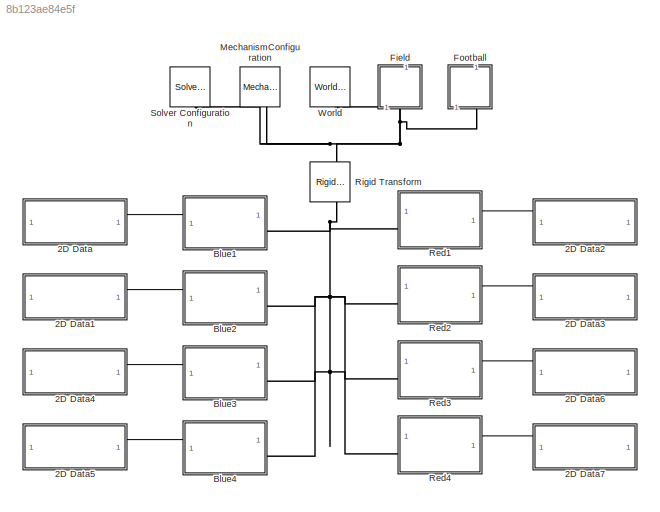
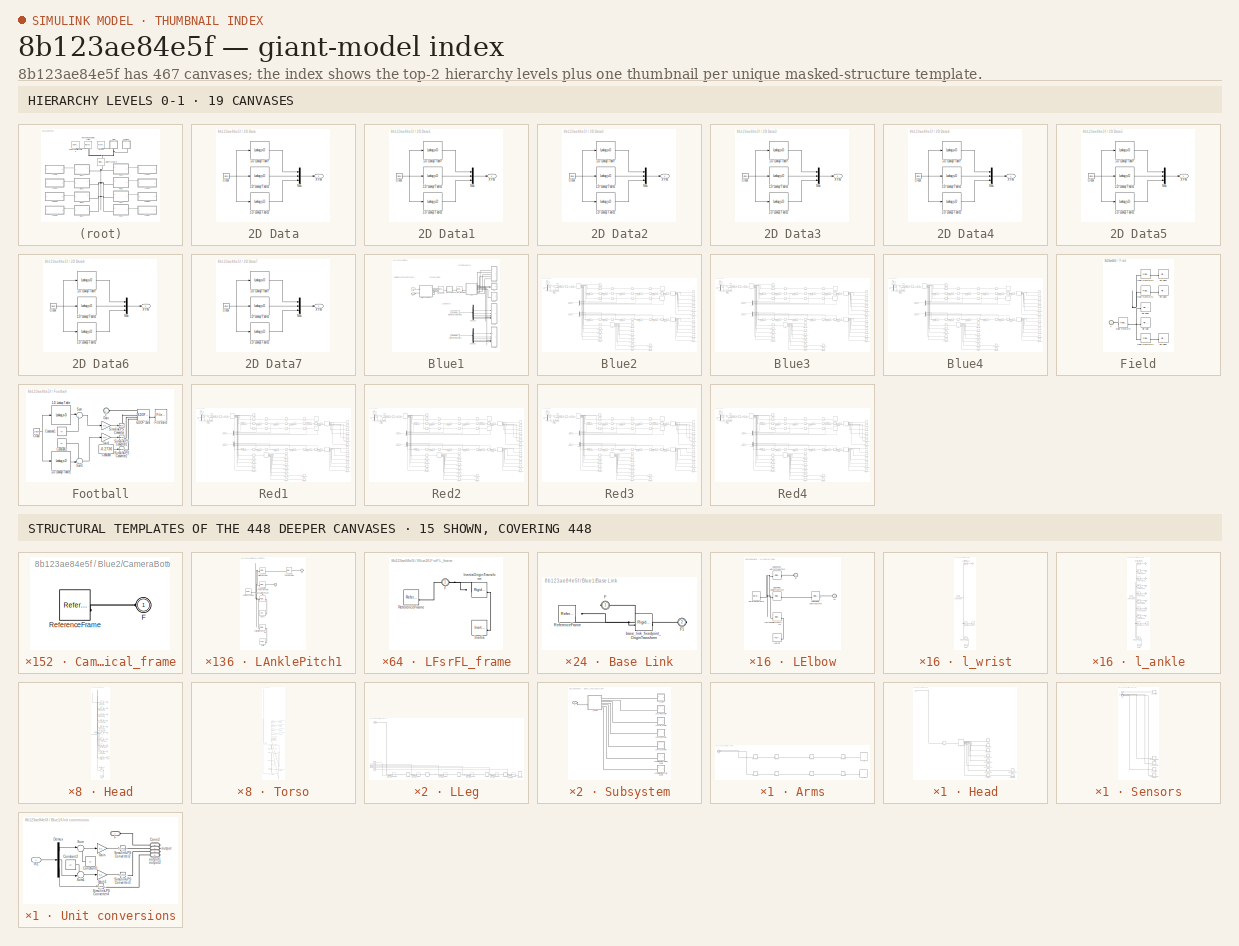
[diagram: thumbnail index - top-2 hierarchy levels (19 canvases) + 15 structural-template representatives of the remaining 448 canvases]
MODEL slx_8b123ae84e5f
KIND model
CONFIG AbsTol = auto
CONFIG EnableMultiTasking = off
CONFIG FixedStep = auto
CONFIG MaxStep = auto
CONFIG MinStep = auto
CONFIG RelTol = 1e-3
CONFIG SampleTimeConstraint = Unconstrained
CONFIG SolverName = VariableStepAuto
CONFIG StartTime = 0.0
CONFIG StopTime = 5578.4
BLOCK [SubSystem] 2D Data
BLOCK [Lookup_n-D] 2D Data/1-D Lookup Table
  BreakpointsForDimension1 = Robot_2D_poses.time
  InputPortMap = u0
  InternalRulePriority = Speed
  NumberOfTableDimensions = 1
  RndMeth = Simplest
  Table = transpose(Robot_2D_poses.signals.values(1,1:8:end))
BLOCK [Lookup_n-D] 2D Data/1-D Lookup Table1
  BreakpointsForDimension1 = Robot_2D_poses.time
  InputPortMap = u0
  InternalRulePriority = Speed
  NumberOfTableDimensions = 1
  RndMeth = Simplest
  Table = transpose(Robot_2D_poses.signals.values(2,1:8:end))
BLOCK [Lookup_n-D] 2D Data/1-D Lookup Table2
  BreakpointsForDimension1 = Robot_2D_poses.time
  InputPortMap = u0
  InternalRulePriority = Speed
  NumberOfTableDimensions = 1
  RndMeth = Simplest
  Table = transpose(Robot_2D_poses.signals.values(3,1:8:end))
BLOCK [Clock] 2D Data/Clock
BLOCK [Mux] 2D Data/Mux
  DisplayOption = bar
  Inputs = 3
BLOCK [Outport] 2D Data/XYW
BLOCK [SubSystem] 2D Data1
BLOCK [Lookup_n-D] 2D Data1/1-D Lookup Table
  BreakpointsForDimension1 = Robot_2D_poses.time
  InputPortMap = u0
  InternalRulePriority = Speed
  NumberOfTableDimensions = 1
  RndMeth = Simplest
  Table = transpose(Robot_2D_poses.signals.values(1,3:8:end))
BLOCK [Lookup_n-D] 2D Data1/1-D Lookup Table1
  BreakpointsForDimension1 = Robot_2D_poses.time
  InputPortMap = u0
  InternalRulePriority = Speed
  NumberOfTableDimensions = 1
  RndMeth = Simplest
  Table = transpose(Robot_2D_poses.signals.values(2,3:8:end))
BLOCK [Lookup_n-D] 2D Data1/1-D Lookup Table2
  BreakpointsForDimension1 = Robot_2D_poses.time
  InputPortMap = u0
  InternalRulePriority = Speed
  NumberOfTableDimensions = 1
  RndMeth = Simplest
  Table = transpose(Robot_2D_poses.signals.values(3,3:8:end))
BLOCK [Clock] 2D Data1/Clock
BLOCK [Mux] 2D Data1/Mux
  DisplayOption = bar
  Inputs = 3
BLOCK [Outport] 2D Data1/XYW
BLOCK [SubSystem] 2D Data2
  NameLocation = top
BLOCK [Lookup_n-D] 2D Data2/1-D Lookup Table
  BreakpointsForDimension1 = Robot_2D_poses.time
  InputPortMap = u0
  InternalRulePriority = Speed
  NumberOfTableDimensions = 1
  RndMeth = Simplest
  Table = transpose(Robot_2D_poses.signals.values(1,2:8:end))
BLOCK [Lookup_n-D] 2D Data2/1-D Lookup Table1
  BreakpointsForDimension1 = Robot_2D_poses.time
  InputPortMap = u0
  InternalRulePriority = Speed
  NumberOfTableDimensions = 1
  RndMeth = Simplest
  Table = transpose(Robot_2D_poses.signals.values(2,2:8:end))
BLOCK [Lookup_n-D] 2D Data2/1-D Lookup Table2
  BreakpointsForDimension1 = Robot_2D_poses.time
  InputPortMap = u0
  InternalRulePriority = Speed
  NumberOfTableDimensions = 1
  RndMeth = Simplest
  Table = transpose(Robot_2D_poses.signals.values(3,2:8:end))
BLOCK [Clock] 2D Data2/Clock
BLOCK [Mux] 2D Data2/Mux
  DisplayOption = bar
  Inputs = 3
BLOCK [Outport] 2D Data2/XYW
BLOCK [SubSystem] 2D Data3
  NameLocation = top
BLOCK [Lookup_n-D] 2D Data3/1-D Lookup Table
  BreakpointsForDimension1 = Robot_2D_poses.time
  InputPortMap = u0
  InternalRulePriority = Speed
  NumberOfTableDimensions = 1
  RndMeth = Simplest
  Table = transpose(Robot_2D_poses.signals.values(1,4:8:end))
BLOCK [Lookup_n-D] 2D Data3/1-D Lookup Table1
  BreakpointsForDimension1 = Robot_2D_poses.time
  InputPortMap = u0
  InternalRulePriority = Speed
  NumberOfTableDimensions = 1
  RndMeth = Simplest
  Table = transpose(Robot_2D_poses.signals.values(2,4:8:end))
BLOCK [Lookup_n-D] 2D Data3/1-D Lookup Table2
  BreakpointsForDimension1 = Robot_2D_poses.time
  InputPortMap = u0
  InternalRulePriority = Speed
  NumberOfTableDimensions = 1
  RndMeth = Simplest
  Table = transpose(Robot_2D_poses.signals.values(3,4:8:end))
BLOCK [Clock] 2D Data3/Clock
BLOCK [Mux] 2D Data3/Mux
  DisplayOption = bar
  Inputs = 3
BLOCK [Outport] 2D Data3/XYW
BLOCK [SubSystem] 2D Data4
BLOCK [Lookup_n-D] 2D Data4/1-D Lookup Table
  BreakpointsForDimension1 = Robot_2D_poses.time
  InputPortMap = u0
  InternalRulePriority = Speed
  NumberOfTableDimensions = 1
  RndMeth = Simplest
  Table = transpose(Robot_2D_poses.signals.values(1,5:8:end))
BLOCK [Lookup_n-D] 2D Data4/1-D Lookup Table1
  BreakpointsForDimension1 = Robot_2D_poses.time
  InputPortMap = u0
  InternalRulePriority = Speed
  NumberOfTableDimensions = 1
  RndMeth = Simplest
  Table = transpose(Robot_2D_poses.signals.values(2,5:8:end))
BLOCK [Lookup_n-D] 2D Data4/1-D Lookup Table2
  BreakpointsForDimension1 = Robot_2D_poses.time
  InputPortMap = u0
  InternalRulePriority = Speed
  NumberOfTableDimensions = 1
  RndMeth = Simplest
  Table = transpose(Robot_2D_poses.signals.values(3,5:8:end))
BLOCK [Clock] 2D Data4/Clock
BLOCK [Mux] 2D Data4/Mux
  DisplayOption = bar
  Inputs = 3
BLOCK [Outport] 2D Data4/XYW
BLOCK [SubSystem] 2D Data5
BLOCK [Lookup_n-D] 2D Data5/1-D Lookup Table
  BreakpointsForDimension1 = Robot_2D_poses.time
  InputPortMap = u0
  InternalRulePriority = Speed
  NumberOfTableDimensions = 1
  RndMeth = Simplest
  Table = transpose(Robot_2D_poses.signals.values(1,7:8:end))
BLOCK [Lookup_n-D] 2D Data5/1-D Lookup Table1
  BreakpointsForDimension1 = Robot_2D_poses.time
  InputPortMap = u0
  InternalRulePriority = Speed
  NumberOfTableDimensions = 1
  RndMeth = Simplest
  Table = transpose(Robot_2D_poses.signals.values(2,7:8:end))
BLOCK [Lookup_n-D] 2D Data5/1-D Lookup Table2
  BreakpointsForDimension1 = Robot_2D_poses.time
  InputPortMap = u0
  InternalRulePriority = Speed
  NumberOfTableDimensions = 1
  RndMeth = Simplest
  Table = transpose(Robot_2D_poses.signals.values(3,7:8:end))
BLOCK [Clock] 2D Data5/Clock
BLOCK [Mux] 2D Data5/Mux
  DisplayOption = bar
  Inputs = 3
BLOCK [Outport] 2D Data5/XYW
BLOCK [SubSystem] 2D Data6
  NameLocation = top
BLOCK [Lookup_n-D] 2D Data6/1-D Lookup Table
  BreakpointsForDimension1 = Robot_2D_poses.time
  InputPortMap = u0
  InternalRulePriority = Speed
  NumberOfTableDimensions = 1
  RndMeth = Simplest
  Table = transpose(Robot_2D_poses.signals.values(1,6:8:end))
BLOCK [Lookup_n-D] 2D Data6/1-D Lookup Table1
  BreakpointsForDimension1 = Robot_2D_poses.time
  InputPortMap = u0
  InternalRulePriority = Speed
  NumberOfTableDimensions = 1
  RndMeth = Simplest
  Table = transpose(Robot_2D_poses.signals.values(2,6:8:end))
BLOCK [Lookup_n-D] 2D Data6/1-D Lookup Table2
  BreakpointsForDimension1 = Robot_2D_poses.time
  InputPortMap = u0
  InternalRulePriority = Speed
  NumberOfTableDimensions = 1
  RndMeth = Simplest
  Table = transpose(Robot_2D_poses.signals.values(3,6:8:end))
BLOCK [Clock] 2D Data6/Clock
BLOCK [Mux] 2D Data6/Mux
  DisplayOption = bar
  Inputs = 3
BLOCK [Outport] 2D Data6/XYW
BLOCK [SubSystem] 2D Data7
  NameLocation = top
BLOCK [Lookup_n-D] 2D Data7/1-D Lookup Table
  BreakpointsForDimension1 = Robot_2D_poses.time
  InputPortMap = u0
  InternalRulePriority = Speed
  NumberOfTableDimensions = 1
  RndMeth = Simplest
  Table = transpose(Robot_2D_poses.signals.values(1,8:8:end))
BLOCK [Lookup_n-D] 2D Data7/1-D Lookup Table1
  BreakpointsForDimension1 = Robot_2D_poses.time
  InputPortMap = u0
  InternalRulePriority = Speed
  NumberOfTableDimensions = 1
  RndMeth = Simplest
  Table = transpose(Robot_2D_poses.signals.values(2,8:8:end))
BLOCK [Lookup_n-D] 2D Data7/1-D Lookup Table2
  BreakpointsForDimension1 = Robot_2D_poses.time
  InputPortMap = u0
  InternalRulePriority = Speed
  NumberOfTableDimensions = 1
  RndMeth = Simplest
  Table = transpose(Robot_2D_poses.signals.values(3,8:8:end))
BLOCK [Clock] 2D Data7/Clock
BLOCK [Mux] 2D Data7/Mux
  DisplayOption = bar
  Inputs = 3
BLOCK [Outport] 2D Data7/XYW
BLOCK [SubSystem] Blue1
  PortSchema = {"entries":[{"content":{"sides":[{"content":{"connectorIds":["LConn1"]},"type":"ConnectorPlacement.EquallySpacedRectSide","uuid":"5bc7e32e-b957-4341-b800-a2bf400c12b5"},{"content":{"connectorIds":["In1"],"side":"RIGHT"},"type":"ConnectorPlacement.EquallySpacedRectSide","uuid":"b8477bf0-596c-486e-a833-6824c8526041"},{"content":{"connectorIds":[],"side":"TOP"},"type":"ConnectorPlacement.EquallySpace...<+242ch>  <repeated x4 — deduplicated; at blocks: Blue1, Blue2, Blue3, Blue4>
BLOCK [SubSystem] Blue1/Arms
BLOCK [PMIOPort] Blue1/Arms/F
  Side = Left
BLOCK [PMIOPort] Blue1/Arms/F1
  Port = 2
  Side = Left
BLOCK [SubSystem] Blue1/Arms/LBicep
BLOCK [PMIOPort] Blue1/Arms/LBicep/F
  Side = Left
BLOCK [PMIOPort] Blue1/Arms/LBicep/F1
  Port = 2
  Side = Right
BLOCK [Reference] Blue1/Arms/LBicep/Inertia  REF=sm_lib/Body Elements/Inertia
  SourceBlock = sm_lib/Body Elements/Inertia
  SourceType = Inertia
BLOCK [Reference] Blue1/Arms/LBicep/InertiaOriginTransform  REF=sm_lib/Frames and
Transforms/Rigid
Transform
  SourceBlock = sm_lib/Frames and\nTransforms/Rigid\nTransform
  SourceType = Rigid\nTransform
BLOCK [Reference] Blue1/Arms/LBicep/LElbowYaw_AxisTransform  REF=sm_lib/Frames and
Transforms/Rigid
Transform
  SourceBlock = sm_lib/Frames and\nTransforms/Rigid\nTransform
  SourceType = Rigid\nTransform
BLOCK [Reference] Blue1/Arms/LBicep/LElbowYaw_OriginTransform  REF=sm_lib/Frames and
Transforms/Rigid
Transform
  SourceBlock = sm_lib/Frames and\nTransforms/Rigid\nTransform
  SourceType = Rigid\nTransform
BLOCK [Reference] Blue1/Arms/LBicep/LShoulderRoll_AxisInvTransform  REF=sm_lib/Frames and
Transforms/Rigid
Transform
  SourceBlock = sm_lib/Frames and\nTransforms/Rigid\nTransform
  SourceType = Rigid\nTransform
BLOCK [Reference] Blue1/Arms/LBicep/ReferenceFrame  REF=sm_lib/Frames and
Transforms/Reference
Frame
  SourceBlock = sm_lib/Frames and\nTransforms/Reference\nFrame
  SourceType = Reference\nFrame
BLOCK [Reference] Blue1/Arms/LBicep/Visual  REF=sm_lib/Body Elements/File Solid
  SourceBlock = sm_lib/Body Elements/File Solid
  SourceType = File Solid
BLOCK [Reference] Blue1/Arms/LBicep/VisualOriginTransform  REF=sm_lib/Frames and
Transforms/Rigid
Transform
  SourceBlock = sm_lib/Frames and\nTransforms/Rigid\nTransform
  SourceType = Rigid\nTransform
BLOCK [SubSystem] Blue1/Arms/LElbow
BLOCK [PMIOPort] Blue1/Arms/LElbow/F
  Side = Left
BLOCK [PMIOPort] Blue1/Arms/LElbow/F1
  Port = 2
  Side = Right
BLOCK [Reference] Blue1/Arms/LElbow/Inertia  REF=sm_lib/Body Elements/Inertia
  SourceBlock = sm_lib/Body Elements/Inertia
  SourceType = Inertia
BLOCK [Reference] Blue1/Arms/LElbow/InertiaOriginTransform  REF=sm_lib/Frames and
Transforms/Rigid
Transform
  SourceBlock = sm_lib/Frames and\nTransforms/Rigid\nTransform
  SourceType = Rigid\nTransform
BLOCK [Reference] Blue1/Arms/LElbow/LElbowRoll_AxisTransform  REF=sm_lib/Frames and
Transforms/Rigid
Transform
  SourceBlock = sm_lib/Frames and\nTransforms/Rigid\nTransform
  SourceType = Rigid\nTransform
BLOCK [Reference] Blue1/Arms/LElbow/LElbowRoll_OriginTransform  REF=sm_lib/Frames and
Transforms/Rigid
Transform
  SourceBlock = sm_lib/Frames and\nTransforms/Rigid\nTransform
  SourceType = Rigid\nTransform
BLOCK [Reference] Blue1/Arms/LElbow/LElbowYaw_AxisInvTransform  REF=sm_lib/Frames and
Transforms/Rigid
Transform
  SourceBlock = sm_lib/Frames and\nTransforms/Rigid\nTransform
  SourceType = Rigid\nTransform
BLOCK [Reference] Blue1/Arms/LElbow/ReferenceFrame  REF=sm_lib/Frames and
Transforms/Reference
Frame
  SourceBlock = sm_lib/Frames and\nTransforms/Reference\nFrame
  SourceType = Reference\nFrame
BLOCK [SubSystem] Blue1/Arms/LForeArm
BLOCK [PMIOPort] Blue1/Arms/LForeArm/F
  Side = Left
BLOCK [PMIOPort] Blue1/Arms/LForeArm/F1
  Port = 2
  Side = Right
BLOCK [Reference] Blue1/Arms/LForeArm/Inertia  REF=sm_lib/Body Elements/Inertia
  SourceBlock = sm_lib/Body Elements/Inertia
  SourceType = Inertia
BLOCK [Reference] Blue1/Arms/LForeArm/InertiaOriginTransform  REF=sm_lib/Frames and
Transforms/Rigid
Transform
  SourceBlock = sm_lib/Frames and\nTransforms/Rigid\nTransform
  SourceType = Rigid\nTransform
BLOCK [Reference] Blue1/Arms/LForeArm/LElbowRoll_AxisInvTransform  REF=sm_lib/Frames and
Transforms/Rigid
Transform
  SourceBlock = sm_lib/Frames and\nTransforms/Rigid\nTransform
  SourceType = Rigid\nTransform
BLOCK [Reference] Blue1/Arms/LForeArm/LWristYaw_AxisTransform  REF=sm_lib/Frames and
Transforms/Rigid
Transform
  SourceBlock = sm_lib/Frames and\nTransforms/Rigid\nTransform
  SourceType = Rigid\nTransform
BLOCK [Reference] Blue1/Arms/LForeArm/LWristYaw_OriginTransform  REF=sm_lib/Frames and
Transforms/Rigid
Transform
  SourceBlock = sm_lib/Frames and\nTransforms/Rigid\nTransform
  SourceType = Rigid\nTransform
BLOCK [Reference] Blue1/Arms/LForeArm/ReferenceFrame  REF=sm_lib/Frames and
Transforms/Reference
Frame
  SourceBlock = sm_lib/Frames and\nTransforms/Reference\nFrame
  SourceType = Reference\nFrame
BLOCK [Reference] Blue1/Arms/LForeArm/Visual  REF=sm_lib/Body Elements/File Solid
  SourceBlock = sm_lib/Body Elements/File Solid
  SourceType = File Solid
BLOCK [Reference] Blue1/Arms/LForeArm/VisualOriginTransform  REF=sm_lib/Frames and
Transforms/Rigid
Transform
  SourceBlock = sm_lib/Frames and\nTransforms/Rigid\nTransform
  SourceType = Rigid\nTransform
BLOCK [SubSystem] Blue1/Arms/LShoulder
BLOCK [PMIOPort] Blue1/Arms/LShoulder/F
  Side = Left
BLOCK [PMIOPort] Blue1/Arms/LShoulder/F1
  Port = 2
  Side = Right
BLOCK [Reference] Blue1/Arms/LShoulder/Inertia  REF=sm_lib/Body Elements/Inertia
  SourceBlock = sm_lib/Body Elements/Inertia
  SourceType = Inertia
BLOCK [Reference] Blue1/Arms/LShoulder/InertiaOriginTransform  REF=sm_lib/Frames and
Transforms/Rigid
Transform
  SourceBlock = sm_lib/Frames and\nTransforms/Rigid\nTransform
  SourceType = Rigid\nTransform
BLOCK [Reference] Blue1/Arms/LShoulder/LShoulderPitch_AxisInvTransform  REF=sm_lib/Frames and
Transforms/Rigid
Transform
  SourceBlock = sm_lib/Frames and\nTransforms/Rigid\nTransform
  SourceType = Rigid\nTransform
BLOCK [Reference] Blue1/Arms/LShoulder/LShoulderRoll_AxisTransform  REF=sm_lib/Frames and
Transforms/Rigid
Transform
  SourceBlock = sm_lib/Frames and\nTransforms/Rigid\nTransform
  SourceType = Rigid\nTransform
BLOCK [Reference] Blue1/Arms/LShoulder/LShoulderRoll_OriginTransform  REF=sm_lib/Frames and
Transforms/Rigid
Transform
  SourceBlock = sm_lib/Frames and\nTransforms/Rigid\nTransform
  SourceType = Rigid\nTransform
BLOCK [Reference] Blue1/Arms/LShoulder/ReferenceFrame  REF=sm_lib/Frames and
Transforms/Reference
Frame
  SourceBlock = sm_lib/Frames and\nTransforms/Reference\nFrame
  SourceType = Reference\nFrame
BLOCK [Reference] Blue1/Arms/LShoulder/Visual  REF=sm_lib/Body Elements/File Solid
  SourceBlock = sm_lib/Body Elements/File Solid
  SourceType = File Solid
BLOCK [Reference] Blue1/Arms/LShoulder/VisualOriginTransform  REF=sm_lib/Frames and
Transforms/Rigid
Transform
  SourceBlock = sm_lib/Frames and\nTransforms/Rigid\nTransform
  SourceType = Rigid\nTransform
BLOCK [SubSystem] Blue1/Arms/RBicep
BLOCK [PMIOPort] Blue1/Arms/RBicep/F
  Side = Left
BLOCK [PMIOPort] Blue1/Arms/RBicep/F1
  Port = 2
  Side = Right
BLOCK [Reference] Blue1/Arms/RBicep/Inertia  REF=sm_lib/Body Elements/Inertia
  SourceBlock = sm_lib/Body Elements/Inertia
  SourceType = Inertia
BLOCK [Reference] Blue1/Arms/RBicep/InertiaOriginTransform  REF=sm_lib/Frames and
Transforms/Rigid
Transform
  SourceBlock = sm_lib/Frames and\nTransforms/Rigid\nTransform
  SourceType = Rigid\nTransform
BLOCK [Reference] Blue1/Arms/RBicep/RElbowYaw_AxisTransform  REF=sm_lib/Frames and
Transforms/Rigid
Transform
  SourceBlock = sm_lib/Frames and\nTransforms/Rigid\nTransform
  SourceType = Rigid\nTransform
BLOCK [Reference] Blue1/Arms/RBicep/RElbowYaw_OriginTransform  REF=sm_lib/Frames and
Transforms/Rigid
Transform
  SourceBlock = sm_lib/Frames and\nTransforms/Rigid\nTransform
  SourceType = Rigid\nTransform
BLOCK [Reference] Blue1/Arms/RBicep/RShoulderRoll_AxisInvTransform  REF=sm_lib/Frames and
Transforms/Rigid
Transform
  SourceBlock = sm_lib/Frames and\nTransforms/Rigid\nTransform
  SourceType = Rigid\nTransform
BLOCK [Reference] Blue1/Arms/RBicep/ReferenceFrame  REF=sm_lib/Frames and
Transforms/Reference
Frame
  SourceBlock = sm_lib/Frames and\nTransforms/Reference\nFrame
  SourceType = Reference\nFrame
BLOCK [Reference] Blue1/Arms/RBicep/Visual  REF=sm_lib/Body Elements/File Solid
  SourceBlock = sm_lib/Body Elements/File Solid
  SourceType = File Solid
BLOCK [Reference] Blue1/Arms/RBicep/VisualOriginTransform  REF=sm_lib/Frames and
Transforms/Rigid
Transform
  SourceBlock = sm_lib/Frames and\nTransforms/Rigid\nTransform
  SourceType = Rigid\nTransform
BLOCK [SubSystem] Blue1/Arms/RElbow
BLOCK [PMIOPort] Blue1/Arms/RElbow/F
  Side = Left
BLOCK [PMIOPort] Blue1/Arms/RElbow/F1
  Port = 2
  Side = Right
BLOCK [Reference] Blue1/Arms/RElbow/Inertia  REF=sm_lib/Body Elements/Inertia
  SourceBlock = sm_lib/Body Elements/Inertia
  SourceType = Inertia
BLOCK [Reference] Blue1/Arms/RElbow/InertiaOriginTransform  REF=sm_lib/Frames and
Transforms/Rigid
Transform
  SourceBlock = sm_lib/Frames and\nTransforms/Rigid\nTransform
  SourceType = Rigid\nTransform
BLOCK [Reference] Blue1/Arms/RElbow/RElbowRoll_AxisTransform  REF=sm_lib/Frames and
Transforms/Rigid
Transform
  SourceBlock = sm_lib/Frames and\nTransforms/Rigid\nTransform
  SourceType = Rigid\nTransform
BLOCK [Reference] Blue1/Arms/RElbow/RElbowRoll_OriginTransform  REF=sm_lib/Frames and
Transforms/Rigid
Transform
  SourceBlock = sm_lib/Frames and\nTransforms/Rigid\nTransform
  SourceType = Rigid\nTransform
BLOCK [Reference] Blue1/Arms/RElbow/RElbowYaw_AxisInvTransform  REF=sm_lib/Frames and
Transforms/Rigid
Transform
  SourceBlock = sm_lib/Frames and\nTransforms/Rigid\nTransform
  SourceType = Rigid\nTransform
BLOCK [Reference] Blue1/Arms/RElbow/ReferenceFrame  REF=sm_lib/Frames and
Transforms/Reference
Frame
  SourceBlock = sm_lib/Frames and\nTransforms/Reference\nFrame
  SourceType = Reference\nFrame
BLOCK [SubSystem] Blue1/Arms/RForeArm
BLOCK [PMIOPort] Blue1/Arms/RForeArm/F
  Side = Left
BLOCK [PMIOPort] Blue1/Arms/RForeArm/F1
  Port = 2
  Side = Right
BLOCK [Reference] Blue1/Arms/RForeArm/Inertia  REF=sm_lib/Body Elements/Inertia
  SourceBlock = sm_lib/Body Elements/Inertia
  SourceType = Inertia
BLOCK [Reference] Blue1/Arms/RForeArm/InertiaOriginTransform  REF=sm_lib/Frames and
Transforms/Rigid
Transform
  SourceBlock = sm_lib/Frames and\nTransforms/Rigid\nTransform
  SourceType = Rigid\nTransform
BLOCK [Reference] Blue1/Arms/RForeArm/RElbowRoll_AxisInvTransform  REF=sm_lib/Frames and
Transforms/Rigid
Transform
  SourceBlock = sm_lib/Frames and\nTransforms/Rigid\nTransform
  SourceType = Rigid\nTransform
BLOCK [Reference] Blue1/Arms/RForeArm/RWristYaw_AxisTransform  REF=sm_lib/Frames and
Transforms/Rigid
Transform
  SourceBlock = sm_lib/Frames and\nTransforms/Rigid\nTransform
  SourceType = Rigid\nTransform
BLOCK [Reference] Blue1/Arms/RForeArm/RWristYaw_OriginTransform  REF=sm_lib/Frames and
Transforms/Rigid
Transform
  SourceBlock = sm_lib/Frames and\nTransforms/Rigid\nTransform
  SourceType = Rigid\nTransform
BLOCK [Reference] Blue1/Arms/RForeArm/ReferenceFrame  REF=sm_lib/Frames and
Transforms/Reference
Frame
  SourceBlock = sm_lib/Frames and\nTransforms/Reference\nFrame
  SourceType = Reference\nFrame
BLOCK [Reference] Blue1/Arms/RForeArm/Visual  REF=sm_lib/Body Elements/File Solid
  SourceBlock = sm_lib/Body Elements/File Solid
  SourceType = File Solid
BLOCK [Reference] Blue1/Arms/RForeArm/VisualOriginTransform  REF=sm_lib/Frames and
Transforms/Rigid
Transform
  SourceBlock = sm_lib/Frames and\nTransforms/Rigid\nTransform
  SourceType = Rigid\nTransform
BLOCK [SubSystem] Blue1/Arms/RShoulder
BLOCK [PMIOPort] Blue1/Arms/RShoulder/F
  Side = Left
BLOCK [PMIOPort] Blue1/Arms/RShoulder/F1
  Port = 2
  Side = Right
BLOCK [Reference] Blue1/Arms/RShoulder/Inertia  REF=sm_lib/Body Elements/Inertia
  SourceBlock = sm_lib/Body Elements/Inertia
  SourceType = Inertia
BLOCK [Reference] Blue1/Arms/RShoulder/InertiaOriginTransform  REF=sm_lib/Frames and
Transforms/Rigid
Transform
  SourceBlock = sm_lib/Frames and\nTransforms/Rigid\nTransform
  SourceType = Rigid\nTransform
BLOCK [Reference] Blue1/Arms/RShoulder/RShoulderPitch_AxisInvTransform  REF=sm_lib/Frames and
Transforms/Rigid
Transform
  SourceBlock = sm_lib/Frames and\nTransforms/Rigid\nTransform
  SourceType = Rigid\nTransform
BLOCK [Reference] Blue1/Arms/RShoulder/RShoulderRoll_AxisTransform  REF=sm_lib/Frames and
Transforms/Rigid
Transform
  SourceBlock = sm_lib/Frames and\nTransforms/Rigid\nTransform
  SourceType = Rigid\nTransform
BLOCK [Reference] Blue1/Arms/RShoulder/RShoulderRoll_OriginTransform  REF=sm_lib/Frames and
Transforms/Rigid
Transform
  SourceBlock = sm_lib/Frames and\nTransforms/Rigid\nTransform
  SourceType = Rigid\nTransform
BLOCK [Reference] Blue1/Arms/RShoulder/ReferenceFrame  REF=sm_lib/Frames and
Transforms/Reference
Frame
  SourceBlock = sm_lib/Frames and\nTransforms/Reference\nFrame
  SourceType = Reference\nFrame
BLOCK [Reference] Blue1/Arms/RShoulder/Visual  REF=sm_lib/Body Elements/File Solid
  SourceBlock = sm_lib/Body Elements/File Solid
  SourceType = File Solid
BLOCK [Reference] Blue1/Arms/RShoulder/VisualOriginTransform  REF=sm_lib/Frames and
Transforms/Rigid
Transform
  SourceBlock = sm_lib/Frames and\nTransforms/Rigid\nTransform
  SourceType = Rigid\nTransform
BLOCK [SubSystem] Blue1/Arms/l_wrist
BLOCK [PMIOPort] Blue1/Arms/l_wrist/F
  Side = Left
BLOCK [Reference] Blue1/Arms/l_wrist/Inertia  REF=sm_lib/Body Elements/Inertia
  SourceBlock = sm_lib/Body Elements/Inertia
  SourceType = Inertia
BLOCK [Reference] Blue1/Arms/l_wrist/InertiaOriginTransform  REF=sm_lib/Frames and
Transforms/Rigid
Transform
  SourceBlock = sm_lib/Frames and\nTransforms/Rigid\nTransform
  SourceType = Rigid\nTransform
BLOCK [Reference] Blue1/Arms/l_wrist/LWristYaw_AxisInvTransform  REF=sm_lib/Frames and
Transforms/Rigid
Transform
  SourceBlock = sm_lib/Frames and\nTransforms/Rigid\nTransform
  SourceType = Rigid\nTransform
BLOCK [Reference] Blue1/Arms/l_wrist/ReferenceFrame  REF=sm_lib/Frames and
Transforms/Reference
Frame
  SourceBlock = sm_lib/Frames and\nTransforms/Reference\nFrame
  SourceType = Reference\nFrame
BLOCK [Reference] Blue1/Arms/l_wrist/Visual  REF=sm_lib/Body Elements/File Solid
  NameLocation = top
  SourceBlock = sm_lib/Body Elements/File Solid
  SourceType = File Solid
BLOCK [Reference] Blue1/Arms/l_wrist/VisualOriginTransform  REF=sm_lib/Frames and
Transforms/Rigid
Transform
  SourceBlock = sm_lib/Frames and\nTransforms/Rigid\nTransform
  SourceType = Rigid\nTransform
BLOCK [SubSystem] Blue1/Arms/r_wrist
BLOCK [PMIOPort] Blue1/Arms/r_wrist/F
  Side = Left
BLOCK [Reference] Blue1/Arms/r_wrist/Inertia  REF=sm_lib/Body Elements/Inertia
  SourceBlock = sm_lib/Body Elements/Inertia
  SourceType = Inertia
BLOCK [Reference] Blue1/Arms/r_wrist/InertiaOriginTransform  REF=sm_lib/Frames and
Transforms/Rigid
Transform
  SourceBlock = sm_lib/Frames and\nTransforms/Rigid\nTransform
  SourceType = Rigid\nTransform
BLOCK [Reference] Blue1/Arms/r_wrist/RWristYaw_AxisInvTransform  REF=sm_lib/Frames and
Transforms/Rigid
Transform
  SourceBlock = sm_lib/Frames and\nTransforms/Rigid\nTransform
  SourceType = Rigid\nTransform
BLOCK [Reference] Blue1/Arms/r_wrist/ReferenceFrame  REF=sm_lib/Frames and
Transforms/Reference
Frame
  SourceBlock = sm_lib/Frames and\nTransforms/Reference\nFrame
  SourceType = Reference\nFrame
BLOCK [Reference] Blue1/Arms/r_wrist/Visual  REF=sm_lib/Body Elements/File Solid
  NameLocation = top
  SourceBlock = sm_lib/Body Elements/File Solid
  SourceType = File Solid
BLOCK [Reference] Blue1/Arms/r_wrist/VisualOriginTransform  REF=sm_lib/Frames and
Transforms/Rigid
Transform
  SourceBlock = sm_lib/Frames and\nTransforms/Rigid\nTransform
  SourceType = Rigid\nTransform
BLOCK [SubSystem] Blue1/Base Link
BLOCK [PMIOPort] Blue1/Base Link/F
  Side = Left
BLOCK [PMIOPort] Blue1/Base Link/F1
  Port = 2
  Side = Right
BLOCK [Reference] Blue1/Base Link/ReferenceFrame  REF=sm_lib/Frames and
Transforms/Reference
Frame
  SourceBlock = sm_lib/Frames and\nTransforms/Reference\nFrame
  SourceType = Reference\nFrame
BLOCK [Reference] Blue1/Base Link/base_link_fixedjoint_OriginTransform  REF=sm_lib/Frames and
Transforms/Rigid
Transform
  SourceBlock = sm_lib/Frames and\nTransforms/Rigid\nTransform
  SourceType = Rigid\nTransform
BLOCK [Demux] Blue1/Demux1
  Outputs = 6
BLOCK [Demux] Blue1/Demux2
  Outputs = 6
BLOCK [PMIOPort] Blue1/F
  Side = Left
BLOCK [SubSystem] Blue1/Head
BLOCK [SubSystem] Blue1/Head/CameraBottom_frame
BLOCK [Reference] Blue1/Head/CameraBottom_frame/CameraBottom_optical_frame_fixedjoint_OriginTransform  REF=sm_lib/Frames and
Transforms/Rigid
Transform
  SourceBlock = sm_lib/Frames and\nTransforms/Rigid\nTransform
  SourceType = Rigid\nTransform
BLOCK [PMIOPort] Blue1/Head/CameraBottom_frame/F
  Side = Left
BLOCK [PMIOPort] Blue1/Head/CameraBottom_frame/F1
  Port = 2
  Side = Right
BLOCK [Reference] Blue1/Head/CameraBottom_frame/ReferenceFrame  REF=sm_lib/Frames and
Transforms/Reference
Frame
  SourceBlock = sm_lib/Frames and\nTransforms/Reference\nFrame
  SourceType = Reference\nFrame
BLOCK [SubSystem] Blue1/Head/CameraBottom_optical_frame
BLOCK [PMIOPort] Blue1/Head/CameraBottom_optical_frame/F
  Side = Left
BLOCK [Reference] Blue1/Head/CameraBottom_optical_frame/ReferenceFrame  REF=sm_lib/Frames and
Transforms/Reference
Frame
  SourceBlock = sm_lib/Frames and\nTransforms/Reference\nFrame
  SourceType = Reference\nFrame
BLOCK [SubSystem] Blue1/Head/CameraTop_frame
BLOCK [Reference] Blue1/Head/CameraTop_frame/CameraTop_optical_frame_fixedjoint_OriginTransform  REF=sm_lib/Frames and
Transforms/Rigid
Transform
  SourceBlock = sm_lib/Frames and\nTransforms/Rigid\nTransform
  SourceType = Rigid\nTransform
BLOCK [PMIOPort] Blue1/Head/CameraTop_frame/F
  Side = Left
BLOCK [PMIOPort] Blue1/Head/CameraTop_frame/F1
  Port = 2
  Side = Right
BLOCK [Reference] Blue1/Head/CameraTop_frame/ReferenceFrame  REF=sm_lib/Frames and
Transforms/Reference
Frame
  SourceBlock = sm_lib/Frames and\nTransforms/Reference\nFrame
  SourceType = Reference\nFrame
BLOCK [SubSystem] Blue1/Head/CameraTop_optical_frame
BLOCK [PMIOPort] Blue1/Head/CameraTop_optical_frame/F
  Side = Left
BLOCK [Reference] Blue1/Head/CameraTop_optical_frame/ReferenceFrame  REF=sm_lib/Frames and
Transforms/Reference
Frame
  SourceBlock = sm_lib/Frames and\nTransforms/Reference\nFrame
  SourceType = Reference\nFrame
BLOCK [PMIOPort] Blue1/Head/F
  Side = Left
BLOCK [SubSystem] Blue1/Head/Head
BLOCK [Reference] Blue1/Head/Head/CameraBottom_sensor_fixedjoint_OriginTransform  REF=sm_lib/Frames and
Transforms/Rigid
Transform
  SourceBlock = sm_lib/Frames and\nTransforms/Rigid\nTransform
  SourceType = Rigid\nTransform
BLOCK [Reference] Blue1/Head/Head/CameraTop_sensor_fixedjoint_OriginTransform  REF=sm_lib/Frames and
Transforms/Rigid
Transform
  SourceBlock = sm_lib/Frames and\nTransforms/Rigid\nTransform
  SourceType = Rigid\nTransform
BLOCK [PMIOPort] Blue1/Head/Head/F
  Side = Left
BLOCK [PMIOPort] Blue1/Head/Head/F1
  Port = 9
  Side = Right
BLOCK [PMIOPort] Blue1/Head/Head/F2
  Port = 8
  Side = Right
BLOCK [PMIOPort] Blue1/Head/Head/F3
  Port = 7
  Side = Right
BLOCK [PMIOPort] Blue1/Head/Head/F4
  Port = 6
  Side = Right
BLOCK [PMIOPort] Blue1/Head/Head/F5
  Port = 5
  Side = Right
BLOCK [PMIOPort] Blue1/Head/Head/F6
  Port = 4
  Side = Right
BLOCK [PMIOPort] Blue1/Head/Head/F7
  Port = 3
  Side = Right
BLOCK [PMIOPort] Blue1/Head/Head/F8
  Port = 2
  Side = Right
BLOCK [Reference] Blue1/Head/Head/HeadPitch_AxisInvTransform  REF=sm_lib/Frames and
Transforms/Rigid
Transform
  SourceBlock = sm_lib/Frames and\nTransforms/Rigid\nTransform
  SourceType = Rigid\nTransform
BLOCK [Reference] Blue1/Head/Head/Head_Touch_Front_sensor_fixedjoint_OriginTransform  REF=sm_lib/Frames and
Transforms/Rigid
Transform
  SourceBlock = sm_lib/Frames and\nTransforms/Rigid\nTransform
  SourceType = Rigid\nTransform
BLOCK [Reference] Blue1/Head/Head/Head_Touch_Middle_sensor_fixedjoint_OriginTransform  REF=sm_lib/Frames and
Transforms/Rigid
Transform
  SourceBlock = sm_lib/Frames and\nTransforms/Rigid\nTransform
  SourceType = Rigid\nTransform
BLOCK [Reference] Blue1/Head/Head/Head_Touch_Rear_sensor_fixedjoint_OriginTransform  REF=sm_lib/Frames and
Transforms/Rigid
Transform
  SourceBlock = sm_lib/Frames and\nTransforms/Rigid\nTransform
  SourceType = Rigid\nTransform
BLOCK [Reference] Blue1/Head/Head/Inertia  REF=sm_lib/Body Elements/Inertia
  SourceBlock = sm_lib/Body Elements/Inertia
  SourceType = Inertia
BLOCK [Reference] Blue1/Head/Head/InertiaOriginTransform  REF=sm_lib/Frames and
Transforms/Rigid
Transform
  SourceBlock = sm_lib/Frames and\nTransforms/Rigid\nTransform
  SourceType = Rigid\nTransform
BLOCK [Reference] Blue1/Head/Head/InfraredL_sensor_fixedjoint_OriginTransform  REF=sm_lib/Frames and
Transforms/Rigid
Transform
  SourceBlock = sm_lib/Frames and\nTransforms/Rigid\nTransform
  SourceType = Rigid\nTransform
BLOCK [Reference] Blue1/Head/Head/InfraredR_sensor_fixedjoint_OriginTransform  REF=sm_lib/Frames and
Transforms/Rigid
Transform
  SourceBlock = sm_lib/Frames and\nTransforms/Rigid\nTransform
  SourceType = Rigid\nTransform
BLOCK [Reference] Blue1/Head/Head/ReferenceFrame  REF=sm_lib/Frames and
Transforms/Reference
Frame
  SourceBlock = sm_lib/Frames and\nTransforms/Reference\nFrame
  SourceType = Reference\nFrame
BLOCK [Reference] Blue1/Head/Head/Visual  REF=sm_lib/Body Elements/File Solid
  NameLocation = top
  SourceBlock = sm_lib/Body Elements/File Solid
  SourceType = File Solid
BLOCK [Reference] Blue1/Head/Head/VisualOriginTransform  REF=sm_lib/Frames and
Transforms/Rigid
Transform
  SourceBlock = sm_lib/Frames and\nTransforms/Rigid\nTransform
  SourceType = Rigid\nTransform
BLOCK [Reference] Blue1/Head/Head/gaze_joint_OriginTransform  REF=sm_lib/Frames and
Transforms/Rigid
Transform
  SourceBlock = sm_lib/Frames and\nTransforms/Rigid\nTransform
  SourceType = Rigid\nTransform
BLOCK [SubSystem] Blue1/Head/HeadTouchFront_frame
BLOCK [PMIOPort] Blue1/Head/HeadTouchFront_frame/F
  Side = Left
BLOCK [Reference] Blue1/Head/HeadTouchFront_frame/ReferenceFrame  REF=sm_lib/Frames and
Transforms/Reference
Frame
  SourceBlock = sm_lib/Frames and\nTransforms/Reference\nFrame
  SourceType = Reference\nFrame
BLOCK [SubSystem] Blue1/Head/HeadTouchMiddle_frame
BLOCK [PMIOPort] Blue1/Head/HeadTouchMiddle_frame/F
  Side = Left
BLOCK [Reference] Blue1/Head/HeadTouchMiddle_frame/ReferenceFrame  REF=sm_lib/Frames and
Transforms/Reference
Frame
  SourceBlock = sm_lib/Frames and\nTransforms/Reference\nFrame
  SourceType = Reference\nFrame
BLOCK [SubSystem] Blue1/Head/HeadTouchRear_frame
BLOCK [PMIOPort] Blue1/Head/HeadTouchRear_frame/F
  Side = Left
BLOCK [Reference] Blue1/Head/HeadTouchRear_frame/ReferenceFrame  REF=sm_lib/Frames and
Transforms/Reference
Frame
  SourceBlock = sm_lib/Frames and\nTransforms/Reference\nFrame
  SourceType = Reference\nFrame
BLOCK [SubSystem] Blue1/Head/LInfraRed_frame
BLOCK [PMIOPort] Blue1/Head/LInfraRed_frame/F
  Side = Left
BLOCK [Reference] Blue1/Head/LInfraRed_frame/ReferenceFrame  REF=sm_lib/Frames and
Transforms/Reference
Frame
  SourceBlock = sm_lib/Frames and\nTransforms/Reference\nFrame
  SourceType = Reference\nFrame
BLOCK [SubSystem] Blue1/Head/Neck
BLOCK [PMIOPort] Blue1/Head/Neck/F
  Side = Left
BLOCK [PMIOPort] Blue1/Head/Neck/F1
  Port = 2
  Side = Right
BLOCK [Reference] Blue1/Head/Neck/HeadPitch_AxisTransform  REF=sm_lib/Frames and
Transforms/Rigid
Transform
  SourceBlock = sm_lib/Frames and\nTransforms/Rigid\nTransform
  SourceType = Rigid\nTransform
BLOCK [Reference] Blue1/Head/Neck/HeadPitch_OriginTransform  REF=sm_lib/Frames and
Transforms/Rigid
Transform
  SourceBlock = sm_lib/Frames and\nTransforms/Rigid\nTransform
  SourceType = Rigid\nTransform
BLOCK [Reference] Blue1/Head/Neck/HeadYaw_AxisInvTransform  REF=sm_lib/Frames and
Transforms/Rigid
Transform
  SourceBlock = sm_lib/Frames and\nTransforms/Rigid\nTransform
  SourceType = Rigid\nTransform
BLOCK [Reference] Blue1/Head/Neck/Inertia  REF=sm_lib/Body Elements/Inertia
  SourceBlock = sm_lib/Body Elements/Inertia
  SourceType = Inertia
BLOCK [Reference] Blue1/Head/Neck/InertiaOriginTransform  REF=sm_lib/Frames and
Transforms/Rigid
Transform
  SourceBlock = sm_lib/Frames and\nTransforms/Rigid\nTransform
  SourceType = Rigid\nTransform
BLOCK [Reference] Blue1/Head/Neck/ReferenceFrame  REF=sm_lib/Frames and
Transforms/Reference
Frame
  SourceBlock = sm_lib/Frames and\nTransforms/Reference\nFrame
  SourceType = Reference\nFrame
BLOCK [Reference] Blue1/Head/Neck/Visual  REF=sm_lib/Body Elements/File Solid
  SourceBlock = sm_lib/Body Elements/File Solid
  SourceType = File Solid
BLOCK [Reference] Blue1/Head/Neck/VisualOriginTransform  REF=sm_lib/Frames and
Transforms/Rigid
Transform
  SourceBlock = sm_lib/Frames and\nTransforms/Rigid\nTransform
  SourceType = Rigid\nTransform
BLOCK [SubSystem] Blue1/Head/RInfraRed_frame
BLOCK [PMIOPort] Blue1/Head/RInfraRed_frame/F
  Side = Left
BLOCK [Reference] Blue1/Head/RInfraRed_frame/ReferenceFrame  REF=sm_lib/Frames and
Transforms/Reference
Frame
  SourceBlock = sm_lib/Frames and\nTransforms/Reference\nFrame
  SourceType = Reference\nFrame
BLOCK [SubSystem] Blue1/Head/gaze
BLOCK [PMIOPort] Blue1/Head/gaze/F
  Side = Left
BLOCK [Reference] Blue1/Head/gaze/ReferenceFrame  REF=sm_lib/Frames and
Transforms/Reference
Frame
  SourceBlock = sm_lib/Frames and\nTransforms/Reference\nFrame
  SourceType = Reference\nFrame
BLOCK [SubSystem] Blue1/LLeg
BLOCK [PMIOPort] Blue1/LLeg/Conn1
  Side = Left
BLOCK [Reference] Blue1/LLeg/LAnklePitch  REF=sm_lib/Joints/Revolute Joint
  SourceBlock = sm_lib/Joints/Revolute Joint
  SourceType = Revolute Joint
BLOCK [SubSystem] Blue1/LLeg/LAnklePitch1
BLOCK [PMIOPort] Blue1/LLeg/LAnklePitch1/F
  Side = Left
BLOCK [PMIOPort] Blue1/LLeg/LAnklePitch1/F1
  Port = 2
  Side = Right
BLOCK [Reference] Blue1/LLeg/LAnklePitch1/Inertia  REF=sm_lib/Body Elements/Inertia
  SourceBlock = sm_lib/Body Elements/Inertia
  SourceType = Inertia
BLOCK [Reference] Blue1/LLeg/LAnklePitch1/InertiaOriginTransform  REF=sm_lib/Frames and
Transforms/Rigid
Transform
  SourceBlock = sm_lib/Frames and\nTransforms/Rigid\nTransform
  SourceType = Rigid\nTransform
BLOCK [Reference] Blue1/LLeg/LAnklePitch1/LAnklePitch_AxisInvTransform  REF=sm_lib/Frames and
Transforms/Rigid
Transform
  SourceBlock = sm_lib/Frames and\nTransforms/Rigid\nTransform
  SourceType = Rigid\nTransform
BLOCK [Reference] Blue1/LLeg/LAnklePitch1/LAnkleRoll_AxisTransform  REF=sm_lib/Frames and
Transforms/Rigid
Transform
  SourceBlock = sm_lib/Frames and\nTransforms/Rigid\nTransform
  SourceType = Rigid\nTransform
BLOCK [Reference] Blue1/LLeg/LAnklePitch1/LAnkleRoll_OriginTransform  REF=sm_lib/Frames and
Transforms/Rigid
Transform
  SourceBlock = sm_lib/Frames and\nTransforms/Rigid\nTransform
  SourceType = Rigid\nTransform
BLOCK [Reference] Blue1/LLeg/LAnklePitch1/ReferenceFrame  REF=sm_lib/Frames and
Transforms/Reference
Frame
  SourceBlock = sm_lib/Frames and\nTransforms/Reference\nFrame
  SourceType = Reference\nFrame
BLOCK [Reference] Blue1/LLeg/LAnklePitch1/Visual  REF=sm_lib/Body Elements/File Solid
  SourceBlock = sm_lib/Body Elements/File Solid
  SourceType = File Solid
BLOCK [Reference] Blue1/LLeg/LAnklePitch1/VisualOriginTransform  REF=sm_lib/Frames and
Transforms/Rigid
Transform
  SourceBlock = sm_lib/Frames and\nTransforms/Rigid\nTransform
  SourceType = Rigid\nTransform
BLOCK [Reference] Blue1/LLeg/LAnkleRoll  REF=sm_lib/Joints/Revolute Joint
  SourceBlock = sm_lib/Joints/Revolute Joint
  SourceType = Revolute Joint
BLOCK [SubSystem] Blue1/LLeg/LHip
BLOCK [PMIOPort] Blue1/LLeg/LHip/F
  Side = Left
BLOCK [PMIOPort] Blue1/LLeg/LHip/F1
  Port = 2
  Side = Right
BLOCK [Reference] Blue1/LLeg/LHip/Inertia  REF=sm_lib/Body Elements/Inertia
  SourceBlock = sm_lib/Body Elements/Inertia
  SourceType = Inertia
BLOCK [Reference] Blue1/LLeg/LHip/InertiaOriginTransform  REF=sm_lib/Frames and
Transforms/Rigid
Transform
  SourceBlock = sm_lib/Frames and\nTransforms/Rigid\nTransform
  SourceType = Rigid\nTransform
BLOCK [Reference] Blue1/LLeg/LHip/LHipPitch_AxisTransform  REF=sm_lib/Frames and
Transforms/Rigid
Transform
  SourceBlock = sm_lib/Frames and\nTransforms/Rigid\nTransform
  SourceType = Rigid\nTransform
BLOCK [Reference] Blue1/LLeg/LHip/LHipPitch_OriginTransform  REF=sm_lib/Frames and
Transforms/Rigid
Transform
  SourceBlock = sm_lib/Frames and\nTransforms/Rigid\nTransform
  SourceType = Rigid\nTransform
BLOCK [Reference] Blue1/LLeg/LHip/LHipRoll_AxisInvTransform  REF=sm_lib/Frames and
Transforms/Rigid
Transform
  SourceBlock = sm_lib/Frames and\nTransforms/Rigid\nTransform
  SourceType = Rigid\nTransform
BLOCK [Reference] Blue1/LLeg/LHip/ReferenceFrame  REF=sm_lib/Frames and
Transforms/Reference
Frame
  SourceBlock = sm_lib/Frames and\nTransforms/Reference\nFrame
  SourceType = Reference\nFrame
BLOCK [Reference] Blue1/LLeg/LHip/Visual  REF=sm_lib/Body Elements/File Solid
  SourceBlock = sm_lib/Body Elements/File Solid
  SourceType = File Solid
BLOCK [Reference] Blue1/LLeg/LHip/VisualOriginTransform  REF=sm_lib/Frames and
Transforms/Rigid
Transform
  SourceBlock = sm_lib/Frames and\nTransforms/Rigid\nTransform
  SourceType = Rigid\nTransform
BLOCK [Reference] Blue1/LLeg/LHipPitch  REF=sm_lib/Joints/Revolute Joint
  SourceBlock = sm_lib/Joints/Revolute Joint
  SourceType = Revolute Joint
BLOCK [Reference] Blue1/LLeg/LHipRoll  REF=sm_lib/Joints/Revolute Joint
  SourceBlock = sm_lib/Joints/Revolute Joint
  SourceType = Revolute Joint
BLOCK [Reference] Blue1/LLeg/LHipYawPitch  REF=sm_lib/Joints/Revolute Joint
  SourceBlock = sm_lib/Joints/Revolute Joint
  SourceType = Revolute Joint
BLOCK [Reference] Blue1/LLeg/LKneePitch  REF=sm_lib/Joints/Revolute Joint
  SourceBlock = sm_lib/Joints/Revolute Joint
  SourceType = Revolute Joint
BLOCK [SubSystem] Blue1/LLeg/LPelvis
BLOCK [PMIOPort] Blue1/LLeg/LPelvis/F
  Side = Left
BLOCK [PMIOPort] Blue1/LLeg/LPelvis/F1
  Port = 2
  Side = Right
BLOCK [Reference] Blue1/LLeg/LPelvis/Inertia  REF=sm_lib/Body Elements/Inertia
  SourceBlock = sm_lib/Body Elements/Inertia
  SourceType = Inertia
BLOCK [Reference] Blue1/LLeg/LPelvis/InertiaOriginTransform  REF=sm_lib/Frames and
Transforms/Rigid
Transform
  SourceBlock = sm_lib/Frames and\nTransforms/Rigid\nTransform
  SourceType = Rigid\nTransform
BLOCK [Reference] Blue1/LLeg/LPelvis/LHipRoll_AxisTransform  REF=sm_lib/Frames and
Transforms/Rigid
Transform
  SourceBlock = sm_lib/Frames and\nTransforms/Rigid\nTransform
  SourceType = Rigid\nTransform
BLOCK [Reference] Blue1/LLeg/LPelvis/LHipRoll_OriginTransform  REF=sm_lib/Frames and
Transforms/Rigid
Transform
  SourceBlock = sm_lib/Frames and\nTransforms/Rigid\nTransform
  SourceType = Rigid\nTransform
BLOCK [Reference] Blue1/LLeg/LPelvis/LHipYawPitch_AxisInvTransform  REF=sm_lib/Frames and
Transforms/Rigid
Transform
  SourceBlock = sm_lib/Frames and\nTransforms/Rigid\nTransform
  SourceType = Rigid\nTransform
BLOCK [Reference] Blue1/LLeg/LPelvis/ReferenceFrame  REF=sm_lib/Frames and
Transforms/Reference
Frame
  SourceBlock = sm_lib/Frames and\nTransforms/Reference\nFrame
  SourceType = Reference\nFrame
BLOCK [Reference] Blue1/LLeg/LPelvis/Visual  REF=sm_lib/Body Elements/File Solid
  SourceBlock = sm_lib/Body Elements/File Solid
  SourceType = File Solid
BLOCK [Reference] Blue1/LLeg/LPelvis/VisualOriginTransform  REF=sm_lib/Frames and
Transforms/Rigid
Transform
  SourceBlock = sm_lib/Frames and\nTransforms/Rigid\nTransform
  SourceType = Rigid\nTransform
BLOCK [SubSystem] Blue1/LLeg/LThigh
BLOCK [PMIOPort] Blue1/LLeg/LThigh/F
  Side = Left
BLOCK [PMIOPort] Blue1/LLeg/LThigh/F1
  Port = 2
  Side = Right
BLOCK [Reference] Blue1/LLeg/LThigh/Inertia  REF=sm_lib/Body Elements/Inertia
  SourceBlock = sm_lib/Body Elements/Inertia
  SourceType = Inertia
BLOCK [Reference] Blue1/LLeg/LThigh/InertiaOriginTransform  REF=sm_lib/Frames and
Transforms/Rigid
Transform
  SourceBlock = sm_lib/Frames and\nTransforms/Rigid\nTransform
  SourceType = Rigid\nTransform
BLOCK [Reference] Blue1/LLeg/LThigh/LHipPitch_AxisInvTransform  REF=sm_lib/Frames and
Transforms/Rigid
Transform
  SourceBlock = sm_lib/Frames and\nTransforms/Rigid\nTransform
  SourceType = Rigid\nTransform
BLOCK [Reference] Blue1/LLeg/LThigh/LKneePitch_AxisTransform  REF=sm_lib/Frames and
Transforms/Rigid
Transform
  SourceBlock = sm_lib/Frames and\nTransforms/Rigid\nTransform
  SourceType = Rigid\nTransform
BLOCK [Reference] Blue1/LLeg/LThigh/LKneePitch_OriginTransform  REF=sm_lib/Frames and
Transforms/Rigid
Transform
  SourceBlock = sm_lib/Frames and\nTransforms/Rigid\nTransform
  SourceType = Rigid\nTransform
BLOCK [Reference] Blue1/LLeg/LThigh/ReferenceFrame  REF=sm_lib/Frames and
Transforms/Reference
Frame
  SourceBlock = sm_lib/Frames and\nTransforms/Reference\nFrame
  SourceType = Reference\nFrame
BLOCK [Reference] Blue1/LLeg/LThigh/Visual  REF=sm_lib/Body Elements/File Solid
  SourceBlock = sm_lib/Body Elements/File Solid
  SourceType = File Solid
BLOCK [Reference] Blue1/LLeg/LThigh/VisualOriginTransform  REF=sm_lib/Frames and
Transforms/Rigid
Transform
  SourceBlock = sm_lib/Frames and\nTransforms/Rigid\nTransform
  SourceType = Rigid\nTransform
BLOCK [SubSystem] Blue1/LLeg/LTibia
BLOCK [PMIOPort] Blue1/LLeg/LTibia/F
  Side = Left
BLOCK [PMIOPort] Blue1/LLeg/LTibia/F1
  Port = 2
  Side = Right
BLOCK [Reference] Blue1/LLeg/LTibia/Inertia  REF=sm_lib/Body Elements/Inertia
  SourceBlock = sm_lib/Body Elements/Inertia
  SourceType = Inertia
BLOCK [Reference] Blue1/LLeg/LTibia/InertiaOriginTransform  REF=sm_lib/Frames and
Transforms/Rigid
Transform
  SourceBlock = sm_lib/Frames and\nTransforms/Rigid\nTransform
  SourceType = Rigid\nTransform
BLOCK [Reference] Blue1/LLeg/LTibia/LAnklePitch_AxisTransform  REF=sm_lib/Frames and
Transforms/Rigid
Transform
  SourceBlock = sm_lib/Frames and\nTransforms/Rigid\nTransform
  SourceType = Rigid\nTransform
BLOCK [Reference] Blue1/LLeg/LTibia/LAnklePitch_OriginTransform  REF=sm_lib/Frames and
Transforms/Rigid
Transform
  SourceBlock = sm_lib/Frames and\nTransforms/Rigid\nTransform
  SourceType = Rigid\nTransform
BLOCK [Reference] Blue1/LLeg/LTibia/LKneePitch_AxisInvTransform  REF=sm_lib/Frames and
Transforms/Rigid
Transform
  SourceBlock = sm_lib/Frames and\nTransforms/Rigid\nTransform
  SourceType = Rigid\nTransform
BLOCK [Reference] Blue1/LLeg/LTibia/ReferenceFrame  REF=sm_lib/Frames and
Transforms/Reference
Frame
  SourceBlock = sm_lib/Frames and\nTransforms/Reference\nFrame
  SourceType = Reference\nFrame
BLOCK [Reference] Blue1/LLeg/LTibia/Visual  REF=sm_lib/Body Elements/File Solid
  SourceBlock = sm_lib/Body Elements/File Solid
  SourceType = File Solid
BLOCK [Reference] Blue1/LLeg/LTibia/VisualOriginTransform  REF=sm_lib/Frames and
Transforms/Rigid
Transform
  SourceBlock = sm_lib/Frames and\nTransforms/Rigid\nTransform
  SourceType = Rigid\nTransform
BLOCK [Reference] Blue1/LLeg/Simulink-PS Converter  REF=nesl_utility/Simulink-PS
Converter
  SourceBlock = nesl_utility/Simulink-PS\nConverter
  SourceType = Simulink-PS\nConverter
BLOCK [Reference] Blue1/LLeg/Simulink-PS Converter1  REF=nesl_utility/Simulink-PS
Converter
  SourceBlock = nesl_utility/Simulink-PS\nConverter
  SourceType = Simulink-PS\nConverter
BLOCK [Reference] Blue1/LLeg/Simulink-PS Converter5  REF=nesl_utility/Simulink-PS
Converter
  SourceBlock = nesl_utility/Simulink-PS\nConverter
  SourceType = Simulink-PS\nConverter
BLOCK [Reference] Blue1/LLeg/Simulink-PS Converter6  REF=nesl_utility/Simulink-PS
Converter
  SourceBlock = nesl_utility/Simulink-PS\nConverter
  SourceType = Simulink-PS\nConverter
BLOCK [Reference] Blue1/LLeg/Simulink-PS Converter7  REF=nesl_utility/Simulink-PS
Converter
  SourceBlock = nesl_utility/Simulink-PS\nConverter
  SourceType = Simulink-PS\nConverter
BLOCK [Reference] Blue1/LLeg/Simulink-PS Converter8  REF=nesl_utility/Simulink-PS
Converter
  SourceBlock = nesl_utility/Simulink-PS\nConverter
  SourceType = Simulink-PS\nConverter
BLOCK [SubSystem] Blue1/LLeg/Subsystem
BLOCK [PMIOPort] Blue1/LLeg/Subsystem/F
  Side = Left
BLOCK [SubSystem] Blue1/LLeg/Subsystem/LFootBumperLeft_frame
BLOCK [PMIOPort] Blue1/LLeg/Subsystem/LFootBumperLeft_frame/F
  Side = Left
BLOCK [Reference] Blue1/LLeg/Subsystem/LFootBumperLeft_frame/ReferenceFrame  REF=sm_lib/Frames and
Transforms/Reference
Frame
  SourceBlock = sm_lib/Frames and\nTransforms/Reference\nFrame
  SourceType = Reference\nFrame
BLOCK [SubSystem] Blue1/LLeg/Subsystem/LFootBumperRight_frame
BLOCK [PMIOPort] Blue1/LLeg/Subsystem/LFootBumperRight_frame/F
  Side = Left
BLOCK [Reference] Blue1/LLeg/Subsystem/LFootBumperRight_frame/ReferenceFrame  REF=sm_lib/Frames and
Transforms/Reference
Frame
  SourceBlock = sm_lib/Frames and\nTransforms/Reference\nFrame
  SourceType = Reference\nFrame
BLOCK [SubSystem] Blue1/LLeg/Subsystem/LFsrFL_frame
BLOCK [PMIOPort] Blue1/LLeg/Subsystem/LFsrFL_frame/F
  Side = Left
BLOCK [Reference] Blue1/LLeg/Subsystem/LFsrFL_frame/Inertia  REF=sm_lib/Body Elements/Inertia
  SourceBlock = sm_lib/Body Elements/Inertia
  SourceType = Inertia
BLOCK [Reference] Blue1/LLeg/Subsystem/LFsrFL_frame/InertiaOriginTransform  REF=sm_lib/Frames and
Transforms/Rigid
Transform
  SourceBlock = sm_lib/Frames and\nTransforms/Rigid\nTransform
  SourceType = Rigid\nTransform
BLOCK [Reference] Blue1/LLeg/Subsystem/LFsrFL_frame/ReferenceFrame  REF=sm_lib/Frames and
Transforms/Reference
Frame
  SourceBlock = sm_lib/Frames and\nTransforms/Reference\nFrame
  SourceType = Reference\nFrame
BLOCK [SubSystem] Blue1/LLeg/Subsystem/LFsrFR_frame
BLOCK [PMIOPort] Blue1/LLeg/Subsystem/LFsrFR_frame/F
  Side = Left
BLOCK [Reference] Blue1/LLeg/Subsystem/LFsrFR_frame/Inertia  REF=sm_lib/Body Elements/Inertia
  SourceBlock = sm_lib/Body Elements/Inertia
  SourceType = Inertia
BLOCK [Reference] Blue1/LLeg/Subsystem/LFsrFR_frame/InertiaOriginTransform  REF=sm_lib/Frames and
Transforms/Rigid
Transform
  SourceBlock = sm_lib/Frames and\nTransforms/Rigid\nTransform
  SourceType = Rigid\nTransform
BLOCK [Reference] Blue1/LLeg/Subsystem/LFsrFR_frame/ReferenceFrame  REF=sm_lib/Frames and
Transforms/Reference
Frame
  SourceBlock = sm_lib/Frames and\nTransforms/Reference\nFrame
  SourceType = Reference\nFrame
BLOCK [SubSystem] Blue1/LLeg/Subsystem/LFsrRL_frame
BLOCK [PMIOPort] Blue1/LLeg/Subsystem/LFsrRL_frame/F
  Side = Left
BLOCK [Reference] Blue1/LLeg/Subsystem/LFsrRL_frame/Inertia  REF=sm_lib/Body Elements/Inertia
  SourceBlock = sm_lib/Body Elements/Inertia
  SourceType = Inertia
BLOCK [Reference] Blue1/LLeg/Subsystem/LFsrRL_frame/InertiaOriginTransform  REF=sm_lib/Frames and
Transforms/Rigid
Transform
  SourceBlock = sm_lib/Frames and\nTransforms/Rigid\nTransform
  SourceType = Rigid\nTransform
BLOCK [Reference] Blue1/LLeg/Subsystem/LFsrRL_frame/ReferenceFrame  REF=sm_lib/Frames and
Transforms/Reference
Frame
  SourceBlock = sm_lib/Frames and\nTransforms/Reference\nFrame
  SourceType = Reference\nFrame
BLOCK [SubSystem] Blue1/LLeg/Subsystem/LFsrRR_frame
BLOCK [PMIOPort] Blue1/LLeg/Subsystem/LFsrRR_frame/F
  Side = Left
BLOCK [Reference] Blue1/LLeg/Subsystem/LFsrRR_frame/Inertia  REF=sm_lib/Body Elements/Inertia
  SourceBlock = sm_lib/Body Elements/Inertia
  SourceType = Inertia
BLOCK [Reference] Blue1/LLeg/Subsystem/LFsrRR_frame/InertiaOriginTransform  REF=sm_lib/Frames and
Transforms/Rigid
Transform
  SourceBlock = sm_lib/Frames and\nTransforms/Rigid\nTransform
  SourceType = Rigid\nTransform
BLOCK [Reference] Blue1/LLeg/Subsystem/LFsrRR_frame/ReferenceFrame  REF=sm_lib/Frames and
Transforms/Reference
Frame
  SourceBlock = sm_lib/Frames and\nTransforms/Reference\nFrame
  SourceType = Reference\nFrame
BLOCK [SubSystem] Blue1/LLeg/Subsystem/l_ankle
BLOCK [PMIOPort] Blue1/LLeg/Subsystem/l_ankle/F
  Side = Left
BLOCK [PMIOPort] Blue1/LLeg/Subsystem/l_ankle/F1
  Port = 8
  Side = Right
BLOCK [PMIOPort] Blue1/LLeg/Subsystem/l_ankle/F2
  Port = 7
  Side = Right
BLOCK [PMIOPort] Blue1/LLeg/Subsystem/l_ankle/F3
  Port = 6
  Side = Right
BLOCK [PMIOPort] Blue1/LLeg/Subsystem/l_ankle/F4
  Port = 5
  Side = Right
BLOCK [PMIOPort] Blue1/LLeg/Subsystem/l_ankle/F5
  Port = 4
  Side = Right
BLOCK [PMIOPort] Blue1/LLeg/Subsystem/l_ankle/F6
  Port = 3
  Side = Right
BLOCK [PMIOPort] Blue1/LLeg/Subsystem/l_ankle/F7
  Port = 2
  Side = Right
BLOCK [Reference] Blue1/LLeg/Subsystem/l_ankle/Inertia  REF=sm_lib/Body Elements/Inertia
  SourceBlock = sm_lib/Body Elements/Inertia
  SourceType = Inertia
BLOCK [Reference] Blue1/LLeg/Subsystem/l_ankle/InertiaOriginTransform  REF=sm_lib/Frames and
Transforms/Rigid
Transform
  SourceBlock = sm_lib/Frames and\nTransforms/Rigid\nTransform
  SourceType = Rigid\nTransform
BLOCK [Reference] Blue1/LLeg/Subsystem/l_ankle/LAnkleRoll_AxisInvTransform  REF=sm_lib/Frames and
Transforms/Rigid
Transform
  SourceBlock = sm_lib/Frames and\nTransforms/Rigid\nTransform
  SourceType = Rigid\nTransform
BLOCK [Reference] Blue1/LLeg/Subsystem/l_ankle/LFoot_Bumper_Left_sensor_fixedjoint_OriginTransform  REF=sm_lib/Frames and
Transforms/Rigid
Transform
  SourceBlock = sm_lib/Frames and\nTransforms/Rigid\nTransform
  SourceType = Rigid\nTransform
BLOCK [Reference] Blue1/LLeg/Subsystem/l_ankle/LFoot_Bumper_Right_sensor_fixedjoint_OriginTransform  REF=sm_lib/Frames and
Transforms/Rigid
Transform
  SourceBlock = sm_lib/Frames and\nTransforms/Rigid\nTransform
  SourceType = Rigid\nTransform
BLOCK [Reference] Blue1/LLeg/Subsystem/l_ankle/LFoot_FSR_FrontLeft_sensor_fixedjoint_OriginTransform  REF=sm_lib/Frames and
Transforms/Rigid
Transform
  SourceBlock = sm_lib/Frames and\nTransforms/Rigid\nTransform
  SourceType = Rigid\nTransform
BLOCK [Reference] Blue1/LLeg/Subsystem/l_ankle/LFoot_FSR_FrontRight_sensor_fixedjoint_OriginTransform  REF=sm_lib/Frames and
Transforms/Rigid
Transform
  SourceBlock = sm_lib/Frames and\nTransforms/Rigid\nTransform
  SourceType = Rigid\nTransform
BLOCK [Reference] Blue1/LLeg/Subsystem/l_ankle/LFoot_FSR_RearLeft_sensor_fixedjoint_OriginTransform  REF=sm_lib/Frames and
Transforms/Rigid
Transform
  SourceBlock = sm_lib/Frames and\nTransforms/Rigid\nTransform
  SourceType = Rigid\nTransform
BLOCK [Reference] Blue1/LLeg/Subsystem/l_ankle/LFoot_FSR_RearRight_sensor_fixedjoint_OriginTransform  REF=sm_lib/Frames and
Transforms/Rigid
Transform
  SourceBlock = sm_lib/Frames and\nTransforms/Rigid\nTransform
  SourceType = Rigid\nTransform
BLOCK [Reference] Blue1/LLeg/Subsystem/l_ankle/LLeg_effector_fixedjoint_OriginTransform  REF=sm_lib/Frames and
Transforms/Rigid
Transform
  SourceBlock = sm_lib/Frames and\nTransforms/Rigid\nTransform
  SourceType = Rigid\nTransform
BLOCK [Reference] Blue1/LLeg/Subsystem/l_ankle/ReferenceFrame  REF=sm_lib/Frames and
Transforms/Reference
Frame
  SourceBlock = sm_lib/Frames and\nTransforms/Reference\nFrame
  SourceType = Reference\nFrame
BLOCK [Reference] Blue1/LLeg/Subsystem/l_ankle/Visual  REF=sm_lib/Body Elements/File Solid
  NameLocation = top
  SourceBlock = sm_lib/Body Elements/File Solid
  SourceType = File Solid
BLOCK [Reference] Blue1/LLeg/Subsystem/l_ankle/VisualOriginTransform  REF=sm_lib/Frames and
Transforms/Rigid
Transform
  SourceBlock = sm_lib/Frames and\nTransforms/Rigid\nTransform
  SourceType = Rigid\nTransform
BLOCK [SubSystem] Blue1/LLeg/Subsystem/l_sole
BLOCK [PMIOPort] Blue1/LLeg/Subsystem/l_sole/F
  Side = Left
BLOCK [Reference] Blue1/LLeg/Subsystem/l_sole/ReferenceFrame  REF=sm_lib/Frames and
Transforms/Reference
Frame
  SourceBlock = sm_lib/Frames and\nTransforms/Reference\nFrame
  SourceType = Reference\nFrame
BLOCK [Inport] Blue1/LLeg/input0
BLOCK [Inport] Blue1/LLeg/input1
  Port = 2
BLOCK [Inport] Blue1/LLeg/input2
  Port = 3
BLOCK [Inport] Blue1/LLeg/input3
  Port = 4
BLOCK [Inport] Blue1/LLeg/input4
  Port = 5
BLOCK [Inport] Blue1/LLeg/input5
  Port = 6
BLOCK [FromWorkspace] Blue1/Left Leg Joint Angles
  Interpolate = off
  OutputAfterFinalValue = Cyclic repetition
  SampleTime = 0.01
  VariableName = jAngsL
BLOCK [Reference] Blue1/Planar Joint  REF=sm_lib/Joints/Planar Joint
  SourceBlock = sm_lib/Joints/Planar Joint
  SourceType = Planar Joint
BLOCK [SubSystem] Blue1/RLeg
BLOCK [PMIOPort] Blue1/RLeg/Conn1
  Side = Left
BLOCK [Reference] Blue1/RLeg/RAnklePitch  REF=sm_lib/Joints/Revolute Joint
  SourceBlock = sm_lib/Joints/Revolute Joint
  SourceType = Revolute Joint
BLOCK [SubSystem] Blue1/RLeg/RAnklePitch1
BLOCK [PMIOPort] Blue1/RLeg/RAnklePitch1/F
  Side = Left
BLOCK [PMIOPort] Blue1/RLeg/RAnklePitch1/F1
  Port = 2
  Side = Right
BLOCK [Reference] Blue1/RLeg/RAnklePitch1/Inertia  REF=sm_lib/Body Elements/Inertia
  SourceBlock = sm_lib/Body Elements/Inertia
  SourceType = Inertia
BLOCK [Reference] Blue1/RLeg/RAnklePitch1/InertiaOriginTransform  REF=sm_lib/Frames and
Transforms/Rigid
Transform
  SourceBlock = sm_lib/Frames and\nTransforms/Rigid\nTransform
  SourceType = Rigid\nTransform
BLOCK [Reference] Blue1/RLeg/RAnklePitch1/RAnklePitch_AxisInvTransform  REF=sm_lib/Frames and
Transforms/Rigid
Transform
  SourceBlock = sm_lib/Frames and\nTransforms/Rigid\nTransform
  SourceType = Rigid\nTransform
BLOCK [Reference] Blue1/RLeg/RAnklePitch1/RAnkleRoll_AxisTransform  REF=sm_lib/Frames and
Transforms/Rigid
Transform
  SourceBlock = sm_lib/Frames and\nTransforms/Rigid\nTransform
  SourceType = Rigid\nTransform
BLOCK [Reference] Blue1/RLeg/RAnklePitch1/RAnkleRoll_OriginTransform  REF=sm_lib/Frames and
Transforms/Rigid
Transform
  SourceBlock = sm_lib/Frames and\nTransforms/Rigid\nTransform
  SourceType = Rigid\nTransform
BLOCK [Reference] Blue1/RLeg/RAnklePitch1/ReferenceFrame  REF=sm_lib/Frames and
Transforms/Reference
Frame
  SourceBlock = sm_lib/Frames and\nTransforms/Reference\nFrame
  SourceType = Reference\nFrame
BLOCK [Reference] Blue1/RLeg/RAnklePitch1/Visual  REF=sm_lib/Body Elements/File Solid
  SourceBlock = sm_lib/Body Elements/File Solid
  SourceType = File Solid
BLOCK [Reference] Blue1/RLeg/RAnklePitch1/VisualOriginTransform  REF=sm_lib/Frames and
Transforms/Rigid
Transform
  SourceBlock = sm_lib/Frames and\nTransforms/Rigid\nTransform
  SourceType = Rigid\nTransform
BLOCK [Reference] Blue1/RLeg/RAnkleRoll  REF=sm_lib/Joints/Revolute Joint
  SourceBlock = sm_lib/Joints/Revolute Joint
  SourceType = Revolute Joint
BLOCK [SubSystem] Blue1/RLeg/RHip
BLOCK [PMIOPort] Blue1/RLeg/RHip/F
  Side = Left
BLOCK [PMIOPort] Blue1/RLeg/RHip/F1
  Port = 2
  Side = Right
BLOCK [Reference] Blue1/RLeg/RHip/Inertia  REF=sm_lib/Body Elements/Inertia
  SourceBlock = sm_lib/Body Elements/Inertia
  SourceType = Inertia
BLOCK [Reference] Blue1/RLeg/RHip/InertiaOriginTransform  REF=sm_lib/Frames and
Transforms/Rigid
Transform
  SourceBlock = sm_lib/Frames and\nTransforms/Rigid\nTransform
  SourceType = Rigid\nTransform
BLOCK [Reference] Blue1/RLeg/RHip/RHipPitch_AxisTransform  REF=sm_lib/Frames and
Transforms/Rigid
Transform
  SourceBlock = sm_lib/Frames and\nTransforms/Rigid\nTransform
  SourceType = Rigid\nTransform
BLOCK [Reference] Blue1/RLeg/RHip/RHipPitch_OriginTransform  REF=sm_lib/Frames and
Transforms/Rigid
Transform
  SourceBlock = sm_lib/Frames and\nTransforms/Rigid\nTransform
  SourceType = Rigid\nTransform
BLOCK [Reference] Blue1/RLeg/RHip/RHipRoll_AxisInvTransform  REF=sm_lib/Frames and
Transforms/Rigid
Transform
  SourceBlock = sm_lib/Frames and\nTransforms/Rigid\nTransform
  SourceType = Rigid\nTransform
BLOCK [Reference] Blue1/RLeg/RHip/ReferenceFrame  REF=sm_lib/Frames and
Transforms/Reference
Frame
  SourceBlock = sm_lib/Frames and\nTransforms/Reference\nFrame
  SourceType = Reference\nFrame
BLOCK [Reference] Blue1/RLeg/RHip/Visual  REF=sm_lib/Body Elements/File Solid
  SourceBlock = sm_lib/Body Elements/File Solid
  SourceType = File Solid
BLOCK [Reference] Blue1/RLeg/RHip/VisualOriginTransform  REF=sm_lib/Frames and
Transforms/Rigid
Transform
  SourceBlock = sm_lib/Frames and\nTransforms/Rigid\nTransform
  SourceType = Rigid\nTransform
BLOCK [Reference] Blue1/RLeg/RHipPitch  REF=sm_lib/Joints/Revolute Joint
  SourceBlock = sm_lib/Joints/Revolute Joint
  SourceType = Revolute Joint
BLOCK [Reference] Blue1/RLeg/RHipRoll  REF=sm_lib/Joints/Revolute Joint
  SourceBlock = sm_lib/Joints/Revolute Joint
  SourceType = Revolute Joint
BLOCK [Reference] Blue1/RLeg/RHipYawPitch  REF=sm_lib/Joints/Revolute Joint
  SourceBlock = sm_lib/Joints/Revolute Joint
  SourceType = Revolute Joint
BLOCK [Reference] Blue1/RLeg/RKneePitch  REF=sm_lib/Joints/Revolute Joint
  SourceBlock = sm_lib/Joints/Revolute Joint
  SourceType = Revolute Joint
BLOCK [SubSystem] Blue1/RLeg/RPelvis
BLOCK [PMIOPort] Blue1/RLeg/RPelvis/F
  Side = Left
BLOCK [PMIOPort] Blue1/RLeg/RPelvis/F1
  Port = 2
  Side = Right
BLOCK [Reference] Blue1/RLeg/RPelvis/Inertia  REF=sm_lib/Body Elements/Inertia
  SourceBlock = sm_lib/Body Elements/Inertia
  SourceType = Inertia
BLOCK [Reference] Blue1/RLeg/RPelvis/InertiaOriginTransform  REF=sm_lib/Frames and
Transforms/Rigid
Transform
  SourceBlock = sm_lib/Frames and\nTransforms/Rigid\nTransform
  SourceType = Rigid\nTransform
BLOCK [Reference] Blue1/RLeg/RPelvis/RHipRoll_AxisTransform  REF=sm_lib/Frames and
Transforms/Rigid
Transform
  SourceBlock = sm_lib/Frames and\nTransforms/Rigid\nTransform
  SourceType = Rigid\nTransform
BLOCK [Reference] Blue1/RLeg/RPelvis/RHipRoll_OriginTransform  REF=sm_lib/Frames and
Transforms/Rigid
Transform
  SourceBlock = sm_lib/Frames and\nTransforms/Rigid\nTransform
  SourceType = Rigid\nTransform
BLOCK [Reference] Blue1/RLeg/RPelvis/RHipYawPitch_AxisInvTransform  REF=sm_lib/Frames and
Transforms/Rigid
Transform
  SourceBlock = sm_lib/Frames and\nTransforms/Rigid\nTransform
  SourceType = Rigid\nTransform
BLOCK [Reference] Blue1/RLeg/RPelvis/ReferenceFrame  REF=sm_lib/Frames and
Transforms/Reference
Frame
  SourceBlock = sm_lib/Frames and\nTransforms/Reference\nFrame
  SourceType = Reference\nFrame
BLOCK [Reference] Blue1/RLeg/RPelvis/Visual  REF=sm_lib/Body Elements/File Solid
  SourceBlock = sm_lib/Body Elements/File Solid
  SourceType = File Solid
BLOCK [Reference] Blue1/RLeg/RPelvis/VisualOriginTransform  REF=sm_lib/Frames and
Transforms/Rigid
Transform
  SourceBlock = sm_lib/Frames and\nTransforms/Rigid\nTransform
  SourceType = Rigid\nTransform
BLOCK [SubSystem] Blue1/RLeg/RThigh
BLOCK [PMIOPort] Blue1/RLeg/RThigh/F
  Side = Left
BLOCK [PMIOPort] Blue1/RLeg/RThigh/F1
  Port = 2
  Side = Right
BLOCK [Reference] Blue1/RLeg/RThigh/Inertia  REF=sm_lib/Body Elements/Inertia
  SourceBlock = sm_lib/Body Elements/Inertia
  SourceType = Inertia
BLOCK [Reference] Blue1/RLeg/RThigh/InertiaOriginTransform  REF=sm_lib/Frames and
Transforms/Rigid
Transform
  SourceBlock = sm_lib/Frames and\nTransforms/Rigid\nTransform
  SourceType = Rigid\nTransform
BLOCK [Reference] Blue1/RLeg/RThigh/RHipPitch_AxisInvTransform  REF=sm_lib/Frames and
Transforms/Rigid
Transform
  SourceBlock = sm_lib/Frames and\nTransforms/Rigid\nTransform
  SourceType = Rigid\nTransform
BLOCK [Reference] Blue1/RLeg/RThigh/RKneePitch_AxisTransform  REF=sm_lib/Frames and
Transforms/Rigid
Transform
  SourceBlock = sm_lib/Frames and\nTransforms/Rigid\nTransform
  SourceType = Rigid\nTransform
BLOCK [Reference] Blue1/RLeg/RThigh/RKneePitch_OriginTransform  REF=sm_lib/Frames and
Transforms/Rigid
Transform
  SourceBlock = sm_lib/Frames and\nTransforms/Rigid\nTransform
  SourceType = Rigid\nTransform
BLOCK [Reference] Blue1/RLeg/RThigh/ReferenceFrame  REF=sm_lib/Frames and
Transforms/Reference
Frame
  SourceBlock = sm_lib/Frames and\nTransforms/Reference\nFrame
  SourceType = Reference\nFrame
BLOCK [Reference] Blue1/RLeg/RThigh/Visual  REF=sm_lib/Body Elements/File Solid
  SourceBlock = sm_lib/Body Elements/File Solid
  SourceType = File Solid
BLOCK [Reference] Blue1/RLeg/RThigh/VisualOriginTransform  REF=sm_lib/Frames and
Transforms/Rigid
Transform
  SourceBlock = sm_lib/Frames and\nTransforms/Rigid\nTransform
  SourceType = Rigid\nTransform
BLOCK [SubSystem] Blue1/RLeg/RTibia
BLOCK [PMIOPort] Blue1/RLeg/RTibia/F
  Side = Left
BLOCK [PMIOPort] Blue1/RLeg/RTibia/F1
  Port = 2
  Side = Right
BLOCK [Reference] Blue1/RLeg/RTibia/Inertia  REF=sm_lib/Body Elements/Inertia
  SourceBlock = sm_lib/Body Elements/Inertia
  SourceType = Inertia
BLOCK [Reference] Blue1/RLeg/RTibia/InertiaOriginTransform  REF=sm_lib/Frames and
Transforms/Rigid
Transform
  SourceBlock = sm_lib/Frames and\nTransforms/Rigid\nTransform
  SourceType = Rigid\nTransform
BLOCK [Reference] Blue1/RLeg/RTibia/RAnklePitch_AxisTransform  REF=sm_lib/Frames and
Transforms/Rigid
Transform
  SourceBlock = sm_lib/Frames and\nTransforms/Rigid\nTransform
  SourceType = Rigid\nTransform
BLOCK [Reference] Blue1/RLeg/RTibia/RAnklePitch_OriginTransform  REF=sm_lib/Frames and
Transforms/Rigid
Transform
  SourceBlock = sm_lib/Frames and\nTransforms/Rigid\nTransform
  SourceType = Rigid\nTransform
BLOCK [Reference] Blue1/RLeg/RTibia/RKneePitch_AxisInvTransform  REF=sm_lib/Frames and
Transforms/Rigid
Transform
  SourceBlock = sm_lib/Frames and\nTransforms/Rigid\nTransform
  SourceType = Rigid\nTransform
BLOCK [Reference] Blue1/RLeg/RTibia/ReferenceFrame  REF=sm_lib/Frames and
Transforms/Reference
Frame
  SourceBlock = sm_lib/Frames and\nTransforms/Reference\nFrame
  SourceType = Reference\nFrame
BLOCK [Reference] Blue1/RLeg/RTibia/Visual  REF=sm_lib/Body Elements/File Solid
  SourceBlock = sm_lib/Body Elements/File Solid
  SourceType = File Solid
BLOCK [Reference] Blue1/RLeg/RTibia/VisualOriginTransform  REF=sm_lib/Frames and
Transforms/Rigid
Transform
  SourceBlock = sm_lib/Frames and\nTransforms/Rigid\nTransform
  SourceType = Rigid\nTransform
BLOCK [Reference] Blue1/RLeg/Simulink-PS Converter10  REF=nesl_utility/Simulink-PS
Converter
  SourceBlock = nesl_utility/Simulink-PS\nConverter
  SourceType = Simulink-PS\nConverter
BLOCK [Reference] Blue1/RLeg/Simulink-PS Converter11  REF=nesl_utility/Simulink-PS
Converter
  SourceBlock = nesl_utility/Simulink-PS\nConverter
  SourceType = Simulink-PS\nConverter
BLOCK [Reference] Blue1/RLeg/Simulink-PS Converter12  REF=nesl_utility/Simulink-PS
Converter
  SourceBlock = nesl_utility/Simulink-PS\nConverter
  SourceType = Simulink-PS\nConverter
BLOCK [Reference] Blue1/RLeg/Simulink-PS Converter13  REF=nesl_utility/Simulink-PS
Converter
  SourceBlock = nesl_utility/Simulink-PS\nConverter
  SourceType = Simulink-PS\nConverter
BLOCK [Reference] Blue1/RLeg/Simulink-PS Converter14  REF=nesl_utility/Simulink-PS
Converter
  SourceBlock = nesl_utility/Simulink-PS\nConverter
  SourceType = Simulink-PS\nConverter
BLOCK [Reference] Blue1/RLeg/Simulink-PS Converter9  REF=nesl_utility/Simulink-PS
Converter
  SourceBlock = nesl_utility/Simulink-PS\nConverter
  SourceType = Simulink-PS\nConverter
BLOCK [Inport] Blue1/RLeg/input0
BLOCK [Inport] Blue1/RLeg/input1
  Port = 2
BLOCK [Inport] Blue1/RLeg/input2
  Port = 3
BLOCK [Inport] Blue1/RLeg/input3
  Port = 4
BLOCK [Inport] Blue1/RLeg/input4
  Port = 5
BLOCK [Inport] Blue1/RLeg/input5
  Port = 6
BLOCK [SubSystem] Blue1/RLeg/r_ankle
BLOCK [PMIOPort] Blue1/RLeg/r_ankle/F
  Side = Left
BLOCK [SubSystem] Blue1/RLeg/r_ankle/RFootBumperLeft_frame
BLOCK [PMIOPort] Blue1/RLeg/r_ankle/RFootBumperLeft_frame/F
  Side = Left
BLOCK [Reference] Blue1/RLeg/r_ankle/RFootBumperLeft_frame/ReferenceFrame  REF=sm_lib/Frames and
Transforms/Reference
Frame
  SourceBlock = sm_lib/Frames and\nTransforms/Reference\nFrame
  SourceType = Reference\nFrame
BLOCK [SubSystem] Blue1/RLeg/r_ankle/RFootBumperRight_frame
BLOCK [PMIOPort] Blue1/RLeg/r_ankle/RFootBumperRight_frame/F
  Side = Left
BLOCK [Reference] Blue1/RLeg/r_ankle/RFootBumperRight_frame/ReferenceFrame  REF=sm_lib/Frames and
Transforms/Reference
Frame
  SourceBlock = sm_lib/Frames and\nTransforms/Reference\nFrame
  SourceType = Reference\nFrame
BLOCK [SubSystem] Blue1/RLeg/r_ankle/RFsrFL_frame
BLOCK [PMIOPort] Blue1/RLeg/r_ankle/RFsrFL_frame/F
  Side = Left
BLOCK [Reference] Blue1/RLeg/r_ankle/RFsrFL_frame/Inertia  REF=sm_lib/Body Elements/Inertia
  SourceBlock = sm_lib/Body Elements/Inertia
  SourceType = Inertia
BLOCK [Reference] Blue1/RLeg/r_ankle/RFsrFL_frame/InertiaOriginTransform  REF=sm_lib/Frames and
Transforms/Rigid
Transform
  SourceBlock = sm_lib/Frames and\nTransforms/Rigid\nTransform
  SourceType = Rigid\nTransform
BLOCK [Reference] Blue1/RLeg/r_ankle/RFsrFL_frame/ReferenceFrame  REF=sm_lib/Frames and
Transforms/Reference
Frame
  SourceBlock = sm_lib/Frames and\nTransforms/Reference\nFrame
  SourceType = Reference\nFrame
BLOCK [SubSystem] Blue1/RLeg/r_ankle/RFsrFR_frame
BLOCK [PMIOPort] Blue1/RLeg/r_ankle/RFsrFR_frame/F
  Side = Left
BLOCK [Reference] Blue1/RLeg/r_ankle/RFsrFR_frame/Inertia  REF=sm_lib/Body Elements/Inertia
  SourceBlock = sm_lib/Body Elements/Inertia
  SourceType = Inertia
BLOCK [Reference] Blue1/RLeg/r_ankle/RFsrFR_frame/InertiaOriginTransform  REF=sm_lib/Frames and
Transforms/Rigid
Transform
  SourceBlock = sm_lib/Frames and\nTransforms/Rigid\nTransform
  SourceType = Rigid\nTransform
BLOCK [Reference] Blue1/RLeg/r_ankle/RFsrFR_frame/ReferenceFrame  REF=sm_lib/Frames and
Transforms/Reference
Frame
  SourceBlock = sm_lib/Frames and\nTransforms/Reference\nFrame
  SourceType = Reference\nFrame
BLOCK [SubSystem] Blue1/RLeg/r_ankle/RFsrRL_frame
BLOCK [PMIOPort] Blue1/RLeg/r_ankle/RFsrRL_frame/F
  Side = Left
BLOCK [Reference] Blue1/RLeg/r_ankle/RFsrRL_frame/Inertia  REF=sm_lib/Body Elements/Inertia
  SourceBlock = sm_lib/Body Elements/Inertia
  SourceType = Inertia
BLOCK [Reference] Blue1/RLeg/r_ankle/RFsrRL_frame/InertiaOriginTransform  REF=sm_lib/Frames and
Transforms/Rigid
Transform
  SourceBlock = sm_lib/Frames and\nTransforms/Rigid\nTransform
  SourceType = Rigid\nTransform
BLOCK [Reference] Blue1/RLeg/r_ankle/RFsrRL_frame/ReferenceFrame  REF=sm_lib/Frames and
Transforms/Reference
Frame
  SourceBlock = sm_lib/Frames and\nTransforms/Reference\nFrame
  SourceType = Reference\nFrame
BLOCK [SubSystem] Blue1/RLeg/r_ankle/RFsrRR_frame
BLOCK [PMIOPort] Blue1/RLeg/r_ankle/RFsrRR_frame/F
  Side = Left
BLOCK [Reference] Blue1/RLeg/r_ankle/RFsrRR_frame/Inertia  REF=sm_lib/Body Elements/Inertia
  SourceBlock = sm_lib/Body Elements/Inertia
  SourceType = Inertia
BLOCK [Reference] Blue1/RLeg/r_ankle/RFsrRR_frame/InertiaOriginTransform  REF=sm_lib/Frames and
Transforms/Rigid
Transform
  SourceBlock = sm_lib/Frames and\nTransforms/Rigid\nTransform
  SourceType = Rigid\nTransform
BLOCK [Reference] Blue1/RLeg/r_ankle/RFsrRR_frame/ReferenceFrame  REF=sm_lib/Frames and
Transforms/Reference
Frame
  SourceBlock = sm_lib/Frames and\nTransforms/Reference\nFrame
  SourceType = Reference\nFrame
BLOCK [SubSystem] Blue1/RLeg/r_ankle/r_ankle
BLOCK [PMIOPort] Blue1/RLeg/r_ankle/r_ankle/F
  Side = Left
BLOCK [PMIOPort] Blue1/RLeg/r_ankle/r_ankle/F1
  Port = 8
  Side = Right
BLOCK [PMIOPort] Blue1/RLeg/r_ankle/r_ankle/F2
  Port = 7
  Side = Right
BLOCK [PMIOPort] Blue1/RLeg/r_ankle/r_ankle/F3
  Port = 6
  Side = Right
BLOCK [PMIOPort] Blue1/RLeg/r_ankle/r_ankle/F4
  Port = 5
  Side = Right
BLOCK [PMIOPort] Blue1/RLeg/r_ankle/r_ankle/F5
  Port = 4
  Side = Right
BLOCK [PMIOPort] Blue1/RLeg/r_ankle/r_ankle/F6
  Port = 3
  Side = Right
BLOCK [PMIOPort] Blue1/RLeg/r_ankle/r_ankle/F7
  Port = 2
  Side = Right
BLOCK [Reference] Blue1/RLeg/r_ankle/r_ankle/Inertia  REF=sm_lib/Body Elements/Inertia
  SourceBlock = sm_lib/Body Elements/Inertia
  SourceType = Inertia
BLOCK [Reference] Blue1/RLeg/r_ankle/r_ankle/InertiaOriginTransform  REF=sm_lib/Frames and
Transforms/Rigid
Transform
  SourceBlock = sm_lib/Frames and\nTransforms/Rigid\nTransform
  SourceType = Rigid\nTransform
BLOCK [Reference] Blue1/RLeg/r_ankle/r_ankle/RAnkleRoll_AxisInvTransform  REF=sm_lib/Frames and
Transforms/Rigid
Transform
  SourceBlock = sm_lib/Frames and\nTransforms/Rigid\nTransform
  SourceType = Rigid\nTransform
BLOCK [Reference] Blue1/RLeg/r_ankle/r_ankle/RFoot_Bumper_Left_sensor_fixedjoint_OriginTransform  REF=sm_lib/Frames and
Transforms/Rigid
Transform
  SourceBlock = sm_lib/Frames and\nTransforms/Rigid\nTransform
  SourceType = Rigid\nTransform
BLOCK [Reference] Blue1/RLeg/r_ankle/r_ankle/RFoot_Bumper_Right_sensor_fixedjoint_OriginTransform  REF=sm_lib/Frames and
Transforms/Rigid
Transform
  SourceBlock = sm_lib/Frames and\nTransforms/Rigid\nTransform
  SourceType = Rigid\nTransform
BLOCK [Reference] Blue1/RLeg/r_ankle/r_ankle/RFoot_FSR_FrontLeft_sensor_fixedjoint_OriginTransform  REF=sm_lib/Frames and
Transforms/Rigid
Transform
  SourceBlock = sm_lib/Frames and\nTransforms/Rigid\nTransform
  SourceType = Rigid\nTransform
BLOCK [Reference] Blue1/RLeg/r_ankle/r_ankle/RFoot_FSR_FrontRight_sensor_fixedjoint_OriginTransform  REF=sm_lib/Frames and
Transforms/Rigid
Transform
  SourceBlock = sm_lib/Frames and\nTransforms/Rigid\nTransform
  SourceType = Rigid\nTransform
BLOCK [Reference] Blue1/RLeg/r_ankle/r_ankle/RFoot_FSR_RearLeft_sensor_fixedjoint_OriginTransform  REF=sm_lib/Frames and
Transforms/Rigid
Transform
  SourceBlock = sm_lib/Frames and\nTransforms/Rigid\nTransform
  SourceType = Rigid\nTransform
BLOCK [Reference] Blue1/RLeg/r_ankle/r_ankle/RFoot_FSR_RearRight_sensor_fixedjoint_OriginTransform  REF=sm_lib/Frames and
Transforms/Rigid
Transform
  SourceBlock = sm_lib/Frames and\nTransforms/Rigid\nTransform
  SourceType = Rigid\nTransform
BLOCK [Reference] Blue1/RLeg/r_ankle/r_ankle/RLeg_effector_fixedjoint_OriginTransform  REF=sm_lib/Frames and
Transforms/Rigid
Transform
  SourceBlock = sm_lib/Frames and\nTransforms/Rigid\nTransform
  SourceType = Rigid\nTransform
BLOCK [Reference] Blue1/RLeg/r_ankle/r_ankle/ReferenceFrame  REF=sm_lib/Frames and
Transforms/Reference
Frame
  SourceBlock = sm_lib/Frames and\nTransforms/Reference\nFrame
  SourceType = Reference\nFrame
BLOCK [Reference] Blue1/RLeg/r_ankle/r_ankle/Visual  REF=sm_lib/Body Elements/File Solid
  NameLocation = top
  SourceBlock = sm_lib/Body Elements/File Solid
  SourceType = File Solid
BLOCK [Reference] Blue1/RLeg/r_ankle/r_ankle/VisualOriginTransform  REF=sm_lib/Frames and
Transforms/Rigid
Transform
  SourceBlock = sm_lib/Frames and\nTransforms/Rigid\nTransform
  SourceType = Rigid\nTransform
BLOCK [SubSystem] Blue1/RLeg/r_ankle/r_sole
BLOCK [PMIOPort] Blue1/RLeg/r_ankle/r_sole/F
  Side = Left
BLOCK [Reference] Blue1/RLeg/r_ankle/r_sole/ReferenceFrame  REF=sm_lib/Frames and
Transforms/Reference
Frame
  SourceBlock = sm_lib/Frames and\nTransforms/Reference\nFrame
  SourceType = Reference\nFrame
BLOCK [FromWorkspace] Blue1/Right Leg Joint Angles
  Interpolate = off
  OutputAfterFinalValue = Cyclic repetition
  SampleTime = 0.01
  VariableName = jAngsR
BLOCK [SubSystem] Blue1/Sensors
BLOCK [SubSystem] Blue1/Sensors/ChestButton_frame
BLOCK [PMIOPort] Blue1/Sensors/ChestButton_frame/F
  Side = Left
BLOCK [Reference] Blue1/Sensors/ChestButton_frame/ReferenceFrame  REF=sm_lib/Frames and
Transforms/Reference
Frame
  SourceBlock = sm_lib/Frames and\nTransforms/Reference\nFrame
  SourceType = Reference\nFrame
BLOCK [PMIOPort] Blue1/Sensors/F
  Side = Left
BLOCK [PMIOPort] Blue1/Sensors/F1
  Port = 2
  Side = Left
BLOCK [PMIOPort] Blue1/Sensors/F2
  Port = 3
  Side = Left
BLOCK [PMIOPort] Blue1/Sensors/F3
  Port = 4
  Side = Left
BLOCK [PMIOPort] Blue1/Sensors/F4
  Port = 5
  Side = Left
BLOCK [SubSystem] Blue1/Sensors/ImuTorsoAccelerometer_frame
BLOCK [PMIOPort] Blue1/Sensors/ImuTorsoAccelerometer_frame/F
  Side = Left
BLOCK [Reference] Blue1/Sensors/ImuTorsoAccelerometer_frame/ReferenceFrame  REF=sm_lib/Frames and
Transforms/Reference
Frame
  SourceBlock = sm_lib/Frames and\nTransforms/Reference\nFrame
  SourceType = Reference\nFrame
BLOCK [SubSystem] Blue1/Sensors/ImuTorsoGyrometer_frame
BLOCK [PMIOPort] Blue1/Sensors/ImuTorsoGyrometer_frame/F
  Side = Left
BLOCK [Reference] Blue1/Sensors/ImuTorsoGyrometer_frame/ReferenceFrame  REF=sm_lib/Frames and
Transforms/Reference
Frame
  SourceBlock = sm_lib/Frames and\nTransforms/Reference\nFrame
  SourceType = Reference\nFrame
BLOCK [SubSystem] Blue1/Sensors/LSonar_frame
BLOCK [PMIOPort] Blue1/Sensors/LSonar_frame/F
  Side = Left
BLOCK [Reference] Blue1/Sensors/LSonar_frame/ReferenceFrame  REF=sm_lib/Frames and
Transforms/Reference
Frame
  SourceBlock = sm_lib/Frames and\nTransforms/Reference\nFrame
  SourceType = Reference\nFrame
BLOCK [SubSystem] Blue1/Sensors/RSonar_frame
BLOCK [PMIOPort] Blue1/Sensors/RSonar_frame/F
  Side = Left
BLOCK [Reference] Blue1/Sensors/RSonar_frame/ReferenceFrame  REF=sm_lib/Frames and
Transforms/Reference
Frame
  SourceBlock = sm_lib/Frames and\nTransforms/Reference\nFrame
  SourceType = Reference\nFrame
BLOCK [SubSystem] Blue1/Torso
BLOCK [Reference] Blue1/Torso/Accelerometer_sensor_fixedjoint_OriginTransform  REF=sm_lib/Frames and
Transforms/Rigid
Transform
  SourceBlock = sm_lib/Frames and\nTransforms/Rigid\nTransform
  SourceType = Rigid\nTransform
BLOCK [Reference] Blue1/Torso/ChestBoard_Button_sensor_fixedjoint_OriginTransform  REF=sm_lib/Frames and
Transforms/Rigid
Transform
  SourceBlock = sm_lib/Frames and\nTransforms/Rigid\nTransform
  SourceType = Rigid\nTransform
BLOCK [PMIOPort] Blue1/Torso/F
  Side = Left
BLOCK [PMIOPort] Blue1/Torso/F1
  Port = 11
  Side = Right
BLOCK [PMIOPort] Blue1/Torso/F10
  Port = 10
  Side = Right
BLOCK [PMIOPort] Blue1/Torso/F2
  Port = 9
  Side = Right
BLOCK [PMIOPort] Blue1/Torso/F3
  Port = 8
  Side = Right
BLOCK [PMIOPort] Blue1/Torso/F4
  Port = 7
  Side = Right
BLOCK [PMIOPort] Blue1/Torso/F5
  Port = 6
  Side = Right
BLOCK [PMIOPort] Blue1/Torso/F6
  Port = 5
  Side = Right
BLOCK [PMIOPort] Blue1/Torso/F7
  Port = 4
  Side = Right
BLOCK [PMIOPort] Blue1/Torso/F8
  Port = 3
  Side = Right
BLOCK [PMIOPort] Blue1/Torso/F9
  Port = 2
  Side = Right
BLOCK [Reference] Blue1/Torso/Gyrometer_sensor_fixedjoint_OriginTransform  REF=sm_lib/Frames and
Transforms/Rigid
Transform
  SourceBlock = sm_lib/Frames and\nTransforms/Rigid\nTransform
  SourceType = Rigid\nTransform
BLOCK [Reference] Blue1/Torso/HeadYaw_AxisTransform  REF=sm_lib/Frames and
Transforms/Rigid
Transform
  SourceBlock = sm_lib/Frames and\nTransforms/Rigid\nTransform
  SourceType = Rigid\nTransform
BLOCK [Reference] Blue1/Torso/HeadYaw_OriginTransform  REF=sm_lib/Frames and
Transforms/Rigid
Transform
  SourceBlock = sm_lib/Frames and\nTransforms/Rigid\nTransform
  SourceType = Rigid\nTransform
BLOCK [Reference] Blue1/Torso/Inertia  REF=sm_lib/Body Elements/Inertia
  SourceBlock = sm_lib/Body Elements/Inertia
  SourceType = Inertia
BLOCK [Reference] Blue1/Torso/InertiaOriginTransform  REF=sm_lib/Frames and
Transforms/Rigid
Transform
  SourceBlock = sm_lib/Frames and\nTransforms/Rigid\nTransform
  SourceType = Rigid\nTransform
BLOCK [Reference] Blue1/Torso/LHipYawPitch_AxisTransform  REF=sm_lib/Frames and
Transforms/Rigid
Transform
  SourceBlock = sm_lib/Frames and\nTransforms/Rigid\nTransform
  SourceType = Rigid\nTransform
BLOCK [Reference] Blue1/Torso/LHipYawPitch_OriginTransform  REF=sm_lib/Frames and
Transforms/Rigid
Transform
  SourceBlock = sm_lib/Frames and\nTransforms/Rigid\nTransform
  SourceType = Rigid\nTransform
BLOCK [Reference] Blue1/Torso/LShoulderPitch_AxisTransform  REF=sm_lib/Frames and
Transforms/Rigid
Transform
  SourceBlock = sm_lib/Frames and\nTransforms/Rigid\nTransform
  SourceType = Rigid\nTransform
BLOCK [Reference] Blue1/Torso/LShoulderPitch_OriginTransform  REF=sm_lib/Frames and
Transforms/Rigid
Transform
  SourceBlock = sm_lib/Frames and\nTransforms/Rigid\nTransform
  SourceType = Rigid\nTransform
BLOCK [Reference] Blue1/Torso/RHipYawPitch_AxisTransform  REF=sm_lib/Frames and
Transforms/Rigid
Transform
  SourceBlock = sm_lib/Frames and\nTransforms/Rigid\nTransform
  SourceType = Rigid\nTransform
BLOCK [Reference] Blue1/Torso/RHipYawPitch_OriginTransform  REF=sm_lib/Frames and
Transforms/Rigid
Transform
  SourceBlock = sm_lib/Frames and\nTransforms/Rigid\nTransform
  SourceType = Rigid\nTransform
BLOCK [Reference] Blue1/Torso/RShoulderPitch_AxisTransform  REF=sm_lib/Frames and
Transforms/Rigid
Transform
  SourceBlock = sm_lib/Frames and\nTransforms/Rigid\nTransform
  SourceType = Rigid\nTransform
BLOCK [Reference] Blue1/Torso/RShoulderPitch_OriginTransform  REF=sm_lib/Frames and
Transforms/Rigid
Transform
  SourceBlock = sm_lib/Frames and\nTransforms/Rigid\nTransform
  SourceType = Rigid\nTransform
BLOCK [Reference] Blue1/Torso/ReferenceFrame  REF=sm_lib/Frames and
Transforms/Reference
Frame
  SourceBlock = sm_lib/Frames and\nTransforms/Reference\nFrame
  SourceType = Reference\nFrame
BLOCK [Reference] Blue1/Torso/Sonar_Left_sensor_fixedjoint_OriginTransform  REF=sm_lib/Frames and
Transforms/Rigid
Transform
  SourceBlock = sm_lib/Frames and\nTransforms/Rigid\nTransform
  SourceType = Rigid\nTransform
BLOCK [Reference] Blue1/Torso/Sonar_Right_sensor_fixedjoint_OriginTransform  REF=sm_lib/Frames and
Transforms/Rigid
Transform
  SourceBlock = sm_lib/Frames and\nTransforms/Rigid\nTransform
  SourceType = Rigid\nTransform
BLOCK [Reference] Blue1/Torso/Visual  REF=sm_lib/Body Elements/File Solid
  NameLocation = top
  SourceBlock = sm_lib/Body Elements/File Solid
  SourceType = File Solid
BLOCK [Reference] Blue1/Torso/VisualOriginTransform  REF=sm_lib/Frames and
Transforms/Rigid
Transform
  SourceBlock = sm_lib/Frames and\nTransforms/Rigid\nTransform
  SourceType = Rigid\nTransform
BLOCK [SubSystem] Blue1/Unit conversions
BLOCK [PMIOPort] Blue1/Unit conversions/Conn2
  Port = 2
  Side = Right
BLOCK [Constant] Blue1/Unit conversions/Constant1
  NameLocation = top
  Value = 47
BLOCK [Constant] Blue1/Unit conversions/Constant2
  Value = 27
BLOCK [Demux] Blue1/Unit conversions/Demux
  Outputs = 3
BLOCK [PMIOPort] Blue1/Unit conversions/F
  Side = Left
BLOCK [Gain] Blue1/Unit conversions/Gain
  Gain = 0.1
BLOCK [Gain] Blue1/Unit conversions/Gain1
  Gain = 0.1
BLOCK [Inport] Blue1/Unit conversions/In1
BLOCK [Reference] Blue1/Unit conversions/Simulink-PS Converter2  REF=nesl_utility/Simulink-PS
Converter
  SourceBlock = nesl_utility/Simulink-PS\nConverter
  SourceType = Simulink-PS\nConverter
BLOCK [Reference] Blue1/Unit conversions/Simulink-PS Converter3  REF=nesl_utility/Simulink-PS
Converter
  SourceBlock = nesl_utility/Simulink-PS\nConverter
  SourceType = Simulink-PS\nConverter
BLOCK [Reference] Blue1/Unit conversions/Simulink-PS Converter4  REF=nesl_utility/Simulink-PS
Converter
  SourceBlock = nesl_utility/Simulink-PS\nConverter
  SourceType = Simulink-PS\nConverter
BLOCK [Sum] Blue1/Unit conversions/Sum
  Inputs = |+-
BLOCK [Sum] Blue1/Unit conversions/Sum1
  Inputs = -+|
BLOCK [PMIOPort] Blue1/Unit conversions/output
  Port = 3
  Side = Right
BLOCK [PMIOPort] Blue1/Unit conversions/output1
  Port = 4
  Side = Right
BLOCK [PMIOPort] Blue1/Unit conversions/output2
  Port = 5
  Side = Right
BLOCK [Inport] Blue1/XYW
BLOCK [Reference] Blue1/base_link_fixedjoint  REF=sm_lib/Joints/Weld Joint
  SourceBlock = sm_lib/Joints/Weld Joint
  SourceType = Weld Joint
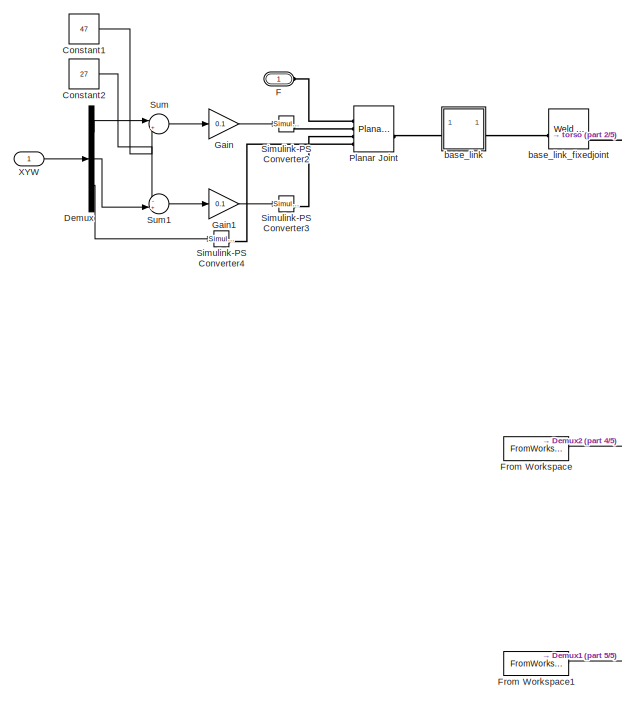
[diagram: Blue2 - part 1/5, top left region]
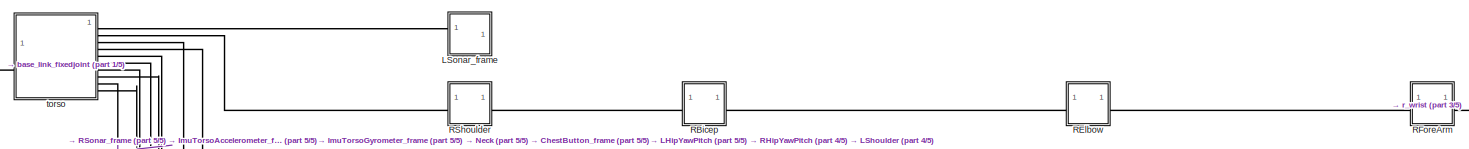
[diagram: Blue2 - part 2/5, top center region]
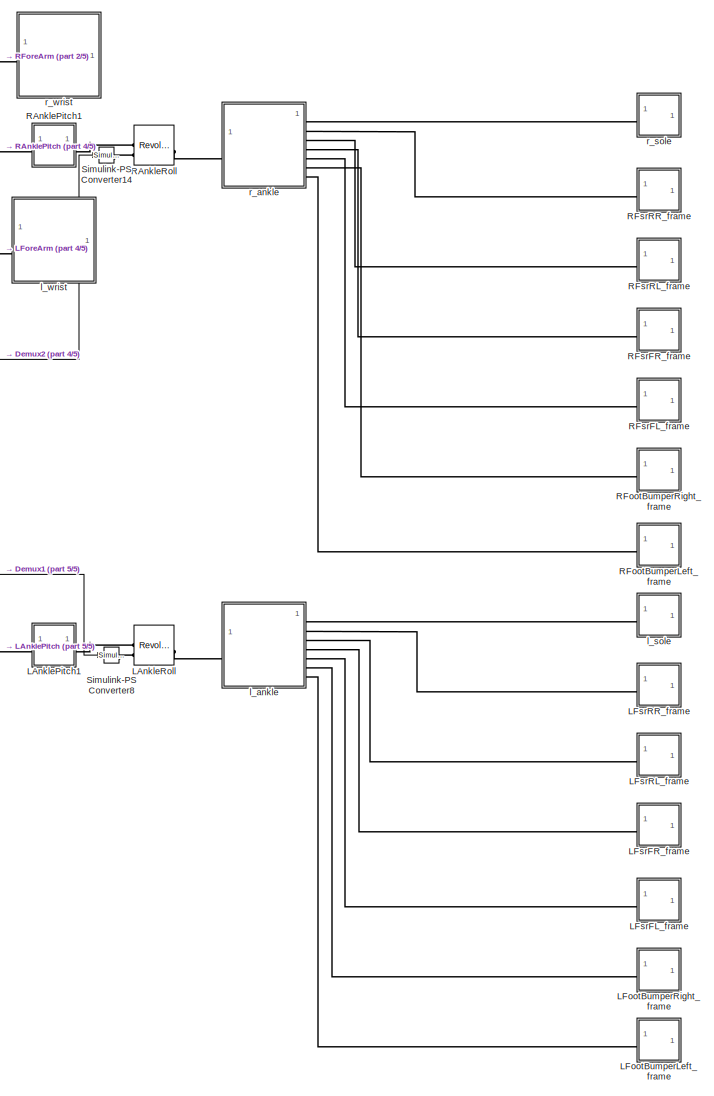
[diagram: Blue2 - part 3/5, right side, full height]
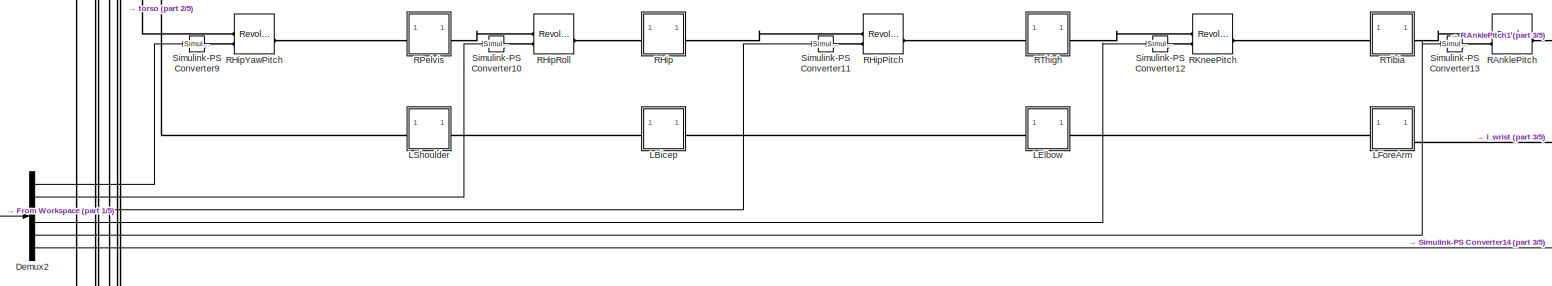
[diagram: Blue2 - part 4/5, top center region]
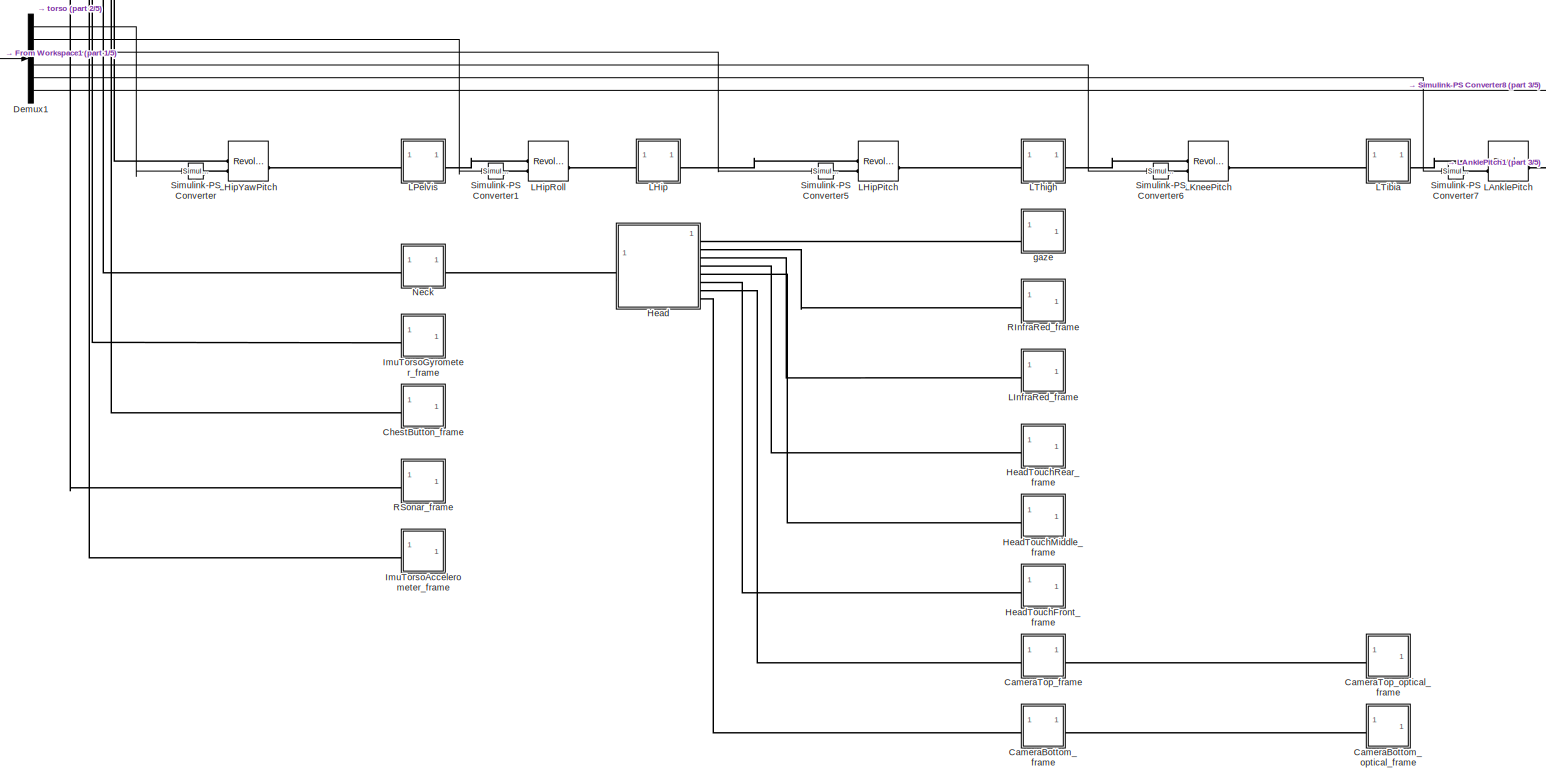
[diagram: Blue2 - part 5/5, bottom center region]
BLOCK [SubSystem] Blue2
BLOCK [SubSystem] Blue2/CameraBottom_frame
BLOCK [Reference] Blue2/CameraBottom_frame/CameraBottom_optical_frame_fixedjoint_OriginTransform  REF=sm_lib/Frames and
Transforms/Rigid
Transform
  SourceBlock = sm_lib/Frames and\nTransforms/Rigid\nTransform
  SourceType = Rigid\nTransform
BLOCK [PMIOPort] Blue2/CameraBottom_frame/F
  Side = Left
BLOCK [PMIOPort] Blue2/CameraBottom_frame/F1
  Port = 2
  Side = Right
BLOCK [Reference] Blue2/CameraBottom_frame/ReferenceFrame  REF=sm_lib/Frames and
Transforms/Reference
Frame
  SourceBlock = sm_lib/Frames and\nTransforms/Reference\nFrame
  SourceType = Reference\nFrame
BLOCK [SubSystem] Blue2/CameraBottom_optical_frame
BLOCK [PMIOPort] Blue2/CameraBottom_optical_frame/F
  Side = Left
BLOCK [Reference] Blue2/CameraBottom_optical_frame/ReferenceFrame  REF=sm_lib/Frames and
Transforms/Reference
Frame
  SourceBlock = sm_lib/Frames and\nTransforms/Reference\nFrame
  SourceType = Reference\nFrame
BLOCK [SubSystem] Blue2/CameraTop_frame
BLOCK [Reference] Blue2/CameraTop_frame/CameraTop_optical_frame_fixedjoint_OriginTransform  REF=sm_lib/Frames and
Transforms/Rigid
Transform
  SourceBlock = sm_lib/Frames and\nTransforms/Rigid\nTransform
  SourceType = Rigid\nTransform
BLOCK [PMIOPort] Blue2/CameraTop_frame/F
  Side = Left
BLOCK [PMIOPort] Blue2/CameraTop_frame/F1
  Port = 2
  Side = Right
BLOCK [Reference] Blue2/CameraTop_frame/ReferenceFrame  REF=sm_lib/Frames and
Transforms/Reference
Frame
  SourceBlock = sm_lib/Frames and\nTransforms/Reference\nFrame
  SourceType = Reference\nFrame
BLOCK [SubSystem] Blue2/CameraTop_optical_frame
BLOCK [PMIOPort] Blue2/CameraTop_optical_frame/F
  Side = Left
BLOCK [Reference] Blue2/CameraTop_optical_frame/ReferenceFrame  REF=sm_lib/Frames and
Transforms/Reference
Frame
  SourceBlock = sm_lib/Frames and\nTransforms/Reference\nFrame
  SourceType = Reference\nFrame
BLOCK [SubSystem] Blue2/ChestButton_frame
BLOCK [PMIOPort] Blue2/ChestButton_frame/F
  Side = Left
BLOCK [Reference] Blue2/ChestButton_frame/ReferenceFrame  REF=sm_lib/Frames and
Transforms/Reference
Frame
  SourceBlock = sm_lib/Frames and\nTransforms/Reference\nFrame
  SourceType = Reference\nFrame
BLOCK [Constant] Blue2/Constant1
  Value = 47
BLOCK [Constant] Blue2/Constant2
  Value = 27
BLOCK [Demux] Blue2/Demux
  Outputs = 3
BLOCK [Demux] Blue2/Demux1
  Outputs = 6
BLOCK [Demux] Blue2/Demux2
  Outputs = 6
BLOCK [PMIOPort] Blue2/F
  Side = Left
BLOCK [FromWorkspace] Blue2/From Workspace
  Interpolate = off
  OutputAfterFinalValue = Cyclic repetition
  SampleTime = 0.01
  VariableName = jAngsR
BLOCK [FromWorkspace] Blue2/From Workspace1
  Interpolate = off
  OutputAfterFinalValue = Cyclic repetition
  SampleTime = 0.01
  VariableName = jAngsL
BLOCK [Gain] Blue2/Gain
  Gain = 0.1
BLOCK [Gain] Blue2/Gain1
  Gain = 0.1
BLOCK [SubSystem] Blue2/Head
BLOCK [Reference] Blue2/Head/CameraBottom_sensor_fixedjoint_OriginTransform  REF=sm_lib/Frames and
Transforms/Rigid
Transform
  SourceBlock = sm_lib/Frames and\nTransforms/Rigid\nTransform
  SourceType = Rigid\nTransform
BLOCK [Reference] Blue2/Head/CameraTop_sensor_fixedjoint_OriginTransform  REF=sm_lib/Frames and
Transforms/Rigid
Transform
  SourceBlock = sm_lib/Frames and\nTransforms/Rigid\nTransform
  SourceType = Rigid\nTransform
BLOCK [PMIOPort] Blue2/Head/F
  Side = Left
BLOCK [PMIOPort] Blue2/Head/F1
  Port = 9
  Side = Right
BLOCK [PMIOPort] Blue2/Head/F2
  Port = 8
  Side = Right
BLOCK [PMIOPort] Blue2/Head/F3
  Port = 7
  Side = Right
BLOCK [PMIOPort] Blue2/Head/F4
  Port = 6
  Side = Right
BLOCK [PMIOPort] Blue2/Head/F5
  Port = 5
  Side = Right
BLOCK [PMIOPort] Blue2/Head/F6
  Port = 4
  Side = Right
BLOCK [PMIOPort] Blue2/Head/F7
  Port = 3
  Side = Right
BLOCK [PMIOPort] Blue2/Head/F8
  Port = 2
  Side = Right
BLOCK [Reference] Blue2/Head/HeadPitch_AxisInvTransform  REF=sm_lib/Frames and
Transforms/Rigid
Transform
  SourceBlock = sm_lib/Frames and\nTransforms/Rigid\nTransform
  SourceType = Rigid\nTransform
BLOCK [Reference] Blue2/Head/Head_Touch_Front_sensor_fixedjoint_OriginTransform  REF=sm_lib/Frames and
Transforms/Rigid
Transform
  SourceBlock = sm_lib/Frames and\nTransforms/Rigid\nTransform
  SourceType = Rigid\nTransform
BLOCK [Reference] Blue2/Head/Head_Touch_Middle_sensor_fixedjoint_OriginTransform  REF=sm_lib/Frames and
Transforms/Rigid
Transform
  SourceBlock = sm_lib/Frames and\nTransforms/Rigid\nTransform
  SourceType = Rigid\nTransform
BLOCK [Reference] Blue2/Head/Head_Touch_Rear_sensor_fixedjoint_OriginTransform  REF=sm_lib/Frames and
Transforms/Rigid
Transform
  SourceBlock = sm_lib/Frames and\nTransforms/Rigid\nTransform
  SourceType = Rigid\nTransform
BLOCK [Reference] Blue2/Head/Inertia  REF=sm_lib/Body Elements/Inertia
  SourceBlock = sm_lib/Body Elements/Inertia
  SourceType = Inertia
BLOCK [Reference] Blue2/Head/InertiaOriginTransform  REF=sm_lib/Frames and
Transforms/Rigid
Transform
  SourceBlock = sm_lib/Frames and\nTransforms/Rigid\nTransform
  SourceType = Rigid\nTransform
BLOCK [Reference] Blue2/Head/InfraredL_sensor_fixedjoint_OriginTransform  REF=sm_lib/Frames and
Transforms/Rigid
Transform
  SourceBlock = sm_lib/Frames and\nTransforms/Rigid\nTransform
  SourceType = Rigid\nTransform
BLOCK [Reference] Blue2/Head/InfraredR_sensor_fixedjoint_OriginTransform  REF=sm_lib/Frames and
Transforms/Rigid
Transform
  SourceBlock = sm_lib/Frames and\nTransforms/Rigid\nTransform
  SourceType = Rigid\nTransform
BLOCK [Reference] Blue2/Head/ReferenceFrame  REF=sm_lib/Frames and
Transforms/Reference
Frame
  SourceBlock = sm_lib/Frames and\nTransforms/Reference\nFrame
  SourceType = Reference\nFrame
BLOCK [Reference] Blue2/Head/Visual  REF=sm_lib/Body Elements/File Solid
  NameLocation = top
  SourceBlock = sm_lib/Body Elements/File Solid
  SourceType = File Solid
BLOCK [Reference] Blue2/Head/VisualOriginTransform  REF=sm_lib/Frames and
Transforms/Rigid
Transform
  SourceBlock = sm_lib/Frames and\nTransforms/Rigid\nTransform
  SourceType = Rigid\nTransform
BLOCK [Reference] Blue2/Head/gaze_joint_OriginTransform  REF=sm_lib/Frames and
Transforms/Rigid
Transform
  SourceBlock = sm_lib/Frames and\nTransforms/Rigid\nTransform
  SourceType = Rigid\nTransform
BLOCK [SubSystem] Blue2/HeadTouchFront_frame
BLOCK [PMIOPort] Blue2/HeadTouchFront_frame/F
  Side = Left
BLOCK [Reference] Blue2/HeadTouchFront_frame/ReferenceFrame  REF=sm_lib/Frames and
Transforms/Reference
Frame
  SourceBlock = sm_lib/Frames and\nTransforms/Reference\nFrame
  SourceType = Reference\nFrame
BLOCK [SubSystem] Blue2/HeadTouchMiddle_frame
BLOCK [PMIOPort] Blue2/HeadTouchMiddle_frame/F
  Side = Left
BLOCK [Reference] Blue2/HeadTouchMiddle_frame/ReferenceFrame  REF=sm_lib/Frames and
Transforms/Reference
Frame
  SourceBlock = sm_lib/Frames and\nTransforms/Reference\nFrame
  SourceType = Reference\nFrame
BLOCK [SubSystem] Blue2/HeadTouchRear_frame
BLOCK [PMIOPort] Blue2/HeadTouchRear_frame/F
  Side = Left
BLOCK [Reference] Blue2/HeadTouchRear_frame/ReferenceFrame  REF=sm_lib/Frames and
Transforms/Reference
Frame
  SourceBlock = sm_lib/Frames and\nTransforms/Reference\nFrame
  SourceType = Reference\nFrame
BLOCK [SubSystem] Blue2/ImuTorsoAccelerometer_frame
BLOCK [PMIOPort] Blue2/ImuTorsoAccelerometer_frame/F
  Side = Left
BLOCK [Reference] Blue2/ImuTorsoAccelerometer_frame/ReferenceFrame  REF=sm_lib/Frames and
Transforms/Reference
Frame
  SourceBlock = sm_lib/Frames and\nTransforms/Reference\nFrame
  SourceType = Reference\nFrame
BLOCK [SubSystem] Blue2/ImuTorsoGyrometer_frame
BLOCK [PMIOPort] Blue2/ImuTorsoGyrometer_frame/F
  Side = Left
BLOCK [Reference] Blue2/ImuTorsoGyrometer_frame/ReferenceFrame  REF=sm_lib/Frames and
Transforms/Reference
Frame
  SourceBlock = sm_lib/Frames and\nTransforms/Reference\nFrame
  SourceType = Reference\nFrame
BLOCK [Reference] Blue2/LAnklePitch  REF=sm_lib/Joints/Revolute Joint
  SourceBlock = sm_lib/Joints/Revolute Joint
  SourceType = Revolute Joint
BLOCK [SubSystem] Blue2/LAnklePitch1
BLOCK [PMIOPort] Blue2/LAnklePitch1/F
  Side = Left
BLOCK [PMIOPort] Blue2/LAnklePitch1/F1
  Port = 2
  Side = Right
BLOCK [Reference] Blue2/LAnklePitch1/Inertia  REF=sm_lib/Body Elements/Inertia
  SourceBlock = sm_lib/Body Elements/Inertia
  SourceType = Inertia
BLOCK [Reference] Blue2/LAnklePitch1/InertiaOriginTransform  REF=sm_lib/Frames and
Transforms/Rigid
Transform
  SourceBlock = sm_lib/Frames and\nTransforms/Rigid\nTransform
  SourceType = Rigid\nTransform
BLOCK [Reference] Blue2/LAnklePitch1/LAnklePitch_AxisInvTransform  REF=sm_lib/Frames and
Transforms/Rigid
Transform
  SourceBlock = sm_lib/Frames and\nTransforms/Rigid\nTransform
  SourceType = Rigid\nTransform
BLOCK [Reference] Blue2/LAnklePitch1/LAnkleRoll_AxisTransform  REF=sm_lib/Frames and
Transforms/Rigid
Transform
  SourceBlock = sm_lib/Frames and\nTransforms/Rigid\nTransform
  SourceType = Rigid\nTransform
BLOCK [Reference] Blue2/LAnklePitch1/LAnkleRoll_OriginTransform  REF=sm_lib/Frames and
Transforms/Rigid
Transform
  SourceBlock = sm_lib/Frames and\nTransforms/Rigid\nTransform
  SourceType = Rigid\nTransform
BLOCK [Reference] Blue2/LAnklePitch1/ReferenceFrame  REF=sm_lib/Frames and
Transforms/Reference
Frame
  SourceBlock = sm_lib/Frames and\nTransforms/Reference\nFrame
  SourceType = Reference\nFrame
BLOCK [Reference] Blue2/LAnklePitch1/Visual  REF=sm_lib/Body Elements/File Solid
  SourceBlock = sm_lib/Body Elements/File Solid
  SourceType = File Solid
BLOCK [Reference] Blue2/LAnklePitch1/VisualOriginTransform  REF=sm_lib/Frames and
Transforms/Rigid
Transform
  SourceBlock = sm_lib/Frames and\nTransforms/Rigid\nTransform
  SourceType = Rigid\nTransform
BLOCK [Reference] Blue2/LAnkleRoll  REF=sm_lib/Joints/Revolute Joint
  SourceBlock = sm_lib/Joints/Revolute Joint
  SourceType = Revolute Joint
BLOCK [SubSystem] Blue2/LBicep
BLOCK [PMIOPort] Blue2/LBicep/F
  Side = Left
BLOCK [PMIOPort] Blue2/LBicep/F1
  Port = 2
  Side = Right
BLOCK [Reference] Blue2/LBicep/Inertia  REF=sm_lib/Body Elements/Inertia
  SourceBlock = sm_lib/Body Elements/Inertia
  SourceType = Inertia
BLOCK [Reference] Blue2/LBicep/InertiaOriginTransform  REF=sm_lib/Frames and
Transforms/Rigid
Transform
  SourceBlock = sm_lib/Frames and\nTransforms/Rigid\nTransform
  SourceType = Rigid\nTransform
BLOCK [Reference] Blue2/LBicep/LElbowYaw_AxisTransform  REF=sm_lib/Frames and
Transforms/Rigid
Transform
  SourceBlock = sm_lib/Frames and\nTransforms/Rigid\nTransform
  SourceType = Rigid\nTransform
BLOCK [Reference] Blue2/LBicep/LElbowYaw_OriginTransform  REF=sm_lib/Frames and
Transforms/Rigid
Transform
  SourceBlock = sm_lib/Frames and\nTransforms/Rigid\nTransform
  SourceType = Rigid\nTransform
BLOCK [Reference] Blue2/LBicep/LShoulderRoll_AxisInvTransform  REF=sm_lib/Frames and
Transforms/Rigid
Transform
  SourceBlock = sm_lib/Frames and\nTransforms/Rigid\nTransform
  SourceType = Rigid\nTransform
BLOCK [Reference] Blue2/LBicep/ReferenceFrame  REF=sm_lib/Frames and
Transforms/Reference
Frame
  SourceBlock = sm_lib/Frames and\nTransforms/Reference\nFrame
  SourceType = Reference\nFrame
BLOCK [Reference] Blue2/LBicep/Visual  REF=sm_lib/Body Elements/File Solid
  SourceBlock = sm_lib/Body Elements/File Solid
  SourceType = File Solid
BLOCK [Reference] Blue2/LBicep/VisualOriginTransform  REF=sm_lib/Frames and
Transforms/Rigid
Transform
  SourceBlock = sm_lib/Frames and\nTransforms/Rigid\nTransform
  SourceType = Rigid\nTransform
BLOCK [SubSystem] Blue2/LElbow
BLOCK [PMIOPort] Blue2/LElbow/F
  Side = Left
BLOCK [PMIOPort] Blue2/LElbow/F1
  Port = 2
  Side = Right
BLOCK [Reference] Blue2/LElbow/Inertia  REF=sm_lib/Body Elements/Inertia
  SourceBlock = sm_lib/Body Elements/Inertia
  SourceType = Inertia
BLOCK [Reference] Blue2/LElbow/InertiaOriginTransform  REF=sm_lib/Frames and
Transforms/Rigid
Transform
  SourceBlock = sm_lib/Frames and\nTransforms/Rigid\nTransform
  SourceType = Rigid\nTransform
BLOCK [Reference] Blue2/LElbow/LElbowRoll_AxisTransform  REF=sm_lib/Frames and
Transforms/Rigid
Transform
  SourceBlock = sm_lib/Frames and\nTransforms/Rigid\nTransform
  SourceType = Rigid\nTransform
BLOCK [Reference] Blue2/LElbow/LElbowRoll_OriginTransform  REF=sm_lib/Frames and
Transforms/Rigid
Transform
  SourceBlock = sm_lib/Frames and\nTransforms/Rigid\nTransform
  SourceType = Rigid\nTransform
BLOCK [Reference] Blue2/LElbow/LElbowYaw_AxisInvTransform  REF=sm_lib/Frames and
Transforms/Rigid
Transform
  SourceBlock = sm_lib/Frames and\nTransforms/Rigid\nTransform
  SourceType = Rigid\nTransform
BLOCK [Reference] Blue2/LElbow/ReferenceFrame  REF=sm_lib/Frames and
Transforms/Reference
Frame
  SourceBlock = sm_lib/Frames and\nTransforms/Reference\nFrame
  SourceType = Reference\nFrame
BLOCK [SubSystem] Blue2/LFootBumperLeft_frame
BLOCK [PMIOPort] Blue2/LFootBumperLeft_frame/F
  Side = Left
BLOCK [Reference] Blue2/LFootBumperLeft_frame/ReferenceFrame  REF=sm_lib/Frames and
Transforms/Reference
Frame
  SourceBlock = sm_lib/Frames and\nTransforms/Reference\nFrame
  SourceType = Reference\nFrame
BLOCK [SubSystem] Blue2/LFootBumperRight_frame
BLOCK [PMIOPort] Blue2/LFootBumperRight_frame/F
  Side = Left
BLOCK [Reference] Blue2/LFootBumperRight_frame/ReferenceFrame  REF=sm_lib/Frames and
Transforms/Reference
Frame
  SourceBlock = sm_lib/Frames and\nTransforms/Reference\nFrame
  SourceType = Reference\nFrame
BLOCK [SubSystem] Blue2/LForeArm
BLOCK [PMIOPort] Blue2/LForeArm/F
  Side = Left
BLOCK [PMIOPort] Blue2/LForeArm/F1
  Port = 2
  Side = Right
BLOCK [Reference] Blue2/LForeArm/Inertia  REF=sm_lib/Body Elements/Inertia
  SourceBlock = sm_lib/Body Elements/Inertia
  SourceType = Inertia
BLOCK [Reference] Blue2/LForeArm/InertiaOriginTransform  REF=sm_lib/Frames and
Transforms/Rigid
Transform
  SourceBlock = sm_lib/Frames and\nTransforms/Rigid\nTransform
  SourceType = Rigid\nTransform
BLOCK [Reference] Blue2/LForeArm/LElbowRoll_AxisInvTransform  REF=sm_lib/Frames and
Transforms/Rigid
Transform
  SourceBlock = sm_lib/Frames and\nTransforms/Rigid\nTransform
  SourceType = Rigid\nTransform
BLOCK [Reference] Blue2/LForeArm/LWristYaw_AxisTransform  REF=sm_lib/Frames and
Transforms/Rigid
Transform
  SourceBlock = sm_lib/Frames and\nTransforms/Rigid\nTransform
  SourceType = Rigid\nTransform
BLOCK [Reference] Blue2/LForeArm/LWristYaw_OriginTransform  REF=sm_lib/Frames and
Transforms/Rigid
Transform
  SourceBlock = sm_lib/Frames and\nTransforms/Rigid\nTransform
  SourceType = Rigid\nTransform
BLOCK [Reference] Blue2/LForeArm/ReferenceFrame  REF=sm_lib/Frames and
Transforms/Reference
Frame
  SourceBlock = sm_lib/Frames and\nTransforms/Reference\nFrame
  SourceType = Reference\nFrame
BLOCK [Reference] Blue2/LForeArm/Visual  REF=sm_lib/Body Elements/File Solid
  SourceBlock = sm_lib/Body Elements/File Solid
  SourceType = File Solid
BLOCK [Reference] Blue2/LForeArm/VisualOriginTransform  REF=sm_lib/Frames and
Transforms/Rigid
Transform
  SourceBlock = sm_lib/Frames and\nTransforms/Rigid\nTransform
  SourceType = Rigid\nTransform
BLOCK [SubSystem] Blue2/LFsrFL_frame
BLOCK [PMIOPort] Blue2/LFsrFL_frame/F
  Side = Left
BLOCK [Reference] Blue2/LFsrFL_frame/Inertia  REF=sm_lib/Body Elements/Inertia
  SourceBlock = sm_lib/Body Elements/Inertia
  SourceType = Inertia
BLOCK [Reference] Blue2/LFsrFL_frame/InertiaOriginTransform  REF=sm_lib/Frames and
Transforms/Rigid
Transform
  SourceBlock = sm_lib/Frames and\nTransforms/Rigid\nTransform
  SourceType = Rigid\nTransform
BLOCK [Reference] Blue2/LFsrFL_frame/ReferenceFrame  REF=sm_lib/Frames and
Transforms/Reference
Frame
  SourceBlock = sm_lib/Frames and\nTransforms/Reference\nFrame
  SourceType = Reference\nFrame
BLOCK [SubSystem] Blue2/LFsrFR_frame
BLOCK [PMIOPort] Blue2/LFsrFR_frame/F
  Side = Left
BLOCK [Reference] Blue2/LFsrFR_frame/Inertia  REF=sm_lib/Body Elements/Inertia
  SourceBlock = sm_lib/Body Elements/Inertia
  SourceType = Inertia
BLOCK [Reference] Blue2/LFsrFR_frame/InertiaOriginTransform  REF=sm_lib/Frames and
Transforms/Rigid
Transform
  SourceBlock = sm_lib/Frames and\nTransforms/Rigid\nTransform
  SourceType = Rigid\nTransform
BLOCK [Reference] Blue2/LFsrFR_frame/ReferenceFrame  REF=sm_lib/Frames and
Transforms/Reference
Frame
  SourceBlock = sm_lib/Frames and\nTransforms/Reference\nFrame
  SourceType = Reference\nFrame
BLOCK [SubSystem] Blue2/LFsrRL_frame
BLOCK [PMIOPort] Blue2/LFsrRL_frame/F
  Side = Left
BLOCK [Reference] Blue2/LFsrRL_frame/Inertia  REF=sm_lib/Body Elements/Inertia
  SourceBlock = sm_lib/Body Elements/Inertia
  SourceType = Inertia
BLOCK [Reference] Blue2/LFsrRL_frame/InertiaOriginTransform  REF=sm_lib/Frames and
Transforms/Rigid
Transform
  SourceBlock = sm_lib/Frames and\nTransforms/Rigid\nTransform
  SourceType = Rigid\nTransform
BLOCK [Reference] Blue2/LFsrRL_frame/ReferenceFrame  REF=sm_lib/Frames and
Transforms/Reference
Frame
  SourceBlock = sm_lib/Frames and\nTransforms/Reference\nFrame
  SourceType = Reference\nFrame
BLOCK [SubSystem] Blue2/LFsrRR_frame
BLOCK [PMIOPort] Blue2/LFsrRR_frame/F
  Side = Left
BLOCK [Reference] Blue2/LFsrRR_frame/Inertia  REF=sm_lib/Body Elements/Inertia
  SourceBlock = sm_lib/Body Elements/Inertia
  SourceType = Inertia
BLOCK [Reference] Blue2/LFsrRR_frame/InertiaOriginTransform  REF=sm_lib/Frames and
Transforms/Rigid
Transform
  SourceBlock = sm_lib/Frames and\nTransforms/Rigid\nTransform
  SourceType = Rigid\nTransform
BLOCK [Reference] Blue2/LFsrRR_frame/ReferenceFrame  REF=sm_lib/Frames and
Transforms/Reference
Frame
  SourceBlock = sm_lib/Frames and\nTransforms/Reference\nFrame
  SourceType = Reference\nFrame
BLOCK [SubSystem] Blue2/LHip
BLOCK [PMIOPort] Blue2/LHip/F
  Side = Left
BLOCK [PMIOPort] Blue2/LHip/F1
  Port = 2
  Side = Right
BLOCK [Reference] Blue2/LHip/Inertia  REF=sm_lib/Body Elements/Inertia
  SourceBlock = sm_lib/Body Elements/Inertia
  SourceType = Inertia
BLOCK [Reference] Blue2/LHip/InertiaOriginTransform  REF=sm_lib/Frames and
Transforms/Rigid
Transform
  SourceBlock = sm_lib/Frames and\nTransforms/Rigid\nTransform
  SourceType = Rigid\nTransform
BLOCK [Reference] Blue2/LHip/LHipPitch_AxisTransform  REF=sm_lib/Frames and
Transforms/Rigid
Transform
  SourceBlock = sm_lib/Frames and\nTransforms/Rigid\nTransform
  SourceType = Rigid\nTransform
BLOCK [Reference] Blue2/LHip/LHipPitch_OriginTransform  REF=sm_lib/Frames and
Transforms/Rigid
Transform
  SourceBlock = sm_lib/Frames and\nTransforms/Rigid\nTransform
  SourceType = Rigid\nTransform
BLOCK [Reference] Blue2/LHip/LHipRoll_AxisInvTransform  REF=sm_lib/Frames and
Transforms/Rigid
Transform
  SourceBlock = sm_lib/Frames and\nTransforms/Rigid\nTransform
  SourceType = Rigid\nTransform
BLOCK [Reference] Blue2/LHip/ReferenceFrame  REF=sm_lib/Frames and
Transforms/Reference
Frame
  SourceBlock = sm_lib/Frames and\nTransforms/Reference\nFrame
  SourceType = Reference\nFrame
BLOCK [Reference] Blue2/LHip/Visual  REF=sm_lib/Body Elements/File Solid
  SourceBlock = sm_lib/Body Elements/File Solid
  SourceType = File Solid
BLOCK [Reference] Blue2/LHip/VisualOriginTransform  REF=sm_lib/Frames and
Transforms/Rigid
Transform
  SourceBlock = sm_lib/Frames and\nTransforms/Rigid\nTransform
  SourceType = Rigid\nTransform
BLOCK [Reference] Blue2/LHipPitch  REF=sm_lib/Joints/Revolute Joint
  SourceBlock = sm_lib/Joints/Revolute Joint
  SourceType = Revolute Joint
BLOCK [Reference] Blue2/LHipRoll  REF=sm_lib/Joints/Revolute Joint
  SourceBlock = sm_lib/Joints/Revolute Joint
  SourceType = Revolute Joint
BLOCK [Reference] Blue2/LHipYawPitch  REF=sm_lib/Joints/Revolute Joint
  SourceBlock = sm_lib/Joints/Revolute Joint
  SourceType = Revolute Joint
BLOCK [SubSystem] Blue2/LInfraRed_frame
BLOCK [PMIOPort] Blue2/LInfraRed_frame/F
  Side = Left
BLOCK [Reference] Blue2/LInfraRed_frame/ReferenceFrame  REF=sm_lib/Frames and
Transforms/Reference
Frame
  SourceBlock = sm_lib/Frames and\nTransforms/Reference\nFrame
  SourceType = Reference\nFrame
BLOCK [Reference] Blue2/LKneePitch  REF=sm_lib/Joints/Revolute Joint
  SourceBlock = sm_lib/Joints/Revolute Joint
  SourceType = Revolute Joint
BLOCK [SubSystem] Blue2/LPelvis
BLOCK [PMIOPort] Blue2/LPelvis/F
  Side = Left
BLOCK [PMIOPort] Blue2/LPelvis/F1
  Port = 2
  Side = Right
BLOCK [Reference] Blue2/LPelvis/Inertia  REF=sm_lib/Body Elements/Inertia
  SourceBlock = sm_lib/Body Elements/Inertia
  SourceType = Inertia
BLOCK [Reference] Blue2/LPelvis/InertiaOriginTransform  REF=sm_lib/Frames and
Transforms/Rigid
Transform
  SourceBlock = sm_lib/Frames and\nTransforms/Rigid\nTransform
  SourceType = Rigid\nTransform
BLOCK [Reference] Blue2/LPelvis/LHipRoll_AxisTransform  REF=sm_lib/Frames and
Transforms/Rigid
Transform
  SourceBlock = sm_lib/Frames and\nTransforms/Rigid\nTransform
  SourceType = Rigid\nTransform
BLOCK [Reference] Blue2/LPelvis/LHipRoll_OriginTransform  REF=sm_lib/Frames and
Transforms/Rigid
Transform
  SourceBlock = sm_lib/Frames and\nTransforms/Rigid\nTransform
  SourceType = Rigid\nTransform
BLOCK [Reference] Blue2/LPelvis/LHipYawPitch_AxisInvTransform  REF=sm_lib/Frames and
Transforms/Rigid
Transform
  SourceBlock = sm_lib/Frames and\nTransforms/Rigid\nTransform
  SourceType = Rigid\nTransform
BLOCK [Reference] Blue2/LPelvis/ReferenceFrame  REF=sm_lib/Frames and
Transforms/Reference
Frame
  SourceBlock = sm_lib/Frames and\nTransforms/Reference\nFrame
  SourceType = Reference\nFrame
BLOCK [Reference] Blue2/LPelvis/Visual  REF=sm_lib/Body Elements/File Solid
  SourceBlock = sm_lib/Body Elements/File Solid
  SourceType = File Solid
BLOCK [Reference] Blue2/LPelvis/VisualOriginTransform  REF=sm_lib/Frames and
Transforms/Rigid
Transform
  SourceBlock = sm_lib/Frames and\nTransforms/Rigid\nTransform
  SourceType = Rigid\nTransform
BLOCK [SubSystem] Blue2/LShoulder
BLOCK [PMIOPort] Blue2/LShoulder/F
  Side = Left
BLOCK [PMIOPort] Blue2/LShoulder/F1
  Port = 2
  Side = Right
BLOCK [Reference] Blue2/LShoulder/Inertia  REF=sm_lib/Body Elements/Inertia
  SourceBlock = sm_lib/Body Elements/Inertia
  SourceType = Inertia
BLOCK [Reference] Blue2/LShoulder/InertiaOriginTransform  REF=sm_lib/Frames and
Transforms/Rigid
Transform
  SourceBlock = sm_lib/Frames and\nTransforms/Rigid\nTransform
  SourceType = Rigid\nTransform
BLOCK [Reference] Blue2/LShoulder/LShoulderPitch_AxisInvTransform  REF=sm_lib/Frames and
Transforms/Rigid
Transform
  SourceBlock = sm_lib/Frames and\nTransforms/Rigid\nTransform
  SourceType = Rigid\nTransform
BLOCK [Reference] Blue2/LShoulder/LShoulderRoll_AxisTransform  REF=sm_lib/Frames and
Transforms/Rigid
Transform
  SourceBlock = sm_lib/Frames and\nTransforms/Rigid\nTransform
  SourceType = Rigid\nTransform
BLOCK [Reference] Blue2/LShoulder/LShoulderRoll_OriginTransform  REF=sm_lib/Frames and
Transforms/Rigid
Transform
  SourceBlock = sm_lib/Frames and\nTransforms/Rigid\nTransform
  SourceType = Rigid\nTransform
BLOCK [Reference] Blue2/LShoulder/ReferenceFrame  REF=sm_lib/Frames and
Transforms/Reference
Frame
  SourceBlock = sm_lib/Frames and\nTransforms/Reference\nFrame
  SourceType = Reference\nFrame
BLOCK [Reference] Blue2/LShoulder/Visual  REF=sm_lib/Body Elements/File Solid
  SourceBlock = sm_lib/Body Elements/File Solid
  SourceType = File Solid
BLOCK [Reference] Blue2/LShoulder/VisualOriginTransform  REF=sm_lib/Frames and
Transforms/Rigid
Transform
  SourceBlock = sm_lib/Frames and\nTransforms/Rigid\nTransform
  SourceType = Rigid\nTransform
BLOCK [SubSystem] Blue2/LSonar_frame
BLOCK [PMIOPort] Blue2/LSonar_frame/F
  Side = Left
BLOCK [Reference] Blue2/LSonar_frame/ReferenceFrame  REF=sm_lib/Frames and
Transforms/Reference
Frame
  SourceBlock = sm_lib/Frames and\nTransforms/Reference\nFrame
  SourceType = Reference\nFrame
BLOCK [SubSystem] Blue2/LThigh
BLOCK [PMIOPort] Blue2/LThigh/F
  Side = Left
BLOCK [PMIOPort] Blue2/LThigh/F1
  Port = 2
  Side = Right
BLOCK [Reference] Blue2/LThigh/Inertia  REF=sm_lib/Body Elements/Inertia
  SourceBlock = sm_lib/Body Elements/Inertia
  SourceType = Inertia
BLOCK [Reference] Blue2/LThigh/InertiaOriginTransform  REF=sm_lib/Frames and
Transforms/Rigid
Transform
  SourceBlock = sm_lib/Frames and\nTransforms/Rigid\nTransform
  SourceType = Rigid\nTransform
BLOCK [Reference] Blue2/LThigh/LHipPitch_AxisInvTransform  REF=sm_lib/Frames and
Transforms/Rigid
Transform
  SourceBlock = sm_lib/Frames and\nTransforms/Rigid\nTransform
  SourceType = Rigid\nTransform
BLOCK [Reference] Blue2/LThigh/LKneePitch_AxisTransform  REF=sm_lib/Frames and
Transforms/Rigid
Transform
  SourceBlock = sm_lib/Frames and\nTransforms/Rigid\nTransform
  SourceType = Rigid\nTransform
BLOCK [Reference] Blue2/LThigh/LKneePitch_OriginTransform  REF=sm_lib/Frames and
Transforms/Rigid
Transform
  SourceBlock = sm_lib/Frames and\nTransforms/Rigid\nTransform
  SourceType = Rigid\nTransform
BLOCK [Reference] Blue2/LThigh/ReferenceFrame  REF=sm_lib/Frames and
Transforms/Reference
Frame
  SourceBlock = sm_lib/Frames and\nTransforms/Reference\nFrame
  SourceType = Reference\nFrame
BLOCK [Reference] Blue2/LThigh/Visual  REF=sm_lib/Body Elements/File Solid
  SourceBlock = sm_lib/Body Elements/File Solid
  SourceType = File Solid
BLOCK [Reference] Blue2/LThigh/VisualOriginTransform  REF=sm_lib/Frames and
Transforms/Rigid
Transform
  SourceBlock = sm_lib/Frames and\nTransforms/Rigid\nTransform
  SourceType = Rigid\nTransform
BLOCK [SubSystem] Blue2/LTibia
BLOCK [PMIOPort] Blue2/LTibia/F
  Side = Left
BLOCK [PMIOPort] Blue2/LTibia/F1
  Port = 2
  Side = Right
BLOCK [Reference] Blue2/LTibia/Inertia  REF=sm_lib/Body Elements/Inertia
  SourceBlock = sm_lib/Body Elements/Inertia
  SourceType = Inertia
BLOCK [Reference] Blue2/LTibia/InertiaOriginTransform  REF=sm_lib/Frames and
Transforms/Rigid
Transform
  SourceBlock = sm_lib/Frames and\nTransforms/Rigid\nTransform
  SourceType = Rigid\nTransform
BLOCK [Reference] Blue2/LTibia/LAnklePitch_AxisTransform  REF=sm_lib/Frames and
Transforms/Rigid
Transform
  SourceBlock = sm_lib/Frames and\nTransforms/Rigid\nTransform
  SourceType = Rigid\nTransform
BLOCK [Reference] Blue2/LTibia/LAnklePitch_OriginTransform  REF=sm_lib/Frames and
Transforms/Rigid
Transform
  SourceBlock = sm_lib/Frames and\nTransforms/Rigid\nTransform
  SourceType = Rigid\nTransform
BLOCK [Reference] Blue2/LTibia/LKneePitch_AxisInvTransform  REF=sm_lib/Frames and
Transforms/Rigid
Transform
  SourceBlock = sm_lib/Frames and\nTransforms/Rigid\nTransform
  SourceType = Rigid\nTransform
BLOCK [Reference] Blue2/LTibia/ReferenceFrame  REF=sm_lib/Frames and
Transforms/Reference
Frame
  SourceBlock = sm_lib/Frames and\nTransforms/Reference\nFrame
  SourceType = Reference\nFrame
BLOCK [Reference] Blue2/LTibia/Visual  REF=sm_lib/Body Elements/File Solid
  SourceBlock = sm_lib/Body Elements/File Solid
  SourceType = File Solid
BLOCK [Reference] Blue2/LTibia/VisualOriginTransform  REF=sm_lib/Frames and
Transforms/Rigid
Transform
  SourceBlock = sm_lib/Frames and\nTransforms/Rigid\nTransform
  SourceType = Rigid\nTransform
BLOCK [SubSystem] Blue2/Neck
BLOCK [PMIOPort] Blue2/Neck/F
  Side = Left
BLOCK [PMIOPort] Blue2/Neck/F1
  Port = 2
  Side = Right
BLOCK [Reference] Blue2/Neck/HeadPitch_AxisTransform  REF=sm_lib/Frames and
Transforms/Rigid
Transform
  SourceBlock = sm_lib/Frames and\nTransforms/Rigid\nTransform
  SourceType = Rigid\nTransform
BLOCK [Reference] Blue2/Neck/HeadPitch_OriginTransform  REF=sm_lib/Frames and
Transforms/Rigid
Transform
  SourceBlock = sm_lib/Frames and\nTransforms/Rigid\nTransform
  SourceType = Rigid\nTransform
BLOCK [Reference] Blue2/Neck/HeadYaw_AxisInvTransform  REF=sm_lib/Frames and
Transforms/Rigid
Transform
  SourceBlock = sm_lib/Frames and\nTransforms/Rigid\nTransform
  SourceType = Rigid\nTransform
BLOCK [Reference] Blue2/Neck/Inertia  REF=sm_lib/Body Elements/Inertia
  SourceBlock = sm_lib/Body Elements/Inertia
  SourceType = Inertia
BLOCK [Reference] Blue2/Neck/InertiaOriginTransform  REF=sm_lib/Frames and
Transforms/Rigid
Transform
  SourceBlock = sm_lib/Frames and\nTransforms/Rigid\nTransform
  SourceType = Rigid\nTransform
BLOCK [Reference] Blue2/Neck/ReferenceFrame  REF=sm_lib/Frames and
Transforms/Reference
Frame
  SourceBlock = sm_lib/Frames and\nTransforms/Reference\nFrame
  SourceType = Reference\nFrame
BLOCK [Reference] Blue2/Neck/Visual  REF=sm_lib/Body Elements/File Solid
  SourceBlock = sm_lib/Body Elements/File Solid
  SourceType = File Solid
BLOCK [Reference] Blue2/Neck/VisualOriginTransform  REF=sm_lib/Frames and
Transforms/Rigid
Transform
  SourceBlock = sm_lib/Frames and\nTransforms/Rigid\nTransform
  SourceType = Rigid\nTransform
BLOCK [Reference] Blue2/Planar Joint  REF=sm_lib/Joints/Planar Joint
  SourceBlock = sm_lib/Joints/Planar Joint
  SourceType = Planar Joint
BLOCK [Reference] Blue2/RAnklePitch  REF=sm_lib/Joints/Revolute Joint
  SourceBlock = sm_lib/Joints/Revolute Joint
  SourceType = Revolute Joint
BLOCK [SubSystem] Blue2/RAnklePitch1
BLOCK [PMIOPort] Blue2/RAnklePitch1/F
  Side = Left
BLOCK [PMIOPort] Blue2/RAnklePitch1/F1
  Port = 2
  Side = Right
BLOCK [Reference] Blue2/RAnklePitch1/Inertia  REF=sm_lib/Body Elements/Inertia
  SourceBlock = sm_lib/Body Elements/Inertia
  SourceType = Inertia
BLOCK [Reference] Blue2/RAnklePitch1/InertiaOriginTransform  REF=sm_lib/Frames and
Transforms/Rigid
Transform
  SourceBlock = sm_lib/Frames and\nTransforms/Rigid\nTransform
  SourceType = Rigid\nTransform
BLOCK [Reference] Blue2/RAnklePitch1/RAnklePitch_AxisInvTransform  REF=sm_lib/Frames and
Transforms/Rigid
Transform
  SourceBlock = sm_lib/Frames and\nTransforms/Rigid\nTransform
  SourceType = Rigid\nTransform
BLOCK [Reference] Blue2/RAnklePitch1/RAnkleRoll_AxisTransform  REF=sm_lib/Frames and
Transforms/Rigid
Transform
  SourceBlock = sm_lib/Frames and\nTransforms/Rigid\nTransform
  SourceType = Rigid\nTransform
BLOCK [Reference] Blue2/RAnklePitch1/RAnkleRoll_OriginTransform  REF=sm_lib/Frames and
Transforms/Rigid
Transform
  SourceBlock = sm_lib/Frames and\nTransforms/Rigid\nTransform
  SourceType = Rigid\nTransform
BLOCK [Reference] Blue2/RAnklePitch1/ReferenceFrame  REF=sm_lib/Frames and
Transforms/Reference
Frame
  SourceBlock = sm_lib/Frames and\nTransforms/Reference\nFrame
  SourceType = Reference\nFrame
BLOCK [Reference] Blue2/RAnklePitch1/Visual  REF=sm_lib/Body Elements/File Solid
  SourceBlock = sm_lib/Body Elements/File Solid
  SourceType = File Solid
BLOCK [Reference] Blue2/RAnklePitch1/VisualOriginTransform  REF=sm_lib/Frames and
Transforms/Rigid
Transform
  SourceBlock = sm_lib/Frames and\nTransforms/Rigid\nTransform
  SourceType = Rigid\nTransform
BLOCK [Reference] Blue2/RAnkleRoll  REF=sm_lib/Joints/Revolute Joint
  SourceBlock = sm_lib/Joints/Revolute Joint
  SourceType = Revolute Joint
BLOCK [SubSystem] Blue2/RBicep
BLOCK [PMIOPort] Blue2/RBicep/F
  Side = Left
BLOCK [PMIOPort] Blue2/RBicep/F1
  Port = 2
  Side = Right
BLOCK [Reference] Blue2/RBicep/Inertia  REF=sm_lib/Body Elements/Inertia
  SourceBlock = sm_lib/Body Elements/Inertia
  SourceType = Inertia
BLOCK [Reference] Blue2/RBicep/InertiaOriginTransform  REF=sm_lib/Frames and
Transforms/Rigid
Transform
  SourceBlock = sm_lib/Frames and\nTransforms/Rigid\nTransform
  SourceType = Rigid\nTransform
BLOCK [Reference] Blue2/RBicep/RElbowYaw_AxisTransform  REF=sm_lib/Frames and
Transforms/Rigid
Transform
  SourceBlock = sm_lib/Frames and\nTransforms/Rigid\nTransform
  SourceType = Rigid\nTransform
BLOCK [Reference] Blue2/RBicep/RElbowYaw_OriginTransform  REF=sm_lib/Frames and
Transforms/Rigid
Transform
  SourceBlock = sm_lib/Frames and\nTransforms/Rigid\nTransform
  SourceType = Rigid\nTransform
BLOCK [Reference] Blue2/RBicep/RShoulderRoll_AxisInvTransform  REF=sm_lib/Frames and
Transforms/Rigid
Transform
  SourceBlock = sm_lib/Frames and\nTransforms/Rigid\nTransform
  SourceType = Rigid\nTransform
BLOCK [Reference] Blue2/RBicep/ReferenceFrame  REF=sm_lib/Frames and
Transforms/Reference
Frame
  SourceBlock = sm_lib/Frames and\nTransforms/Reference\nFrame
  SourceType = Reference\nFrame
BLOCK [Reference] Blue2/RBicep/Visual  REF=sm_lib/Body Elements/File Solid
  SourceBlock = sm_lib/Body Elements/File Solid
  SourceType = File Solid
BLOCK [Reference] Blue2/RBicep/VisualOriginTransform  REF=sm_lib/Frames and
Transforms/Rigid
Transform
  SourceBlock = sm_lib/Frames and\nTransforms/Rigid\nTransform
  SourceType = Rigid\nTransform
BLOCK [SubSystem] Blue2/RElbow
BLOCK [PMIOPort] Blue2/RElbow/F
  Side = Left
BLOCK [PMIOPort] Blue2/RElbow/F1
  Port = 2
  Side = Right
BLOCK [Reference] Blue2/RElbow/Inertia  REF=sm_lib/Body Elements/Inertia
  SourceBlock = sm_lib/Body Elements/Inertia
  SourceType = Inertia
BLOCK [Reference] Blue2/RElbow/InertiaOriginTransform  REF=sm_lib/Frames and
Transforms/Rigid
Transform
  SourceBlock = sm_lib/Frames and\nTransforms/Rigid\nTransform
  SourceType = Rigid\nTransform
BLOCK [Reference] Blue2/RElbow/RElbowRoll_AxisTransform  REF=sm_lib/Frames and
Transforms/Rigid
Transform
  SourceBlock = sm_lib/Frames and\nTransforms/Rigid\nTransform
  SourceType = Rigid\nTransform
BLOCK [Reference] Blue2/RElbow/RElbowRoll_OriginTransform  REF=sm_lib/Frames and
Transforms/Rigid
Transform
  SourceBlock = sm_lib/Frames and\nTransforms/Rigid\nTransform
  SourceType = Rigid\nTransform
BLOCK [Reference] Blue2/RElbow/RElbowYaw_AxisInvTransform  REF=sm_lib/Frames and
Transforms/Rigid
Transform
  SourceBlock = sm_lib/Frames and\nTransforms/Rigid\nTransform
  SourceType = Rigid\nTransform
BLOCK [Reference] Blue2/RElbow/ReferenceFrame  REF=sm_lib/Frames and
Transforms/Reference
Frame
  SourceBlock = sm_lib/Frames and\nTransforms/Reference\nFrame
  SourceType = Reference\nFrame
BLOCK [SubSystem] Blue2/RFootBumperLeft_frame
BLOCK [PMIOPort] Blue2/RFootBumperLeft_frame/F
  Side = Left
BLOCK [Reference] Blue2/RFootBumperLeft_frame/ReferenceFrame  REF=sm_lib/Frames and
Transforms/Reference
Frame
  SourceBlock = sm_lib/Frames and\nTransforms/Reference\nFrame
  SourceType = Reference\nFrame
BLOCK [SubSystem] Blue2/RFootBumperRight_frame
BLOCK [PMIOPort] Blue2/RFootBumperRight_frame/F
  Side = Left
BLOCK [Reference] Blue2/RFootBumperRight_frame/ReferenceFrame  REF=sm_lib/Frames and
Transforms/Reference
Frame
  SourceBlock = sm_lib/Frames and\nTransforms/Reference\nFrame
  SourceType = Reference\nFrame
BLOCK [SubSystem] Blue2/RForeArm
BLOCK [PMIOPort] Blue2/RForeArm/F
  Side = Left
BLOCK [PMIOPort] Blue2/RForeArm/F1
  Port = 2
  Side = Right
BLOCK [Reference] Blue2/RForeArm/Inertia  REF=sm_lib/Body Elements/Inertia
  SourceBlock = sm_lib/Body Elements/Inertia
  SourceType = Inertia
BLOCK [Reference] Blue2/RForeArm/InertiaOriginTransform  REF=sm_lib/Frames and
Transforms/Rigid
Transform
  SourceBlock = sm_lib/Frames and\nTransforms/Rigid\nTransform
  SourceType = Rigid\nTransform
BLOCK [Reference] Blue2/RForeArm/RElbowRoll_AxisInvTransform  REF=sm_lib/Frames and
Transforms/Rigid
Transform
  SourceBlock = sm_lib/Frames and\nTransforms/Rigid\nTransform
  SourceType = Rigid\nTransform
BLOCK [Reference] Blue2/RForeArm/RWristYaw_AxisTransform  REF=sm_lib/Frames and
Transforms/Rigid
Transform
  SourceBlock = sm_lib/Frames and\nTransforms/Rigid\nTransform
  SourceType = Rigid\nTransform
BLOCK [Reference] Blue2/RForeArm/RWristYaw_OriginTransform  REF=sm_lib/Frames and
Transforms/Rigid
Transform
  SourceBlock = sm_lib/Frames and\nTransforms/Rigid\nTransform
  SourceType = Rigid\nTransform
BLOCK [Reference] Blue2/RForeArm/ReferenceFrame  REF=sm_lib/Frames and
Transforms/Reference
Frame
  SourceBlock = sm_lib/Frames and\nTransforms/Reference\nFrame
  SourceType = Reference\nFrame
BLOCK [Reference] Blue2/RForeArm/Visual  REF=sm_lib/Body Elements/File Solid
  SourceBlock = sm_lib/Body Elements/File Solid
  SourceType = File Solid
BLOCK [Reference] Blue2/RForeArm/VisualOriginTransform  REF=sm_lib/Frames and
Transforms/Rigid
Transform
  SourceBlock = sm_lib/Frames and\nTransforms/Rigid\nTransform
  SourceType = Rigid\nTransform
BLOCK [SubSystem] Blue2/RFsrFL_frame
BLOCK [PMIOPort] Blue2/RFsrFL_frame/F
  Side = Left
BLOCK [Reference] Blue2/RFsrFL_frame/Inertia  REF=sm_lib/Body Elements/Inertia
  SourceBlock = sm_lib/Body Elements/Inertia
  SourceType = Inertia
BLOCK [Reference] Blue2/RFsrFL_frame/InertiaOriginTransform  REF=sm_lib/Frames and
Transforms/Rigid
Transform
  SourceBlock = sm_lib/Frames and\nTransforms/Rigid\nTransform
  SourceType = Rigid\nTransform
BLOCK [Reference] Blue2/RFsrFL_frame/ReferenceFrame  REF=sm_lib/Frames and
Transforms/Reference
Frame
  SourceBlock = sm_lib/Frames and\nTransforms/Reference\nFrame
  SourceType = Reference\nFrame
BLOCK [SubSystem] Blue2/RFsrFR_frame
BLOCK [PMIOPort] Blue2/RFsrFR_frame/F
  Side = Left
BLOCK [Reference] Blue2/RFsrFR_frame/Inertia  REF=sm_lib/Body Elements/Inertia
  SourceBlock = sm_lib/Body Elements/Inertia
  SourceType = Inertia
BLOCK [Reference] Blue2/RFsrFR_frame/InertiaOriginTransform  REF=sm_lib/Frames and
Transforms/Rigid
Transform
  SourceBlock = sm_lib/Frames and\nTransforms/Rigid\nTransform
  SourceType = Rigid\nTransform
BLOCK [Reference] Blue2/RFsrFR_frame/ReferenceFrame  REF=sm_lib/Frames and
Transforms/Reference
Frame
  SourceBlock = sm_lib/Frames and\nTransforms/Reference\nFrame
  SourceType = Reference\nFrame
BLOCK [SubSystem] Blue2/RFsrRL_frame
BLOCK [PMIOPort] Blue2/RFsrRL_frame/F
  Side = Left
BLOCK [Reference] Blue2/RFsrRL_frame/Inertia  REF=sm_lib/Body Elements/Inertia
  SourceBlock = sm_lib/Body Elements/Inertia
  SourceType = Inertia
BLOCK [Reference] Blue2/RFsrRL_frame/InertiaOriginTransform  REF=sm_lib/Frames and
Transforms/Rigid
Transform
  SourceBlock = sm_lib/Frames and\nTransforms/Rigid\nTransform
  SourceType = Rigid\nTransform
BLOCK [Reference] Blue2/RFsrRL_frame/ReferenceFrame  REF=sm_lib/Frames and
Transforms/Reference
Frame
  SourceBlock = sm_lib/Frames and\nTransforms/Reference\nFrame
  SourceType = Reference\nFrame
BLOCK [SubSystem] Blue2/RFsrRR_frame
BLOCK [PMIOPort] Blue2/RFsrRR_frame/F
  Side = Left
BLOCK [Reference] Blue2/RFsrRR_frame/Inertia  REF=sm_lib/Body Elements/Inertia
  SourceBlock = sm_lib/Body Elements/Inertia
  SourceType = Inertia
BLOCK [Reference] Blue2/RFsrRR_frame/InertiaOriginTransform  REF=sm_lib/Frames and
Transforms/Rigid
Transform
  SourceBlock = sm_lib/Frames and\nTransforms/Rigid\nTransform
  SourceType = Rigid\nTransform
BLOCK [Reference] Blue2/RFsrRR_frame/ReferenceFrame  REF=sm_lib/Frames and
Transforms/Reference
Frame
  SourceBlock = sm_lib/Frames and\nTransforms/Reference\nFrame
  SourceType = Reference\nFrame
BLOCK [SubSystem] Blue2/RHip
BLOCK [PMIOPort] Blue2/RHip/F
  Side = Left
BLOCK [PMIOPort] Blue2/RHip/F1
  Port = 2
  Side = Right
BLOCK [Reference] Blue2/RHip/Inertia  REF=sm_lib/Body Elements/Inertia
  SourceBlock = sm_lib/Body Elements/Inertia
  SourceType = Inertia
BLOCK [Reference] Blue2/RHip/InertiaOriginTransform  REF=sm_lib/Frames and
Transforms/Rigid
Transform
  SourceBlock = sm_lib/Frames and\nTransforms/Rigid\nTransform
  SourceType = Rigid\nTransform
BLOCK [Reference] Blue2/RHip/RHipPitch_AxisTransform  REF=sm_lib/Frames and
Transforms/Rigid
Transform
  SourceBlock = sm_lib/Frames and\nTransforms/Rigid\nTransform
  SourceType = Rigid\nTransform
BLOCK [Reference] Blue2/RHip/RHipPitch_OriginTransform  REF=sm_lib/Frames and
Transforms/Rigid
Transform
  SourceBlock = sm_lib/Frames and\nTransforms/Rigid\nTransform
  SourceType = Rigid\nTransform
BLOCK [Reference] Blue2/RHip/RHipRoll_AxisInvTransform  REF=sm_lib/Frames and
Transforms/Rigid
Transform
  SourceBlock = sm_lib/Frames and\nTransforms/Rigid\nTransform
  SourceType = Rigid\nTransform
BLOCK [Reference] Blue2/RHip/ReferenceFrame  REF=sm_lib/Frames and
Transforms/Reference
Frame
  SourceBlock = sm_lib/Frames and\nTransforms/Reference\nFrame
  SourceType = Reference\nFrame
BLOCK [Reference] Blue2/RHip/Visual  REF=sm_lib/Body Elements/File Solid
  SourceBlock = sm_lib/Body Elements/File Solid
  SourceType = File Solid
BLOCK [Reference] Blue2/RHip/VisualOriginTransform  REF=sm_lib/Frames and
Transforms/Rigid
Transform
  SourceBlock = sm_lib/Frames and\nTransforms/Rigid\nTransform
  SourceType = Rigid\nTransform
BLOCK [Reference] Blue2/RHipPitch  REF=sm_lib/Joints/Revolute Joint
  SourceBlock = sm_lib/Joints/Revolute Joint
  SourceType = Revolute Joint
BLOCK [Reference] Blue2/RHipRoll  REF=sm_lib/Joints/Revolute Joint
  SourceBlock = sm_lib/Joints/Revolute Joint
  SourceType = Revolute Joint
BLOCK [Reference] Blue2/RHipYawPitch  REF=sm_lib/Joints/Revolute Joint
  SourceBlock = sm_lib/Joints/Revolute Joint
  SourceType = Revolute Joint
BLOCK [SubSystem] Blue2/RInfraRed_frame
BLOCK [PMIOPort] Blue2/RInfraRed_frame/F
  Side = Left
BLOCK [Reference] Blue2/RInfraRed_frame/ReferenceFrame  REF=sm_lib/Frames and
Transforms/Reference
Frame
  SourceBlock = sm_lib/Frames and\nTransforms/Reference\nFrame
  SourceType = Reference\nFrame
BLOCK [Reference] Blue2/RKneePitch  REF=sm_lib/Joints/Revolute Joint
  SourceBlock = sm_lib/Joints/Revolute Joint
  SourceType = Revolute Joint
BLOCK [SubSystem] Blue2/RPelvis
BLOCK [PMIOPort] Blue2/RPelvis/F
  Side = Left
BLOCK [PMIOPort] Blue2/RPelvis/F1
  Port = 2
  Side = Right
BLOCK [Reference] Blue2/RPelvis/Inertia  REF=sm_lib/Body Elements/Inertia
  SourceBlock = sm_lib/Body Elements/Inertia
  SourceType = Inertia
BLOCK [Reference] Blue2/RPelvis/InertiaOriginTransform  REF=sm_lib/Frames and
Transforms/Rigid
Transform
  SourceBlock = sm_lib/Frames and\nTransforms/Rigid\nTransform
  SourceType = Rigid\nTransform
BLOCK [Reference] Blue2/RPelvis/RHipRoll_AxisTransform  REF=sm_lib/Frames and
Transforms/Rigid
Transform
  SourceBlock = sm_lib/Frames and\nTransforms/Rigid\nTransform
  SourceType = Rigid\nTransform
BLOCK [Reference] Blue2/RPelvis/RHipRoll_OriginTransform  REF=sm_lib/Frames and
Transforms/Rigid
Transform
  SourceBlock = sm_lib/Frames and\nTransforms/Rigid\nTransform
  SourceType = Rigid\nTransform
BLOCK [Reference] Blue2/RPelvis/RHipYawPitch_AxisInvTransform  REF=sm_lib/Frames and
Transforms/Rigid
Transform
  SourceBlock = sm_lib/Frames and\nTransforms/Rigid\nTransform
  SourceType = Rigid\nTransform
BLOCK [Reference] Blue2/RPelvis/ReferenceFrame  REF=sm_lib/Frames and
Transforms/Reference
Frame
  SourceBlock = sm_lib/Frames and\nTransforms/Reference\nFrame
  SourceType = Reference\nFrame
BLOCK [Reference] Blue2/RPelvis/Visual  REF=sm_lib/Body Elements/File Solid
  SourceBlock = sm_lib/Body Elements/File Solid
  SourceType = File Solid
BLOCK [Reference] Blue2/RPelvis/VisualOriginTransform  REF=sm_lib/Frames and
Transforms/Rigid
Transform
  SourceBlock = sm_lib/Frames and\nTransforms/Rigid\nTransform
  SourceType = Rigid\nTransform
BLOCK [SubSystem] Blue2/RShoulder
BLOCK [PMIOPort] Blue2/RShoulder/F
  Side = Left
BLOCK [PMIOPort] Blue2/RShoulder/F1
  Port = 2
  Side = Right
BLOCK [Reference] Blue2/RShoulder/Inertia  REF=sm_lib/Body Elements/Inertia
  SourceBlock = sm_lib/Body Elements/Inertia
  SourceType = Inertia
BLOCK [Reference] Blue2/RShoulder/InertiaOriginTransform  REF=sm_lib/Frames and
Transforms/Rigid
Transform
  SourceBlock = sm_lib/Frames and\nTransforms/Rigid\nTransform
  SourceType = Rigid\nTransform
BLOCK [Reference] Blue2/RShoulder/RShoulderPitch_AxisInvTransform  REF=sm_lib/Frames and
Transforms/Rigid
Transform
  SourceBlock = sm_lib/Frames and\nTransforms/Rigid\nTransform
  SourceType = Rigid\nTransform
BLOCK [Reference] Blue2/RShoulder/RShoulderRoll_AxisTransform  REF=sm_lib/Frames and
Transforms/Rigid
Transform
  SourceBlock = sm_lib/Frames and\nTransforms/Rigid\nTransform
  SourceType = Rigid\nTransform
BLOCK [Reference] Blue2/RShoulder/RShoulderRoll_OriginTransform  REF=sm_lib/Frames and
Transforms/Rigid
Transform
  SourceBlock = sm_lib/Frames and\nTransforms/Rigid\nTransform
  SourceType = Rigid\nTransform
BLOCK [Reference] Blue2/RShoulder/ReferenceFrame  REF=sm_lib/Frames and
Transforms/Reference
Frame
  SourceBlock = sm_lib/Frames and\nTransforms/Reference\nFrame
  SourceType = Reference\nFrame
BLOCK [Reference] Blue2/RShoulder/Visual  REF=sm_lib/Body Elements/File Solid
  SourceBlock = sm_lib/Body Elements/File Solid
  SourceType = File Solid
BLOCK [Reference] Blue2/RShoulder/VisualOriginTransform  REF=sm_lib/Frames and
Transforms/Rigid
Transform
  SourceBlock = sm_lib/Frames and\nTransforms/Rigid\nTransform
  SourceType = Rigid\nTransform
BLOCK [SubSystem] Blue2/RSonar_frame
BLOCK [PMIOPort] Blue2/RSonar_frame/F
  Side = Left
BLOCK [Reference] Blue2/RSonar_frame/ReferenceFrame  REF=sm_lib/Frames and
Transforms/Reference
Frame
  SourceBlock = sm_lib/Frames and\nTransforms/Reference\nFrame
  SourceType = Reference\nFrame
BLOCK [SubSystem] Blue2/RThigh
BLOCK [PMIOPort] Blue2/RThigh/F
  Side = Left
BLOCK [PMIOPort] Blue2/RThigh/F1
  Port = 2
  Side = Right
BLOCK [Reference] Blue2/RThigh/Inertia  REF=sm_lib/Body Elements/Inertia
  SourceBlock = sm_lib/Body Elements/Inertia
  SourceType = Inertia
BLOCK [Reference] Blue2/RThigh/InertiaOriginTransform  REF=sm_lib/Frames and
Transforms/Rigid
Transform
  SourceBlock = sm_lib/Frames and\nTransforms/Rigid\nTransform
  SourceType = Rigid\nTransform
BLOCK [Reference] Blue2/RThigh/RHipPitch_AxisInvTransform  REF=sm_lib/Frames and
Transforms/Rigid
Transform
  SourceBlock = sm_lib/Frames and\nTransforms/Rigid\nTransform
  SourceType = Rigid\nTransform
BLOCK [Reference] Blue2/RThigh/RKneePitch_AxisTransform  REF=sm_lib/Frames and
Transforms/Rigid
Transform
  SourceBlock = sm_lib/Frames and\nTransforms/Rigid\nTransform
  SourceType = Rigid\nTransform
BLOCK [Reference] Blue2/RThigh/RKneePitch_OriginTransform  REF=sm_lib/Frames and
Transforms/Rigid
Transform
  SourceBlock = sm_lib/Frames and\nTransforms/Rigid\nTransform
  SourceType = Rigid\nTransform
BLOCK [Reference] Blue2/RThigh/ReferenceFrame  REF=sm_lib/Frames and
Transforms/Reference
Frame
  SourceBlock = sm_lib/Frames and\nTransforms/Reference\nFrame
  SourceType = Reference\nFrame
BLOCK [Reference] Blue2/RThigh/Visual  REF=sm_lib/Body Elements/File Solid
  SourceBlock = sm_lib/Body Elements/File Solid
  SourceType = File Solid
BLOCK [Reference] Blue2/RThigh/VisualOriginTransform  REF=sm_lib/Frames and
Transforms/Rigid
Transform
  SourceBlock = sm_lib/Frames and\nTransforms/Rigid\nTransform
  SourceType = Rigid\nTransform
BLOCK [SubSystem] Blue2/RTibia
BLOCK [PMIOPort] Blue2/RTibia/F
  Side = Left
BLOCK [PMIOPort] Blue2/RTibia/F1
  Port = 2
  Side = Right
BLOCK [Reference] Blue2/RTibia/Inertia  REF=sm_lib/Body Elements/Inertia
  SourceBlock = sm_lib/Body Elements/Inertia
  SourceType = Inertia
BLOCK [Reference] Blue2/RTibia/InertiaOriginTransform  REF=sm_lib/Frames and
Transforms/Rigid
Transform
  SourceBlock = sm_lib/Frames and\nTransforms/Rigid\nTransform
  SourceType = Rigid\nTransform
BLOCK [Reference] Blue2/RTibia/RAnklePitch_AxisTransform  REF=sm_lib/Frames and
Transforms/Rigid
Transform
  SourceBlock = sm_lib/Frames and\nTransforms/Rigid\nTransform
  SourceType = Rigid\nTransform
BLOCK [Reference] Blue2/RTibia/RAnklePitch_OriginTransform  REF=sm_lib/Frames and
Transforms/Rigid
Transform
  SourceBlock = sm_lib/Frames and\nTransforms/Rigid\nTransform
  SourceType = Rigid\nTransform
BLOCK [Reference] Blue2/RTibia/RKneePitch_AxisInvTransform  REF=sm_lib/Frames and
Transforms/Rigid
Transform
  SourceBlock = sm_lib/Frames and\nTransforms/Rigid\nTransform
  SourceType = Rigid\nTransform
BLOCK [Reference] Blue2/RTibia/ReferenceFrame  REF=sm_lib/Frames and
Transforms/Reference
Frame
  SourceBlock = sm_lib/Frames and\nTransforms/Reference\nFrame
  SourceType = Reference\nFrame
BLOCK [Reference] Blue2/RTibia/Visual  REF=sm_lib/Body Elements/File Solid
  SourceBlock = sm_lib/Body Elements/File Solid
  SourceType = File Solid
BLOCK [Reference] Blue2/RTibia/VisualOriginTransform  REF=sm_lib/Frames and
Transforms/Rigid
Transform
  SourceBlock = sm_lib/Frames and\nTransforms/Rigid\nTransform
  SourceType = Rigid\nTransform
BLOCK [Reference] Blue2/Simulink-PS Converter  REF=nesl_utility/Simulink-PS
Converter
  SourceBlock = nesl_utility/Simulink-PS\nConverter
  SourceType = Simulink-PS\nConverter
BLOCK [Reference] Blue2/Simulink-PS Converter1  REF=nesl_utility/Simulink-PS
Converter
  SourceBlock = nesl_utility/Simulink-PS\nConverter
  SourceType = Simulink-PS\nConverter
BLOCK [Reference] Blue2/Simulink-PS Converter10  REF=nesl_utility/Simulink-PS
Converter
  SourceBlock = nesl_utility/Simulink-PS\nConverter
  SourceType = Simulink-PS\nConverter
BLOCK [Reference] Blue2/Simulink-PS Converter11  REF=nesl_utility/Simulink-PS
Converter
  SourceBlock = nesl_utility/Simulink-PS\nConverter
  SourceType = Simulink-PS\nConverter
BLOCK [Reference] Blue2/Simulink-PS Converter12  REF=nesl_utility/Simulink-PS
Converter
  SourceBlock = nesl_utility/Simulink-PS\nConverter
  SourceType = Simulink-PS\nConverter
BLOCK [Reference] Blue2/Simulink-PS Converter13  REF=nesl_utility/Simulink-PS
Converter
  SourceBlock = nesl_utility/Simulink-PS\nConverter
  SourceType = Simulink-PS\nConverter
BLOCK [Reference] Blue2/Simulink-PS Converter14  REF=nesl_utility/Simulink-PS
Converter
  SourceBlock = nesl_utility/Simulink-PS\nConverter
  SourceType = Simulink-PS\nConverter
BLOCK [Reference] Blue2/Simulink-PS Converter2  REF=nesl_utility/Simulink-PS
Converter
  SourceBlock = nesl_utility/Simulink-PS\nConverter
  SourceType = Simulink-PS\nConverter
BLOCK [Reference] Blue2/Simulink-PS Converter3  REF=nesl_utility/Simulink-PS
Converter
  SourceBlock = nesl_utility/Simulink-PS\nConverter
  SourceType = Simulink-PS\nConverter
BLOCK [Reference] Blue2/Simulink-PS Converter4  REF=nesl_utility/Simulink-PS
Converter
  SourceBlock = nesl_utility/Simulink-PS\nConverter
  SourceType = Simulink-PS\nConverter
BLOCK [Reference] Blue2/Simulink-PS Converter5  REF=nesl_utility/Simulink-PS
Converter
  SourceBlock = nesl_utility/Simulink-PS\nConverter
  SourceType = Simulink-PS\nConverter
BLOCK [Reference] Blue2/Simulink-PS Converter6  REF=nesl_utility/Simulink-PS
Converter
  SourceBlock = nesl_utility/Simulink-PS\nConverter
  SourceType = Simulink-PS\nConverter
BLOCK [Reference] Blue2/Simulink-PS Converter7  REF=nesl_utility/Simulink-PS
Converter
  SourceBlock = nesl_utility/Simulink-PS\nConverter
  SourceType = Simulink-PS\nConverter
BLOCK [Reference] Blue2/Simulink-PS Converter8  REF=nesl_utility/Simulink-PS
Converter
  SourceBlock = nesl_utility/Simulink-PS\nConverter
  SourceType = Simulink-PS\nConverter
BLOCK [Reference] Blue2/Simulink-PS Converter9  REF=nesl_utility/Simulink-PS
Converter
  SourceBlock = nesl_utility/Simulink-PS\nConverter
  SourceType = Simulink-PS\nConverter
BLOCK [Sum] Blue2/Sum
  Inputs = |+-
BLOCK [Sum] Blue2/Sum1
  Inputs = -+|
BLOCK [Inport] Blue2/XYW
BLOCK [SubSystem] Blue2/base_link
BLOCK [PMIOPort] Blue2/base_link/F
  Side = Left
BLOCK [PMIOPort] Blue2/base_link/F1
  Port = 2
  Side = Right
BLOCK [Reference] Blue2/base_link/ReferenceFrame  REF=sm_lib/Frames and
Transforms/Reference
Frame
  SourceBlock = sm_lib/Frames and\nTransforms/Reference\nFrame
  SourceType = Reference\nFrame
BLOCK [Reference] Blue2/base_link/base_link_fixedjoint_OriginTransform  REF=sm_lib/Frames and
Transforms/Rigid
Transform
  SourceBlock = sm_lib/Frames and\nTransforms/Rigid\nTransform
  SourceType = Rigid\nTransform
BLOCK [Reference] Blue2/base_link_fixedjoint  REF=sm_lib/Joints/Weld Joint
  SourceBlock = sm_lib/Joints/Weld Joint
  SourceType = Weld Joint
BLOCK [SubSystem] Blue2/gaze
BLOCK [PMIOPort] Blue2/gaze/F
  Side = Left
BLOCK [Reference] Blue2/gaze/ReferenceFrame  REF=sm_lib/Frames and
Transforms/Reference
Frame
  SourceBlock = sm_lib/Frames and\nTransforms/Reference\nFrame
  SourceType = Reference\nFrame
BLOCK [SubSystem] Blue2/l_ankle
BLOCK [PMIOPort] Blue2/l_ankle/F
  Side = Left
BLOCK [PMIOPort] Blue2/l_ankle/F1
  Port = 8
  Side = Right
BLOCK [PMIOPort] Blue2/l_ankle/F2
  Port = 7
  Side = Right
BLOCK [PMIOPort] Blue2/l_ankle/F3
  Port = 6
  Side = Right
BLOCK [PMIOPort] Blue2/l_ankle/F4
  Port = 5
  Side = Right
BLOCK [PMIOPort] Blue2/l_ankle/F5
  Port = 4
  Side = Right
BLOCK [PMIOPort] Blue2/l_ankle/F6
  Port = 3
  Side = Right
BLOCK [PMIOPort] Blue2/l_ankle/F7
  Port = 2
  Side = Right
BLOCK [Reference] Blue2/l_ankle/Inertia  REF=sm_lib/Body Elements/Inertia
  SourceBlock = sm_lib/Body Elements/Inertia
  SourceType = Inertia
BLOCK [Reference] Blue2/l_ankle/InertiaOriginTransform  REF=sm_lib/Frames and
Transforms/Rigid
Transform
  SourceBlock = sm_lib/Frames and\nTransforms/Rigid\nTransform
  SourceType = Rigid\nTransform
BLOCK [Reference] Blue2/l_ankle/LAnkleRoll_AxisInvTransform  REF=sm_lib/Frames and
Transforms/Rigid
Transform
  SourceBlock = sm_lib/Frames and\nTransforms/Rigid\nTransform
  SourceType = Rigid\nTransform
BLOCK [Reference] Blue2/l_ankle/LFoot_Bumper_Left_sensor_fixedjoint_OriginTransform  REF=sm_lib/Frames and
Transforms/Rigid
Transform
  SourceBlock = sm_lib/Frames and\nTransforms/Rigid\nTransform
  SourceType = Rigid\nTransform
BLOCK [Reference] Blue2/l_ankle/LFoot_Bumper_Right_sensor_fixedjoint_OriginTransform  REF=sm_lib/Frames and
Transforms/Rigid
Transform
  SourceBlock = sm_lib/Frames and\nTransforms/Rigid\nTransform
  SourceType = Rigid\nTransform
BLOCK [Reference] Blue2/l_ankle/LFoot_FSR_FrontLeft_sensor_fixedjoint_OriginTransform  REF=sm_lib/Frames and
Transforms/Rigid
Transform
  SourceBlock = sm_lib/Frames and\nTransforms/Rigid\nTransform
  SourceType = Rigid\nTransform
BLOCK [Reference] Blue2/l_ankle/LFoot_FSR_FrontRight_sensor_fixedjoint_OriginTransform  REF=sm_lib/Frames and
Transforms/Rigid
Transform
  SourceBlock = sm_lib/Frames and\nTransforms/Rigid\nTransform
  SourceType = Rigid\nTransform
BLOCK [Reference] Blue2/l_ankle/LFoot_FSR_RearLeft_sensor_fixedjoint_OriginTransform  REF=sm_lib/Frames and
Transforms/Rigid
Transform
  SourceBlock = sm_lib/Frames and\nTransforms/Rigid\nTransform
  SourceType = Rigid\nTransform
BLOCK [Reference] Blue2/l_ankle/LFoot_FSR_RearRight_sensor_fixedjoint_OriginTransform  REF=sm_lib/Frames and
Transforms/Rigid
Transform
  SourceBlock = sm_lib/Frames and\nTransforms/Rigid\nTransform
  SourceType = Rigid\nTransform
BLOCK [Reference] Blue2/l_ankle/LLeg_effector_fixedjoint_OriginTransform  REF=sm_lib/Frames and
Transforms/Rigid
Transform
  SourceBlock = sm_lib/Frames and\nTransforms/Rigid\nTransform
  SourceType = Rigid\nTransform
BLOCK [Reference] Blue2/l_ankle/ReferenceFrame  REF=sm_lib/Frames and
Transforms/Reference
Frame
  SourceBlock = sm_lib/Frames and\nTransforms/Reference\nFrame
  SourceType = Reference\nFrame
BLOCK [Reference] Blue2/l_ankle/Visual  REF=sm_lib/Body Elements/File Solid
  NameLocation = top
  SourceBlock = sm_lib/Body Elements/File Solid
  SourceType = File Solid
BLOCK [Reference] Blue2/l_ankle/VisualOriginTransform  REF=sm_lib/Frames and
Transforms/Rigid
Transform
  SourceBlock = sm_lib/Frames and\nTransforms/Rigid\nTransform
  SourceType = Rigid\nTransform
BLOCK [SubSystem] Blue2/l_sole
BLOCK [PMIOPort] Blue2/l_sole/F
  Side = Left
BLOCK [Reference] Blue2/l_sole/ReferenceFrame  REF=sm_lib/Frames and
Transforms/Reference
Frame
  SourceBlock = sm_lib/Frames and\nTransforms/Reference\nFrame
  SourceType = Reference\nFrame
BLOCK [SubSystem] Blue2/l_wrist
BLOCK [PMIOPort] Blue2/l_wrist/F
  Side = Left
BLOCK [Reference] Blue2/l_wrist/Inertia  REF=sm_lib/Body Elements/Inertia
  SourceBlock = sm_lib/Body Elements/Inertia
  SourceType = Inertia
BLOCK [Reference] Blue2/l_wrist/InertiaOriginTransform  REF=sm_lib/Frames and
Transforms/Rigid
Transform
  SourceBlock = sm_lib/Frames and\nTransforms/Rigid\nTransform
  SourceType = Rigid\nTransform
BLOCK [Reference] Blue2/l_wrist/LWristYaw_AxisInvTransform  REF=sm_lib/Frames and
Transforms/Rigid
Transform
  SourceBlock = sm_lib/Frames and\nTransforms/Rigid\nTransform
  SourceType = Rigid\nTransform
BLOCK [Reference] Blue2/l_wrist/ReferenceFrame  REF=sm_lib/Frames and
Transforms/Reference
Frame
  SourceBlock = sm_lib/Frames and\nTransforms/Reference\nFrame
  SourceType = Reference\nFrame
BLOCK [Reference] Blue2/l_wrist/Visual  REF=sm_lib/Body Elements/File Solid
  NameLocation = top
  SourceBlock = sm_lib/Body Elements/File Solid
  SourceType = File Solid
BLOCK [Reference] Blue2/l_wrist/VisualOriginTransform  REF=sm_lib/Frames and
Transforms/Rigid
Transform
  SourceBlock = sm_lib/Frames and\nTransforms/Rigid\nTransform
  SourceType = Rigid\nTransform
BLOCK [SubSystem] Blue2/r_ankle
BLOCK [PMIOPort] Blue2/r_ankle/F
  Side = Left
BLOCK [PMIOPort] Blue2/r_ankle/F1
  Port = 8
  Side = Right
BLOCK [PMIOPort] Blue2/r_ankle/F2
  Port = 7
  Side = Right
BLOCK [PMIOPort] Blue2/r_ankle/F3
  Port = 6
  Side = Right
BLOCK [PMIOPort] Blue2/r_ankle/F4
  Port = 5
  Side = Right
BLOCK [PMIOPort] Blue2/r_ankle/F5
  Port = 4
  Side = Right
BLOCK [PMIOPort] Blue2/r_ankle/F6
  Port = 3
  Side = Right
BLOCK [PMIOPort] Blue2/r_ankle/F7
  Port = 2
  Side = Right
BLOCK [Reference] Blue2/r_ankle/Inertia  REF=sm_lib/Body Elements/Inertia
  SourceBlock = sm_lib/Body Elements/Inertia
  SourceType = Inertia
BLOCK [Reference] Blue2/r_ankle/InertiaOriginTransform  REF=sm_lib/Frames and
Transforms/Rigid
Transform
  SourceBlock = sm_lib/Frames and\nTransforms/Rigid\nTransform
  SourceType = Rigid\nTransform
BLOCK [Reference] Blue2/r_ankle/RAnkleRoll_AxisInvTransform  REF=sm_lib/Frames and
Transforms/Rigid
Transform
  SourceBlock = sm_lib/Frames and\nTransforms/Rigid\nTransform
  SourceType = Rigid\nTransform
BLOCK [Reference] Blue2/r_ankle/RFoot_Bumper_Left_sensor_fixedjoint_OriginTransform  REF=sm_lib/Frames and
Transforms/Rigid
Transform
  SourceBlock = sm_lib/Frames and\nTransforms/Rigid\nTransform
  SourceType = Rigid\nTransform
BLOCK [Reference] Blue2/r_ankle/RFoot_Bumper_Right_sensor_fixedjoint_OriginTransform  REF=sm_lib/Frames and
Transforms/Rigid
Transform
  SourceBlock = sm_lib/Frames and\nTransforms/Rigid\nTransform
  SourceType = Rigid\nTransform
BLOCK [Reference] Blue2/r_ankle/RFoot_FSR_FrontLeft_sensor_fixedjoint_OriginTransform  REF=sm_lib/Frames and
Transforms/Rigid
Transform
  SourceBlock = sm_lib/Frames and\nTransforms/Rigid\nTransform
  SourceType = Rigid\nTransform
BLOCK [Reference] Blue2/r_ankle/RFoot_FSR_FrontRight_sensor_fixedjoint_OriginTransform  REF=sm_lib/Frames and
Transforms/Rigid
Transform
  SourceBlock = sm_lib/Frames and\nTransforms/Rigid\nTransform
  SourceType = Rigid\nTransform
BLOCK [Reference] Blue2/r_ankle/RFoot_FSR_RearLeft_sensor_fixedjoint_OriginTransform  REF=sm_lib/Frames and
Transforms/Rigid
Transform
  SourceBlock = sm_lib/Frames and\nTransforms/Rigid\nTransform
  SourceType = Rigid\nTransform
BLOCK [Reference] Blue2/r_ankle/RFoot_FSR_RearRight_sensor_fixedjoint_OriginTransform  REF=sm_lib/Frames and
Transforms/Rigid
Transform
  SourceBlock = sm_lib/Frames and\nTransforms/Rigid\nTransform
  SourceType = Rigid\nTransform
BLOCK [Reference] Blue2/r_ankle/RLeg_effector_fixedjoint_OriginTransform  REF=sm_lib/Frames and
Transforms/Rigid
Transform
  SourceBlock = sm_lib/Frames and\nTransforms/Rigid\nTransform
  SourceType = Rigid\nTransform
BLOCK [Reference] Blue2/r_ankle/ReferenceFrame  REF=sm_lib/Frames and
Transforms/Reference
Frame
  SourceBlock = sm_lib/Frames and\nTransforms/Reference\nFrame
  SourceType = Reference\nFrame
BLOCK [Reference] Blue2/r_ankle/Visual  REF=sm_lib/Body Elements/File Solid
  NameLocation = top
  SourceBlock = sm_lib/Body Elements/File Solid
  SourceType = File Solid
BLOCK [Reference] Blue2/r_ankle/VisualOriginTransform  REF=sm_lib/Frames and
Transforms/Rigid
Transform
  SourceBlock = sm_lib/Frames and\nTransforms/Rigid\nTransform
  SourceType = Rigid\nTransform
BLOCK [SubSystem] Blue2/r_sole
BLOCK [PMIOPort] Blue2/r_sole/F
  Side = Left
BLOCK [Reference] Blue2/r_sole/ReferenceFrame  REF=sm_lib/Frames and
Transforms/Reference
Frame
  SourceBlock = sm_lib/Frames and\nTransforms/Reference\nFrame
  SourceType = Reference\nFrame
BLOCK [SubSystem] Blue2/r_wrist
BLOCK [PMIOPort] Blue2/r_wrist/F
  Side = Left
BLOCK [Reference] Blue2/r_wrist/Inertia  REF=sm_lib/Body Elements/Inertia
  SourceBlock = sm_lib/Body Elements/Inertia
  SourceType = Inertia
BLOCK [Reference] Blue2/r_wrist/InertiaOriginTransform  REF=sm_lib/Frames and
Transforms/Rigid
Transform
  SourceBlock = sm_lib/Frames and\nTransforms/Rigid\nTransform
  SourceType = Rigid\nTransform
BLOCK [Reference] Blue2/r_wrist/RWristYaw_AxisInvTransform  REF=sm_lib/Frames and
Transforms/Rigid
Transform
  SourceBlock = sm_lib/Frames and\nTransforms/Rigid\nTransform
  SourceType = Rigid\nTransform
BLOCK [Reference] Blue2/r_wrist/ReferenceFrame  REF=sm_lib/Frames and
Transforms/Reference
Frame
  SourceBlock = sm_lib/Frames and\nTransforms/Reference\nFrame
  SourceType = Reference\nFrame
BLOCK [Reference] Blue2/r_wrist/Visual  REF=sm_lib/Body Elements/File Solid
  NameLocation = top
  SourceBlock = sm_lib/Body Elements/File Solid
  SourceType = File Solid
BLOCK [Reference] Blue2/r_wrist/VisualOriginTransform  REF=sm_lib/Frames and
Transforms/Rigid
Transform
  SourceBlock = sm_lib/Frames and\nTransforms/Rigid\nTransform
  SourceType = Rigid\nTransform
BLOCK [SubSystem] Blue2/torso
BLOCK [Reference] Blue2/torso/Accelerometer_sensor_fixedjoint_OriginTransform  REF=sm_lib/Frames and
Transforms/Rigid
Transform
  SourceBlock = sm_lib/Frames and\nTransforms/Rigid\nTransform
  SourceType = Rigid\nTransform
BLOCK [Reference] Blue2/torso/ChestBoard_Button_sensor_fixedjoint_OriginTransform  REF=sm_lib/Frames and
Transforms/Rigid
Transform
  SourceBlock = sm_lib/Frames and\nTransforms/Rigid\nTransform
  SourceType = Rigid\nTransform
BLOCK [PMIOPort] Blue2/torso/F
  Side = Left
BLOCK [PMIOPort] Blue2/torso/F1
  Port = 11
  Side = Right
BLOCK [PMIOPort] Blue2/torso/F10
  Port = 10
  Side = Right
BLOCK [PMIOPort] Blue2/torso/F2
  Port = 9
  Side = Right
BLOCK [PMIOPort] Blue2/torso/F3
  Port = 8
  Side = Right
BLOCK [PMIOPort] Blue2/torso/F4
  Port = 7
  Side = Right
BLOCK [PMIOPort] Blue2/torso/F5
  Port = 6
  Side = Right
BLOCK [PMIOPort] Blue2/torso/F6
  Port = 5
  Side = Right
BLOCK [PMIOPort] Blue2/torso/F7
  Port = 4
  Side = Right
BLOCK [PMIOPort] Blue2/torso/F8
  Port = 3
  Side = Right
BLOCK [PMIOPort] Blue2/torso/F9
  Port = 2
  Side = Right
BLOCK [Reference] Blue2/torso/Gyrometer_sensor_fixedjoint_OriginTransform  REF=sm_lib/Frames and
Transforms/Rigid
Transform
  SourceBlock = sm_lib/Frames and\nTransforms/Rigid\nTransform
  SourceType = Rigid\nTransform
BLOCK [Reference] Blue2/torso/HeadYaw_AxisTransform  REF=sm_lib/Frames and
Transforms/Rigid
Transform
  SourceBlock = sm_lib/Frames and\nTransforms/Rigid\nTransform
  SourceType = Rigid\nTransform
BLOCK [Reference] Blue2/torso/HeadYaw_OriginTransform  REF=sm_lib/Frames and
Transforms/Rigid
Transform
  SourceBlock = sm_lib/Frames and\nTransforms/Rigid\nTransform
  SourceType = Rigid\nTransform
BLOCK [Reference] Blue2/torso/Inertia  REF=sm_lib/Body Elements/Inertia
  SourceBlock = sm_lib/Body Elements/Inertia
  SourceType = Inertia
BLOCK [Reference] Blue2/torso/InertiaOriginTransform  REF=sm_lib/Frames and
Transforms/Rigid
Transform
  SourceBlock = sm_lib/Frames and\nTransforms/Rigid\nTransform
  SourceType = Rigid\nTransform
BLOCK [Reference] Blue2/torso/LHipYawPitch_AxisTransform  REF=sm_lib/Frames and
Transforms/Rigid
Transform
  SourceBlock = sm_lib/Frames and\nTransforms/Rigid\nTransform
  SourceType = Rigid\nTransform
BLOCK [Reference] Blue2/torso/LHipYawPitch_OriginTransform  REF=sm_lib/Frames and
Transforms/Rigid
Transform
  SourceBlock = sm_lib/Frames and\nTransforms/Rigid\nTransform
  SourceType = Rigid\nTransform
BLOCK [Reference] Blue2/torso/LShoulderPitch_AxisTransform  REF=sm_lib/Frames and
Transforms/Rigid
Transform
  SourceBlock = sm_lib/Frames and\nTransforms/Rigid\nTransform
  SourceType = Rigid\nTransform
BLOCK [Reference] Blue2/torso/LShoulderPitch_OriginTransform  REF=sm_lib/Frames and
Transforms/Rigid
Transform
  SourceBlock = sm_lib/Frames and\nTransforms/Rigid\nTransform
  SourceType = Rigid\nTransform
BLOCK [Reference] Blue2/torso/RHipYawPitch_AxisTransform  REF=sm_lib/Frames and
Transforms/Rigid
Transform
  SourceBlock = sm_lib/Frames and\nTransforms/Rigid\nTransform
  SourceType = Rigid\nTransform
BLOCK [Reference] Blue2/torso/RHipYawPitch_OriginTransform  REF=sm_lib/Frames and
Transforms/Rigid
Transform
  SourceBlock = sm_lib/Frames and\nTransforms/Rigid\nTransform
  SourceType = Rigid\nTransform
BLOCK [Reference] Blue2/torso/RShoulderPitch_AxisTransform  REF=sm_lib/Frames and
Transforms/Rigid
Transform
  SourceBlock = sm_lib/Frames and\nTransforms/Rigid\nTransform
  SourceType = Rigid\nTransform
BLOCK [Reference] Blue2/torso/RShoulderPitch_OriginTransform  REF=sm_lib/Frames and
Transforms/Rigid
Transform
  SourceBlock = sm_lib/Frames and\nTransforms/Rigid\nTransform
  SourceType = Rigid\nTransform
BLOCK [Reference] Blue2/torso/ReferenceFrame  REF=sm_lib/Frames and
Transforms/Reference
Frame
  SourceBlock = sm_lib/Frames and\nTransforms/Reference\nFrame
  SourceType = Reference\nFrame
BLOCK [Reference] Blue2/torso/Sonar_Left_sensor_fixedjoint_OriginTransform  REF=sm_lib/Frames and
Transforms/Rigid
Transform
  SourceBlock = sm_lib/Frames and\nTransforms/Rigid\nTransform
  SourceType = Rigid\nTransform
BLOCK [Reference] Blue2/torso/Sonar_Right_sensor_fixedjoint_OriginTransform  REF=sm_lib/Frames and
Transforms/Rigid
Transform
  SourceBlock = sm_lib/Frames and\nTransforms/Rigid\nTransform
  SourceType = Rigid\nTransform
BLOCK [Reference] Blue2/torso/Visual  REF=sm_lib/Body Elements/File Solid
  NameLocation = top
  SourceBlock = sm_lib/Body Elements/File Solid
  SourceType = File Solid
BLOCK [Reference] Blue2/torso/VisualOriginTransform  REF=sm_lib/Frames and
Transforms/Rigid
Transform
  SourceBlock = sm_lib/Frames and\nTransforms/Rigid\nTransform
  SourceType = Rigid\nTransform
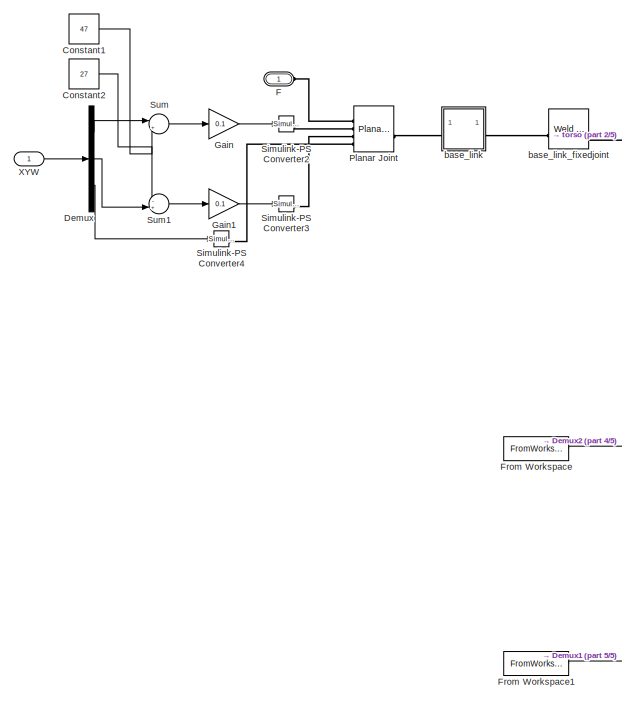
[diagram: Blue3 - part 1/5, top left region]
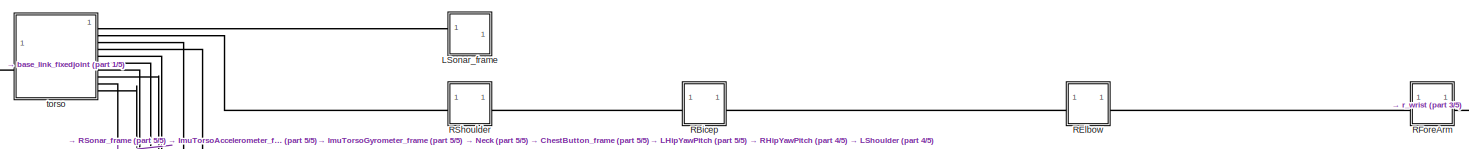
[diagram: Blue3 - part 2/5, top center region]
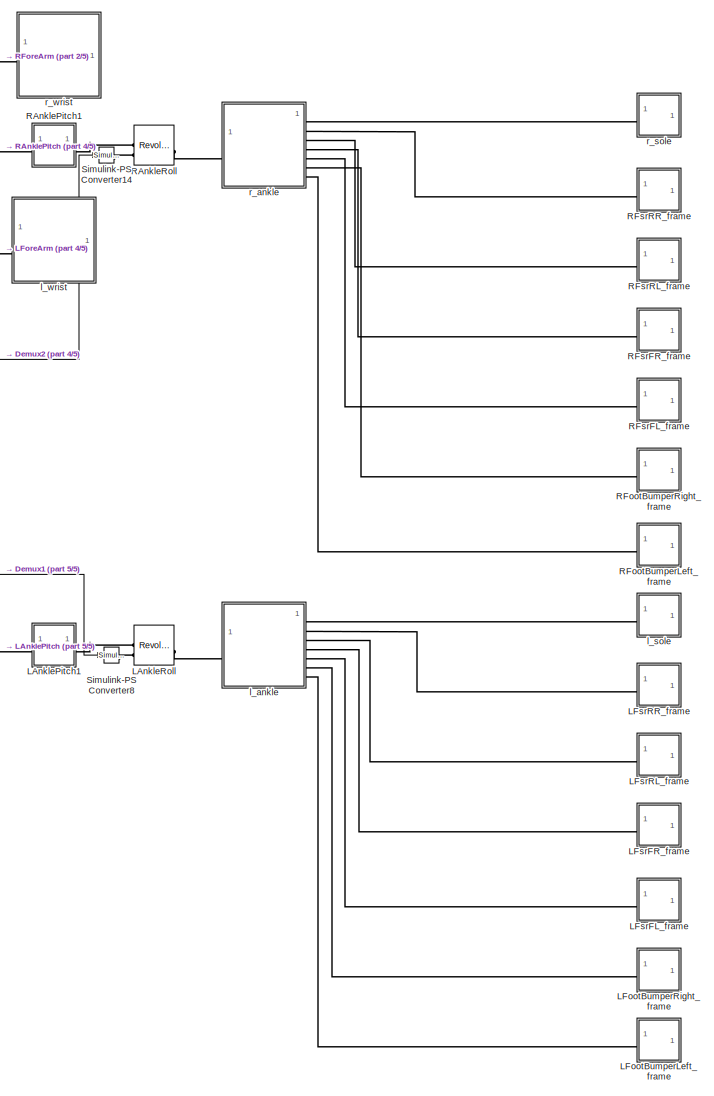
[diagram: Blue3 - part 3/5, right side, full height]
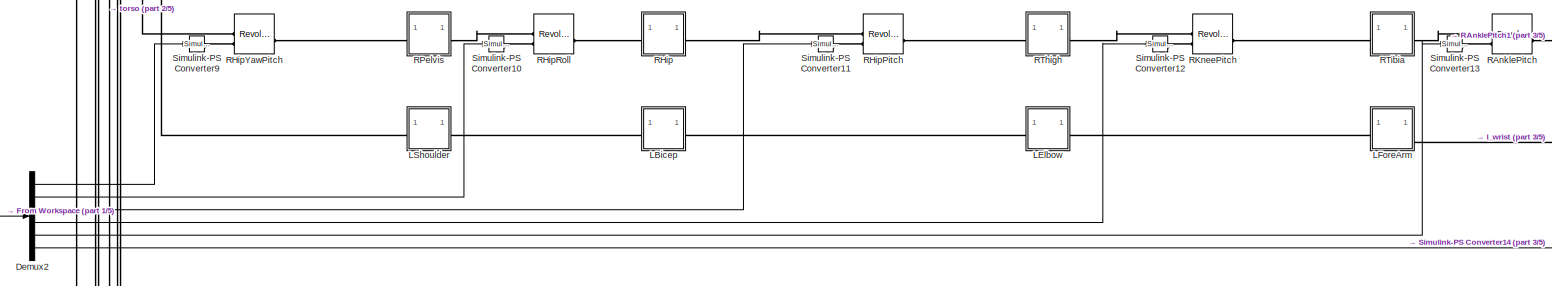
[diagram: Blue3 - part 4/5, top center region]
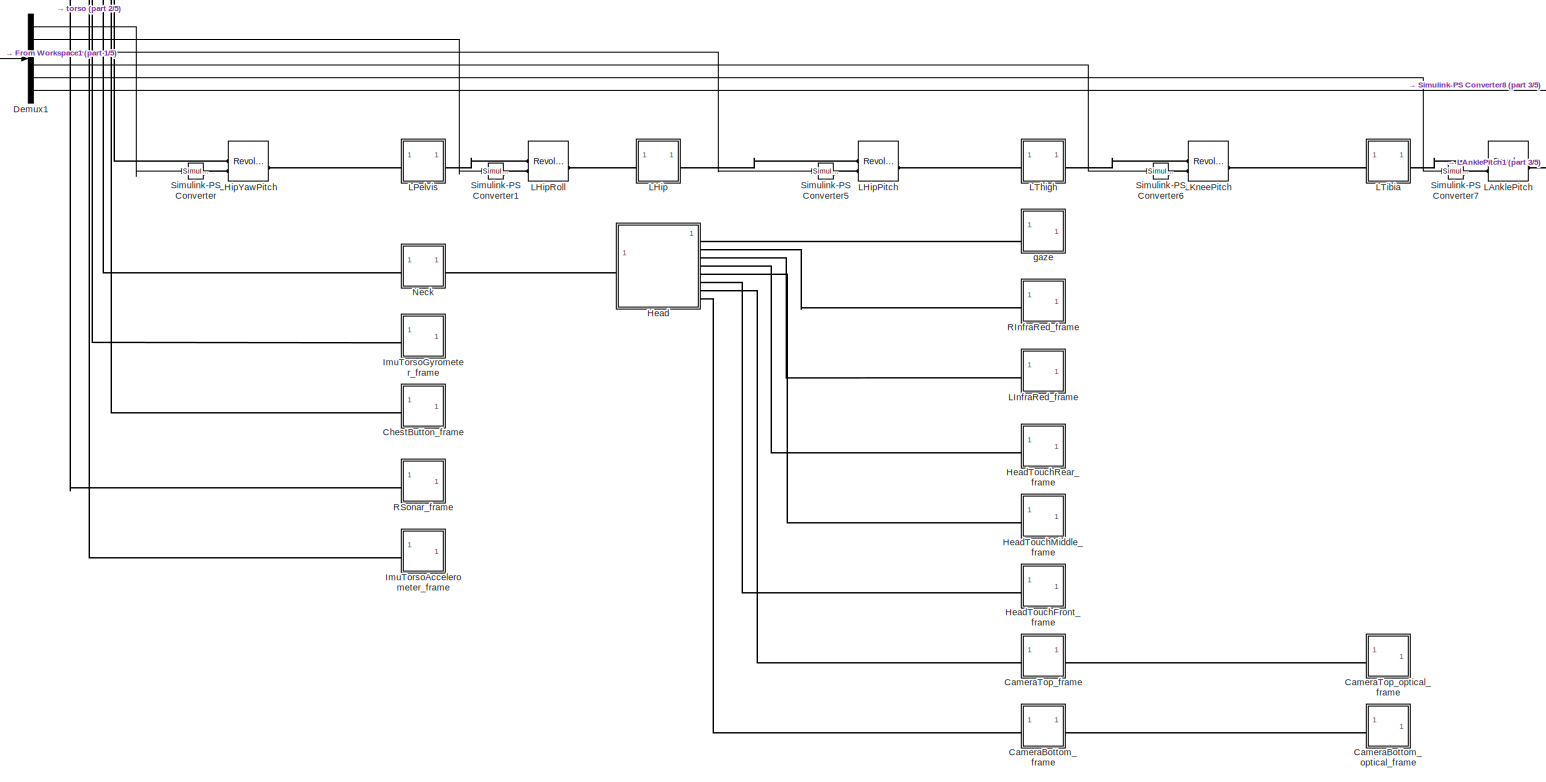
[diagram: Blue3 - part 5/5, bottom center region]
BLOCK [SubSystem] Blue3
BLOCK [SubSystem] Blue3/CameraBottom_frame
BLOCK [Reference] Blue3/CameraBottom_frame/CameraBottom_optical_frame_fixedjoint_OriginTransform  REF=sm_lib/Frames and
Transforms/Rigid
Transform
  SourceBlock = sm_lib/Frames and\nTransforms/Rigid\nTransform
  SourceType = Rigid\nTransform
BLOCK [PMIOPort] Blue3/CameraBottom_frame/F
  Side = Left
BLOCK [PMIOPort] Blue3/CameraBottom_frame/F1
  Port = 2
  Side = Right
BLOCK [Reference] Blue3/CameraBottom_frame/ReferenceFrame  REF=sm_lib/Frames and
Transforms/Reference
Frame
  SourceBlock = sm_lib/Frames and\nTransforms/Reference\nFrame
  SourceType = Reference\nFrame
BLOCK [SubSystem] Blue3/CameraBottom_optical_frame
BLOCK [PMIOPort] Blue3/CameraBottom_optical_frame/F
  Side = Left
BLOCK [Reference] Blue3/CameraBottom_optical_frame/ReferenceFrame  REF=sm_lib/Frames and
Transforms/Reference
Frame
  SourceBlock = sm_lib/Frames and\nTransforms/Reference\nFrame
  SourceType = Reference\nFrame
BLOCK [SubSystem] Blue3/CameraTop_frame
BLOCK [Reference] Blue3/CameraTop_frame/CameraTop_optical_frame_fixedjoint_OriginTransform  REF=sm_lib/Frames and
Transforms/Rigid
Transform
  SourceBlock = sm_lib/Frames and\nTransforms/Rigid\nTransform
  SourceType = Rigid\nTransform
BLOCK [PMIOPort] Blue3/CameraTop_frame/F
  Side = Left
BLOCK [PMIOPort] Blue3/CameraTop_frame/F1
  Port = 2
  Side = Right
BLOCK [Reference] Blue3/CameraTop_frame/ReferenceFrame  REF=sm_lib/Frames and
Transforms/Reference
Frame
  SourceBlock = sm_lib/Frames and\nTransforms/Reference\nFrame
  SourceType = Reference\nFrame
BLOCK [SubSystem] Blue3/CameraTop_optical_frame
BLOCK [PMIOPort] Blue3/CameraTop_optical_frame/F
  Side = Left
BLOCK [Reference] Blue3/CameraTop_optical_frame/ReferenceFrame  REF=sm_lib/Frames and
Transforms/Reference
Frame
  SourceBlock = sm_lib/Frames and\nTransforms/Reference\nFrame
  SourceType = Reference\nFrame
BLOCK [SubSystem] Blue3/ChestButton_frame
BLOCK [PMIOPort] Blue3/ChestButton_frame/F
  Side = Left
BLOCK [Reference] Blue3/ChestButton_frame/ReferenceFrame  REF=sm_lib/Frames and
Transforms/Reference
Frame
  SourceBlock = sm_lib/Frames and\nTransforms/Reference\nFrame
  SourceType = Reference\nFrame
BLOCK [Constant] Blue3/Constant1
  Value = 47
BLOCK [Constant] Blue3/Constant2
  Value = 27
BLOCK [Demux] Blue3/Demux
  Outputs = 3
BLOCK [Demux] Blue3/Demux1
  Outputs = 6
BLOCK [Demux] Blue3/Demux2
  Outputs = 6
BLOCK [PMIOPort] Blue3/F
  Side = Left
BLOCK [FromWorkspace] Blue3/From Workspace
  Interpolate = off
  OutputAfterFinalValue = Cyclic repetition
  SampleTime = 0.01
  VariableName = jAngsR
BLOCK [FromWorkspace] Blue3/From Workspace1
  Interpolate = off
  OutputAfterFinalValue = Cyclic repetition
  SampleTime = 0.01
  VariableName = jAngsL
BLOCK [Gain] Blue3/Gain
  Gain = 0.1
BLOCK [Gain] Blue3/Gain1
  Gain = 0.1
BLOCK [SubSystem] Blue3/Head
BLOCK [Reference] Blue3/Head/CameraBottom_sensor_fixedjoint_OriginTransform  REF=sm_lib/Frames and
Transforms/Rigid
Transform
  SourceBlock = sm_lib/Frames and\nTransforms/Rigid\nTransform
  SourceType = Rigid\nTransform
BLOCK [Reference] Blue3/Head/CameraTop_sensor_fixedjoint_OriginTransform  REF=sm_lib/Frames and
Transforms/Rigid
Transform
  SourceBlock = sm_lib/Frames and\nTransforms/Rigid\nTransform
  SourceType = Rigid\nTransform
BLOCK [PMIOPort] Blue3/Head/F
  Side = Left
BLOCK [PMIOPort] Blue3/Head/F1
  Port = 9
  Side = Right
BLOCK [PMIOPort] Blue3/Head/F2
  Port = 8
  Side = Right
BLOCK [PMIOPort] Blue3/Head/F3
  Port = 7
  Side = Right
BLOCK [PMIOPort] Blue3/Head/F4
  Port = 6
  Side = Right
BLOCK [PMIOPort] Blue3/Head/F5
  Port = 5
  Side = Right
BLOCK [PMIOPort] Blue3/Head/F6
  Port = 4
  Side = Right
BLOCK [PMIOPort] Blue3/Head/F7
  Port = 3
  Side = Right
BLOCK [PMIOPort] Blue3/Head/F8
  Port = 2
  Side = Right
BLOCK [Reference] Blue3/Head/HeadPitch_AxisInvTransform  REF=sm_lib/Frames and
Transforms/Rigid
Transform
  SourceBlock = sm_lib/Frames and\nTransforms/Rigid\nTransform
  SourceType = Rigid\nTransform
BLOCK [Reference] Blue3/Head/Head_Touch_Front_sensor_fixedjoint_OriginTransform  REF=sm_lib/Frames and
Transforms/Rigid
Transform
  SourceBlock = sm_lib/Frames and\nTransforms/Rigid\nTransform
  SourceType = Rigid\nTransform
BLOCK [Reference] Blue3/Head/Head_Touch_Middle_sensor_fixedjoint_OriginTransform  REF=sm_lib/Frames and
Transforms/Rigid
Transform
  SourceBlock = sm_lib/Frames and\nTransforms/Rigid\nTransform
  SourceType = Rigid\nTransform
BLOCK [Reference] Blue3/Head/Head_Touch_Rear_sensor_fixedjoint_OriginTransform  REF=sm_lib/Frames and
Transforms/Rigid
Transform
  SourceBlock = sm_lib/Frames and\nTransforms/Rigid\nTransform
  SourceType = Rigid\nTransform
BLOCK [Reference] Blue3/Head/Inertia  REF=sm_lib/Body Elements/Inertia
  SourceBlock = sm_lib/Body Elements/Inertia
  SourceType = Inertia
BLOCK [Reference] Blue3/Head/InertiaOriginTransform  REF=sm_lib/Frames and
Transforms/Rigid
Transform
  SourceBlock = sm_lib/Frames and\nTransforms/Rigid\nTransform
  SourceType = Rigid\nTransform
BLOCK [Reference] Blue3/Head/InfraredL_sensor_fixedjoint_OriginTransform  REF=sm_lib/Frames and
Transforms/Rigid
Transform
  SourceBlock = sm_lib/Frames and\nTransforms/Rigid\nTransform
  SourceType = Rigid\nTransform
BLOCK [Reference] Blue3/Head/InfraredR_sensor_fixedjoint_OriginTransform  REF=sm_lib/Frames and
Transforms/Rigid
Transform
  SourceBlock = sm_lib/Frames and\nTransforms/Rigid\nTransform
  SourceType = Rigid\nTransform
BLOCK [Reference] Blue3/Head/ReferenceFrame  REF=sm_lib/Frames and
Transforms/Reference
Frame
  SourceBlock = sm_lib/Frames and\nTransforms/Reference\nFrame
  SourceType = Reference\nFrame
BLOCK [Reference] Blue3/Head/Visual  REF=sm_lib/Body Elements/File Solid
  NameLocation = top
  SourceBlock = sm_lib/Body Elements/File Solid
  SourceType = File Solid
BLOCK [Reference] Blue3/Head/VisualOriginTransform  REF=sm_lib/Frames and
Transforms/Rigid
Transform
  SourceBlock = sm_lib/Frames and\nTransforms/Rigid\nTransform
  SourceType = Rigid\nTransform
BLOCK [Reference] Blue3/Head/gaze_joint_OriginTransform  REF=sm_lib/Frames and
Transforms/Rigid
Transform
  SourceBlock = sm_lib/Frames and\nTransforms/Rigid\nTransform
  SourceType = Rigid\nTransform
BLOCK [SubSystem] Blue3/HeadTouchFront_frame
BLOCK [PMIOPort] Blue3/HeadTouchFront_frame/F
  Side = Left
BLOCK [Reference] Blue3/HeadTouchFront_frame/ReferenceFrame  REF=sm_lib/Frames and
Transforms/Reference
Frame
  SourceBlock = sm_lib/Frames and\nTransforms/Reference\nFrame
  SourceType = Reference\nFrame
BLOCK [SubSystem] Blue3/HeadTouchMiddle_frame
BLOCK [PMIOPort] Blue3/HeadTouchMiddle_frame/F
  Side = Left
BLOCK [Reference] Blue3/HeadTouchMiddle_frame/ReferenceFrame  REF=sm_lib/Frames and
Transforms/Reference
Frame
  SourceBlock = sm_lib/Frames and\nTransforms/Reference\nFrame
  SourceType = Reference\nFrame
BLOCK [SubSystem] Blue3/HeadTouchRear_frame
BLOCK [PMIOPort] Blue3/HeadTouchRear_frame/F
  Side = Left
BLOCK [Reference] Blue3/HeadTouchRear_frame/ReferenceFrame  REF=sm_lib/Frames and
Transforms/Reference
Frame
  SourceBlock = sm_lib/Frames and\nTransforms/Reference\nFrame
  SourceType = Reference\nFrame
BLOCK [SubSystem] Blue3/ImuTorsoAccelerometer_frame
BLOCK [PMIOPort] Blue3/ImuTorsoAccelerometer_frame/F
  Side = Left
BLOCK [Reference] Blue3/ImuTorsoAccelerometer_frame/ReferenceFrame  REF=sm_lib/Frames and
Transforms/Reference
Frame
  SourceBlock = sm_lib/Frames and\nTransforms/Reference\nFrame
  SourceType = Reference\nFrame
BLOCK [SubSystem] Blue3/ImuTorsoGyrometer_frame
BLOCK [PMIOPort] Blue3/ImuTorsoGyrometer_frame/F
  Side = Left
BLOCK [Reference] Blue3/ImuTorsoGyrometer_frame/ReferenceFrame  REF=sm_lib/Frames and
Transforms/Reference
Frame
  SourceBlock = sm_lib/Frames and\nTransforms/Reference\nFrame
  SourceType = Reference\nFrame
BLOCK [Reference] Blue3/LAnklePitch  REF=sm_lib/Joints/Revolute Joint
  SourceBlock = sm_lib/Joints/Revolute Joint
  SourceType = Revolute Joint
BLOCK [SubSystem] Blue3/LAnklePitch1
BLOCK [PMIOPort] Blue3/LAnklePitch1/F
  Side = Left
BLOCK [PMIOPort] Blue3/LAnklePitch1/F1
  Port = 2
  Side = Right
BLOCK [Reference] Blue3/LAnklePitch1/Inertia  REF=sm_lib/Body Elements/Inertia
  SourceBlock = sm_lib/Body Elements/Inertia
  SourceType = Inertia
BLOCK [Reference] Blue3/LAnklePitch1/InertiaOriginTransform  REF=sm_lib/Frames and
Transforms/Rigid
Transform
  SourceBlock = sm_lib/Frames and\nTransforms/Rigid\nTransform
  SourceType = Rigid\nTransform
BLOCK [Reference] Blue3/LAnklePitch1/LAnklePitch_AxisInvTransform  REF=sm_lib/Frames and
Transforms/Rigid
Transform
  SourceBlock = sm_lib/Frames and\nTransforms/Rigid\nTransform
  SourceType = Rigid\nTransform
BLOCK [Reference] Blue3/LAnklePitch1/LAnkleRoll_AxisTransform  REF=sm_lib/Frames and
Transforms/Rigid
Transform
  SourceBlock = sm_lib/Frames and\nTransforms/Rigid\nTransform
  SourceType = Rigid\nTransform
BLOCK [Reference] Blue3/LAnklePitch1/LAnkleRoll_OriginTransform  REF=sm_lib/Frames and
Transforms/Rigid
Transform
  SourceBlock = sm_lib/Frames and\nTransforms/Rigid\nTransform
  SourceType = Rigid\nTransform
BLOCK [Reference] Blue3/LAnklePitch1/ReferenceFrame  REF=sm_lib/Frames and
Transforms/Reference
Frame
  SourceBlock = sm_lib/Frames and\nTransforms/Reference\nFrame
  SourceType = Reference\nFrame
BLOCK [Reference] Blue3/LAnklePitch1/Visual  REF=sm_lib/Body Elements/File Solid
  SourceBlock = sm_lib/Body Elements/File Solid
  SourceType = File Solid
BLOCK [Reference] Blue3/LAnklePitch1/VisualOriginTransform  REF=sm_lib/Frames and
Transforms/Rigid
Transform
  SourceBlock = sm_lib/Frames and\nTransforms/Rigid\nTransform
  SourceType = Rigid\nTransform
BLOCK [Reference] Blue3/LAnkleRoll  REF=sm_lib/Joints/Revolute Joint
  SourceBlock = sm_lib/Joints/Revolute Joint
  SourceType = Revolute Joint
BLOCK [SubSystem] Blue3/LBicep
BLOCK [PMIOPort] Blue3/LBicep/F
  Side = Left
BLOCK [PMIOPort] Blue3/LBicep/F1
  Port = 2
  Side = Right
BLOCK [Reference] Blue3/LBicep/Inertia  REF=sm_lib/Body Elements/Inertia
  SourceBlock = sm_lib/Body Elements/Inertia
  SourceType = Inertia
BLOCK [Reference] Blue3/LBicep/InertiaOriginTransform  REF=sm_lib/Frames and
Transforms/Rigid
Transform
  SourceBlock = sm_lib/Frames and\nTransforms/Rigid\nTransform
  SourceType = Rigid\nTransform
BLOCK [Reference] Blue3/LBicep/LElbowYaw_AxisTransform  REF=sm_lib/Frames and
Transforms/Rigid
Transform
  SourceBlock = sm_lib/Frames and\nTransforms/Rigid\nTransform
  SourceType = Rigid\nTransform
BLOCK [Reference] Blue3/LBicep/LElbowYaw_OriginTransform  REF=sm_lib/Frames and
Transforms/Rigid
Transform
  SourceBlock = sm_lib/Frames and\nTransforms/Rigid\nTransform
  SourceType = Rigid\nTransform
BLOCK [Reference] Blue3/LBicep/LShoulderRoll_AxisInvTransform  REF=sm_lib/Frames and
Transforms/Rigid
Transform
  SourceBlock = sm_lib/Frames and\nTransforms/Rigid\nTransform
  SourceType = Rigid\nTransform
BLOCK [Reference] Blue3/LBicep/ReferenceFrame  REF=sm_lib/Frames and
Transforms/Reference
Frame
  SourceBlock = sm_lib/Frames and\nTransforms/Reference\nFrame
  SourceType = Reference\nFrame
BLOCK [Reference] Blue3/LBicep/Visual  REF=sm_lib/Body Elements/File Solid
  SourceBlock = sm_lib/Body Elements/File Solid
  SourceType = File Solid
BLOCK [Reference] Blue3/LBicep/VisualOriginTransform  REF=sm_lib/Frames and
Transforms/Rigid
Transform
  SourceBlock = sm_lib/Frames and\nTransforms/Rigid\nTransform
  SourceType = Rigid\nTransform
BLOCK [SubSystem] Blue3/LElbow
BLOCK [PMIOPort] Blue3/LElbow/F
  Side = Left
BLOCK [PMIOPort] Blue3/LElbow/F1
  Port = 2
  Side = Right
BLOCK [Reference] Blue3/LElbow/Inertia  REF=sm_lib/Body Elements/Inertia
  SourceBlock = sm_lib/Body Elements/Inertia
  SourceType = Inertia
BLOCK [Reference] Blue3/LElbow/InertiaOriginTransform  REF=sm_lib/Frames and
Transforms/Rigid
Transform
  SourceBlock = sm_lib/Frames and\nTransforms/Rigid\nTransform
  SourceType = Rigid\nTransform
BLOCK [Reference] Blue3/LElbow/LElbowRoll_AxisTransform  REF=sm_lib/Frames and
Transforms/Rigid
Transform
  SourceBlock = sm_lib/Frames and\nTransforms/Rigid\nTransform
  SourceType = Rigid\nTransform
BLOCK [Reference] Blue3/LElbow/LElbowRoll_OriginTransform  REF=sm_lib/Frames and
Transforms/Rigid
Transform
  SourceBlock = sm_lib/Frames and\nTransforms/Rigid\nTransform
  SourceType = Rigid\nTransform
BLOCK [Reference] Blue3/LElbow/LElbowYaw_AxisInvTransform  REF=sm_lib/Frames and
Transforms/Rigid
Transform
  SourceBlock = sm_lib/Frames and\nTransforms/Rigid\nTransform
  SourceType = Rigid\nTransform
BLOCK [Reference] Blue3/LElbow/ReferenceFrame  REF=sm_lib/Frames and
Transforms/Reference
Frame
  SourceBlock = sm_lib/Frames and\nTransforms/Reference\nFrame
  SourceType = Reference\nFrame
BLOCK [SubSystem] Blue3/LFootBumperLeft_frame
BLOCK [PMIOPort] Blue3/LFootBumperLeft_frame/F
  Side = Left
BLOCK [Reference] Blue3/LFootBumperLeft_frame/ReferenceFrame  REF=sm_lib/Frames and
Transforms/Reference
Frame
  SourceBlock = sm_lib/Frames and\nTransforms/Reference\nFrame
  SourceType = Reference\nFrame
BLOCK [SubSystem] Blue3/LFootBumperRight_frame
BLOCK [PMIOPort] Blue3/LFootBumperRight_frame/F
  Side = Left
BLOCK [Reference] Blue3/LFootBumperRight_frame/ReferenceFrame  REF=sm_lib/Frames and
Transforms/Reference
Frame
  SourceBlock = sm_lib/Frames and\nTransforms/Reference\nFrame
  SourceType = Reference\nFrame
BLOCK [SubSystem] Blue3/LForeArm
BLOCK [PMIOPort] Blue3/LForeArm/F
  Side = Left
BLOCK [PMIOPort] Blue3/LForeArm/F1
  Port = 2
  Side = Right
BLOCK [Reference] Blue3/LForeArm/Inertia  REF=sm_lib/Body Elements/Inertia
  SourceBlock = sm_lib/Body Elements/Inertia
  SourceType = Inertia
BLOCK [Reference] Blue3/LForeArm/InertiaOriginTransform  REF=sm_lib/Frames and
Transforms/Rigid
Transform
  SourceBlock = sm_lib/Frames and\nTransforms/Rigid\nTransform
  SourceType = Rigid\nTransform
BLOCK [Reference] Blue3/LForeArm/LElbowRoll_AxisInvTransform  REF=sm_lib/Frames and
Transforms/Rigid
Transform
  SourceBlock = sm_lib/Frames and\nTransforms/Rigid\nTransform
  SourceType = Rigid\nTransform
BLOCK [Reference] Blue3/LForeArm/LWristYaw_AxisTransform  REF=sm_lib/Frames and
Transforms/Rigid
Transform
  SourceBlock = sm_lib/Frames and\nTransforms/Rigid\nTransform
  SourceType = Rigid\nTransform
BLOCK [Reference] Blue3/LForeArm/LWristYaw_OriginTransform  REF=sm_lib/Frames and
Transforms/Rigid
Transform
  SourceBlock = sm_lib/Frames and\nTransforms/Rigid\nTransform
  SourceType = Rigid\nTransform
BLOCK [Reference] Blue3/LForeArm/ReferenceFrame  REF=sm_lib/Frames and
Transforms/Reference
Frame
  SourceBlock = sm_lib/Frames and\nTransforms/Reference\nFrame
  SourceType = Reference\nFrame
BLOCK [Reference] Blue3/LForeArm/Visual  REF=sm_lib/Body Elements/File Solid
  SourceBlock = sm_lib/Body Elements/File Solid
  SourceType = File Solid
BLOCK [Reference] Blue3/LForeArm/VisualOriginTransform  REF=sm_lib/Frames and
Transforms/Rigid
Transform
  SourceBlock = sm_lib/Frames and\nTransforms/Rigid\nTransform
  SourceType = Rigid\nTransform
BLOCK [SubSystem] Blue3/LFsrFL_frame
BLOCK [PMIOPort] Blue3/LFsrFL_frame/F
  Side = Left
BLOCK [Reference] Blue3/LFsrFL_frame/Inertia  REF=sm_lib/Body Elements/Inertia
  SourceBlock = sm_lib/Body Elements/Inertia
  SourceType = Inertia
BLOCK [Reference] Blue3/LFsrFL_frame/InertiaOriginTransform  REF=sm_lib/Frames and
Transforms/Rigid
Transform
  SourceBlock = sm_lib/Frames and\nTransforms/Rigid\nTransform
  SourceType = Rigid\nTransform
BLOCK [Reference] Blue3/LFsrFL_frame/ReferenceFrame  REF=sm_lib/Frames and
Transforms/Reference
Frame
  SourceBlock = sm_lib/Frames and\nTransforms/Reference\nFrame
  SourceType = Reference\nFrame
BLOCK [SubSystem] Blue3/LFsrFR_frame
BLOCK [PMIOPort] Blue3/LFsrFR_frame/F
  Side = Left
BLOCK [Reference] Blue3/LFsrFR_frame/Inertia  REF=sm_lib/Body Elements/Inertia
  SourceBlock = sm_lib/Body Elements/Inertia
  SourceType = Inertia
BLOCK [Reference] Blue3/LFsrFR_frame/InertiaOriginTransform  REF=sm_lib/Frames and
Transforms/Rigid
Transform
  SourceBlock = sm_lib/Frames and\nTransforms/Rigid\nTransform
  SourceType = Rigid\nTransform
BLOCK [Reference] Blue3/LFsrFR_frame/ReferenceFrame  REF=sm_lib/Frames and
Transforms/Reference
Frame
  SourceBlock = sm_lib/Frames and\nTransforms/Reference\nFrame
  SourceType = Reference\nFrame
BLOCK [SubSystem] Blue3/LFsrRL_frame
BLOCK [PMIOPort] Blue3/LFsrRL_frame/F
  Side = Left
BLOCK [Reference] Blue3/LFsrRL_frame/Inertia  REF=sm_lib/Body Elements/Inertia
  SourceBlock = sm_lib/Body Elements/Inertia
  SourceType = Inertia
BLOCK [Reference] Blue3/LFsrRL_frame/InertiaOriginTransform  REF=sm_lib/Frames and
Transforms/Rigid
Transform
  SourceBlock = sm_lib/Frames and\nTransforms/Rigid\nTransform
  SourceType = Rigid\nTransform
BLOCK [Reference] Blue3/LFsrRL_frame/ReferenceFrame  REF=sm_lib/Frames and
Transforms/Reference
Frame
  SourceBlock = sm_lib/Frames and\nTransforms/Reference\nFrame
  SourceType = Reference\nFrame
BLOCK [SubSystem] Blue3/LFsrRR_frame
BLOCK [PMIOPort] Blue3/LFsrRR_frame/F
  Side = Left
BLOCK [Reference] Blue3/LFsrRR_frame/Inertia  REF=sm_lib/Body Elements/Inertia
  SourceBlock = sm_lib/Body Elements/Inertia
  SourceType = Inertia
BLOCK [Reference] Blue3/LFsrRR_frame/InertiaOriginTransform  REF=sm_lib/Frames and
Transforms/Rigid
Transform
  SourceBlock = sm_lib/Frames and\nTransforms/Rigid\nTransform
  SourceType = Rigid\nTransform
BLOCK [Reference] Blue3/LFsrRR_frame/ReferenceFrame  REF=sm_lib/Frames and
Transforms/Reference
Frame
  SourceBlock = sm_lib/Frames and\nTransforms/Reference\nFrame
  SourceType = Reference\nFrame
BLOCK [SubSystem] Blue3/LHip
BLOCK [PMIOPort] Blue3/LHip/F
  Side = Left
BLOCK [PMIOPort] Blue3/LHip/F1
  Port = 2
  Side = Right
BLOCK [Reference] Blue3/LHip/Inertia  REF=sm_lib/Body Elements/Inertia
  SourceBlock = sm_lib/Body Elements/Inertia
  SourceType = Inertia
BLOCK [Reference] Blue3/LHip/InertiaOriginTransform  REF=sm_lib/Frames and
Transforms/Rigid
Transform
  SourceBlock = sm_lib/Frames and\nTransforms/Rigid\nTransform
  SourceType = Rigid\nTransform
BLOCK [Reference] Blue3/LHip/LHipPitch_AxisTransform  REF=sm_lib/Frames and
Transforms/Rigid
Transform
  SourceBlock = sm_lib/Frames and\nTransforms/Rigid\nTransform
  SourceType = Rigid\nTransform
BLOCK [Reference] Blue3/LHip/LHipPitch_OriginTransform  REF=sm_lib/Frames and
Transforms/Rigid
Transform
  SourceBlock = sm_lib/Frames and\nTransforms/Rigid\nTransform
  SourceType = Rigid\nTransform
BLOCK [Reference] Blue3/LHip/LHipRoll_AxisInvTransform  REF=sm_lib/Frames and
Transforms/Rigid
Transform
  SourceBlock = sm_lib/Frames and\nTransforms/Rigid\nTransform
  SourceType = Rigid\nTransform
BLOCK [Reference] Blue3/LHip/ReferenceFrame  REF=sm_lib/Frames and
Transforms/Reference
Frame
  SourceBlock = sm_lib/Frames and\nTransforms/Reference\nFrame
  SourceType = Reference\nFrame
BLOCK [Reference] Blue3/LHip/Visual  REF=sm_lib/Body Elements/File Solid
  SourceBlock = sm_lib/Body Elements/File Solid
  SourceType = File Solid
BLOCK [Reference] Blue3/LHip/VisualOriginTransform  REF=sm_lib/Frames and
Transforms/Rigid
Transform
  SourceBlock = sm_lib/Frames and\nTransforms/Rigid\nTransform
  SourceType = Rigid\nTransform
BLOCK [Reference] Blue3/LHipPitch  REF=sm_lib/Joints/Revolute Joint
  SourceBlock = sm_lib/Joints/Revolute Joint
  SourceType = Revolute Joint
BLOCK [Reference] Blue3/LHipRoll  REF=sm_lib/Joints/Revolute Joint
  SourceBlock = sm_lib/Joints/Revolute Joint
  SourceType = Revolute Joint
BLOCK [Reference] Blue3/LHipYawPitch  REF=sm_lib/Joints/Revolute Joint
  SourceBlock = sm_lib/Joints/Revolute Joint
  SourceType = Revolute Joint
BLOCK [SubSystem] Blue3/LInfraRed_frame
BLOCK [PMIOPort] Blue3/LInfraRed_frame/F
  Side = Left
BLOCK [Reference] Blue3/LInfraRed_frame/ReferenceFrame  REF=sm_lib/Frames and
Transforms/Reference
Frame
  SourceBlock = sm_lib/Frames and\nTransforms/Reference\nFrame
  SourceType = Reference\nFrame
BLOCK [Reference] Blue3/LKneePitch  REF=sm_lib/Joints/Revolute Joint
  SourceBlock = sm_lib/Joints/Revolute Joint
  SourceType = Revolute Joint
BLOCK [SubSystem] Blue3/LPelvis
BLOCK [PMIOPort] Blue3/LPelvis/F
  Side = Left
BLOCK [PMIOPort] Blue3/LPelvis/F1
  Port = 2
  Side = Right
BLOCK [Reference] Blue3/LPelvis/Inertia  REF=sm_lib/Body Elements/Inertia
  SourceBlock = sm_lib/Body Elements/Inertia
  SourceType = Inertia
BLOCK [Reference] Blue3/LPelvis/InertiaOriginTransform  REF=sm_lib/Frames and
Transforms/Rigid
Transform
  SourceBlock = sm_lib/Frames and\nTransforms/Rigid\nTransform
  SourceType = Rigid\nTransform
BLOCK [Reference] Blue3/LPelvis/LHipRoll_AxisTransform  REF=sm_lib/Frames and
Transforms/Rigid
Transform
  SourceBlock = sm_lib/Frames and\nTransforms/Rigid\nTransform
  SourceType = Rigid\nTransform
BLOCK [Reference] Blue3/LPelvis/LHipRoll_OriginTransform  REF=sm_lib/Frames and
Transforms/Rigid
Transform
  SourceBlock = sm_lib/Frames and\nTransforms/Rigid\nTransform
  SourceType = Rigid\nTransform
BLOCK [Reference] Blue3/LPelvis/LHipYawPitch_AxisInvTransform  REF=sm_lib/Frames and
Transforms/Rigid
Transform
  SourceBlock = sm_lib/Frames and\nTransforms/Rigid\nTransform
  SourceType = Rigid\nTransform
BLOCK [Reference] Blue3/LPelvis/ReferenceFrame  REF=sm_lib/Frames and
Transforms/Reference
Frame
  SourceBlock = sm_lib/Frames and\nTransforms/Reference\nFrame
  SourceType = Reference\nFrame
BLOCK [Reference] Blue3/LPelvis/Visual  REF=sm_lib/Body Elements/File Solid
  SourceBlock = sm_lib/Body Elements/File Solid
  SourceType = File Solid
BLOCK [Reference] Blue3/LPelvis/VisualOriginTransform  REF=sm_lib/Frames and
Transforms/Rigid
Transform
  SourceBlock = sm_lib/Frames and\nTransforms/Rigid\nTransform
  SourceType = Rigid\nTransform
BLOCK [SubSystem] Blue3/LShoulder
BLOCK [PMIOPort] Blue3/LShoulder/F
  Side = Left
BLOCK [PMIOPort] Blue3/LShoulder/F1
  Port = 2
  Side = Right
BLOCK [Reference] Blue3/LShoulder/Inertia  REF=sm_lib/Body Elements/Inertia
  SourceBlock = sm_lib/Body Elements/Inertia
  SourceType = Inertia
BLOCK [Reference] Blue3/LShoulder/InertiaOriginTransform  REF=sm_lib/Frames and
Transforms/Rigid
Transform
  SourceBlock = sm_lib/Frames and\nTransforms/Rigid\nTransform
  SourceType = Rigid\nTransform
BLOCK [Reference] Blue3/LShoulder/LShoulderPitch_AxisInvTransform  REF=sm_lib/Frames and
Transforms/Rigid
Transform
  SourceBlock = sm_lib/Frames and\nTransforms/Rigid\nTransform
  SourceType = Rigid\nTransform
BLOCK [Reference] Blue3/LShoulder/LShoulderRoll_AxisTransform  REF=sm_lib/Frames and
Transforms/Rigid
Transform
  SourceBlock = sm_lib/Frames and\nTransforms/Rigid\nTransform
  SourceType = Rigid\nTransform
BLOCK [Reference] Blue3/LShoulder/LShoulderRoll_OriginTransform  REF=sm_lib/Frames and
Transforms/Rigid
Transform
  SourceBlock = sm_lib/Frames and\nTransforms/Rigid\nTransform
  SourceType = Rigid\nTransform
BLOCK [Reference] Blue3/LShoulder/ReferenceFrame  REF=sm_lib/Frames and
Transforms/Reference
Frame
  SourceBlock = sm_lib/Frames and\nTransforms/Reference\nFrame
  SourceType = Reference\nFrame
BLOCK [Reference] Blue3/LShoulder/Visual  REF=sm_lib/Body Elements/File Solid
  SourceBlock = sm_lib/Body Elements/File Solid
  SourceType = File Solid
BLOCK [Reference] Blue3/LShoulder/VisualOriginTransform  REF=sm_lib/Frames and
Transforms/Rigid
Transform
  SourceBlock = sm_lib/Frames and\nTransforms/Rigid\nTransform
  SourceType = Rigid\nTransform
BLOCK [SubSystem] Blue3/LSonar_frame
BLOCK [PMIOPort] Blue3/LSonar_frame/F
  Side = Left
BLOCK [Reference] Blue3/LSonar_frame/ReferenceFrame  REF=sm_lib/Frames and
Transforms/Reference
Frame
  SourceBlock = sm_lib/Frames and\nTransforms/Reference\nFrame
  SourceType = Reference\nFrame
BLOCK [SubSystem] Blue3/LThigh
BLOCK [PMIOPort] Blue3/LThigh/F
  Side = Left
BLOCK [PMIOPort] Blue3/LThigh/F1
  Port = 2
  Side = Right
BLOCK [Reference] Blue3/LThigh/Inertia  REF=sm_lib/Body Elements/Inertia
  SourceBlock = sm_lib/Body Elements/Inertia
  SourceType = Inertia
BLOCK [Reference] Blue3/LThigh/InertiaOriginTransform  REF=sm_lib/Frames and
Transforms/Rigid
Transform
  SourceBlock = sm_lib/Frames and\nTransforms/Rigid\nTransform
  SourceType = Rigid\nTransform
BLOCK [Reference] Blue3/LThigh/LHipPitch_AxisInvTransform  REF=sm_lib/Frames and
Transforms/Rigid
Transform
  SourceBlock = sm_lib/Frames and\nTransforms/Rigid\nTransform
  SourceType = Rigid\nTransform
BLOCK [Reference] Blue3/LThigh/LKneePitch_AxisTransform  REF=sm_lib/Frames and
Transforms/Rigid
Transform
  SourceBlock = sm_lib/Frames and\nTransforms/Rigid\nTransform
  SourceType = Rigid\nTransform
BLOCK [Reference] Blue3/LThigh/LKneePitch_OriginTransform  REF=sm_lib/Frames and
Transforms/Rigid
Transform
  SourceBlock = sm_lib/Frames and\nTransforms/Rigid\nTransform
  SourceType = Rigid\nTransform
BLOCK [Reference] Blue3/LThigh/ReferenceFrame  REF=sm_lib/Frames and
Transforms/Reference
Frame
  SourceBlock = sm_lib/Frames and\nTransforms/Reference\nFrame
  SourceType = Reference\nFrame
BLOCK [Reference] Blue3/LThigh/Visual  REF=sm_lib/Body Elements/File Solid
  SourceBlock = sm_lib/Body Elements/File Solid
  SourceType = File Solid
BLOCK [Reference] Blue3/LThigh/VisualOriginTransform  REF=sm_lib/Frames and
Transforms/Rigid
Transform
  SourceBlock = sm_lib/Frames and\nTransforms/Rigid\nTransform
  SourceType = Rigid\nTransform
BLOCK [SubSystem] Blue3/LTibia
BLOCK [PMIOPort] Blue3/LTibia/F
  Side = Left
BLOCK [PMIOPort] Blue3/LTibia/F1
  Port = 2
  Side = Right
BLOCK [Reference] Blue3/LTibia/Inertia  REF=sm_lib/Body Elements/Inertia
  SourceBlock = sm_lib/Body Elements/Inertia
  SourceType = Inertia
BLOCK [Reference] Blue3/LTibia/InertiaOriginTransform  REF=sm_lib/Frames and
Transforms/Rigid
Transform
  SourceBlock = sm_lib/Frames and\nTransforms/Rigid\nTransform
  SourceType = Rigid\nTransform
BLOCK [Reference] Blue3/LTibia/LAnklePitch_AxisTransform  REF=sm_lib/Frames and
Transforms/Rigid
Transform
  SourceBlock = sm_lib/Frames and\nTransforms/Rigid\nTransform
  SourceType = Rigid\nTransform
BLOCK [Reference] Blue3/LTibia/LAnklePitch_OriginTransform  REF=sm_lib/Frames and
Transforms/Rigid
Transform
  SourceBlock = sm_lib/Frames and\nTransforms/Rigid\nTransform
  SourceType = Rigid\nTransform
BLOCK [Reference] Blue3/LTibia/LKneePitch_AxisInvTransform  REF=sm_lib/Frames and
Transforms/Rigid
Transform
  SourceBlock = sm_lib/Frames and\nTransforms/Rigid\nTransform
  SourceType = Rigid\nTransform
BLOCK [Reference] Blue3/LTibia/ReferenceFrame  REF=sm_lib/Frames and
Transforms/Reference
Frame
  SourceBlock = sm_lib/Frames and\nTransforms/Reference\nFrame
  SourceType = Reference\nFrame
BLOCK [Reference] Blue3/LTibia/Visual  REF=sm_lib/Body Elements/File Solid
  SourceBlock = sm_lib/Body Elements/File Solid
  SourceType = File Solid
BLOCK [Reference] Blue3/LTibia/VisualOriginTransform  REF=sm_lib/Frames and
Transforms/Rigid
Transform
  SourceBlock = sm_lib/Frames and\nTransforms/Rigid\nTransform
  SourceType = Rigid\nTransform
BLOCK [SubSystem] Blue3/Neck
BLOCK [PMIOPort] Blue3/Neck/F
  Side = Left
BLOCK [PMIOPort] Blue3/Neck/F1
  Port = 2
  Side = Right
BLOCK [Reference] Blue3/Neck/HeadPitch_AxisTransform  REF=sm_lib/Frames and
Transforms/Rigid
Transform
  SourceBlock = sm_lib/Frames and\nTransforms/Rigid\nTransform
  SourceType = Rigid\nTransform
BLOCK [Reference] Blue3/Neck/HeadPitch_OriginTransform  REF=sm_lib/Frames and
Transforms/Rigid
Transform
  SourceBlock = sm_lib/Frames and\nTransforms/Rigid\nTransform
  SourceType = Rigid\nTransform
BLOCK [Reference] Blue3/Neck/HeadYaw_AxisInvTransform  REF=sm_lib/Frames and
Transforms/Rigid
Transform
  SourceBlock = sm_lib/Frames and\nTransforms/Rigid\nTransform
  SourceType = Rigid\nTransform
BLOCK [Reference] Blue3/Neck/Inertia  REF=sm_lib/Body Elements/Inertia
  SourceBlock = sm_lib/Body Elements/Inertia
  SourceType = Inertia
BLOCK [Reference] Blue3/Neck/InertiaOriginTransform  REF=sm_lib/Frames and
Transforms/Rigid
Transform
  SourceBlock = sm_lib/Frames and\nTransforms/Rigid\nTransform
  SourceType = Rigid\nTransform
BLOCK [Reference] Blue3/Neck/ReferenceFrame  REF=sm_lib/Frames and
Transforms/Reference
Frame
  SourceBlock = sm_lib/Frames and\nTransforms/Reference\nFrame
  SourceType = Reference\nFrame
BLOCK [Reference] Blue3/Neck/Visual  REF=sm_lib/Body Elements/File Solid
  SourceBlock = sm_lib/Body Elements/File Solid
  SourceType = File Solid
BLOCK [Reference] Blue3/Neck/VisualOriginTransform  REF=sm_lib/Frames and
Transforms/Rigid
Transform
  SourceBlock = sm_lib/Frames and\nTransforms/Rigid\nTransform
  SourceType = Rigid\nTransform
BLOCK [Reference] Blue3/Planar Joint  REF=sm_lib/Joints/Planar Joint
  SourceBlock = sm_lib/Joints/Planar Joint
  SourceType = Planar Joint
BLOCK [Reference] Blue3/RAnklePitch  REF=sm_lib/Joints/Revolute Joint
  SourceBlock = sm_lib/Joints/Revolute Joint
  SourceType = Revolute Joint
BLOCK [SubSystem] Blue3/RAnklePitch1
BLOCK [PMIOPort] Blue3/RAnklePitch1/F
  Side = Left
BLOCK [PMIOPort] Blue3/RAnklePitch1/F1
  Port = 2
  Side = Right
BLOCK [Reference] Blue3/RAnklePitch1/Inertia  REF=sm_lib/Body Elements/Inertia
  SourceBlock = sm_lib/Body Elements/Inertia
  SourceType = Inertia
BLOCK [Reference] Blue3/RAnklePitch1/InertiaOriginTransform  REF=sm_lib/Frames and
Transforms/Rigid
Transform
  SourceBlock = sm_lib/Frames and\nTransforms/Rigid\nTransform
  SourceType = Rigid\nTransform
BLOCK [Reference] Blue3/RAnklePitch1/RAnklePitch_AxisInvTransform  REF=sm_lib/Frames and
Transforms/Rigid
Transform
  SourceBlock = sm_lib/Frames and\nTransforms/Rigid\nTransform
  SourceType = Rigid\nTransform
BLOCK [Reference] Blue3/RAnklePitch1/RAnkleRoll_AxisTransform  REF=sm_lib/Frames and
Transforms/Rigid
Transform
  SourceBlock = sm_lib/Frames and\nTransforms/Rigid\nTransform
  SourceType = Rigid\nTransform
BLOCK [Reference] Blue3/RAnklePitch1/RAnkleRoll_OriginTransform  REF=sm_lib/Frames and
Transforms/Rigid
Transform
  SourceBlock = sm_lib/Frames and\nTransforms/Rigid\nTransform
  SourceType = Rigid\nTransform
BLOCK [Reference] Blue3/RAnklePitch1/ReferenceFrame  REF=sm_lib/Frames and
Transforms/Reference
Frame
  SourceBlock = sm_lib/Frames and\nTransforms/Reference\nFrame
  SourceType = Reference\nFrame
BLOCK [Reference] Blue3/RAnklePitch1/Visual  REF=sm_lib/Body Elements/File Solid
  SourceBlock = sm_lib/Body Elements/File Solid
  SourceType = File Solid
BLOCK [Reference] Blue3/RAnklePitch1/VisualOriginTransform  REF=sm_lib/Frames and
Transforms/Rigid
Transform
  SourceBlock = sm_lib/Frames and\nTransforms/Rigid\nTransform
  SourceType = Rigid\nTransform
BLOCK [Reference] Blue3/RAnkleRoll  REF=sm_lib/Joints/Revolute Joint
  SourceBlock = sm_lib/Joints/Revolute Joint
  SourceType = Revolute Joint
BLOCK [SubSystem] Blue3/RBicep
BLOCK [PMIOPort] Blue3/RBicep/F
  Side = Left
BLOCK [PMIOPort] Blue3/RBicep/F1
  Port = 2
  Side = Right
BLOCK [Reference] Blue3/RBicep/Inertia  REF=sm_lib/Body Elements/Inertia
  SourceBlock = sm_lib/Body Elements/Inertia
  SourceType = Inertia
BLOCK [Reference] Blue3/RBicep/InertiaOriginTransform  REF=sm_lib/Frames and
Transforms/Rigid
Transform
  SourceBlock = sm_lib/Frames and\nTransforms/Rigid\nTransform
  SourceType = Rigid\nTransform
BLOCK [Reference] Blue3/RBicep/RElbowYaw_AxisTransform  REF=sm_lib/Frames and
Transforms/Rigid
Transform
  SourceBlock = sm_lib/Frames and\nTransforms/Rigid\nTransform
  SourceType = Rigid\nTransform
BLOCK [Reference] Blue3/RBicep/RElbowYaw_OriginTransform  REF=sm_lib/Frames and
Transforms/Rigid
Transform
  SourceBlock = sm_lib/Frames and\nTransforms/Rigid\nTransform
  SourceType = Rigid\nTransform
BLOCK [Reference] Blue3/RBicep/RShoulderRoll_AxisInvTransform  REF=sm_lib/Frames and
Transforms/Rigid
Transform
  SourceBlock = sm_lib/Frames and\nTransforms/Rigid\nTransform
  SourceType = Rigid\nTransform
BLOCK [Reference] Blue3/RBicep/ReferenceFrame  REF=sm_lib/Frames and
Transforms/Reference
Frame
  SourceBlock = sm_lib/Frames and\nTransforms/Reference\nFrame
  SourceType = Reference\nFrame
BLOCK [Reference] Blue3/RBicep/Visual  REF=sm_lib/Body Elements/File Solid
  SourceBlock = sm_lib/Body Elements/File Solid
  SourceType = File Solid
BLOCK [Reference] Blue3/RBicep/VisualOriginTransform  REF=sm_lib/Frames and
Transforms/Rigid
Transform
  SourceBlock = sm_lib/Frames and\nTransforms/Rigid\nTransform
  SourceType = Rigid\nTransform
BLOCK [SubSystem] Blue3/RElbow
BLOCK [PMIOPort] Blue3/RElbow/F
  Side = Left
BLOCK [PMIOPort] Blue3/RElbow/F1
  Port = 2
  Side = Right
BLOCK [Reference] Blue3/RElbow/Inertia  REF=sm_lib/Body Elements/Inertia
  SourceBlock = sm_lib/Body Elements/Inertia
  SourceType = Inertia
BLOCK [Reference] Blue3/RElbow/InertiaOriginTransform  REF=sm_lib/Frames and
Transforms/Rigid
Transform
  SourceBlock = sm_lib/Frames and\nTransforms/Rigid\nTransform
  SourceType = Rigid\nTransform
BLOCK [Reference] Blue3/RElbow/RElbowRoll_AxisTransform  REF=sm_lib/Frames and
Transforms/Rigid
Transform
  SourceBlock = sm_lib/Frames and\nTransforms/Rigid\nTransform
  SourceType = Rigid\nTransform
BLOCK [Reference] Blue3/RElbow/RElbowRoll_OriginTransform  REF=sm_lib/Frames and
Transforms/Rigid
Transform
  SourceBlock = sm_lib/Frames and\nTransforms/Rigid\nTransform
  SourceType = Rigid\nTransform
BLOCK [Reference] Blue3/RElbow/RElbowYaw_AxisInvTransform  REF=sm_lib/Frames and
Transforms/Rigid
Transform
  SourceBlock = sm_lib/Frames and\nTransforms/Rigid\nTransform
  SourceType = Rigid\nTransform
BLOCK [Reference] Blue3/RElbow/ReferenceFrame  REF=sm_lib/Frames and
Transforms/Reference
Frame
  SourceBlock = sm_lib/Frames and\nTransforms/Reference\nFrame
  SourceType = Reference\nFrame
BLOCK [SubSystem] Blue3/RFootBumperLeft_frame
BLOCK [PMIOPort] Blue3/RFootBumperLeft_frame/F
  Side = Left
BLOCK [Reference] Blue3/RFootBumperLeft_frame/ReferenceFrame  REF=sm_lib/Frames and
Transforms/Reference
Frame
  SourceBlock = sm_lib/Frames and\nTransforms/Reference\nFrame
  SourceType = Reference\nFrame
BLOCK [SubSystem] Blue3/RFootBumperRight_frame
BLOCK [PMIOPort] Blue3/RFootBumperRight_frame/F
  Side = Left
BLOCK [Reference] Blue3/RFootBumperRight_frame/ReferenceFrame  REF=sm_lib/Frames and
Transforms/Reference
Frame
  SourceBlock = sm_lib/Frames and\nTransforms/Reference\nFrame
  SourceType = Reference\nFrame
BLOCK [SubSystem] Blue3/RForeArm
BLOCK [PMIOPort] Blue3/RForeArm/F
  Side = Left
BLOCK [PMIOPort] Blue3/RForeArm/F1
  Port = 2
  Side = Right
BLOCK [Reference] Blue3/RForeArm/Inertia  REF=sm_lib/Body Elements/Inertia
  SourceBlock = sm_lib/Body Elements/Inertia
  SourceType = Inertia
BLOCK [Reference] Blue3/RForeArm/InertiaOriginTransform  REF=sm_lib/Frames and
Transforms/Rigid
Transform
  SourceBlock = sm_lib/Frames and\nTransforms/Rigid\nTransform
  SourceType = Rigid\nTransform
BLOCK [Reference] Blue3/RForeArm/RElbowRoll_AxisInvTransform  REF=sm_lib/Frames and
Transforms/Rigid
Transform
  SourceBlock = sm_lib/Frames and\nTransforms/Rigid\nTransform
  SourceType = Rigid\nTransform
BLOCK [Reference] Blue3/RForeArm/RWristYaw_AxisTransform  REF=sm_lib/Frames and
Transforms/Rigid
Transform
  SourceBlock = sm_lib/Frames and\nTransforms/Rigid\nTransform
  SourceType = Rigid\nTransform
BLOCK [Reference] Blue3/RForeArm/RWristYaw_OriginTransform  REF=sm_lib/Frames and
Transforms/Rigid
Transform
  SourceBlock = sm_lib/Frames and\nTransforms/Rigid\nTransform
  SourceType = Rigid\nTransform
BLOCK [Reference] Blue3/RForeArm/ReferenceFrame  REF=sm_lib/Frames and
Transforms/Reference
Frame
  SourceBlock = sm_lib/Frames and\nTransforms/Reference\nFrame
  SourceType = Reference\nFrame
BLOCK [Reference] Blue3/RForeArm/Visual  REF=sm_lib/Body Elements/File Solid
  SourceBlock = sm_lib/Body Elements/File Solid
  SourceType = File Solid
BLOCK [Reference] Blue3/RForeArm/VisualOriginTransform  REF=sm_lib/Frames and
Transforms/Rigid
Transform
  SourceBlock = sm_lib/Frames and\nTransforms/Rigid\nTransform
  SourceType = Rigid\nTransform
BLOCK [SubSystem] Blue3/RFsrFL_frame
BLOCK [PMIOPort] Blue3/RFsrFL_frame/F
  Side = Left
BLOCK [Reference] Blue3/RFsrFL_frame/Inertia  REF=sm_lib/Body Elements/Inertia
  SourceBlock = sm_lib/Body Elements/Inertia
  SourceType = Inertia
BLOCK [Reference] Blue3/RFsrFL_frame/InertiaOriginTransform  REF=sm_lib/Frames and
Transforms/Rigid
Transform
  SourceBlock = sm_lib/Frames and\nTransforms/Rigid\nTransform
  SourceType = Rigid\nTransform
BLOCK [Reference] Blue3/RFsrFL_frame/ReferenceFrame  REF=sm_lib/Frames and
Transforms/Reference
Frame
  SourceBlock = sm_lib/Frames and\nTransforms/Reference\nFrame
  SourceType = Reference\nFrame
BLOCK [SubSystem] Blue3/RFsrFR_frame
BLOCK [PMIOPort] Blue3/RFsrFR_frame/F
  Side = Left
BLOCK [Reference] Blue3/RFsrFR_frame/Inertia  REF=sm_lib/Body Elements/Inertia
  SourceBlock = sm_lib/Body Elements/Inertia
  SourceType = Inertia
BLOCK [Reference] Blue3/RFsrFR_frame/InertiaOriginTransform  REF=sm_lib/Frames and
Transforms/Rigid
Transform
  SourceBlock = sm_lib/Frames and\nTransforms/Rigid\nTransform
  SourceType = Rigid\nTransform
BLOCK [Reference] Blue3/RFsrFR_frame/ReferenceFrame  REF=sm_lib/Frames and
Transforms/Reference
Frame
  SourceBlock = sm_lib/Frames and\nTransforms/Reference\nFrame
  SourceType = Reference\nFrame
BLOCK [SubSystem] Blue3/RFsrRL_frame
BLOCK [PMIOPort] Blue3/RFsrRL_frame/F
  Side = Left
BLOCK [Reference] Blue3/RFsrRL_frame/Inertia  REF=sm_lib/Body Elements/Inertia
  SourceBlock = sm_lib/Body Elements/Inertia
  SourceType = Inertia
BLOCK [Reference] Blue3/RFsrRL_frame/InertiaOriginTransform  REF=sm_lib/Frames and
Transforms/Rigid
Transform
  SourceBlock = sm_lib/Frames and\nTransforms/Rigid\nTransform
  SourceType = Rigid\nTransform
BLOCK [Reference] Blue3/RFsrRL_frame/ReferenceFrame  REF=sm_lib/Frames and
Transforms/Reference
Frame
  SourceBlock = sm_lib/Frames and\nTransforms/Reference\nFrame
  SourceType = Reference\nFrame
BLOCK [SubSystem] Blue3/RFsrRR_frame
BLOCK [PMIOPort] Blue3/RFsrRR_frame/F
  Side = Left
BLOCK [Reference] Blue3/RFsrRR_frame/Inertia  REF=sm_lib/Body Elements/Inertia
  SourceBlock = sm_lib/Body Elements/Inertia
  SourceType = Inertia
BLOCK [Reference] Blue3/RFsrRR_frame/InertiaOriginTransform  REF=sm_lib/Frames and
Transforms/Rigid
Transform
  SourceBlock = sm_lib/Frames and\nTransforms/Rigid\nTransform
  SourceType = Rigid\nTransform
BLOCK [Reference] Blue3/RFsrRR_frame/ReferenceFrame  REF=sm_lib/Frames and
Transforms/Reference
Frame
  SourceBlock = sm_lib/Frames and\nTransforms/Reference\nFrame
  SourceType = Reference\nFrame
BLOCK [SubSystem] Blue3/RHip
BLOCK [PMIOPort] Blue3/RHip/F
  Side = Left
BLOCK [PMIOPort] Blue3/RHip/F1
  Port = 2
  Side = Right
BLOCK [Reference] Blue3/RHip/Inertia  REF=sm_lib/Body Elements/Inertia
  SourceBlock = sm_lib/Body Elements/Inertia
  SourceType = Inertia
BLOCK [Reference] Blue3/RHip/InertiaOriginTransform  REF=sm_lib/Frames and
Transforms/Rigid
Transform
  SourceBlock = sm_lib/Frames and\nTransforms/Rigid\nTransform
  SourceType = Rigid\nTransform
BLOCK [Reference] Blue3/RHip/RHipPitch_AxisTransform  REF=sm_lib/Frames and
Transforms/Rigid
Transform
  SourceBlock = sm_lib/Frames and\nTransforms/Rigid\nTransform
  SourceType = Rigid\nTransform
BLOCK [Reference] Blue3/RHip/RHipPitch_OriginTransform  REF=sm_lib/Frames and
Transforms/Rigid
Transform
  SourceBlock = sm_lib/Frames and\nTransforms/Rigid\nTransform
  SourceType = Rigid\nTransform
BLOCK [Reference] Blue3/RHip/RHipRoll_AxisInvTransform  REF=sm_lib/Frames and
Transforms/Rigid
Transform
  SourceBlock = sm_lib/Frames and\nTransforms/Rigid\nTransform
  SourceType = Rigid\nTransform
BLOCK [Reference] Blue3/RHip/ReferenceFrame  REF=sm_lib/Frames and
Transforms/Reference
Frame
  SourceBlock = sm_lib/Frames and\nTransforms/Reference\nFrame
  SourceType = Reference\nFrame
BLOCK [Reference] Blue3/RHip/Visual  REF=sm_lib/Body Elements/File Solid
  SourceBlock = sm_lib/Body Elements/File Solid
  SourceType = File Solid
BLOCK [Reference] Blue3/RHip/VisualOriginTransform  REF=sm_lib/Frames and
Transforms/Rigid
Transform
  SourceBlock = sm_lib/Frames and\nTransforms/Rigid\nTransform
  SourceType = Rigid\nTransform
BLOCK [Reference] Blue3/RHipPitch  REF=sm_lib/Joints/Revolute Joint
  SourceBlock = sm_lib/Joints/Revolute Joint
  SourceType = Revolute Joint
BLOCK [Reference] Blue3/RHipRoll  REF=sm_lib/Joints/Revolute Joint
  SourceBlock = sm_lib/Joints/Revolute Joint
  SourceType = Revolute Joint
BLOCK [Reference] Blue3/RHipYawPitch  REF=sm_lib/Joints/Revolute Joint
  SourceBlock = sm_lib/Joints/Revolute Joint
  SourceType = Revolute Joint
BLOCK [SubSystem] Blue3/RInfraRed_frame
BLOCK [PMIOPort] Blue3/RInfraRed_frame/F
  Side = Left
BLOCK [Reference] Blue3/RInfraRed_frame/ReferenceFrame  REF=sm_lib/Frames and
Transforms/Reference
Frame
  SourceBlock = sm_lib/Frames and\nTransforms/Reference\nFrame
  SourceType = Reference\nFrame
BLOCK [Reference] Blue3/RKneePitch  REF=sm_lib/Joints/Revolute Joint
  SourceBlock = sm_lib/Joints/Revolute Joint
  SourceType = Revolute Joint
BLOCK [SubSystem] Blue3/RPelvis
BLOCK [PMIOPort] Blue3/RPelvis/F
  Side = Left
BLOCK [PMIOPort] Blue3/RPelvis/F1
  Port = 2
  Side = Right
BLOCK [Reference] Blue3/RPelvis/Inertia  REF=sm_lib/Body Elements/Inertia
  SourceBlock = sm_lib/Body Elements/Inertia
  SourceType = Inertia
BLOCK [Reference] Blue3/RPelvis/InertiaOriginTransform  REF=sm_lib/Frames and
Transforms/Rigid
Transform
  SourceBlock = sm_lib/Frames and\nTransforms/Rigid\nTransform
  SourceType = Rigid\nTransform
BLOCK [Reference] Blue3/RPelvis/RHipRoll_AxisTransform  REF=sm_lib/Frames and
Transforms/Rigid
Transform
  SourceBlock = sm_lib/Frames and\nTransforms/Rigid\nTransform
  SourceType = Rigid\nTransform
BLOCK [Reference] Blue3/RPelvis/RHipRoll_OriginTransform  REF=sm_lib/Frames and
Transforms/Rigid
Transform
  SourceBlock = sm_lib/Frames and\nTransforms/Rigid\nTransform
  SourceType = Rigid\nTransform
BLOCK [Reference] Blue3/RPelvis/RHipYawPitch_AxisInvTransform  REF=sm_lib/Frames and
Transforms/Rigid
Transform
  SourceBlock = sm_lib/Frames and\nTransforms/Rigid\nTransform
  SourceType = Rigid\nTransform
BLOCK [Reference] Blue3/RPelvis/ReferenceFrame  REF=sm_lib/Frames and
Transforms/Reference
Frame
  SourceBlock = sm_lib/Frames and\nTransforms/Reference\nFrame
  SourceType = Reference\nFrame
BLOCK [Reference] Blue3/RPelvis/Visual  REF=sm_lib/Body Elements/File Solid
  SourceBlock = sm_lib/Body Elements/File Solid
  SourceType = File Solid
BLOCK [Reference] Blue3/RPelvis/VisualOriginTransform  REF=sm_lib/Frames and
Transforms/Rigid
Transform
  SourceBlock = sm_lib/Frames and\nTransforms/Rigid\nTransform
  SourceType = Rigid\nTransform
BLOCK [SubSystem] Blue3/RShoulder
BLOCK [PMIOPort] Blue3/RShoulder/F
  Side = Left
BLOCK [PMIOPort] Blue3/RShoulder/F1
  Port = 2
  Side = Right
BLOCK [Reference] Blue3/RShoulder/Inertia  REF=sm_lib/Body Elements/Inertia
  SourceBlock = sm_lib/Body Elements/Inertia
  SourceType = Inertia
BLOCK [Reference] Blue3/RShoulder/InertiaOriginTransform  REF=sm_lib/Frames and
Transforms/Rigid
Transform
  SourceBlock = sm_lib/Frames and\nTransforms/Rigid\nTransform
  SourceType = Rigid\nTransform
BLOCK [Reference] Blue3/RShoulder/RShoulderPitch_AxisInvTransform  REF=sm_lib/Frames and
Transforms/Rigid
Transform
  SourceBlock = sm_lib/Frames and\nTransforms/Rigid\nTransform
  SourceType = Rigid\nTransform
BLOCK [Reference] Blue3/RShoulder/RShoulderRoll_AxisTransform  REF=sm_lib/Frames and
Transforms/Rigid
Transform
  SourceBlock = sm_lib/Frames and\nTransforms/Rigid\nTransform
  SourceType = Rigid\nTransform
BLOCK [Reference] Blue3/RShoulder/RShoulderRoll_OriginTransform  REF=sm_lib/Frames and
Transforms/Rigid
Transform
  SourceBlock = sm_lib/Frames and\nTransforms/Rigid\nTransform
  SourceType = Rigid\nTransform
BLOCK [Reference] Blue3/RShoulder/ReferenceFrame  REF=sm_lib/Frames and
Transforms/Reference
Frame
  SourceBlock = sm_lib/Frames and\nTransforms/Reference\nFrame
  SourceType = Reference\nFrame
BLOCK [Reference] Blue3/RShoulder/Visual  REF=sm_lib/Body Elements/File Solid
  SourceBlock = sm_lib/Body Elements/File Solid
  SourceType = File Solid
BLOCK [Reference] Blue3/RShoulder/VisualOriginTransform  REF=sm_lib/Frames and
Transforms/Rigid
Transform
  SourceBlock = sm_lib/Frames and\nTransforms/Rigid\nTransform
  SourceType = Rigid\nTransform
BLOCK [SubSystem] Blue3/RSonar_frame
BLOCK [PMIOPort] Blue3/RSonar_frame/F
  Side = Left
BLOCK [Reference] Blue3/RSonar_frame/ReferenceFrame  REF=sm_lib/Frames and
Transforms/Reference
Frame
  SourceBlock = sm_lib/Frames and\nTransforms/Reference\nFrame
  SourceType = Reference\nFrame
BLOCK [SubSystem] Blue3/RThigh
BLOCK [PMIOPort] Blue3/RThigh/F
  Side = Left
BLOCK [PMIOPort] Blue3/RThigh/F1
  Port = 2
  Side = Right
BLOCK [Reference] Blue3/RThigh/Inertia  REF=sm_lib/Body Elements/Inertia
  SourceBlock = sm_lib/Body Elements/Inertia
  SourceType = Inertia
BLOCK [Reference] Blue3/RThigh/InertiaOriginTransform  REF=sm_lib/Frames and
Transforms/Rigid
Transform
  SourceBlock = sm_lib/Frames and\nTransforms/Rigid\nTransform
  SourceType = Rigid\nTransform
BLOCK [Reference] Blue3/RThigh/RHipPitch_AxisInvTransform  REF=sm_lib/Frames and
Transforms/Rigid
Transform
  SourceBlock = sm_lib/Frames and\nTransforms/Rigid\nTransform
  SourceType = Rigid\nTransform
BLOCK [Reference] Blue3/RThigh/RKneePitch_AxisTransform  REF=sm_lib/Frames and
Transforms/Rigid
Transform
  SourceBlock = sm_lib/Frames and\nTransforms/Rigid\nTransform
  SourceType = Rigid\nTransform
BLOCK [Reference] Blue3/RThigh/RKneePitch_OriginTransform  REF=sm_lib/Frames and
Transforms/Rigid
Transform
  SourceBlock = sm_lib/Frames and\nTransforms/Rigid\nTransform
  SourceType = Rigid\nTransform
BLOCK [Reference] Blue3/RThigh/ReferenceFrame  REF=sm_lib/Frames and
Transforms/Reference
Frame
  SourceBlock = sm_lib/Frames and\nTransforms/Reference\nFrame
  SourceType = Reference\nFrame
BLOCK [Reference] Blue3/RThigh/Visual  REF=sm_lib/Body Elements/File Solid
  SourceBlock = sm_lib/Body Elements/File Solid
  SourceType = File Solid
BLOCK [Reference] Blue3/RThigh/VisualOriginTransform  REF=sm_lib/Frames and
Transforms/Rigid
Transform
  SourceBlock = sm_lib/Frames and\nTransforms/Rigid\nTransform
  SourceType = Rigid\nTransform
BLOCK [SubSystem] Blue3/RTibia
BLOCK [PMIOPort] Blue3/RTibia/F
  Side = Left
BLOCK [PMIOPort] Blue3/RTibia/F1
  Port = 2
  Side = Right
BLOCK [Reference] Blue3/RTibia/Inertia  REF=sm_lib/Body Elements/Inertia
  SourceBlock = sm_lib/Body Elements/Inertia
  SourceType = Inertia
BLOCK [Reference] Blue3/RTibia/InertiaOriginTransform  REF=sm_lib/Frames and
Transforms/Rigid
Transform
  SourceBlock = sm_lib/Frames and\nTransforms/Rigid\nTransform
  SourceType = Rigid\nTransform
BLOCK [Reference] Blue3/RTibia/RAnklePitch_AxisTransform  REF=sm_lib/Frames and
Transforms/Rigid
Transform
  SourceBlock = sm_lib/Frames and\nTransforms/Rigid\nTransform
  SourceType = Rigid\nTransform
BLOCK [Reference] Blue3/RTibia/RAnklePitch_OriginTransform  REF=sm_lib/Frames and
Transforms/Rigid
Transform
  SourceBlock = sm_lib/Frames and\nTransforms/Rigid\nTransform
  SourceType = Rigid\nTransform
BLOCK [Reference] Blue3/RTibia/RKneePitch_AxisInvTransform  REF=sm_lib/Frames and
Transforms/Rigid
Transform
  SourceBlock = sm_lib/Frames and\nTransforms/Rigid\nTransform
  SourceType = Rigid\nTransform
BLOCK [Reference] Blue3/RTibia/ReferenceFrame  REF=sm_lib/Frames and
Transforms/Reference
Frame
  SourceBlock = sm_lib/Frames and\nTransforms/Reference\nFrame
  SourceType = Reference\nFrame
BLOCK [Reference] Blue3/RTibia/Visual  REF=sm_lib/Body Elements/File Solid
  SourceBlock = sm_lib/Body Elements/File Solid
  SourceType = File Solid
BLOCK [Reference] Blue3/RTibia/VisualOriginTransform  REF=sm_lib/Frames and
Transforms/Rigid
Transform
  SourceBlock = sm_lib/Frames and\nTransforms/Rigid\nTransform
  SourceType = Rigid\nTransform
BLOCK [Reference] Blue3/Simulink-PS Converter  REF=nesl_utility/Simulink-PS
Converter
  SourceBlock = nesl_utility/Simulink-PS\nConverter
  SourceType = Simulink-PS\nConverter
BLOCK [Reference] Blue3/Simulink-PS Converter1  REF=nesl_utility/Simulink-PS
Converter
  SourceBlock = nesl_utility/Simulink-PS\nConverter
  SourceType = Simulink-PS\nConverter
BLOCK [Reference] Blue3/Simulink-PS Converter10  REF=nesl_utility/Simulink-PS
Converter
  SourceBlock = nesl_utility/Simulink-PS\nConverter
  SourceType = Simulink-PS\nConverter
BLOCK [Reference] Blue3/Simulink-PS Converter11  REF=nesl_utility/Simulink-PS
Converter
  SourceBlock = nesl_utility/Simulink-PS\nConverter
  SourceType = Simulink-PS\nConverter
BLOCK [Reference] Blue3/Simulink-PS Converter12  REF=nesl_utility/Simulink-PS
Converter
  SourceBlock = nesl_utility/Simulink-PS\nConverter
  SourceType = Simulink-PS\nConverter
BLOCK [Reference] Blue3/Simulink-PS Converter13  REF=nesl_utility/Simulink-PS
Converter
  SourceBlock = nesl_utility/Simulink-PS\nConverter
  SourceType = Simulink-PS\nConverter
BLOCK [Reference] Blue3/Simulink-PS Converter14  REF=nesl_utility/Simulink-PS
Converter
  SourceBlock = nesl_utility/Simulink-PS\nConverter
  SourceType = Simulink-PS\nConverter
BLOCK [Reference] Blue3/Simulink-PS Converter2  REF=nesl_utility/Simulink-PS
Converter
  SourceBlock = nesl_utility/Simulink-PS\nConverter
  SourceType = Simulink-PS\nConverter
BLOCK [Reference] Blue3/Simulink-PS Converter3  REF=nesl_utility/Simulink-PS
Converter
  SourceBlock = nesl_utility/Simulink-PS\nConverter
  SourceType = Simulink-PS\nConverter
BLOCK [Reference] Blue3/Simulink-PS Converter4  REF=nesl_utility/Simulink-PS
Converter
  SourceBlock = nesl_utility/Simulink-PS\nConverter
  SourceType = Simulink-PS\nConverter
BLOCK [Reference] Blue3/Simulink-PS Converter5  REF=nesl_utility/Simulink-PS
Converter
  SourceBlock = nesl_utility/Simulink-PS\nConverter
  SourceType = Simulink-PS\nConverter
BLOCK [Reference] Blue3/Simulink-PS Converter6  REF=nesl_utility/Simulink-PS
Converter
  SourceBlock = nesl_utility/Simulink-PS\nConverter
  SourceType = Simulink-PS\nConverter
BLOCK [Reference] Blue3/Simulink-PS Converter7  REF=nesl_utility/Simulink-PS
Converter
  SourceBlock = nesl_utility/Simulink-PS\nConverter
  SourceType = Simulink-PS\nConverter
BLOCK [Reference] Blue3/Simulink-PS Converter8  REF=nesl_utility/Simulink-PS
Converter
  SourceBlock = nesl_utility/Simulink-PS\nConverter
  SourceType = Simulink-PS\nConverter
BLOCK [Reference] Blue3/Simulink-PS Converter9  REF=nesl_utility/Simulink-PS
Converter
  SourceBlock = nesl_utility/Simulink-PS\nConverter
  SourceType = Simulink-PS\nConverter
BLOCK [Sum] Blue3/Sum
  Inputs = |+-
BLOCK [Sum] Blue3/Sum1
  Inputs = -+|
BLOCK [Inport] Blue3/XYW
BLOCK [SubSystem] Blue3/base_link
BLOCK [PMIOPort] Blue3/base_link/F
  Side = Left
BLOCK [PMIOPort] Blue3/base_link/F1
  Port = 2
  Side = Right
BLOCK [Reference] Blue3/base_link/ReferenceFrame  REF=sm_lib/Frames and
Transforms/Reference
Frame
  SourceBlock = sm_lib/Frames and\nTransforms/Reference\nFrame
  SourceType = Reference\nFrame
BLOCK [Reference] Blue3/base_link/base_link_fixedjoint_OriginTransform  REF=sm_lib/Frames and
Transforms/Rigid
Transform
  SourceBlock = sm_lib/Frames and\nTransforms/Rigid\nTransform
  SourceType = Rigid\nTransform
BLOCK [Reference] Blue3/base_link_fixedjoint  REF=sm_lib/Joints/Weld Joint
  SourceBlock = sm_lib/Joints/Weld Joint
  SourceType = Weld Joint
BLOCK [SubSystem] Blue3/gaze
BLOCK [PMIOPort] Blue3/gaze/F
  Side = Left
BLOCK [Reference] Blue3/gaze/ReferenceFrame  REF=sm_lib/Frames and
Transforms/Reference
Frame
  SourceBlock = sm_lib/Frames and\nTransforms/Reference\nFrame
  SourceType = Reference\nFrame
BLOCK [SubSystem] Blue3/l_ankle
BLOCK [PMIOPort] Blue3/l_ankle/F
  Side = Left
BLOCK [PMIOPort] Blue3/l_ankle/F1
  Port = 8
  Side = Right
BLOCK [PMIOPort] Blue3/l_ankle/F2
  Port = 7
  Side = Right
BLOCK [PMIOPort] Blue3/l_ankle/F3
  Port = 6
  Side = Right
BLOCK [PMIOPort] Blue3/l_ankle/F4
  Port = 5
  Side = Right
BLOCK [PMIOPort] Blue3/l_ankle/F5
  Port = 4
  Side = Right
BLOCK [PMIOPort] Blue3/l_ankle/F6
  Port = 3
  Side = Right
BLOCK [PMIOPort] Blue3/l_ankle/F7
  Port = 2
  Side = Right
BLOCK [Reference] Blue3/l_ankle/Inertia  REF=sm_lib/Body Elements/Inertia
  SourceBlock = sm_lib/Body Elements/Inertia
  SourceType = Inertia
BLOCK [Reference] Blue3/l_ankle/InertiaOriginTransform  REF=sm_lib/Frames and
Transforms/Rigid
Transform
  SourceBlock = sm_lib/Frames and\nTransforms/Rigid\nTransform
  SourceType = Rigid\nTransform
BLOCK [Reference] Blue3/l_ankle/LAnkleRoll_AxisInvTransform  REF=sm_lib/Frames and
Transforms/Rigid
Transform
  SourceBlock = sm_lib/Frames and\nTransforms/Rigid\nTransform
  SourceType = Rigid\nTransform
BLOCK [Reference] Blue3/l_ankle/LFoot_Bumper_Left_sensor_fixedjoint_OriginTransform  REF=sm_lib/Frames and
Transforms/Rigid
Transform
  SourceBlock = sm_lib/Frames and\nTransforms/Rigid\nTransform
  SourceType = Rigid\nTransform
BLOCK [Reference] Blue3/l_ankle/LFoot_Bumper_Right_sensor_fixedjoint_OriginTransform  REF=sm_lib/Frames and
Transforms/Rigid
Transform
  SourceBlock = sm_lib/Frames and\nTransforms/Rigid\nTransform
  SourceType = Rigid\nTransform
BLOCK [Reference] Blue3/l_ankle/LFoot_FSR_FrontLeft_sensor_fixedjoint_OriginTransform  REF=sm_lib/Frames and
Transforms/Rigid
Transform
  SourceBlock = sm_lib/Frames and\nTransforms/Rigid\nTransform
  SourceType = Rigid\nTransform
BLOCK [Reference] Blue3/l_ankle/LFoot_FSR_FrontRight_sensor_fixedjoint_OriginTransform  REF=sm_lib/Frames and
Transforms/Rigid
Transform
  SourceBlock = sm_lib/Frames and\nTransforms/Rigid\nTransform
  SourceType = Rigid\nTransform
BLOCK [Reference] Blue3/l_ankle/LFoot_FSR_RearLeft_sensor_fixedjoint_OriginTransform  REF=sm_lib/Frames and
Transforms/Rigid
Transform
  SourceBlock = sm_lib/Frames and\nTransforms/Rigid\nTransform
  SourceType = Rigid\nTransform
BLOCK [Reference] Blue3/l_ankle/LFoot_FSR_RearRight_sensor_fixedjoint_OriginTransform  REF=sm_lib/Frames and
Transforms/Rigid
Transform
  SourceBlock = sm_lib/Frames and\nTransforms/Rigid\nTransform
  SourceType = Rigid\nTransform
BLOCK [Reference] Blue3/l_ankle/LLeg_effector_fixedjoint_OriginTransform  REF=sm_lib/Frames and
Transforms/Rigid
Transform
  SourceBlock = sm_lib/Frames and\nTransforms/Rigid\nTransform
  SourceType = Rigid\nTransform
BLOCK [Reference] Blue3/l_ankle/ReferenceFrame  REF=sm_lib/Frames and
Transforms/Reference
Frame
  SourceBlock = sm_lib/Frames and\nTransforms/Reference\nFrame
  SourceType = Reference\nFrame
BLOCK [Reference] Blue3/l_ankle/Visual  REF=sm_lib/Body Elements/File Solid
  NameLocation = top
  SourceBlock = sm_lib/Body Elements/File Solid
  SourceType = File Solid
BLOCK [Reference] Blue3/l_ankle/VisualOriginTransform  REF=sm_lib/Frames and
Transforms/Rigid
Transform
  SourceBlock = sm_lib/Frames and\nTransforms/Rigid\nTransform
  SourceType = Rigid\nTransform
BLOCK [SubSystem] Blue3/l_sole
BLOCK [PMIOPort] Blue3/l_sole/F
  Side = Left
BLOCK [Reference] Blue3/l_sole/ReferenceFrame  REF=sm_lib/Frames and
Transforms/Reference
Frame
  SourceBlock = sm_lib/Frames and\nTransforms/Reference\nFrame
  SourceType = Reference\nFrame
BLOCK [SubSystem] Blue3/l_wrist
BLOCK [PMIOPort] Blue3/l_wrist/F
  Side = Left
BLOCK [Reference] Blue3/l_wrist/Inertia  REF=sm_lib/Body Elements/Inertia
  SourceBlock = sm_lib/Body Elements/Inertia
  SourceType = Inertia
BLOCK [Reference] Blue3/l_wrist/InertiaOriginTransform  REF=sm_lib/Frames and
Transforms/Rigid
Transform
  SourceBlock = sm_lib/Frames and\nTransforms/Rigid\nTransform
  SourceType = Rigid\nTransform
BLOCK [Reference] Blue3/l_wrist/LWristYaw_AxisInvTransform  REF=sm_lib/Frames and
Transforms/Rigid
Transform
  SourceBlock = sm_lib/Frames and\nTransforms/Rigid\nTransform
  SourceType = Rigid\nTransform
BLOCK [Reference] Blue3/l_wrist/ReferenceFrame  REF=sm_lib/Frames and
Transforms/Reference
Frame
  SourceBlock = sm_lib/Frames and\nTransforms/Reference\nFrame
  SourceType = Reference\nFrame
BLOCK [Reference] Blue3/l_wrist/Visual  REF=sm_lib/Body Elements/File Solid
  NameLocation = top
  SourceBlock = sm_lib/Body Elements/File Solid
  SourceType = File Solid
BLOCK [Reference] Blue3/l_wrist/VisualOriginTransform  REF=sm_lib/Frames and
Transforms/Rigid
Transform
  SourceBlock = sm_lib/Frames and\nTransforms/Rigid\nTransform
  SourceType = Rigid\nTransform
BLOCK [SubSystem] Blue3/r_ankle
BLOCK [PMIOPort] Blue3/r_ankle/F
  Side = Left
BLOCK [PMIOPort] Blue3/r_ankle/F1
  Port = 8
  Side = Right
BLOCK [PMIOPort] Blue3/r_ankle/F2
  Port = 7
  Side = Right
BLOCK [PMIOPort] Blue3/r_ankle/F3
  Port = 6
  Side = Right
BLOCK [PMIOPort] Blue3/r_ankle/F4
  Port = 5
  Side = Right
BLOCK [PMIOPort] Blue3/r_ankle/F5
  Port = 4
  Side = Right
BLOCK [PMIOPort] Blue3/r_ankle/F6
  Port = 3
  Side = Right
BLOCK [PMIOPort] Blue3/r_ankle/F7
  Port = 2
  Side = Right
BLOCK [Reference] Blue3/r_ankle/Inertia  REF=sm_lib/Body Elements/Inertia
  SourceBlock = sm_lib/Body Elements/Inertia
  SourceType = Inertia
BLOCK [Reference] Blue3/r_ankle/InertiaOriginTransform  REF=sm_lib/Frames and
Transforms/Rigid
Transform
  SourceBlock = sm_lib/Frames and\nTransforms/Rigid\nTransform
  SourceType = Rigid\nTransform
BLOCK [Reference] Blue3/r_ankle/RAnkleRoll_AxisInvTransform  REF=sm_lib/Frames and
Transforms/Rigid
Transform
  SourceBlock = sm_lib/Frames and\nTransforms/Rigid\nTransform
  SourceType = Rigid\nTransform
BLOCK [Reference] Blue3/r_ankle/RFoot_Bumper_Left_sensor_fixedjoint_OriginTransform  REF=sm_lib/Frames and
Transforms/Rigid
Transform
  SourceBlock = sm_lib/Frames and\nTransforms/Rigid\nTransform
  SourceType = Rigid\nTransform
BLOCK [Reference] Blue3/r_ankle/RFoot_Bumper_Right_sensor_fixedjoint_OriginTransform  REF=sm_lib/Frames and
Transforms/Rigid
Transform
  SourceBlock = sm_lib/Frames and\nTransforms/Rigid\nTransform
  SourceType = Rigid\nTransform
BLOCK [Reference] Blue3/r_ankle/RFoot_FSR_FrontLeft_sensor_fixedjoint_OriginTransform  REF=sm_lib/Frames and
Transforms/Rigid
Transform
  SourceBlock = sm_lib/Frames and\nTransforms/Rigid\nTransform
  SourceType = Rigid\nTransform
BLOCK [Reference] Blue3/r_ankle/RFoot_FSR_FrontRight_sensor_fixedjoint_OriginTransform  REF=sm_lib/Frames and
Transforms/Rigid
Transform
  SourceBlock = sm_lib/Frames and\nTransforms/Rigid\nTransform
  SourceType = Rigid\nTransform
BLOCK [Reference] Blue3/r_ankle/RFoot_FSR_RearLeft_sensor_fixedjoint_OriginTransform  REF=sm_lib/Frames and
Transforms/Rigid
Transform
  SourceBlock = sm_lib/Frames and\nTransforms/Rigid\nTransform
  SourceType = Rigid\nTransform
BLOCK [Reference] Blue3/r_ankle/RFoot_FSR_RearRight_sensor_fixedjoint_OriginTransform  REF=sm_lib/Frames and
Transforms/Rigid
Transform
  SourceBlock = sm_lib/Frames and\nTransforms/Rigid\nTransform
  SourceType = Rigid\nTransform
BLOCK [Reference] Blue3/r_ankle/RLeg_effector_fixedjoint_OriginTransform  REF=sm_lib/Frames and
Transforms/Rigid
Transform
  SourceBlock = sm_lib/Frames and\nTransforms/Rigid\nTransform
  SourceType = Rigid\nTransform
BLOCK [Reference] Blue3/r_ankle/ReferenceFrame  REF=sm_lib/Frames and
Transforms/Reference
Frame
  SourceBlock = sm_lib/Frames and\nTransforms/Reference\nFrame
  SourceType = Reference\nFrame
BLOCK [Reference] Blue3/r_ankle/Visual  REF=sm_lib/Body Elements/File Solid
  NameLocation = top
  SourceBlock = sm_lib/Body Elements/File Solid
  SourceType = File Solid
BLOCK [Reference] Blue3/r_ankle/VisualOriginTransform  REF=sm_lib/Frames and
Transforms/Rigid
Transform
  SourceBlock = sm_lib/Frames and\nTransforms/Rigid\nTransform
  SourceType = Rigid\nTransform
BLOCK [SubSystem] Blue3/r_sole
BLOCK [PMIOPort] Blue3/r_sole/F
  Side = Left
BLOCK [Reference] Blue3/r_sole/ReferenceFrame  REF=sm_lib/Frames and
Transforms/Reference
Frame
  SourceBlock = sm_lib/Frames and\nTransforms/Reference\nFrame
  SourceType = Reference\nFrame
BLOCK [SubSystem] Blue3/r_wrist
BLOCK [PMIOPort] Blue3/r_wrist/F
  Side = Left
BLOCK [Reference] Blue3/r_wrist/Inertia  REF=sm_lib/Body Elements/Inertia
  SourceBlock = sm_lib/Body Elements/Inertia
  SourceType = Inertia
BLOCK [Reference] Blue3/r_wrist/InertiaOriginTransform  REF=sm_lib/Frames and
Transforms/Rigid
Transform
  SourceBlock = sm_lib/Frames and\nTransforms/Rigid\nTransform
  SourceType = Rigid\nTransform
BLOCK [Reference] Blue3/r_wrist/RWristYaw_AxisInvTransform  REF=sm_lib/Frames and
Transforms/Rigid
Transform
  SourceBlock = sm_lib/Frames and\nTransforms/Rigid\nTransform
  SourceType = Rigid\nTransform
BLOCK [Reference] Blue3/r_wrist/ReferenceFrame  REF=sm_lib/Frames and
Transforms/Reference
Frame
  SourceBlock = sm_lib/Frames and\nTransforms/Reference\nFrame
  SourceType = Reference\nFrame
BLOCK [Reference] Blue3/r_wrist/Visual  REF=sm_lib/Body Elements/File Solid
  NameLocation = top
  SourceBlock = sm_lib/Body Elements/File Solid
  SourceType = File Solid
BLOCK [Reference] Blue3/r_wrist/VisualOriginTransform  REF=sm_lib/Frames and
Transforms/Rigid
Transform
  SourceBlock = sm_lib/Frames and\nTransforms/Rigid\nTransform
  SourceType = Rigid\nTransform
BLOCK [SubSystem] Blue3/torso
BLOCK [Reference] Blue3/torso/Accelerometer_sensor_fixedjoint_OriginTransform  REF=sm_lib/Frames and
Transforms/Rigid
Transform
  SourceBlock = sm_lib/Frames and\nTransforms/Rigid\nTransform
  SourceType = Rigid\nTransform
BLOCK [Reference] Blue3/torso/ChestBoard_Button_sensor_fixedjoint_OriginTransform  REF=sm_lib/Frames and
Transforms/Rigid
Transform
  SourceBlock = sm_lib/Frames and\nTransforms/Rigid\nTransform
  SourceType = Rigid\nTransform
BLOCK [PMIOPort] Blue3/torso/F
  Side = Left
BLOCK [PMIOPort] Blue3/torso/F1
  Port = 11
  Side = Right
BLOCK [PMIOPort] Blue3/torso/F10
  Port = 10
  Side = Right
BLOCK [PMIOPort] Blue3/torso/F2
  Port = 9
  Side = Right
BLOCK [PMIOPort] Blue3/torso/F3
  Port = 8
  Side = Right
BLOCK [PMIOPort] Blue3/torso/F4
  Port = 7
  Side = Right
BLOCK [PMIOPort] Blue3/torso/F5
  Port = 6
  Side = Right
BLOCK [PMIOPort] Blue3/torso/F6
  Port = 5
  Side = Right
BLOCK [PMIOPort] Blue3/torso/F7
  Port = 4
  Side = Right
BLOCK [PMIOPort] Blue3/torso/F8
  Port = 3
  Side = Right
BLOCK [PMIOPort] Blue3/torso/F9
  Port = 2
  Side = Right
BLOCK [Reference] Blue3/torso/Gyrometer_sensor_fixedjoint_OriginTransform  REF=sm_lib/Frames and
Transforms/Rigid
Transform
  SourceBlock = sm_lib/Frames and\nTransforms/Rigid\nTransform
  SourceType = Rigid\nTransform
BLOCK [Reference] Blue3/torso/HeadYaw_AxisTransform  REF=sm_lib/Frames and
Transforms/Rigid
Transform
  SourceBlock = sm_lib/Frames and\nTransforms/Rigid\nTransform
  SourceType = Rigid\nTransform
BLOCK [Reference] Blue3/torso/HeadYaw_OriginTransform  REF=sm_lib/Frames and
Transforms/Rigid
Transform
  SourceBlock = sm_lib/Frames and\nTransforms/Rigid\nTransform
  SourceType = Rigid\nTransform
BLOCK [Reference] Blue3/torso/Inertia  REF=sm_lib/Body Elements/Inertia
  SourceBlock = sm_lib/Body Elements/Inertia
  SourceType = Inertia
BLOCK [Reference] Blue3/torso/InertiaOriginTransform  REF=sm_lib/Frames and
Transforms/Rigid
Transform
  SourceBlock = sm_lib/Frames and\nTransforms/Rigid\nTransform
  SourceType = Rigid\nTransform
BLOCK [Reference] Blue3/torso/LHipYawPitch_AxisTransform  REF=sm_lib/Frames and
Transforms/Rigid
Transform
  SourceBlock = sm_lib/Frames and\nTransforms/Rigid\nTransform
  SourceType = Rigid\nTransform
BLOCK [Reference] Blue3/torso/LHipYawPitch_OriginTransform  REF=sm_lib/Frames and
Transforms/Rigid
Transform
  SourceBlock = sm_lib/Frames and\nTransforms/Rigid\nTransform
  SourceType = Rigid\nTransform
BLOCK [Reference] Blue3/torso/LShoulderPitch_AxisTransform  REF=sm_lib/Frames and
Transforms/Rigid
Transform
  SourceBlock = sm_lib/Frames and\nTransforms/Rigid\nTransform
  SourceType = Rigid\nTransform
BLOCK [Reference] Blue3/torso/LShoulderPitch_OriginTransform  REF=sm_lib/Frames and
Transforms/Rigid
Transform
  SourceBlock = sm_lib/Frames and\nTransforms/Rigid\nTransform
  SourceType = Rigid\nTransform
BLOCK [Reference] Blue3/torso/RHipYawPitch_AxisTransform  REF=sm_lib/Frames and
Transforms/Rigid
Transform
  SourceBlock = sm_lib/Frames and\nTransforms/Rigid\nTransform
  SourceType = Rigid\nTransform
BLOCK [Reference] Blue3/torso/RHipYawPitch_OriginTransform  REF=sm_lib/Frames and
Transforms/Rigid
Transform
  SourceBlock = sm_lib/Frames and\nTransforms/Rigid\nTransform
  SourceType = Rigid\nTransform
BLOCK [Reference] Blue3/torso/RShoulderPitch_AxisTransform  REF=sm_lib/Frames and
Transforms/Rigid
Transform
  SourceBlock = sm_lib/Frames and\nTransforms/Rigid\nTransform
  SourceType = Rigid\nTransform
BLOCK [Reference] Blue3/torso/RShoulderPitch_OriginTransform  REF=sm_lib/Frames and
Transforms/Rigid
Transform
  SourceBlock = sm_lib/Frames and\nTransforms/Rigid\nTransform
  SourceType = Rigid\nTransform
BLOCK [Reference] Blue3/torso/ReferenceFrame  REF=sm_lib/Frames and
Transforms/Reference
Frame
  SourceBlock = sm_lib/Frames and\nTransforms/Reference\nFrame
  SourceType = Reference\nFrame
BLOCK [Reference] Blue3/torso/Sonar_Left_sensor_fixedjoint_OriginTransform  REF=sm_lib/Frames and
Transforms/Rigid
Transform
  SourceBlock = sm_lib/Frames and\nTransforms/Rigid\nTransform
  SourceType = Rigid\nTransform
BLOCK [Reference] Blue3/torso/Sonar_Right_sensor_fixedjoint_OriginTransform  REF=sm_lib/Frames and
Transforms/Rigid
Transform
  SourceBlock = sm_lib/Frames and\nTransforms/Rigid\nTransform
  SourceType = Rigid\nTransform
BLOCK [Reference] Blue3/torso/Visual  REF=sm_lib/Body Elements/File Solid
  NameLocation = top
  SourceBlock = sm_lib/Body Elements/File Solid
  SourceType = File Solid
BLOCK [Reference] Blue3/torso/VisualOriginTransform  REF=sm_lib/Frames and
Transforms/Rigid
Transform
  SourceBlock = sm_lib/Frames and\nTransforms/Rigid\nTransform
  SourceType = Rigid\nTransform
BLOCK [SubSystem] Blue4
BLOCK [SubSystem] Blue4/CameraBottom_frame
BLOCK [Reference] Blue4/CameraBottom_frame/CameraBottom_optical_frame_fixedjoint_OriginTransform  REF=sm_lib/Frames and
Transforms/Rigid
Transform
  SourceBlock = sm_lib/Frames and\nTransforms/Rigid\nTransform
  SourceType = Rigid\nTransform
BLOCK [PMIOPort] Blue4/CameraBottom_frame/F
  Side = Left
BLOCK [PMIOPort] Blue4/CameraBottom_frame/F1
  Port = 2
  Side = Right
BLOCK [Reference] Blue4/CameraBottom_frame/ReferenceFrame  REF=sm_lib/Frames and
Transforms/Reference
Frame
  SourceBlock = sm_lib/Frames and\nTransforms/Reference\nFrame
  SourceType = Reference\nFrame
BLOCK [SubSystem] Blue4/CameraBottom_optical_frame
BLOCK [PMIOPort] Blue4/CameraBottom_optical_frame/F
  Side = Left
BLOCK [Reference] Blue4/CameraBottom_optical_frame/ReferenceFrame  REF=sm_lib/Frames and
Transforms/Reference
Frame
  SourceBlock = sm_lib/Frames and\nTransforms/Reference\nFrame
  SourceType = Reference\nFrame
BLOCK [SubSystem] Blue4/CameraTop_frame
BLOCK [Reference] Blue4/CameraTop_frame/CameraTop_optical_frame_fixedjoint_OriginTransform  REF=sm_lib/Frames and
Transforms/Rigid
Transform
  SourceBlock = sm_lib/Frames and\nTransforms/Rigid\nTransform
  SourceType = Rigid\nTransform
BLOCK [PMIOPort] Blue4/CameraTop_frame/F
  Side = Left
BLOCK [PMIOPort] Blue4/CameraTop_frame/F1
  Port = 2
  Side = Right
BLOCK [Reference] Blue4/CameraTop_frame/ReferenceFrame  REF=sm_lib/Frames and
Transforms/Reference
Frame
  SourceBlock = sm_lib/Frames and\nTransforms/Reference\nFrame
  SourceType = Reference\nFrame
BLOCK [SubSystem] Blue4/CameraTop_optical_frame
BLOCK [PMIOPort] Blue4/CameraTop_optical_frame/F
  Side = Left
BLOCK [Reference] Blue4/CameraTop_optical_frame/ReferenceFrame  REF=sm_lib/Frames and
Transforms/Reference
Frame
  SourceBlock = sm_lib/Frames and\nTransforms/Reference\nFrame
  SourceType = Reference\nFrame
BLOCK [SubSystem] Blue4/ChestButton_frame
BLOCK [PMIOPort] Blue4/ChestButton_frame/F
  Side = Left
BLOCK [Reference] Blue4/ChestButton_frame/ReferenceFrame  REF=sm_lib/Frames and
Transforms/Reference
Frame
  SourceBlock = sm_lib/Frames and\nTransforms/Reference\nFrame
  SourceType = Reference\nFrame
BLOCK [Constant] Blue4/Constant1
  Value = 47
BLOCK [Constant] Blue4/Constant2
  Value = 27
BLOCK [Demux] Blue4/Demux
  Outputs = 3
BLOCK [Demux] Blue4/Demux1
  Outputs = 6
BLOCK [Demux] Blue4/Demux2
  Outputs = 6
BLOCK [PMIOPort] Blue4/F
  Side = Left
BLOCK [FromWorkspace] Blue4/From Workspace
  Interpolate = off
  OutputAfterFinalValue = Cyclic repetition
  SampleTime = 0.01
  VariableName = jAngsR
BLOCK [FromWorkspace] Blue4/From Workspace1
  Interpolate = off
  OutputAfterFinalValue = Cyclic repetition
  SampleTime = 0.01
  VariableName = jAngsL
BLOCK [Gain] Blue4/Gain
  Gain = 0.1
BLOCK [Gain] Blue4/Gain1
  Gain = 0.1
BLOCK [SubSystem] Blue4/Head
BLOCK [Reference] Blue4/Head/CameraBottom_sensor_fixedjoint_OriginTransform  REF=sm_lib/Frames and
Transforms/Rigid
Transform
  SourceBlock = sm_lib/Frames and\nTransforms/Rigid\nTransform
  SourceType = Rigid\nTransform
BLOCK [Reference] Blue4/Head/CameraTop_sensor_fixedjoint_OriginTransform  REF=sm_lib/Frames and
Transforms/Rigid
Transform
  SourceBlock = sm_lib/Frames and\nTransforms/Rigid\nTransform
  SourceType = Rigid\nTransform
BLOCK [PMIOPort] Blue4/Head/F
  Side = Left
BLOCK [PMIOPort] Blue4/Head/F1
  Port = 9
  Side = Right
BLOCK [PMIOPort] Blue4/Head/F2
  Port = 8
  Side = Right
BLOCK [PMIOPort] Blue4/Head/F3
  Port = 7
  Side = Right
BLOCK [PMIOPort] Blue4/Head/F4
  Port = 6
  Side = Right
BLOCK [PMIOPort] Blue4/Head/F5
  Port = 5
  Side = Right
BLOCK [PMIOPort] Blue4/Head/F6
  Port = 4
  Side = Right
BLOCK [PMIOPort] Blue4/Head/F7
  Port = 3
  Side = Right
BLOCK [PMIOPort] Blue4/Head/F8
  Port = 2
  Side = Right
BLOCK [Reference] Blue4/Head/HeadPitch_AxisInvTransform  REF=sm_lib/Frames and
Transforms/Rigid
Transform
  SourceBlock = sm_lib/Frames and\nTransforms/Rigid\nTransform
  SourceType = Rigid\nTransform
BLOCK [Reference] Blue4/Head/Head_Touch_Front_sensor_fixedjoint_OriginTransform  REF=sm_lib/Frames and
Transforms/Rigid
Transform
  SourceBlock = sm_lib/Frames and\nTransforms/Rigid\nTransform
  SourceType = Rigid\nTransform
BLOCK [Reference] Blue4/Head/Head_Touch_Middle_sensor_fixedjoint_OriginTransform  REF=sm_lib/Frames and
Transforms/Rigid
Transform
  SourceBlock = sm_lib/Frames and\nTransforms/Rigid\nTransform
  SourceType = Rigid\nTransform
BLOCK [Reference] Blue4/Head/Head_Touch_Rear_sensor_fixedjoint_OriginTransform  REF=sm_lib/Frames and
Transforms/Rigid
Transform
  SourceBlock = sm_lib/Frames and\nTransforms/Rigid\nTransform
  SourceType = Rigid\nTransform
BLOCK [Reference] Blue4/Head/Inertia  REF=sm_lib/Body Elements/Inertia
  SourceBlock = sm_lib/Body Elements/Inertia
  SourceType = Inertia
BLOCK [Reference] Blue4/Head/InertiaOriginTransform  REF=sm_lib/Frames and
Transforms/Rigid
Transform
  SourceBlock = sm_lib/Frames and\nTransforms/Rigid\nTransform
  SourceType = Rigid\nTransform
BLOCK [Reference] Blue4/Head/InfraredL_sensor_fixedjoint_OriginTransform  REF=sm_lib/Frames and
Transforms/Rigid
Transform
  SourceBlock = sm_lib/Frames and\nTransforms/Rigid\nTransform
  SourceType = Rigid\nTransform
BLOCK [Reference] Blue4/Head/InfraredR_sensor_fixedjoint_OriginTransform  REF=sm_lib/Frames and
Transforms/Rigid
Transform
  SourceBlock = sm_lib/Frames and\nTransforms/Rigid\nTransform
  SourceType = Rigid\nTransform
BLOCK [Reference] Blue4/Head/ReferenceFrame  REF=sm_lib/Frames and
Transforms/Reference
Frame
  SourceBlock = sm_lib/Frames and\nTransforms/Reference\nFrame
  SourceType = Reference\nFrame
BLOCK [Reference] Blue4/Head/Visual  REF=sm_lib/Body Elements/File Solid
  NameLocation = top
  SourceBlock = sm_lib/Body Elements/File Solid
  SourceType = File Solid
BLOCK [Reference] Blue4/Head/VisualOriginTransform  REF=sm_lib/Frames and
Transforms/Rigid
Transform
  SourceBlock = sm_lib/Frames and\nTransforms/Rigid\nTransform
  SourceType = Rigid\nTransform
BLOCK [Reference] Blue4/Head/gaze_joint_OriginTransform  REF=sm_lib/Frames and
Transforms/Rigid
Transform
  SourceBlock = sm_lib/Frames and\nTransforms/Rigid\nTransform
  SourceType = Rigid\nTransform
BLOCK [SubSystem] Blue4/HeadTouchFront_frame
BLOCK [PMIOPort] Blue4/HeadTouchFront_frame/F
  Side = Left
BLOCK [Reference] Blue4/HeadTouchFront_frame/ReferenceFrame  REF=sm_lib/Frames and
Transforms/Reference
Frame
  SourceBlock = sm_lib/Frames and\nTransforms/Reference\nFrame
  SourceType = Reference\nFrame
BLOCK [SubSystem] Blue4/HeadTouchMiddle_frame
BLOCK [PMIOPort] Blue4/HeadTouchMiddle_frame/F
  Side = Left
BLOCK [Reference] Blue4/HeadTouchMiddle_frame/ReferenceFrame  REF=sm_lib/Frames and
Transforms/Reference
Frame
  SourceBlock = sm_lib/Frames and\nTransforms/Reference\nFrame
  SourceType = Reference\nFrame
BLOCK [SubSystem] Blue4/HeadTouchRear_frame
BLOCK [PMIOPort] Blue4/HeadTouchRear_frame/F
  Side = Left
BLOCK [Reference] Blue4/HeadTouchRear_frame/ReferenceFrame  REF=sm_lib/Frames and
Transforms/Reference
Frame
  SourceBlock = sm_lib/Frames and\nTransforms/Reference\nFrame
  SourceType = Reference\nFrame
BLOCK [SubSystem] Blue4/ImuTorsoAccelerometer_frame
BLOCK [PMIOPort] Blue4/ImuTorsoAccelerometer_frame/F
  Side = Left
BLOCK [Reference] Blue4/ImuTorsoAccelerometer_frame/ReferenceFrame  REF=sm_lib/Frames and
Transforms/Reference
Frame
  SourceBlock = sm_lib/Frames and\nTransforms/Reference\nFrame
  SourceType = Reference\nFrame
BLOCK [SubSystem] Blue4/ImuTorsoGyrometer_frame
BLOCK [PMIOPort] Blue4/ImuTorsoGyrometer_frame/F
  Side = Left
BLOCK [Reference] Blue4/ImuTorsoGyrometer_frame/ReferenceFrame  REF=sm_lib/Frames and
Transforms/Reference
Frame
  SourceBlock = sm_lib/Frames and\nTransforms/Reference\nFrame
  SourceType = Reference\nFrame
BLOCK [Reference] Blue4/LAnklePitch  REF=sm_lib/Joints/Revolute Joint
  SourceBlock = sm_lib/Joints/Revolute Joint
  SourceType = Revolute Joint
BLOCK [SubSystem] Blue4/LAnklePitch1
BLOCK [PMIOPort] Blue4/LAnklePitch1/F
  Side = Left
BLOCK [PMIOPort] Blue4/LAnklePitch1/F1
  Port = 2
  Side = Right
BLOCK [Reference] Blue4/LAnklePitch1/Inertia  REF=sm_lib/Body Elements/Inertia
  SourceBlock = sm_lib/Body Elements/Inertia
  SourceType = Inertia
BLOCK [Reference] Blue4/LAnklePitch1/InertiaOriginTransform  REF=sm_lib/Frames and
Transforms/Rigid
Transform
  SourceBlock = sm_lib/Frames and\nTransforms/Rigid\nTransform
  SourceType = Rigid\nTransform
BLOCK [Reference] Blue4/LAnklePitch1/LAnklePitch_AxisInvTransform  REF=sm_lib/Frames and
Transforms/Rigid
Transform
  SourceBlock = sm_lib/Frames and\nTransforms/Rigid\nTransform
  SourceType = Rigid\nTransform
BLOCK [Reference] Blue4/LAnklePitch1/LAnkleRoll_AxisTransform  REF=sm_lib/Frames and
Transforms/Rigid
Transform
  SourceBlock = sm_lib/Frames and\nTransforms/Rigid\nTransform
  SourceType = Rigid\nTransform
BLOCK [Reference] Blue4/LAnklePitch1/LAnkleRoll_OriginTransform  REF=sm_lib/Frames and
Transforms/Rigid
Transform
  SourceBlock = sm_lib/Frames and\nTransforms/Rigid\nTransform
  SourceType = Rigid\nTransform
BLOCK [Reference] Blue4/LAnklePitch1/ReferenceFrame  REF=sm_lib/Frames and
Transforms/Reference
Frame
  SourceBlock = sm_lib/Frames and\nTransforms/Reference\nFrame
  SourceType = Reference\nFrame
BLOCK [Reference] Blue4/LAnklePitch1/Visual  REF=sm_lib/Body Elements/File Solid
  SourceBlock = sm_lib/Body Elements/File Solid
  SourceType = File Solid
BLOCK [Reference] Blue4/LAnklePitch1/VisualOriginTransform  REF=sm_lib/Frames and
Transforms/Rigid
Transform
  SourceBlock = sm_lib/Frames and\nTransforms/Rigid\nTransform
  SourceType = Rigid\nTransform
BLOCK [Reference] Blue4/LAnkleRoll  REF=sm_lib/Joints/Revolute Joint
  SourceBlock = sm_lib/Joints/Revolute Joint
  SourceType = Revolute Joint
BLOCK [SubSystem] Blue4/LBicep
BLOCK [PMIOPort] Blue4/LBicep/F
  Side = Left
BLOCK [PMIOPort] Blue4/LBicep/F1
  Port = 2
  Side = Right
BLOCK [Reference] Blue4/LBicep/Inertia  REF=sm_lib/Body Elements/Inertia
  SourceBlock = sm_lib/Body Elements/Inertia
  SourceType = Inertia
BLOCK [Reference] Blue4/LBicep/InertiaOriginTransform  REF=sm_lib/Frames and
Transforms/Rigid
Transform
  SourceBlock = sm_lib/Frames and\nTransforms/Rigid\nTransform
  SourceType = Rigid\nTransform
BLOCK [Reference] Blue4/LBicep/LElbowYaw_AxisTransform  REF=sm_lib/Frames and
Transforms/Rigid
Transform
  SourceBlock = sm_lib/Frames and\nTransforms/Rigid\nTransform
  SourceType = Rigid\nTransform
BLOCK [Reference] Blue4/LBicep/LElbowYaw_OriginTransform  REF=sm_lib/Frames and
Transforms/Rigid
Transform
  SourceBlock = sm_lib/Frames and\nTransforms/Rigid\nTransform
  SourceType = Rigid\nTransform
BLOCK [Reference] Blue4/LBicep/LShoulderRoll_AxisInvTransform  REF=sm_lib/Frames and
Transforms/Rigid
Transform
  SourceBlock = sm_lib/Frames and\nTransforms/Rigid\nTransform
  SourceType = Rigid\nTransform
BLOCK [Reference] Blue4/LBicep/ReferenceFrame  REF=sm_lib/Frames and
Transforms/Reference
Frame
  SourceBlock = sm_lib/Frames and\nTransforms/Reference\nFrame
  SourceType = Reference\nFrame
BLOCK [Reference] Blue4/LBicep/Visual  REF=sm_lib/Body Elements/File Solid
  SourceBlock = sm_lib/Body Elements/File Solid
  SourceType = File Solid
BLOCK [Reference] Blue4/LBicep/VisualOriginTransform  REF=sm_lib/Frames and
Transforms/Rigid
Transform
  SourceBlock = sm_lib/Frames and\nTransforms/Rigid\nTransform
  SourceType = Rigid\nTransform
BLOCK [SubSystem] Blue4/LElbow
BLOCK [PMIOPort] Blue4/LElbow/F
  Side = Left
BLOCK [PMIOPort] Blue4/LElbow/F1
  Port = 2
  Side = Right
BLOCK [Reference] Blue4/LElbow/Inertia  REF=sm_lib/Body Elements/Inertia
  SourceBlock = sm_lib/Body Elements/Inertia
  SourceType = Inertia
BLOCK [Reference] Blue4/LElbow/InertiaOriginTransform  REF=sm_lib/Frames and
Transforms/Rigid
Transform
  SourceBlock = sm_lib/Frames and\nTransforms/Rigid\nTransform
  SourceType = Rigid\nTransform
BLOCK [Reference] Blue4/LElbow/LElbowRoll_AxisTransform  REF=sm_lib/Frames and
Transforms/Rigid
Transform
  SourceBlock = sm_lib/Frames and\nTransforms/Rigid\nTransform
  SourceType = Rigid\nTransform
BLOCK [Reference] Blue4/LElbow/LElbowRoll_OriginTransform  REF=sm_lib/Frames and
Transforms/Rigid
Transform
  SourceBlock = sm_lib/Frames and\nTransforms/Rigid\nTransform
  SourceType = Rigid\nTransform
BLOCK [Reference] Blue4/LElbow/LElbowYaw_AxisInvTransform  REF=sm_lib/Frames and
Transforms/Rigid
Transform
  SourceBlock = sm_lib/Frames and\nTransforms/Rigid\nTransform
  SourceType = Rigid\nTransform
BLOCK [Reference] Blue4/LElbow/ReferenceFrame  REF=sm_lib/Frames and
Transforms/Reference
Frame
  SourceBlock = sm_lib/Frames and\nTransforms/Reference\nFrame
  SourceType = Reference\nFrame
BLOCK [SubSystem] Blue4/LFootBumperLeft_frame
BLOCK [PMIOPort] Blue4/LFootBumperLeft_frame/F
  Side = Left
BLOCK [Reference] Blue4/LFootBumperLeft_frame/ReferenceFrame  REF=sm_lib/Frames and
Transforms/Reference
Frame
  SourceBlock = sm_lib/Frames and\nTransforms/Reference\nFrame
  SourceType = Reference\nFrame
BLOCK [SubSystem] Blue4/LFootBumperRight_frame
BLOCK [PMIOPort] Blue4/LFootBumperRight_frame/F
  Side = Left
BLOCK [Reference] Blue4/LFootBumperRight_frame/ReferenceFrame  REF=sm_lib/Frames and
Transforms/Reference
Frame
  SourceBlock = sm_lib/Frames and\nTransforms/Reference\nFrame
  SourceType = Reference\nFrame
BLOCK [SubSystem] Blue4/LForeArm
BLOCK [PMIOPort] Blue4/LForeArm/F
  Side = Left
BLOCK [PMIOPort] Blue4/LForeArm/F1
  Port = 2
  Side = Right
BLOCK [Reference] Blue4/LForeArm/Inertia  REF=sm_lib/Body Elements/Inertia
  SourceBlock = sm_lib/Body Elements/Inertia
  SourceType = Inertia
BLOCK [Reference] Blue4/LForeArm/InertiaOriginTransform  REF=sm_lib/Frames and
Transforms/Rigid
Transform
  SourceBlock = sm_lib/Frames and\nTransforms/Rigid\nTransform
  SourceType = Rigid\nTransform
BLOCK [Reference] Blue4/LForeArm/LElbowRoll_AxisInvTransform  REF=sm_lib/Frames and
Transforms/Rigid
Transform
  SourceBlock = sm_lib/Frames and\nTransforms/Rigid\nTransform
  SourceType = Rigid\nTransform
BLOCK [Reference] Blue4/LForeArm/LWristYaw_AxisTransform  REF=sm_lib/Frames and
Transforms/Rigid
Transform
  SourceBlock = sm_lib/Frames and\nTransforms/Rigid\nTransform
  SourceType = Rigid\nTransform
BLOCK [Reference] Blue4/LForeArm/LWristYaw_OriginTransform  REF=sm_lib/Frames and
Transforms/Rigid
Transform
  SourceBlock = sm_lib/Frames and\nTransforms/Rigid\nTransform
  SourceType = Rigid\nTransform
BLOCK [Reference] Blue4/LForeArm/ReferenceFrame  REF=sm_lib/Frames and
Transforms/Reference
Frame
  SourceBlock = sm_lib/Frames and\nTransforms/Reference\nFrame
  SourceType = Reference\nFrame
BLOCK [Reference] Blue4/LForeArm/Visual  REF=sm_lib/Body Elements/File Solid
  SourceBlock = sm_lib/Body Elements/File Solid
  SourceType = File Solid
BLOCK [Reference] Blue4/LForeArm/VisualOriginTransform  REF=sm_lib/Frames and
Transforms/Rigid
Transform
  SourceBlock = sm_lib/Frames and\nTransforms/Rigid\nTransform
  SourceType = Rigid\nTransform
BLOCK [SubSystem] Blue4/LFsrFL_frame
BLOCK [PMIOPort] Blue4/LFsrFL_frame/F
  Side = Left
BLOCK [Reference] Blue4/LFsrFL_frame/Inertia  REF=sm_lib/Body Elements/Inertia
  SourceBlock = sm_lib/Body Elements/Inertia
  SourceType = Inertia
BLOCK [Reference] Blue4/LFsrFL_frame/InertiaOriginTransform  REF=sm_lib/Frames and
Transforms/Rigid
Transform
  SourceBlock = sm_lib/Frames and\nTransforms/Rigid\nTransform
  SourceType = Rigid\nTransform
BLOCK [Reference] Blue4/LFsrFL_frame/ReferenceFrame  REF=sm_lib/Frames and
Transforms/Reference
Frame
  SourceBlock = sm_lib/Frames and\nTransforms/Reference\nFrame
  SourceType = Reference\nFrame
BLOCK [SubSystem] Blue4/LFsrFR_frame
BLOCK [PMIOPort] Blue4/LFsrFR_frame/F
  Side = Left
BLOCK [Reference] Blue4/LFsrFR_frame/Inertia  REF=sm_lib/Body Elements/Inertia
  SourceBlock = sm_lib/Body Elements/Inertia
  SourceType = Inertia
BLOCK [Reference] Blue4/LFsrFR_frame/InertiaOriginTransform  REF=sm_lib/Frames and
Transforms/Rigid
Transform
  SourceBlock = sm_lib/Frames and\nTransforms/Rigid\nTransform
  SourceType = Rigid\nTransform
BLOCK [Reference] Blue4/LFsrFR_frame/ReferenceFrame  REF=sm_lib/Frames and
Transforms/Reference
Frame
  SourceBlock = sm_lib/Frames and\nTransforms/Reference\nFrame
  SourceType = Reference\nFrame
BLOCK [SubSystem] Blue4/LFsrRL_frame
BLOCK [PMIOPort] Blue4/LFsrRL_frame/F
  Side = Left
BLOCK [Reference] Blue4/LFsrRL_frame/Inertia  REF=sm_lib/Body Elements/Inertia
  SourceBlock = sm_lib/Body Elements/Inertia
  SourceType = Inertia
BLOCK [Reference] Blue4/LFsrRL_frame/InertiaOriginTransform  REF=sm_lib/Frames and
Transforms/Rigid
Transform
  SourceBlock = sm_lib/Frames and\nTransforms/Rigid\nTransform
  SourceType = Rigid\nTransform
BLOCK [Reference] Blue4/LFsrRL_frame/ReferenceFrame  REF=sm_lib/Frames and
Transforms/Reference
Frame
  SourceBlock = sm_lib/Frames and\nTransforms/Reference\nFrame
  SourceType = Reference\nFrame
BLOCK [SubSystem] Blue4/LFsrRR_frame
BLOCK [PMIOPort] Blue4/LFsrRR_frame/F
  Side = Left
BLOCK [Reference] Blue4/LFsrRR_frame/Inertia  REF=sm_lib/Body Elements/Inertia
  SourceBlock = sm_lib/Body Elements/Inertia
  SourceType = Inertia
BLOCK [Reference] Blue4/LFsrRR_frame/InertiaOriginTransform  REF=sm_lib/Frames and
Transforms/Rigid
Transform
  SourceBlock = sm_lib/Frames and\nTransforms/Rigid\nTransform
  SourceType = Rigid\nTransform
BLOCK [Reference] Blue4/LFsrRR_frame/ReferenceFrame  REF=sm_lib/Frames and
Transforms/Reference
Frame
  SourceBlock = sm_lib/Frames and\nTransforms/Reference\nFrame
  SourceType = Reference\nFrame
BLOCK [SubSystem] Blue4/LHip
BLOCK [PMIOPort] Blue4/LHip/F
  Side = Left
BLOCK [PMIOPort] Blue4/LHip/F1
  Port = 2
  Side = Right
BLOCK [Reference] Blue4/LHip/Inertia  REF=sm_lib/Body Elements/Inertia
  SourceBlock = sm_lib/Body Elements/Inertia
  SourceType = Inertia
BLOCK [Reference] Blue4/LHip/InertiaOriginTransform  REF=sm_lib/Frames and
Transforms/Rigid
Transform
  SourceBlock = sm_lib/Frames and\nTransforms/Rigid\nTransform
  SourceType = Rigid\nTransform
BLOCK [Reference] Blue4/LHip/LHipPitch_AxisTransform  REF=sm_lib/Frames and
Transforms/Rigid
Transform
  SourceBlock = sm_lib/Frames and\nTransforms/Rigid\nTransform
  SourceType = Rigid\nTransform
BLOCK [Reference] Blue4/LHip/LHipPitch_OriginTransform  REF=sm_lib/Frames and
Transforms/Rigid
Transform
  SourceBlock = sm_lib/Frames and\nTransforms/Rigid\nTransform
  SourceType = Rigid\nTransform
BLOCK [Reference] Blue4/LHip/LHipRoll_AxisInvTransform  REF=sm_lib/Frames and
Transforms/Rigid
Transform
  SourceBlock = sm_lib/Frames and\nTransforms/Rigid\nTransform
  SourceType = Rigid\nTransform
BLOCK [Reference] Blue4/LHip/ReferenceFrame  REF=sm_lib/Frames and
Transforms/Reference
Frame
  SourceBlock = sm_lib/Frames and\nTransforms/Reference\nFrame
  SourceType = Reference\nFrame
BLOCK [Reference] Blue4/LHip/Visual  REF=sm_lib/Body Elements/File Solid
  SourceBlock = sm_lib/Body Elements/File Solid
  SourceType = File Solid
BLOCK [Reference] Blue4/LHip/VisualOriginTransform  REF=sm_lib/Frames and
Transforms/Rigid
Transform
  SourceBlock = sm_lib/Frames and\nTransforms/Rigid\nTransform
  SourceType = Rigid\nTransform
BLOCK [Reference] Blue4/LHipPitch  REF=sm_lib/Joints/Revolute Joint
  SourceBlock = sm_lib/Joints/Revolute Joint
  SourceType = Revolute Joint
BLOCK [Reference] Blue4/LHipRoll  REF=sm_lib/Joints/Revolute Joint
  SourceBlock = sm_lib/Joints/Revolute Joint
  SourceType = Revolute Joint
BLOCK [Reference] Blue4/LHipYawPitch  REF=sm_lib/Joints/Revolute Joint
  SourceBlock = sm_lib/Joints/Revolute Joint
  SourceType = Revolute Joint
BLOCK [SubSystem] Blue4/LInfraRed_frame
BLOCK [PMIOPort] Blue4/LInfraRed_frame/F
  Side = Left
BLOCK [Reference] Blue4/LInfraRed_frame/ReferenceFrame  REF=sm_lib/Frames and
Transforms/Reference
Frame
  SourceBlock = sm_lib/Frames and\nTransforms/Reference\nFrame
  SourceType = Reference\nFrame
BLOCK [Reference] Blue4/LKneePitch  REF=sm_lib/Joints/Revolute Joint
  SourceBlock = sm_lib/Joints/Revolute Joint
  SourceType = Revolute Joint
BLOCK [SubSystem] Blue4/LPelvis
BLOCK [PMIOPort] Blue4/LPelvis/F
  Side = Left
BLOCK [PMIOPort] Blue4/LPelvis/F1
  Port = 2
  Side = Right
BLOCK [Reference] Blue4/LPelvis/Inertia  REF=sm_lib/Body Elements/Inertia
  SourceBlock = sm_lib/Body Elements/Inertia
  SourceType = Inertia
BLOCK [Reference] Blue4/LPelvis/InertiaOriginTransform  REF=sm_lib/Frames and
Transforms/Rigid
Transform
  SourceBlock = sm_lib/Frames and\nTransforms/Rigid\nTransform
  SourceType = Rigid\nTransform
BLOCK [Reference] Blue4/LPelvis/LHipRoll_AxisTransform  REF=sm_lib/Frames and
Transforms/Rigid
Transform
  SourceBlock = sm_lib/Frames and\nTransforms/Rigid\nTransform
  SourceType = Rigid\nTransform
BLOCK [Reference] Blue4/LPelvis/LHipRoll_OriginTransform  REF=sm_lib/Frames and
Transforms/Rigid
Transform
  SourceBlock = sm_lib/Frames and\nTransforms/Rigid\nTransform
  SourceType = Rigid\nTransform
BLOCK [Reference] Blue4/LPelvis/LHipYawPitch_AxisInvTransform  REF=sm_lib/Frames and
Transforms/Rigid
Transform
  SourceBlock = sm_lib/Frames and\nTransforms/Rigid\nTransform
  SourceType = Rigid\nTransform
BLOCK [Reference] Blue4/LPelvis/ReferenceFrame  REF=sm_lib/Frames and
Transforms/Reference
Frame
  SourceBlock = sm_lib/Frames and\nTransforms/Reference\nFrame
  SourceType = Reference\nFrame
BLOCK [Reference] Blue4/LPelvis/Visual  REF=sm_lib/Body Elements/File Solid
  SourceBlock = sm_lib/Body Elements/File Solid
  SourceType = File Solid
BLOCK [Reference] Blue4/LPelvis/VisualOriginTransform  REF=sm_lib/Frames and
Transforms/Rigid
Transform
  SourceBlock = sm_lib/Frames and\nTransforms/Rigid\nTransform
  SourceType = Rigid\nTransform
BLOCK [SubSystem] Blue4/LShoulder
BLOCK [PMIOPort] Blue4/LShoulder/F
  Side = Left
BLOCK [PMIOPort] Blue4/LShoulder/F1
  Port = 2
  Side = Right
BLOCK [Reference] Blue4/LShoulder/Inertia  REF=sm_lib/Body Elements/Inertia
  SourceBlock = sm_lib/Body Elements/Inertia
  SourceType = Inertia
BLOCK [Reference] Blue4/LShoulder/InertiaOriginTransform  REF=sm_lib/Frames and
Transforms/Rigid
Transform
  SourceBlock = sm_lib/Frames and\nTransforms/Rigid\nTransform
  SourceType = Rigid\nTransform
BLOCK [Reference] Blue4/LShoulder/LShoulderPitch_AxisInvTransform  REF=sm_lib/Frames and
Transforms/Rigid
Transform
  SourceBlock = sm_lib/Frames and\nTransforms/Rigid\nTransform
  SourceType = Rigid\nTransform
BLOCK [Reference] Blue4/LShoulder/LShoulderRoll_AxisTransform  REF=sm_lib/Frames and
Transforms/Rigid
Transform
  SourceBlock = sm_lib/Frames and\nTransforms/Rigid\nTransform
  SourceType = Rigid\nTransform
BLOCK [Reference] Blue4/LShoulder/LShoulderRoll_OriginTransform  REF=sm_lib/Frames and
Transforms/Rigid
Transform
  SourceBlock = sm_lib/Frames and\nTransforms/Rigid\nTransform
  SourceType = Rigid\nTransform
BLOCK [Reference] Blue4/LShoulder/ReferenceFrame  REF=sm_lib/Frames and
Transforms/Reference
Frame
  SourceBlock = sm_lib/Frames and\nTransforms/Reference\nFrame
  SourceType = Reference\nFrame
BLOCK [Reference] Blue4/LShoulder/Visual  REF=sm_lib/Body Elements/File Solid
  SourceBlock = sm_lib/Body Elements/File Solid
  SourceType = File Solid
BLOCK [Reference] Blue4/LShoulder/VisualOriginTransform  REF=sm_lib/Frames and
Transforms/Rigid
Transform
  SourceBlock = sm_lib/Frames and\nTransforms/Rigid\nTransform
  SourceType = Rigid\nTransform
BLOCK [SubSystem] Blue4/LSonar_frame
BLOCK [PMIOPort] Blue4/LSonar_frame/F
  Side = Left
BLOCK [Reference] Blue4/LSonar_frame/ReferenceFrame  REF=sm_lib/Frames and
Transforms/Reference
Frame
  SourceBlock = sm_lib/Frames and\nTransforms/Reference\nFrame
  SourceType = Reference\nFrame
BLOCK [SubSystem] Blue4/LThigh
BLOCK [PMIOPort] Blue4/LThigh/F
  Side = Left
BLOCK [PMIOPort] Blue4/LThigh/F1
  Port = 2
  Side = Right
BLOCK [Reference] Blue4/LThigh/Inertia  REF=sm_lib/Body Elements/Inertia
  SourceBlock = sm_lib/Body Elements/Inertia
  SourceType = Inertia
BLOCK [Reference] Blue4/LThigh/InertiaOriginTransform  REF=sm_lib/Frames and
Transforms/Rigid
Transform
  SourceBlock = sm_lib/Frames and\nTransforms/Rigid\nTransform
  SourceType = Rigid\nTransform
BLOCK [Reference] Blue4/LThigh/LHipPitch_AxisInvTransform  REF=sm_lib/Frames and
Transforms/Rigid
Transform
  SourceBlock = sm_lib/Frames and\nTransforms/Rigid\nTransform
  SourceType = Rigid\nTransform
BLOCK [Reference] Blue4/LThigh/LKneePitch_AxisTransform  REF=sm_lib/Frames and
Transforms/Rigid
Transform
  SourceBlock = sm_lib/Frames and\nTransforms/Rigid\nTransform
  SourceType = Rigid\nTransform
BLOCK [Reference] Blue4/LThigh/LKneePitch_OriginTransform  REF=sm_lib/Frames and
Transforms/Rigid
Transform
  SourceBlock = sm_lib/Frames and\nTransforms/Rigid\nTransform
  SourceType = Rigid\nTransform
BLOCK [Reference] Blue4/LThigh/ReferenceFrame  REF=sm_lib/Frames and
Transforms/Reference
Frame
  SourceBlock = sm_lib/Frames and\nTransforms/Reference\nFrame
  SourceType = Reference\nFrame
BLOCK [Reference] Blue4/LThigh/Visual  REF=sm_lib/Body Elements/File Solid
  SourceBlock = sm_lib/Body Elements/File Solid
  SourceType = File Solid
BLOCK [Reference] Blue4/LThigh/VisualOriginTransform  REF=sm_lib/Frames and
Transforms/Rigid
Transform
  SourceBlock = sm_lib/Frames and\nTransforms/Rigid\nTransform
  SourceType = Rigid\nTransform
BLOCK [SubSystem] Blue4/LTibia
BLOCK [PMIOPort] Blue4/LTibia/F
  Side = Left
BLOCK [PMIOPort] Blue4/LTibia/F1
  Port = 2
  Side = Right
BLOCK [Reference] Blue4/LTibia/Inertia  REF=sm_lib/Body Elements/Inertia
  SourceBlock = sm_lib/Body Elements/Inertia
  SourceType = Inertia
BLOCK [Reference] Blue4/LTibia/InertiaOriginTransform  REF=sm_lib/Frames and
Transforms/Rigid
Transform
  SourceBlock = sm_lib/Frames and\nTransforms/Rigid\nTransform
  SourceType = Rigid\nTransform
BLOCK [Reference] Blue4/LTibia/LAnklePitch_AxisTransform  REF=sm_lib/Frames and
Transforms/Rigid
Transform
  SourceBlock = sm_lib/Frames and\nTransforms/Rigid\nTransform
  SourceType = Rigid\nTransform
BLOCK [Reference] Blue4/LTibia/LAnklePitch_OriginTransform  REF=sm_lib/Frames and
Transforms/Rigid
Transform
  SourceBlock = sm_lib/Frames and\nTransforms/Rigid\nTransform
  SourceType = Rigid\nTransform
BLOCK [Reference] Blue4/LTibia/LKneePitch_AxisInvTransform  REF=sm_lib/Frames and
Transforms/Rigid
Transform
  SourceBlock = sm_lib/Frames and\nTransforms/Rigid\nTransform
  SourceType = Rigid\nTransform
BLOCK [Reference] Blue4/LTibia/ReferenceFrame  REF=sm_lib/Frames and
Transforms/Reference
Frame
  SourceBlock = sm_lib/Frames and\nTransforms/Reference\nFrame
  SourceType = Reference\nFrame
BLOCK [Reference] Blue4/LTibia/Visual  REF=sm_lib/Body Elements/File Solid
  SourceBlock = sm_lib/Body Elements/File Solid
  SourceType = File Solid
BLOCK [Reference] Blue4/LTibia/VisualOriginTransform  REF=sm_lib/Frames and
Transforms/Rigid
Transform
  SourceBlock = sm_lib/Frames and\nTransforms/Rigid\nTransform
  SourceType = Rigid\nTransform
BLOCK [SubSystem] Blue4/Neck
BLOCK [PMIOPort] Blue4/Neck/F
  Side = Left
BLOCK [PMIOPort] Blue4/Neck/F1
  Port = 2
  Side = Right
BLOCK [Reference] Blue4/Neck/HeadPitch_AxisTransform  REF=sm_lib/Frames and
Transforms/Rigid
Transform
  SourceBlock = sm_lib/Frames and\nTransforms/Rigid\nTransform
  SourceType = Rigid\nTransform
BLOCK [Reference] Blue4/Neck/HeadPitch_OriginTransform  REF=sm_lib/Frames and
Transforms/Rigid
Transform
  SourceBlock = sm_lib/Frames and\nTransforms/Rigid\nTransform
  SourceType = Rigid\nTransform
BLOCK [Reference] Blue4/Neck/HeadYaw_AxisInvTransform  REF=sm_lib/Frames and
Transforms/Rigid
Transform
  SourceBlock = sm_lib/Frames and\nTransforms/Rigid\nTransform
  SourceType = Rigid\nTransform
BLOCK [Reference] Blue4/Neck/Inertia  REF=sm_lib/Body Elements/Inertia
  SourceBlock = sm_lib/Body Elements/Inertia
  SourceType = Inertia
BLOCK [Reference] Blue4/Neck/InertiaOriginTransform  REF=sm_lib/Frames and
Transforms/Rigid
Transform
  SourceBlock = sm_lib/Frames and\nTransforms/Rigid\nTransform
  SourceType = Rigid\nTransform
BLOCK [Reference] Blue4/Neck/ReferenceFrame  REF=sm_lib/Frames and
Transforms/Reference
Frame
  SourceBlock = sm_lib/Frames and\nTransforms/Reference\nFrame
  SourceType = Reference\nFrame
BLOCK [Reference] Blue4/Neck/Visual  REF=sm_lib/Body Elements/File Solid
  SourceBlock = sm_lib/Body Elements/File Solid
  SourceType = File Solid
BLOCK [Reference] Blue4/Neck/VisualOriginTransform  REF=sm_lib/Frames and
Transforms/Rigid
Transform
  SourceBlock = sm_lib/Frames and\nTransforms/Rigid\nTransform
  SourceType = Rigid\nTransform
BLOCK [Reference] Blue4/Planar Joint  REF=sm_lib/Joints/Planar Joint
  SourceBlock = sm_lib/Joints/Planar Joint
  SourceType = Planar Joint
BLOCK [Reference] Blue4/RAnklePitch  REF=sm_lib/Joints/Revolute Joint
  SourceBlock = sm_lib/Joints/Revolute Joint
  SourceType = Revolute Joint
BLOCK [SubSystem] Blue4/RAnklePitch1
BLOCK [PMIOPort] Blue4/RAnklePitch1/F
  Side = Left
BLOCK [PMIOPort] Blue4/RAnklePitch1/F1
  Port = 2
  Side = Right
BLOCK [Reference] Blue4/RAnklePitch1/Inertia  REF=sm_lib/Body Elements/Inertia
  SourceBlock = sm_lib/Body Elements/Inertia
  SourceType = Inertia
BLOCK [Reference] Blue4/RAnklePitch1/InertiaOriginTransform  REF=sm_lib/Frames and
Transforms/Rigid
Transform
  SourceBlock = sm_lib/Frames and\nTransforms/Rigid\nTransform
  SourceType = Rigid\nTransform
BLOCK [Reference] Blue4/RAnklePitch1/RAnklePitch_AxisInvTransform  REF=sm_lib/Frames and
Transforms/Rigid
Transform
  SourceBlock = sm_lib/Frames and\nTransforms/Rigid\nTransform
  SourceType = Rigid\nTransform
BLOCK [Reference] Blue4/RAnklePitch1/RAnkleRoll_AxisTransform  REF=sm_lib/Frames and
Transforms/Rigid
Transform
  SourceBlock = sm_lib/Frames and\nTransforms/Rigid\nTransform
  SourceType = Rigid\nTransform
BLOCK [Reference] Blue4/RAnklePitch1/RAnkleRoll_OriginTransform  REF=sm_lib/Frames and
Transforms/Rigid
Transform
  SourceBlock = sm_lib/Frames and\nTransforms/Rigid\nTransform
  SourceType = Rigid\nTransform
BLOCK [Reference] Blue4/RAnklePitch1/ReferenceFrame  REF=sm_lib/Frames and
Transforms/Reference
Frame
  SourceBlock = sm_lib/Frames and\nTransforms/Reference\nFrame
  SourceType = Reference\nFrame
BLOCK [Reference] Blue4/RAnklePitch1/Visual  REF=sm_lib/Body Elements/File Solid
  SourceBlock = sm_lib/Body Elements/File Solid
  SourceType = File Solid
BLOCK [Reference] Blue4/RAnklePitch1/VisualOriginTransform  REF=sm_lib/Frames and
Transforms/Rigid
Transform
  SourceBlock = sm_lib/Frames and\nTransforms/Rigid\nTransform
  SourceType = Rigid\nTransform
BLOCK [Reference] Blue4/RAnkleRoll  REF=sm_lib/Joints/Revolute Joint
  SourceBlock = sm_lib/Joints/Revolute Joint
  SourceType = Revolute Joint
BLOCK [SubSystem] Blue4/RBicep
BLOCK [PMIOPort] Blue4/RBicep/F
  Side = Left
BLOCK [PMIOPort] Blue4/RBicep/F1
  Port = 2
  Side = Right
BLOCK [Reference] Blue4/RBicep/Inertia  REF=sm_lib/Body Elements/Inertia
  SourceBlock = sm_lib/Body Elements/Inertia
  SourceType = Inertia
BLOCK [Reference] Blue4/RBicep/InertiaOriginTransform  REF=sm_lib/Frames and
Transforms/Rigid
Transform
  SourceBlock = sm_lib/Frames and\nTransforms/Rigid\nTransform
  SourceType = Rigid\nTransform
BLOCK [Reference] Blue4/RBicep/RElbowYaw_AxisTransform  REF=sm_lib/Frames and
Transforms/Rigid
Transform
  SourceBlock = sm_lib/Frames and\nTransforms/Rigid\nTransform
  SourceType = Rigid\nTransform
BLOCK [Reference] Blue4/RBicep/RElbowYaw_OriginTransform  REF=sm_lib/Frames and
Transforms/Rigid
Transform
  SourceBlock = sm_lib/Frames and\nTransforms/Rigid\nTransform
  SourceType = Rigid\nTransform
BLOCK [Reference] Blue4/RBicep/RShoulderRoll_AxisInvTransform  REF=sm_lib/Frames and
Transforms/Rigid
Transform
  SourceBlock = sm_lib/Frames and\nTransforms/Rigid\nTransform
  SourceType = Rigid\nTransform
BLOCK [Reference] Blue4/RBicep/ReferenceFrame  REF=sm_lib/Frames and
Transforms/Reference
Frame
  SourceBlock = sm_lib/Frames and\nTransforms/Reference\nFrame
  SourceType = Reference\nFrame
BLOCK [Reference] Blue4/RBicep/Visual  REF=sm_lib/Body Elements/File Solid
  SourceBlock = sm_lib/Body Elements/File Solid
  SourceType = File Solid
BLOCK [Reference] Blue4/RBicep/VisualOriginTransform  REF=sm_lib/Frames and
Transforms/Rigid
Transform
  SourceBlock = sm_lib/Frames and\nTransforms/Rigid\nTransform
  SourceType = Rigid\nTransform
BLOCK [SubSystem] Blue4/RElbow
BLOCK [PMIOPort] Blue4/RElbow/F
  Side = Left
BLOCK [PMIOPort] Blue4/RElbow/F1
  Port = 2
  Side = Right
BLOCK [Reference] Blue4/RElbow/Inertia  REF=sm_lib/Body Elements/Inertia
  SourceBlock = sm_lib/Body Elements/Inertia
  SourceType = Inertia
BLOCK [Reference] Blue4/RElbow/InertiaOriginTransform  REF=sm_lib/Frames and
Transforms/Rigid
Transform
  SourceBlock = sm_lib/Frames and\nTransforms/Rigid\nTransform
  SourceType = Rigid\nTransform
BLOCK [Reference] Blue4/RElbow/RElbowRoll_AxisTransform  REF=sm_lib/Frames and
Transforms/Rigid
Transform
  SourceBlock = sm_lib/Frames and\nTransforms/Rigid\nTransform
  SourceType = Rigid\nTransform
BLOCK [Reference] Blue4/RElbow/RElbowRoll_OriginTransform  REF=sm_lib/Frames and
Transforms/Rigid
Transform
  SourceBlock = sm_lib/Frames and\nTransforms/Rigid\nTransform
  SourceType = Rigid\nTransform
BLOCK [Reference] Blue4/RElbow/RElbowYaw_AxisInvTransform  REF=sm_lib/Frames and
Transforms/Rigid
Transform
  SourceBlock = sm_lib/Frames and\nTransforms/Rigid\nTransform
  SourceType = Rigid\nTransform
BLOCK [Reference] Blue4/RElbow/ReferenceFrame  REF=sm_lib/Frames and
Transforms/Reference
Frame
  SourceBlock = sm_lib/Frames and\nTransforms/Reference\nFrame
  SourceType = Reference\nFrame
BLOCK [SubSystem] Blue4/RFootBumperLeft_frame
BLOCK [PMIOPort] Blue4/RFootBumperLeft_frame/F
  Side = Left
BLOCK [Reference] Blue4/RFootBumperLeft_frame/ReferenceFrame  REF=sm_lib/Frames and
Transforms/Reference
Frame
  SourceBlock = sm_lib/Frames and\nTransforms/Reference\nFrame
  SourceType = Reference\nFrame
BLOCK [SubSystem] Blue4/RFootBumperRight_frame
BLOCK [PMIOPort] Blue4/RFootBumperRight_frame/F
  Side = Left
BLOCK [Reference] Blue4/RFootBumperRight_frame/ReferenceFrame  REF=sm_lib/Frames and
Transforms/Reference
Frame
  SourceBlock = sm_lib/Frames and\nTransforms/Reference\nFrame
  SourceType = Reference\nFrame
BLOCK [SubSystem] Blue4/RForeArm
BLOCK [PMIOPort] Blue4/RForeArm/F
  Side = Left
BLOCK [PMIOPort] Blue4/RForeArm/F1
  Port = 2
  Side = Right
BLOCK [Reference] Blue4/RForeArm/Inertia  REF=sm_lib/Body Elements/Inertia
  SourceBlock = sm_lib/Body Elements/Inertia
  SourceType = Inertia
BLOCK [Reference] Blue4/RForeArm/InertiaOriginTransform  REF=sm_lib/Frames and
Transforms/Rigid
Transform
  SourceBlock = sm_lib/Frames and\nTransforms/Rigid\nTransform
  SourceType = Rigid\nTransform
BLOCK [Reference] Blue4/RForeArm/RElbowRoll_AxisInvTransform  REF=sm_lib/Frames and
Transforms/Rigid
Transform
  SourceBlock = sm_lib/Frames and\nTransforms/Rigid\nTransform
  SourceType = Rigid\nTransform
BLOCK [Reference] Blue4/RForeArm/RWristYaw_AxisTransform  REF=sm_lib/Frames and
Transforms/Rigid
Transform
  SourceBlock = sm_lib/Frames and\nTransforms/Rigid\nTransform
  SourceType = Rigid\nTransform
BLOCK [Reference] Blue4/RForeArm/RWristYaw_OriginTransform  REF=sm_lib/Frames and
Transforms/Rigid
Transform
  SourceBlock = sm_lib/Frames and\nTransforms/Rigid\nTransform
  SourceType = Rigid\nTransform
BLOCK [Reference] Blue4/RForeArm/ReferenceFrame  REF=sm_lib/Frames and
Transforms/Reference
Frame
  SourceBlock = sm_lib/Frames and\nTransforms/Reference\nFrame
  SourceType = Reference\nFrame
BLOCK [Reference] Blue4/RForeArm/Visual  REF=sm_lib/Body Elements/File Solid
  SourceBlock = sm_lib/Body Elements/File Solid
  SourceType = File Solid
BLOCK [Reference] Blue4/RForeArm/VisualOriginTransform  REF=sm_lib/Frames and
Transforms/Rigid
Transform
  SourceBlock = sm_lib/Frames and\nTransforms/Rigid\nTransform
  SourceType = Rigid\nTransform
BLOCK [SubSystem] Blue4/RFsrFL_frame
BLOCK [PMIOPort] Blue4/RFsrFL_frame/F
  Side = Left
BLOCK [Reference] Blue4/RFsrFL_frame/Inertia  REF=sm_lib/Body Elements/Inertia
  SourceBlock = sm_lib/Body Elements/Inertia
  SourceType = Inertia
BLOCK [Reference] Blue4/RFsrFL_frame/InertiaOriginTransform  REF=sm_lib/Frames and
Transforms/Rigid
Transform
  SourceBlock = sm_lib/Frames and\nTransforms/Rigid\nTransform
  SourceType = Rigid\nTransform
BLOCK [Reference] Blue4/RFsrFL_frame/ReferenceFrame  REF=sm_lib/Frames and
Transforms/Reference
Frame
  SourceBlock = sm_lib/Frames and\nTransforms/Reference\nFrame
  SourceType = Reference\nFrame
BLOCK [SubSystem] Blue4/RFsrFR_frame
BLOCK [PMIOPort] Blue4/RFsrFR_frame/F
  Side = Left
BLOCK [Reference] Blue4/RFsrFR_frame/Inertia  REF=sm_lib/Body Elements/Inertia
  SourceBlock = sm_lib/Body Elements/Inertia
  SourceType = Inertia
BLOCK [Reference] Blue4/RFsrFR_frame/InertiaOriginTransform  REF=sm_lib/Frames and
Transforms/Rigid
Transform
  SourceBlock = sm_lib/Frames and\nTransforms/Rigid\nTransform
  SourceType = Rigid\nTransform
BLOCK [Reference] Blue4/RFsrFR_frame/ReferenceFrame  REF=sm_lib/Frames and
Transforms/Reference
Frame
  SourceBlock = sm_lib/Frames and\nTransforms/Reference\nFrame
  SourceType = Reference\nFrame
BLOCK [SubSystem] Blue4/RFsrRL_frame
BLOCK [PMIOPort] Blue4/RFsrRL_frame/F
  Side = Left
BLOCK [Reference] Blue4/RFsrRL_frame/Inertia  REF=sm_lib/Body Elements/Inertia
  SourceBlock = sm_lib/Body Elements/Inertia
  SourceType = Inertia
BLOCK [Reference] Blue4/RFsrRL_frame/InertiaOriginTransform  REF=sm_lib/Frames and
Transforms/Rigid
Transform
  SourceBlock = sm_lib/Frames and\nTransforms/Rigid\nTransform
  SourceType = Rigid\nTransform
BLOCK [Reference] Blue4/RFsrRL_frame/ReferenceFrame  REF=sm_lib/Frames and
Transforms/Reference
Frame
  SourceBlock = sm_lib/Frames and\nTransforms/Reference\nFrame
  SourceType = Reference\nFrame
BLOCK [SubSystem] Blue4/RFsrRR_frame
BLOCK [PMIOPort] Blue4/RFsrRR_frame/F
  Side = Left
BLOCK [Reference] Blue4/RFsrRR_frame/Inertia  REF=sm_lib/Body Elements/Inertia
  SourceBlock = sm_lib/Body Elements/Inertia
  SourceType = Inertia
BLOCK [Reference] Blue4/RFsrRR_frame/InertiaOriginTransform  REF=sm_lib/Frames and
Transforms/Rigid
Transform
  SourceBlock = sm_lib/Frames and\nTransforms/Rigid\nTransform
  SourceType = Rigid\nTransform
BLOCK [Reference] Blue4/RFsrRR_frame/ReferenceFrame  REF=sm_lib/Frames and
Transforms/Reference
Frame
  SourceBlock = sm_lib/Frames and\nTransforms/Reference\nFrame
  SourceType = Reference\nFrame
BLOCK [SubSystem] Blue4/RHip
BLOCK [PMIOPort] Blue4/RHip/F
  Side = Left
BLOCK [PMIOPort] Blue4/RHip/F1
  Port = 2
  Side = Right
BLOCK [Reference] Blue4/RHip/Inertia  REF=sm_lib/Body Elements/Inertia
  SourceBlock = sm_lib/Body Elements/Inertia
  SourceType = Inertia
BLOCK [Reference] Blue4/RHip/InertiaOriginTransform  REF=sm_lib/Frames and
Transforms/Rigid
Transform
  SourceBlock = sm_lib/Frames and\nTransforms/Rigid\nTransform
  SourceType = Rigid\nTransform
BLOCK [Reference] Blue4/RHip/RHipPitch_AxisTransform  REF=sm_lib/Frames and
Transforms/Rigid
Transform
  SourceBlock = sm_lib/Frames and\nTransforms/Rigid\nTransform
  SourceType = Rigid\nTransform
BLOCK [Reference] Blue4/RHip/RHipPitch_OriginTransform  REF=sm_lib/Frames and
Transforms/Rigid
Transform
  SourceBlock = sm_lib/Frames and\nTransforms/Rigid\nTransform
  SourceType = Rigid\nTransform
BLOCK [Reference] Blue4/RHip/RHipRoll_AxisInvTransform  REF=sm_lib/Frames and
Transforms/Rigid
Transform
  SourceBlock = sm_lib/Frames and\nTransforms/Rigid\nTransform
  SourceType = Rigid\nTransform
BLOCK [Reference] Blue4/RHip/ReferenceFrame  REF=sm_lib/Frames and
Transforms/Reference
Frame
  SourceBlock = sm_lib/Frames and\nTransforms/Reference\nFrame
  SourceType = Reference\nFrame
BLOCK [Reference] Blue4/RHip/Visual  REF=sm_lib/Body Elements/File Solid
  SourceBlock = sm_lib/Body Elements/File Solid
  SourceType = File Solid
BLOCK [Reference] Blue4/RHip/VisualOriginTransform  REF=sm_lib/Frames and
Transforms/Rigid
Transform
  SourceBlock = sm_lib/Frames and\nTransforms/Rigid\nTransform
  SourceType = Rigid\nTransform
BLOCK [Reference] Blue4/RHipPitch  REF=sm_lib/Joints/Revolute Joint
  SourceBlock = sm_lib/Joints/Revolute Joint
  SourceType = Revolute Joint
BLOCK [Reference] Blue4/RHipRoll  REF=sm_lib/Joints/Revolute Joint
  SourceBlock = sm_lib/Joints/Revolute Joint
  SourceType = Revolute Joint
BLOCK [Reference] Blue4/RHipYawPitch  REF=sm_lib/Joints/Revolute Joint
  SourceBlock = sm_lib/Joints/Revolute Joint
  SourceType = Revolute Joint
BLOCK [SubSystem] Blue4/RInfraRed_frame
BLOCK [PMIOPort] Blue4/RInfraRed_frame/F
  Side = Left
BLOCK [Reference] Blue4/RInfraRed_frame/ReferenceFrame  REF=sm_lib/Frames and
Transforms/Reference
Frame
  SourceBlock = sm_lib/Frames and\nTransforms/Reference\nFrame
  SourceType = Reference\nFrame
BLOCK [Reference] Blue4/RKneePitch  REF=sm_lib/Joints/Revolute Joint
  SourceBlock = sm_lib/Joints/Revolute Joint
  SourceType = Revolute Joint
BLOCK [SubSystem] Blue4/RPelvis
BLOCK [PMIOPort] Blue4/RPelvis/F
  Side = Left
BLOCK [PMIOPort] Blue4/RPelvis/F1
  Port = 2
  Side = Right
BLOCK [Reference] Blue4/RPelvis/Inertia  REF=sm_lib/Body Elements/Inertia
  SourceBlock = sm_lib/Body Elements/Inertia
  SourceType = Inertia
BLOCK [Reference] Blue4/RPelvis/InertiaOriginTransform  REF=sm_lib/Frames and
Transforms/Rigid
Transform
  SourceBlock = sm_lib/Frames and\nTransforms/Rigid\nTransform
  SourceType = Rigid\nTransform
BLOCK [Reference] Blue4/RPelvis/RHipRoll_AxisTransform  REF=sm_lib/Frames and
Transforms/Rigid
Transform
  SourceBlock = sm_lib/Frames and\nTransforms/Rigid\nTransform
  SourceType = Rigid\nTransform
BLOCK [Reference] Blue4/RPelvis/RHipRoll_OriginTransform  REF=sm_lib/Frames and
Transforms/Rigid
Transform
  SourceBlock = sm_lib/Frames and\nTransforms/Rigid\nTransform
  SourceType = Rigid\nTransform
BLOCK [Reference] Blue4/RPelvis/RHipYawPitch_AxisInvTransform  REF=sm_lib/Frames and
Transforms/Rigid
Transform
  SourceBlock = sm_lib/Frames and\nTransforms/Rigid\nTransform
  SourceType = Rigid\nTransform
BLOCK [Reference] Blue4/RPelvis/ReferenceFrame  REF=sm_lib/Frames and
Transforms/Reference
Frame
  SourceBlock = sm_lib/Frames and\nTransforms/Reference\nFrame
  SourceType = Reference\nFrame
BLOCK [Reference] Blue4/RPelvis/Visual  REF=sm_lib/Body Elements/File Solid
  SourceBlock = sm_lib/Body Elements/File Solid
  SourceType = File Solid
BLOCK [Reference] Blue4/RPelvis/VisualOriginTransform  REF=sm_lib/Frames and
Transforms/Rigid
Transform
  SourceBlock = sm_lib/Frames and\nTransforms/Rigid\nTransform
  SourceType = Rigid\nTransform
BLOCK [SubSystem] Blue4/RShoulder
BLOCK [PMIOPort] Blue4/RShoulder/F
  Side = Left
BLOCK [PMIOPort] Blue4/RShoulder/F1
  Port = 2
  Side = Right
BLOCK [Reference] Blue4/RShoulder/Inertia  REF=sm_lib/Body Elements/Inertia
  SourceBlock = sm_lib/Body Elements/Inertia
  SourceType = Inertia
BLOCK [Reference] Blue4/RShoulder/InertiaOriginTransform  REF=sm_lib/Frames and
Transforms/Rigid
Transform
  SourceBlock = sm_lib/Frames and\nTransforms/Rigid\nTransform
  SourceType = Rigid\nTransform
BLOCK [Reference] Blue4/RShoulder/RShoulderPitch_AxisInvTransform  REF=sm_lib/Frames and
Transforms/Rigid
Transform
  SourceBlock = sm_lib/Frames and\nTransforms/Rigid\nTransform
  SourceType = Rigid\nTransform
BLOCK [Reference] Blue4/RShoulder/RShoulderRoll_AxisTransform  REF=sm_lib/Frames and
Transforms/Rigid
Transform
  SourceBlock = sm_lib/Frames and\nTransforms/Rigid\nTransform
  SourceType = Rigid\nTransform
BLOCK [Reference] Blue4/RShoulder/RShoulderRoll_OriginTransform  REF=sm_lib/Frames and
Transforms/Rigid
Transform
  SourceBlock = sm_lib/Frames and\nTransforms/Rigid\nTransform
  SourceType = Rigid\nTransform
BLOCK [Reference] Blue4/RShoulder/ReferenceFrame  REF=sm_lib/Frames and
Transforms/Reference
Frame
  SourceBlock = sm_lib/Frames and\nTransforms/Reference\nFrame
  SourceType = Reference\nFrame
BLOCK [Reference] Blue4/RShoulder/Visual  REF=sm_lib/Body Elements/File Solid
  SourceBlock = sm_lib/Body Elements/File Solid
  SourceType = File Solid
BLOCK [Reference] Blue4/RShoulder/VisualOriginTransform  REF=sm_lib/Frames and
Transforms/Rigid
Transform
  SourceBlock = sm_lib/Frames and\nTransforms/Rigid\nTransform
  SourceType = Rigid\nTransform
BLOCK [SubSystem] Blue4/RSonar_frame
BLOCK [PMIOPort] Blue4/RSonar_frame/F
  Side = Left
BLOCK [Reference] Blue4/RSonar_frame/ReferenceFrame  REF=sm_lib/Frames and
Transforms/Reference
Frame
  SourceBlock = sm_lib/Frames and\nTransforms/Reference\nFrame
  SourceType = Reference\nFrame
BLOCK [SubSystem] Blue4/RThigh
BLOCK [PMIOPort] Blue4/RThigh/F
  Side = Left
BLOCK [PMIOPort] Blue4/RThigh/F1
  Port = 2
  Side = Right
BLOCK [Reference] Blue4/RThigh/Inertia  REF=sm_lib/Body Elements/Inertia
  SourceBlock = sm_lib/Body Elements/Inertia
  SourceType = Inertia
BLOCK [Reference] Blue4/RThigh/InertiaOriginTransform  REF=sm_lib/Frames and
Transforms/Rigid
Transform
  SourceBlock = sm_lib/Frames and\nTransforms/Rigid\nTransform
  SourceType = Rigid\nTransform
BLOCK [Reference] Blue4/RThigh/RHipPitch_AxisInvTransform  REF=sm_lib/Frames and
Transforms/Rigid
Transform
  SourceBlock = sm_lib/Frames and\nTransforms/Rigid\nTransform
  SourceType = Rigid\nTransform
BLOCK [Reference] Blue4/RThigh/RKneePitch_AxisTransform  REF=sm_lib/Frames and
Transforms/Rigid
Transform
  SourceBlock = sm_lib/Frames and\nTransforms/Rigid\nTransform
  SourceType = Rigid\nTransform
BLOCK [Reference] Blue4/RThigh/RKneePitch_OriginTransform  REF=sm_lib/Frames and
Transforms/Rigid
Transform
  SourceBlock = sm_lib/Frames and\nTransforms/Rigid\nTransform
  SourceType = Rigid\nTransform
BLOCK [Reference] Blue4/RThigh/ReferenceFrame  REF=sm_lib/Frames and
Transforms/Reference
Frame
  SourceBlock = sm_lib/Frames and\nTransforms/Reference\nFrame
  SourceType = Reference\nFrame
BLOCK [Reference] Blue4/RThigh/Visual  REF=sm_lib/Body Elements/File Solid
  SourceBlock = sm_lib/Body Elements/File Solid
  SourceType = File Solid
BLOCK [Reference] Blue4/RThigh/VisualOriginTransform  REF=sm_lib/Frames and
Transforms/Rigid
Transform
  SourceBlock = sm_lib/Frames and\nTransforms/Rigid\nTransform
  SourceType = Rigid\nTransform
BLOCK [SubSystem] Blue4/RTibia
BLOCK [PMIOPort] Blue4/RTibia/F
  Side = Left
BLOCK [PMIOPort] Blue4/RTibia/F1
  Port = 2
  Side = Right
BLOCK [Reference] Blue4/RTibia/Inertia  REF=sm_lib/Body Elements/Inertia
  SourceBlock = sm_lib/Body Elements/Inertia
  SourceType = Inertia
BLOCK [Reference] Blue4/RTibia/InertiaOriginTransform  REF=sm_lib/Frames and
Transforms/Rigid
Transform
  SourceBlock = sm_lib/Frames and\nTransforms/Rigid\nTransform
  SourceType = Rigid\nTransform
BLOCK [Reference] Blue4/RTibia/RAnklePitch_AxisTransform  REF=sm_lib/Frames and
Transforms/Rigid
Transform
  SourceBlock = sm_lib/Frames and\nTransforms/Rigid\nTransform
  SourceType = Rigid\nTransform
BLOCK [Reference] Blue4/RTibia/RAnklePitch_OriginTransform  REF=sm_lib/Frames and
Transforms/Rigid
Transform
  SourceBlock = sm_lib/Frames and\nTransforms/Rigid\nTransform
  SourceType = Rigid\nTransform
BLOCK [Reference] Blue4/RTibia/RKneePitch_AxisInvTransform  REF=sm_lib/Frames and
Transforms/Rigid
Transform
  SourceBlock = sm_lib/Frames and\nTransforms/Rigid\nTransform
  SourceType = Rigid\nTransform
BLOCK [Reference] Blue4/RTibia/ReferenceFrame  REF=sm_lib/Frames and
Transforms/Reference
Frame
  SourceBlock = sm_lib/Frames and\nTransforms/Reference\nFrame
  SourceType = Reference\nFrame
BLOCK [Reference] Blue4/RTibia/Visual  REF=sm_lib/Body Elements/File Solid
  SourceBlock = sm_lib/Body Elements/File Solid
  SourceType = File Solid
BLOCK [Reference] Blue4/RTibia/VisualOriginTransform  REF=sm_lib/Frames and
Transforms/Rigid
Transform
  SourceBlock = sm_lib/Frames and\nTransforms/Rigid\nTransform
  SourceType = Rigid\nTransform
BLOCK [Reference] Blue4/Simulink-PS Converter  REF=nesl_utility/Simulink-PS
Converter
  SourceBlock = nesl_utility/Simulink-PS\nConverter
  SourceType = Simulink-PS\nConverter
BLOCK [Reference] Blue4/Simulink-PS Converter1  REF=nesl_utility/Simulink-PS
Converter
  SourceBlock = nesl_utility/Simulink-PS\nConverter
  SourceType = Simulink-PS\nConverter
BLOCK [Reference] Blue4/Simulink-PS Converter10  REF=nesl_utility/Simulink-PS
Converter
  SourceBlock = nesl_utility/Simulink-PS\nConverter
  SourceType = Simulink-PS\nConverter
BLOCK [Reference] Blue4/Simulink-PS Converter11  REF=nesl_utility/Simulink-PS
Converter
  SourceBlock = nesl_utility/Simulink-PS\nConverter
  SourceType = Simulink-PS\nConverter
BLOCK [Reference] Blue4/Simulink-PS Converter12  REF=nesl_utility/Simulink-PS
Converter
  SourceBlock = nesl_utility/Simulink-PS\nConverter
  SourceType = Simulink-PS\nConverter
BLOCK [Reference] Blue4/Simulink-PS Converter13  REF=nesl_utility/Simulink-PS
Converter
  SourceBlock = nesl_utility/Simulink-PS\nConverter
  SourceType = Simulink-PS\nConverter
BLOCK [Reference] Blue4/Simulink-PS Converter14  REF=nesl_utility/Simulink-PS
Converter
  SourceBlock = nesl_utility/Simulink-PS\nConverter
  SourceType = Simulink-PS\nConverter
BLOCK [Reference] Blue4/Simulink-PS Converter2  REF=nesl_utility/Simulink-PS
Converter
  SourceBlock = nesl_utility/Simulink-PS\nConverter
  SourceType = Simulink-PS\nConverter
BLOCK [Reference] Blue4/Simulink-PS Converter3  REF=nesl_utility/Simulink-PS
Converter
  SourceBlock = nesl_utility/Simulink-PS\nConverter
  SourceType = Simulink-PS\nConverter
BLOCK [Reference] Blue4/Simulink-PS Converter4  REF=nesl_utility/Simulink-PS
Converter
  SourceBlock = nesl_utility/Simulink-PS\nConverter
  SourceType = Simulink-PS\nConverter
BLOCK [Reference] Blue4/Simulink-PS Converter5  REF=nesl_utility/Simulink-PS
Converter
  SourceBlock = nesl_utility/Simulink-PS\nConverter
  SourceType = Simulink-PS\nConverter
BLOCK [Reference] Blue4/Simulink-PS Converter6  REF=nesl_utility/Simulink-PS
Converter
  SourceBlock = nesl_utility/Simulink-PS\nConverter
  SourceType = Simulink-PS\nConverter
BLOCK [Reference] Blue4/Simulink-PS Converter7  REF=nesl_utility/Simulink-PS
Converter
  SourceBlock = nesl_utility/Simulink-PS\nConverter
  SourceType = Simulink-PS\nConverter
BLOCK [Reference] Blue4/Simulink-PS Converter8  REF=nesl_utility/Simulink-PS
Converter
  SourceBlock = nesl_utility/Simulink-PS\nConverter
  SourceType = Simulink-PS\nConverter
BLOCK [Reference] Blue4/Simulink-PS Converter9  REF=nesl_utility/Simulink-PS
Converter
  SourceBlock = nesl_utility/Simulink-PS\nConverter
  SourceType = Simulink-PS\nConverter
BLOCK [Sum] Blue4/Sum
  Inputs = |+-
BLOCK [Sum] Blue4/Sum1
  Inputs = -+|
BLOCK [Inport] Blue4/XYW
BLOCK [SubSystem] Blue4/base_link
BLOCK [PMIOPort] Blue4/base_link/F
  Side = Left
BLOCK [PMIOPort] Blue4/base_link/F1
  Port = 2
  Side = Right
BLOCK [Reference] Blue4/base_link/ReferenceFrame  REF=sm_lib/Frames and
Transforms/Reference
Frame
  SourceBlock = sm_lib/Frames and\nTransforms/Reference\nFrame
  SourceType = Reference\nFrame
BLOCK [Reference] Blue4/base_link/base_link_fixedjoint_OriginTransform  REF=sm_lib/Frames and
Transforms/Rigid
Transform
  SourceBlock = sm_lib/Frames and\nTransforms/Rigid\nTransform
  SourceType = Rigid\nTransform
BLOCK [Reference] Blue4/base_link_fixedjoint  REF=sm_lib/Joints/Weld Joint
  SourceBlock = sm_lib/Joints/Weld Joint
  SourceType = Weld Joint
BLOCK [SubSystem] Blue4/gaze
BLOCK [PMIOPort] Blue4/gaze/F
  Side = Left
BLOCK [Reference] Blue4/gaze/ReferenceFrame  REF=sm_lib/Frames and
Transforms/Reference
Frame
  SourceBlock = sm_lib/Frames and\nTransforms/Reference\nFrame
  SourceType = Reference\nFrame
BLOCK [SubSystem] Blue4/l_ankle
BLOCK [PMIOPort] Blue4/l_ankle/F
  Side = Left
BLOCK [PMIOPort] Blue4/l_ankle/F1
  Port = 8
  Side = Right
BLOCK [PMIOPort] Blue4/l_ankle/F2
  Port = 7
  Side = Right
BLOCK [PMIOPort] Blue4/l_ankle/F3
  Port = 6
  Side = Right
BLOCK [PMIOPort] Blue4/l_ankle/F4
  Port = 5
  Side = Right
BLOCK [PMIOPort] Blue4/l_ankle/F5
  Port = 4
  Side = Right
BLOCK [PMIOPort] Blue4/l_ankle/F6
  Port = 3
  Side = Right
BLOCK [PMIOPort] Blue4/l_ankle/F7
  Port = 2
  Side = Right
BLOCK [Reference] Blue4/l_ankle/Inertia  REF=sm_lib/Body Elements/Inertia
  SourceBlock = sm_lib/Body Elements/Inertia
  SourceType = Inertia
BLOCK [Reference] Blue4/l_ankle/InertiaOriginTransform  REF=sm_lib/Frames and
Transforms/Rigid
Transform
  SourceBlock = sm_lib/Frames and\nTransforms/Rigid\nTransform
  SourceType = Rigid\nTransform
BLOCK [Reference] Blue4/l_ankle/LAnkleRoll_AxisInvTransform  REF=sm_lib/Frames and
Transforms/Rigid
Transform
  SourceBlock = sm_lib/Frames and\nTransforms/Rigid\nTransform
  SourceType = Rigid\nTransform
BLOCK [Reference] Blue4/l_ankle/LFoot_Bumper_Left_sensor_fixedjoint_OriginTransform  REF=sm_lib/Frames and
Transforms/Rigid
Transform
  SourceBlock = sm_lib/Frames and\nTransforms/Rigid\nTransform
  SourceType = Rigid\nTransform
BLOCK [Reference] Blue4/l_ankle/LFoot_Bumper_Right_sensor_fixedjoint_OriginTransform  REF=sm_lib/Frames and
Transforms/Rigid
Transform
  SourceBlock = sm_lib/Frames and\nTransforms/Rigid\nTransform
  SourceType = Rigid\nTransform
BLOCK [Reference] Blue4/l_ankle/LFoot_FSR_FrontLeft_sensor_fixedjoint_OriginTransform  REF=sm_lib/Frames and
Transforms/Rigid
Transform
  SourceBlock = sm_lib/Frames and\nTransforms/Rigid\nTransform
  SourceType = Rigid\nTransform
BLOCK [Reference] Blue4/l_ankle/LFoot_FSR_FrontRight_sensor_fixedjoint_OriginTransform  REF=sm_lib/Frames and
Transforms/Rigid
Transform
  SourceBlock = sm_lib/Frames and\nTransforms/Rigid\nTransform
  SourceType = Rigid\nTransform
BLOCK [Reference] Blue4/l_ankle/LFoot_FSR_RearLeft_sensor_fixedjoint_OriginTransform  REF=sm_lib/Frames and
Transforms/Rigid
Transform
  SourceBlock = sm_lib/Frames and\nTransforms/Rigid\nTransform
  SourceType = Rigid\nTransform
BLOCK [Reference] Blue4/l_ankle/LFoot_FSR_RearRight_sensor_fixedjoint_OriginTransform  REF=sm_lib/Frames and
Transforms/Rigid
Transform
  SourceBlock = sm_lib/Frames and\nTransforms/Rigid\nTransform
  SourceType = Rigid\nTransform
BLOCK [Reference] Blue4/l_ankle/LLeg_effector_fixedjoint_OriginTransform  REF=sm_lib/Frames and
Transforms/Rigid
Transform
  SourceBlock = sm_lib/Frames and\nTransforms/Rigid\nTransform
  SourceType = Rigid\nTransform
BLOCK [Reference] Blue4/l_ankle/ReferenceFrame  REF=sm_lib/Frames and
Transforms/Reference
Frame
  SourceBlock = sm_lib/Frames and\nTransforms/Reference\nFrame
  SourceType = Reference\nFrame
BLOCK [Reference] Blue4/l_ankle/Visual  REF=sm_lib/Body Elements/File Solid
  NameLocation = top
  SourceBlock = sm_lib/Body Elements/File Solid
  SourceType = File Solid
BLOCK [Reference] Blue4/l_ankle/VisualOriginTransform  REF=sm_lib/Frames and
Transforms/Rigid
Transform
  SourceBlock = sm_lib/Frames and\nTransforms/Rigid\nTransform
  SourceType = Rigid\nTransform
BLOCK [SubSystem] Blue4/l_sole
BLOCK [PMIOPort] Blue4/l_sole/F
  Side = Left
BLOCK [Reference] Blue4/l_sole/ReferenceFrame  REF=sm_lib/Frames and
Transforms/Reference
Frame
  SourceBlock = sm_lib/Frames and\nTransforms/Reference\nFrame
  SourceType = Reference\nFrame
BLOCK [SubSystem] Blue4/l_wrist
BLOCK [PMIOPort] Blue4/l_wrist/F
  Side = Left
BLOCK [Reference] Blue4/l_wrist/Inertia  REF=sm_lib/Body Elements/Inertia
  SourceBlock = sm_lib/Body Elements/Inertia
  SourceType = Inertia
BLOCK [Reference] Blue4/l_wrist/InertiaOriginTransform  REF=sm_lib/Frames and
Transforms/Rigid
Transform
  SourceBlock = sm_lib/Frames and\nTransforms/Rigid\nTransform
  SourceType = Rigid\nTransform
BLOCK [Reference] Blue4/l_wrist/LWristYaw_AxisInvTransform  REF=sm_lib/Frames and
Transforms/Rigid
Transform
  SourceBlock = sm_lib/Frames and\nTransforms/Rigid\nTransform
  SourceType = Rigid\nTransform
BLOCK [Reference] Blue4/l_wrist/ReferenceFrame  REF=sm_lib/Frames and
Transforms/Reference
Frame
  SourceBlock = sm_lib/Frames and\nTransforms/Reference\nFrame
  SourceType = Reference\nFrame
BLOCK [Reference] Blue4/l_wrist/Visual  REF=sm_lib/Body Elements/File Solid
  NameLocation = top
  SourceBlock = sm_lib/Body Elements/File Solid
  SourceType = File Solid
BLOCK [Reference] Blue4/l_wrist/VisualOriginTransform  REF=sm_lib/Frames and
Transforms/Rigid
Transform
  SourceBlock = sm_lib/Frames and\nTransforms/Rigid\nTransform
  SourceType = Rigid\nTransform
BLOCK [SubSystem] Blue4/r_ankle
BLOCK [PMIOPort] Blue4/r_ankle/F
  Side = Left
BLOCK [PMIOPort] Blue4/r_ankle/F1
  Port = 8
  Side = Right
BLOCK [PMIOPort] Blue4/r_ankle/F2
  Port = 7
  Side = Right
BLOCK [PMIOPort] Blue4/r_ankle/F3
  Port = 6
  Side = Right
BLOCK [PMIOPort] Blue4/r_ankle/F4
  Port = 5
  Side = Right
BLOCK [PMIOPort] Blue4/r_ankle/F5
  Port = 4
  Side = Right
BLOCK [PMIOPort] Blue4/r_ankle/F6
  Port = 3
  Side = Right
BLOCK [PMIOPort] Blue4/r_ankle/F7
  Port = 2
  Side = Right
BLOCK [Reference] Blue4/r_ankle/Inertia  REF=sm_lib/Body Elements/Inertia
  SourceBlock = sm_lib/Body Elements/Inertia
  SourceType = Inertia
BLOCK [Reference] Blue4/r_ankle/InertiaOriginTransform  REF=sm_lib/Frames and
Transforms/Rigid
Transform
  SourceBlock = sm_lib/Frames and\nTransforms/Rigid\nTransform
  SourceType = Rigid\nTransform
BLOCK [Reference] Blue4/r_ankle/RAnkleRoll_AxisInvTransform  REF=sm_lib/Frames and
Transforms/Rigid
Transform
  SourceBlock = sm_lib/Frames and\nTransforms/Rigid\nTransform
  SourceType = Rigid\nTransform
BLOCK [Reference] Blue4/r_ankle/RFoot_Bumper_Left_sensor_fixedjoint_OriginTransform  REF=sm_lib/Frames and
Transforms/Rigid
Transform
  SourceBlock = sm_lib/Frames and\nTransforms/Rigid\nTransform
  SourceType = Rigid\nTransform
BLOCK [Reference] Blue4/r_ankle/RFoot_Bumper_Right_sensor_fixedjoint_OriginTransform  REF=sm_lib/Frames and
Transforms/Rigid
Transform
  SourceBlock = sm_lib/Frames and\nTransforms/Rigid\nTransform
  SourceType = Rigid\nTransform
BLOCK [Reference] Blue4/r_ankle/RFoot_FSR_FrontLeft_sensor_fixedjoint_OriginTransform  REF=sm_lib/Frames and
Transforms/Rigid
Transform
  SourceBlock = sm_lib/Frames and\nTransforms/Rigid\nTransform
  SourceType = Rigid\nTransform
BLOCK [Reference] Blue4/r_ankle/RFoot_FSR_FrontRight_sensor_fixedjoint_OriginTransform  REF=sm_lib/Frames and
Transforms/Rigid
Transform
  SourceBlock = sm_lib/Frames and\nTransforms/Rigid\nTransform
  SourceType = Rigid\nTransform
BLOCK [Reference] Blue4/r_ankle/RFoot_FSR_RearLeft_sensor_fixedjoint_OriginTransform  REF=sm_lib/Frames and
Transforms/Rigid
Transform
  SourceBlock = sm_lib/Frames and\nTransforms/Rigid\nTransform
  SourceType = Rigid\nTransform
BLOCK [Reference] Blue4/r_ankle/RFoot_FSR_RearRight_sensor_fixedjoint_OriginTransform  REF=sm_lib/Frames and
Transforms/Rigid
Transform
  SourceBlock = sm_lib/Frames and\nTransforms/Rigid\nTransform
  SourceType = Rigid\nTransform
BLOCK [Reference] Blue4/r_ankle/RLeg_effector_fixedjoint_OriginTransform  REF=sm_lib/Frames and
Transforms/Rigid
Transform
  SourceBlock = sm_lib/Frames and\nTransforms/Rigid\nTransform
  SourceType = Rigid\nTransform
BLOCK [Reference] Blue4/r_ankle/ReferenceFrame  REF=sm_lib/Frames and
Transforms/Reference
Frame
  SourceBlock = sm_lib/Frames and\nTransforms/Reference\nFrame
  SourceType = Reference\nFrame
BLOCK [Reference] Blue4/r_ankle/Visual  REF=sm_lib/Body Elements/File Solid
  NameLocation = top
  SourceBlock = sm_lib/Body Elements/File Solid
  SourceType = File Solid
BLOCK [Reference] Blue4/r_ankle/VisualOriginTransform  REF=sm_lib/Frames and
Transforms/Rigid
Transform
  SourceBlock = sm_lib/Frames and\nTransforms/Rigid\nTransform
  SourceType = Rigid\nTransform
BLOCK [SubSystem] Blue4/r_sole
BLOCK [PMIOPort] Blue4/r_sole/F
  Side = Left
BLOCK [Reference] Blue4/r_sole/ReferenceFrame  REF=sm_lib/Frames and
Transforms/Reference
Frame
  SourceBlock = sm_lib/Frames and\nTransforms/Reference\nFrame
  SourceType = Reference\nFrame
BLOCK [SubSystem] Blue4/r_wrist
BLOCK [PMIOPort] Blue4/r_wrist/F
  Side = Left
BLOCK [Reference] Blue4/r_wrist/Inertia  REF=sm_lib/Body Elements/Inertia
  SourceBlock = sm_lib/Body Elements/Inertia
  SourceType = Inertia
BLOCK [Reference] Blue4/r_wrist/InertiaOriginTransform  REF=sm_lib/Frames and
Transforms/Rigid
Transform
  SourceBlock = sm_lib/Frames and\nTransforms/Rigid\nTransform
  SourceType = Rigid\nTransform
BLOCK [Reference] Blue4/r_wrist/RWristYaw_AxisInvTransform  REF=sm_lib/Frames and
Transforms/Rigid
Transform
  SourceBlock = sm_lib/Frames and\nTransforms/Rigid\nTransform
  SourceType = Rigid\nTransform
BLOCK [Reference] Blue4/r_wrist/ReferenceFrame  REF=sm_lib/Frames and
Transforms/Reference
Frame
  SourceBlock = sm_lib/Frames and\nTransforms/Reference\nFrame
  SourceType = Reference\nFrame
BLOCK [Reference] Blue4/r_wrist/Visual  REF=sm_lib/Body Elements/File Solid
  NameLocation = top
  SourceBlock = sm_lib/Body Elements/File Solid
  SourceType = File Solid
BLOCK [Reference] Blue4/r_wrist/VisualOriginTransform  REF=sm_lib/Frames and
Transforms/Rigid
Transform
  SourceBlock = sm_lib/Frames and\nTransforms/Rigid\nTransform
  SourceType = Rigid\nTransform
BLOCK [SubSystem] Blue4/torso
BLOCK [Reference] Blue4/torso/Accelerometer_sensor_fixedjoint_OriginTransform  REF=sm_lib/Frames and
Transforms/Rigid
Transform
  SourceBlock = sm_lib/Frames and\nTransforms/Rigid\nTransform
  SourceType = Rigid\nTransform
BLOCK [Reference] Blue4/torso/ChestBoard_Button_sensor_fixedjoint_OriginTransform  REF=sm_lib/Frames and
Transforms/Rigid
Transform
  SourceBlock = sm_lib/Frames and\nTransforms/Rigid\nTransform
  SourceType = Rigid\nTransform
BLOCK [PMIOPort] Blue4/torso/F
  Side = Left
BLOCK [PMIOPort] Blue4/torso/F1
  Port = 11
  Side = Right
BLOCK [PMIOPort] Blue4/torso/F10
  Port = 10
  Side = Right
BLOCK [PMIOPort] Blue4/torso/F2
  Port = 9
  Side = Right
BLOCK [PMIOPort] Blue4/torso/F3
  Port = 8
  Side = Right
BLOCK [PMIOPort] Blue4/torso/F4
  Port = 7
  Side = Right
BLOCK [PMIOPort] Blue4/torso/F5
  Port = 6
  Side = Right
BLOCK [PMIOPort] Blue4/torso/F6
  Port = 5
  Side = Right
BLOCK [PMIOPort] Blue4/torso/F7
  Port = 4
  Side = Right
BLOCK [PMIOPort] Blue4/torso/F8
  Port = 3
  Side = Right
BLOCK [PMIOPort] Blue4/torso/F9
  Port = 2
  Side = Right
BLOCK [Reference] Blue4/torso/Gyrometer_sensor_fixedjoint_OriginTransform  REF=sm_lib/Frames and
Transforms/Rigid
Transform
  SourceBlock = sm_lib/Frames and\nTransforms/Rigid\nTransform
  SourceType = Rigid\nTransform
BLOCK [Reference] Blue4/torso/HeadYaw_AxisTransform  REF=sm_lib/Frames and
Transforms/Rigid
Transform
  SourceBlock = sm_lib/Frames and\nTransforms/Rigid\nTransform
  SourceType = Rigid\nTransform
BLOCK [Reference] Blue4/torso/HeadYaw_OriginTransform  REF=sm_lib/Frames and
Transforms/Rigid
Transform
  SourceBlock = sm_lib/Frames and\nTransforms/Rigid\nTransform
  SourceType = Rigid\nTransform
BLOCK [Reference] Blue4/torso/Inertia  REF=sm_lib/Body Elements/Inertia
  SourceBlock = sm_lib/Body Elements/Inertia
  SourceType = Inertia
BLOCK [Reference] Blue4/torso/InertiaOriginTransform  REF=sm_lib/Frames and
Transforms/Rigid
Transform
  SourceBlock = sm_lib/Frames and\nTransforms/Rigid\nTransform
  SourceType = Rigid\nTransform
BLOCK [Reference] Blue4/torso/LHipYawPitch_AxisTransform  REF=sm_lib/Frames and
Transforms/Rigid
Transform
  SourceBlock = sm_lib/Frames and\nTransforms/Rigid\nTransform
  SourceType = Rigid\nTransform
BLOCK [Reference] Blue4/torso/LHipYawPitch_OriginTransform  REF=sm_lib/Frames and
Transforms/Rigid
Transform
  SourceBlock = sm_lib/Frames and\nTransforms/Rigid\nTransform
  SourceType = Rigid\nTransform
BLOCK [Reference] Blue4/torso/LShoulderPitch_AxisTransform  REF=sm_lib/Frames and
Transforms/Rigid
Transform
  SourceBlock = sm_lib/Frames and\nTransforms/Rigid\nTransform
  SourceType = Rigid\nTransform
BLOCK [Reference] Blue4/torso/LShoulderPitch_OriginTransform  REF=sm_lib/Frames and
Transforms/Rigid
Transform
  SourceBlock = sm_lib/Frames and\nTransforms/Rigid\nTransform
  SourceType = Rigid\nTransform
BLOCK [Reference] Blue4/torso/RHipYawPitch_AxisTransform  REF=sm_lib/Frames and
Transforms/Rigid
Transform
  SourceBlock = sm_lib/Frames and\nTransforms/Rigid\nTransform
  SourceType = Rigid\nTransform
BLOCK [Reference] Blue4/torso/RHipYawPitch_OriginTransform  REF=sm_lib/Frames and
Transforms/Rigid
Transform
  SourceBlock = sm_lib/Frames and\nTransforms/Rigid\nTransform
  SourceType = Rigid\nTransform
BLOCK [Reference] Blue4/torso/RShoulderPitch_AxisTransform  REF=sm_lib/Frames and
Transforms/Rigid
Transform
  SourceBlock = sm_lib/Frames and\nTransforms/Rigid\nTransform
  SourceType = Rigid\nTransform
BLOCK [Reference] Blue4/torso/RShoulderPitch_OriginTransform  REF=sm_lib/Frames and
Transforms/Rigid
Transform
  SourceBlock = sm_lib/Frames and\nTransforms/Rigid\nTransform
  SourceType = Rigid\nTransform
BLOCK [Reference] Blue4/torso/ReferenceFrame  REF=sm_lib/Frames and
Transforms/Reference
Frame
  SourceBlock = sm_lib/Frames and\nTransforms/Reference\nFrame
  SourceType = Reference\nFrame
BLOCK [Reference] Blue4/torso/Sonar_Left_sensor_fixedjoint_OriginTransform  REF=sm_lib/Frames and
Transforms/Rigid
Transform
  SourceBlock = sm_lib/Frames and\nTransforms/Rigid\nTransform
  SourceType = Rigid\nTransform
BLOCK [Reference] Blue4/torso/Sonar_Right_sensor_fixedjoint_OriginTransform  REF=sm_lib/Frames and
Transforms/Rigid
Transform
  SourceBlock = sm_lib/Frames and\nTransforms/Rigid\nTransform
  SourceType = Rigid\nTransform
BLOCK [Reference] Blue4/torso/Visual  REF=sm_lib/Body Elements/File Solid
  NameLocation = top
  SourceBlock = sm_lib/Body Elements/File Solid
  SourceType = File Solid
BLOCK [Reference] Blue4/torso/VisualOriginTransform  REF=sm_lib/Frames and
Transforms/Rigid
Transform
  SourceBlock = sm_lib/Frames and\nTransforms/Rigid\nTransform
  SourceType = Rigid\nTransform
BLOCK [SubSystem] Field
  NameLocation = top
BLOCK [PMIOPort] Field/F
  NameLocation = top
  Side = Left
BLOCK [Reference] Field/File Solid  REF=sm_lib/Body Elements/File Solid
  SourceBlock = sm_lib/Body Elements/File Solid
  SourceType = File Solid
BLOCK [Reference] Field/File Solid1  REF=sm_lib/Body Elements/File Solid
  SourceBlock = sm_lib/Body Elements/File Solid
  SourceType = File Solid
BLOCK [Reference] Field/File Solid2  REF=sm_lib/Body Elements/File Solid
  SourceBlock = sm_lib/Body Elements/File Solid
  SourceType = File Solid
BLOCK [Reference] Field/File Solid3  REF=sm_lib/Body Elements/File Solid
  SourceBlock = sm_lib/Body Elements/File Solid
  SourceType = File Solid
BLOCK [Reference] Field/File Solid5  REF=sm_lib/Body Elements/File Solid
  SourceBlock = sm_lib/Body Elements/File Solid
  SourceType = File Solid
BLOCK [Reference] Field/Rigid Transform  REF=sm_lib/Frames and
Transforms/Rigid
Transform
  SourceBlock = sm_lib/Frames and\nTransforms/Rigid\nTransform
  SourceType = Rigid\nTransform
BLOCK [Reference] Field/Rigid Transform1  REF=sm_lib/Frames and
Transforms/Rigid
Transform
  SourceBlock = sm_lib/Frames and\nTransforms/Rigid\nTransform
  SourceType = Rigid\nTransform
BLOCK [Reference] Field/Rigid Transform2  REF=sm_lib/Frames and
Transforms/Rigid
Transform
  SourceBlock = sm_lib/Frames and\nTransforms/Rigid\nTransform
  SourceType = Rigid\nTransform
BLOCK [Reference] Field/Rigid Transform3  REF=sm_lib/Frames and
Transforms/Rigid
Transform
  SourceBlock = sm_lib/Frames and\nTransforms/Rigid\nTransform
  SourceType = Rigid\nTransform
BLOCK [SubSystem] Football
  NameLocation = top
BLOCK [Lookup_n-D] Football/1-D Lookup Table
  BreakpointsForDimension1 = BallPose.time
  InputPortMap = u0
  InternalRulePriority = Speed
  NameLocation = top
  NumberOfTableDimensions = 1
  RndMeth = Simplest
  Table = transpose(BallPose.signals.values(1:2:end))
BLOCK [Lookup_n-D] Football/1-D Lookup Table1
  BreakpointsForDimension1 = BallPose.time
  InputPortMap = u0
  InternalRulePriority = Speed
  NumberOfTableDimensions = 1
  RndMeth = Simplest
  Table = transpose(BallPose.signals.values(2:2:end))
BLOCK [Reference] Football/6-DOF Joint  REF=sm_lib/Joints/6-DOF Joint
  SourceBlock = sm_lib/Joints/6-DOF Joint
  SourceType = 6-DOF Joint
BLOCK [Clock] Football/Clock
BLOCK [Constant] Football/Constant
  Value = -0.2736
BLOCK [Constant] Football/Constant1
  Value = 47
BLOCK [Constant] Football/Constant2
  Value = 27
BLOCK [PMIOPort] Football/F
  NameLocation = top
  Side = Left
BLOCK [Reference] Football/File Solid  REF=sm_lib/Body Elements/File Solid
  SourceBlock = sm_lib/Body Elements/File Solid
  SourceType = File Solid
BLOCK [Gain] Football/Gain
  Gain = 0.1
BLOCK [Gain] Football/Gain1
  Gain = 0.1
BLOCK [Reference] Football/Simulink-PS Converter  REF=nesl_utility/Simulink-PS
Converter
  SourceBlock = nesl_utility/Simulink-PS\nConverter
  SourceType = Simulink-PS\nConverter
BLOCK [Reference] Football/Simulink-PS Converter1  REF=nesl_utility/Simulink-PS
Converter
  SourceBlock = nesl_utility/Simulink-PS\nConverter
  SourceType = Simulink-PS\nConverter
BLOCK [Reference] Football/Simulink-PS Converter2  REF=nesl_utility/Simulink-PS
Converter
  SourceBlock = nesl_utility/Simulink-PS\nConverter
  SourceType = Simulink-PS\nConverter
BLOCK [Sum] Football/Sum
  Inputs = |+-
BLOCK [Sum] Football/Sum1
  Inputs = -+|
BLOCK [Reference] MechanismConfiguration  REF=sm_lib/Utilities/Mechanism
Configuration
  NameLocation = left
  SourceBlock = sm_lib/Utilities/Mechanism\nConfiguration
  SourceType = Mechanism\nConfiguration
BLOCK [SubSystem] Red1
  PortSchema = {"entries":[{"content":{"sides":[{"content":{"connectorIds":["LConn1"]},"type":"ConnectorPlacement.EquallySpacedRectSide","uuid":"f3f25371-de59-4a24-acaf-071928b64da1"},{"content":{"connectorIds":["In1"],"side":"RIGHT"},"type":"ConnectorPlacement.EquallySpacedRectSide","uuid":"f752f4db-7f2b-4e12-ac82-26894c0a11f3"},{"content":{"connectorIds":[],"side":"TOP"},"type":"ConnectorPlacement.EquallySpace...<+242ch>  <repeated x4 — deduplicated; at blocks: Red1, Red2, Red3, Red4>
BLOCK [SubSystem] Red1/CameraBottom_frame
BLOCK [Reference] Red1/CameraBottom_frame/CameraBottom_optical_frame_fixedjoint_OriginTransform  REF=sm_lib/Frames and
Transforms/Rigid
Transform
  SourceBlock = sm_lib/Frames and\nTransforms/Rigid\nTransform
  SourceType = Rigid\nTransform
BLOCK [PMIOPort] Red1/CameraBottom_frame/F
  Side = Left
BLOCK [PMIOPort] Red1/CameraBottom_frame/F1
  Port = 2
  Side = Right
BLOCK [Reference] Red1/CameraBottom_frame/ReferenceFrame  REF=sm_lib/Frames and
Transforms/Reference
Frame
  SourceBlock = sm_lib/Frames and\nTransforms/Reference\nFrame
  SourceType = Reference\nFrame
BLOCK [SubSystem] Red1/CameraBottom_optical_frame
BLOCK [PMIOPort] Red1/CameraBottom_optical_frame/F
  Side = Left
BLOCK [Reference] Red1/CameraBottom_optical_frame/ReferenceFrame  REF=sm_lib/Frames and
Transforms/Reference
Frame
  SourceBlock = sm_lib/Frames and\nTransforms/Reference\nFrame
  SourceType = Reference\nFrame
BLOCK [SubSystem] Red1/CameraTop_frame
BLOCK [Reference] Red1/CameraTop_frame/CameraTop_optical_frame_fixedjoint_OriginTransform  REF=sm_lib/Frames and
Transforms/Rigid
Transform
  SourceBlock = sm_lib/Frames and\nTransforms/Rigid\nTransform
  SourceType = Rigid\nTransform
BLOCK [PMIOPort] Red1/CameraTop_frame/F
  Side = Left
BLOCK [PMIOPort] Red1/CameraTop_frame/F1
  Port = 2
  Side = Right
BLOCK [Reference] Red1/CameraTop_frame/ReferenceFrame  REF=sm_lib/Frames and
Transforms/Reference
Frame
  SourceBlock = sm_lib/Frames and\nTransforms/Reference\nFrame
  SourceType = Reference\nFrame
BLOCK [SubSystem] Red1/CameraTop_optical_frame
BLOCK [PMIOPort] Red1/CameraTop_optical_frame/F
  Side = Left
BLOCK [Reference] Red1/CameraTop_optical_frame/ReferenceFrame  REF=sm_lib/Frames and
Transforms/Reference
Frame
  SourceBlock = sm_lib/Frames and\nTransforms/Reference\nFrame
  SourceType = Reference\nFrame
BLOCK [SubSystem] Red1/ChestButton_frame
BLOCK [PMIOPort] Red1/ChestButton_frame/F
  Side = Left
BLOCK [Reference] Red1/ChestButton_frame/ReferenceFrame  REF=sm_lib/Frames and
Transforms/Reference
Frame
  SourceBlock = sm_lib/Frames and\nTransforms/Reference\nFrame
  SourceType = Reference\nFrame
BLOCK [Constant] Red1/Constant1
  Value = 47
BLOCK [Constant] Red1/Constant2
  Value = 27
BLOCK [Demux] Red1/Demux
  Outputs = 3
BLOCK [Demux] Red1/Demux1
  Outputs = 6
BLOCK [Demux] Red1/Demux2
  Outputs = 6
BLOCK [PMIOPort] Red1/F
  Side = Left
BLOCK [FromWorkspace] Red1/From Workspace2
  Interpolate = off
  OutputAfterFinalValue = Cyclic repetition
  SampleTime = 0.01
  VariableName = jAngsR
BLOCK [FromWorkspace] Red1/From Workspace3
  Interpolate = off
  OutputAfterFinalValue = Cyclic repetition
  SampleTime = 0.01
  VariableName = jAngsL
BLOCK [Gain] Red1/Gain
  Gain = 0.1
BLOCK [Gain] Red1/Gain1
  Gain = 0.1
BLOCK [SubSystem] Red1/Head
BLOCK [Reference] Red1/Head/CameraBottom_sensor_fixedjoint_OriginTransform  REF=sm_lib/Frames and
Transforms/Rigid
Transform
  SourceBlock = sm_lib/Frames and\nTransforms/Rigid\nTransform
  SourceType = Rigid\nTransform
BLOCK [Reference] Red1/Head/CameraTop_sensor_fixedjoint_OriginTransform  REF=sm_lib/Frames and
Transforms/Rigid
Transform
  SourceBlock = sm_lib/Frames and\nTransforms/Rigid\nTransform
  SourceType = Rigid\nTransform
BLOCK [PMIOPort] Red1/Head/F
  Side = Left
BLOCK [PMIOPort] Red1/Head/F1
  Port = 9
  Side = Right
BLOCK [PMIOPort] Red1/Head/F2
  Port = 8
  Side = Right
BLOCK [PMIOPort] Red1/Head/F3
  Port = 7
  Side = Right
BLOCK [PMIOPort] Red1/Head/F4
  Port = 6
  Side = Right
BLOCK [PMIOPort] Red1/Head/F5
  Port = 5
  Side = Right
BLOCK [PMIOPort] Red1/Head/F6
  Port = 4
  Side = Right
BLOCK [PMIOPort] Red1/Head/F7
  Port = 3
  Side = Right
BLOCK [PMIOPort] Red1/Head/F8
  Port = 2
  Side = Right
BLOCK [Reference] Red1/Head/HeadPitch_AxisInvTransform  REF=sm_lib/Frames and
Transforms/Rigid
Transform
  SourceBlock = sm_lib/Frames and\nTransforms/Rigid\nTransform
  SourceType = Rigid\nTransform
BLOCK [Reference] Red1/Head/Head_Touch_Front_sensor_fixedjoint_OriginTransform  REF=sm_lib/Frames and
Transforms/Rigid
Transform
  SourceBlock = sm_lib/Frames and\nTransforms/Rigid\nTransform
  SourceType = Rigid\nTransform
BLOCK [Reference] Red1/Head/Head_Touch_Middle_sensor_fixedjoint_OriginTransform  REF=sm_lib/Frames and
Transforms/Rigid
Transform
  SourceBlock = sm_lib/Frames and\nTransforms/Rigid\nTransform
  SourceType = Rigid\nTransform
BLOCK [Reference] Red1/Head/Head_Touch_Rear_sensor_fixedjoint_OriginTransform  REF=sm_lib/Frames and
Transforms/Rigid
Transform
  SourceBlock = sm_lib/Frames and\nTransforms/Rigid\nTransform
  SourceType = Rigid\nTransform
BLOCK [Reference] Red1/Head/Inertia  REF=sm_lib/Body Elements/Inertia
  SourceBlock = sm_lib/Body Elements/Inertia
  SourceType = Inertia
BLOCK [Reference] Red1/Head/InertiaOriginTransform  REF=sm_lib/Frames and
Transforms/Rigid
Transform
  SourceBlock = sm_lib/Frames and\nTransforms/Rigid\nTransform
  SourceType = Rigid\nTransform
BLOCK [Reference] Red1/Head/InfraredL_sensor_fixedjoint_OriginTransform  REF=sm_lib/Frames and
Transforms/Rigid
Transform
  SourceBlock = sm_lib/Frames and\nTransforms/Rigid\nTransform
  SourceType = Rigid\nTransform
BLOCK [Reference] Red1/Head/InfraredR_sensor_fixedjoint_OriginTransform  REF=sm_lib/Frames and
Transforms/Rigid
Transform
  SourceBlock = sm_lib/Frames and\nTransforms/Rigid\nTransform
  SourceType = Rigid\nTransform
BLOCK [Reference] Red1/Head/ReferenceFrame  REF=sm_lib/Frames and
Transforms/Reference
Frame
  SourceBlock = sm_lib/Frames and\nTransforms/Reference\nFrame
  SourceType = Reference\nFrame
BLOCK [Reference] Red1/Head/Visual  REF=sm_lib/Body Elements/File Solid
  NameLocation = top
  SourceBlock = sm_lib/Body Elements/File Solid
  SourceType = File Solid
BLOCK [Reference] Red1/Head/VisualOriginTransform  REF=sm_lib/Frames and
Transforms/Rigid
Transform
  SourceBlock = sm_lib/Frames and\nTransforms/Rigid\nTransform
  SourceType = Rigid\nTransform
BLOCK [Reference] Red1/Head/gaze_joint_OriginTransform  REF=sm_lib/Frames and
Transforms/Rigid
Transform
  SourceBlock = sm_lib/Frames and\nTransforms/Rigid\nTransform
  SourceType = Rigid\nTransform
BLOCK [SubSystem] Red1/HeadTouchFront_frame
BLOCK [PMIOPort] Red1/HeadTouchFront_frame/F
  Side = Left
BLOCK [Reference] Red1/HeadTouchFront_frame/ReferenceFrame  REF=sm_lib/Frames and
Transforms/Reference
Frame
  SourceBlock = sm_lib/Frames and\nTransforms/Reference\nFrame
  SourceType = Reference\nFrame
BLOCK [SubSystem] Red1/HeadTouchMiddle_frame
BLOCK [PMIOPort] Red1/HeadTouchMiddle_frame/F
  Side = Left
BLOCK [Reference] Red1/HeadTouchMiddle_frame/ReferenceFrame  REF=sm_lib/Frames and
Transforms/Reference
Frame
  SourceBlock = sm_lib/Frames and\nTransforms/Reference\nFrame
  SourceType = Reference\nFrame
BLOCK [SubSystem] Red1/HeadTouchRear_frame
BLOCK [PMIOPort] Red1/HeadTouchRear_frame/F
  Side = Left
BLOCK [Reference] Red1/HeadTouchRear_frame/ReferenceFrame  REF=sm_lib/Frames and
Transforms/Reference
Frame
  SourceBlock = sm_lib/Frames and\nTransforms/Reference\nFrame
  SourceType = Reference\nFrame
BLOCK [SubSystem] Red1/ImuTorsoAccelerometer_frame
BLOCK [PMIOPort] Red1/ImuTorsoAccelerometer_frame/F
  Side = Left
BLOCK [Reference] Red1/ImuTorsoAccelerometer_frame/ReferenceFrame  REF=sm_lib/Frames and
Transforms/Reference
Frame
  SourceBlock = sm_lib/Frames and\nTransforms/Reference\nFrame
  SourceType = Reference\nFrame
BLOCK [SubSystem] Red1/ImuTorsoGyrometer_frame
BLOCK [PMIOPort] Red1/ImuTorsoGyrometer_frame/F
  Side = Left
BLOCK [Reference] Red1/ImuTorsoGyrometer_frame/ReferenceFrame  REF=sm_lib/Frames and
Transforms/Reference
Frame
  SourceBlock = sm_lib/Frames and\nTransforms/Reference\nFrame
  SourceType = Reference\nFrame
BLOCK [Reference] Red1/LAnklePitch  REF=sm_lib/Joints/Revolute Joint
  SourceBlock = sm_lib/Joints/Revolute Joint
  SourceType = Revolute Joint
BLOCK [SubSystem] Red1/LAnklePitch1
BLOCK [PMIOPort] Red1/LAnklePitch1/F
  Side = Left
BLOCK [PMIOPort] Red1/LAnklePitch1/F1
  Port = 2
  Side = Right
BLOCK [Reference] Red1/LAnklePitch1/Inertia  REF=sm_lib/Body Elements/Inertia
  SourceBlock = sm_lib/Body Elements/Inertia
  SourceType = Inertia
BLOCK [Reference] Red1/LAnklePitch1/InertiaOriginTransform  REF=sm_lib/Frames and
Transforms/Rigid
Transform
  SourceBlock = sm_lib/Frames and\nTransforms/Rigid\nTransform
  SourceType = Rigid\nTransform
BLOCK [Reference] Red1/LAnklePitch1/LAnklePitch_AxisInvTransform  REF=sm_lib/Frames and
Transforms/Rigid
Transform
  SourceBlock = sm_lib/Frames and\nTransforms/Rigid\nTransform
  SourceType = Rigid\nTransform
BLOCK [Reference] Red1/LAnklePitch1/LAnkleRoll_AxisTransform  REF=sm_lib/Frames and
Transforms/Rigid
Transform
  SourceBlock = sm_lib/Frames and\nTransforms/Rigid\nTransform
  SourceType = Rigid\nTransform
BLOCK [Reference] Red1/LAnklePitch1/LAnkleRoll_OriginTransform  REF=sm_lib/Frames and
Transforms/Rigid
Transform
  SourceBlock = sm_lib/Frames and\nTransforms/Rigid\nTransform
  SourceType = Rigid\nTransform
BLOCK [Reference] Red1/LAnklePitch1/ReferenceFrame  REF=sm_lib/Frames and
Transforms/Reference
Frame
  SourceBlock = sm_lib/Frames and\nTransforms/Reference\nFrame
  SourceType = Reference\nFrame
BLOCK [Reference] Red1/LAnklePitch1/Visual  REF=sm_lib/Body Elements/File Solid
  SourceBlock = sm_lib/Body Elements/File Solid
  SourceType = File Solid
BLOCK [Reference] Red1/LAnklePitch1/VisualOriginTransform  REF=sm_lib/Frames and
Transforms/Rigid
Transform
  SourceBlock = sm_lib/Frames and\nTransforms/Rigid\nTransform
  SourceType = Rigid\nTransform
BLOCK [Reference] Red1/LAnkleRoll  REF=sm_lib/Joints/Revolute Joint
  SourceBlock = sm_lib/Joints/Revolute Joint
  SourceType = Revolute Joint
BLOCK [SubSystem] Red1/LBicep
BLOCK [PMIOPort] Red1/LBicep/F
  Side = Left
BLOCK [PMIOPort] Red1/LBicep/F1
  Port = 2
  Side = Right
BLOCK [Reference] Red1/LBicep/Inertia  REF=sm_lib/Body Elements/Inertia
  SourceBlock = sm_lib/Body Elements/Inertia
  SourceType = Inertia
BLOCK [Reference] Red1/LBicep/InertiaOriginTransform  REF=sm_lib/Frames and
Transforms/Rigid
Transform
  SourceBlock = sm_lib/Frames and\nTransforms/Rigid\nTransform
  SourceType = Rigid\nTransform
BLOCK [Reference] Red1/LBicep/LElbowYaw_AxisTransform  REF=sm_lib/Frames and
Transforms/Rigid
Transform
  SourceBlock = sm_lib/Frames and\nTransforms/Rigid\nTransform
  SourceType = Rigid\nTransform
BLOCK [Reference] Red1/LBicep/LElbowYaw_OriginTransform  REF=sm_lib/Frames and
Transforms/Rigid
Transform
  SourceBlock = sm_lib/Frames and\nTransforms/Rigid\nTransform
  SourceType = Rigid\nTransform
BLOCK [Reference] Red1/LBicep/LShoulderRoll_AxisInvTransform  REF=sm_lib/Frames and
Transforms/Rigid
Transform
  SourceBlock = sm_lib/Frames and\nTransforms/Rigid\nTransform
  SourceType = Rigid\nTransform
BLOCK [Reference] Red1/LBicep/ReferenceFrame  REF=sm_lib/Frames and
Transforms/Reference
Frame
  SourceBlock = sm_lib/Frames and\nTransforms/Reference\nFrame
  SourceType = Reference\nFrame
BLOCK [Reference] Red1/LBicep/Visual  REF=sm_lib/Body Elements/File Solid
  SourceBlock = sm_lib/Body Elements/File Solid
  SourceType = File Solid
BLOCK [Reference] Red1/LBicep/VisualOriginTransform  REF=sm_lib/Frames and
Transforms/Rigid
Transform
  SourceBlock = sm_lib/Frames and\nTransforms/Rigid\nTransform
  SourceType = Rigid\nTransform
BLOCK [SubSystem] Red1/LElbow
BLOCK [PMIOPort] Red1/LElbow/F
  Side = Left
BLOCK [PMIOPort] Red1/LElbow/F1
  Port = 2
  Side = Right
BLOCK [Reference] Red1/LElbow/Inertia  REF=sm_lib/Body Elements/Inertia
  SourceBlock = sm_lib/Body Elements/Inertia
  SourceType = Inertia
BLOCK [Reference] Red1/LElbow/InertiaOriginTransform  REF=sm_lib/Frames and
Transforms/Rigid
Transform
  SourceBlock = sm_lib/Frames and\nTransforms/Rigid\nTransform
  SourceType = Rigid\nTransform
BLOCK [Reference] Red1/LElbow/LElbowRoll_AxisTransform  REF=sm_lib/Frames and
Transforms/Rigid
Transform
  SourceBlock = sm_lib/Frames and\nTransforms/Rigid\nTransform
  SourceType = Rigid\nTransform
BLOCK [Reference] Red1/LElbow/LElbowRoll_OriginTransform  REF=sm_lib/Frames and
Transforms/Rigid
Transform
  SourceBlock = sm_lib/Frames and\nTransforms/Rigid\nTransform
  SourceType = Rigid\nTransform
BLOCK [Reference] Red1/LElbow/LElbowYaw_AxisInvTransform  REF=sm_lib/Frames and
Transforms/Rigid
Transform
  SourceBlock = sm_lib/Frames and\nTransforms/Rigid\nTransform
  SourceType = Rigid\nTransform
BLOCK [Reference] Red1/LElbow/ReferenceFrame  REF=sm_lib/Frames and
Transforms/Reference
Frame
  SourceBlock = sm_lib/Frames and\nTransforms/Reference\nFrame
  SourceType = Reference\nFrame
BLOCK [SubSystem] Red1/LFootBumperLeft_frame
BLOCK [PMIOPort] Red1/LFootBumperLeft_frame/F
  Side = Left
BLOCK [Reference] Red1/LFootBumperLeft_frame/ReferenceFrame  REF=sm_lib/Frames and
Transforms/Reference
Frame
  SourceBlock = sm_lib/Frames and\nTransforms/Reference\nFrame
  SourceType = Reference\nFrame
BLOCK [SubSystem] Red1/LFootBumperRight_frame
BLOCK [PMIOPort] Red1/LFootBumperRight_frame/F
  Side = Left
BLOCK [Reference] Red1/LFootBumperRight_frame/ReferenceFrame  REF=sm_lib/Frames and
Transforms/Reference
Frame
  SourceBlock = sm_lib/Frames and\nTransforms/Reference\nFrame
  SourceType = Reference\nFrame
BLOCK [SubSystem] Red1/LForeArm
BLOCK [PMIOPort] Red1/LForeArm/F
  Side = Left
BLOCK [PMIOPort] Red1/LForeArm/F1
  Port = 2
  Side = Right
BLOCK [Reference] Red1/LForeArm/Inertia  REF=sm_lib/Body Elements/Inertia
  SourceBlock = sm_lib/Body Elements/Inertia
  SourceType = Inertia
BLOCK [Reference] Red1/LForeArm/InertiaOriginTransform  REF=sm_lib/Frames and
Transforms/Rigid
Transform
  SourceBlock = sm_lib/Frames and\nTransforms/Rigid\nTransform
  SourceType = Rigid\nTransform
BLOCK [Reference] Red1/LForeArm/LElbowRoll_AxisInvTransform  REF=sm_lib/Frames and
Transforms/Rigid
Transform
  SourceBlock = sm_lib/Frames and\nTransforms/Rigid\nTransform
  SourceType = Rigid\nTransform
BLOCK [Reference] Red1/LForeArm/LWristYaw_AxisTransform  REF=sm_lib/Frames and
Transforms/Rigid
Transform
  SourceBlock = sm_lib/Frames and\nTransforms/Rigid\nTransform
  SourceType = Rigid\nTransform
BLOCK [Reference] Red1/LForeArm/LWristYaw_OriginTransform  REF=sm_lib/Frames and
Transforms/Rigid
Transform
  SourceBlock = sm_lib/Frames and\nTransforms/Rigid\nTransform
  SourceType = Rigid\nTransform
BLOCK [Reference] Red1/LForeArm/ReferenceFrame  REF=sm_lib/Frames and
Transforms/Reference
Frame
  SourceBlock = sm_lib/Frames and\nTransforms/Reference\nFrame
  SourceType = Reference\nFrame
BLOCK [Reference] Red1/LForeArm/Visual  REF=sm_lib/Body Elements/File Solid
  SourceBlock = sm_lib/Body Elements/File Solid
  SourceType = File Solid
BLOCK [Reference] Red1/LForeArm/VisualOriginTransform  REF=sm_lib/Frames and
Transforms/Rigid
Transform
  SourceBlock = sm_lib/Frames and\nTransforms/Rigid\nTransform
  SourceType = Rigid\nTransform
BLOCK [SubSystem] Red1/LFsrFL_frame
BLOCK [PMIOPort] Red1/LFsrFL_frame/F
  Side = Left
BLOCK [Reference] Red1/LFsrFL_frame/Inertia  REF=sm_lib/Body Elements/Inertia
  SourceBlock = sm_lib/Body Elements/Inertia
  SourceType = Inertia
BLOCK [Reference] Red1/LFsrFL_frame/InertiaOriginTransform  REF=sm_lib/Frames and
Transforms/Rigid
Transform
  SourceBlock = sm_lib/Frames and\nTransforms/Rigid\nTransform
  SourceType = Rigid\nTransform
BLOCK [Reference] Red1/LFsrFL_frame/ReferenceFrame  REF=sm_lib/Frames and
Transforms/Reference
Frame
  SourceBlock = sm_lib/Frames and\nTransforms/Reference\nFrame
  SourceType = Reference\nFrame
BLOCK [SubSystem] Red1/LFsrFR_frame
BLOCK [PMIOPort] Red1/LFsrFR_frame/F
  Side = Left
BLOCK [Reference] Red1/LFsrFR_frame/Inertia  REF=sm_lib/Body Elements/Inertia
  SourceBlock = sm_lib/Body Elements/Inertia
  SourceType = Inertia
BLOCK [Reference] Red1/LFsrFR_frame/InertiaOriginTransform  REF=sm_lib/Frames and
Transforms/Rigid
Transform
  SourceBlock = sm_lib/Frames and\nTransforms/Rigid\nTransform
  SourceType = Rigid\nTransform
BLOCK [Reference] Red1/LFsrFR_frame/ReferenceFrame  REF=sm_lib/Frames and
Transforms/Reference
Frame
  SourceBlock = sm_lib/Frames and\nTransforms/Reference\nFrame
  SourceType = Reference\nFrame
BLOCK [SubSystem] Red1/LFsrRL_frame
BLOCK [PMIOPort] Red1/LFsrRL_frame/F
  Side = Left
BLOCK [Reference] Red1/LFsrRL_frame/Inertia  REF=sm_lib/Body Elements/Inertia
  SourceBlock = sm_lib/Body Elements/Inertia
  SourceType = Inertia
BLOCK [Reference] Red1/LFsrRL_frame/InertiaOriginTransform  REF=sm_lib/Frames and
Transforms/Rigid
Transform
  SourceBlock = sm_lib/Frames and\nTransforms/Rigid\nTransform
  SourceType = Rigid\nTransform
BLOCK [Reference] Red1/LFsrRL_frame/ReferenceFrame  REF=sm_lib/Frames and
Transforms/Reference
Frame
  SourceBlock = sm_lib/Frames and\nTransforms/Reference\nFrame
  SourceType = Reference\nFrame
BLOCK [SubSystem] Red1/LFsrRR_frame
BLOCK [PMIOPort] Red1/LFsrRR_frame/F
  Side = Left
BLOCK [Reference] Red1/LFsrRR_frame/Inertia  REF=sm_lib/Body Elements/Inertia
  SourceBlock = sm_lib/Body Elements/Inertia
  SourceType = Inertia
BLOCK [Reference] Red1/LFsrRR_frame/InertiaOriginTransform  REF=sm_lib/Frames and
Transforms/Rigid
Transform
  SourceBlock = sm_lib/Frames and\nTransforms/Rigid\nTransform
  SourceType = Rigid\nTransform
BLOCK [Reference] Red1/LFsrRR_frame/ReferenceFrame  REF=sm_lib/Frames and
Transforms/Reference
Frame
  SourceBlock = sm_lib/Frames and\nTransforms/Reference\nFrame
  SourceType = Reference\nFrame
BLOCK [SubSystem] Red1/LHip
BLOCK [PMIOPort] Red1/LHip/F
  Side = Left
BLOCK [PMIOPort] Red1/LHip/F1
  Port = 2
  Side = Right
BLOCK [Reference] Red1/LHip/Inertia  REF=sm_lib/Body Elements/Inertia
  SourceBlock = sm_lib/Body Elements/Inertia
  SourceType = Inertia
BLOCK [Reference] Red1/LHip/InertiaOriginTransform  REF=sm_lib/Frames and
Transforms/Rigid
Transform
  SourceBlock = sm_lib/Frames and\nTransforms/Rigid\nTransform
  SourceType = Rigid\nTransform
BLOCK [Reference] Red1/LHip/LHipPitch_AxisTransform  REF=sm_lib/Frames and
Transforms/Rigid
Transform
  SourceBlock = sm_lib/Frames and\nTransforms/Rigid\nTransform
  SourceType = Rigid\nTransform
BLOCK [Reference] Red1/LHip/LHipPitch_OriginTransform  REF=sm_lib/Frames and
Transforms/Rigid
Transform
  SourceBlock = sm_lib/Frames and\nTransforms/Rigid\nTransform
  SourceType = Rigid\nTransform
BLOCK [Reference] Red1/LHip/LHipRoll_AxisInvTransform  REF=sm_lib/Frames and
Transforms/Rigid
Transform
  SourceBlock = sm_lib/Frames and\nTransforms/Rigid\nTransform
  SourceType = Rigid\nTransform
BLOCK [Reference] Red1/LHip/ReferenceFrame  REF=sm_lib/Frames and
Transforms/Reference
Frame
  SourceBlock = sm_lib/Frames and\nTransforms/Reference\nFrame
  SourceType = Reference\nFrame
BLOCK [Reference] Red1/LHip/Visual  REF=sm_lib/Body Elements/File Solid
  SourceBlock = sm_lib/Body Elements/File Solid
  SourceType = File Solid
BLOCK [Reference] Red1/LHip/VisualOriginTransform  REF=sm_lib/Frames and
Transforms/Rigid
Transform
  SourceBlock = sm_lib/Frames and\nTransforms/Rigid\nTransform
  SourceType = Rigid\nTransform
BLOCK [Reference] Red1/LHipPitch  REF=sm_lib/Joints/Revolute Joint
  SourceBlock = sm_lib/Joints/Revolute Joint
  SourceType = Revolute Joint
BLOCK [Reference] Red1/LHipRoll  REF=sm_lib/Joints/Revolute Joint
  SourceBlock = sm_lib/Joints/Revolute Joint
  SourceType = Revolute Joint
BLOCK [Reference] Red1/LHipYawPitch  REF=sm_lib/Joints/Revolute Joint
  SourceBlock = sm_lib/Joints/Revolute Joint
  SourceType = Revolute Joint
BLOCK [SubSystem] Red1/LInfraRed_frame
BLOCK [PMIOPort] Red1/LInfraRed_frame/F
  Side = Left
BLOCK [Reference] Red1/LInfraRed_frame/ReferenceFrame  REF=sm_lib/Frames and
Transforms/Reference
Frame
  SourceBlock = sm_lib/Frames and\nTransforms/Reference\nFrame
  SourceType = Reference\nFrame
BLOCK [Reference] Red1/LKneePitch  REF=sm_lib/Joints/Revolute Joint
  SourceBlock = sm_lib/Joints/Revolute Joint
  SourceType = Revolute Joint
BLOCK [SubSystem] Red1/LPelvis
BLOCK [PMIOPort] Red1/LPelvis/F
  Side = Left
BLOCK [PMIOPort] Red1/LPelvis/F1
  Port = 2
  Side = Right
BLOCK [Reference] Red1/LPelvis/Inertia  REF=sm_lib/Body Elements/Inertia
  SourceBlock = sm_lib/Body Elements/Inertia
  SourceType = Inertia
BLOCK [Reference] Red1/LPelvis/InertiaOriginTransform  REF=sm_lib/Frames and
Transforms/Rigid
Transform
  SourceBlock = sm_lib/Frames and\nTransforms/Rigid\nTransform
  SourceType = Rigid\nTransform
BLOCK [Reference] Red1/LPelvis/LHipRoll_AxisTransform  REF=sm_lib/Frames and
Transforms/Rigid
Transform
  SourceBlock = sm_lib/Frames and\nTransforms/Rigid\nTransform
  SourceType = Rigid\nTransform
BLOCK [Reference] Red1/LPelvis/LHipRoll_OriginTransform  REF=sm_lib/Frames and
Transforms/Rigid
Transform
  SourceBlock = sm_lib/Frames and\nTransforms/Rigid\nTransform
  SourceType = Rigid\nTransform
BLOCK [Reference] Red1/LPelvis/LHipYawPitch_AxisInvTransform  REF=sm_lib/Frames and
Transforms/Rigid
Transform
  SourceBlock = sm_lib/Frames and\nTransforms/Rigid\nTransform
  SourceType = Rigid\nTransform
BLOCK [Reference] Red1/LPelvis/ReferenceFrame  REF=sm_lib/Frames and
Transforms/Reference
Frame
  SourceBlock = sm_lib/Frames and\nTransforms/Reference\nFrame
  SourceType = Reference\nFrame
BLOCK [Reference] Red1/LPelvis/Visual  REF=sm_lib/Body Elements/File Solid
  SourceBlock = sm_lib/Body Elements/File Solid
  SourceType = File Solid
BLOCK [Reference] Red1/LPelvis/VisualOriginTransform  REF=sm_lib/Frames and
Transforms/Rigid
Transform
  SourceBlock = sm_lib/Frames and\nTransforms/Rigid\nTransform
  SourceType = Rigid\nTransform
BLOCK [SubSystem] Red1/LShoulder
BLOCK [PMIOPort] Red1/LShoulder/F
  Side = Left
BLOCK [PMIOPort] Red1/LShoulder/F1
  Port = 2
  Side = Right
BLOCK [Reference] Red1/LShoulder/Inertia  REF=sm_lib/Body Elements/Inertia
  SourceBlock = sm_lib/Body Elements/Inertia
  SourceType = Inertia
BLOCK [Reference] Red1/LShoulder/InertiaOriginTransform  REF=sm_lib/Frames and
Transforms/Rigid
Transform
  SourceBlock = sm_lib/Frames and\nTransforms/Rigid\nTransform
  SourceType = Rigid\nTransform
BLOCK [Reference] Red1/LShoulder/LShoulderPitch_AxisInvTransform  REF=sm_lib/Frames and
Transforms/Rigid
Transform
  SourceBlock = sm_lib/Frames and\nTransforms/Rigid\nTransform
  SourceType = Rigid\nTransform
BLOCK [Reference] Red1/LShoulder/LShoulderRoll_AxisTransform  REF=sm_lib/Frames and
Transforms/Rigid
Transform
  SourceBlock = sm_lib/Frames and\nTransforms/Rigid\nTransform
  SourceType = Rigid\nTransform
BLOCK [Reference] Red1/LShoulder/LShoulderRoll_OriginTransform  REF=sm_lib/Frames and
Transforms/Rigid
Transform
  SourceBlock = sm_lib/Frames and\nTransforms/Rigid\nTransform
  SourceType = Rigid\nTransform
BLOCK [Reference] Red1/LShoulder/ReferenceFrame  REF=sm_lib/Frames and
Transforms/Reference
Frame
  SourceBlock = sm_lib/Frames and\nTransforms/Reference\nFrame
  SourceType = Reference\nFrame
BLOCK [Reference] Red1/LShoulder/Visual  REF=sm_lib/Body Elements/File Solid
  SourceBlock = sm_lib/Body Elements/File Solid
  SourceType = File Solid
BLOCK [Reference] Red1/LShoulder/VisualOriginTransform  REF=sm_lib/Frames and
Transforms/Rigid
Transform
  SourceBlock = sm_lib/Frames and\nTransforms/Rigid\nTransform
  SourceType = Rigid\nTransform
BLOCK [SubSystem] Red1/LSonar_frame
BLOCK [PMIOPort] Red1/LSonar_frame/F
  Side = Left
BLOCK [Reference] Red1/LSonar_frame/ReferenceFrame  REF=sm_lib/Frames and
Transforms/Reference
Frame
  SourceBlock = sm_lib/Frames and\nTransforms/Reference\nFrame
  SourceType = Reference\nFrame
BLOCK [SubSystem] Red1/LThigh
BLOCK [PMIOPort] Red1/LThigh/F
  Side = Left
BLOCK [PMIOPort] Red1/LThigh/F1
  Port = 2
  Side = Right
BLOCK [Reference] Red1/LThigh/Inertia  REF=sm_lib/Body Elements/Inertia
  SourceBlock = sm_lib/Body Elements/Inertia
  SourceType = Inertia
BLOCK [Reference] Red1/LThigh/InertiaOriginTransform  REF=sm_lib/Frames and
Transforms/Rigid
Transform
  SourceBlock = sm_lib/Frames and\nTransforms/Rigid\nTransform
  SourceType = Rigid\nTransform
BLOCK [Reference] Red1/LThigh/LHipPitch_AxisInvTransform  REF=sm_lib/Frames and
Transforms/Rigid
Transform
  SourceBlock = sm_lib/Frames and\nTransforms/Rigid\nTransform
  SourceType = Rigid\nTransform
BLOCK [Reference] Red1/LThigh/LKneePitch_AxisTransform  REF=sm_lib/Frames and
Transforms/Rigid
Transform
  SourceBlock = sm_lib/Frames and\nTransforms/Rigid\nTransform
  SourceType = Rigid\nTransform
BLOCK [Reference] Red1/LThigh/LKneePitch_OriginTransform  REF=sm_lib/Frames and
Transforms/Rigid
Transform
  SourceBlock = sm_lib/Frames and\nTransforms/Rigid\nTransform
  SourceType = Rigid\nTransform
BLOCK [Reference] Red1/LThigh/ReferenceFrame  REF=sm_lib/Frames and
Transforms/Reference
Frame
  SourceBlock = sm_lib/Frames and\nTransforms/Reference\nFrame
  SourceType = Reference\nFrame
BLOCK [Reference] Red1/LThigh/Visual  REF=sm_lib/Body Elements/File Solid
  SourceBlock = sm_lib/Body Elements/File Solid
  SourceType = File Solid
BLOCK [Reference] Red1/LThigh/VisualOriginTransform  REF=sm_lib/Frames and
Transforms/Rigid
Transform
  SourceBlock = sm_lib/Frames and\nTransforms/Rigid\nTransform
  SourceType = Rigid\nTransform
BLOCK [SubSystem] Red1/LTibia
BLOCK [PMIOPort] Red1/LTibia/F
  Side = Left
BLOCK [PMIOPort] Red1/LTibia/F1
  Port = 2
  Side = Right
BLOCK [Reference] Red1/LTibia/Inertia  REF=sm_lib/Body Elements/Inertia
  SourceBlock = sm_lib/Body Elements/Inertia
  SourceType = Inertia
BLOCK [Reference] Red1/LTibia/InertiaOriginTransform  REF=sm_lib/Frames and
Transforms/Rigid
Transform
  SourceBlock = sm_lib/Frames and\nTransforms/Rigid\nTransform
  SourceType = Rigid\nTransform
BLOCK [Reference] Red1/LTibia/LAnklePitch_AxisTransform  REF=sm_lib/Frames and
Transforms/Rigid
Transform
  SourceBlock = sm_lib/Frames and\nTransforms/Rigid\nTransform
  SourceType = Rigid\nTransform
BLOCK [Reference] Red1/LTibia/LAnklePitch_OriginTransform  REF=sm_lib/Frames and
Transforms/Rigid
Transform
  SourceBlock = sm_lib/Frames and\nTransforms/Rigid\nTransform
  SourceType = Rigid\nTransform
BLOCK [Reference] Red1/LTibia/LKneePitch_AxisInvTransform  REF=sm_lib/Frames and
Transforms/Rigid
Transform
  SourceBlock = sm_lib/Frames and\nTransforms/Rigid\nTransform
  SourceType = Rigid\nTransform
BLOCK [Reference] Red1/LTibia/ReferenceFrame  REF=sm_lib/Frames and
Transforms/Reference
Frame
  SourceBlock = sm_lib/Frames and\nTransforms/Reference\nFrame
  SourceType = Reference\nFrame
BLOCK [Reference] Red1/LTibia/Visual  REF=sm_lib/Body Elements/File Solid
  SourceBlock = sm_lib/Body Elements/File Solid
  SourceType = File Solid
BLOCK [Reference] Red1/LTibia/VisualOriginTransform  REF=sm_lib/Frames and
Transforms/Rigid
Transform
  SourceBlock = sm_lib/Frames and\nTransforms/Rigid\nTransform
  SourceType = Rigid\nTransform
BLOCK [SubSystem] Red1/Neck
BLOCK [PMIOPort] Red1/Neck/F
  Side = Left
BLOCK [PMIOPort] Red1/Neck/F1
  Port = 2
  Side = Right
BLOCK [Reference] Red1/Neck/HeadPitch_AxisTransform  REF=sm_lib/Frames and
Transforms/Rigid
Transform
  SourceBlock = sm_lib/Frames and\nTransforms/Rigid\nTransform
  SourceType = Rigid\nTransform
BLOCK [Reference] Red1/Neck/HeadPitch_OriginTransform  REF=sm_lib/Frames and
Transforms/Rigid
Transform
  SourceBlock = sm_lib/Frames and\nTransforms/Rigid\nTransform
  SourceType = Rigid\nTransform
BLOCK [Reference] Red1/Neck/HeadYaw_AxisInvTransform  REF=sm_lib/Frames and
Transforms/Rigid
Transform
  SourceBlock = sm_lib/Frames and\nTransforms/Rigid\nTransform
  SourceType = Rigid\nTransform
BLOCK [Reference] Red1/Neck/Inertia  REF=sm_lib/Body Elements/Inertia
  SourceBlock = sm_lib/Body Elements/Inertia
  SourceType = Inertia
BLOCK [Reference] Red1/Neck/InertiaOriginTransform  REF=sm_lib/Frames and
Transforms/Rigid
Transform
  SourceBlock = sm_lib/Frames and\nTransforms/Rigid\nTransform
  SourceType = Rigid\nTransform
BLOCK [Reference] Red1/Neck/ReferenceFrame  REF=sm_lib/Frames and
Transforms/Reference
Frame
  SourceBlock = sm_lib/Frames and\nTransforms/Reference\nFrame
  SourceType = Reference\nFrame
BLOCK [Reference] Red1/Neck/Visual  REF=sm_lib/Body Elements/File Solid
  SourceBlock = sm_lib/Body Elements/File Solid
  SourceType = File Solid
BLOCK [Reference] Red1/Neck/VisualOriginTransform  REF=sm_lib/Frames and
Transforms/Rigid
Transform
  SourceBlock = sm_lib/Frames and\nTransforms/Rigid\nTransform
  SourceType = Rigid\nTransform
BLOCK [Reference] Red1/Planar Joint  REF=sm_lib/Joints/Planar Joint
  SourceBlock = sm_lib/Joints/Planar Joint
  SourceType = Planar Joint
BLOCK [Reference] Red1/RAnklePitch  REF=sm_lib/Joints/Revolute Joint
  SourceBlock = sm_lib/Joints/Revolute Joint
  SourceType = Revolute Joint
BLOCK [SubSystem] Red1/RAnklePitch1
BLOCK [PMIOPort] Red1/RAnklePitch1/F
  Side = Left
BLOCK [PMIOPort] Red1/RAnklePitch1/F1
  Port = 2
  Side = Right
BLOCK [Reference] Red1/RAnklePitch1/Inertia  REF=sm_lib/Body Elements/Inertia
  SourceBlock = sm_lib/Body Elements/Inertia
  SourceType = Inertia
BLOCK [Reference] Red1/RAnklePitch1/InertiaOriginTransform  REF=sm_lib/Frames and
Transforms/Rigid
Transform
  SourceBlock = sm_lib/Frames and\nTransforms/Rigid\nTransform
  SourceType = Rigid\nTransform
BLOCK [Reference] Red1/RAnklePitch1/RAnklePitch_AxisInvTransform  REF=sm_lib/Frames and
Transforms/Rigid
Transform
  SourceBlock = sm_lib/Frames and\nTransforms/Rigid\nTransform
  SourceType = Rigid\nTransform
BLOCK [Reference] Red1/RAnklePitch1/RAnkleRoll_AxisTransform  REF=sm_lib/Frames and
Transforms/Rigid
Transform
  SourceBlock = sm_lib/Frames and\nTransforms/Rigid\nTransform
  SourceType = Rigid\nTransform
BLOCK [Reference] Red1/RAnklePitch1/RAnkleRoll_OriginTransform  REF=sm_lib/Frames and
Transforms/Rigid
Transform
  SourceBlock = sm_lib/Frames and\nTransforms/Rigid\nTransform
  SourceType = Rigid\nTransform
BLOCK [Reference] Red1/RAnklePitch1/ReferenceFrame  REF=sm_lib/Frames and
Transforms/Reference
Frame
  SourceBlock = sm_lib/Frames and\nTransforms/Reference\nFrame
  SourceType = Reference\nFrame
BLOCK [Reference] Red1/RAnklePitch1/Visual  REF=sm_lib/Body Elements/File Solid
  SourceBlock = sm_lib/Body Elements/File Solid
  SourceType = File Solid
BLOCK [Reference] Red1/RAnklePitch1/VisualOriginTransform  REF=sm_lib/Frames and
Transforms/Rigid
Transform
  SourceBlock = sm_lib/Frames and\nTransforms/Rigid\nTransform
  SourceType = Rigid\nTransform
BLOCK [Reference] Red1/RAnkleRoll  REF=sm_lib/Joints/Revolute Joint
  SourceBlock = sm_lib/Joints/Revolute Joint
  SourceType = Revolute Joint
BLOCK [SubSystem] Red1/RBicep
BLOCK [PMIOPort] Red1/RBicep/F
  Side = Left
BLOCK [PMIOPort] Red1/RBicep/F1
  Port = 2
  Side = Right
BLOCK [Reference] Red1/RBicep/Inertia  REF=sm_lib/Body Elements/Inertia
  SourceBlock = sm_lib/Body Elements/Inertia
  SourceType = Inertia
BLOCK [Reference] Red1/RBicep/InertiaOriginTransform  REF=sm_lib/Frames and
Transforms/Rigid
Transform
  SourceBlock = sm_lib/Frames and\nTransforms/Rigid\nTransform
  SourceType = Rigid\nTransform
BLOCK [Reference] Red1/RBicep/RElbowYaw_AxisTransform  REF=sm_lib/Frames and
Transforms/Rigid
Transform
  SourceBlock = sm_lib/Frames and\nTransforms/Rigid\nTransform
  SourceType = Rigid\nTransform
BLOCK [Reference] Red1/RBicep/RElbowYaw_OriginTransform  REF=sm_lib/Frames and
Transforms/Rigid
Transform
  SourceBlock = sm_lib/Frames and\nTransforms/Rigid\nTransform
  SourceType = Rigid\nTransform
BLOCK [Reference] Red1/RBicep/RShoulderRoll_AxisInvTransform  REF=sm_lib/Frames and
Transforms/Rigid
Transform
  SourceBlock = sm_lib/Frames and\nTransforms/Rigid\nTransform
  SourceType = Rigid\nTransform
BLOCK [Reference] Red1/RBicep/ReferenceFrame  REF=sm_lib/Frames and
Transforms/Reference
Frame
  SourceBlock = sm_lib/Frames and\nTransforms/Reference\nFrame
  SourceType = Reference\nFrame
BLOCK [Reference] Red1/RBicep/Visual  REF=sm_lib/Body Elements/File Solid
  SourceBlock = sm_lib/Body Elements/File Solid
  SourceType = File Solid
BLOCK [Reference] Red1/RBicep/VisualOriginTransform  REF=sm_lib/Frames and
Transforms/Rigid
Transform
  SourceBlock = sm_lib/Frames and\nTransforms/Rigid\nTransform
  SourceType = Rigid\nTransform
BLOCK [SubSystem] Red1/RElbow
BLOCK [PMIOPort] Red1/RElbow/F
  Side = Left
BLOCK [PMIOPort] Red1/RElbow/F1
  Port = 2
  Side = Right
BLOCK [Reference] Red1/RElbow/Inertia  REF=sm_lib/Body Elements/Inertia
  SourceBlock = sm_lib/Body Elements/Inertia
  SourceType = Inertia
BLOCK [Reference] Red1/RElbow/InertiaOriginTransform  REF=sm_lib/Frames and
Transforms/Rigid
Transform
  SourceBlock = sm_lib/Frames and\nTransforms/Rigid\nTransform
  SourceType = Rigid\nTransform
BLOCK [Reference] Red1/RElbow/RElbowRoll_AxisTransform  REF=sm_lib/Frames and
Transforms/Rigid
Transform
  SourceBlock = sm_lib/Frames and\nTransforms/Rigid\nTransform
  SourceType = Rigid\nTransform
BLOCK [Reference] Red1/RElbow/RElbowRoll_OriginTransform  REF=sm_lib/Frames and
Transforms/Rigid
Transform
  SourceBlock = sm_lib/Frames and\nTransforms/Rigid\nTransform
  SourceType = Rigid\nTransform
BLOCK [Reference] Red1/RElbow/RElbowYaw_AxisInvTransform  REF=sm_lib/Frames and
Transforms/Rigid
Transform
  SourceBlock = sm_lib/Frames and\nTransforms/Rigid\nTransform
  SourceType = Rigid\nTransform
BLOCK [Reference] Red1/RElbow/ReferenceFrame  REF=sm_lib/Frames and
Transforms/Reference
Frame
  SourceBlock = sm_lib/Frames and\nTransforms/Reference\nFrame
  SourceType = Reference\nFrame
BLOCK [SubSystem] Red1/RFootBumperLeft_frame
BLOCK [PMIOPort] Red1/RFootBumperLeft_frame/F
  Side = Left
BLOCK [Reference] Red1/RFootBumperLeft_frame/ReferenceFrame  REF=sm_lib/Frames and
Transforms/Reference
Frame
  SourceBlock = sm_lib/Frames and\nTransforms/Reference\nFrame
  SourceType = Reference\nFrame
BLOCK [SubSystem] Red1/RFootBumperRight_frame
BLOCK [PMIOPort] Red1/RFootBumperRight_frame/F
  Side = Left
BLOCK [Reference] Red1/RFootBumperRight_frame/ReferenceFrame  REF=sm_lib/Frames and
Transforms/Reference
Frame
  SourceBlock = sm_lib/Frames and\nTransforms/Reference\nFrame
  SourceType = Reference\nFrame
BLOCK [SubSystem] Red1/RForeArm
BLOCK [PMIOPort] Red1/RForeArm/F
  Side = Left
BLOCK [PMIOPort] Red1/RForeArm/F1
  Port = 2
  Side = Right
BLOCK [Reference] Red1/RForeArm/Inertia  REF=sm_lib/Body Elements/Inertia
  SourceBlock = sm_lib/Body Elements/Inertia
  SourceType = Inertia
BLOCK [Reference] Red1/RForeArm/InertiaOriginTransform  REF=sm_lib/Frames and
Transforms/Rigid
Transform
  SourceBlock = sm_lib/Frames and\nTransforms/Rigid\nTransform
  SourceType = Rigid\nTransform
BLOCK [Reference] Red1/RForeArm/RElbowRoll_AxisInvTransform  REF=sm_lib/Frames and
Transforms/Rigid
Transform
  SourceBlock = sm_lib/Frames and\nTransforms/Rigid\nTransform
  SourceType = Rigid\nTransform
BLOCK [Reference] Red1/RForeArm/RWristYaw_AxisTransform  REF=sm_lib/Frames and
Transforms/Rigid
Transform
  SourceBlock = sm_lib/Frames and\nTransforms/Rigid\nTransform
  SourceType = Rigid\nTransform
BLOCK [Reference] Red1/RForeArm/RWristYaw_OriginTransform  REF=sm_lib/Frames and
Transforms/Rigid
Transform
  SourceBlock = sm_lib/Frames and\nTransforms/Rigid\nTransform
  SourceType = Rigid\nTransform
BLOCK [Reference] Red1/RForeArm/ReferenceFrame  REF=sm_lib/Frames and
Transforms/Reference
Frame
  SourceBlock = sm_lib/Frames and\nTransforms/Reference\nFrame
  SourceType = Reference\nFrame
BLOCK [Reference] Red1/RForeArm/Visual  REF=sm_lib/Body Elements/File Solid
  SourceBlock = sm_lib/Body Elements/File Solid
  SourceType = File Solid
BLOCK [Reference] Red1/RForeArm/VisualOriginTransform  REF=sm_lib/Frames and
Transforms/Rigid
Transform
  SourceBlock = sm_lib/Frames and\nTransforms/Rigid\nTransform
  SourceType = Rigid\nTransform
BLOCK [SubSystem] Red1/RFsrFL_frame
BLOCK [PMIOPort] Red1/RFsrFL_frame/F
  Side = Left
BLOCK [Reference] Red1/RFsrFL_frame/Inertia  REF=sm_lib/Body Elements/Inertia
  SourceBlock = sm_lib/Body Elements/Inertia
  SourceType = Inertia
BLOCK [Reference] Red1/RFsrFL_frame/InertiaOriginTransform  REF=sm_lib/Frames and
Transforms/Rigid
Transform
  SourceBlock = sm_lib/Frames and\nTransforms/Rigid\nTransform
  SourceType = Rigid\nTransform
BLOCK [Reference] Red1/RFsrFL_frame/ReferenceFrame  REF=sm_lib/Frames and
Transforms/Reference
Frame
  SourceBlock = sm_lib/Frames and\nTransforms/Reference\nFrame
  SourceType = Reference\nFrame
BLOCK [SubSystem] Red1/RFsrFR_frame
BLOCK [PMIOPort] Red1/RFsrFR_frame/F
  Side = Left
BLOCK [Reference] Red1/RFsrFR_frame/Inertia  REF=sm_lib/Body Elements/Inertia
  SourceBlock = sm_lib/Body Elements/Inertia
  SourceType = Inertia
BLOCK [Reference] Red1/RFsrFR_frame/InertiaOriginTransform  REF=sm_lib/Frames and
Transforms/Rigid
Transform
  SourceBlock = sm_lib/Frames and\nTransforms/Rigid\nTransform
  SourceType = Rigid\nTransform
BLOCK [Reference] Red1/RFsrFR_frame/ReferenceFrame  REF=sm_lib/Frames and
Transforms/Reference
Frame
  SourceBlock = sm_lib/Frames and\nTransforms/Reference\nFrame
  SourceType = Reference\nFrame
BLOCK [SubSystem] Red1/RFsrRL_frame
BLOCK [PMIOPort] Red1/RFsrRL_frame/F
  Side = Left
BLOCK [Reference] Red1/RFsrRL_frame/Inertia  REF=sm_lib/Body Elements/Inertia
  SourceBlock = sm_lib/Body Elements/Inertia
  SourceType = Inertia
BLOCK [Reference] Red1/RFsrRL_frame/InertiaOriginTransform  REF=sm_lib/Frames and
Transforms/Rigid
Transform
  SourceBlock = sm_lib/Frames and\nTransforms/Rigid\nTransform
  SourceType = Rigid\nTransform
BLOCK [Reference] Red1/RFsrRL_frame/ReferenceFrame  REF=sm_lib/Frames and
Transforms/Reference
Frame
  SourceBlock = sm_lib/Frames and\nTransforms/Reference\nFrame
  SourceType = Reference\nFrame
BLOCK [SubSystem] Red1/RFsrRR_frame
BLOCK [PMIOPort] Red1/RFsrRR_frame/F
  Side = Left
BLOCK [Reference] Red1/RFsrRR_frame/Inertia  REF=sm_lib/Body Elements/Inertia
  SourceBlock = sm_lib/Body Elements/Inertia
  SourceType = Inertia
BLOCK [Reference] Red1/RFsrRR_frame/InertiaOriginTransform  REF=sm_lib/Frames and
Transforms/Rigid
Transform
  SourceBlock = sm_lib/Frames and\nTransforms/Rigid\nTransform
  SourceType = Rigid\nTransform
BLOCK [Reference] Red1/RFsrRR_frame/ReferenceFrame  REF=sm_lib/Frames and
Transforms/Reference
Frame
  SourceBlock = sm_lib/Frames and\nTransforms/Reference\nFrame
  SourceType = Reference\nFrame
BLOCK [SubSystem] Red1/RHip
BLOCK [PMIOPort] Red1/RHip/F
  Side = Left
BLOCK [PMIOPort] Red1/RHip/F1
  Port = 2
  Side = Right
BLOCK [Reference] Red1/RHip/Inertia  REF=sm_lib/Body Elements/Inertia
  SourceBlock = sm_lib/Body Elements/Inertia
  SourceType = Inertia
BLOCK [Reference] Red1/RHip/InertiaOriginTransform  REF=sm_lib/Frames and
Transforms/Rigid
Transform
  SourceBlock = sm_lib/Frames and\nTransforms/Rigid\nTransform
  SourceType = Rigid\nTransform
BLOCK [Reference] Red1/RHip/RHipPitch_AxisTransform  REF=sm_lib/Frames and
Transforms/Rigid
Transform
  SourceBlock = sm_lib/Frames and\nTransforms/Rigid\nTransform
  SourceType = Rigid\nTransform
BLOCK [Reference] Red1/RHip/RHipPitch_OriginTransform  REF=sm_lib/Frames and
Transforms/Rigid
Transform
  SourceBlock = sm_lib/Frames and\nTransforms/Rigid\nTransform
  SourceType = Rigid\nTransform
BLOCK [Reference] Red1/RHip/RHipRoll_AxisInvTransform  REF=sm_lib/Frames and
Transforms/Rigid
Transform
  SourceBlock = sm_lib/Frames and\nTransforms/Rigid\nTransform
  SourceType = Rigid\nTransform
BLOCK [Reference] Red1/RHip/ReferenceFrame  REF=sm_lib/Frames and
Transforms/Reference
Frame
  SourceBlock = sm_lib/Frames and\nTransforms/Reference\nFrame
  SourceType = Reference\nFrame
BLOCK [Reference] Red1/RHip/Visual  REF=sm_lib/Body Elements/File Solid
  SourceBlock = sm_lib/Body Elements/File Solid
  SourceType = File Solid
BLOCK [Reference] Red1/RHip/VisualOriginTransform  REF=sm_lib/Frames and
Transforms/Rigid
Transform
  SourceBlock = sm_lib/Frames and\nTransforms/Rigid\nTransform
  SourceType = Rigid\nTransform
BLOCK [Reference] Red1/RHipPitch  REF=sm_lib/Joints/Revolute Joint
  SourceBlock = sm_lib/Joints/Revolute Joint
  SourceType = Revolute Joint
BLOCK [Reference] Red1/RHipRoll  REF=sm_lib/Joints/Revolute Joint
  SourceBlock = sm_lib/Joints/Revolute Joint
  SourceType = Revolute Joint
BLOCK [Reference] Red1/RHipYawPitch  REF=sm_lib/Joints/Revolute Joint
  SourceBlock = sm_lib/Joints/Revolute Joint
  SourceType = Revolute Joint
BLOCK [SubSystem] Red1/RInfraRed_frame
BLOCK [PMIOPort] Red1/RInfraRed_frame/F
  Side = Left
BLOCK [Reference] Red1/RInfraRed_frame/ReferenceFrame  REF=sm_lib/Frames and
Transforms/Reference
Frame
  SourceBlock = sm_lib/Frames and\nTransforms/Reference\nFrame
  SourceType = Reference\nFrame
BLOCK [Reference] Red1/RKneePitch  REF=sm_lib/Joints/Revolute Joint
  SourceBlock = sm_lib/Joints/Revolute Joint
  SourceType = Revolute Joint
BLOCK [SubSystem] Red1/RPelvis
BLOCK [PMIOPort] Red1/RPelvis/F
  Side = Left
BLOCK [PMIOPort] Red1/RPelvis/F1
  Port = 2
  Side = Right
BLOCK [Reference] Red1/RPelvis/Inertia  REF=sm_lib/Body Elements/Inertia
  SourceBlock = sm_lib/Body Elements/Inertia
  SourceType = Inertia
BLOCK [Reference] Red1/RPelvis/InertiaOriginTransform  REF=sm_lib/Frames and
Transforms/Rigid
Transform
  SourceBlock = sm_lib/Frames and\nTransforms/Rigid\nTransform
  SourceType = Rigid\nTransform
BLOCK [Reference] Red1/RPelvis/RHipRoll_AxisTransform  REF=sm_lib/Frames and
Transforms/Rigid
Transform
  SourceBlock = sm_lib/Frames and\nTransforms/Rigid\nTransform
  SourceType = Rigid\nTransform
BLOCK [Reference] Red1/RPelvis/RHipRoll_OriginTransform  REF=sm_lib/Frames and
Transforms/Rigid
Transform
  SourceBlock = sm_lib/Frames and\nTransforms/Rigid\nTransform
  SourceType = Rigid\nTransform
BLOCK [Reference] Red1/RPelvis/RHipYawPitch_AxisInvTransform  REF=sm_lib/Frames and
Transforms/Rigid
Transform
  SourceBlock = sm_lib/Frames and\nTransforms/Rigid\nTransform
  SourceType = Rigid\nTransform
BLOCK [Reference] Red1/RPelvis/ReferenceFrame  REF=sm_lib/Frames and
Transforms/Reference
Frame
  SourceBlock = sm_lib/Frames and\nTransforms/Reference\nFrame
  SourceType = Reference\nFrame
BLOCK [Reference] Red1/RPelvis/Visual  REF=sm_lib/Body Elements/File Solid
  SourceBlock = sm_lib/Body Elements/File Solid
  SourceType = File Solid
BLOCK [Reference] Red1/RPelvis/VisualOriginTransform  REF=sm_lib/Frames and
Transforms/Rigid
Transform
  SourceBlock = sm_lib/Frames and\nTransforms/Rigid\nTransform
  SourceType = Rigid\nTransform
BLOCK [SubSystem] Red1/RShoulder
BLOCK [PMIOPort] Red1/RShoulder/F
  Side = Left
BLOCK [PMIOPort] Red1/RShoulder/F1
  Port = 2
  Side = Right
BLOCK [Reference] Red1/RShoulder/Inertia  REF=sm_lib/Body Elements/Inertia
  SourceBlock = sm_lib/Body Elements/Inertia
  SourceType = Inertia
BLOCK [Reference] Red1/RShoulder/InertiaOriginTransform  REF=sm_lib/Frames and
Transforms/Rigid
Transform
  SourceBlock = sm_lib/Frames and\nTransforms/Rigid\nTransform
  SourceType = Rigid\nTransform
BLOCK [Reference] Red1/RShoulder/RShoulderPitch_AxisInvTransform  REF=sm_lib/Frames and
Transforms/Rigid
Transform
  SourceBlock = sm_lib/Frames and\nTransforms/Rigid\nTransform
  SourceType = Rigid\nTransform
BLOCK [Reference] Red1/RShoulder/RShoulderRoll_AxisTransform  REF=sm_lib/Frames and
Transforms/Rigid
Transform
  SourceBlock = sm_lib/Frames and\nTransforms/Rigid\nTransform
  SourceType = Rigid\nTransform
BLOCK [Reference] Red1/RShoulder/RShoulderRoll_OriginTransform  REF=sm_lib/Frames and
Transforms/Rigid
Transform
  SourceBlock = sm_lib/Frames and\nTransforms/Rigid\nTransform
  SourceType = Rigid\nTransform
BLOCK [Reference] Red1/RShoulder/ReferenceFrame  REF=sm_lib/Frames and
Transforms/Reference
Frame
  SourceBlock = sm_lib/Frames and\nTransforms/Reference\nFrame
  SourceType = Reference\nFrame
BLOCK [Reference] Red1/RShoulder/Visual  REF=sm_lib/Body Elements/File Solid
  SourceBlock = sm_lib/Body Elements/File Solid
  SourceType = File Solid
BLOCK [Reference] Red1/RShoulder/VisualOriginTransform  REF=sm_lib/Frames and
Transforms/Rigid
Transform
  SourceBlock = sm_lib/Frames and\nTransforms/Rigid\nTransform
  SourceType = Rigid\nTransform
BLOCK [SubSystem] Red1/RSonar_frame
BLOCK [PMIOPort] Red1/RSonar_frame/F
  Side = Left
BLOCK [Reference] Red1/RSonar_frame/ReferenceFrame  REF=sm_lib/Frames and
Transforms/Reference
Frame
  SourceBlock = sm_lib/Frames and\nTransforms/Reference\nFrame
  SourceType = Reference\nFrame
BLOCK [SubSystem] Red1/RThigh
BLOCK [PMIOPort] Red1/RThigh/F
  Side = Left
BLOCK [PMIOPort] Red1/RThigh/F1
  Port = 2
  Side = Right
BLOCK [Reference] Red1/RThigh/Inertia  REF=sm_lib/Body Elements/Inertia
  SourceBlock = sm_lib/Body Elements/Inertia
  SourceType = Inertia
BLOCK [Reference] Red1/RThigh/InertiaOriginTransform  REF=sm_lib/Frames and
Transforms/Rigid
Transform
  SourceBlock = sm_lib/Frames and\nTransforms/Rigid\nTransform
  SourceType = Rigid\nTransform
BLOCK [Reference] Red1/RThigh/RHipPitch_AxisInvTransform  REF=sm_lib/Frames and
Transforms/Rigid
Transform
  SourceBlock = sm_lib/Frames and\nTransforms/Rigid\nTransform
  SourceType = Rigid\nTransform
BLOCK [Reference] Red1/RThigh/RKneePitch_AxisTransform  REF=sm_lib/Frames and
Transforms/Rigid
Transform
  SourceBlock = sm_lib/Frames and\nTransforms/Rigid\nTransform
  SourceType = Rigid\nTransform
BLOCK [Reference] Red1/RThigh/RKneePitch_OriginTransform  REF=sm_lib/Frames and
Transforms/Rigid
Transform
  SourceBlock = sm_lib/Frames and\nTransforms/Rigid\nTransform
  SourceType = Rigid\nTransform
BLOCK [Reference] Red1/RThigh/ReferenceFrame  REF=sm_lib/Frames and
Transforms/Reference
Frame
  SourceBlock = sm_lib/Frames and\nTransforms/Reference\nFrame
  SourceType = Reference\nFrame
BLOCK [Reference] Red1/RThigh/Visual  REF=sm_lib/Body Elements/File Solid
  SourceBlock = sm_lib/Body Elements/File Solid
  SourceType = File Solid
BLOCK [Reference] Red1/RThigh/VisualOriginTransform  REF=sm_lib/Frames and
Transforms/Rigid
Transform
  SourceBlock = sm_lib/Frames and\nTransforms/Rigid\nTransform
  SourceType = Rigid\nTransform
BLOCK [SubSystem] Red1/RTibia
BLOCK [PMIOPort] Red1/RTibia/F
  Side = Left
BLOCK [PMIOPort] Red1/RTibia/F1
  Port = 2
  Side = Right
BLOCK [Reference] Red1/RTibia/Inertia  REF=sm_lib/Body Elements/Inertia
  SourceBlock = sm_lib/Body Elements/Inertia
  SourceType = Inertia
BLOCK [Reference] Red1/RTibia/InertiaOriginTransform  REF=sm_lib/Frames and
Transforms/Rigid
Transform
  SourceBlock = sm_lib/Frames and\nTransforms/Rigid\nTransform
  SourceType = Rigid\nTransform
BLOCK [Reference] Red1/RTibia/RAnklePitch_AxisTransform  REF=sm_lib/Frames and
Transforms/Rigid
Transform
  SourceBlock = sm_lib/Frames and\nTransforms/Rigid\nTransform
  SourceType = Rigid\nTransform
BLOCK [Reference] Red1/RTibia/RAnklePitch_OriginTransform  REF=sm_lib/Frames and
Transforms/Rigid
Transform
  SourceBlock = sm_lib/Frames and\nTransforms/Rigid\nTransform
  SourceType = Rigid\nTransform
BLOCK [Reference] Red1/RTibia/RKneePitch_AxisInvTransform  REF=sm_lib/Frames and
Transforms/Rigid
Transform
  SourceBlock = sm_lib/Frames and\nTransforms/Rigid\nTransform
  SourceType = Rigid\nTransform
BLOCK [Reference] Red1/RTibia/ReferenceFrame  REF=sm_lib/Frames and
Transforms/Reference
Frame
  SourceBlock = sm_lib/Frames and\nTransforms/Reference\nFrame
  SourceType = Reference\nFrame
BLOCK [Reference] Red1/RTibia/Visual  REF=sm_lib/Body Elements/File Solid
  SourceBlock = sm_lib/Body Elements/File Solid
  SourceType = File Solid
BLOCK [Reference] Red1/RTibia/VisualOriginTransform  REF=sm_lib/Frames and
Transforms/Rigid
Transform
  SourceBlock = sm_lib/Frames and\nTransforms/Rigid\nTransform
  SourceType = Rigid\nTransform
BLOCK [Reference] Red1/Simulink-PS Converter  REF=nesl_utility/Simulink-PS
Converter
  SourceBlock = nesl_utility/Simulink-PS\nConverter
  SourceType = Simulink-PS\nConverter
BLOCK [Reference] Red1/Simulink-PS Converter1  REF=nesl_utility/Simulink-PS
Converter
  SourceBlock = nesl_utility/Simulink-PS\nConverter
  SourceType = Simulink-PS\nConverter
BLOCK [Reference] Red1/Simulink-PS Converter10  REF=nesl_utility/Simulink-PS
Converter
  SourceBlock = nesl_utility/Simulink-PS\nConverter
  SourceType = Simulink-PS\nConverter
BLOCK [Reference] Red1/Simulink-PS Converter11  REF=nesl_utility/Simulink-PS
Converter
  SourceBlock = nesl_utility/Simulink-PS\nConverter
  SourceType = Simulink-PS\nConverter
BLOCK [Reference] Red1/Simulink-PS Converter12  REF=nesl_utility/Simulink-PS
Converter
  SourceBlock = nesl_utility/Simulink-PS\nConverter
  SourceType = Simulink-PS\nConverter
BLOCK [Reference] Red1/Simulink-PS Converter13  REF=nesl_utility/Simulink-PS
Converter
  SourceBlock = nesl_utility/Simulink-PS\nConverter
  SourceType = Simulink-PS\nConverter
BLOCK [Reference] Red1/Simulink-PS Converter14  REF=nesl_utility/Simulink-PS
Converter
  SourceBlock = nesl_utility/Simulink-PS\nConverter
  SourceType = Simulink-PS\nConverter
BLOCK [Reference] Red1/Simulink-PS Converter2  REF=nesl_utility/Simulink-PS
Converter
  SourceBlock = nesl_utility/Simulink-PS\nConverter
  SourceType = Simulink-PS\nConverter
BLOCK [Reference] Red1/Simulink-PS Converter3  REF=nesl_utility/Simulink-PS
Converter
  SourceBlock = nesl_utility/Simulink-PS\nConverter
  SourceType = Simulink-PS\nConverter
BLOCK [Reference] Red1/Simulink-PS Converter4  REF=nesl_utility/Simulink-PS
Converter
  SourceBlock = nesl_utility/Simulink-PS\nConverter
  SourceType = Simulink-PS\nConverter
BLOCK [Reference] Red1/Simulink-PS Converter5  REF=nesl_utility/Simulink-PS
Converter
  SourceBlock = nesl_utility/Simulink-PS\nConverter
  SourceType = Simulink-PS\nConverter
BLOCK [Reference] Red1/Simulink-PS Converter6  REF=nesl_utility/Simulink-PS
Converter
  SourceBlock = nesl_utility/Simulink-PS\nConverter
  SourceType = Simulink-PS\nConverter
BLOCK [Reference] Red1/Simulink-PS Converter7  REF=nesl_utility/Simulink-PS
Converter
  SourceBlock = nesl_utility/Simulink-PS\nConverter
  SourceType = Simulink-PS\nConverter
BLOCK [Reference] Red1/Simulink-PS Converter8  REF=nesl_utility/Simulink-PS
Converter
  SourceBlock = nesl_utility/Simulink-PS\nConverter
  SourceType = Simulink-PS\nConverter
BLOCK [Reference] Red1/Simulink-PS Converter9  REF=nesl_utility/Simulink-PS
Converter
  SourceBlock = nesl_utility/Simulink-PS\nConverter
  SourceType = Simulink-PS\nConverter
BLOCK [Sum] Red1/Sum
  Inputs = |+-
BLOCK [Sum] Red1/Sum1
  Inputs = -+|
BLOCK [Inport] Red1/XYW
BLOCK [SubSystem] Red1/base_link
BLOCK [PMIOPort] Red1/base_link/F
  Side = Left
BLOCK [PMIOPort] Red1/base_link/F1
  Port = 2
  Side = Right
BLOCK [Reference] Red1/base_link/ReferenceFrame  REF=sm_lib/Frames and
Transforms/Reference
Frame
  SourceBlock = sm_lib/Frames and\nTransforms/Reference\nFrame
  SourceType = Reference\nFrame
BLOCK [Reference] Red1/base_link/base_link_fixedjoint_OriginTransform  REF=sm_lib/Frames and
Transforms/Rigid
Transform
  SourceBlock = sm_lib/Frames and\nTransforms/Rigid\nTransform
  SourceType = Rigid\nTransform
BLOCK [Reference] Red1/base_link_fixedjoint  REF=sm_lib/Joints/Weld Joint
  SourceBlock = sm_lib/Joints/Weld Joint
  SourceType = Weld Joint
BLOCK [SubSystem] Red1/gaze
BLOCK [PMIOPort] Red1/gaze/F
  Side = Left
BLOCK [Reference] Red1/gaze/ReferenceFrame  REF=sm_lib/Frames and
Transforms/Reference
Frame
  SourceBlock = sm_lib/Frames and\nTransforms/Reference\nFrame
  SourceType = Reference\nFrame
BLOCK [SubSystem] Red1/l_ankle
BLOCK [PMIOPort] Red1/l_ankle/F
  Side = Left
BLOCK [PMIOPort] Red1/l_ankle/F1
  Port = 8
  Side = Right
BLOCK [PMIOPort] Red1/l_ankle/F2
  Port = 7
  Side = Right
BLOCK [PMIOPort] Red1/l_ankle/F3
  Port = 6
  Side = Right
BLOCK [PMIOPort] Red1/l_ankle/F4
  Port = 5
  Side = Right
BLOCK [PMIOPort] Red1/l_ankle/F5
  Port = 4
  Side = Right
BLOCK [PMIOPort] Red1/l_ankle/F6
  Port = 3
  Side = Right
BLOCK [PMIOPort] Red1/l_ankle/F7
  Port = 2
  Side = Right
BLOCK [Reference] Red1/l_ankle/Inertia  REF=sm_lib/Body Elements/Inertia
  SourceBlock = sm_lib/Body Elements/Inertia
  SourceType = Inertia
BLOCK [Reference] Red1/l_ankle/InertiaOriginTransform  REF=sm_lib/Frames and
Transforms/Rigid
Transform
  SourceBlock = sm_lib/Frames and\nTransforms/Rigid\nTransform
  SourceType = Rigid\nTransform
BLOCK [Reference] Red1/l_ankle/LAnkleRoll_AxisInvTransform  REF=sm_lib/Frames and
Transforms/Rigid
Transform
  SourceBlock = sm_lib/Frames and\nTransforms/Rigid\nTransform
  SourceType = Rigid\nTransform
BLOCK [Reference] Red1/l_ankle/LFoot_Bumper_Left_sensor_fixedjoint_OriginTransform  REF=sm_lib/Frames and
Transforms/Rigid
Transform
  SourceBlock = sm_lib/Frames and\nTransforms/Rigid\nTransform
  SourceType = Rigid\nTransform
BLOCK [Reference] Red1/l_ankle/LFoot_Bumper_Right_sensor_fixedjoint_OriginTransform  REF=sm_lib/Frames and
Transforms/Rigid
Transform
  SourceBlock = sm_lib/Frames and\nTransforms/Rigid\nTransform
  SourceType = Rigid\nTransform
BLOCK [Reference] Red1/l_ankle/LFoot_FSR_FrontLeft_sensor_fixedjoint_OriginTransform  REF=sm_lib/Frames and
Transforms/Rigid
Transform
  SourceBlock = sm_lib/Frames and\nTransforms/Rigid\nTransform
  SourceType = Rigid\nTransform
BLOCK [Reference] Red1/l_ankle/LFoot_FSR_FrontRight_sensor_fixedjoint_OriginTransform  REF=sm_lib/Frames and
Transforms/Rigid
Transform
  SourceBlock = sm_lib/Frames and\nTransforms/Rigid\nTransform
  SourceType = Rigid\nTransform
BLOCK [Reference] Red1/l_ankle/LFoot_FSR_RearLeft_sensor_fixedjoint_OriginTransform  REF=sm_lib/Frames and
Transforms/Rigid
Transform
  SourceBlock = sm_lib/Frames and\nTransforms/Rigid\nTransform
  SourceType = Rigid\nTransform
BLOCK [Reference] Red1/l_ankle/LFoot_FSR_RearRight_sensor_fixedjoint_OriginTransform  REF=sm_lib/Frames and
Transforms/Rigid
Transform
  SourceBlock = sm_lib/Frames and\nTransforms/Rigid\nTransform
  SourceType = Rigid\nTransform
BLOCK [Reference] Red1/l_ankle/LLeg_effector_fixedjoint_OriginTransform  REF=sm_lib/Frames and
Transforms/Rigid
Transform
  SourceBlock = sm_lib/Frames and\nTransforms/Rigid\nTransform
  SourceType = Rigid\nTransform
BLOCK [Reference] Red1/l_ankle/ReferenceFrame  REF=sm_lib/Frames and
Transforms/Reference
Frame
  SourceBlock = sm_lib/Frames and\nTransforms/Reference\nFrame
  SourceType = Reference\nFrame
BLOCK [Reference] Red1/l_ankle/Visual  REF=sm_lib/Body Elements/File Solid
  NameLocation = top
  SourceBlock = sm_lib/Body Elements/File Solid
  SourceType = File Solid
BLOCK [Reference] Red1/l_ankle/VisualOriginTransform  REF=sm_lib/Frames and
Transforms/Rigid
Transform
  SourceBlock = sm_lib/Frames and\nTransforms/Rigid\nTransform
  SourceType = Rigid\nTransform
BLOCK [SubSystem] Red1/l_sole
BLOCK [PMIOPort] Red1/l_sole/F
  Side = Left
BLOCK [Reference] Red1/l_sole/ReferenceFrame  REF=sm_lib/Frames and
Transforms/Reference
Frame
  SourceBlock = sm_lib/Frames and\nTransforms/Reference\nFrame
  SourceType = Reference\nFrame
BLOCK [SubSystem] Red1/l_wrist
BLOCK [PMIOPort] Red1/l_wrist/F
  Side = Left
BLOCK [Reference] Red1/l_wrist/Inertia  REF=sm_lib/Body Elements/Inertia
  SourceBlock = sm_lib/Body Elements/Inertia
  SourceType = Inertia
BLOCK [Reference] Red1/l_wrist/InertiaOriginTransform  REF=sm_lib/Frames and
Transforms/Rigid
Transform
  SourceBlock = sm_lib/Frames and\nTransforms/Rigid\nTransform
  SourceType = Rigid\nTransform
BLOCK [Reference] Red1/l_wrist/LWristYaw_AxisInvTransform  REF=sm_lib/Frames and
Transforms/Rigid
Transform
  SourceBlock = sm_lib/Frames and\nTransforms/Rigid\nTransform
  SourceType = Rigid\nTransform
BLOCK [Reference] Red1/l_wrist/ReferenceFrame  REF=sm_lib/Frames and
Transforms/Reference
Frame
  SourceBlock = sm_lib/Frames and\nTransforms/Reference\nFrame
  SourceType = Reference\nFrame
BLOCK [Reference] Red1/l_wrist/Visual  REF=sm_lib/Body Elements/File Solid
  NameLocation = top
  SourceBlock = sm_lib/Body Elements/File Solid
  SourceType = File Solid
BLOCK [Reference] Red1/l_wrist/VisualOriginTransform  REF=sm_lib/Frames and
Transforms/Rigid
Transform
  SourceBlock = sm_lib/Frames and\nTransforms/Rigid\nTransform
  SourceType = Rigid\nTransform
BLOCK [SubSystem] Red1/r_ankle
BLOCK [PMIOPort] Red1/r_ankle/F
  Side = Left
BLOCK [PMIOPort] Red1/r_ankle/F1
  Port = 8
  Side = Right
BLOCK [PMIOPort] Red1/r_ankle/F2
  Port = 7
  Side = Right
BLOCK [PMIOPort] Red1/r_ankle/F3
  Port = 6
  Side = Right
BLOCK [PMIOPort] Red1/r_ankle/F4
  Port = 5
  Side = Right
BLOCK [PMIOPort] Red1/r_ankle/F5
  Port = 4
  Side = Right
BLOCK [PMIOPort] Red1/r_ankle/F6
  Port = 3
  Side = Right
BLOCK [PMIOPort] Red1/r_ankle/F7
  Port = 2
  Side = Right
BLOCK [Reference] Red1/r_ankle/Inertia  REF=sm_lib/Body Elements/Inertia
  SourceBlock = sm_lib/Body Elements/Inertia
  SourceType = Inertia
BLOCK [Reference] Red1/r_ankle/InertiaOriginTransform  REF=sm_lib/Frames and
Transforms/Rigid
Transform
  SourceBlock = sm_lib/Frames and\nTransforms/Rigid\nTransform
  SourceType = Rigid\nTransform
BLOCK [Reference] Red1/r_ankle/RAnkleRoll_AxisInvTransform  REF=sm_lib/Frames and
Transforms/Rigid
Transform
  SourceBlock = sm_lib/Frames and\nTransforms/Rigid\nTransform
  SourceType = Rigid\nTransform
BLOCK [Reference] Red1/r_ankle/RFoot_Bumper_Left_sensor_fixedjoint_OriginTransform  REF=sm_lib/Frames and
Transforms/Rigid
Transform
  SourceBlock = sm_lib/Frames and\nTransforms/Rigid\nTransform
  SourceType = Rigid\nTransform
BLOCK [Reference] Red1/r_ankle/RFoot_Bumper_Right_sensor_fixedjoint_OriginTransform  REF=sm_lib/Frames and
Transforms/Rigid
Transform
  SourceBlock = sm_lib/Frames and\nTransforms/Rigid\nTransform
  SourceType = Rigid\nTransform
BLOCK [Reference] Red1/r_ankle/RFoot_FSR_FrontLeft_sensor_fixedjoint_OriginTransform  REF=sm_lib/Frames and
Transforms/Rigid
Transform
  SourceBlock = sm_lib/Frames and\nTransforms/Rigid\nTransform
  SourceType = Rigid\nTransform
BLOCK [Reference] Red1/r_ankle/RFoot_FSR_FrontRight_sensor_fixedjoint_OriginTransform  REF=sm_lib/Frames and
Transforms/Rigid
Transform
  SourceBlock = sm_lib/Frames and\nTransforms/Rigid\nTransform
  SourceType = Rigid\nTransform
BLOCK [Reference] Red1/r_ankle/RFoot_FSR_RearLeft_sensor_fixedjoint_OriginTransform  REF=sm_lib/Frames and
Transforms/Rigid
Transform
  SourceBlock = sm_lib/Frames and\nTransforms/Rigid\nTransform
  SourceType = Rigid\nTransform
BLOCK [Reference] Red1/r_ankle/RFoot_FSR_RearRight_sensor_fixedjoint_OriginTransform  REF=sm_lib/Frames and
Transforms/Rigid
Transform
  SourceBlock = sm_lib/Frames and\nTransforms/Rigid\nTransform
  SourceType = Rigid\nTransform
BLOCK [Reference] Red1/r_ankle/RLeg_effector_fixedjoint_OriginTransform  REF=sm_lib/Frames and
Transforms/Rigid
Transform
  SourceBlock = sm_lib/Frames and\nTransforms/Rigid\nTransform
  SourceType = Rigid\nTransform
BLOCK [Reference] Red1/r_ankle/ReferenceFrame  REF=sm_lib/Frames and
Transforms/Reference
Frame
  SourceBlock = sm_lib/Frames and\nTransforms/Reference\nFrame
  SourceType = Reference\nFrame
BLOCK [Reference] Red1/r_ankle/Visual  REF=sm_lib/Body Elements/File Solid
  NameLocation = top
  SourceBlock = sm_lib/Body Elements/File Solid
  SourceType = File Solid
BLOCK [Reference] Red1/r_ankle/VisualOriginTransform  REF=sm_lib/Frames and
Transforms/Rigid
Transform
  SourceBlock = sm_lib/Frames and\nTransforms/Rigid\nTransform
  SourceType = Rigid\nTransform
BLOCK [SubSystem] Red1/r_sole
BLOCK [PMIOPort] Red1/r_sole/F
  Side = Left
BLOCK [Reference] Red1/r_sole/ReferenceFrame  REF=sm_lib/Frames and
Transforms/Reference
Frame
  SourceBlock = sm_lib/Frames and\nTransforms/Reference\nFrame
  SourceType = Reference\nFrame
BLOCK [SubSystem] Red1/r_wrist
BLOCK [PMIOPort] Red1/r_wrist/F
  Side = Left
BLOCK [Reference] Red1/r_wrist/Inertia  REF=sm_lib/Body Elements/Inertia
  SourceBlock = sm_lib/Body Elements/Inertia
  SourceType = Inertia
BLOCK [Reference] Red1/r_wrist/InertiaOriginTransform  REF=sm_lib/Frames and
Transforms/Rigid
Transform
  SourceBlock = sm_lib/Frames and\nTransforms/Rigid\nTransform
  SourceType = Rigid\nTransform
BLOCK [Reference] Red1/r_wrist/RWristYaw_AxisInvTransform  REF=sm_lib/Frames and
Transforms/Rigid
Transform
  SourceBlock = sm_lib/Frames and\nTransforms/Rigid\nTransform
  SourceType = Rigid\nTransform
BLOCK [Reference] Red1/r_wrist/ReferenceFrame  REF=sm_lib/Frames and
Transforms/Reference
Frame
  SourceBlock = sm_lib/Frames and\nTransforms/Reference\nFrame
  SourceType = Reference\nFrame
BLOCK [Reference] Red1/r_wrist/Visual  REF=sm_lib/Body Elements/File Solid
  NameLocation = top
  SourceBlock = sm_lib/Body Elements/File Solid
  SourceType = File Solid
BLOCK [Reference] Red1/r_wrist/VisualOriginTransform  REF=sm_lib/Frames and
Transforms/Rigid
Transform
  SourceBlock = sm_lib/Frames and\nTransforms/Rigid\nTransform
  SourceType = Rigid\nTransform
BLOCK [SubSystem] Red1/torso
BLOCK [Reference] Red1/torso/Accelerometer_sensor_fixedjoint_OriginTransform  REF=sm_lib/Frames and
Transforms/Rigid
Transform
  SourceBlock = sm_lib/Frames and\nTransforms/Rigid\nTransform
  SourceType = Rigid\nTransform
BLOCK [Reference] Red1/torso/ChestBoard_Button_sensor_fixedjoint_OriginTransform  REF=sm_lib/Frames and
Transforms/Rigid
Transform
  SourceBlock = sm_lib/Frames and\nTransforms/Rigid\nTransform
  SourceType = Rigid\nTransform
BLOCK [PMIOPort] Red1/torso/F
  Side = Left
BLOCK [PMIOPort] Red1/torso/F1
  Port = 11
  Side = Right
BLOCK [PMIOPort] Red1/torso/F10
  Port = 10
  Side = Right
BLOCK [PMIOPort] Red1/torso/F2
  Port = 9
  Side = Right
BLOCK [PMIOPort] Red1/torso/F3
  Port = 8
  Side = Right
BLOCK [PMIOPort] Red1/torso/F4
  Port = 7
  Side = Right
BLOCK [PMIOPort] Red1/torso/F5
  Port = 6
  Side = Right
BLOCK [PMIOPort] Red1/torso/F6
  Port = 5
  Side = Right
BLOCK [PMIOPort] Red1/torso/F7
  Port = 4
  Side = Right
BLOCK [PMIOPort] Red1/torso/F8
  Port = 3
  Side = Right
BLOCK [PMIOPort] Red1/torso/F9
  Port = 2
  Side = Right
BLOCK [Reference] Red1/torso/Gyrometer_sensor_fixedjoint_OriginTransform  REF=sm_lib/Frames and
Transforms/Rigid
Transform
  SourceBlock = sm_lib/Frames and\nTransforms/Rigid\nTransform
  SourceType = Rigid\nTransform
BLOCK [Reference] Red1/torso/HeadYaw_AxisTransform  REF=sm_lib/Frames and
Transforms/Rigid
Transform
  SourceBlock = sm_lib/Frames and\nTransforms/Rigid\nTransform
  SourceType = Rigid\nTransform
BLOCK [Reference] Red1/torso/HeadYaw_OriginTransform  REF=sm_lib/Frames and
Transforms/Rigid
Transform
  SourceBlock = sm_lib/Frames and\nTransforms/Rigid\nTransform
  SourceType = Rigid\nTransform
BLOCK [Reference] Red1/torso/Inertia  REF=sm_lib/Body Elements/Inertia
  SourceBlock = sm_lib/Body Elements/Inertia
  SourceType = Inertia
BLOCK [Reference] Red1/torso/InertiaOriginTransform  REF=sm_lib/Frames and
Transforms/Rigid
Transform
  SourceBlock = sm_lib/Frames and\nTransforms/Rigid\nTransform
  SourceType = Rigid\nTransform
BLOCK [Reference] Red1/torso/LHipYawPitch_AxisTransform  REF=sm_lib/Frames and
Transforms/Rigid
Transform
  SourceBlock = sm_lib/Frames and\nTransforms/Rigid\nTransform
  SourceType = Rigid\nTransform
BLOCK [Reference] Red1/torso/LHipYawPitch_OriginTransform  REF=sm_lib/Frames and
Transforms/Rigid
Transform
  SourceBlock = sm_lib/Frames and\nTransforms/Rigid\nTransform
  SourceType = Rigid\nTransform
BLOCK [Reference] Red1/torso/LShoulderPitch_AxisTransform  REF=sm_lib/Frames and
Transforms/Rigid
Transform
  SourceBlock = sm_lib/Frames and\nTransforms/Rigid\nTransform
  SourceType = Rigid\nTransform
BLOCK [Reference] Red1/torso/LShoulderPitch_OriginTransform  REF=sm_lib/Frames and
Transforms/Rigid
Transform
  SourceBlock = sm_lib/Frames and\nTransforms/Rigid\nTransform
  SourceType = Rigid\nTransform
BLOCK [Reference] Red1/torso/RHipYawPitch_AxisTransform  REF=sm_lib/Frames and
Transforms/Rigid
Transform
  SourceBlock = sm_lib/Frames and\nTransforms/Rigid\nTransform
  SourceType = Rigid\nTransform
BLOCK [Reference] Red1/torso/RHipYawPitch_OriginTransform  REF=sm_lib/Frames and
Transforms/Rigid
Transform
  SourceBlock = sm_lib/Frames and\nTransforms/Rigid\nTransform
  SourceType = Rigid\nTransform
BLOCK [Reference] Red1/torso/RShoulderPitch_AxisTransform  REF=sm_lib/Frames and
Transforms/Rigid
Transform
  SourceBlock = sm_lib/Frames and\nTransforms/Rigid\nTransform
  SourceType = Rigid\nTransform
BLOCK [Reference] Red1/torso/RShoulderPitch_OriginTransform  REF=sm_lib/Frames and
Transforms/Rigid
Transform
  SourceBlock = sm_lib/Frames and\nTransforms/Rigid\nTransform
  SourceType = Rigid\nTransform
BLOCK [Reference] Red1/torso/ReferenceFrame  REF=sm_lib/Frames and
Transforms/Reference
Frame
  SourceBlock = sm_lib/Frames and\nTransforms/Reference\nFrame
  SourceType = Reference\nFrame
BLOCK [Reference] Red1/torso/Sonar_Left_sensor_fixedjoint_OriginTransform  REF=sm_lib/Frames and
Transforms/Rigid
Transform
  SourceBlock = sm_lib/Frames and\nTransforms/Rigid\nTransform
  SourceType = Rigid\nTransform
BLOCK [Reference] Red1/torso/Sonar_Right_sensor_fixedjoint_OriginTransform  REF=sm_lib/Frames and
Transforms/Rigid
Transform
  SourceBlock = sm_lib/Frames and\nTransforms/Rigid\nTransform
  SourceType = Rigid\nTransform
BLOCK [Reference] Red1/torso/Visual  REF=sm_lib/Body Elements/File Solid
  NameLocation = top
  SourceBlock = sm_lib/Body Elements/File Solid
  SourceType = File Solid
BLOCK [Reference] Red1/torso/VisualOriginTransform  REF=sm_lib/Frames and
Transforms/Rigid
Transform
  SourceBlock = sm_lib/Frames and\nTransforms/Rigid\nTransform
  SourceType = Rigid\nTransform
BLOCK [SubSystem] Red2
BLOCK [SubSystem] Red2/CameraBottom_frame
BLOCK [Reference] Red2/CameraBottom_frame/CameraBottom_optical_frame_fixedjoint_OriginTransform  REF=sm_lib/Frames and
Transforms/Rigid
Transform
  SourceBlock = sm_lib/Frames and\nTransforms/Rigid\nTransform
  SourceType = Rigid\nTransform
BLOCK [PMIOPort] Red2/CameraBottom_frame/F
  Side = Left
BLOCK [PMIOPort] Red2/CameraBottom_frame/F1
  Port = 2
  Side = Right
BLOCK [Reference] Red2/CameraBottom_frame/ReferenceFrame  REF=sm_lib/Frames and
Transforms/Reference
Frame
  SourceBlock = sm_lib/Frames and\nTransforms/Reference\nFrame
  SourceType = Reference\nFrame
BLOCK [SubSystem] Red2/CameraBottom_optical_frame
BLOCK [PMIOPort] Red2/CameraBottom_optical_frame/F
  Side = Left
BLOCK [Reference] Red2/CameraBottom_optical_frame/ReferenceFrame  REF=sm_lib/Frames and
Transforms/Reference
Frame
  SourceBlock = sm_lib/Frames and\nTransforms/Reference\nFrame
  SourceType = Reference\nFrame
BLOCK [SubSystem] Red2/CameraTop_frame
BLOCK [Reference] Red2/CameraTop_frame/CameraTop_optical_frame_fixedjoint_OriginTransform  REF=sm_lib/Frames and
Transforms/Rigid
Transform
  SourceBlock = sm_lib/Frames and\nTransforms/Rigid\nTransform
  SourceType = Rigid\nTransform
BLOCK [PMIOPort] Red2/CameraTop_frame/F
  Side = Left
BLOCK [PMIOPort] Red2/CameraTop_frame/F1
  Port = 2
  Side = Right
BLOCK [Reference] Red2/CameraTop_frame/ReferenceFrame  REF=sm_lib/Frames and
Transforms/Reference
Frame
  SourceBlock = sm_lib/Frames and\nTransforms/Reference\nFrame
  SourceType = Reference\nFrame
BLOCK [SubSystem] Red2/CameraTop_optical_frame
BLOCK [PMIOPort] Red2/CameraTop_optical_frame/F
  Side = Left
BLOCK [Reference] Red2/CameraTop_optical_frame/ReferenceFrame  REF=sm_lib/Frames and
Transforms/Reference
Frame
  SourceBlock = sm_lib/Frames and\nTransforms/Reference\nFrame
  SourceType = Reference\nFrame
BLOCK [SubSystem] Red2/ChestButton_frame
BLOCK [PMIOPort] Red2/ChestButton_frame/F
  Side = Left
BLOCK [Reference] Red2/ChestButton_frame/ReferenceFrame  REF=sm_lib/Frames and
Transforms/Reference
Frame
  SourceBlock = sm_lib/Frames and\nTransforms/Reference\nFrame
  SourceType = Reference\nFrame
BLOCK [Constant] Red2/Constant1
  Value = 47
BLOCK [Constant] Red2/Constant2
  Value = 27
BLOCK [Demux] Red2/Demux
  Outputs = 3
BLOCK [Demux] Red2/Demux1
  Outputs = 6
BLOCK [Demux] Red2/Demux2
  Outputs = 6
BLOCK [PMIOPort] Red2/F
  Side = Left
BLOCK [FromWorkspace] Red2/From Workspace
  Interpolate = off
  OutputAfterFinalValue = Cyclic repetition
  SampleTime = 0.01
  VariableName = jAngsR
BLOCK [FromWorkspace] Red2/From Workspace1
  Interpolate = off
  OutputAfterFinalValue = Cyclic repetition
  SampleTime = 0.01
  VariableName = jAngsL
BLOCK [Gain] Red2/Gain
  Gain = 0.1
BLOCK [Gain] Red2/Gain1
  Gain = 0.1
BLOCK [SubSystem] Red2/Head
BLOCK [Reference] Red2/Head/CameraBottom_sensor_fixedjoint_OriginTransform  REF=sm_lib/Frames and
Transforms/Rigid
Transform
  SourceBlock = sm_lib/Frames and\nTransforms/Rigid\nTransform
  SourceType = Rigid\nTransform
BLOCK [Reference] Red2/Head/CameraTop_sensor_fixedjoint_OriginTransform  REF=sm_lib/Frames and
Transforms/Rigid
Transform
  SourceBlock = sm_lib/Frames and\nTransforms/Rigid\nTransform
  SourceType = Rigid\nTransform
BLOCK [PMIOPort] Red2/Head/F
  Side = Left
BLOCK [PMIOPort] Red2/Head/F1
  Port = 9
  Side = Right
BLOCK [PMIOPort] Red2/Head/F2
  Port = 8
  Side = Right
BLOCK [PMIOPort] Red2/Head/F3
  Port = 7
  Side = Right
BLOCK [PMIOPort] Red2/Head/F4
  Port = 6
  Side = Right
BLOCK [PMIOPort] Red2/Head/F5
  Port = 5
  Side = Right
BLOCK [PMIOPort] Red2/Head/F6
  Port = 4
  Side = Right
BLOCK [PMIOPort] Red2/Head/F7
  Port = 3
  Side = Right
BLOCK [PMIOPort] Red2/Head/F8
  Port = 2
  Side = Right
BLOCK [Reference] Red2/Head/HeadPitch_AxisInvTransform  REF=sm_lib/Frames and
Transforms/Rigid
Transform
  SourceBlock = sm_lib/Frames and\nTransforms/Rigid\nTransform
  SourceType = Rigid\nTransform
BLOCK [Reference] Red2/Head/Head_Touch_Front_sensor_fixedjoint_OriginTransform  REF=sm_lib/Frames and
Transforms/Rigid
Transform
  SourceBlock = sm_lib/Frames and\nTransforms/Rigid\nTransform
  SourceType = Rigid\nTransform
BLOCK [Reference] Red2/Head/Head_Touch_Middle_sensor_fixedjoint_OriginTransform  REF=sm_lib/Frames and
Transforms/Rigid
Transform
  SourceBlock = sm_lib/Frames and\nTransforms/Rigid\nTransform
  SourceType = Rigid\nTransform
BLOCK [Reference] Red2/Head/Head_Touch_Rear_sensor_fixedjoint_OriginTransform  REF=sm_lib/Frames and
Transforms/Rigid
Transform
  SourceBlock = sm_lib/Frames and\nTransforms/Rigid\nTransform
  SourceType = Rigid\nTransform
BLOCK [Reference] Red2/Head/Inertia  REF=sm_lib/Body Elements/Inertia
  SourceBlock = sm_lib/Body Elements/Inertia
  SourceType = Inertia
BLOCK [Reference] Red2/Head/InertiaOriginTransform  REF=sm_lib/Frames and
Transforms/Rigid
Transform
  SourceBlock = sm_lib/Frames and\nTransforms/Rigid\nTransform
  SourceType = Rigid\nTransform
BLOCK [Reference] Red2/Head/InfraredL_sensor_fixedjoint_OriginTransform  REF=sm_lib/Frames and
Transforms/Rigid
Transform
  SourceBlock = sm_lib/Frames and\nTransforms/Rigid\nTransform
  SourceType = Rigid\nTransform
BLOCK [Reference] Red2/Head/InfraredR_sensor_fixedjoint_OriginTransform  REF=sm_lib/Frames and
Transforms/Rigid
Transform
  SourceBlock = sm_lib/Frames and\nTransforms/Rigid\nTransform
  SourceType = Rigid\nTransform
BLOCK [Reference] Red2/Head/ReferenceFrame  REF=sm_lib/Frames and
Transforms/Reference
Frame
  SourceBlock = sm_lib/Frames and\nTransforms/Reference\nFrame
  SourceType = Reference\nFrame
BLOCK [Reference] Red2/Head/Visual  REF=sm_lib/Body Elements/File Solid
  NameLocation = top
  SourceBlock = sm_lib/Body Elements/File Solid
  SourceType = File Solid
BLOCK [Reference] Red2/Head/VisualOriginTransform  REF=sm_lib/Frames and
Transforms/Rigid
Transform
  SourceBlock = sm_lib/Frames and\nTransforms/Rigid\nTransform
  SourceType = Rigid\nTransform
BLOCK [Reference] Red2/Head/gaze_joint_OriginTransform  REF=sm_lib/Frames and
Transforms/Rigid
Transform
  SourceBlock = sm_lib/Frames and\nTransforms/Rigid\nTransform
  SourceType = Rigid\nTransform
BLOCK [SubSystem] Red2/HeadTouchFront_frame
BLOCK [PMIOPort] Red2/HeadTouchFront_frame/F
  Side = Left
BLOCK [Reference] Red2/HeadTouchFront_frame/ReferenceFrame  REF=sm_lib/Frames and
Transforms/Reference
Frame
  SourceBlock = sm_lib/Frames and\nTransforms/Reference\nFrame
  SourceType = Reference\nFrame
BLOCK [SubSystem] Red2/HeadTouchMiddle_frame
BLOCK [PMIOPort] Red2/HeadTouchMiddle_frame/F
  Side = Left
BLOCK [Reference] Red2/HeadTouchMiddle_frame/ReferenceFrame  REF=sm_lib/Frames and
Transforms/Reference
Frame
  SourceBlock = sm_lib/Frames and\nTransforms/Reference\nFrame
  SourceType = Reference\nFrame
BLOCK [SubSystem] Red2/HeadTouchRear_frame
BLOCK [PMIOPort] Red2/HeadTouchRear_frame/F
  Side = Left
BLOCK [Reference] Red2/HeadTouchRear_frame/ReferenceFrame  REF=sm_lib/Frames and
Transforms/Reference
Frame
  SourceBlock = sm_lib/Frames and\nTransforms/Reference\nFrame
  SourceType = Reference\nFrame
BLOCK [SubSystem] Red2/ImuTorsoAccelerometer_frame
BLOCK [PMIOPort] Red2/ImuTorsoAccelerometer_frame/F
  Side = Left
BLOCK [Reference] Red2/ImuTorsoAccelerometer_frame/ReferenceFrame  REF=sm_lib/Frames and
Transforms/Reference
Frame
  SourceBlock = sm_lib/Frames and\nTransforms/Reference\nFrame
  SourceType = Reference\nFrame
BLOCK [SubSystem] Red2/ImuTorsoGyrometer_frame
BLOCK [PMIOPort] Red2/ImuTorsoGyrometer_frame/F
  Side = Left
BLOCK [Reference] Red2/ImuTorsoGyrometer_frame/ReferenceFrame  REF=sm_lib/Frames and
Transforms/Reference
Frame
  SourceBlock = sm_lib/Frames and\nTransforms/Reference\nFrame
  SourceType = Reference\nFrame
BLOCK [Reference] Red2/LAnklePitch  REF=sm_lib/Joints/Revolute Joint
  SourceBlock = sm_lib/Joints/Revolute Joint
  SourceType = Revolute Joint
BLOCK [SubSystem] Red2/LAnklePitch1
BLOCK [PMIOPort] Red2/LAnklePitch1/F
  Side = Left
BLOCK [PMIOPort] Red2/LAnklePitch1/F1
  Port = 2
  Side = Right
BLOCK [Reference] Red2/LAnklePitch1/Inertia  REF=sm_lib/Body Elements/Inertia
  SourceBlock = sm_lib/Body Elements/Inertia
  SourceType = Inertia
BLOCK [Reference] Red2/LAnklePitch1/InertiaOriginTransform  REF=sm_lib/Frames and
Transforms/Rigid
Transform
  SourceBlock = sm_lib/Frames and\nTransforms/Rigid\nTransform
  SourceType = Rigid\nTransform
BLOCK [Reference] Red2/LAnklePitch1/LAnklePitch_AxisInvTransform  REF=sm_lib/Frames and
Transforms/Rigid
Transform
  SourceBlock = sm_lib/Frames and\nTransforms/Rigid\nTransform
  SourceType = Rigid\nTransform
BLOCK [Reference] Red2/LAnklePitch1/LAnkleRoll_AxisTransform  REF=sm_lib/Frames and
Transforms/Rigid
Transform
  SourceBlock = sm_lib/Frames and\nTransforms/Rigid\nTransform
  SourceType = Rigid\nTransform
BLOCK [Reference] Red2/LAnklePitch1/LAnkleRoll_OriginTransform  REF=sm_lib/Frames and
Transforms/Rigid
Transform
  SourceBlock = sm_lib/Frames and\nTransforms/Rigid\nTransform
  SourceType = Rigid\nTransform
BLOCK [Reference] Red2/LAnklePitch1/ReferenceFrame  REF=sm_lib/Frames and
Transforms/Reference
Frame
  SourceBlock = sm_lib/Frames and\nTransforms/Reference\nFrame
  SourceType = Reference\nFrame
BLOCK [Reference] Red2/LAnklePitch1/Visual  REF=sm_lib/Body Elements/File Solid
  SourceBlock = sm_lib/Body Elements/File Solid
  SourceType = File Solid
BLOCK [Reference] Red2/LAnklePitch1/VisualOriginTransform  REF=sm_lib/Frames and
Transforms/Rigid
Transform
  SourceBlock = sm_lib/Frames and\nTransforms/Rigid\nTransform
  SourceType = Rigid\nTransform
BLOCK [Reference] Red2/LAnkleRoll  REF=sm_lib/Joints/Revolute Joint
  SourceBlock = sm_lib/Joints/Revolute Joint
  SourceType = Revolute Joint
BLOCK [SubSystem] Red2/LBicep
BLOCK [PMIOPort] Red2/LBicep/F
  Side = Left
BLOCK [PMIOPort] Red2/LBicep/F1
  Port = 2
  Side = Right
BLOCK [Reference] Red2/LBicep/Inertia  REF=sm_lib/Body Elements/Inertia
  SourceBlock = sm_lib/Body Elements/Inertia
  SourceType = Inertia
BLOCK [Reference] Red2/LBicep/InertiaOriginTransform  REF=sm_lib/Frames and
Transforms/Rigid
Transform
  SourceBlock = sm_lib/Frames and\nTransforms/Rigid\nTransform
  SourceType = Rigid\nTransform
BLOCK [Reference] Red2/LBicep/LElbowYaw_AxisTransform  REF=sm_lib/Frames and
Transforms/Rigid
Transform
  SourceBlock = sm_lib/Frames and\nTransforms/Rigid\nTransform
  SourceType = Rigid\nTransform
BLOCK [Reference] Red2/LBicep/LElbowYaw_OriginTransform  REF=sm_lib/Frames and
Transforms/Rigid
Transform
  SourceBlock = sm_lib/Frames and\nTransforms/Rigid\nTransform
  SourceType = Rigid\nTransform
BLOCK [Reference] Red2/LBicep/LShoulderRoll_AxisInvTransform  REF=sm_lib/Frames and
Transforms/Rigid
Transform
  SourceBlock = sm_lib/Frames and\nTransforms/Rigid\nTransform
  SourceType = Rigid\nTransform
BLOCK [Reference] Red2/LBicep/ReferenceFrame  REF=sm_lib/Frames and
Transforms/Reference
Frame
  SourceBlock = sm_lib/Frames and\nTransforms/Reference\nFrame
  SourceType = Reference\nFrame
BLOCK [Reference] Red2/LBicep/Visual  REF=sm_lib/Body Elements/File Solid
  SourceBlock = sm_lib/Body Elements/File Solid
  SourceType = File Solid
BLOCK [Reference] Red2/LBicep/VisualOriginTransform  REF=sm_lib/Frames and
Transforms/Rigid
Transform
  SourceBlock = sm_lib/Frames and\nTransforms/Rigid\nTransform
  SourceType = Rigid\nTransform
BLOCK [SubSystem] Red2/LElbow
BLOCK [PMIOPort] Red2/LElbow/F
  Side = Left
BLOCK [PMIOPort] Red2/LElbow/F1
  Port = 2
  Side = Right
BLOCK [Reference] Red2/LElbow/Inertia  REF=sm_lib/Body Elements/Inertia
  SourceBlock = sm_lib/Body Elements/Inertia
  SourceType = Inertia
BLOCK [Reference] Red2/LElbow/InertiaOriginTransform  REF=sm_lib/Frames and
Transforms/Rigid
Transform
  SourceBlock = sm_lib/Frames and\nTransforms/Rigid\nTransform
  SourceType = Rigid\nTransform
BLOCK [Reference] Red2/LElbow/LElbowRoll_AxisTransform  REF=sm_lib/Frames and
Transforms/Rigid
Transform
  SourceBlock = sm_lib/Frames and\nTransforms/Rigid\nTransform
  SourceType = Rigid\nTransform
BLOCK [Reference] Red2/LElbow/LElbowRoll_OriginTransform  REF=sm_lib/Frames and
Transforms/Rigid
Transform
  SourceBlock = sm_lib/Frames and\nTransforms/Rigid\nTransform
  SourceType = Rigid\nTransform
BLOCK [Reference] Red2/LElbow/LElbowYaw_AxisInvTransform  REF=sm_lib/Frames and
Transforms/Rigid
Transform
  SourceBlock = sm_lib/Frames and\nTransforms/Rigid\nTransform
  SourceType = Rigid\nTransform
BLOCK [Reference] Red2/LElbow/ReferenceFrame  REF=sm_lib/Frames and
Transforms/Reference
Frame
  SourceBlock = sm_lib/Frames and\nTransforms/Reference\nFrame
  SourceType = Reference\nFrame
BLOCK [SubSystem] Red2/LFootBumperLeft_frame
BLOCK [PMIOPort] Red2/LFootBumperLeft_frame/F
  Side = Left
BLOCK [Reference] Red2/LFootBumperLeft_frame/ReferenceFrame  REF=sm_lib/Frames and
Transforms/Reference
Frame
  SourceBlock = sm_lib/Frames and\nTransforms/Reference\nFrame
  SourceType = Reference\nFrame
BLOCK [SubSystem] Red2/LFootBumperRight_frame
BLOCK [PMIOPort] Red2/LFootBumperRight_frame/F
  Side = Left
BLOCK [Reference] Red2/LFootBumperRight_frame/ReferenceFrame  REF=sm_lib/Frames and
Transforms/Reference
Frame
  SourceBlock = sm_lib/Frames and\nTransforms/Reference\nFrame
  SourceType = Reference\nFrame
BLOCK [SubSystem] Red2/LForeArm
BLOCK [PMIOPort] Red2/LForeArm/F
  Side = Left
BLOCK [PMIOPort] Red2/LForeArm/F1
  Port = 2
  Side = Right
BLOCK [Reference] Red2/LForeArm/Inertia  REF=sm_lib/Body Elements/Inertia
  SourceBlock = sm_lib/Body Elements/Inertia
  SourceType = Inertia
BLOCK [Reference] Red2/LForeArm/InertiaOriginTransform  REF=sm_lib/Frames and
Transforms/Rigid
Transform
  SourceBlock = sm_lib/Frames and\nTransforms/Rigid\nTransform
  SourceType = Rigid\nTransform
BLOCK [Reference] Red2/LForeArm/LElbowRoll_AxisInvTransform  REF=sm_lib/Frames and
Transforms/Rigid
Transform
  SourceBlock = sm_lib/Frames and\nTransforms/Rigid\nTransform
  SourceType = Rigid\nTransform
BLOCK [Reference] Red2/LForeArm/LWristYaw_AxisTransform  REF=sm_lib/Frames and
Transforms/Rigid
Transform
  SourceBlock = sm_lib/Frames and\nTransforms/Rigid\nTransform
  SourceType = Rigid\nTransform
BLOCK [Reference] Red2/LForeArm/LWristYaw_OriginTransform  REF=sm_lib/Frames and
Transforms/Rigid
Transform
  SourceBlock = sm_lib/Frames and\nTransforms/Rigid\nTransform
  SourceType = Rigid\nTransform
BLOCK [Reference] Red2/LForeArm/ReferenceFrame  REF=sm_lib/Frames and
Transforms/Reference
Frame
  SourceBlock = sm_lib/Frames and\nTransforms/Reference\nFrame
  SourceType = Reference\nFrame
BLOCK [Reference] Red2/LForeArm/Visual  REF=sm_lib/Body Elements/File Solid
  SourceBlock = sm_lib/Body Elements/File Solid
  SourceType = File Solid
BLOCK [Reference] Red2/LForeArm/VisualOriginTransform  REF=sm_lib/Frames and
Transforms/Rigid
Transform
  SourceBlock = sm_lib/Frames and\nTransforms/Rigid\nTransform
  SourceType = Rigid\nTransform
BLOCK [SubSystem] Red2/LFsrFL_frame
BLOCK [PMIOPort] Red2/LFsrFL_frame/F
  Side = Left
BLOCK [Reference] Red2/LFsrFL_frame/Inertia  REF=sm_lib/Body Elements/Inertia
  SourceBlock = sm_lib/Body Elements/Inertia
  SourceType = Inertia
BLOCK [Reference] Red2/LFsrFL_frame/InertiaOriginTransform  REF=sm_lib/Frames and
Transforms/Rigid
Transform
  SourceBlock = sm_lib/Frames and\nTransforms/Rigid\nTransform
  SourceType = Rigid\nTransform
BLOCK [Reference] Red2/LFsrFL_frame/ReferenceFrame  REF=sm_lib/Frames and
Transforms/Reference
Frame
  SourceBlock = sm_lib/Frames and\nTransforms/Reference\nFrame
  SourceType = Reference\nFrame
BLOCK [SubSystem] Red2/LFsrFR_frame
BLOCK [PMIOPort] Red2/LFsrFR_frame/F
  Side = Left
BLOCK [Reference] Red2/LFsrFR_frame/Inertia  REF=sm_lib/Body Elements/Inertia
  SourceBlock = sm_lib/Body Elements/Inertia
  SourceType = Inertia
BLOCK [Reference] Red2/LFsrFR_frame/InertiaOriginTransform  REF=sm_lib/Frames and
Transforms/Rigid
Transform
  SourceBlock = sm_lib/Frames and\nTransforms/Rigid\nTransform
  SourceType = Rigid\nTransform
BLOCK [Reference] Red2/LFsrFR_frame/ReferenceFrame  REF=sm_lib/Frames and
Transforms/Reference
Frame
  SourceBlock = sm_lib/Frames and\nTransforms/Reference\nFrame
  SourceType = Reference\nFrame
BLOCK [SubSystem] Red2/LFsrRL_frame
BLOCK [PMIOPort] Red2/LFsrRL_frame/F
  Side = Left
BLOCK [Reference] Red2/LFsrRL_frame/Inertia  REF=sm_lib/Body Elements/Inertia
  SourceBlock = sm_lib/Body Elements/Inertia
  SourceType = Inertia
BLOCK [Reference] Red2/LFsrRL_frame/InertiaOriginTransform  REF=sm_lib/Frames and
Transforms/Rigid
Transform
  SourceBlock = sm_lib/Frames and\nTransforms/Rigid\nTransform
  SourceType = Rigid\nTransform
BLOCK [Reference] Red2/LFsrRL_frame/ReferenceFrame  REF=sm_lib/Frames and
Transforms/Reference
Frame
  SourceBlock = sm_lib/Frames and\nTransforms/Reference\nFrame
  SourceType = Reference\nFrame
BLOCK [SubSystem] Red2/LFsrRR_frame
BLOCK [PMIOPort] Red2/LFsrRR_frame/F
  Side = Left
BLOCK [Reference] Red2/LFsrRR_frame/Inertia  REF=sm_lib/Body Elements/Inertia
  SourceBlock = sm_lib/Body Elements/Inertia
  SourceType = Inertia
BLOCK [Reference] Red2/LFsrRR_frame/InertiaOriginTransform  REF=sm_lib/Frames and
Transforms/Rigid
Transform
  SourceBlock = sm_lib/Frames and\nTransforms/Rigid\nTransform
  SourceType = Rigid\nTransform
BLOCK [Reference] Red2/LFsrRR_frame/ReferenceFrame  REF=sm_lib/Frames and
Transforms/Reference
Frame
  SourceBlock = sm_lib/Frames and\nTransforms/Reference\nFrame
  SourceType = Reference\nFrame
BLOCK [SubSystem] Red2/LHip
BLOCK [PMIOPort] Red2/LHip/F
  Side = Left
BLOCK [PMIOPort] Red2/LHip/F1
  Port = 2
  Side = Right
BLOCK [Reference] Red2/LHip/Inertia  REF=sm_lib/Body Elements/Inertia
  SourceBlock = sm_lib/Body Elements/Inertia
  SourceType = Inertia
BLOCK [Reference] Red2/LHip/InertiaOriginTransform  REF=sm_lib/Frames and
Transforms/Rigid
Transform
  SourceBlock = sm_lib/Frames and\nTransforms/Rigid\nTransform
  SourceType = Rigid\nTransform
BLOCK [Reference] Red2/LHip/LHipPitch_AxisTransform  REF=sm_lib/Frames and
Transforms/Rigid
Transform
  SourceBlock = sm_lib/Frames and\nTransforms/Rigid\nTransform
  SourceType = Rigid\nTransform
BLOCK [Reference] Red2/LHip/LHipPitch_OriginTransform  REF=sm_lib/Frames and
Transforms/Rigid
Transform
  SourceBlock = sm_lib/Frames and\nTransforms/Rigid\nTransform
  SourceType = Rigid\nTransform
BLOCK [Reference] Red2/LHip/LHipRoll_AxisInvTransform  REF=sm_lib/Frames and
Transforms/Rigid
Transform
  SourceBlock = sm_lib/Frames and\nTransforms/Rigid\nTransform
  SourceType = Rigid\nTransform
BLOCK [Reference] Red2/LHip/ReferenceFrame  REF=sm_lib/Frames and
Transforms/Reference
Frame
  SourceBlock = sm_lib/Frames and\nTransforms/Reference\nFrame
  SourceType = Reference\nFrame
BLOCK [Reference] Red2/LHip/Visual  REF=sm_lib/Body Elements/File Solid
  SourceBlock = sm_lib/Body Elements/File Solid
  SourceType = File Solid
BLOCK [Reference] Red2/LHip/VisualOriginTransform  REF=sm_lib/Frames and
Transforms/Rigid
Transform
  SourceBlock = sm_lib/Frames and\nTransforms/Rigid\nTransform
  SourceType = Rigid\nTransform
BLOCK [Reference] Red2/LHipPitch  REF=sm_lib/Joints/Revolute Joint
  SourceBlock = sm_lib/Joints/Revolute Joint
  SourceType = Revolute Joint
BLOCK [Reference] Red2/LHipRoll  REF=sm_lib/Joints/Revolute Joint
  SourceBlock = sm_lib/Joints/Revolute Joint
  SourceType = Revolute Joint
BLOCK [Reference] Red2/LHipYawPitch  REF=sm_lib/Joints/Revolute Joint
  SourceBlock = sm_lib/Joints/Revolute Joint
  SourceType = Revolute Joint
BLOCK [SubSystem] Red2/LInfraRed_frame
BLOCK [PMIOPort] Red2/LInfraRed_frame/F
  Side = Left
BLOCK [Reference] Red2/LInfraRed_frame/ReferenceFrame  REF=sm_lib/Frames and
Transforms/Reference
Frame
  SourceBlock = sm_lib/Frames and\nTransforms/Reference\nFrame
  SourceType = Reference\nFrame
BLOCK [Reference] Red2/LKneePitch  REF=sm_lib/Joints/Revolute Joint
  SourceBlock = sm_lib/Joints/Revolute Joint
  SourceType = Revolute Joint
BLOCK [SubSystem] Red2/LPelvis
BLOCK [PMIOPort] Red2/LPelvis/F
  Side = Left
BLOCK [PMIOPort] Red2/LPelvis/F1
  Port = 2
  Side = Right
BLOCK [Reference] Red2/LPelvis/Inertia  REF=sm_lib/Body Elements/Inertia
  SourceBlock = sm_lib/Body Elements/Inertia
  SourceType = Inertia
BLOCK [Reference] Red2/LPelvis/InertiaOriginTransform  REF=sm_lib/Frames and
Transforms/Rigid
Transform
  SourceBlock = sm_lib/Frames and\nTransforms/Rigid\nTransform
  SourceType = Rigid\nTransform
BLOCK [Reference] Red2/LPelvis/LHipRoll_AxisTransform  REF=sm_lib/Frames and
Transforms/Rigid
Transform
  SourceBlock = sm_lib/Frames and\nTransforms/Rigid\nTransform
  SourceType = Rigid\nTransform
BLOCK [Reference] Red2/LPelvis/LHipRoll_OriginTransform  REF=sm_lib/Frames and
Transforms/Rigid
Transform
  SourceBlock = sm_lib/Frames and\nTransforms/Rigid\nTransform
  SourceType = Rigid\nTransform
BLOCK [Reference] Red2/LPelvis/LHipYawPitch_AxisInvTransform  REF=sm_lib/Frames and
Transforms/Rigid
Transform
  SourceBlock = sm_lib/Frames and\nTransforms/Rigid\nTransform
  SourceType = Rigid\nTransform
BLOCK [Reference] Red2/LPelvis/ReferenceFrame  REF=sm_lib/Frames and
Transforms/Reference
Frame
  SourceBlock = sm_lib/Frames and\nTransforms/Reference\nFrame
  SourceType = Reference\nFrame
BLOCK [Reference] Red2/LPelvis/Visual  REF=sm_lib/Body Elements/File Solid
  SourceBlock = sm_lib/Body Elements/File Solid
  SourceType = File Solid
BLOCK [Reference] Red2/LPelvis/VisualOriginTransform  REF=sm_lib/Frames and
Transforms/Rigid
Transform
  SourceBlock = sm_lib/Frames and\nTransforms/Rigid\nTransform
  SourceType = Rigid\nTransform
BLOCK [SubSystem] Red2/LShoulder
BLOCK [PMIOPort] Red2/LShoulder/F
  Side = Left
BLOCK [PMIOPort] Red2/LShoulder/F1
  Port = 2
  Side = Right
BLOCK [Reference] Red2/LShoulder/Inertia  REF=sm_lib/Body Elements/Inertia
  SourceBlock = sm_lib/Body Elements/Inertia
  SourceType = Inertia
BLOCK [Reference] Red2/LShoulder/InertiaOriginTransform  REF=sm_lib/Frames and
Transforms/Rigid
Transform
  SourceBlock = sm_lib/Frames and\nTransforms/Rigid\nTransform
  SourceType = Rigid\nTransform
BLOCK [Reference] Red2/LShoulder/LShoulderPitch_AxisInvTransform  REF=sm_lib/Frames and
Transforms/Rigid
Transform
  SourceBlock = sm_lib/Frames and\nTransforms/Rigid\nTransform
  SourceType = Rigid\nTransform
BLOCK [Reference] Red2/LShoulder/LShoulderRoll_AxisTransform  REF=sm_lib/Frames and
Transforms/Rigid
Transform
  SourceBlock = sm_lib/Frames and\nTransforms/Rigid\nTransform
  SourceType = Rigid\nTransform
BLOCK [Reference] Red2/LShoulder/LShoulderRoll_OriginTransform  REF=sm_lib/Frames and
Transforms/Rigid
Transform
  SourceBlock = sm_lib/Frames and\nTransforms/Rigid\nTransform
  SourceType = Rigid\nTransform
BLOCK [Reference] Red2/LShoulder/ReferenceFrame  REF=sm_lib/Frames and
Transforms/Reference
Frame
  SourceBlock = sm_lib/Frames and\nTransforms/Reference\nFrame
  SourceType = Reference\nFrame
BLOCK [Reference] Red2/LShoulder/Visual  REF=sm_lib/Body Elements/File Solid
  SourceBlock = sm_lib/Body Elements/File Solid
  SourceType = File Solid
BLOCK [Reference] Red2/LShoulder/VisualOriginTransform  REF=sm_lib/Frames and
Transforms/Rigid
Transform
  SourceBlock = sm_lib/Frames and\nTransforms/Rigid\nTransform
  SourceType = Rigid\nTransform
BLOCK [SubSystem] Red2/LSonar_frame
BLOCK [PMIOPort] Red2/LSonar_frame/F
  Side = Left
BLOCK [Reference] Red2/LSonar_frame/ReferenceFrame  REF=sm_lib/Frames and
Transforms/Reference
Frame
  SourceBlock = sm_lib/Frames and\nTransforms/Reference\nFrame
  SourceType = Reference\nFrame
BLOCK [SubSystem] Red2/LThigh
BLOCK [PMIOPort] Red2/LThigh/F
  Side = Left
BLOCK [PMIOPort] Red2/LThigh/F1
  Port = 2
  Side = Right
BLOCK [Reference] Red2/LThigh/Inertia  REF=sm_lib/Body Elements/Inertia
  SourceBlock = sm_lib/Body Elements/Inertia
  SourceType = Inertia
BLOCK [Reference] Red2/LThigh/InertiaOriginTransform  REF=sm_lib/Frames and
Transforms/Rigid
Transform
  SourceBlock = sm_lib/Frames and\nTransforms/Rigid\nTransform
  SourceType = Rigid\nTransform
BLOCK [Reference] Red2/LThigh/LHipPitch_AxisInvTransform  REF=sm_lib/Frames and
Transforms/Rigid
Transform
  SourceBlock = sm_lib/Frames and\nTransforms/Rigid\nTransform
  SourceType = Rigid\nTransform
BLOCK [Reference] Red2/LThigh/LKneePitch_AxisTransform  REF=sm_lib/Frames and
Transforms/Rigid
Transform
  SourceBlock = sm_lib/Frames and\nTransforms/Rigid\nTransform
  SourceType = Rigid\nTransform
BLOCK [Reference] Red2/LThigh/LKneePitch_OriginTransform  REF=sm_lib/Frames and
Transforms/Rigid
Transform
  SourceBlock = sm_lib/Frames and\nTransforms/Rigid\nTransform
  SourceType = Rigid\nTransform
BLOCK [Reference] Red2/LThigh/ReferenceFrame  REF=sm_lib/Frames and
Transforms/Reference
Frame
  SourceBlock = sm_lib/Frames and\nTransforms/Reference\nFrame
  SourceType = Reference\nFrame
BLOCK [Reference] Red2/LThigh/Visual  REF=sm_lib/Body Elements/File Solid
  SourceBlock = sm_lib/Body Elements/File Solid
  SourceType = File Solid
BLOCK [Reference] Red2/LThigh/VisualOriginTransform  REF=sm_lib/Frames and
Transforms/Rigid
Transform
  SourceBlock = sm_lib/Frames and\nTransforms/Rigid\nTransform
  SourceType = Rigid\nTransform
BLOCK [SubSystem] Red2/LTibia
BLOCK [PMIOPort] Red2/LTibia/F
  Side = Left
BLOCK [PMIOPort] Red2/LTibia/F1
  Port = 2
  Side = Right
BLOCK [Reference] Red2/LTibia/Inertia  REF=sm_lib/Body Elements/Inertia
  SourceBlock = sm_lib/Body Elements/Inertia
  SourceType = Inertia
BLOCK [Reference] Red2/LTibia/InertiaOriginTransform  REF=sm_lib/Frames and
Transforms/Rigid
Transform
  SourceBlock = sm_lib/Frames and\nTransforms/Rigid\nTransform
  SourceType = Rigid\nTransform
BLOCK [Reference] Red2/LTibia/LAnklePitch_AxisTransform  REF=sm_lib/Frames and
Transforms/Rigid
Transform
  SourceBlock = sm_lib/Frames and\nTransforms/Rigid\nTransform
  SourceType = Rigid\nTransform
BLOCK [Reference] Red2/LTibia/LAnklePitch_OriginTransform  REF=sm_lib/Frames and
Transforms/Rigid
Transform
  SourceBlock = sm_lib/Frames and\nTransforms/Rigid\nTransform
  SourceType = Rigid\nTransform
BLOCK [Reference] Red2/LTibia/LKneePitch_AxisInvTransform  REF=sm_lib/Frames and
Transforms/Rigid
Transform
  SourceBlock = sm_lib/Frames and\nTransforms/Rigid\nTransform
  SourceType = Rigid\nTransform
BLOCK [Reference] Red2/LTibia/ReferenceFrame  REF=sm_lib/Frames and
Transforms/Reference
Frame
  SourceBlock = sm_lib/Frames and\nTransforms/Reference\nFrame
  SourceType = Reference\nFrame
BLOCK [Reference] Red2/LTibia/Visual  REF=sm_lib/Body Elements/File Solid
  SourceBlock = sm_lib/Body Elements/File Solid
  SourceType = File Solid
BLOCK [Reference] Red2/LTibia/VisualOriginTransform  REF=sm_lib/Frames and
Transforms/Rigid
Transform
  SourceBlock = sm_lib/Frames and\nTransforms/Rigid\nTransform
  SourceType = Rigid\nTransform
BLOCK [SubSystem] Red2/Neck
BLOCK [PMIOPort] Red2/Neck/F
  Side = Left
BLOCK [PMIOPort] Red2/Neck/F1
  Port = 2
  Side = Right
BLOCK [Reference] Red2/Neck/HeadPitch_AxisTransform  REF=sm_lib/Frames and
Transforms/Rigid
Transform
  SourceBlock = sm_lib/Frames and\nTransforms/Rigid\nTransform
  SourceType = Rigid\nTransform
BLOCK [Reference] Red2/Neck/HeadPitch_OriginTransform  REF=sm_lib/Frames and
Transforms/Rigid
Transform
  SourceBlock = sm_lib/Frames and\nTransforms/Rigid\nTransform
  SourceType = Rigid\nTransform
BLOCK [Reference] Red2/Neck/HeadYaw_AxisInvTransform  REF=sm_lib/Frames and
Transforms/Rigid
Transform
  SourceBlock = sm_lib/Frames and\nTransforms/Rigid\nTransform
  SourceType = Rigid\nTransform
BLOCK [Reference] Red2/Neck/Inertia  REF=sm_lib/Body Elements/Inertia
  SourceBlock = sm_lib/Body Elements/Inertia
  SourceType = Inertia
BLOCK [Reference] Red2/Neck/InertiaOriginTransform  REF=sm_lib/Frames and
Transforms/Rigid
Transform
  SourceBlock = sm_lib/Frames and\nTransforms/Rigid\nTransform
  SourceType = Rigid\nTransform
BLOCK [Reference] Red2/Neck/ReferenceFrame  REF=sm_lib/Frames and
Transforms/Reference
Frame
  SourceBlock = sm_lib/Frames and\nTransforms/Reference\nFrame
  SourceType = Reference\nFrame
BLOCK [Reference] Red2/Neck/Visual  REF=sm_lib/Body Elements/File Solid
  SourceBlock = sm_lib/Body Elements/File Solid
  SourceType = File Solid
BLOCK [Reference] Red2/Neck/VisualOriginTransform  REF=sm_lib/Frames and
Transforms/Rigid
Transform
  SourceBlock = sm_lib/Frames and\nTransforms/Rigid\nTransform
  SourceType = Rigid\nTransform
BLOCK [Reference] Red2/Planar Joint  REF=sm_lib/Joints/Planar Joint
  SourceBlock = sm_lib/Joints/Planar Joint
  SourceType = Planar Joint
BLOCK [Reference] Red2/RAnklePitch  REF=sm_lib/Joints/Revolute Joint
  SourceBlock = sm_lib/Joints/Revolute Joint
  SourceType = Revolute Joint
BLOCK [SubSystem] Red2/RAnklePitch1
BLOCK [PMIOPort] Red2/RAnklePitch1/F
  Side = Left
BLOCK [PMIOPort] Red2/RAnklePitch1/F1
  Port = 2
  Side = Right
BLOCK [Reference] Red2/RAnklePitch1/Inertia  REF=sm_lib/Body Elements/Inertia
  SourceBlock = sm_lib/Body Elements/Inertia
  SourceType = Inertia
BLOCK [Reference] Red2/RAnklePitch1/InertiaOriginTransform  REF=sm_lib/Frames and
Transforms/Rigid
Transform
  SourceBlock = sm_lib/Frames and\nTransforms/Rigid\nTransform
  SourceType = Rigid\nTransform
BLOCK [Reference] Red2/RAnklePitch1/RAnklePitch_AxisInvTransform  REF=sm_lib/Frames and
Transforms/Rigid
Transform
  SourceBlock = sm_lib/Frames and\nTransforms/Rigid\nTransform
  SourceType = Rigid\nTransform
BLOCK [Reference] Red2/RAnklePitch1/RAnkleRoll_AxisTransform  REF=sm_lib/Frames and
Transforms/Rigid
Transform
  SourceBlock = sm_lib/Frames and\nTransforms/Rigid\nTransform
  SourceType = Rigid\nTransform
BLOCK [Reference] Red2/RAnklePitch1/RAnkleRoll_OriginTransform  REF=sm_lib/Frames and
Transforms/Rigid
Transform
  SourceBlock = sm_lib/Frames and\nTransforms/Rigid\nTransform
  SourceType = Rigid\nTransform
BLOCK [Reference] Red2/RAnklePitch1/ReferenceFrame  REF=sm_lib/Frames and
Transforms/Reference
Frame
  SourceBlock = sm_lib/Frames and\nTransforms/Reference\nFrame
  SourceType = Reference\nFrame
BLOCK [Reference] Red2/RAnklePitch1/Visual  REF=sm_lib/Body Elements/File Solid
  SourceBlock = sm_lib/Body Elements/File Solid
  SourceType = File Solid
BLOCK [Reference] Red2/RAnklePitch1/VisualOriginTransform  REF=sm_lib/Frames and
Transforms/Rigid
Transform
  SourceBlock = sm_lib/Frames and\nTransforms/Rigid\nTransform
  SourceType = Rigid\nTransform
BLOCK [Reference] Red2/RAnkleRoll  REF=sm_lib/Joints/Revolute Joint
  SourceBlock = sm_lib/Joints/Revolute Joint
  SourceType = Revolute Joint
BLOCK [SubSystem] Red2/RBicep
BLOCK [PMIOPort] Red2/RBicep/F
  Side = Left
BLOCK [PMIOPort] Red2/RBicep/F1
  Port = 2
  Side = Right
BLOCK [Reference] Red2/RBicep/Inertia  REF=sm_lib/Body Elements/Inertia
  SourceBlock = sm_lib/Body Elements/Inertia
  SourceType = Inertia
BLOCK [Reference] Red2/RBicep/InertiaOriginTransform  REF=sm_lib/Frames and
Transforms/Rigid
Transform
  SourceBlock = sm_lib/Frames and\nTransforms/Rigid\nTransform
  SourceType = Rigid\nTransform
BLOCK [Reference] Red2/RBicep/RElbowYaw_AxisTransform  REF=sm_lib/Frames and
Transforms/Rigid
Transform
  SourceBlock = sm_lib/Frames and\nTransforms/Rigid\nTransform
  SourceType = Rigid\nTransform
BLOCK [Reference] Red2/RBicep/RElbowYaw_OriginTransform  REF=sm_lib/Frames and
Transforms/Rigid
Transform
  SourceBlock = sm_lib/Frames and\nTransforms/Rigid\nTransform
  SourceType = Rigid\nTransform
BLOCK [Reference] Red2/RBicep/RShoulderRoll_AxisInvTransform  REF=sm_lib/Frames and
Transforms/Rigid
Transform
  SourceBlock = sm_lib/Frames and\nTransforms/Rigid\nTransform
  SourceType = Rigid\nTransform
BLOCK [Reference] Red2/RBicep/ReferenceFrame  REF=sm_lib/Frames and
Transforms/Reference
Frame
  SourceBlock = sm_lib/Frames and\nTransforms/Reference\nFrame
  SourceType = Reference\nFrame
BLOCK [Reference] Red2/RBicep/Visual  REF=sm_lib/Body Elements/File Solid
  SourceBlock = sm_lib/Body Elements/File Solid
  SourceType = File Solid
BLOCK [Reference] Red2/RBicep/VisualOriginTransform  REF=sm_lib/Frames and
Transforms/Rigid
Transform
  SourceBlock = sm_lib/Frames and\nTransforms/Rigid\nTransform
  SourceType = Rigid\nTransform
BLOCK [SubSystem] Red2/RElbow
BLOCK [PMIOPort] Red2/RElbow/F
  Side = Left
BLOCK [PMIOPort] Red2/RElbow/F1
  Port = 2
  Side = Right
BLOCK [Reference] Red2/RElbow/Inertia  REF=sm_lib/Body Elements/Inertia
  SourceBlock = sm_lib/Body Elements/Inertia
  SourceType = Inertia
BLOCK [Reference] Red2/RElbow/InertiaOriginTransform  REF=sm_lib/Frames and
Transforms/Rigid
Transform
  SourceBlock = sm_lib/Frames and\nTransforms/Rigid\nTransform
  SourceType = Rigid\nTransform
BLOCK [Reference] Red2/RElbow/RElbowRoll_AxisTransform  REF=sm_lib/Frames and
Transforms/Rigid
Transform
  SourceBlock = sm_lib/Frames and\nTransforms/Rigid\nTransform
  SourceType = Rigid\nTransform
BLOCK [Reference] Red2/RElbow/RElbowRoll_OriginTransform  REF=sm_lib/Frames and
Transforms/Rigid
Transform
  SourceBlock = sm_lib/Frames and\nTransforms/Rigid\nTransform
  SourceType = Rigid\nTransform
BLOCK [Reference] Red2/RElbow/RElbowYaw_AxisInvTransform  REF=sm_lib/Frames and
Transforms/Rigid
Transform
  SourceBlock = sm_lib/Frames and\nTransforms/Rigid\nTransform
  SourceType = Rigid\nTransform
BLOCK [Reference] Red2/RElbow/ReferenceFrame  REF=sm_lib/Frames and
Transforms/Reference
Frame
  SourceBlock = sm_lib/Frames and\nTransforms/Reference\nFrame
  SourceType = Reference\nFrame
BLOCK [SubSystem] Red2/RFootBumperLeft_frame
BLOCK [PMIOPort] Red2/RFootBumperLeft_frame/F
  Side = Left
BLOCK [Reference] Red2/RFootBumperLeft_frame/ReferenceFrame  REF=sm_lib/Frames and
Transforms/Reference
Frame
  SourceBlock = sm_lib/Frames and\nTransforms/Reference\nFrame
  SourceType = Reference\nFrame
BLOCK [SubSystem] Red2/RFootBumperRight_frame
BLOCK [PMIOPort] Red2/RFootBumperRight_frame/F
  Side = Left
BLOCK [Reference] Red2/RFootBumperRight_frame/ReferenceFrame  REF=sm_lib/Frames and
Transforms/Reference
Frame
  SourceBlock = sm_lib/Frames and\nTransforms/Reference\nFrame
  SourceType = Reference\nFrame
BLOCK [SubSystem] Red2/RForeArm
BLOCK [PMIOPort] Red2/RForeArm/F
  Side = Left
BLOCK [PMIOPort] Red2/RForeArm/F1
  Port = 2
  Side = Right
BLOCK [Reference] Red2/RForeArm/Inertia  REF=sm_lib/Body Elements/Inertia
  SourceBlock = sm_lib/Body Elements/Inertia
  SourceType = Inertia
BLOCK [Reference] Red2/RForeArm/InertiaOriginTransform  REF=sm_lib/Frames and
Transforms/Rigid
Transform
  SourceBlock = sm_lib/Frames and\nTransforms/Rigid\nTransform
  SourceType = Rigid\nTransform
BLOCK [Reference] Red2/RForeArm/RElbowRoll_AxisInvTransform  REF=sm_lib/Frames and
Transforms/Rigid
Transform
  SourceBlock = sm_lib/Frames and\nTransforms/Rigid\nTransform
  SourceType = Rigid\nTransform
BLOCK [Reference] Red2/RForeArm/RWristYaw_AxisTransform  REF=sm_lib/Frames and
Transforms/Rigid
Transform
  SourceBlock = sm_lib/Frames and\nTransforms/Rigid\nTransform
  SourceType = Rigid\nTransform
BLOCK [Reference] Red2/RForeArm/RWristYaw_OriginTransform  REF=sm_lib/Frames and
Transforms/Rigid
Transform
  SourceBlock = sm_lib/Frames and\nTransforms/Rigid\nTransform
  SourceType = Rigid\nTransform
BLOCK [Reference] Red2/RForeArm/ReferenceFrame  REF=sm_lib/Frames and
Transforms/Reference
Frame
  SourceBlock = sm_lib/Frames and\nTransforms/Reference\nFrame
  SourceType = Reference\nFrame
BLOCK [Reference] Red2/RForeArm/Visual  REF=sm_lib/Body Elements/File Solid
  SourceBlock = sm_lib/Body Elements/File Solid
  SourceType = File Solid
BLOCK [Reference] Red2/RForeArm/VisualOriginTransform  REF=sm_lib/Frames and
Transforms/Rigid
Transform
  SourceBlock = sm_lib/Frames and\nTransforms/Rigid\nTransform
  SourceType = Rigid\nTransform
BLOCK [SubSystem] Red2/RFsrFL_frame
BLOCK [PMIOPort] Red2/RFsrFL_frame/F
  Side = Left
BLOCK [Reference] Red2/RFsrFL_frame/Inertia  REF=sm_lib/Body Elements/Inertia
  SourceBlock = sm_lib/Body Elements/Inertia
  SourceType = Inertia
BLOCK [Reference] Red2/RFsrFL_frame/InertiaOriginTransform  REF=sm_lib/Frames and
Transforms/Rigid
Transform
  SourceBlock = sm_lib/Frames and\nTransforms/Rigid\nTransform
  SourceType = Rigid\nTransform
BLOCK [Reference] Red2/RFsrFL_frame/ReferenceFrame  REF=sm_lib/Frames and
Transforms/Reference
Frame
  SourceBlock = sm_lib/Frames and\nTransforms/Reference\nFrame
  SourceType = Reference\nFrame
BLOCK [SubSystem] Red2/RFsrFR_frame
BLOCK [PMIOPort] Red2/RFsrFR_frame/F
  Side = Left
BLOCK [Reference] Red2/RFsrFR_frame/Inertia  REF=sm_lib/Body Elements/Inertia
  SourceBlock = sm_lib/Body Elements/Inertia
  SourceType = Inertia
BLOCK [Reference] Red2/RFsrFR_frame/InertiaOriginTransform  REF=sm_lib/Frames and
Transforms/Rigid
Transform
  SourceBlock = sm_lib/Frames and\nTransforms/Rigid\nTransform
  SourceType = Rigid\nTransform
BLOCK [Reference] Red2/RFsrFR_frame/ReferenceFrame  REF=sm_lib/Frames and
Transforms/Reference
Frame
  SourceBlock = sm_lib/Frames and\nTransforms/Reference\nFrame
  SourceType = Reference\nFrame
BLOCK [SubSystem] Red2/RFsrRL_frame
BLOCK [PMIOPort] Red2/RFsrRL_frame/F
  Side = Left
BLOCK [Reference] Red2/RFsrRL_frame/Inertia  REF=sm_lib/Body Elements/Inertia
  SourceBlock = sm_lib/Body Elements/Inertia
  SourceType = Inertia
BLOCK [Reference] Red2/RFsrRL_frame/InertiaOriginTransform  REF=sm_lib/Frames and
Transforms/Rigid
Transform
  SourceBlock = sm_lib/Frames and\nTransforms/Rigid\nTransform
  SourceType = Rigid\nTransform
BLOCK [Reference] Red2/RFsrRL_frame/ReferenceFrame  REF=sm_lib/Frames and
Transforms/Reference
Frame
  SourceBlock = sm_lib/Frames and\nTransforms/Reference\nFrame
  SourceType = Reference\nFrame
BLOCK [SubSystem] Red2/RFsrRR_frame
BLOCK [PMIOPort] Red2/RFsrRR_frame/F
  Side = Left
BLOCK [Reference] Red2/RFsrRR_frame/Inertia  REF=sm_lib/Body Elements/Inertia
  SourceBlock = sm_lib/Body Elements/Inertia
  SourceType = Inertia
BLOCK [Reference] Red2/RFsrRR_frame/InertiaOriginTransform  REF=sm_lib/Frames and
Transforms/Rigid
Transform
  SourceBlock = sm_lib/Frames and\nTransforms/Rigid\nTransform
  SourceType = Rigid\nTransform
BLOCK [Reference] Red2/RFsrRR_frame/ReferenceFrame  REF=sm_lib/Frames and
Transforms/Reference
Frame
  SourceBlock = sm_lib/Frames and\nTransforms/Reference\nFrame
  SourceType = Reference\nFrame
BLOCK [SubSystem] Red2/RHip
BLOCK [PMIOPort] Red2/RHip/F
  Side = Left
BLOCK [PMIOPort] Red2/RHip/F1
  Port = 2
  Side = Right
BLOCK [Reference] Red2/RHip/Inertia  REF=sm_lib/Body Elements/Inertia
  SourceBlock = sm_lib/Body Elements/Inertia
  SourceType = Inertia
BLOCK [Reference] Red2/RHip/InertiaOriginTransform  REF=sm_lib/Frames and
Transforms/Rigid
Transform
  SourceBlock = sm_lib/Frames and\nTransforms/Rigid\nTransform
  SourceType = Rigid\nTransform
BLOCK [Reference] Red2/RHip/RHipPitch_AxisTransform  REF=sm_lib/Frames and
Transforms/Rigid
Transform
  SourceBlock = sm_lib/Frames and\nTransforms/Rigid\nTransform
  SourceType = Rigid\nTransform
BLOCK [Reference] Red2/RHip/RHipPitch_OriginTransform  REF=sm_lib/Frames and
Transforms/Rigid
Transform
  SourceBlock = sm_lib/Frames and\nTransforms/Rigid\nTransform
  SourceType = Rigid\nTransform
BLOCK [Reference] Red2/RHip/RHipRoll_AxisInvTransform  REF=sm_lib/Frames and
Transforms/Rigid
Transform
  SourceBlock = sm_lib/Frames and\nTransforms/Rigid\nTransform
  SourceType = Rigid\nTransform
BLOCK [Reference] Red2/RHip/ReferenceFrame  REF=sm_lib/Frames and
Transforms/Reference
Frame
  SourceBlock = sm_lib/Frames and\nTransforms/Reference\nFrame
  SourceType = Reference\nFrame
BLOCK [Reference] Red2/RHip/Visual  REF=sm_lib/Body Elements/File Solid
  SourceBlock = sm_lib/Body Elements/File Solid
  SourceType = File Solid
BLOCK [Reference] Red2/RHip/VisualOriginTransform  REF=sm_lib/Frames and
Transforms/Rigid
Transform
  SourceBlock = sm_lib/Frames and\nTransforms/Rigid\nTransform
  SourceType = Rigid\nTransform
BLOCK [Reference] Red2/RHipPitch  REF=sm_lib/Joints/Revolute Joint
  SourceBlock = sm_lib/Joints/Revolute Joint
  SourceType = Revolute Joint
BLOCK [Reference] Red2/RHipRoll  REF=sm_lib/Joints/Revolute Joint
  SourceBlock = sm_lib/Joints/Revolute Joint
  SourceType = Revolute Joint
BLOCK [Reference] Red2/RHipYawPitch  REF=sm_lib/Joints/Revolute Joint
  SourceBlock = sm_lib/Joints/Revolute Joint
  SourceType = Revolute Joint
BLOCK [SubSystem] Red2/RInfraRed_frame
BLOCK [PMIOPort] Red2/RInfraRed_frame/F
  Side = Left
BLOCK [Reference] Red2/RInfraRed_frame/ReferenceFrame  REF=sm_lib/Frames and
Transforms/Reference
Frame
  SourceBlock = sm_lib/Frames and\nTransforms/Reference\nFrame
  SourceType = Reference\nFrame
BLOCK [Reference] Red2/RKneePitch  REF=sm_lib/Joints/Revolute Joint
  SourceBlock = sm_lib/Joints/Revolute Joint
  SourceType = Revolute Joint
BLOCK [SubSystem] Red2/RPelvis
BLOCK [PMIOPort] Red2/RPelvis/F
  Side = Left
BLOCK [PMIOPort] Red2/RPelvis/F1
  Port = 2
  Side = Right
BLOCK [Reference] Red2/RPelvis/Inertia  REF=sm_lib/Body Elements/Inertia
  SourceBlock = sm_lib/Body Elements/Inertia
  SourceType = Inertia
BLOCK [Reference] Red2/RPelvis/InertiaOriginTransform  REF=sm_lib/Frames and
Transforms/Rigid
Transform
  SourceBlock = sm_lib/Frames and\nTransforms/Rigid\nTransform
  SourceType = Rigid\nTransform
BLOCK [Reference] Red2/RPelvis/RHipRoll_AxisTransform  REF=sm_lib/Frames and
Transforms/Rigid
Transform
  SourceBlock = sm_lib/Frames and\nTransforms/Rigid\nTransform
  SourceType = Rigid\nTransform
BLOCK [Reference] Red2/RPelvis/RHipRoll_OriginTransform  REF=sm_lib/Frames and
Transforms/Rigid
Transform
  SourceBlock = sm_lib/Frames and\nTransforms/Rigid\nTransform
  SourceType = Rigid\nTransform
BLOCK [Reference] Red2/RPelvis/RHipYawPitch_AxisInvTransform  REF=sm_lib/Frames and
Transforms/Rigid
Transform
  SourceBlock = sm_lib/Frames and\nTransforms/Rigid\nTransform
  SourceType = Rigid\nTransform
BLOCK [Reference] Red2/RPelvis/ReferenceFrame  REF=sm_lib/Frames and
Transforms/Reference
Frame
  SourceBlock = sm_lib/Frames and\nTransforms/Reference\nFrame
  SourceType = Reference\nFrame
BLOCK [Reference] Red2/RPelvis/Visual  REF=sm_lib/Body Elements/File Solid
  SourceBlock = sm_lib/Body Elements/File Solid
  SourceType = File Solid
BLOCK [Reference] Red2/RPelvis/VisualOriginTransform  REF=sm_lib/Frames and
Transforms/Rigid
Transform
  SourceBlock = sm_lib/Frames and\nTransforms/Rigid\nTransform
  SourceType = Rigid\nTransform
BLOCK [SubSystem] Red2/RShoulder
BLOCK [PMIOPort] Red2/RShoulder/F
  Side = Left
BLOCK [PMIOPort] Red2/RShoulder/F1
  Port = 2
  Side = Right
BLOCK [Reference] Red2/RShoulder/Inertia  REF=sm_lib/Body Elements/Inertia
  SourceBlock = sm_lib/Body Elements/Inertia
  SourceType = Inertia
BLOCK [Reference] Red2/RShoulder/InertiaOriginTransform  REF=sm_lib/Frames and
Transforms/Rigid
Transform
  SourceBlock = sm_lib/Frames and\nTransforms/Rigid\nTransform
  SourceType = Rigid\nTransform
BLOCK [Reference] Red2/RShoulder/RShoulderPitch_AxisInvTransform  REF=sm_lib/Frames and
Transforms/Rigid
Transform
  SourceBlock = sm_lib/Frames and\nTransforms/Rigid\nTransform
  SourceType = Rigid\nTransform
BLOCK [Reference] Red2/RShoulder/RShoulderRoll_AxisTransform  REF=sm_lib/Frames and
Transforms/Rigid
Transform
  SourceBlock = sm_lib/Frames and\nTransforms/Rigid\nTransform
  SourceType = Rigid\nTransform
BLOCK [Reference] Red2/RShoulder/RShoulderRoll_OriginTransform  REF=sm_lib/Frames and
Transforms/Rigid
Transform
  SourceBlock = sm_lib/Frames and\nTransforms/Rigid\nTransform
  SourceType = Rigid\nTransform
BLOCK [Reference] Red2/RShoulder/ReferenceFrame  REF=sm_lib/Frames and
Transforms/Reference
Frame
  SourceBlock = sm_lib/Frames and\nTransforms/Reference\nFrame
  SourceType = Reference\nFrame
BLOCK [Reference] Red2/RShoulder/Visual  REF=sm_lib/Body Elements/File Solid
  SourceBlock = sm_lib/Body Elements/File Solid
  SourceType = File Solid
BLOCK [Reference] Red2/RShoulder/VisualOriginTransform  REF=sm_lib/Frames and
Transforms/Rigid
Transform
  SourceBlock = sm_lib/Frames and\nTransforms/Rigid\nTransform
  SourceType = Rigid\nTransform
BLOCK [SubSystem] Red2/RSonar_frame
BLOCK [PMIOPort] Red2/RSonar_frame/F
  Side = Left
BLOCK [Reference] Red2/RSonar_frame/ReferenceFrame  REF=sm_lib/Frames and
Transforms/Reference
Frame
  SourceBlock = sm_lib/Frames and\nTransforms/Reference\nFrame
  SourceType = Reference\nFrame
BLOCK [SubSystem] Red2/RThigh
BLOCK [PMIOPort] Red2/RThigh/F
  Side = Left
BLOCK [PMIOPort] Red2/RThigh/F1
  Port = 2
  Side = Right
BLOCK [Reference] Red2/RThigh/Inertia  REF=sm_lib/Body Elements/Inertia
  SourceBlock = sm_lib/Body Elements/Inertia
  SourceType = Inertia
BLOCK [Reference] Red2/RThigh/InertiaOriginTransform  REF=sm_lib/Frames and
Transforms/Rigid
Transform
  SourceBlock = sm_lib/Frames and\nTransforms/Rigid\nTransform
  SourceType = Rigid\nTransform
BLOCK [Reference] Red2/RThigh/RHipPitch_AxisInvTransform  REF=sm_lib/Frames and
Transforms/Rigid
Transform
  SourceBlock = sm_lib/Frames and\nTransforms/Rigid\nTransform
  SourceType = Rigid\nTransform
BLOCK [Reference] Red2/RThigh/RKneePitch_AxisTransform  REF=sm_lib/Frames and
Transforms/Rigid
Transform
  SourceBlock = sm_lib/Frames and\nTransforms/Rigid\nTransform
  SourceType = Rigid\nTransform
BLOCK [Reference] Red2/RThigh/RKneePitch_OriginTransform  REF=sm_lib/Frames and
Transforms/Rigid
Transform
  SourceBlock = sm_lib/Frames and\nTransforms/Rigid\nTransform
  SourceType = Rigid\nTransform
BLOCK [Reference] Red2/RThigh/ReferenceFrame  REF=sm_lib/Frames and
Transforms/Reference
Frame
  SourceBlock = sm_lib/Frames and\nTransforms/Reference\nFrame
  SourceType = Reference\nFrame
BLOCK [Reference] Red2/RThigh/Visual  REF=sm_lib/Body Elements/File Solid
  SourceBlock = sm_lib/Body Elements/File Solid
  SourceType = File Solid
BLOCK [Reference] Red2/RThigh/VisualOriginTransform  REF=sm_lib/Frames and
Transforms/Rigid
Transform
  SourceBlock = sm_lib/Frames and\nTransforms/Rigid\nTransform
  SourceType = Rigid\nTransform
BLOCK [SubSystem] Red2/RTibia
BLOCK [PMIOPort] Red2/RTibia/F
  Side = Left
BLOCK [PMIOPort] Red2/RTibia/F1
  Port = 2
  Side = Right
BLOCK [Reference] Red2/RTibia/Inertia  REF=sm_lib/Body Elements/Inertia
  SourceBlock = sm_lib/Body Elements/Inertia
  SourceType = Inertia
BLOCK [Reference] Red2/RTibia/InertiaOriginTransform  REF=sm_lib/Frames and
Transforms/Rigid
Transform
  SourceBlock = sm_lib/Frames and\nTransforms/Rigid\nTransform
  SourceType = Rigid\nTransform
BLOCK [Reference] Red2/RTibia/RAnklePitch_AxisTransform  REF=sm_lib/Frames and
Transforms/Rigid
Transform
  SourceBlock = sm_lib/Frames and\nTransforms/Rigid\nTransform
  SourceType = Rigid\nTransform
BLOCK [Reference] Red2/RTibia/RAnklePitch_OriginTransform  REF=sm_lib/Frames and
Transforms/Rigid
Transform
  SourceBlock = sm_lib/Frames and\nTransforms/Rigid\nTransform
  SourceType = Rigid\nTransform
BLOCK [Reference] Red2/RTibia/RKneePitch_AxisInvTransform  REF=sm_lib/Frames and
Transforms/Rigid
Transform
  SourceBlock = sm_lib/Frames and\nTransforms/Rigid\nTransform
  SourceType = Rigid\nTransform
BLOCK [Reference] Red2/RTibia/ReferenceFrame  REF=sm_lib/Frames and
Transforms/Reference
Frame
  SourceBlock = sm_lib/Frames and\nTransforms/Reference\nFrame
  SourceType = Reference\nFrame
BLOCK [Reference] Red2/RTibia/Visual  REF=sm_lib/Body Elements/File Solid
  SourceBlock = sm_lib/Body Elements/File Solid
  SourceType = File Solid
BLOCK [Reference] Red2/RTibia/VisualOriginTransform  REF=sm_lib/Frames and
Transforms/Rigid
Transform
  SourceBlock = sm_lib/Frames and\nTransforms/Rigid\nTransform
  SourceType = Rigid\nTransform
BLOCK [Reference] Red2/Simulink-PS Converter  REF=nesl_utility/Simulink-PS
Converter
  SourceBlock = nesl_utility/Simulink-PS\nConverter
  SourceType = Simulink-PS\nConverter
BLOCK [Reference] Red2/Simulink-PS Converter1  REF=nesl_utility/Simulink-PS
Converter
  SourceBlock = nesl_utility/Simulink-PS\nConverter
  SourceType = Simulink-PS\nConverter
BLOCK [Reference] Red2/Simulink-PS Converter10  REF=nesl_utility/Simulink-PS
Converter
  SourceBlock = nesl_utility/Simulink-PS\nConverter
  SourceType = Simulink-PS\nConverter
BLOCK [Reference] Red2/Simulink-PS Converter11  REF=nesl_utility/Simulink-PS
Converter
  SourceBlock = nesl_utility/Simulink-PS\nConverter
  SourceType = Simulink-PS\nConverter
BLOCK [Reference] Red2/Simulink-PS Converter12  REF=nesl_utility/Simulink-PS
Converter
  SourceBlock = nesl_utility/Simulink-PS\nConverter
  SourceType = Simulink-PS\nConverter
BLOCK [Reference] Red2/Simulink-PS Converter13  REF=nesl_utility/Simulink-PS
Converter
  SourceBlock = nesl_utility/Simulink-PS\nConverter
  SourceType = Simulink-PS\nConverter
BLOCK [Reference] Red2/Simulink-PS Converter14  REF=nesl_utility/Simulink-PS
Converter
  SourceBlock = nesl_utility/Simulink-PS\nConverter
  SourceType = Simulink-PS\nConverter
BLOCK [Reference] Red2/Simulink-PS Converter2  REF=nesl_utility/Simulink-PS
Converter
  SourceBlock = nesl_utility/Simulink-PS\nConverter
  SourceType = Simulink-PS\nConverter
BLOCK [Reference] Red2/Simulink-PS Converter3  REF=nesl_utility/Simulink-PS
Converter
  SourceBlock = nesl_utility/Simulink-PS\nConverter
  SourceType = Simulink-PS\nConverter
BLOCK [Reference] Red2/Simulink-PS Converter4  REF=nesl_utility/Simulink-PS
Converter
  SourceBlock = nesl_utility/Simulink-PS\nConverter
  SourceType = Simulink-PS\nConverter
BLOCK [Reference] Red2/Simulink-PS Converter5  REF=nesl_utility/Simulink-PS
Converter
  SourceBlock = nesl_utility/Simulink-PS\nConverter
  SourceType = Simulink-PS\nConverter
BLOCK [Reference] Red2/Simulink-PS Converter6  REF=nesl_utility/Simulink-PS
Converter
  SourceBlock = nesl_utility/Simulink-PS\nConverter
  SourceType = Simulink-PS\nConverter
BLOCK [Reference] Red2/Simulink-PS Converter7  REF=nesl_utility/Simulink-PS
Converter
  SourceBlock = nesl_utility/Simulink-PS\nConverter
  SourceType = Simulink-PS\nConverter
BLOCK [Reference] Red2/Simulink-PS Converter8  REF=nesl_utility/Simulink-PS
Converter
  SourceBlock = nesl_utility/Simulink-PS\nConverter
  SourceType = Simulink-PS\nConverter
BLOCK [Reference] Red2/Simulink-PS Converter9  REF=nesl_utility/Simulink-PS
Converter
  SourceBlock = nesl_utility/Simulink-PS\nConverter
  SourceType = Simulink-PS\nConverter
BLOCK [Sum] Red2/Sum
  Inputs = |+-
BLOCK [Sum] Red2/Sum1
  Inputs = -+|
BLOCK [Inport] Red2/XYW
BLOCK [SubSystem] Red2/base_link
BLOCK [PMIOPort] Red2/base_link/F
  Side = Left
BLOCK [PMIOPort] Red2/base_link/F1
  Port = 2
  Side = Right
BLOCK [Reference] Red2/base_link/ReferenceFrame  REF=sm_lib/Frames and
Transforms/Reference
Frame
  SourceBlock = sm_lib/Frames and\nTransforms/Reference\nFrame
  SourceType = Reference\nFrame
BLOCK [Reference] Red2/base_link/base_link_fixedjoint_OriginTransform  REF=sm_lib/Frames and
Transforms/Rigid
Transform
  SourceBlock = sm_lib/Frames and\nTransforms/Rigid\nTransform
  SourceType = Rigid\nTransform
BLOCK [Reference] Red2/base_link_fixedjoint  REF=sm_lib/Joints/Weld Joint
  SourceBlock = sm_lib/Joints/Weld Joint
  SourceType = Weld Joint
BLOCK [SubSystem] Red2/gaze
BLOCK [PMIOPort] Red2/gaze/F
  Side = Left
BLOCK [Reference] Red2/gaze/ReferenceFrame  REF=sm_lib/Frames and
Transforms/Reference
Frame
  SourceBlock = sm_lib/Frames and\nTransforms/Reference\nFrame
  SourceType = Reference\nFrame
BLOCK [SubSystem] Red2/l_ankle
BLOCK [PMIOPort] Red2/l_ankle/F
  Side = Left
BLOCK [PMIOPort] Red2/l_ankle/F1
  Port = 8
  Side = Right
BLOCK [PMIOPort] Red2/l_ankle/F2
  Port = 7
  Side = Right
BLOCK [PMIOPort] Red2/l_ankle/F3
  Port = 6
  Side = Right
BLOCK [PMIOPort] Red2/l_ankle/F4
  Port = 5
  Side = Right
BLOCK [PMIOPort] Red2/l_ankle/F5
  Port = 4
  Side = Right
BLOCK [PMIOPort] Red2/l_ankle/F6
  Port = 3
  Side = Right
BLOCK [PMIOPort] Red2/l_ankle/F7
  Port = 2
  Side = Right
BLOCK [Reference] Red2/l_ankle/Inertia  REF=sm_lib/Body Elements/Inertia
  SourceBlock = sm_lib/Body Elements/Inertia
  SourceType = Inertia
BLOCK [Reference] Red2/l_ankle/InertiaOriginTransform  REF=sm_lib/Frames and
Transforms/Rigid
Transform
  SourceBlock = sm_lib/Frames and\nTransforms/Rigid\nTransform
  SourceType = Rigid\nTransform
BLOCK [Reference] Red2/l_ankle/LAnkleRoll_AxisInvTransform  REF=sm_lib/Frames and
Transforms/Rigid
Transform
  SourceBlock = sm_lib/Frames and\nTransforms/Rigid\nTransform
  SourceType = Rigid\nTransform
BLOCK [Reference] Red2/l_ankle/LFoot_Bumper_Left_sensor_fixedjoint_OriginTransform  REF=sm_lib/Frames and
Transforms/Rigid
Transform
  SourceBlock = sm_lib/Frames and\nTransforms/Rigid\nTransform
  SourceType = Rigid\nTransform
BLOCK [Reference] Red2/l_ankle/LFoot_Bumper_Right_sensor_fixedjoint_OriginTransform  REF=sm_lib/Frames and
Transforms/Rigid
Transform
  SourceBlock = sm_lib/Frames and\nTransforms/Rigid\nTransform
  SourceType = Rigid\nTransform
BLOCK [Reference] Red2/l_ankle/LFoot_FSR_FrontLeft_sensor_fixedjoint_OriginTransform  REF=sm_lib/Frames and
Transforms/Rigid
Transform
  SourceBlock = sm_lib/Frames and\nTransforms/Rigid\nTransform
  SourceType = Rigid\nTransform
BLOCK [Reference] Red2/l_ankle/LFoot_FSR_FrontRight_sensor_fixedjoint_OriginTransform  REF=sm_lib/Frames and
Transforms/Rigid
Transform
  SourceBlock = sm_lib/Frames and\nTransforms/Rigid\nTransform
  SourceType = Rigid\nTransform
BLOCK [Reference] Red2/l_ankle/LFoot_FSR_RearLeft_sensor_fixedjoint_OriginTransform  REF=sm_lib/Frames and
Transforms/Rigid
Transform
  SourceBlock = sm_lib/Frames and\nTransforms/Rigid\nTransform
  SourceType = Rigid\nTransform
BLOCK [Reference] Red2/l_ankle/LFoot_FSR_RearRight_sensor_fixedjoint_OriginTransform  REF=sm_lib/Frames and
Transforms/Rigid
Transform
  SourceBlock = sm_lib/Frames and\nTransforms/Rigid\nTransform
  SourceType = Rigid\nTransform
BLOCK [Reference] Red2/l_ankle/LLeg_effector_fixedjoint_OriginTransform  REF=sm_lib/Frames and
Transforms/Rigid
Transform
  SourceBlock = sm_lib/Frames and\nTransforms/Rigid\nTransform
  SourceType = Rigid\nTransform
BLOCK [Reference] Red2/l_ankle/ReferenceFrame  REF=sm_lib/Frames and
Transforms/Reference
Frame
  SourceBlock = sm_lib/Frames and\nTransforms/Reference\nFrame
  SourceType = Reference\nFrame
BLOCK [Reference] Red2/l_ankle/Visual  REF=sm_lib/Body Elements/File Solid
  NameLocation = top
  SourceBlock = sm_lib/Body Elements/File Solid
  SourceType = File Solid
BLOCK [Reference] Red2/l_ankle/VisualOriginTransform  REF=sm_lib/Frames and
Transforms/Rigid
Transform
  SourceBlock = sm_lib/Frames and\nTransforms/Rigid\nTransform
  SourceType = Rigid\nTransform
BLOCK [SubSystem] Red2/l_sole
BLOCK [PMIOPort] Red2/l_sole/F
  Side = Left
BLOCK [Reference] Red2/l_sole/ReferenceFrame  REF=sm_lib/Frames and
Transforms/Reference
Frame
  SourceBlock = sm_lib/Frames and\nTransforms/Reference\nFrame
  SourceType = Reference\nFrame
BLOCK [SubSystem] Red2/l_wrist
BLOCK [PMIOPort] Red2/l_wrist/F
  Side = Left
BLOCK [Reference] Red2/l_wrist/Inertia  REF=sm_lib/Body Elements/Inertia
  SourceBlock = sm_lib/Body Elements/Inertia
  SourceType = Inertia
BLOCK [Reference] Red2/l_wrist/InertiaOriginTransform  REF=sm_lib/Frames and
Transforms/Rigid
Transform
  SourceBlock = sm_lib/Frames and\nTransforms/Rigid\nTransform
  SourceType = Rigid\nTransform
BLOCK [Reference] Red2/l_wrist/LWristYaw_AxisInvTransform  REF=sm_lib/Frames and
Transforms/Rigid
Transform
  SourceBlock = sm_lib/Frames and\nTransforms/Rigid\nTransform
  SourceType = Rigid\nTransform
BLOCK [Reference] Red2/l_wrist/ReferenceFrame  REF=sm_lib/Frames and
Transforms/Reference
Frame
  SourceBlock = sm_lib/Frames and\nTransforms/Reference\nFrame
  SourceType = Reference\nFrame
BLOCK [Reference] Red2/l_wrist/Visual  REF=sm_lib/Body Elements/File Solid
  NameLocation = top
  SourceBlock = sm_lib/Body Elements/File Solid
  SourceType = File Solid
BLOCK [Reference] Red2/l_wrist/VisualOriginTransform  REF=sm_lib/Frames and
Transforms/Rigid
Transform
  SourceBlock = sm_lib/Frames and\nTransforms/Rigid\nTransform
  SourceType = Rigid\nTransform
BLOCK [SubSystem] Red2/r_ankle
BLOCK [PMIOPort] Red2/r_ankle/F
  Side = Left
BLOCK [PMIOPort] Red2/r_ankle/F1
  Port = 8
  Side = Right
BLOCK [PMIOPort] Red2/r_ankle/F2
  Port = 7
  Side = Right
BLOCK [PMIOPort] Red2/r_ankle/F3
  Port = 6
  Side = Right
BLOCK [PMIOPort] Red2/r_ankle/F4
  Port = 5
  Side = Right
BLOCK [PMIOPort] Red2/r_ankle/F5
  Port = 4
  Side = Right
BLOCK [PMIOPort] Red2/r_ankle/F6
  Port = 3
  Side = Right
BLOCK [PMIOPort] Red2/r_ankle/F7
  Port = 2
  Side = Right
BLOCK [Reference] Red2/r_ankle/Inertia  REF=sm_lib/Body Elements/Inertia
  SourceBlock = sm_lib/Body Elements/Inertia
  SourceType = Inertia
BLOCK [Reference] Red2/r_ankle/InertiaOriginTransform  REF=sm_lib/Frames and
Transforms/Rigid
Transform
  SourceBlock = sm_lib/Frames and\nTransforms/Rigid\nTransform
  SourceType = Rigid\nTransform
BLOCK [Reference] Red2/r_ankle/RAnkleRoll_AxisInvTransform  REF=sm_lib/Frames and
Transforms/Rigid
Transform
  SourceBlock = sm_lib/Frames and\nTransforms/Rigid\nTransform
  SourceType = Rigid\nTransform
BLOCK [Reference] Red2/r_ankle/RFoot_Bumper_Left_sensor_fixedjoint_OriginTransform  REF=sm_lib/Frames and
Transforms/Rigid
Transform
  SourceBlock = sm_lib/Frames and\nTransforms/Rigid\nTransform
  SourceType = Rigid\nTransform
BLOCK [Reference] Red2/r_ankle/RFoot_Bumper_Right_sensor_fixedjoint_OriginTransform  REF=sm_lib/Frames and
Transforms/Rigid
Transform
  SourceBlock = sm_lib/Frames and\nTransforms/Rigid\nTransform
  SourceType = Rigid\nTransform
BLOCK [Reference] Red2/r_ankle/RFoot_FSR_FrontLeft_sensor_fixedjoint_OriginTransform  REF=sm_lib/Frames and
Transforms/Rigid
Transform
  SourceBlock = sm_lib/Frames and\nTransforms/Rigid\nTransform
  SourceType = Rigid\nTransform
BLOCK [Reference] Red2/r_ankle/RFoot_FSR_FrontRight_sensor_fixedjoint_OriginTransform  REF=sm_lib/Frames and
Transforms/Rigid
Transform
  SourceBlock = sm_lib/Frames and\nTransforms/Rigid\nTransform
  SourceType = Rigid\nTransform
BLOCK [Reference] Red2/r_ankle/RFoot_FSR_RearLeft_sensor_fixedjoint_OriginTransform  REF=sm_lib/Frames and
Transforms/Rigid
Transform
  SourceBlock = sm_lib/Frames and\nTransforms/Rigid\nTransform
  SourceType = Rigid\nTransform
BLOCK [Reference] Red2/r_ankle/RFoot_FSR_RearRight_sensor_fixedjoint_OriginTransform  REF=sm_lib/Frames and
Transforms/Rigid
Transform
  SourceBlock = sm_lib/Frames and\nTransforms/Rigid\nTransform
  SourceType = Rigid\nTransform
BLOCK [Reference] Red2/r_ankle/RLeg_effector_fixedjoint_OriginTransform  REF=sm_lib/Frames and
Transforms/Rigid
Transform
  SourceBlock = sm_lib/Frames and\nTransforms/Rigid\nTransform
  SourceType = Rigid\nTransform
BLOCK [Reference] Red2/r_ankle/ReferenceFrame  REF=sm_lib/Frames and
Transforms/Reference
Frame
  SourceBlock = sm_lib/Frames and\nTransforms/Reference\nFrame
  SourceType = Reference\nFrame
BLOCK [Reference] Red2/r_ankle/Visual  REF=sm_lib/Body Elements/File Solid
  NameLocation = top
  SourceBlock = sm_lib/Body Elements/File Solid
  SourceType = File Solid
BLOCK [Reference] Red2/r_ankle/VisualOriginTransform  REF=sm_lib/Frames and
Transforms/Rigid
Transform
  SourceBlock = sm_lib/Frames and\nTransforms/Rigid\nTransform
  SourceType = Rigid\nTransform
BLOCK [SubSystem] Red2/r_sole
BLOCK [PMIOPort] Red2/r_sole/F
  Side = Left
BLOCK [Reference] Red2/r_sole/ReferenceFrame  REF=sm_lib/Frames and
Transforms/Reference
Frame
  SourceBlock = sm_lib/Frames and\nTransforms/Reference\nFrame
  SourceType = Reference\nFrame
BLOCK [SubSystem] Red2/r_wrist
BLOCK [PMIOPort] Red2/r_wrist/F
  Side = Left
BLOCK [Reference] Red2/r_wrist/Inertia  REF=sm_lib/Body Elements/Inertia
  SourceBlock = sm_lib/Body Elements/Inertia
  SourceType = Inertia
BLOCK [Reference] Red2/r_wrist/InertiaOriginTransform  REF=sm_lib/Frames and
Transforms/Rigid
Transform
  SourceBlock = sm_lib/Frames and\nTransforms/Rigid\nTransform
  SourceType = Rigid\nTransform
BLOCK [Reference] Red2/r_wrist/RWristYaw_AxisInvTransform  REF=sm_lib/Frames and
Transforms/Rigid
Transform
  SourceBlock = sm_lib/Frames and\nTransforms/Rigid\nTransform
  SourceType = Rigid\nTransform
BLOCK [Reference] Red2/r_wrist/ReferenceFrame  REF=sm_lib/Frames and
Transforms/Reference
Frame
  SourceBlock = sm_lib/Frames and\nTransforms/Reference\nFrame
  SourceType = Reference\nFrame
BLOCK [Reference] Red2/r_wrist/Visual  REF=sm_lib/Body Elements/File Solid
  NameLocation = top
  SourceBlock = sm_lib/Body Elements/File Solid
  SourceType = File Solid
BLOCK [Reference] Red2/r_wrist/VisualOriginTransform  REF=sm_lib/Frames and
Transforms/Rigid
Transform
  SourceBlock = sm_lib/Frames and\nTransforms/Rigid\nTransform
  SourceType = Rigid\nTransform
BLOCK [SubSystem] Red2/torso
BLOCK [Reference] Red2/torso/Accelerometer_sensor_fixedjoint_OriginTransform  REF=sm_lib/Frames and
Transforms/Rigid
Transform
  SourceBlock = sm_lib/Frames and\nTransforms/Rigid\nTransform
  SourceType = Rigid\nTransform
BLOCK [Reference] Red2/torso/ChestBoard_Button_sensor_fixedjoint_OriginTransform  REF=sm_lib/Frames and
Transforms/Rigid
Transform
  SourceBlock = sm_lib/Frames and\nTransforms/Rigid\nTransform
  SourceType = Rigid\nTransform
BLOCK [PMIOPort] Red2/torso/F
  Side = Left
BLOCK [PMIOPort] Red2/torso/F1
  Port = 11
  Side = Right
BLOCK [PMIOPort] Red2/torso/F10
  Port = 10
  Side = Right
BLOCK [PMIOPort] Red2/torso/F2
  Port = 9
  Side = Right
BLOCK [PMIOPort] Red2/torso/F3
  Port = 8
  Side = Right
BLOCK [PMIOPort] Red2/torso/F4
  Port = 7
  Side = Right
BLOCK [PMIOPort] Red2/torso/F5
  Port = 6
  Side = Right
BLOCK [PMIOPort] Red2/torso/F6
  Port = 5
  Side = Right
BLOCK [PMIOPort] Red2/torso/F7
  Port = 4
  Side = Right
BLOCK [PMIOPort] Red2/torso/F8
  Port = 3
  Side = Right
BLOCK [PMIOPort] Red2/torso/F9
  Port = 2
  Side = Right
BLOCK [Reference] Red2/torso/Gyrometer_sensor_fixedjoint_OriginTransform  REF=sm_lib/Frames and
Transforms/Rigid
Transform
  SourceBlock = sm_lib/Frames and\nTransforms/Rigid\nTransform
  SourceType = Rigid\nTransform
BLOCK [Reference] Red2/torso/HeadYaw_AxisTransform  REF=sm_lib/Frames and
Transforms/Rigid
Transform
  SourceBlock = sm_lib/Frames and\nTransforms/Rigid\nTransform
  SourceType = Rigid\nTransform
BLOCK [Reference] Red2/torso/HeadYaw_OriginTransform  REF=sm_lib/Frames and
Transforms/Rigid
Transform
  SourceBlock = sm_lib/Frames and\nTransforms/Rigid\nTransform
  SourceType = Rigid\nTransform
BLOCK [Reference] Red2/torso/Inertia  REF=sm_lib/Body Elements/Inertia
  SourceBlock = sm_lib/Body Elements/Inertia
  SourceType = Inertia
BLOCK [Reference] Red2/torso/InertiaOriginTransform  REF=sm_lib/Frames and
Transforms/Rigid
Transform
  SourceBlock = sm_lib/Frames and\nTransforms/Rigid\nTransform
  SourceType = Rigid\nTransform
BLOCK [Reference] Red2/torso/LHipYawPitch_AxisTransform  REF=sm_lib/Frames and
Transforms/Rigid
Transform
  SourceBlock = sm_lib/Frames and\nTransforms/Rigid\nTransform
  SourceType = Rigid\nTransform
BLOCK [Reference] Red2/torso/LHipYawPitch_OriginTransform  REF=sm_lib/Frames and
Transforms/Rigid
Transform
  SourceBlock = sm_lib/Frames and\nTransforms/Rigid\nTransform
  SourceType = Rigid\nTransform
BLOCK [Reference] Red2/torso/LShoulderPitch_AxisTransform  REF=sm_lib/Frames and
Transforms/Rigid
Transform
  SourceBlock = sm_lib/Frames and\nTransforms/Rigid\nTransform
  SourceType = Rigid\nTransform
BLOCK [Reference] Red2/torso/LShoulderPitch_OriginTransform  REF=sm_lib/Frames and
Transforms/Rigid
Transform
  SourceBlock = sm_lib/Frames and\nTransforms/Rigid\nTransform
  SourceType = Rigid\nTransform
BLOCK [Reference] Red2/torso/RHipYawPitch_AxisTransform  REF=sm_lib/Frames and
Transforms/Rigid
Transform
  SourceBlock = sm_lib/Frames and\nTransforms/Rigid\nTransform
  SourceType = Rigid\nTransform
BLOCK [Reference] Red2/torso/RHipYawPitch_OriginTransform  REF=sm_lib/Frames and
Transforms/Rigid
Transform
  SourceBlock = sm_lib/Frames and\nTransforms/Rigid\nTransform
  SourceType = Rigid\nTransform
BLOCK [Reference] Red2/torso/RShoulderPitch_AxisTransform  REF=sm_lib/Frames and
Transforms/Rigid
Transform
  SourceBlock = sm_lib/Frames and\nTransforms/Rigid\nTransform
  SourceType = Rigid\nTransform
BLOCK [Reference] Red2/torso/RShoulderPitch_OriginTransform  REF=sm_lib/Frames and
Transforms/Rigid
Transform
  SourceBlock = sm_lib/Frames and\nTransforms/Rigid\nTransform
  SourceType = Rigid\nTransform
BLOCK [Reference] Red2/torso/ReferenceFrame  REF=sm_lib/Frames and
Transforms/Reference
Frame
  SourceBlock = sm_lib/Frames and\nTransforms/Reference\nFrame
  SourceType = Reference\nFrame
BLOCK [Reference] Red2/torso/Sonar_Left_sensor_fixedjoint_OriginTransform  REF=sm_lib/Frames and
Transforms/Rigid
Transform
  SourceBlock = sm_lib/Frames and\nTransforms/Rigid\nTransform
  SourceType = Rigid\nTransform
BLOCK [Reference] Red2/torso/Sonar_Right_sensor_fixedjoint_OriginTransform  REF=sm_lib/Frames and
Transforms/Rigid
Transform
  SourceBlock = sm_lib/Frames and\nTransforms/Rigid\nTransform
  SourceType = Rigid\nTransform
BLOCK [Reference] Red2/torso/Visual  REF=sm_lib/Body Elements/File Solid
  NameLocation = top
  SourceBlock = sm_lib/Body Elements/File Solid
  SourceType = File Solid
BLOCK [Reference] Red2/torso/VisualOriginTransform  REF=sm_lib/Frames and
Transforms/Rigid
Transform
  SourceBlock = sm_lib/Frames and\nTransforms/Rigid\nTransform
  SourceType = Rigid\nTransform
BLOCK [SubSystem] Red3
BLOCK [SubSystem] Red3/CameraBottom_frame
BLOCK [Reference] Red3/CameraBottom_frame/CameraBottom_optical_frame_fixedjoint_OriginTransform  REF=sm_lib/Frames and
Transforms/Rigid
Transform
  SourceBlock = sm_lib/Frames and\nTransforms/Rigid\nTransform
  SourceType = Rigid\nTransform
BLOCK [PMIOPort] Red3/CameraBottom_frame/F
  Side = Left
BLOCK [PMIOPort] Red3/CameraBottom_frame/F1
  Port = 2
  Side = Right
BLOCK [Reference] Red3/CameraBottom_frame/ReferenceFrame  REF=sm_lib/Frames and
Transforms/Reference
Frame
  SourceBlock = sm_lib/Frames and\nTransforms/Reference\nFrame
  SourceType = Reference\nFrame
BLOCK [SubSystem] Red3/CameraBottom_optical_frame
BLOCK [PMIOPort] Red3/CameraBottom_optical_frame/F
  Side = Left
BLOCK [Reference] Red3/CameraBottom_optical_frame/ReferenceFrame  REF=sm_lib/Frames and
Transforms/Reference
Frame
  SourceBlock = sm_lib/Frames and\nTransforms/Reference\nFrame
  SourceType = Reference\nFrame
BLOCK [SubSystem] Red3/CameraTop_frame
BLOCK [Reference] Red3/CameraTop_frame/CameraTop_optical_frame_fixedjoint_OriginTransform  REF=sm_lib/Frames and
Transforms/Rigid
Transform
  SourceBlock = sm_lib/Frames and\nTransforms/Rigid\nTransform
  SourceType = Rigid\nTransform
BLOCK [PMIOPort] Red3/CameraTop_frame/F
  Side = Left
BLOCK [PMIOPort] Red3/CameraTop_frame/F1
  Port = 2
  Side = Right
BLOCK [Reference] Red3/CameraTop_frame/ReferenceFrame  REF=sm_lib/Frames and
Transforms/Reference
Frame
  SourceBlock = sm_lib/Frames and\nTransforms/Reference\nFrame
  SourceType = Reference\nFrame
BLOCK [SubSystem] Red3/CameraTop_optical_frame
BLOCK [PMIOPort] Red3/CameraTop_optical_frame/F
  Side = Left
BLOCK [Reference] Red3/CameraTop_optical_frame/ReferenceFrame  REF=sm_lib/Frames and
Transforms/Reference
Frame
  SourceBlock = sm_lib/Frames and\nTransforms/Reference\nFrame
  SourceType = Reference\nFrame
BLOCK [SubSystem] Red3/ChestButton_frame
BLOCK [PMIOPort] Red3/ChestButton_frame/F
  Side = Left
BLOCK [Reference] Red3/ChestButton_frame/ReferenceFrame  REF=sm_lib/Frames and
Transforms/Reference
Frame
  SourceBlock = sm_lib/Frames and\nTransforms/Reference\nFrame
  SourceType = Reference\nFrame
BLOCK [Constant] Red3/Constant1
  Value = 47
BLOCK [Constant] Red3/Constant2
  Value = 27
BLOCK [Demux] Red3/Demux
  Outputs = 3
BLOCK [Demux] Red3/Demux1
  Outputs = 6
BLOCK [Demux] Red3/Demux2
  Outputs = 6
BLOCK [PMIOPort] Red3/F
  Side = Left
BLOCK [FromWorkspace] Red3/From Workspace
  Interpolate = off
  OutputAfterFinalValue = Cyclic repetition
  SampleTime = 0.01
  VariableName = jAngsR
BLOCK [FromWorkspace] Red3/From Workspace1
  Interpolate = off
  OutputAfterFinalValue = Cyclic repetition
  SampleTime = 0.01
  VariableName = jAngsL
BLOCK [Gain] Red3/Gain
  Gain = 0.1
BLOCK [Gain] Red3/Gain1
  Gain = 0.1
BLOCK [SubSystem] Red3/Head
BLOCK [Reference] Red3/Head/CameraBottom_sensor_fixedjoint_OriginTransform  REF=sm_lib/Frames and
Transforms/Rigid
Transform
  SourceBlock = sm_lib/Frames and\nTransforms/Rigid\nTransform
  SourceType = Rigid\nTransform
BLOCK [Reference] Red3/Head/CameraTop_sensor_fixedjoint_OriginTransform  REF=sm_lib/Frames and
Transforms/Rigid
Transform
  SourceBlock = sm_lib/Frames and\nTransforms/Rigid\nTransform
  SourceType = Rigid\nTransform
BLOCK [PMIOPort] Red3/Head/F
  Side = Left
BLOCK [PMIOPort] Red3/Head/F1
  Port = 9
  Side = Right
BLOCK [PMIOPort] Red3/Head/F2
  Port = 8
  Side = Right
BLOCK [PMIOPort] Red3/Head/F3
  Port = 7
  Side = Right
BLOCK [PMIOPort] Red3/Head/F4
  Port = 6
  Side = Right
BLOCK [PMIOPort] Red3/Head/F5
  Port = 5
  Side = Right
BLOCK [PMIOPort] Red3/Head/F6
  Port = 4
  Side = Right
BLOCK [PMIOPort] Red3/Head/F7
  Port = 3
  Side = Right
BLOCK [PMIOPort] Red3/Head/F8
  Port = 2
  Side = Right
BLOCK [Reference] Red3/Head/HeadPitch_AxisInvTransform  REF=sm_lib/Frames and
Transforms/Rigid
Transform
  SourceBlock = sm_lib/Frames and\nTransforms/Rigid\nTransform
  SourceType = Rigid\nTransform
BLOCK [Reference] Red3/Head/Head_Touch_Front_sensor_fixedjoint_OriginTransform  REF=sm_lib/Frames and
Transforms/Rigid
Transform
  SourceBlock = sm_lib/Frames and\nTransforms/Rigid\nTransform
  SourceType = Rigid\nTransform
BLOCK [Reference] Red3/Head/Head_Touch_Middle_sensor_fixedjoint_OriginTransform  REF=sm_lib/Frames and
Transforms/Rigid
Transform
  SourceBlock = sm_lib/Frames and\nTransforms/Rigid\nTransform
  SourceType = Rigid\nTransform
BLOCK [Reference] Red3/Head/Head_Touch_Rear_sensor_fixedjoint_OriginTransform  REF=sm_lib/Frames and
Transforms/Rigid
Transform
  SourceBlock = sm_lib/Frames and\nTransforms/Rigid\nTransform
  SourceType = Rigid\nTransform
BLOCK [Reference] Red3/Head/Inertia  REF=sm_lib/Body Elements/Inertia
  SourceBlock = sm_lib/Body Elements/Inertia
  SourceType = Inertia
BLOCK [Reference] Red3/Head/InertiaOriginTransform  REF=sm_lib/Frames and
Transforms/Rigid
Transform
  SourceBlock = sm_lib/Frames and\nTransforms/Rigid\nTransform
  SourceType = Rigid\nTransform
BLOCK [Reference] Red3/Head/InfraredL_sensor_fixedjoint_OriginTransform  REF=sm_lib/Frames and
Transforms/Rigid
Transform
  SourceBlock = sm_lib/Frames and\nTransforms/Rigid\nTransform
  SourceType = Rigid\nTransform
BLOCK [Reference] Red3/Head/InfraredR_sensor_fixedjoint_OriginTransform  REF=sm_lib/Frames and
Transforms/Rigid
Transform
  SourceBlock = sm_lib/Frames and\nTransforms/Rigid\nTransform
  SourceType = Rigid\nTransform
BLOCK [Reference] Red3/Head/ReferenceFrame  REF=sm_lib/Frames and
Transforms/Reference
Frame
  SourceBlock = sm_lib/Frames and\nTransforms/Reference\nFrame
  SourceType = Reference\nFrame
BLOCK [Reference] Red3/Head/Visual  REF=sm_lib/Body Elements/File Solid
  NameLocation = top
  SourceBlock = sm_lib/Body Elements/File Solid
  SourceType = File Solid
BLOCK [Reference] Red3/Head/VisualOriginTransform  REF=sm_lib/Frames and
Transforms/Rigid
Transform
  SourceBlock = sm_lib/Frames and\nTransforms/Rigid\nTransform
  SourceType = Rigid\nTransform
BLOCK [Reference] Red3/Head/gaze_joint_OriginTransform  REF=sm_lib/Frames and
Transforms/Rigid
Transform
  SourceBlock = sm_lib/Frames and\nTransforms/Rigid\nTransform
  SourceType = Rigid\nTransform
BLOCK [SubSystem] Red3/HeadTouchFront_frame
BLOCK [PMIOPort] Red3/HeadTouchFront_frame/F
  Side = Left
BLOCK [Reference] Red3/HeadTouchFront_frame/ReferenceFrame  REF=sm_lib/Frames and
Transforms/Reference
Frame
  SourceBlock = sm_lib/Frames and\nTransforms/Reference\nFrame
  SourceType = Reference\nFrame
BLOCK [SubSystem] Red3/HeadTouchMiddle_frame
BLOCK [PMIOPort] Red3/HeadTouchMiddle_frame/F
  Side = Left
BLOCK [Reference] Red3/HeadTouchMiddle_frame/ReferenceFrame  REF=sm_lib/Frames and
Transforms/Reference
Frame
  SourceBlock = sm_lib/Frames and\nTransforms/Reference\nFrame
  SourceType = Reference\nFrame
BLOCK [SubSystem] Red3/HeadTouchRear_frame
BLOCK [PMIOPort] Red3/HeadTouchRear_frame/F
  Side = Left
BLOCK [Reference] Red3/HeadTouchRear_frame/ReferenceFrame  REF=sm_lib/Frames and
Transforms/Reference
Frame
  SourceBlock = sm_lib/Frames and\nTransforms/Reference\nFrame
  SourceType = Reference\nFrame
BLOCK [SubSystem] Red3/ImuTorsoAccelerometer_frame
BLOCK [PMIOPort] Red3/ImuTorsoAccelerometer_frame/F
  Side = Left
BLOCK [Reference] Red3/ImuTorsoAccelerometer_frame/ReferenceFrame  REF=sm_lib/Frames and
Transforms/Reference
Frame
  SourceBlock = sm_lib/Frames and\nTransforms/Reference\nFrame
  SourceType = Reference\nFrame
BLOCK [SubSystem] Red3/ImuTorsoGyrometer_frame
BLOCK [PMIOPort] Red3/ImuTorsoGyrometer_frame/F
  Side = Left
BLOCK [Reference] Red3/ImuTorsoGyrometer_frame/ReferenceFrame  REF=sm_lib/Frames and
Transforms/Reference
Frame
  SourceBlock = sm_lib/Frames and\nTransforms/Reference\nFrame
  SourceType = Reference\nFrame
BLOCK [Reference] Red3/LAnklePitch  REF=sm_lib/Joints/Revolute Joint
  SourceBlock = sm_lib/Joints/Revolute Joint
  SourceType = Revolute Joint
BLOCK [SubSystem] Red3/LAnklePitch1
BLOCK [PMIOPort] Red3/LAnklePitch1/F
  Side = Left
BLOCK [PMIOPort] Red3/LAnklePitch1/F1
  Port = 2
  Side = Right
BLOCK [Reference] Red3/LAnklePitch1/Inertia  REF=sm_lib/Body Elements/Inertia
  SourceBlock = sm_lib/Body Elements/Inertia
  SourceType = Inertia
BLOCK [Reference] Red3/LAnklePitch1/InertiaOriginTransform  REF=sm_lib/Frames and
Transforms/Rigid
Transform
  SourceBlock = sm_lib/Frames and\nTransforms/Rigid\nTransform
  SourceType = Rigid\nTransform
BLOCK [Reference] Red3/LAnklePitch1/LAnklePitch_AxisInvTransform  REF=sm_lib/Frames and
Transforms/Rigid
Transform
  SourceBlock = sm_lib/Frames and\nTransforms/Rigid\nTransform
  SourceType = Rigid\nTransform
BLOCK [Reference] Red3/LAnklePitch1/LAnkleRoll_AxisTransform  REF=sm_lib/Frames and
Transforms/Rigid
Transform
  SourceBlock = sm_lib/Frames and\nTransforms/Rigid\nTransform
  SourceType = Rigid\nTransform
BLOCK [Reference] Red3/LAnklePitch1/LAnkleRoll_OriginTransform  REF=sm_lib/Frames and
Transforms/Rigid
Transform
  SourceBlock = sm_lib/Frames and\nTransforms/Rigid\nTransform
  SourceType = Rigid\nTransform
BLOCK [Reference] Red3/LAnklePitch1/ReferenceFrame  REF=sm_lib/Frames and
Transforms/Reference
Frame
  SourceBlock = sm_lib/Frames and\nTransforms/Reference\nFrame
  SourceType = Reference\nFrame
BLOCK [Reference] Red3/LAnklePitch1/Visual  REF=sm_lib/Body Elements/File Solid
  SourceBlock = sm_lib/Body Elements/File Solid
  SourceType = File Solid
BLOCK [Reference] Red3/LAnklePitch1/VisualOriginTransform  REF=sm_lib/Frames and
Transforms/Rigid
Transform
  SourceBlock = sm_lib/Frames and\nTransforms/Rigid\nTransform
  SourceType = Rigid\nTransform
BLOCK [Reference] Red3/LAnkleRoll  REF=sm_lib/Joints/Revolute Joint
  SourceBlock = sm_lib/Joints/Revolute Joint
  SourceType = Revolute Joint
BLOCK [SubSystem] Red3/LBicep
BLOCK [PMIOPort] Red3/LBicep/F
  Side = Left
BLOCK [PMIOPort] Red3/LBicep/F1
  Port = 2
  Side = Right
BLOCK [Reference] Red3/LBicep/Inertia  REF=sm_lib/Body Elements/Inertia
  SourceBlock = sm_lib/Body Elements/Inertia
  SourceType = Inertia
BLOCK [Reference] Red3/LBicep/InertiaOriginTransform  REF=sm_lib/Frames and
Transforms/Rigid
Transform
  SourceBlock = sm_lib/Frames and\nTransforms/Rigid\nTransform
  SourceType = Rigid\nTransform
BLOCK [Reference] Red3/LBicep/LElbowYaw_AxisTransform  REF=sm_lib/Frames and
Transforms/Rigid
Transform
  SourceBlock = sm_lib/Frames and\nTransforms/Rigid\nTransform
  SourceType = Rigid\nTransform
BLOCK [Reference] Red3/LBicep/LElbowYaw_OriginTransform  REF=sm_lib/Frames and
Transforms/Rigid
Transform
  SourceBlock = sm_lib/Frames and\nTransforms/Rigid\nTransform
  SourceType = Rigid\nTransform
BLOCK [Reference] Red3/LBicep/LShoulderRoll_AxisInvTransform  REF=sm_lib/Frames and
Transforms/Rigid
Transform
  SourceBlock = sm_lib/Frames and\nTransforms/Rigid\nTransform
  SourceType = Rigid\nTransform
BLOCK [Reference] Red3/LBicep/ReferenceFrame  REF=sm_lib/Frames and
Transforms/Reference
Frame
  SourceBlock = sm_lib/Frames and\nTransforms/Reference\nFrame
  SourceType = Reference\nFrame
BLOCK [Reference] Red3/LBicep/Visual  REF=sm_lib/Body Elements/File Solid
  SourceBlock = sm_lib/Body Elements/File Solid
  SourceType = File Solid
BLOCK [Reference] Red3/LBicep/VisualOriginTransform  REF=sm_lib/Frames and
Transforms/Rigid
Transform
  SourceBlock = sm_lib/Frames and\nTransforms/Rigid\nTransform
  SourceType = Rigid\nTransform
BLOCK [SubSystem] Red3/LElbow
BLOCK [PMIOPort] Red3/LElbow/F
  Side = Left
BLOCK [PMIOPort] Red3/LElbow/F1
  Port = 2
  Side = Right
BLOCK [Reference] Red3/LElbow/Inertia  REF=sm_lib/Body Elements/Inertia
  SourceBlock = sm_lib/Body Elements/Inertia
  SourceType = Inertia
BLOCK [Reference] Red3/LElbow/InertiaOriginTransform  REF=sm_lib/Frames and
Transforms/Rigid
Transform
  SourceBlock = sm_lib/Frames and\nTransforms/Rigid\nTransform
  SourceType = Rigid\nTransform
BLOCK [Reference] Red3/LElbow/LElbowRoll_AxisTransform  REF=sm_lib/Frames and
Transforms/Rigid
Transform
  SourceBlock = sm_lib/Frames and\nTransforms/Rigid\nTransform
  SourceType = Rigid\nTransform
BLOCK [Reference] Red3/LElbow/LElbowRoll_OriginTransform  REF=sm_lib/Frames and
Transforms/Rigid
Transform
  SourceBlock = sm_lib/Frames and\nTransforms/Rigid\nTransform
  SourceType = Rigid\nTransform
BLOCK [Reference] Red3/LElbow/LElbowYaw_AxisInvTransform  REF=sm_lib/Frames and
Transforms/Rigid
Transform
  SourceBlock = sm_lib/Frames and\nTransforms/Rigid\nTransform
  SourceType = Rigid\nTransform
BLOCK [Reference] Red3/LElbow/ReferenceFrame  REF=sm_lib/Frames and
Transforms/Reference
Frame
  SourceBlock = sm_lib/Frames and\nTransforms/Reference\nFrame
  SourceType = Reference\nFrame
BLOCK [SubSystem] Red3/LFootBumperLeft_frame
BLOCK [PMIOPort] Red3/LFootBumperLeft_frame/F
  Side = Left
BLOCK [Reference] Red3/LFootBumperLeft_frame/ReferenceFrame  REF=sm_lib/Frames and
Transforms/Reference
Frame
  SourceBlock = sm_lib/Frames and\nTransforms/Reference\nFrame
  SourceType = Reference\nFrame
BLOCK [SubSystem] Red3/LFootBumperRight_frame
BLOCK [PMIOPort] Red3/LFootBumperRight_frame/F
  Side = Left
BLOCK [Reference] Red3/LFootBumperRight_frame/ReferenceFrame  REF=sm_lib/Frames and
Transforms/Reference
Frame
  SourceBlock = sm_lib/Frames and\nTransforms/Reference\nFrame
  SourceType = Reference\nFrame
BLOCK [SubSystem] Red3/LForeArm
BLOCK [PMIOPort] Red3/LForeArm/F
  Side = Left
BLOCK [PMIOPort] Red3/LForeArm/F1
  Port = 2
  Side = Right
BLOCK [Reference] Red3/LForeArm/Inertia  REF=sm_lib/Body Elements/Inertia
  SourceBlock = sm_lib/Body Elements/Inertia
  SourceType = Inertia
BLOCK [Reference] Red3/LForeArm/InertiaOriginTransform  REF=sm_lib/Frames and
Transforms/Rigid
Transform
  SourceBlock = sm_lib/Frames and\nTransforms/Rigid\nTransform
  SourceType = Rigid\nTransform
BLOCK [Reference] Red3/LForeArm/LElbowRoll_AxisInvTransform  REF=sm_lib/Frames and
Transforms/Rigid
Transform
  SourceBlock = sm_lib/Frames and\nTransforms/Rigid\nTransform
  SourceType = Rigid\nTransform
BLOCK [Reference] Red3/LForeArm/LWristYaw_AxisTransform  REF=sm_lib/Frames and
Transforms/Rigid
Transform
  SourceBlock = sm_lib/Frames and\nTransforms/Rigid\nTransform
  SourceType = Rigid\nTransform
BLOCK [Reference] Red3/LForeArm/LWristYaw_OriginTransform  REF=sm_lib/Frames and
Transforms/Rigid
Transform
  SourceBlock = sm_lib/Frames and\nTransforms/Rigid\nTransform
  SourceType = Rigid\nTransform
BLOCK [Reference] Red3/LForeArm/ReferenceFrame  REF=sm_lib/Frames and
Transforms/Reference
Frame
  SourceBlock = sm_lib/Frames and\nTransforms/Reference\nFrame
  SourceType = Reference\nFrame
BLOCK [Reference] Red3/LForeArm/Visual  REF=sm_lib/Body Elements/File Solid
  SourceBlock = sm_lib/Body Elements/File Solid
  SourceType = File Solid
BLOCK [Reference] Red3/LForeArm/VisualOriginTransform  REF=sm_lib/Frames and
Transforms/Rigid
Transform
  SourceBlock = sm_lib/Frames and\nTransforms/Rigid\nTransform
  SourceType = Rigid\nTransform
BLOCK [SubSystem] Red3/LFsrFL_frame
BLOCK [PMIOPort] Red3/LFsrFL_frame/F
  Side = Left
BLOCK [Reference] Red3/LFsrFL_frame/Inertia  REF=sm_lib/Body Elements/Inertia
  SourceBlock = sm_lib/Body Elements/Inertia
  SourceType = Inertia
BLOCK [Reference] Red3/LFsrFL_frame/InertiaOriginTransform  REF=sm_lib/Frames and
Transforms/Rigid
Transform
  SourceBlock = sm_lib/Frames and\nTransforms/Rigid\nTransform
  SourceType = Rigid\nTransform
BLOCK [Reference] Red3/LFsrFL_frame/ReferenceFrame  REF=sm_lib/Frames and
Transforms/Reference
Frame
  SourceBlock = sm_lib/Frames and\nTransforms/Reference\nFrame
  SourceType = Reference\nFrame
BLOCK [SubSystem] Red3/LFsrFR_frame
BLOCK [PMIOPort] Red3/LFsrFR_frame/F
  Side = Left
BLOCK [Reference] Red3/LFsrFR_frame/Inertia  REF=sm_lib/Body Elements/Inertia
  SourceBlock = sm_lib/Body Elements/Inertia
  SourceType = Inertia
BLOCK [Reference] Red3/LFsrFR_frame/InertiaOriginTransform  REF=sm_lib/Frames and
Transforms/Rigid
Transform
  SourceBlock = sm_lib/Frames and\nTransforms/Rigid\nTransform
  SourceType = Rigid\nTransform
BLOCK [Reference] Red3/LFsrFR_frame/ReferenceFrame  REF=sm_lib/Frames and
Transforms/Reference
Frame
  SourceBlock = sm_lib/Frames and\nTransforms/Reference\nFrame
  SourceType = Reference\nFrame
BLOCK [SubSystem] Red3/LFsrRL_frame
BLOCK [PMIOPort] Red3/LFsrRL_frame/F
  Side = Left
BLOCK [Reference] Red3/LFsrRL_frame/Inertia  REF=sm_lib/Body Elements/Inertia
  SourceBlock = sm_lib/Body Elements/Inertia
  SourceType = Inertia
BLOCK [Reference] Red3/LFsrRL_frame/InertiaOriginTransform  REF=sm_lib/Frames and
Transforms/Rigid
Transform
  SourceBlock = sm_lib/Frames and\nTransforms/Rigid\nTransform
  SourceType = Rigid\nTransform
BLOCK [Reference] Red3/LFsrRL_frame/ReferenceFrame  REF=sm_lib/Frames and
Transforms/Reference
Frame
  SourceBlock = sm_lib/Frames and\nTransforms/Reference\nFrame
  SourceType = Reference\nFrame
BLOCK [SubSystem] Red3/LFsrRR_frame
BLOCK [PMIOPort] Red3/LFsrRR_frame/F
  Side = Left
BLOCK [Reference] Red3/LFsrRR_frame/Inertia  REF=sm_lib/Body Elements/Inertia
  SourceBlock = sm_lib/Body Elements/Inertia
  SourceType = Inertia
BLOCK [Reference] Red3/LFsrRR_frame/InertiaOriginTransform  REF=sm_lib/Frames and
Transforms/Rigid
Transform
  SourceBlock = sm_lib/Frames and\nTransforms/Rigid\nTransform
  SourceType = Rigid\nTransform
BLOCK [Reference] Red3/LFsrRR_frame/ReferenceFrame  REF=sm_lib/Frames and
Transforms/Reference
Frame
  SourceBlock = sm_lib/Frames and\nTransforms/Reference\nFrame
  SourceType = Reference\nFrame
BLOCK [SubSystem] Red3/LHip
BLOCK [PMIOPort] Red3/LHip/F
  Side = Left
BLOCK [PMIOPort] Red3/LHip/F1
  Port = 2
  Side = Right
BLOCK [Reference] Red3/LHip/Inertia  REF=sm_lib/Body Elements/Inertia
  SourceBlock = sm_lib/Body Elements/Inertia
  SourceType = Inertia
BLOCK [Reference] Red3/LHip/InertiaOriginTransform  REF=sm_lib/Frames and
Transforms/Rigid
Transform
  SourceBlock = sm_lib/Frames and\nTransforms/Rigid\nTransform
  SourceType = Rigid\nTransform
BLOCK [Reference] Red3/LHip/LHipPitch_AxisTransform  REF=sm_lib/Frames and
Transforms/Rigid
Transform
  SourceBlock = sm_lib/Frames and\nTransforms/Rigid\nTransform
  SourceType = Rigid\nTransform
BLOCK [Reference] Red3/LHip/LHipPitch_OriginTransform  REF=sm_lib/Frames and
Transforms/Rigid
Transform
  SourceBlock = sm_lib/Frames and\nTransforms/Rigid\nTransform
  SourceType = Rigid\nTransform
BLOCK [Reference] Red3/LHip/LHipRoll_AxisInvTransform  REF=sm_lib/Frames and
Transforms/Rigid
Transform
  SourceBlock = sm_lib/Frames and\nTransforms/Rigid\nTransform
  SourceType = Rigid\nTransform
BLOCK [Reference] Red3/LHip/ReferenceFrame  REF=sm_lib/Frames and
Transforms/Reference
Frame
  SourceBlock = sm_lib/Frames and\nTransforms/Reference\nFrame
  SourceType = Reference\nFrame
BLOCK [Reference] Red3/LHip/Visual  REF=sm_lib/Body Elements/File Solid
  SourceBlock = sm_lib/Body Elements/File Solid
  SourceType = File Solid
BLOCK [Reference] Red3/LHip/VisualOriginTransform  REF=sm_lib/Frames and
Transforms/Rigid
Transform
  SourceBlock = sm_lib/Frames and\nTransforms/Rigid\nTransform
  SourceType = Rigid\nTransform
BLOCK [Reference] Red3/LHipPitch  REF=sm_lib/Joints/Revolute Joint
  SourceBlock = sm_lib/Joints/Revolute Joint
  SourceType = Revolute Joint
BLOCK [Reference] Red3/LHipRoll  REF=sm_lib/Joints/Revolute Joint
  SourceBlock = sm_lib/Joints/Revolute Joint
  SourceType = Revolute Joint
BLOCK [Reference] Red3/LHipYawPitch  REF=sm_lib/Joints/Revolute Joint
  SourceBlock = sm_lib/Joints/Revolute Joint
  SourceType = Revolute Joint
BLOCK [SubSystem] Red3/LInfraRed_frame
BLOCK [PMIOPort] Red3/LInfraRed_frame/F
  Side = Left
BLOCK [Reference] Red3/LInfraRed_frame/ReferenceFrame  REF=sm_lib/Frames and
Transforms/Reference
Frame
  SourceBlock = sm_lib/Frames and\nTransforms/Reference\nFrame
  SourceType = Reference\nFrame
BLOCK [Reference] Red3/LKneePitch  REF=sm_lib/Joints/Revolute Joint
  SourceBlock = sm_lib/Joints/Revolute Joint
  SourceType = Revolute Joint
BLOCK [SubSystem] Red3/LPelvis
BLOCK [PMIOPort] Red3/LPelvis/F
  Side = Left
BLOCK [PMIOPort] Red3/LPelvis/F1
  Port = 2
  Side = Right
BLOCK [Reference] Red3/LPelvis/Inertia  REF=sm_lib/Body Elements/Inertia
  SourceBlock = sm_lib/Body Elements/Inertia
  SourceType = Inertia
BLOCK [Reference] Red3/LPelvis/InertiaOriginTransform  REF=sm_lib/Frames and
Transforms/Rigid
Transform
  SourceBlock = sm_lib/Frames and\nTransforms/Rigid\nTransform
  SourceType = Rigid\nTransform
BLOCK [Reference] Red3/LPelvis/LHipRoll_AxisTransform  REF=sm_lib/Frames and
Transforms/Rigid
Transform
  SourceBlock = sm_lib/Frames and\nTransforms/Rigid\nTransform
  SourceType = Rigid\nTransform
BLOCK [Reference] Red3/LPelvis/LHipRoll_OriginTransform  REF=sm_lib/Frames and
Transforms/Rigid
Transform
  SourceBlock = sm_lib/Frames and\nTransforms/Rigid\nTransform
  SourceType = Rigid\nTransform
BLOCK [Reference] Red3/LPelvis/LHipYawPitch_AxisInvTransform  REF=sm_lib/Frames and
Transforms/Rigid
Transform
  SourceBlock = sm_lib/Frames and\nTransforms/Rigid\nTransform
  SourceType = Rigid\nTransform
BLOCK [Reference] Red3/LPelvis/ReferenceFrame  REF=sm_lib/Frames and
Transforms/Reference
Frame
  SourceBlock = sm_lib/Frames and\nTransforms/Reference\nFrame
  SourceType = Reference\nFrame
BLOCK [Reference] Red3/LPelvis/Visual  REF=sm_lib/Body Elements/File Solid
  SourceBlock = sm_lib/Body Elements/File Solid
  SourceType = File Solid
BLOCK [Reference] Red3/LPelvis/VisualOriginTransform  REF=sm_lib/Frames and
Transforms/Rigid
Transform
  SourceBlock = sm_lib/Frames and\nTransforms/Rigid\nTransform
  SourceType = Rigid\nTransform
BLOCK [SubSystem] Red3/LShoulder
BLOCK [PMIOPort] Red3/LShoulder/F
  Side = Left
BLOCK [PMIOPort] Red3/LShoulder/F1
  Port = 2
  Side = Right
BLOCK [Reference] Red3/LShoulder/Inertia  REF=sm_lib/Body Elements/Inertia
  SourceBlock = sm_lib/Body Elements/Inertia
  SourceType = Inertia
BLOCK [Reference] Red3/LShoulder/InertiaOriginTransform  REF=sm_lib/Frames and
Transforms/Rigid
Transform
  SourceBlock = sm_lib/Frames and\nTransforms/Rigid\nTransform
  SourceType = Rigid\nTransform
BLOCK [Reference] Red3/LShoulder/LShoulderPitch_AxisInvTransform  REF=sm_lib/Frames and
Transforms/Rigid
Transform
  SourceBlock = sm_lib/Frames and\nTransforms/Rigid\nTransform
  SourceType = Rigid\nTransform
BLOCK [Reference] Red3/LShoulder/LShoulderRoll_AxisTransform  REF=sm_lib/Frames and
Transforms/Rigid
Transform
  SourceBlock = sm_lib/Frames and\nTransforms/Rigid\nTransform
  SourceType = Rigid\nTransform
BLOCK [Reference] Red3/LShoulder/LShoulderRoll_OriginTransform  REF=sm_lib/Frames and
Transforms/Rigid
Transform
  SourceBlock = sm_lib/Frames and\nTransforms/Rigid\nTransform
  SourceType = Rigid\nTransform
BLOCK [Reference] Red3/LShoulder/ReferenceFrame  REF=sm_lib/Frames and
Transforms/Reference
Frame
  SourceBlock = sm_lib/Frames and\nTransforms/Reference\nFrame
  SourceType = Reference\nFrame
BLOCK [Reference] Red3/LShoulder/Visual  REF=sm_lib/Body Elements/File Solid
  SourceBlock = sm_lib/Body Elements/File Solid
  SourceType = File Solid
BLOCK [Reference] Red3/LShoulder/VisualOriginTransform  REF=sm_lib/Frames and
Transforms/Rigid
Transform
  SourceBlock = sm_lib/Frames and\nTransforms/Rigid\nTransform
  SourceType = Rigid\nTransform
BLOCK [SubSystem] Red3/LSonar_frame
BLOCK [PMIOPort] Red3/LSonar_frame/F
  Side = Left
BLOCK [Reference] Red3/LSonar_frame/ReferenceFrame  REF=sm_lib/Frames and
Transforms/Reference
Frame
  SourceBlock = sm_lib/Frames and\nTransforms/Reference\nFrame
  SourceType = Reference\nFrame
BLOCK [SubSystem] Red3/LThigh
BLOCK [PMIOPort] Red3/LThigh/F
  Side = Left
BLOCK [PMIOPort] Red3/LThigh/F1
  Port = 2
  Side = Right
BLOCK [Reference] Red3/LThigh/Inertia  REF=sm_lib/Body Elements/Inertia
  SourceBlock = sm_lib/Body Elements/Inertia
  SourceType = Inertia
BLOCK [Reference] Red3/LThigh/InertiaOriginTransform  REF=sm_lib/Frames and
Transforms/Rigid
Transform
  SourceBlock = sm_lib/Frames and\nTransforms/Rigid\nTransform
  SourceType = Rigid\nTransform
BLOCK [Reference] Red3/LThigh/LHipPitch_AxisInvTransform  REF=sm_lib/Frames and
Transforms/Rigid
Transform
  SourceBlock = sm_lib/Frames and\nTransforms/Rigid\nTransform
  SourceType = Rigid\nTransform
BLOCK [Reference] Red3/LThigh/LKneePitch_AxisTransform  REF=sm_lib/Frames and
Transforms/Rigid
Transform
  SourceBlock = sm_lib/Frames and\nTransforms/Rigid\nTransform
  SourceType = Rigid\nTransform
BLOCK [Reference] Red3/LThigh/LKneePitch_OriginTransform  REF=sm_lib/Frames and
Transforms/Rigid
Transform
  SourceBlock = sm_lib/Frames and\nTransforms/Rigid\nTransform
  SourceType = Rigid\nTransform
BLOCK [Reference] Red3/LThigh/ReferenceFrame  REF=sm_lib/Frames and
Transforms/Reference
Frame
  SourceBlock = sm_lib/Frames and\nTransforms/Reference\nFrame
  SourceType = Reference\nFrame
BLOCK [Reference] Red3/LThigh/Visual  REF=sm_lib/Body Elements/File Solid
  SourceBlock = sm_lib/Body Elements/File Solid
  SourceType = File Solid
BLOCK [Reference] Red3/LThigh/VisualOriginTransform  REF=sm_lib/Frames and
Transforms/Rigid
Transform
  SourceBlock = sm_lib/Frames and\nTransforms/Rigid\nTransform
  SourceType = Rigid\nTransform
BLOCK [SubSystem] Red3/LTibia
BLOCK [PMIOPort] Red3/LTibia/F
  Side = Left
BLOCK [PMIOPort] Red3/LTibia/F1
  Port = 2
  Side = Right
BLOCK [Reference] Red3/LTibia/Inertia  REF=sm_lib/Body Elements/Inertia
  SourceBlock = sm_lib/Body Elements/Inertia
  SourceType = Inertia
BLOCK [Reference] Red3/LTibia/InertiaOriginTransform  REF=sm_lib/Frames and
Transforms/Rigid
Transform
  SourceBlock = sm_lib/Frames and\nTransforms/Rigid\nTransform
  SourceType = Rigid\nTransform
BLOCK [Reference] Red3/LTibia/LAnklePitch_AxisTransform  REF=sm_lib/Frames and
Transforms/Rigid
Transform
  SourceBlock = sm_lib/Frames and\nTransforms/Rigid\nTransform
  SourceType = Rigid\nTransform
BLOCK [Reference] Red3/LTibia/LAnklePitch_OriginTransform  REF=sm_lib/Frames and
Transforms/Rigid
Transform
  SourceBlock = sm_lib/Frames and\nTransforms/Rigid\nTransform
  SourceType = Rigid\nTransform
BLOCK [Reference] Red3/LTibia/LKneePitch_AxisInvTransform  REF=sm_lib/Frames and
Transforms/Rigid
Transform
  SourceBlock = sm_lib/Frames and\nTransforms/Rigid\nTransform
  SourceType = Rigid\nTransform
BLOCK [Reference] Red3/LTibia/ReferenceFrame  REF=sm_lib/Frames and
Transforms/Reference
Frame
  SourceBlock = sm_lib/Frames and\nTransforms/Reference\nFrame
  SourceType = Reference\nFrame
BLOCK [Reference] Red3/LTibia/Visual  REF=sm_lib/Body Elements/File Solid
  SourceBlock = sm_lib/Body Elements/File Solid
  SourceType = File Solid
BLOCK [Reference] Red3/LTibia/VisualOriginTransform  REF=sm_lib/Frames and
Transforms/Rigid
Transform
  SourceBlock = sm_lib/Frames and\nTransforms/Rigid\nTransform
  SourceType = Rigid\nTransform
BLOCK [SubSystem] Red3/Neck
BLOCK [PMIOPort] Red3/Neck/F
  Side = Left
BLOCK [PMIOPort] Red3/Neck/F1
  Port = 2
  Side = Right
BLOCK [Reference] Red3/Neck/HeadPitch_AxisTransform  REF=sm_lib/Frames and
Transforms/Rigid
Transform
  SourceBlock = sm_lib/Frames and\nTransforms/Rigid\nTransform
  SourceType = Rigid\nTransform
BLOCK [Reference] Red3/Neck/HeadPitch_OriginTransform  REF=sm_lib/Frames and
Transforms/Rigid
Transform
  SourceBlock = sm_lib/Frames and\nTransforms/Rigid\nTransform
  SourceType = Rigid\nTransform
BLOCK [Reference] Red3/Neck/HeadYaw_AxisInvTransform  REF=sm_lib/Frames and
Transforms/Rigid
Transform
  SourceBlock = sm_lib/Frames and\nTransforms/Rigid\nTransform
  SourceType = Rigid\nTransform
BLOCK [Reference] Red3/Neck/Inertia  REF=sm_lib/Body Elements/Inertia
  SourceBlock = sm_lib/Body Elements/Inertia
  SourceType = Inertia
BLOCK [Reference] Red3/Neck/InertiaOriginTransform  REF=sm_lib/Frames and
Transforms/Rigid
Transform
  SourceBlock = sm_lib/Frames and\nTransforms/Rigid\nTransform
  SourceType = Rigid\nTransform
BLOCK [Reference] Red3/Neck/ReferenceFrame  REF=sm_lib/Frames and
Transforms/Reference
Frame
  SourceBlock = sm_lib/Frames and\nTransforms/Reference\nFrame
  SourceType = Reference\nFrame
BLOCK [Reference] Red3/Neck/Visual  REF=sm_lib/Body Elements/File Solid
  SourceBlock = sm_lib/Body Elements/File Solid
  SourceType = File Solid
BLOCK [Reference] Red3/Neck/VisualOriginTransform  REF=sm_lib/Frames and
Transforms/Rigid
Transform
  SourceBlock = sm_lib/Frames and\nTransforms/Rigid\nTransform
  SourceType = Rigid\nTransform
BLOCK [Reference] Red3/Planar Joint  REF=sm_lib/Joints/Planar Joint
  SourceBlock = sm_lib/Joints/Planar Joint
  SourceType = Planar Joint
BLOCK [Reference] Red3/RAnklePitch  REF=sm_lib/Joints/Revolute Joint
  SourceBlock = sm_lib/Joints/Revolute Joint
  SourceType = Revolute Joint
BLOCK [SubSystem] Red3/RAnklePitch1
BLOCK [PMIOPort] Red3/RAnklePitch1/F
  Side = Left
BLOCK [PMIOPort] Red3/RAnklePitch1/F1
  Port = 2
  Side = Right
BLOCK [Reference] Red3/RAnklePitch1/Inertia  REF=sm_lib/Body Elements/Inertia
  SourceBlock = sm_lib/Body Elements/Inertia
  SourceType = Inertia
BLOCK [Reference] Red3/RAnklePitch1/InertiaOriginTransform  REF=sm_lib/Frames and
Transforms/Rigid
Transform
  SourceBlock = sm_lib/Frames and\nTransforms/Rigid\nTransform
  SourceType = Rigid\nTransform
BLOCK [Reference] Red3/RAnklePitch1/RAnklePitch_AxisInvTransform  REF=sm_lib/Frames and
Transforms/Rigid
Transform
  SourceBlock = sm_lib/Frames and\nTransforms/Rigid\nTransform
  SourceType = Rigid\nTransform
BLOCK [Reference] Red3/RAnklePitch1/RAnkleRoll_AxisTransform  REF=sm_lib/Frames and
Transforms/Rigid
Transform
  SourceBlock = sm_lib/Frames and\nTransforms/Rigid\nTransform
  SourceType = Rigid\nTransform
BLOCK [Reference] Red3/RAnklePitch1/RAnkleRoll_OriginTransform  REF=sm_lib/Frames and
Transforms/Rigid
Transform
  SourceBlock = sm_lib/Frames and\nTransforms/Rigid\nTransform
  SourceType = Rigid\nTransform
BLOCK [Reference] Red3/RAnklePitch1/ReferenceFrame  REF=sm_lib/Frames and
Transforms/Reference
Frame
  SourceBlock = sm_lib/Frames and\nTransforms/Reference\nFrame
  SourceType = Reference\nFrame
BLOCK [Reference] Red3/RAnklePitch1/Visual  REF=sm_lib/Body Elements/File Solid
  SourceBlock = sm_lib/Body Elements/File Solid
  SourceType = File Solid
BLOCK [Reference] Red3/RAnklePitch1/VisualOriginTransform  REF=sm_lib/Frames and
Transforms/Rigid
Transform
  SourceBlock = sm_lib/Frames and\nTransforms/Rigid\nTransform
  SourceType = Rigid\nTransform
BLOCK [Reference] Red3/RAnkleRoll  REF=sm_lib/Joints/Revolute Joint
  SourceBlock = sm_lib/Joints/Revolute Joint
  SourceType = Revolute Joint
BLOCK [SubSystem] Red3/RBicep
BLOCK [PMIOPort] Red3/RBicep/F
  Side = Left
BLOCK [PMIOPort] Red3/RBicep/F1
  Port = 2
  Side = Right
BLOCK [Reference] Red3/RBicep/Inertia  REF=sm_lib/Body Elements/Inertia
  SourceBlock = sm_lib/Body Elements/Inertia
  SourceType = Inertia
BLOCK [Reference] Red3/RBicep/InertiaOriginTransform  REF=sm_lib/Frames and
Transforms/Rigid
Transform
  SourceBlock = sm_lib/Frames and\nTransforms/Rigid\nTransform
  SourceType = Rigid\nTransform
BLOCK [Reference] Red3/RBicep/RElbowYaw_AxisTransform  REF=sm_lib/Frames and
Transforms/Rigid
Transform
  SourceBlock = sm_lib/Frames and\nTransforms/Rigid\nTransform
  SourceType = Rigid\nTransform
BLOCK [Reference] Red3/RBicep/RElbowYaw_OriginTransform  REF=sm_lib/Frames and
Transforms/Rigid
Transform
  SourceBlock = sm_lib/Frames and\nTransforms/Rigid\nTransform
  SourceType = Rigid\nTransform
BLOCK [Reference] Red3/RBicep/RShoulderRoll_AxisInvTransform  REF=sm_lib/Frames and
Transforms/Rigid
Transform
  SourceBlock = sm_lib/Frames and\nTransforms/Rigid\nTransform
  SourceType = Rigid\nTransform
BLOCK [Reference] Red3/RBicep/ReferenceFrame  REF=sm_lib/Frames and
Transforms/Reference
Frame
  SourceBlock = sm_lib/Frames and\nTransforms/Reference\nFrame
  SourceType = Reference\nFrame
BLOCK [Reference] Red3/RBicep/Visual  REF=sm_lib/Body Elements/File Solid
  SourceBlock = sm_lib/Body Elements/File Solid
  SourceType = File Solid
BLOCK [Reference] Red3/RBicep/VisualOriginTransform  REF=sm_lib/Frames and
Transforms/Rigid
Transform
  SourceBlock = sm_lib/Frames and\nTransforms/Rigid\nTransform
  SourceType = Rigid\nTransform
BLOCK [SubSystem] Red3/RElbow
BLOCK [PMIOPort] Red3/RElbow/F
  Side = Left
BLOCK [PMIOPort] Red3/RElbow/F1
  Port = 2
  Side = Right
BLOCK [Reference] Red3/RElbow/Inertia  REF=sm_lib/Body Elements/Inertia
  SourceBlock = sm_lib/Body Elements/Inertia
  SourceType = Inertia
BLOCK [Reference] Red3/RElbow/InertiaOriginTransform  REF=sm_lib/Frames and
Transforms/Rigid
Transform
  SourceBlock = sm_lib/Frames and\nTransforms/Rigid\nTransform
  SourceType = Rigid\nTransform
BLOCK [Reference] Red3/RElbow/RElbowRoll_AxisTransform  REF=sm_lib/Frames and
Transforms/Rigid
Transform
  SourceBlock = sm_lib/Frames and\nTransforms/Rigid\nTransform
  SourceType = Rigid\nTransform
BLOCK [Reference] Red3/RElbow/RElbowRoll_OriginTransform  REF=sm_lib/Frames and
Transforms/Rigid
Transform
  SourceBlock = sm_lib/Frames and\nTransforms/Rigid\nTransform
  SourceType = Rigid\nTransform
BLOCK [Reference] Red3/RElbow/RElbowYaw_AxisInvTransform  REF=sm_lib/Frames and
Transforms/Rigid
Transform
  SourceBlock = sm_lib/Frames and\nTransforms/Rigid\nTransform
  SourceType = Rigid\nTransform
BLOCK [Reference] Red3/RElbow/ReferenceFrame  REF=sm_lib/Frames and
Transforms/Reference
Frame
  SourceBlock = sm_lib/Frames and\nTransforms/Reference\nFrame
  SourceType = Reference\nFrame
BLOCK [SubSystem] Red3/RFootBumperLeft_frame
BLOCK [PMIOPort] Red3/RFootBumperLeft_frame/F
  Side = Left
BLOCK [Reference] Red3/RFootBumperLeft_frame/ReferenceFrame  REF=sm_lib/Frames and
Transforms/Reference
Frame
  SourceBlock = sm_lib/Frames and\nTransforms/Reference\nFrame
  SourceType = Reference\nFrame
BLOCK [SubSystem] Red3/RFootBumperRight_frame
BLOCK [PMIOPort] Red3/RFootBumperRight_frame/F
  Side = Left
BLOCK [Reference] Red3/RFootBumperRight_frame/ReferenceFrame  REF=sm_lib/Frames and
Transforms/Reference
Frame
  SourceBlock = sm_lib/Frames and\nTransforms/Reference\nFrame
  SourceType = Reference\nFrame
BLOCK [SubSystem] Red3/RForeArm
BLOCK [PMIOPort] Red3/RForeArm/F
  Side = Left
BLOCK [PMIOPort] Red3/RForeArm/F1
  Port = 2
  Side = Right
BLOCK [Reference] Red3/RForeArm/Inertia  REF=sm_lib/Body Elements/Inertia
  SourceBlock = sm_lib/Body Elements/Inertia
  SourceType = Inertia
BLOCK [Reference] Red3/RForeArm/InertiaOriginTransform  REF=sm_lib/Frames and
Transforms/Rigid
Transform
  SourceBlock = sm_lib/Frames and\nTransforms/Rigid\nTransform
  SourceType = Rigid\nTransform
BLOCK [Reference] Red3/RForeArm/RElbowRoll_AxisInvTransform  REF=sm_lib/Frames and
Transforms/Rigid
Transform
  SourceBlock = sm_lib/Frames and\nTransforms/Rigid\nTransform
  SourceType = Rigid\nTransform
BLOCK [Reference] Red3/RForeArm/RWristYaw_AxisTransform  REF=sm_lib/Frames and
Transforms/Rigid
Transform
  SourceBlock = sm_lib/Frames and\nTransforms/Rigid\nTransform
  SourceType = Rigid\nTransform
BLOCK [Reference] Red3/RForeArm/RWristYaw_OriginTransform  REF=sm_lib/Frames and
Transforms/Rigid
Transform
  SourceBlock = sm_lib/Frames and\nTransforms/Rigid\nTransform
  SourceType = Rigid\nTransform
BLOCK [Reference] Red3/RForeArm/ReferenceFrame  REF=sm_lib/Frames and
Transforms/Reference
Frame
  SourceBlock = sm_lib/Frames and\nTransforms/Reference\nFrame
  SourceType = Reference\nFrame
BLOCK [Reference] Red3/RForeArm/Visual  REF=sm_lib/Body Elements/File Solid
  SourceBlock = sm_lib/Body Elements/File Solid
  SourceType = File Solid
BLOCK [Reference] Red3/RForeArm/VisualOriginTransform  REF=sm_lib/Frames and
Transforms/Rigid
Transform
  SourceBlock = sm_lib/Frames and\nTransforms/Rigid\nTransform
  SourceType = Rigid\nTransform
BLOCK [SubSystem] Red3/RFsrFL_frame
BLOCK [PMIOPort] Red3/RFsrFL_frame/F
  Side = Left
BLOCK [Reference] Red3/RFsrFL_frame/Inertia  REF=sm_lib/Body Elements/Inertia
  SourceBlock = sm_lib/Body Elements/Inertia
  SourceType = Inertia
BLOCK [Reference] Red3/RFsrFL_frame/InertiaOriginTransform  REF=sm_lib/Frames and
Transforms/Rigid
Transform
  SourceBlock = sm_lib/Frames and\nTransforms/Rigid\nTransform
  SourceType = Rigid\nTransform
BLOCK [Reference] Red3/RFsrFL_frame/ReferenceFrame  REF=sm_lib/Frames and
Transforms/Reference
Frame
  SourceBlock = sm_lib/Frames and\nTransforms/Reference\nFrame
  SourceType = Reference\nFrame
BLOCK [SubSystem] Red3/RFsrFR_frame
BLOCK [PMIOPort] Red3/RFsrFR_frame/F
  Side = Left
BLOCK [Reference] Red3/RFsrFR_frame/Inertia  REF=sm_lib/Body Elements/Inertia
  SourceBlock = sm_lib/Body Elements/Inertia
  SourceType = Inertia
BLOCK [Reference] Red3/RFsrFR_frame/InertiaOriginTransform  REF=sm_lib/Frames and
Transforms/Rigid
Transform
  SourceBlock = sm_lib/Frames and\nTransforms/Rigid\nTransform
  SourceType = Rigid\nTransform
BLOCK [Reference] Red3/RFsrFR_frame/ReferenceFrame  REF=sm_lib/Frames and
Transforms/Reference
Frame
  SourceBlock = sm_lib/Frames and\nTransforms/Reference\nFrame
  SourceType = Reference\nFrame
BLOCK [SubSystem] Red3/RFsrRL_frame
BLOCK [PMIOPort] Red3/RFsrRL_frame/F
  Side = Left
BLOCK [Reference] Red3/RFsrRL_frame/Inertia  REF=sm_lib/Body Elements/Inertia
  SourceBlock = sm_lib/Body Elements/Inertia
  SourceType = Inertia
BLOCK [Reference] Red3/RFsrRL_frame/InertiaOriginTransform  REF=sm_lib/Frames and
Transforms/Rigid
Transform
  SourceBlock = sm_lib/Frames and\nTransforms/Rigid\nTransform
  SourceType = Rigid\nTransform
BLOCK [Reference] Red3/RFsrRL_frame/ReferenceFrame  REF=sm_lib/Frames and
Transforms/Reference
Frame
  SourceBlock = sm_lib/Frames and\nTransforms/Reference\nFrame
  SourceType = Reference\nFrame
BLOCK [SubSystem] Red3/RFsrRR_frame
BLOCK [PMIOPort] Red3/RFsrRR_frame/F
  Side = Left
BLOCK [Reference] Red3/RFsrRR_frame/Inertia  REF=sm_lib/Body Elements/Inertia
  SourceBlock = sm_lib/Body Elements/Inertia
  SourceType = Inertia
BLOCK [Reference] Red3/RFsrRR_frame/InertiaOriginTransform  REF=sm_lib/Frames and
Transforms/Rigid
Transform
  SourceBlock = sm_lib/Frames and\nTransforms/Rigid\nTransform
  SourceType = Rigid\nTransform
BLOCK [Reference] Red3/RFsrRR_frame/ReferenceFrame  REF=sm_lib/Frames and
Transforms/Reference
Frame
  SourceBlock = sm_lib/Frames and\nTransforms/Reference\nFrame
  SourceType = Reference\nFrame
BLOCK [SubSystem] Red3/RHip
BLOCK [PMIOPort] Red3/RHip/F
  Side = Left
BLOCK [PMIOPort] Red3/RHip/F1
  Port = 2
  Side = Right
BLOCK [Reference] Red3/RHip/Inertia  REF=sm_lib/Body Elements/Inertia
  SourceBlock = sm_lib/Body Elements/Inertia
  SourceType = Inertia
BLOCK [Reference] Red3/RHip/InertiaOriginTransform  REF=sm_lib/Frames and
Transforms/Rigid
Transform
  SourceBlock = sm_lib/Frames and\nTransforms/Rigid\nTransform
  SourceType = Rigid\nTransform
BLOCK [Reference] Red3/RHip/RHipPitch_AxisTransform  REF=sm_lib/Frames and
Transforms/Rigid
Transform
  SourceBlock = sm_lib/Frames and\nTransforms/Rigid\nTransform
  SourceType = Rigid\nTransform
BLOCK [Reference] Red3/RHip/RHipPitch_OriginTransform  REF=sm_lib/Frames and
Transforms/Rigid
Transform
  SourceBlock = sm_lib/Frames and\nTransforms/Rigid\nTransform
  SourceType = Rigid\nTransform
BLOCK [Reference] Red3/RHip/RHipRoll_AxisInvTransform  REF=sm_lib/Frames and
Transforms/Rigid
Transform
  SourceBlock = sm_lib/Frames and\nTransforms/Rigid\nTransform
  SourceType = Rigid\nTransform
BLOCK [Reference] Red3/RHip/ReferenceFrame  REF=sm_lib/Frames and
Transforms/Reference
Frame
  SourceBlock = sm_lib/Frames and\nTransforms/Reference\nFrame
  SourceType = Reference\nFrame
BLOCK [Reference] Red3/RHip/Visual  REF=sm_lib/Body Elements/File Solid
  SourceBlock = sm_lib/Body Elements/File Solid
  SourceType = File Solid
BLOCK [Reference] Red3/RHip/VisualOriginTransform  REF=sm_lib/Frames and
Transforms/Rigid
Transform
  SourceBlock = sm_lib/Frames and\nTransforms/Rigid\nTransform
  SourceType = Rigid\nTransform
BLOCK [Reference] Red3/RHipPitch  REF=sm_lib/Joints/Revolute Joint
  SourceBlock = sm_lib/Joints/Revolute Joint
  SourceType = Revolute Joint
BLOCK [Reference] Red3/RHipRoll  REF=sm_lib/Joints/Revolute Joint
  SourceBlock = sm_lib/Joints/Revolute Joint
  SourceType = Revolute Joint
BLOCK [Reference] Red3/RHipYawPitch  REF=sm_lib/Joints/Revolute Joint
  SourceBlock = sm_lib/Joints/Revolute Joint
  SourceType = Revolute Joint
BLOCK [SubSystem] Red3/RInfraRed_frame
BLOCK [PMIOPort] Red3/RInfraRed_frame/F
  Side = Left
BLOCK [Reference] Red3/RInfraRed_frame/ReferenceFrame  REF=sm_lib/Frames and
Transforms/Reference
Frame
  SourceBlock = sm_lib/Frames and\nTransforms/Reference\nFrame
  SourceType = Reference\nFrame
BLOCK [Reference] Red3/RKneePitch  REF=sm_lib/Joints/Revolute Joint
  SourceBlock = sm_lib/Joints/Revolute Joint
  SourceType = Revolute Joint
BLOCK [SubSystem] Red3/RPelvis
BLOCK [PMIOPort] Red3/RPelvis/F
  Side = Left
BLOCK [PMIOPort] Red3/RPelvis/F1
  Port = 2
  Side = Right
BLOCK [Reference] Red3/RPelvis/Inertia  REF=sm_lib/Body Elements/Inertia
  SourceBlock = sm_lib/Body Elements/Inertia
  SourceType = Inertia
BLOCK [Reference] Red3/RPelvis/InertiaOriginTransform  REF=sm_lib/Frames and
Transforms/Rigid
Transform
  SourceBlock = sm_lib/Frames and\nTransforms/Rigid\nTransform
  SourceType = Rigid\nTransform
BLOCK [Reference] Red3/RPelvis/RHipRoll_AxisTransform  REF=sm_lib/Frames and
Transforms/Rigid
Transform
  SourceBlock = sm_lib/Frames and\nTransforms/Rigid\nTransform
  SourceType = Rigid\nTransform
BLOCK [Reference] Red3/RPelvis/RHipRoll_OriginTransform  REF=sm_lib/Frames and
Transforms/Rigid
Transform
  SourceBlock = sm_lib/Frames and\nTransforms/Rigid\nTransform
  SourceType = Rigid\nTransform
BLOCK [Reference] Red3/RPelvis/RHipYawPitch_AxisInvTransform  REF=sm_lib/Frames and
Transforms/Rigid
Transform
  SourceBlock = sm_lib/Frames and\nTransforms/Rigid\nTransform
  SourceType = Rigid\nTransform
BLOCK [Reference] Red3/RPelvis/ReferenceFrame  REF=sm_lib/Frames and
Transforms/Reference
Frame
  SourceBlock = sm_lib/Frames and\nTransforms/Reference\nFrame
  SourceType = Reference\nFrame
BLOCK [Reference] Red3/RPelvis/Visual  REF=sm_lib/Body Elements/File Solid
  SourceBlock = sm_lib/Body Elements/File Solid
  SourceType = File Solid
BLOCK [Reference] Red3/RPelvis/VisualOriginTransform  REF=sm_lib/Frames and
Transforms/Rigid
Transform
  SourceBlock = sm_lib/Frames and\nTransforms/Rigid\nTransform
  SourceType = Rigid\nTransform
BLOCK [SubSystem] Red3/RShoulder
BLOCK [PMIOPort] Red3/RShoulder/F
  Side = Left
BLOCK [PMIOPort] Red3/RShoulder/F1
  Port = 2
  Side = Right
BLOCK [Reference] Red3/RShoulder/Inertia  REF=sm_lib/Body Elements/Inertia
  SourceBlock = sm_lib/Body Elements/Inertia
  SourceType = Inertia
BLOCK [Reference] Red3/RShoulder/InertiaOriginTransform  REF=sm_lib/Frames and
Transforms/Rigid
Transform
  SourceBlock = sm_lib/Frames and\nTransforms/Rigid\nTransform
  SourceType = Rigid\nTransform
BLOCK [Reference] Red3/RShoulder/RShoulderPitch_AxisInvTransform  REF=sm_lib/Frames and
Transforms/Rigid
Transform
  SourceBlock = sm_lib/Frames and\nTransforms/Rigid\nTransform
  SourceType = Rigid\nTransform
BLOCK [Reference] Red3/RShoulder/RShoulderRoll_AxisTransform  REF=sm_lib/Frames and
Transforms/Rigid
Transform
  SourceBlock = sm_lib/Frames and\nTransforms/Rigid\nTransform
  SourceType = Rigid\nTransform
BLOCK [Reference] Red3/RShoulder/RShoulderRoll_OriginTransform  REF=sm_lib/Frames and
Transforms/Rigid
Transform
  SourceBlock = sm_lib/Frames and\nTransforms/Rigid\nTransform
  SourceType = Rigid\nTransform
BLOCK [Reference] Red3/RShoulder/ReferenceFrame  REF=sm_lib/Frames and
Transforms/Reference
Frame
  SourceBlock = sm_lib/Frames and\nTransforms/Reference\nFrame
  SourceType = Reference\nFrame
BLOCK [Reference] Red3/RShoulder/Visual  REF=sm_lib/Body Elements/File Solid
  SourceBlock = sm_lib/Body Elements/File Solid
  SourceType = File Solid
BLOCK [Reference] Red3/RShoulder/VisualOriginTransform  REF=sm_lib/Frames and
Transforms/Rigid
Transform
  SourceBlock = sm_lib/Frames and\nTransforms/Rigid\nTransform
  SourceType = Rigid\nTransform
BLOCK [SubSystem] Red3/RSonar_frame
BLOCK [PMIOPort] Red3/RSonar_frame/F
  Side = Left
BLOCK [Reference] Red3/RSonar_frame/ReferenceFrame  REF=sm_lib/Frames and
Transforms/Reference
Frame
  SourceBlock = sm_lib/Frames and\nTransforms/Reference\nFrame
  SourceType = Reference\nFrame
BLOCK [SubSystem] Red3/RThigh
BLOCK [PMIOPort] Red3/RThigh/F
  Side = Left
BLOCK [PMIOPort] Red3/RThigh/F1
  Port = 2
  Side = Right
BLOCK [Reference] Red3/RThigh/Inertia  REF=sm_lib/Body Elements/Inertia
  SourceBlock = sm_lib/Body Elements/Inertia
  SourceType = Inertia
BLOCK [Reference] Red3/RThigh/InertiaOriginTransform  REF=sm_lib/Frames and
Transforms/Rigid
Transform
  SourceBlock = sm_lib/Frames and\nTransforms/Rigid\nTransform
  SourceType = Rigid\nTransform
BLOCK [Reference] Red3/RThigh/RHipPitch_AxisInvTransform  REF=sm_lib/Frames and
Transforms/Rigid
Transform
  SourceBlock = sm_lib/Frames and\nTransforms/Rigid\nTransform
  SourceType = Rigid\nTransform
BLOCK [Reference] Red3/RThigh/RKneePitch_AxisTransform  REF=sm_lib/Frames and
Transforms/Rigid
Transform
  SourceBlock = sm_lib/Frames and\nTransforms/Rigid\nTransform
  SourceType = Rigid\nTransform
BLOCK [Reference] Red3/RThigh/RKneePitch_OriginTransform  REF=sm_lib/Frames and
Transforms/Rigid
Transform
  SourceBlock = sm_lib/Frames and\nTransforms/Rigid\nTransform
  SourceType = Rigid\nTransform
BLOCK [Reference] Red3/RThigh/ReferenceFrame  REF=sm_lib/Frames and
Transforms/Reference
Frame
  SourceBlock = sm_lib/Frames and\nTransforms/Reference\nFrame
  SourceType = Reference\nFrame
BLOCK [Reference] Red3/RThigh/Visual  REF=sm_lib/Body Elements/File Solid
  SourceBlock = sm_lib/Body Elements/File Solid
  SourceType = File Solid
BLOCK [Reference] Red3/RThigh/VisualOriginTransform  REF=sm_lib/Frames and
Transforms/Rigid
Transform
  SourceBlock = sm_lib/Frames and\nTransforms/Rigid\nTransform
  SourceType = Rigid\nTransform
BLOCK [SubSystem] Red3/RTibia
BLOCK [PMIOPort] Red3/RTibia/F
  Side = Left
BLOCK [PMIOPort] Red3/RTibia/F1
  Port = 2
  Side = Right
BLOCK [Reference] Red3/RTibia/Inertia  REF=sm_lib/Body Elements/Inertia
  SourceBlock = sm_lib/Body Elements/Inertia
  SourceType = Inertia
BLOCK [Reference] Red3/RTibia/InertiaOriginTransform  REF=sm_lib/Frames and
Transforms/Rigid
Transform
  SourceBlock = sm_lib/Frames and\nTransforms/Rigid\nTransform
  SourceType = Rigid\nTransform
BLOCK [Reference] Red3/RTibia/RAnklePitch_AxisTransform  REF=sm_lib/Frames and
Transforms/Rigid
Transform
  SourceBlock = sm_lib/Frames and\nTransforms/Rigid\nTransform
  SourceType = Rigid\nTransform
BLOCK [Reference] Red3/RTibia/RAnklePitch_OriginTransform  REF=sm_lib/Frames and
Transforms/Rigid
Transform
  SourceBlock = sm_lib/Frames and\nTransforms/Rigid\nTransform
  SourceType = Rigid\nTransform
BLOCK [Reference] Red3/RTibia/RKneePitch_AxisInvTransform  REF=sm_lib/Frames and
Transforms/Rigid
Transform
  SourceBlock = sm_lib/Frames and\nTransforms/Rigid\nTransform
  SourceType = Rigid\nTransform
BLOCK [Reference] Red3/RTibia/ReferenceFrame  REF=sm_lib/Frames and
Transforms/Reference
Frame
  SourceBlock = sm_lib/Frames and\nTransforms/Reference\nFrame
  SourceType = Reference\nFrame
BLOCK [Reference] Red3/RTibia/Visual  REF=sm_lib/Body Elements/File Solid
  SourceBlock = sm_lib/Body Elements/File Solid
  SourceType = File Solid
BLOCK [Reference] Red3/RTibia/VisualOriginTransform  REF=sm_lib/Frames and
Transforms/Rigid
Transform
  SourceBlock = sm_lib/Frames and\nTransforms/Rigid\nTransform
  SourceType = Rigid\nTransform
BLOCK [Reference] Red3/Simulink-PS Converter  REF=nesl_utility/Simulink-PS
Converter
  SourceBlock = nesl_utility/Simulink-PS\nConverter
  SourceType = Simulink-PS\nConverter
BLOCK [Reference] Red3/Simulink-PS Converter1  REF=nesl_utility/Simulink-PS
Converter
  SourceBlock = nesl_utility/Simulink-PS\nConverter
  SourceType = Simulink-PS\nConverter
BLOCK [Reference] Red3/Simulink-PS Converter10  REF=nesl_utility/Simulink-PS
Converter
  SourceBlock = nesl_utility/Simulink-PS\nConverter
  SourceType = Simulink-PS\nConverter
BLOCK [Reference] Red3/Simulink-PS Converter11  REF=nesl_utility/Simulink-PS
Converter
  SourceBlock = nesl_utility/Simulink-PS\nConverter
  SourceType = Simulink-PS\nConverter
BLOCK [Reference] Red3/Simulink-PS Converter12  REF=nesl_utility/Simulink-PS
Converter
  SourceBlock = nesl_utility/Simulink-PS\nConverter
  SourceType = Simulink-PS\nConverter
BLOCK [Reference] Red3/Simulink-PS Converter13  REF=nesl_utility/Simulink-PS
Converter
  SourceBlock = nesl_utility/Simulink-PS\nConverter
  SourceType = Simulink-PS\nConverter
BLOCK [Reference] Red3/Simulink-PS Converter14  REF=nesl_utility/Simulink-PS
Converter
  SourceBlock = nesl_utility/Simulink-PS\nConverter
  SourceType = Simulink-PS\nConverter
BLOCK [Reference] Red3/Simulink-PS Converter2  REF=nesl_utility/Simulink-PS
Converter
  SourceBlock = nesl_utility/Simulink-PS\nConverter
  SourceType = Simulink-PS\nConverter
BLOCK [Reference] Red3/Simulink-PS Converter3  REF=nesl_utility/Simulink-PS
Converter
  SourceBlock = nesl_utility/Simulink-PS\nConverter
  SourceType = Simulink-PS\nConverter
BLOCK [Reference] Red3/Simulink-PS Converter4  REF=nesl_utility/Simulink-PS
Converter
  SourceBlock = nesl_utility/Simulink-PS\nConverter
  SourceType = Simulink-PS\nConverter
BLOCK [Reference] Red3/Simulink-PS Converter5  REF=nesl_utility/Simulink-PS
Converter
  SourceBlock = nesl_utility/Simulink-PS\nConverter
  SourceType = Simulink-PS\nConverter
BLOCK [Reference] Red3/Simulink-PS Converter6  REF=nesl_utility/Simulink-PS
Converter
  SourceBlock = nesl_utility/Simulink-PS\nConverter
  SourceType = Simulink-PS\nConverter
BLOCK [Reference] Red3/Simulink-PS Converter7  REF=nesl_utility/Simulink-PS
Converter
  SourceBlock = nesl_utility/Simulink-PS\nConverter
  SourceType = Simulink-PS\nConverter
BLOCK [Reference] Red3/Simulink-PS Converter8  REF=nesl_utility/Simulink-PS
Converter
  SourceBlock = nesl_utility/Simulink-PS\nConverter
  SourceType = Simulink-PS\nConverter
BLOCK [Reference] Red3/Simulink-PS Converter9  REF=nesl_utility/Simulink-PS
Converter
  SourceBlock = nesl_utility/Simulink-PS\nConverter
  SourceType = Simulink-PS\nConverter
BLOCK [Sum] Red3/Sum
  Inputs = |+-
BLOCK [Sum] Red3/Sum1
  Inputs = -+|
BLOCK [Inport] Red3/XYW
BLOCK [SubSystem] Red3/base_link
BLOCK [PMIOPort] Red3/base_link/F
  Side = Left
BLOCK [PMIOPort] Red3/base_link/F1
  Port = 2
  Side = Right
BLOCK [Reference] Red3/base_link/ReferenceFrame  REF=sm_lib/Frames and
Transforms/Reference
Frame
  SourceBlock = sm_lib/Frames and\nTransforms/Reference\nFrame
  SourceType = Reference\nFrame
BLOCK [Reference] Red3/base_link/base_link_fixedjoint_OriginTransform  REF=sm_lib/Frames and
Transforms/Rigid
Transform
  SourceBlock = sm_lib/Frames and\nTransforms/Rigid\nTransform
  SourceType = Rigid\nTransform
BLOCK [Reference] Red3/base_link_fixedjoint  REF=sm_lib/Joints/Weld Joint
  SourceBlock = sm_lib/Joints/Weld Joint
  SourceType = Weld Joint
BLOCK [SubSystem] Red3/gaze
BLOCK [PMIOPort] Red3/gaze/F
  Side = Left
BLOCK [Reference] Red3/gaze/ReferenceFrame  REF=sm_lib/Frames and
Transforms/Reference
Frame
  SourceBlock = sm_lib/Frames and\nTransforms/Reference\nFrame
  SourceType = Reference\nFrame
BLOCK [SubSystem] Red3/l_ankle
BLOCK [PMIOPort] Red3/l_ankle/F
  Side = Left
BLOCK [PMIOPort] Red3/l_ankle/F1
  Port = 8
  Side = Right
BLOCK [PMIOPort] Red3/l_ankle/F2
  Port = 7
  Side = Right
BLOCK [PMIOPort] Red3/l_ankle/F3
  Port = 6
  Side = Right
BLOCK [PMIOPort] Red3/l_ankle/F4
  Port = 5
  Side = Right
BLOCK [PMIOPort] Red3/l_ankle/F5
  Port = 4
  Side = Right
BLOCK [PMIOPort] Red3/l_ankle/F6
  Port = 3
  Side = Right
BLOCK [PMIOPort] Red3/l_ankle/F7
  Port = 2
  Side = Right
BLOCK [Reference] Red3/l_ankle/Inertia  REF=sm_lib/Body Elements/Inertia
  SourceBlock = sm_lib/Body Elements/Inertia
  SourceType = Inertia
BLOCK [Reference] Red3/l_ankle/InertiaOriginTransform  REF=sm_lib/Frames and
Transforms/Rigid
Transform
  SourceBlock = sm_lib/Frames and\nTransforms/Rigid\nTransform
  SourceType = Rigid\nTransform
BLOCK [Reference] Red3/l_ankle/LAnkleRoll_AxisInvTransform  REF=sm_lib/Frames and
Transforms/Rigid
Transform
  SourceBlock = sm_lib/Frames and\nTransforms/Rigid\nTransform
  SourceType = Rigid\nTransform
BLOCK [Reference] Red3/l_ankle/LFoot_Bumper_Left_sensor_fixedjoint_OriginTransform  REF=sm_lib/Frames and
Transforms/Rigid
Transform
  SourceBlock = sm_lib/Frames and\nTransforms/Rigid\nTransform
  SourceType = Rigid\nTransform
BLOCK [Reference] Red3/l_ankle/LFoot_Bumper_Right_sensor_fixedjoint_OriginTransform  REF=sm_lib/Frames and
Transforms/Rigid
Transform
  SourceBlock = sm_lib/Frames and\nTransforms/Rigid\nTransform
  SourceType = Rigid\nTransform
BLOCK [Reference] Red3/l_ankle/LFoot_FSR_FrontLeft_sensor_fixedjoint_OriginTransform  REF=sm_lib/Frames and
Transforms/Rigid
Transform
  SourceBlock = sm_lib/Frames and\nTransforms/Rigid\nTransform
  SourceType = Rigid\nTransform
BLOCK [Reference] Red3/l_ankle/LFoot_FSR_FrontRight_sensor_fixedjoint_OriginTransform  REF=sm_lib/Frames and
Transforms/Rigid
Transform
  SourceBlock = sm_lib/Frames and\nTransforms/Rigid\nTransform
  SourceType = Rigid\nTransform
BLOCK [Reference] Red3/l_ankle/LFoot_FSR_RearLeft_sensor_fixedjoint_OriginTransform  REF=sm_lib/Frames and
Transforms/Rigid
Transform
  SourceBlock = sm_lib/Frames and\nTransforms/Rigid\nTransform
  SourceType = Rigid\nTransform
BLOCK [Reference] Red3/l_ankle/LFoot_FSR_RearRight_sensor_fixedjoint_OriginTransform  REF=sm_lib/Frames and
Transforms/Rigid
Transform
  SourceBlock = sm_lib/Frames and\nTransforms/Rigid\nTransform
  SourceType = Rigid\nTransform
BLOCK [Reference] Red3/l_ankle/LLeg_effector_fixedjoint_OriginTransform  REF=sm_lib/Frames and
Transforms/Rigid
Transform
  SourceBlock = sm_lib/Frames and\nTransforms/Rigid\nTransform
  SourceType = Rigid\nTransform
BLOCK [Reference] Red3/l_ankle/ReferenceFrame  REF=sm_lib/Frames and
Transforms/Reference
Frame
  SourceBlock = sm_lib/Frames and\nTransforms/Reference\nFrame
  SourceType = Reference\nFrame
BLOCK [Reference] Red3/l_ankle/Visual  REF=sm_lib/Body Elements/File Solid
  NameLocation = top
  SourceBlock = sm_lib/Body Elements/File Solid
  SourceType = File Solid
BLOCK [Reference] Red3/l_ankle/VisualOriginTransform  REF=sm_lib/Frames and
Transforms/Rigid
Transform
  SourceBlock = sm_lib/Frames and\nTransforms/Rigid\nTransform
  SourceType = Rigid\nTransform
BLOCK [SubSystem] Red3/l_sole
BLOCK [PMIOPort] Red3/l_sole/F
  Side = Left
BLOCK [Reference] Red3/l_sole/ReferenceFrame  REF=sm_lib/Frames and
Transforms/Reference
Frame
  SourceBlock = sm_lib/Frames and\nTransforms/Reference\nFrame
  SourceType = Reference\nFrame
BLOCK [SubSystem] Red3/l_wrist
BLOCK [PMIOPort] Red3/l_wrist/F
  Side = Left
BLOCK [Reference] Red3/l_wrist/Inertia  REF=sm_lib/Body Elements/Inertia
  SourceBlock = sm_lib/Body Elements/Inertia
  SourceType = Inertia
BLOCK [Reference] Red3/l_wrist/InertiaOriginTransform  REF=sm_lib/Frames and
Transforms/Rigid
Transform
  SourceBlock = sm_lib/Frames and\nTransforms/Rigid\nTransform
  SourceType = Rigid\nTransform
BLOCK [Reference] Red3/l_wrist/LWristYaw_AxisInvTransform  REF=sm_lib/Frames and
Transforms/Rigid
Transform
  SourceBlock = sm_lib/Frames and\nTransforms/Rigid\nTransform
  SourceType = Rigid\nTransform
BLOCK [Reference] Red3/l_wrist/ReferenceFrame  REF=sm_lib/Frames and
Transforms/Reference
Frame
  SourceBlock = sm_lib/Frames and\nTransforms/Reference\nFrame
  SourceType = Reference\nFrame
BLOCK [Reference] Red3/l_wrist/Visual  REF=sm_lib/Body Elements/File Solid
  NameLocation = top
  SourceBlock = sm_lib/Body Elements/File Solid
  SourceType = File Solid
BLOCK [Reference] Red3/l_wrist/VisualOriginTransform  REF=sm_lib/Frames and
Transforms/Rigid
Transform
  SourceBlock = sm_lib/Frames and\nTransforms/Rigid\nTransform
  SourceType = Rigid\nTransform
BLOCK [SubSystem] Red3/r_ankle
BLOCK [PMIOPort] Red3/r_ankle/F
  Side = Left
BLOCK [PMIOPort] Red3/r_ankle/F1
  Port = 8
  Side = Right
BLOCK [PMIOPort] Red3/r_ankle/F2
  Port = 7
  Side = Right
BLOCK [PMIOPort] Red3/r_ankle/F3
  Port = 6
  Side = Right
BLOCK [PMIOPort] Red3/r_ankle/F4
  Port = 5
  Side = Right
BLOCK [PMIOPort] Red3/r_ankle/F5
  Port = 4
  Side = Right
BLOCK [PMIOPort] Red3/r_ankle/F6
  Port = 3
  Side = Right
BLOCK [PMIOPort] Red3/r_ankle/F7
  Port = 2
  Side = Right
BLOCK [Reference] Red3/r_ankle/Inertia  REF=sm_lib/Body Elements/Inertia
  SourceBlock = sm_lib/Body Elements/Inertia
  SourceType = Inertia
BLOCK [Reference] Red3/r_ankle/InertiaOriginTransform  REF=sm_lib/Frames and
Transforms/Rigid
Transform
  SourceBlock = sm_lib/Frames and\nTransforms/Rigid\nTransform
  SourceType = Rigid\nTransform
BLOCK [Reference] Red3/r_ankle/RAnkleRoll_AxisInvTransform  REF=sm_lib/Frames and
Transforms/Rigid
Transform
  SourceBlock = sm_lib/Frames and\nTransforms/Rigid\nTransform
  SourceType = Rigid\nTransform
BLOCK [Reference] Red3/r_ankle/RFoot_Bumper_Left_sensor_fixedjoint_OriginTransform  REF=sm_lib/Frames and
Transforms/Rigid
Transform
  SourceBlock = sm_lib/Frames and\nTransforms/Rigid\nTransform
  SourceType = Rigid\nTransform
BLOCK [Reference] Red3/r_ankle/RFoot_Bumper_Right_sensor_fixedjoint_OriginTransform  REF=sm_lib/Frames and
Transforms/Rigid
Transform
  SourceBlock = sm_lib/Frames and\nTransforms/Rigid\nTransform
  SourceType = Rigid\nTransform
BLOCK [Reference] Red3/r_ankle/RFoot_FSR_FrontLeft_sensor_fixedjoint_OriginTransform  REF=sm_lib/Frames and
Transforms/Rigid
Transform
  SourceBlock = sm_lib/Frames and\nTransforms/Rigid\nTransform
  SourceType = Rigid\nTransform
BLOCK [Reference] Red3/r_ankle/RFoot_FSR_FrontRight_sensor_fixedjoint_OriginTransform  REF=sm_lib/Frames and
Transforms/Rigid
Transform
  SourceBlock = sm_lib/Frames and\nTransforms/Rigid\nTransform
  SourceType = Rigid\nTransform
BLOCK [Reference] Red3/r_ankle/RFoot_FSR_RearLeft_sensor_fixedjoint_OriginTransform  REF=sm_lib/Frames and
Transforms/Rigid
Transform
  SourceBlock = sm_lib/Frames and\nTransforms/Rigid\nTransform
  SourceType = Rigid\nTransform
BLOCK [Reference] Red3/r_ankle/RFoot_FSR_RearRight_sensor_fixedjoint_OriginTransform  REF=sm_lib/Frames and
Transforms/Rigid
Transform
  SourceBlock = sm_lib/Frames and\nTransforms/Rigid\nTransform
  SourceType = Rigid\nTransform
BLOCK [Reference] Red3/r_ankle/RLeg_effector_fixedjoint_OriginTransform  REF=sm_lib/Frames and
Transforms/Rigid
Transform
  SourceBlock = sm_lib/Frames and\nTransforms/Rigid\nTransform
  SourceType = Rigid\nTransform
BLOCK [Reference] Red3/r_ankle/ReferenceFrame  REF=sm_lib/Frames and
Transforms/Reference
Frame
  SourceBlock = sm_lib/Frames and\nTransforms/Reference\nFrame
  SourceType = Reference\nFrame
BLOCK [Reference] Red3/r_ankle/Visual  REF=sm_lib/Body Elements/File Solid
  NameLocation = top
  SourceBlock = sm_lib/Body Elements/File Solid
  SourceType = File Solid
BLOCK [Reference] Red3/r_ankle/VisualOriginTransform  REF=sm_lib/Frames and
Transforms/Rigid
Transform
  SourceBlock = sm_lib/Frames and\nTransforms/Rigid\nTransform
  SourceType = Rigid\nTransform
BLOCK [SubSystem] Red3/r_sole
BLOCK [PMIOPort] Red3/r_sole/F
  Side = Left
BLOCK [Reference] Red3/r_sole/ReferenceFrame  REF=sm_lib/Frames and
Transforms/Reference
Frame
  SourceBlock = sm_lib/Frames and\nTransforms/Reference\nFrame
  SourceType = Reference\nFrame
BLOCK [SubSystem] Red3/r_wrist
BLOCK [PMIOPort] Red3/r_wrist/F
  Side = Left
BLOCK [Reference] Red3/r_wrist/Inertia  REF=sm_lib/Body Elements/Inertia
  SourceBlock = sm_lib/Body Elements/Inertia
  SourceType = Inertia
BLOCK [Reference] Red3/r_wrist/InertiaOriginTransform  REF=sm_lib/Frames and
Transforms/Rigid
Transform
  SourceBlock = sm_lib/Frames and\nTransforms/Rigid\nTransform
  SourceType = Rigid\nTransform
BLOCK [Reference] Red3/r_wrist/RWristYaw_AxisInvTransform  REF=sm_lib/Frames and
Transforms/Rigid
Transform
  SourceBlock = sm_lib/Frames and\nTransforms/Rigid\nTransform
  SourceType = Rigid\nTransform
BLOCK [Reference] Red3/r_wrist/ReferenceFrame  REF=sm_lib/Frames and
Transforms/Reference
Frame
  SourceBlock = sm_lib/Frames and\nTransforms/Reference\nFrame
  SourceType = Reference\nFrame
BLOCK [Reference] Red3/r_wrist/Visual  REF=sm_lib/Body Elements/File Solid
  NameLocation = top
  SourceBlock = sm_lib/Body Elements/File Solid
  SourceType = File Solid
BLOCK [Reference] Red3/r_wrist/VisualOriginTransform  REF=sm_lib/Frames and
Transforms/Rigid
Transform
  SourceBlock = sm_lib/Frames and\nTransforms/Rigid\nTransform
  SourceType = Rigid\nTransform
BLOCK [SubSystem] Red3/torso
BLOCK [Reference] Red3/torso/Accelerometer_sensor_fixedjoint_OriginTransform  REF=sm_lib/Frames and
Transforms/Rigid
Transform
  SourceBlock = sm_lib/Frames and\nTransforms/Rigid\nTransform
  SourceType = Rigid\nTransform
BLOCK [Reference] Red3/torso/ChestBoard_Button_sensor_fixedjoint_OriginTransform  REF=sm_lib/Frames and
Transforms/Rigid
Transform
  SourceBlock = sm_lib/Frames and\nTransforms/Rigid\nTransform
  SourceType = Rigid\nTransform
BLOCK [PMIOPort] Red3/torso/F
  Side = Left
BLOCK [PMIOPort] Red3/torso/F1
  Port = 11
  Side = Right
BLOCK [PMIOPort] Red3/torso/F10
  Port = 10
  Side = Right
BLOCK [PMIOPort] Red3/torso/F2
  Port = 9
  Side = Right
BLOCK [PMIOPort] Red3/torso/F3
  Port = 8
  Side = Right
BLOCK [PMIOPort] Red3/torso/F4
  Port = 7
  Side = Right
BLOCK [PMIOPort] Red3/torso/F5
  Port = 6
  Side = Right
BLOCK [PMIOPort] Red3/torso/F6
  Port = 5
  Side = Right
BLOCK [PMIOPort] Red3/torso/F7
  Port = 4
  Side = Right
BLOCK [PMIOPort] Red3/torso/F8
  Port = 3
  Side = Right
BLOCK [PMIOPort] Red3/torso/F9
  Port = 2
  Side = Right
BLOCK [Reference] Red3/torso/Gyrometer_sensor_fixedjoint_OriginTransform  REF=sm_lib/Frames and
Transforms/Rigid
Transform
  SourceBlock = sm_lib/Frames and\nTransforms/Rigid\nTransform
  SourceType = Rigid\nTransform
BLOCK [Reference] Red3/torso/HeadYaw_AxisTransform  REF=sm_lib/Frames and
Transforms/Rigid
Transform
  SourceBlock = sm_lib/Frames and\nTransforms/Rigid\nTransform
  SourceType = Rigid\nTransform
BLOCK [Reference] Red3/torso/HeadYaw_OriginTransform  REF=sm_lib/Frames and
Transforms/Rigid
Transform
  SourceBlock = sm_lib/Frames and\nTransforms/Rigid\nTransform
  SourceType = Rigid\nTransform
BLOCK [Reference] Red3/torso/Inertia  REF=sm_lib/Body Elements/Inertia
  SourceBlock = sm_lib/Body Elements/Inertia
  SourceType = Inertia
BLOCK [Reference] Red3/torso/InertiaOriginTransform  REF=sm_lib/Frames and
Transforms/Rigid
Transform
  SourceBlock = sm_lib/Frames and\nTransforms/Rigid\nTransform
  SourceType = Rigid\nTransform
BLOCK [Reference] Red3/torso/LHipYawPitch_AxisTransform  REF=sm_lib/Frames and
Transforms/Rigid
Transform
  SourceBlock = sm_lib/Frames and\nTransforms/Rigid\nTransform
  SourceType = Rigid\nTransform
BLOCK [Reference] Red3/torso/LHipYawPitch_OriginTransform  REF=sm_lib/Frames and
Transforms/Rigid
Transform
  SourceBlock = sm_lib/Frames and\nTransforms/Rigid\nTransform
  SourceType = Rigid\nTransform
BLOCK [Reference] Red3/torso/LShoulderPitch_AxisTransform  REF=sm_lib/Frames and
Transforms/Rigid
Transform
  SourceBlock = sm_lib/Frames and\nTransforms/Rigid\nTransform
  SourceType = Rigid\nTransform
BLOCK [Reference] Red3/torso/LShoulderPitch_OriginTransform  REF=sm_lib/Frames and
Transforms/Rigid
Transform
  SourceBlock = sm_lib/Frames and\nTransforms/Rigid\nTransform
  SourceType = Rigid\nTransform
BLOCK [Reference] Red3/torso/RHipYawPitch_AxisTransform  REF=sm_lib/Frames and
Transforms/Rigid
Transform
  SourceBlock = sm_lib/Frames and\nTransforms/Rigid\nTransform
  SourceType = Rigid\nTransform
BLOCK [Reference] Red3/torso/RHipYawPitch_OriginTransform  REF=sm_lib/Frames and
Transforms/Rigid
Transform
  SourceBlock = sm_lib/Frames and\nTransforms/Rigid\nTransform
  SourceType = Rigid\nTransform
BLOCK [Reference] Red3/torso/RShoulderPitch_AxisTransform  REF=sm_lib/Frames and
Transforms/Rigid
Transform
  SourceBlock = sm_lib/Frames and\nTransforms/Rigid\nTransform
  SourceType = Rigid\nTransform
BLOCK [Reference] Red3/torso/RShoulderPitch_OriginTransform  REF=sm_lib/Frames and
Transforms/Rigid
Transform
  SourceBlock = sm_lib/Frames and\nTransforms/Rigid\nTransform
  SourceType = Rigid\nTransform
BLOCK [Reference] Red3/torso/ReferenceFrame  REF=sm_lib/Frames and
Transforms/Reference
Frame
  SourceBlock = sm_lib/Frames and\nTransforms/Reference\nFrame
  SourceType = Reference\nFrame
BLOCK [Reference] Red3/torso/Sonar_Left_sensor_fixedjoint_OriginTransform  REF=sm_lib/Frames and
Transforms/Rigid
Transform
  SourceBlock = sm_lib/Frames and\nTransforms/Rigid\nTransform
  SourceType = Rigid\nTransform
BLOCK [Reference] Red3/torso/Sonar_Right_sensor_fixedjoint_OriginTransform  REF=sm_lib/Frames and
Transforms/Rigid
Transform
  SourceBlock = sm_lib/Frames and\nTransforms/Rigid\nTransform
  SourceType = Rigid\nTransform
BLOCK [Reference] Red3/torso/Visual  REF=sm_lib/Body Elements/File Solid
  NameLocation = top
  SourceBlock = sm_lib/Body Elements/File Solid
  SourceType = File Solid
BLOCK [Reference] Red3/torso/VisualOriginTransform  REF=sm_lib/Frames and
Transforms/Rigid
Transform
  SourceBlock = sm_lib/Frames and\nTransforms/Rigid\nTransform
  SourceType = Rigid\nTransform
BLOCK [SubSystem] Red4
BLOCK [SubSystem] Red4/CameraBottom_frame
BLOCK [Reference] Red4/CameraBottom_frame/CameraBottom_optical_frame_fixedjoint_OriginTransform  REF=sm_lib/Frames and
Transforms/Rigid
Transform
  SourceBlock = sm_lib/Frames and\nTransforms/Rigid\nTransform
  SourceType = Rigid\nTransform
BLOCK [PMIOPort] Red4/CameraBottom_frame/F
  Side = Left
BLOCK [PMIOPort] Red4/CameraBottom_frame/F1
  Port = 2
  Side = Right
BLOCK [Reference] Red4/CameraBottom_frame/ReferenceFrame  REF=sm_lib/Frames and
Transforms/Reference
Frame
  SourceBlock = sm_lib/Frames and\nTransforms/Reference\nFrame
  SourceType = Reference\nFrame
BLOCK [SubSystem] Red4/CameraBottom_optical_frame
BLOCK [PMIOPort] Red4/CameraBottom_optical_frame/F
  Side = Left
BLOCK [Reference] Red4/CameraBottom_optical_frame/ReferenceFrame  REF=sm_lib/Frames and
Transforms/Reference
Frame
  SourceBlock = sm_lib/Frames and\nTransforms/Reference\nFrame
  SourceType = Reference\nFrame
BLOCK [SubSystem] Red4/CameraTop_frame
BLOCK [Reference] Red4/CameraTop_frame/CameraTop_optical_frame_fixedjoint_OriginTransform  REF=sm_lib/Frames and
Transforms/Rigid
Transform
  SourceBlock = sm_lib/Frames and\nTransforms/Rigid\nTransform
  SourceType = Rigid\nTransform
BLOCK [PMIOPort] Red4/CameraTop_frame/F
  Side = Left
BLOCK [PMIOPort] Red4/CameraTop_frame/F1
  Port = 2
  Side = Right
BLOCK [Reference] Red4/CameraTop_frame/ReferenceFrame  REF=sm_lib/Frames and
Transforms/Reference
Frame
  SourceBlock = sm_lib/Frames and\nTransforms/Reference\nFrame
  SourceType = Reference\nFrame
BLOCK [SubSystem] Red4/CameraTop_optical_frame
BLOCK [PMIOPort] Red4/CameraTop_optical_frame/F
  Side = Left
BLOCK [Reference] Red4/CameraTop_optical_frame/ReferenceFrame  REF=sm_lib/Frames and
Transforms/Reference
Frame
  SourceBlock = sm_lib/Frames and\nTransforms/Reference\nFrame
  SourceType = Reference\nFrame
BLOCK [SubSystem] Red4/ChestButton_frame
BLOCK [PMIOPort] Red4/ChestButton_frame/F
  Side = Left
BLOCK [Reference] Red4/ChestButton_frame/ReferenceFrame  REF=sm_lib/Frames and
Transforms/Reference
Frame
  SourceBlock = sm_lib/Frames and\nTransforms/Reference\nFrame
  SourceType = Reference\nFrame
BLOCK [Constant] Red4/Constant1
  Value = 47
BLOCK [Constant] Red4/Constant2
  Value = 27
BLOCK [Demux] Red4/Demux
  Outputs = 3
BLOCK [Demux] Red4/Demux1
  Outputs = 6
BLOCK [Demux] Red4/Demux2
  Outputs = 6
BLOCK [PMIOPort] Red4/F
  Side = Left
BLOCK [FromWorkspace] Red4/From Workspace
  Interpolate = off
  OutputAfterFinalValue = Cyclic repetition
  SampleTime = 0.01
  VariableName = jAngsR
BLOCK [FromWorkspace] Red4/From Workspace1
  Interpolate = off
  OutputAfterFinalValue = Cyclic repetition
  SampleTime = 0.01
  VariableName = jAngsL
BLOCK [Gain] Red4/Gain
  Gain = 0.1
BLOCK [Gain] Red4/Gain1
  Gain = 0.1
BLOCK [SubSystem] Red4/Head
BLOCK [Reference] Red4/Head/CameraBottom_sensor_fixedjoint_OriginTransform  REF=sm_lib/Frames and
Transforms/Rigid
Transform
  SourceBlock = sm_lib/Frames and\nTransforms/Rigid\nTransform
  SourceType = Rigid\nTransform
BLOCK [Reference] Red4/Head/CameraTop_sensor_fixedjoint_OriginTransform  REF=sm_lib/Frames and
Transforms/Rigid
Transform
  SourceBlock = sm_lib/Frames and\nTransforms/Rigid\nTransform
  SourceType = Rigid\nTransform
BLOCK [PMIOPort] Red4/Head/F
  Side = Left
BLOCK [PMIOPort] Red4/Head/F1
  Port = 9
  Side = Right
BLOCK [PMIOPort] Red4/Head/F2
  Port = 8
  Side = Right
BLOCK [PMIOPort] Red4/Head/F3
  Port = 7
  Side = Right
BLOCK [PMIOPort] Red4/Head/F4
  Port = 6
  Side = Right
BLOCK [PMIOPort] Red4/Head/F5
  Port = 5
  Side = Right
BLOCK [PMIOPort] Red4/Head/F6
  Port = 4
  Side = Right
BLOCK [PMIOPort] Red4/Head/F7
  Port = 3
  Side = Right
BLOCK [PMIOPort] Red4/Head/F8
  Port = 2
  Side = Right
BLOCK [Reference] Red4/Head/HeadPitch_AxisInvTransform  REF=sm_lib/Frames and
Transforms/Rigid
Transform
  SourceBlock = sm_lib/Frames and\nTransforms/Rigid\nTransform
  SourceType = Rigid\nTransform
BLOCK [Reference] Red4/Head/Head_Touch_Front_sensor_fixedjoint_OriginTransform  REF=sm_lib/Frames and
Transforms/Rigid
Transform
  SourceBlock = sm_lib/Frames and\nTransforms/Rigid\nTransform
  SourceType = Rigid\nTransform
BLOCK [Reference] Red4/Head/Head_Touch_Middle_sensor_fixedjoint_OriginTransform  REF=sm_lib/Frames and
Transforms/Rigid
Transform
  SourceBlock = sm_lib/Frames and\nTransforms/Rigid\nTransform
  SourceType = Rigid\nTransform
BLOCK [Reference] Red4/Head/Head_Touch_Rear_sensor_fixedjoint_OriginTransform  REF=sm_lib/Frames and
Transforms/Rigid
Transform
  SourceBlock = sm_lib/Frames and\nTransforms/Rigid\nTransform
  SourceType = Rigid\nTransform
BLOCK [Reference] Red4/Head/Inertia  REF=sm_lib/Body Elements/Inertia
  SourceBlock = sm_lib/Body Elements/Inertia
  SourceType = Inertia
BLOCK [Reference] Red4/Head/InertiaOriginTransform  REF=sm_lib/Frames and
Transforms/Rigid
Transform
  SourceBlock = sm_lib/Frames and\nTransforms/Rigid\nTransform
  SourceType = Rigid\nTransform
BLOCK [Reference] Red4/Head/InfraredL_sensor_fixedjoint_OriginTransform  REF=sm_lib/Frames and
Transforms/Rigid
Transform
  SourceBlock = sm_lib/Frames and\nTransforms/Rigid\nTransform
  SourceType = Rigid\nTransform
BLOCK [Reference] Red4/Head/InfraredR_sensor_fixedjoint_OriginTransform  REF=sm_lib/Frames and
Transforms/Rigid
Transform
  SourceBlock = sm_lib/Frames and\nTransforms/Rigid\nTransform
  SourceType = Rigid\nTransform
BLOCK [Reference] Red4/Head/ReferenceFrame  REF=sm_lib/Frames and
Transforms/Reference
Frame
  SourceBlock = sm_lib/Frames and\nTransforms/Reference\nFrame
  SourceType = Reference\nFrame
BLOCK [Reference] Red4/Head/Visual  REF=sm_lib/Body Elements/File Solid
  NameLocation = top
  SourceBlock = sm_lib/Body Elements/File Solid
  SourceType = File Solid
BLOCK [Reference] Red4/Head/VisualOriginTransform  REF=sm_lib/Frames and
Transforms/Rigid
Transform
  SourceBlock = sm_lib/Frames and\nTransforms/Rigid\nTransform
  SourceType = Rigid\nTransform
BLOCK [Reference] Red4/Head/gaze_joint_OriginTransform  REF=sm_lib/Frames and
Transforms/Rigid
Transform
  SourceBlock = sm_lib/Frames and\nTransforms/Rigid\nTransform
  SourceType = Rigid\nTransform
BLOCK [SubSystem] Red4/HeadTouchFront_frame
BLOCK [PMIOPort] Red4/HeadTouchFront_frame/F
  Side = Left
BLOCK [Reference] Red4/HeadTouchFront_frame/ReferenceFrame  REF=sm_lib/Frames and
Transforms/Reference
Frame
  SourceBlock = sm_lib/Frames and\nTransforms/Reference\nFrame
  SourceType = Reference\nFrame
BLOCK [SubSystem] Red4/HeadTouchMiddle_frame
BLOCK [PMIOPort] Red4/HeadTouchMiddle_frame/F
  Side = Left
BLOCK [Reference] Red4/HeadTouchMiddle_frame/ReferenceFrame  REF=sm_lib/Frames and
Transforms/Reference
Frame
  SourceBlock = sm_lib/Frames and\nTransforms/Reference\nFrame
  SourceType = Reference\nFrame
BLOCK [SubSystem] Red4/HeadTouchRear_frame
BLOCK [PMIOPort] Red4/HeadTouchRear_frame/F
  Side = Left
BLOCK [Reference] Red4/HeadTouchRear_frame/ReferenceFrame  REF=sm_lib/Frames and
Transforms/Reference
Frame
  SourceBlock = sm_lib/Frames and\nTransforms/Reference\nFrame
  SourceType = Reference\nFrame
BLOCK [SubSystem] Red4/ImuTorsoAccelerometer_frame
BLOCK [PMIOPort] Red4/ImuTorsoAccelerometer_frame/F
  Side = Left
BLOCK [Reference] Red4/ImuTorsoAccelerometer_frame/ReferenceFrame  REF=sm_lib/Frames and
Transforms/Reference
Frame
  SourceBlock = sm_lib/Frames and\nTransforms/Reference\nFrame
  SourceType = Reference\nFrame
BLOCK [SubSystem] Red4/ImuTorsoGyrometer_frame
BLOCK [PMIOPort] Red4/ImuTorsoGyrometer_frame/F
  Side = Left
BLOCK [Reference] Red4/ImuTorsoGyrometer_frame/ReferenceFrame  REF=sm_lib/Frames and
Transforms/Reference
Frame
  SourceBlock = sm_lib/Frames and\nTransforms/Reference\nFrame
  SourceType = Reference\nFrame
BLOCK [Reference] Red4/LAnklePitch  REF=sm_lib/Joints/Revolute Joint
  SourceBlock = sm_lib/Joints/Revolute Joint
  SourceType = Revolute Joint
BLOCK [SubSystem] Red4/LAnklePitch1
BLOCK [PMIOPort] Red4/LAnklePitch1/F
  Side = Left
BLOCK [PMIOPort] Red4/LAnklePitch1/F1
  Port = 2
  Side = Right
BLOCK [Reference] Red4/LAnklePitch1/Inertia  REF=sm_lib/Body Elements/Inertia
  SourceBlock = sm_lib/Body Elements/Inertia
  SourceType = Inertia
BLOCK [Reference] Red4/LAnklePitch1/InertiaOriginTransform  REF=sm_lib/Frames and
Transforms/Rigid
Transform
  SourceBlock = sm_lib/Frames and\nTransforms/Rigid\nTransform
  SourceType = Rigid\nTransform
BLOCK [Reference] Red4/LAnklePitch1/LAnklePitch_AxisInvTransform  REF=sm_lib/Frames and
Transforms/Rigid
Transform
  SourceBlock = sm_lib/Frames and\nTransforms/Rigid\nTransform
  SourceType = Rigid\nTransform
BLOCK [Reference] Red4/LAnklePitch1/LAnkleRoll_AxisTransform  REF=sm_lib/Frames and
Transforms/Rigid
Transform
  SourceBlock = sm_lib/Frames and\nTransforms/Rigid\nTransform
  SourceType = Rigid\nTransform
BLOCK [Reference] Red4/LAnklePitch1/LAnkleRoll_OriginTransform  REF=sm_lib/Frames and
Transforms/Rigid
Transform
  SourceBlock = sm_lib/Frames and\nTransforms/Rigid\nTransform
  SourceType = Rigid\nTransform
BLOCK [Reference] Red4/LAnklePitch1/ReferenceFrame  REF=sm_lib/Frames and
Transforms/Reference
Frame
  SourceBlock = sm_lib/Frames and\nTransforms/Reference\nFrame
  SourceType = Reference\nFrame
BLOCK [Reference] Red4/LAnklePitch1/Visual  REF=sm_lib/Body Elements/File Solid
  SourceBlock = sm_lib/Body Elements/File Solid
  SourceType = File Solid
BLOCK [Reference] Red4/LAnklePitch1/VisualOriginTransform  REF=sm_lib/Frames and
Transforms/Rigid
Transform
  SourceBlock = sm_lib/Frames and\nTransforms/Rigid\nTransform
  SourceType = Rigid\nTransform
BLOCK [Reference] Red4/LAnkleRoll  REF=sm_lib/Joints/Revolute Joint
  SourceBlock = sm_lib/Joints/Revolute Joint
  SourceType = Revolute Joint
BLOCK [SubSystem] Red4/LBicep
BLOCK [PMIOPort] Red4/LBicep/F
  Side = Left
BLOCK [PMIOPort] Red4/LBicep/F1
  Port = 2
  Side = Right
BLOCK [Reference] Red4/LBicep/Inertia  REF=sm_lib/Body Elements/Inertia
  SourceBlock = sm_lib/Body Elements/Inertia
  SourceType = Inertia
BLOCK [Reference] Red4/LBicep/InertiaOriginTransform  REF=sm_lib/Frames and
Transforms/Rigid
Transform
  SourceBlock = sm_lib/Frames and\nTransforms/Rigid\nTransform
  SourceType = Rigid\nTransform
BLOCK [Reference] Red4/LBicep/LElbowYaw_AxisTransform  REF=sm_lib/Frames and
Transforms/Rigid
Transform
  SourceBlock = sm_lib/Frames and\nTransforms/Rigid\nTransform
  SourceType = Rigid\nTransform
BLOCK [Reference] Red4/LBicep/LElbowYaw_OriginTransform  REF=sm_lib/Frames and
Transforms/Rigid
Transform
  SourceBlock = sm_lib/Frames and\nTransforms/Rigid\nTransform
  SourceType = Rigid\nTransform
BLOCK [Reference] Red4/LBicep/LShoulderRoll_AxisInvTransform  REF=sm_lib/Frames and
Transforms/Rigid
Transform
  SourceBlock = sm_lib/Frames and\nTransforms/Rigid\nTransform
  SourceType = Rigid\nTransform
BLOCK [Reference] Red4/LBicep/ReferenceFrame  REF=sm_lib/Frames and
Transforms/Reference
Frame
  SourceBlock = sm_lib/Frames and\nTransforms/Reference\nFrame
  SourceType = Reference\nFrame
BLOCK [Reference] Red4/LBicep/Visual  REF=sm_lib/Body Elements/File Solid
  SourceBlock = sm_lib/Body Elements/File Solid
  SourceType = File Solid
BLOCK [Reference] Red4/LBicep/VisualOriginTransform  REF=sm_lib/Frames and
Transforms/Rigid
Transform
  SourceBlock = sm_lib/Frames and\nTransforms/Rigid\nTransform
  SourceType = Rigid\nTransform
BLOCK [SubSystem] Red4/LElbow
BLOCK [PMIOPort] Red4/LElbow/F
  Side = Left
BLOCK [PMIOPort] Red4/LElbow/F1
  Port = 2
  Side = Right
BLOCK [Reference] Red4/LElbow/Inertia  REF=sm_lib/Body Elements/Inertia
  SourceBlock = sm_lib/Body Elements/Inertia
  SourceType = Inertia
BLOCK [Reference] Red4/LElbow/InertiaOriginTransform  REF=sm_lib/Frames and
Transforms/Rigid
Transform
  SourceBlock = sm_lib/Frames and\nTransforms/Rigid\nTransform
  SourceType = Rigid\nTransform
BLOCK [Reference] Red4/LElbow/LElbowRoll_AxisTransform  REF=sm_lib/Frames and
Transforms/Rigid
Transform
  SourceBlock = sm_lib/Frames and\nTransforms/Rigid\nTransform
  SourceType = Rigid\nTransform
BLOCK [Reference] Red4/LElbow/LElbowRoll_OriginTransform  REF=sm_lib/Frames and
Transforms/Rigid
Transform
  SourceBlock = sm_lib/Frames and\nTransforms/Rigid\nTransform
  SourceType = Rigid\nTransform
BLOCK [Reference] Red4/LElbow/LElbowYaw_AxisInvTransform  REF=sm_lib/Frames and
Transforms/Rigid
Transform
  SourceBlock = sm_lib/Frames and\nTransforms/Rigid\nTransform
  SourceType = Rigid\nTransform
BLOCK [Reference] Red4/LElbow/ReferenceFrame  REF=sm_lib/Frames and
Transforms/Reference
Frame
  SourceBlock = sm_lib/Frames and\nTransforms/Reference\nFrame
  SourceType = Reference\nFrame
BLOCK [SubSystem] Red4/LFootBumperLeft_frame
BLOCK [PMIOPort] Red4/LFootBumperLeft_frame/F
  Side = Left
BLOCK [Reference] Red4/LFootBumperLeft_frame/ReferenceFrame  REF=sm_lib/Frames and
Transforms/Reference
Frame
  SourceBlock = sm_lib/Frames and\nTransforms/Reference\nFrame
  SourceType = Reference\nFrame
BLOCK [SubSystem] Red4/LFootBumperRight_frame
BLOCK [PMIOPort] Red4/LFootBumperRight_frame/F
  Side = Left
BLOCK [Reference] Red4/LFootBumperRight_frame/ReferenceFrame  REF=sm_lib/Frames and
Transforms/Reference
Frame
  SourceBlock = sm_lib/Frames and\nTransforms/Reference\nFrame
  SourceType = Reference\nFrame
BLOCK [SubSystem] Red4/LForeArm
BLOCK [PMIOPort] Red4/LForeArm/F
  Side = Left
BLOCK [PMIOPort] Red4/LForeArm/F1
  Port = 2
  Side = Right
BLOCK [Reference] Red4/LForeArm/Inertia  REF=sm_lib/Body Elements/Inertia
  SourceBlock = sm_lib/Body Elements/Inertia
  SourceType = Inertia
BLOCK [Reference] Red4/LForeArm/InertiaOriginTransform  REF=sm_lib/Frames and
Transforms/Rigid
Transform
  SourceBlock = sm_lib/Frames and\nTransforms/Rigid\nTransform
  SourceType = Rigid\nTransform
BLOCK [Reference] Red4/LForeArm/LElbowRoll_AxisInvTransform  REF=sm_lib/Frames and
Transforms/Rigid
Transform
  SourceBlock = sm_lib/Frames and\nTransforms/Rigid\nTransform
  SourceType = Rigid\nTransform
BLOCK [Reference] Red4/LForeArm/LWristYaw_AxisTransform  REF=sm_lib/Frames and
Transforms/Rigid
Transform
  SourceBlock = sm_lib/Frames and\nTransforms/Rigid\nTransform
  SourceType = Rigid\nTransform
BLOCK [Reference] Red4/LForeArm/LWristYaw_OriginTransform  REF=sm_lib/Frames and
Transforms/Rigid
Transform
  SourceBlock = sm_lib/Frames and\nTransforms/Rigid\nTransform
  SourceType = Rigid\nTransform
BLOCK [Reference] Red4/LForeArm/ReferenceFrame  REF=sm_lib/Frames and
Transforms/Reference
Frame
  SourceBlock = sm_lib/Frames and\nTransforms/Reference\nFrame
  SourceType = Reference\nFrame
BLOCK [Reference] Red4/LForeArm/Visual  REF=sm_lib/Body Elements/File Solid
  SourceBlock = sm_lib/Body Elements/File Solid
  SourceType = File Solid
BLOCK [Reference] Red4/LForeArm/VisualOriginTransform  REF=sm_lib/Frames and
Transforms/Rigid
Transform
  SourceBlock = sm_lib/Frames and\nTransforms/Rigid\nTransform
  SourceType = Rigid\nTransform
BLOCK [SubSystem] Red4/LFsrFL_frame
BLOCK [PMIOPort] Red4/LFsrFL_frame/F
  Side = Left
BLOCK [Reference] Red4/LFsrFL_frame/Inertia  REF=sm_lib/Body Elements/Inertia
  SourceBlock = sm_lib/Body Elements/Inertia
  SourceType = Inertia
BLOCK [Reference] Red4/LFsrFL_frame/InertiaOriginTransform  REF=sm_lib/Frames and
Transforms/Rigid
Transform
  SourceBlock = sm_lib/Frames and\nTransforms/Rigid\nTransform
  SourceType = Rigid\nTransform
BLOCK [Reference] Red4/LFsrFL_frame/ReferenceFrame  REF=sm_lib/Frames and
Transforms/Reference
Frame
  SourceBlock = sm_lib/Frames and\nTransforms/Reference\nFrame
  SourceType = Reference\nFrame
BLOCK [SubSystem] Red4/LFsrFR_frame
BLOCK [PMIOPort] Red4/LFsrFR_frame/F
  Side = Left
BLOCK [Reference] Red4/LFsrFR_frame/Inertia  REF=sm_lib/Body Elements/Inertia
  SourceBlock = sm_lib/Body Elements/Inertia
  SourceType = Inertia
BLOCK [Reference] Red4/LFsrFR_frame/InertiaOriginTransform  REF=sm_lib/Frames and
Transforms/Rigid
Transform
  SourceBlock = sm_lib/Frames and\nTransforms/Rigid\nTransform
  SourceType = Rigid\nTransform
BLOCK [Reference] Red4/LFsrFR_frame/ReferenceFrame  REF=sm_lib/Frames and
Transforms/Reference
Frame
  SourceBlock = sm_lib/Frames and\nTransforms/Reference\nFrame
  SourceType = Reference\nFrame
BLOCK [SubSystem] Red4/LFsrRL_frame
BLOCK [PMIOPort] Red4/LFsrRL_frame/F
  Side = Left
BLOCK [Reference] Red4/LFsrRL_frame/Inertia  REF=sm_lib/Body Elements/Inertia
  SourceBlock = sm_lib/Body Elements/Inertia
  SourceType = Inertia
BLOCK [Reference] Red4/LFsrRL_frame/InertiaOriginTransform  REF=sm_lib/Frames and
Transforms/Rigid
Transform
  SourceBlock = sm_lib/Frames and\nTransforms/Rigid\nTransform
  SourceType = Rigid\nTransform
BLOCK [Reference] Red4/LFsrRL_frame/ReferenceFrame  REF=sm_lib/Frames and
Transforms/Reference
Frame
  SourceBlock = sm_lib/Frames and\nTransforms/Reference\nFrame
  SourceType = Reference\nFrame
BLOCK [SubSystem] Red4/LFsrRR_frame
BLOCK [PMIOPort] Red4/LFsrRR_frame/F
  Side = Left
BLOCK [Reference] Red4/LFsrRR_frame/Inertia  REF=sm_lib/Body Elements/Inertia
  SourceBlock = sm_lib/Body Elements/Inertia
  SourceType = Inertia
BLOCK [Reference] Red4/LFsrRR_frame/InertiaOriginTransform  REF=sm_lib/Frames and
Transforms/Rigid
Transform
  SourceBlock = sm_lib/Frames and\nTransforms/Rigid\nTransform
  SourceType = Rigid\nTransform
BLOCK [Reference] Red4/LFsrRR_frame/ReferenceFrame  REF=sm_lib/Frames and
Transforms/Reference
Frame
  SourceBlock = sm_lib/Frames and\nTransforms/Reference\nFrame
  SourceType = Reference\nFrame
BLOCK [SubSystem] Red4/LHip
BLOCK [PMIOPort] Red4/LHip/F
  Side = Left
BLOCK [PMIOPort] Red4/LHip/F1
  Port = 2
  Side = Right
BLOCK [Reference] Red4/LHip/Inertia  REF=sm_lib/Body Elements/Inertia
  SourceBlock = sm_lib/Body Elements/Inertia
  SourceType = Inertia
BLOCK [Reference] Red4/LHip/InertiaOriginTransform  REF=sm_lib/Frames and
Transforms/Rigid
Transform
  SourceBlock = sm_lib/Frames and\nTransforms/Rigid\nTransform
  SourceType = Rigid\nTransform
BLOCK [Reference] Red4/LHip/LHipPitch_AxisTransform  REF=sm_lib/Frames and
Transforms/Rigid
Transform
  SourceBlock = sm_lib/Frames and\nTransforms/Rigid\nTransform
  SourceType = Rigid\nTransform
BLOCK [Reference] Red4/LHip/LHipPitch_OriginTransform  REF=sm_lib/Frames and
Transforms/Rigid
Transform
  SourceBlock = sm_lib/Frames and\nTransforms/Rigid\nTransform
  SourceType = Rigid\nTransform
BLOCK [Reference] Red4/LHip/LHipRoll_AxisInvTransform  REF=sm_lib/Frames and
Transforms/Rigid
Transform
  SourceBlock = sm_lib/Frames and\nTransforms/Rigid\nTransform
  SourceType = Rigid\nTransform
BLOCK [Reference] Red4/LHip/ReferenceFrame  REF=sm_lib/Frames and
Transforms/Reference
Frame
  SourceBlock = sm_lib/Frames and\nTransforms/Reference\nFrame
  SourceType = Reference\nFrame
BLOCK [Reference] Red4/LHip/Visual  REF=sm_lib/Body Elements/File Solid
  SourceBlock = sm_lib/Body Elements/File Solid
  SourceType = File Solid
BLOCK [Reference] Red4/LHip/VisualOriginTransform  REF=sm_lib/Frames and
Transforms/Rigid
Transform
  SourceBlock = sm_lib/Frames and\nTransforms/Rigid\nTransform
  SourceType = Rigid\nTransform
BLOCK [Reference] Red4/LHipPitch  REF=sm_lib/Joints/Revolute Joint
  SourceBlock = sm_lib/Joints/Revolute Joint
  SourceType = Revolute Joint
BLOCK [Reference] Red4/LHipRoll  REF=sm_lib/Joints/Revolute Joint
  SourceBlock = sm_lib/Joints/Revolute Joint
  SourceType = Revolute Joint
BLOCK [Reference] Red4/LHipYawPitch  REF=sm_lib/Joints/Revolute Joint
  SourceBlock = sm_lib/Joints/Revolute Joint
  SourceType = Revolute Joint
BLOCK [SubSystem] Red4/LInfraRed_frame
BLOCK [PMIOPort] Red4/LInfraRed_frame/F
  Side = Left
BLOCK [Reference] Red4/LInfraRed_frame/ReferenceFrame  REF=sm_lib/Frames and
Transforms/Reference
Frame
  SourceBlock = sm_lib/Frames and\nTransforms/Reference\nFrame
  SourceType = Reference\nFrame
BLOCK [Reference] Red4/LKneePitch  REF=sm_lib/Joints/Revolute Joint
  SourceBlock = sm_lib/Joints/Revolute Joint
  SourceType = Revolute Joint
BLOCK [SubSystem] Red4/LPelvis
BLOCK [PMIOPort] Red4/LPelvis/F
  Side = Left
BLOCK [PMIOPort] Red4/LPelvis/F1
  Port = 2
  Side = Right
BLOCK [Reference] Red4/LPelvis/Inertia  REF=sm_lib/Body Elements/Inertia
  SourceBlock = sm_lib/Body Elements/Inertia
  SourceType = Inertia
BLOCK [Reference] Red4/LPelvis/InertiaOriginTransform  REF=sm_lib/Frames and
Transforms/Rigid
Transform
  SourceBlock = sm_lib/Frames and\nTransforms/Rigid\nTransform
  SourceType = Rigid\nTransform
BLOCK [Reference] Red4/LPelvis/LHipRoll_AxisTransform  REF=sm_lib/Frames and
Transforms/Rigid
Transform
  SourceBlock = sm_lib/Frames and\nTransforms/Rigid\nTransform
  SourceType = Rigid\nTransform
BLOCK [Reference] Red4/LPelvis/LHipRoll_OriginTransform  REF=sm_lib/Frames and
Transforms/Rigid
Transform
  SourceBlock = sm_lib/Frames and\nTransforms/Rigid\nTransform
  SourceType = Rigid\nTransform
BLOCK [Reference] Red4/LPelvis/LHipYawPitch_AxisInvTransform  REF=sm_lib/Frames and
Transforms/Rigid
Transform
  SourceBlock = sm_lib/Frames and\nTransforms/Rigid\nTransform
  SourceType = Rigid\nTransform
BLOCK [Reference] Red4/LPelvis/ReferenceFrame  REF=sm_lib/Frames and
Transforms/Reference
Frame
  SourceBlock = sm_lib/Frames and\nTransforms/Reference\nFrame
  SourceType = Reference\nFrame
BLOCK [Reference] Red4/LPelvis/Visual  REF=sm_lib/Body Elements/File Solid
  SourceBlock = sm_lib/Body Elements/File Solid
  SourceType = File Solid
BLOCK [Reference] Red4/LPelvis/VisualOriginTransform  REF=sm_lib/Frames and
Transforms/Rigid
Transform
  SourceBlock = sm_lib/Frames and\nTransforms/Rigid\nTransform
  SourceType = Rigid\nTransform
BLOCK [SubSystem] Red4/LShoulder
BLOCK [PMIOPort] Red4/LShoulder/F
  Side = Left
BLOCK [PMIOPort] Red4/LShoulder/F1
  Port = 2
  Side = Right
BLOCK [Reference] Red4/LShoulder/Inertia  REF=sm_lib/Body Elements/Inertia
  SourceBlock = sm_lib/Body Elements/Inertia
  SourceType = Inertia
BLOCK [Reference] Red4/LShoulder/InertiaOriginTransform  REF=sm_lib/Frames and
Transforms/Rigid
Transform
  SourceBlock = sm_lib/Frames and\nTransforms/Rigid\nTransform
  SourceType = Rigid\nTransform
BLOCK [Reference] Red4/LShoulder/LShoulderPitch_AxisInvTransform  REF=sm_lib/Frames and
Transforms/Rigid
Transform
  SourceBlock = sm_lib/Frames and\nTransforms/Rigid\nTransform
  SourceType = Rigid\nTransform
BLOCK [Reference] Red4/LShoulder/LShoulderRoll_AxisTransform  REF=sm_lib/Frames and
Transforms/Rigid
Transform
  SourceBlock = sm_lib/Frames and\nTransforms/Rigid\nTransform
  SourceType = Rigid\nTransform
BLOCK [Reference] Red4/LShoulder/LShoulderRoll_OriginTransform  REF=sm_lib/Frames and
Transforms/Rigid
Transform
  SourceBlock = sm_lib/Frames and\nTransforms/Rigid\nTransform
  SourceType = Rigid\nTransform
BLOCK [Reference] Red4/LShoulder/ReferenceFrame  REF=sm_lib/Frames and
Transforms/Reference
Frame
  SourceBlock = sm_lib/Frames and\nTransforms/Reference\nFrame
  SourceType = Reference\nFrame
BLOCK [Reference] Red4/LShoulder/Visual  REF=sm_lib/Body Elements/File Solid
  SourceBlock = sm_lib/Body Elements/File Solid
  SourceType = File Solid
BLOCK [Reference] Red4/LShoulder/VisualOriginTransform  REF=sm_lib/Frames and
Transforms/Rigid
Transform
  SourceBlock = sm_lib/Frames and\nTransforms/Rigid\nTransform
  SourceType = Rigid\nTransform
BLOCK [SubSystem] Red4/LSonar_frame
BLOCK [PMIOPort] Red4/LSonar_frame/F
  Side = Left
BLOCK [Reference] Red4/LSonar_frame/ReferenceFrame  REF=sm_lib/Frames and
Transforms/Reference
Frame
  SourceBlock = sm_lib/Frames and\nTransforms/Reference\nFrame
  SourceType = Reference\nFrame
BLOCK [SubSystem] Red4/LThigh
BLOCK [PMIOPort] Red4/LThigh/F
  Side = Left
BLOCK [PMIOPort] Red4/LThigh/F1
  Port = 2
  Side = Right
BLOCK [Reference] Red4/LThigh/Inertia  REF=sm_lib/Body Elements/Inertia
  SourceBlock = sm_lib/Body Elements/Inertia
  SourceType = Inertia
BLOCK [Reference] Red4/LThigh/InertiaOriginTransform  REF=sm_lib/Frames and
Transforms/Rigid
Transform
  SourceBlock = sm_lib/Frames and\nTransforms/Rigid\nTransform
  SourceType = Rigid\nTransform
BLOCK [Reference] Red4/LThigh/LHipPitch_AxisInvTransform  REF=sm_lib/Frames and
Transforms/Rigid
Transform
  SourceBlock = sm_lib/Frames and\nTransforms/Rigid\nTransform
  SourceType = Rigid\nTransform
BLOCK [Reference] Red4/LThigh/LKneePitch_AxisTransform  REF=sm_lib/Frames and
Transforms/Rigid
Transform
  SourceBlock = sm_lib/Frames and\nTransforms/Rigid\nTransform
  SourceType = Rigid\nTransform
BLOCK [Reference] Red4/LThigh/LKneePitch_OriginTransform  REF=sm_lib/Frames and
Transforms/Rigid
Transform
  SourceBlock = sm_lib/Frames and\nTransforms/Rigid\nTransform
  SourceType = Rigid\nTransform
BLOCK [Reference] Red4/LThigh/ReferenceFrame  REF=sm_lib/Frames and
Transforms/Reference
Frame
  SourceBlock = sm_lib/Frames and\nTransforms/Reference\nFrame
  SourceType = Reference\nFrame
BLOCK [Reference] Red4/LThigh/Visual  REF=sm_lib/Body Elements/File Solid
  SourceBlock = sm_lib/Body Elements/File Solid
  SourceType = File Solid
BLOCK [Reference] Red4/LThigh/VisualOriginTransform  REF=sm_lib/Frames and
Transforms/Rigid
Transform
  SourceBlock = sm_lib/Frames and\nTransforms/Rigid\nTransform
  SourceType = Rigid\nTransform
BLOCK [SubSystem] Red4/LTibia
BLOCK [PMIOPort] Red4/LTibia/F
  Side = Left
BLOCK [PMIOPort] Red4/LTibia/F1
  Port = 2
  Side = Right
BLOCK [Reference] Red4/LTibia/Inertia  REF=sm_lib/Body Elements/Inertia
  SourceBlock = sm_lib/Body Elements/Inertia
  SourceType = Inertia
BLOCK [Reference] Red4/LTibia/InertiaOriginTransform  REF=sm_lib/Frames and
Transforms/Rigid
Transform
  SourceBlock = sm_lib/Frames and\nTransforms/Rigid\nTransform
  SourceType = Rigid\nTransform
BLOCK [Reference] Red4/LTibia/LAnklePitch_AxisTransform  REF=sm_lib/Frames and
Transforms/Rigid
Transform
  SourceBlock = sm_lib/Frames and\nTransforms/Rigid\nTransform
  SourceType = Rigid\nTransform
BLOCK [Reference] Red4/LTibia/LAnklePitch_OriginTransform  REF=sm_lib/Frames and
Transforms/Rigid
Transform
  SourceBlock = sm_lib/Frames and\nTransforms/Rigid\nTransform
  SourceType = Rigid\nTransform
BLOCK [Reference] Red4/LTibia/LKneePitch_AxisInvTransform  REF=sm_lib/Frames and
Transforms/Rigid
Transform
  SourceBlock = sm_lib/Frames and\nTransforms/Rigid\nTransform
  SourceType = Rigid\nTransform
BLOCK [Reference] Red4/LTibia/ReferenceFrame  REF=sm_lib/Frames and
Transforms/Reference
Frame
  SourceBlock = sm_lib/Frames and\nTransforms/Reference\nFrame
  SourceType = Reference\nFrame
BLOCK [Reference] Red4/LTibia/Visual  REF=sm_lib/Body Elements/File Solid
  SourceBlock = sm_lib/Body Elements/File Solid
  SourceType = File Solid
BLOCK [Reference] Red4/LTibia/VisualOriginTransform  REF=sm_lib/Frames and
Transforms/Rigid
Transform
  SourceBlock = sm_lib/Frames and\nTransforms/Rigid\nTransform
  SourceType = Rigid\nTransform
BLOCK [SubSystem] Red4/Neck
BLOCK [PMIOPort] Red4/Neck/F
  Side = Left
BLOCK [PMIOPort] Red4/Neck/F1
  Port = 2
  Side = Right
BLOCK [Reference] Red4/Neck/HeadPitch_AxisTransform  REF=sm_lib/Frames and
Transforms/Rigid
Transform
  SourceBlock = sm_lib/Frames and\nTransforms/Rigid\nTransform
  SourceType = Rigid\nTransform
BLOCK [Reference] Red4/Neck/HeadPitch_OriginTransform  REF=sm_lib/Frames and
Transforms/Rigid
Transform
  SourceBlock = sm_lib/Frames and\nTransforms/Rigid\nTransform
  SourceType = Rigid\nTransform
BLOCK [Reference] Red4/Neck/HeadYaw_AxisInvTransform  REF=sm_lib/Frames and
Transforms/Rigid
Transform
  SourceBlock = sm_lib/Frames and\nTransforms/Rigid\nTransform
  SourceType = Rigid\nTransform
BLOCK [Reference] Red4/Neck/Inertia  REF=sm_lib/Body Elements/Inertia
  SourceBlock = sm_lib/Body Elements/Inertia
  SourceType = Inertia
BLOCK [Reference] Red4/Neck/InertiaOriginTransform  REF=sm_lib/Frames and
Transforms/Rigid
Transform
  SourceBlock = sm_lib/Frames and\nTransforms/Rigid\nTransform
  SourceType = Rigid\nTransform
BLOCK [Reference] Red4/Neck/ReferenceFrame  REF=sm_lib/Frames and
Transforms/Reference
Frame
  SourceBlock = sm_lib/Frames and\nTransforms/Reference\nFrame
  SourceType = Reference\nFrame
BLOCK [Reference] Red4/Neck/Visual  REF=sm_lib/Body Elements/File Solid
  SourceBlock = sm_lib/Body Elements/File Solid
  SourceType = File Solid
BLOCK [Reference] Red4/Neck/VisualOriginTransform  REF=sm_lib/Frames and
Transforms/Rigid
Transform
  SourceBlock = sm_lib/Frames and\nTransforms/Rigid\nTransform
  SourceType = Rigid\nTransform
BLOCK [Reference] Red4/Planar Joint  REF=sm_lib/Joints/Planar Joint
  SourceBlock = sm_lib/Joints/Planar Joint
  SourceType = Planar Joint
BLOCK [Reference] Red4/RAnklePitch  REF=sm_lib/Joints/Revolute Joint
  SourceBlock = sm_lib/Joints/Revolute Joint
  SourceType = Revolute Joint
BLOCK [SubSystem] Red4/RAnklePitch1
BLOCK [PMIOPort] Red4/RAnklePitch1/F
  Side = Left
BLOCK [PMIOPort] Red4/RAnklePitch1/F1
  Port = 2
  Side = Right
BLOCK [Reference] Red4/RAnklePitch1/Inertia  REF=sm_lib/Body Elements/Inertia
  SourceBlock = sm_lib/Body Elements/Inertia
  SourceType = Inertia
BLOCK [Reference] Red4/RAnklePitch1/InertiaOriginTransform  REF=sm_lib/Frames and
Transforms/Rigid
Transform
  SourceBlock = sm_lib/Frames and\nTransforms/Rigid\nTransform
  SourceType = Rigid\nTransform
BLOCK [Reference] Red4/RAnklePitch1/RAnklePitch_AxisInvTransform  REF=sm_lib/Frames and
Transforms/Rigid
Transform
  SourceBlock = sm_lib/Frames and\nTransforms/Rigid\nTransform
  SourceType = Rigid\nTransform
BLOCK [Reference] Red4/RAnklePitch1/RAnkleRoll_AxisTransform  REF=sm_lib/Frames and
Transforms/Rigid
Transform
  SourceBlock = sm_lib/Frames and\nTransforms/Rigid\nTransform
  SourceType = Rigid\nTransform
BLOCK [Reference] Red4/RAnklePitch1/RAnkleRoll_OriginTransform  REF=sm_lib/Frames and
Transforms/Rigid
Transform
  SourceBlock = sm_lib/Frames and\nTransforms/Rigid\nTransform
  SourceType = Rigid\nTransform
BLOCK [Reference] Red4/RAnklePitch1/ReferenceFrame  REF=sm_lib/Frames and
Transforms/Reference
Frame
  SourceBlock = sm_lib/Frames and\nTransforms/Reference\nFrame
  SourceType = Reference\nFrame
BLOCK [Reference] Red4/RAnklePitch1/Visual  REF=sm_lib/Body Elements/File Solid
  SourceBlock = sm_lib/Body Elements/File Solid
  SourceType = File Solid
BLOCK [Reference] Red4/RAnklePitch1/VisualOriginTransform  REF=sm_lib/Frames and
Transforms/Rigid
Transform
  SourceBlock = sm_lib/Frames and\nTransforms/Rigid\nTransform
  SourceType = Rigid\nTransform
BLOCK [Reference] Red4/RAnkleRoll  REF=sm_lib/Joints/Revolute Joint
  SourceBlock = sm_lib/Joints/Revolute Joint
  SourceType = Revolute Joint
BLOCK [SubSystem] Red4/RBicep
BLOCK [PMIOPort] Red4/RBicep/F
  Side = Left
BLOCK [PMIOPort] Red4/RBicep/F1
  Port = 2
  Side = Right
BLOCK [Reference] Red4/RBicep/Inertia  REF=sm_lib/Body Elements/Inertia
  SourceBlock = sm_lib/Body Elements/Inertia
  SourceType = Inertia
BLOCK [Reference] Red4/RBicep/InertiaOriginTransform  REF=sm_lib/Frames and
Transforms/Rigid
Transform
  SourceBlock = sm_lib/Frames and\nTransforms/Rigid\nTransform
  SourceType = Rigid\nTransform
BLOCK [Reference] Red4/RBicep/RElbowYaw_AxisTransform  REF=sm_lib/Frames and
Transforms/Rigid
Transform
  SourceBlock = sm_lib/Frames and\nTransforms/Rigid\nTransform
  SourceType = Rigid\nTransform
BLOCK [Reference] Red4/RBicep/RElbowYaw_OriginTransform  REF=sm_lib/Frames and
Transforms/Rigid
Transform
  SourceBlock = sm_lib/Frames and\nTransforms/Rigid\nTransform
  SourceType = Rigid\nTransform
BLOCK [Reference] Red4/RBicep/RShoulderRoll_AxisInvTransform  REF=sm_lib/Frames and
Transforms/Rigid
Transform
  SourceBlock = sm_lib/Frames and\nTransforms/Rigid\nTransform
  SourceType = Rigid\nTransform
BLOCK [Reference] Red4/RBicep/ReferenceFrame  REF=sm_lib/Frames and
Transforms/Reference
Frame
  SourceBlock = sm_lib/Frames and\nTransforms/Reference\nFrame
  SourceType = Reference\nFrame
BLOCK [Reference] Red4/RBicep/Visual  REF=sm_lib/Body Elements/File Solid
  SourceBlock = sm_lib/Body Elements/File Solid
  SourceType = File Solid
BLOCK [Reference] Red4/RBicep/VisualOriginTransform  REF=sm_lib/Frames and
Transforms/Rigid
Transform
  SourceBlock = sm_lib/Frames and\nTransforms/Rigid\nTransform
  SourceType = Rigid\nTransform
BLOCK [SubSystem] Red4/RElbow
BLOCK [PMIOPort] Red4/RElbow/F
  Side = Left
BLOCK [PMIOPort] Red4/RElbow/F1
  Port = 2
  Side = Right
BLOCK [Reference] Red4/RElbow/Inertia  REF=sm_lib/Body Elements/Inertia
  SourceBlock = sm_lib/Body Elements/Inertia
  SourceType = Inertia
BLOCK [Reference] Red4/RElbow/InertiaOriginTransform  REF=sm_lib/Frames and
Transforms/Rigid
Transform
  SourceBlock = sm_lib/Frames and\nTransforms/Rigid\nTransform
  SourceType = Rigid\nTransform
BLOCK [Reference] Red4/RElbow/RElbowRoll_AxisTransform  REF=sm_lib/Frames and
Transforms/Rigid
Transform
  SourceBlock = sm_lib/Frames and\nTransforms/Rigid\nTransform
  SourceType = Rigid\nTransform
BLOCK [Reference] Red4/RElbow/RElbowRoll_OriginTransform  REF=sm_lib/Frames and
Transforms/Rigid
Transform
  SourceBlock = sm_lib/Frames and\nTransforms/Rigid\nTransform
  SourceType = Rigid\nTransform
BLOCK [Reference] Red4/RElbow/RElbowYaw_AxisInvTransform  REF=sm_lib/Frames and
Transforms/Rigid
Transform
  SourceBlock = sm_lib/Frames and\nTransforms/Rigid\nTransform
  SourceType = Rigid\nTransform
BLOCK [Reference] Red4/RElbow/ReferenceFrame  REF=sm_lib/Frames and
Transforms/Reference
Frame
  SourceBlock = sm_lib/Frames and\nTransforms/Reference\nFrame
  SourceType = Reference\nFrame
BLOCK [SubSystem] Red4/RFootBumperLeft_frame
BLOCK [PMIOPort] Red4/RFootBumperLeft_frame/F
  Side = Left
BLOCK [Reference] Red4/RFootBumperLeft_frame/ReferenceFrame  REF=sm_lib/Frames and
Transforms/Reference
Frame
  SourceBlock = sm_lib/Frames and\nTransforms/Reference\nFrame
  SourceType = Reference\nFrame
BLOCK [SubSystem] Red4/RFootBumperRight_frame
BLOCK [PMIOPort] Red4/RFootBumperRight_frame/F
  Side = Left
BLOCK [Reference] Red4/RFootBumperRight_frame/ReferenceFrame  REF=sm_lib/Frames and
Transforms/Reference
Frame
  SourceBlock = sm_lib/Frames and\nTransforms/Reference\nFrame
  SourceType = Reference\nFrame
BLOCK [SubSystem] Red4/RForeArm
BLOCK [PMIOPort] Red4/RForeArm/F
  Side = Left
BLOCK [PMIOPort] Red4/RForeArm/F1
  Port = 2
  Side = Right
BLOCK [Reference] Red4/RForeArm/Inertia  REF=sm_lib/Body Elements/Inertia
  SourceBlock = sm_lib/Body Elements/Inertia
  SourceType = Inertia
BLOCK [Reference] Red4/RForeArm/InertiaOriginTransform  REF=sm_lib/Frames and
Transforms/Rigid
Transform
  SourceBlock = sm_lib/Frames and\nTransforms/Rigid\nTransform
  SourceType = Rigid\nTransform
BLOCK [Reference] Red4/RForeArm/RElbowRoll_AxisInvTransform  REF=sm_lib/Frames and
Transforms/Rigid
Transform
  SourceBlock = sm_lib/Frames and\nTransforms/Rigid\nTransform
  SourceType = Rigid\nTransform
BLOCK [Reference] Red4/RForeArm/RWristYaw_AxisTransform  REF=sm_lib/Frames and
Transforms/Rigid
Transform
  SourceBlock = sm_lib/Frames and\nTransforms/Rigid\nTransform
  SourceType = Rigid\nTransform
BLOCK [Reference] Red4/RForeArm/RWristYaw_OriginTransform  REF=sm_lib/Frames and
Transforms/Rigid
Transform
  SourceBlock = sm_lib/Frames and\nTransforms/Rigid\nTransform
  SourceType = Rigid\nTransform
BLOCK [Reference] Red4/RForeArm/ReferenceFrame  REF=sm_lib/Frames and
Transforms/Reference
Frame
  SourceBlock = sm_lib/Frames and\nTransforms/Reference\nFrame
  SourceType = Reference\nFrame
BLOCK [Reference] Red4/RForeArm/Visual  REF=sm_lib/Body Elements/File Solid
  SourceBlock = sm_lib/Body Elements/File Solid
  SourceType = File Solid
BLOCK [Reference] Red4/RForeArm/VisualOriginTransform  REF=sm_lib/Frames and
Transforms/Rigid
Transform
  SourceBlock = sm_lib/Frames and\nTransforms/Rigid\nTransform
  SourceType = Rigid\nTransform
BLOCK [SubSystem] Red4/RFsrFL_frame
BLOCK [PMIOPort] Red4/RFsrFL_frame/F
  Side = Left
BLOCK [Reference] Red4/RFsrFL_frame/Inertia  REF=sm_lib/Body Elements/Inertia
  SourceBlock = sm_lib/Body Elements/Inertia
  SourceType = Inertia
BLOCK [Reference] Red4/RFsrFL_frame/InertiaOriginTransform  REF=sm_lib/Frames and
Transforms/Rigid
Transform
  SourceBlock = sm_lib/Frames and\nTransforms/Rigid\nTransform
  SourceType = Rigid\nTransform
BLOCK [Reference] Red4/RFsrFL_frame/ReferenceFrame  REF=sm_lib/Frames and
Transforms/Reference
Frame
  SourceBlock = sm_lib/Frames and\nTransforms/Reference\nFrame
  SourceType = Reference\nFrame
BLOCK [SubSystem] Red4/RFsrFR_frame
BLOCK [PMIOPort] Red4/RFsrFR_frame/F
  Side = Left
BLOCK [Reference] Red4/RFsrFR_frame/Inertia  REF=sm_lib/Body Elements/Inertia
  SourceBlock = sm_lib/Body Elements/Inertia
  SourceType = Inertia
BLOCK [Reference] Red4/RFsrFR_frame/InertiaOriginTransform  REF=sm_lib/Frames and
Transforms/Rigid
Transform
  SourceBlock = sm_lib/Frames and\nTransforms/Rigid\nTransform
  SourceType = Rigid\nTransform
BLOCK [Reference] Red4/RFsrFR_frame/ReferenceFrame  REF=sm_lib/Frames and
Transforms/Reference
Frame
  SourceBlock = sm_lib/Frames and\nTransforms/Reference\nFrame
  SourceType = Reference\nFrame
BLOCK [SubSystem] Red4/RFsrRL_frame
BLOCK [PMIOPort] Red4/RFsrRL_frame/F
  Side = Left
BLOCK [Reference] Red4/RFsrRL_frame/Inertia  REF=sm_lib/Body Elements/Inertia
  SourceBlock = sm_lib/Body Elements/Inertia
  SourceType = Inertia
BLOCK [Reference] Red4/RFsrRL_frame/InertiaOriginTransform  REF=sm_lib/Frames and
Transforms/Rigid
Transform
  SourceBlock = sm_lib/Frames and\nTransforms/Rigid\nTransform
  SourceType = Rigid\nTransform
BLOCK [Reference] Red4/RFsrRL_frame/ReferenceFrame  REF=sm_lib/Frames and
Transforms/Reference
Frame
  SourceBlock = sm_lib/Frames and\nTransforms/Reference\nFrame
  SourceType = Reference\nFrame
BLOCK [SubSystem] Red4/RFsrRR_frame
BLOCK [PMIOPort] Red4/RFsrRR_frame/F
  Side = Left
BLOCK [Reference] Red4/RFsrRR_frame/Inertia  REF=sm_lib/Body Elements/Inertia
  SourceBlock = sm_lib/Body Elements/Inertia
  SourceType = Inertia
BLOCK [Reference] Red4/RFsrRR_frame/InertiaOriginTransform  REF=sm_lib/Frames and
Transforms/Rigid
Transform
  SourceBlock = sm_lib/Frames and\nTransforms/Rigid\nTransform
  SourceType = Rigid\nTransform
BLOCK [Reference] Red4/RFsrRR_frame/ReferenceFrame  REF=sm_lib/Frames and
Transforms/Reference
Frame
  SourceBlock = sm_lib/Frames and\nTransforms/Reference\nFrame
  SourceType = Reference\nFrame
BLOCK [SubSystem] Red4/RHip
BLOCK [PMIOPort] Red4/RHip/F
  Side = Left
BLOCK [PMIOPort] Red4/RHip/F1
  Port = 2
  Side = Right
BLOCK [Reference] Red4/RHip/Inertia  REF=sm_lib/Body Elements/Inertia
  SourceBlock = sm_lib/Body Elements/Inertia
  SourceType = Inertia
BLOCK [Reference] Red4/RHip/InertiaOriginTransform  REF=sm_lib/Frames and
Transforms/Rigid
Transform
  SourceBlock = sm_lib/Frames and\nTransforms/Rigid\nTransform
  SourceType = Rigid\nTransform
BLOCK [Reference] Red4/RHip/RHipPitch_AxisTransform  REF=sm_lib/Frames and
Transforms/Rigid
Transform
  SourceBlock = sm_lib/Frames and\nTransforms/Rigid\nTransform
  SourceType = Rigid\nTransform
BLOCK [Reference] Red4/RHip/RHipPitch_OriginTransform  REF=sm_lib/Frames and
Transforms/Rigid
Transform
  SourceBlock = sm_lib/Frames and\nTransforms/Rigid\nTransform
  SourceType = Rigid\nTransform
BLOCK [Reference] Red4/RHip/RHipRoll_AxisInvTransform  REF=sm_lib/Frames and
Transforms/Rigid
Transform
  SourceBlock = sm_lib/Frames and\nTransforms/Rigid\nTransform
  SourceType = Rigid\nTransform
BLOCK [Reference] Red4/RHip/ReferenceFrame  REF=sm_lib/Frames and
Transforms/Reference
Frame
  SourceBlock = sm_lib/Frames and\nTransforms/Reference\nFrame
  SourceType = Reference\nFrame
BLOCK [Reference] Red4/RHip/Visual  REF=sm_lib/Body Elements/File Solid
  SourceBlock = sm_lib/Body Elements/File Solid
  SourceType = File Solid
BLOCK [Reference] Red4/RHip/VisualOriginTransform  REF=sm_lib/Frames and
Transforms/Rigid
Transform
  SourceBlock = sm_lib/Frames and\nTransforms/Rigid\nTransform
  SourceType = Rigid\nTransform
BLOCK [Reference] Red4/RHipPitch  REF=sm_lib/Joints/Revolute Joint
  SourceBlock = sm_lib/Joints/Revolute Joint
  SourceType = Revolute Joint
BLOCK [Reference] Red4/RHipRoll  REF=sm_lib/Joints/Revolute Joint
  SourceBlock = sm_lib/Joints/Revolute Joint
  SourceType = Revolute Joint
BLOCK [Reference] Red4/RHipYawPitch  REF=sm_lib/Joints/Revolute Joint
  SourceBlock = sm_lib/Joints/Revolute Joint
  SourceType = Revolute Joint
BLOCK [SubSystem] Red4/RInfraRed_frame
BLOCK [PMIOPort] Red4/RInfraRed_frame/F
  Side = Left
BLOCK [Reference] Red4/RInfraRed_frame/ReferenceFrame  REF=sm_lib/Frames and
Transforms/Reference
Frame
  SourceBlock = sm_lib/Frames and\nTransforms/Reference\nFrame
  SourceType = Reference\nFrame
BLOCK [Reference] Red4/RKneePitch  REF=sm_lib/Joints/Revolute Joint
  SourceBlock = sm_lib/Joints/Revolute Joint
  SourceType = Revolute Joint
BLOCK [SubSystem] Red4/RPelvis
BLOCK [PMIOPort] Red4/RPelvis/F
  Side = Left
BLOCK [PMIOPort] Red4/RPelvis/F1
  Port = 2
  Side = Right
BLOCK [Reference] Red4/RPelvis/Inertia  REF=sm_lib/Body Elements/Inertia
  SourceBlock = sm_lib/Body Elements/Inertia
  SourceType = Inertia
BLOCK [Reference] Red4/RPelvis/InertiaOriginTransform  REF=sm_lib/Frames and
Transforms/Rigid
Transform
  SourceBlock = sm_lib/Frames and\nTransforms/Rigid\nTransform
  SourceType = Rigid\nTransform
BLOCK [Reference] Red4/RPelvis/RHipRoll_AxisTransform  REF=sm_lib/Frames and
Transforms/Rigid
Transform
  SourceBlock = sm_lib/Frames and\nTransforms/Rigid\nTransform
  SourceType = Rigid\nTransform
BLOCK [Reference] Red4/RPelvis/RHipRoll_OriginTransform  REF=sm_lib/Frames and
Transforms/Rigid
Transform
  SourceBlock = sm_lib/Frames and\nTransforms/Rigid\nTransform
  SourceType = Rigid\nTransform
BLOCK [Reference] Red4/RPelvis/RHipYawPitch_AxisInvTransform  REF=sm_lib/Frames and
Transforms/Rigid
Transform
  SourceBlock = sm_lib/Frames and\nTransforms/Rigid\nTransform
  SourceType = Rigid\nTransform
BLOCK [Reference] Red4/RPelvis/ReferenceFrame  REF=sm_lib/Frames and
Transforms/Reference
Frame
  SourceBlock = sm_lib/Frames and\nTransforms/Reference\nFrame
  SourceType = Reference\nFrame
BLOCK [Reference] Red4/RPelvis/Visual  REF=sm_lib/Body Elements/File Solid
  SourceBlock = sm_lib/Body Elements/File Solid
  SourceType = File Solid
BLOCK [Reference] Red4/RPelvis/VisualOriginTransform  REF=sm_lib/Frames and
Transforms/Rigid
Transform
  SourceBlock = sm_lib/Frames and\nTransforms/Rigid\nTransform
  SourceType = Rigid\nTransform
BLOCK [SubSystem] Red4/RShoulder
BLOCK [PMIOPort] Red4/RShoulder/F
  Side = Left
BLOCK [PMIOPort] Red4/RShoulder/F1
  Port = 2
  Side = Right
BLOCK [Reference] Red4/RShoulder/Inertia  REF=sm_lib/Body Elements/Inertia
  SourceBlock = sm_lib/Body Elements/Inertia
  SourceType = Inertia
BLOCK [Reference] Red4/RShoulder/InertiaOriginTransform  REF=sm_lib/Frames and
Transforms/Rigid
Transform
  SourceBlock = sm_lib/Frames and\nTransforms/Rigid\nTransform
  SourceType = Rigid\nTransform
BLOCK [Reference] Red4/RShoulder/RShoulderPitch_AxisInvTransform  REF=sm_lib/Frames and
Transforms/Rigid
Transform
  SourceBlock = sm_lib/Frames and\nTransforms/Rigid\nTransform
  SourceType = Rigid\nTransform
BLOCK [Reference] Red4/RShoulder/RShoulderRoll_AxisTransform  REF=sm_lib/Frames and
Transforms/Rigid
Transform
  SourceBlock = sm_lib/Frames and\nTransforms/Rigid\nTransform
  SourceType = Rigid\nTransform
BLOCK [Reference] Red4/RShoulder/RShoulderRoll_OriginTransform  REF=sm_lib/Frames and
Transforms/Rigid
Transform
  SourceBlock = sm_lib/Frames and\nTransforms/Rigid\nTransform
  SourceType = Rigid\nTransform
BLOCK [Reference] Red4/RShoulder/ReferenceFrame  REF=sm_lib/Frames and
Transforms/Reference
Frame
  SourceBlock = sm_lib/Frames and\nTransforms/Reference\nFrame
  SourceType = Reference\nFrame
BLOCK [Reference] Red4/RShoulder/Visual  REF=sm_lib/Body Elements/File Solid
  SourceBlock = sm_lib/Body Elements/File Solid
  SourceType = File Solid
BLOCK [Reference] Red4/RShoulder/VisualOriginTransform  REF=sm_lib/Frames and
Transforms/Rigid
Transform
  SourceBlock = sm_lib/Frames and\nTransforms/Rigid\nTransform
  SourceType = Rigid\nTransform
BLOCK [SubSystem] Red4/RSonar_frame
BLOCK [PMIOPort] Red4/RSonar_frame/F
  Side = Left
BLOCK [Reference] Red4/RSonar_frame/ReferenceFrame  REF=sm_lib/Frames and
Transforms/Reference
Frame
  SourceBlock = sm_lib/Frames and\nTransforms/Reference\nFrame
  SourceType = Reference\nFrame
BLOCK [SubSystem] Red4/RThigh
BLOCK [PMIOPort] Red4/RThigh/F
  Side = Left
BLOCK [PMIOPort] Red4/RThigh/F1
  Port = 2
  Side = Right
BLOCK [Reference] Red4/RThigh/Inertia  REF=sm_lib/Body Elements/Inertia
  SourceBlock = sm_lib/Body Elements/Inertia
  SourceType = Inertia
BLOCK [Reference] Red4/RThigh/InertiaOriginTransform  REF=sm_lib/Frames and
Transforms/Rigid
Transform
  SourceBlock = sm_lib/Frames and\nTransforms/Rigid\nTransform
  SourceType = Rigid\nTransform
BLOCK [Reference] Red4/RThigh/RHipPitch_AxisInvTransform  REF=sm_lib/Frames and
Transforms/Rigid
Transform
  SourceBlock = sm_lib/Frames and\nTransforms/Rigid\nTransform
  SourceType = Rigid\nTransform
BLOCK [Reference] Red4/RThigh/RKneePitch_AxisTransform  REF=sm_lib/Frames and
Transforms/Rigid
Transform
  SourceBlock = sm_lib/Frames and\nTransforms/Rigid\nTransform
  SourceType = Rigid\nTransform
BLOCK [Reference] Red4/RThigh/RKneePitch_OriginTransform  REF=sm_lib/Frames and
Transforms/Rigid
Transform
  SourceBlock = sm_lib/Frames and\nTransforms/Rigid\nTransform
  SourceType = Rigid\nTransform
BLOCK [Reference] Red4/RThigh/ReferenceFrame  REF=sm_lib/Frames and
Transforms/Reference
Frame
  SourceBlock = sm_lib/Frames and\nTransforms/Reference\nFrame
  SourceType = Reference\nFrame
BLOCK [Reference] Red4/RThigh/Visual  REF=sm_lib/Body Elements/File Solid
  SourceBlock = sm_lib/Body Elements/File Solid
  SourceType = File Solid
BLOCK [Reference] Red4/RThigh/VisualOriginTransform  REF=sm_lib/Frames and
Transforms/Rigid
Transform
  SourceBlock = sm_lib/Frames and\nTransforms/Rigid\nTransform
  SourceType = Rigid\nTransform
BLOCK [SubSystem] Red4/RTibia
BLOCK [PMIOPort] Red4/RTibia/F
  Side = Left
BLOCK [PMIOPort] Red4/RTibia/F1
  Port = 2
  Side = Right
BLOCK [Reference] Red4/RTibia/Inertia  REF=sm_lib/Body Elements/Inertia
  SourceBlock = sm_lib/Body Elements/Inertia
  SourceType = Inertia
BLOCK [Reference] Red4/RTibia/InertiaOriginTransform  REF=sm_lib/Frames and
Transforms/Rigid
Transform
  SourceBlock = sm_lib/Frames and\nTransforms/Rigid\nTransform
  SourceType = Rigid\nTransform
BLOCK [Reference] Red4/RTibia/RAnklePitch_AxisTransform  REF=sm_lib/Frames and
Transforms/Rigid
Transform
  SourceBlock = sm_lib/Frames and\nTransforms/Rigid\nTransform
  SourceType = Rigid\nTransform
BLOCK [Reference] Red4/RTibia/RAnklePitch_OriginTransform  REF=sm_lib/Frames and
Transforms/Rigid
Transform
  SourceBlock = sm_lib/Frames and\nTransforms/Rigid\nTransform
  SourceType = Rigid\nTransform
BLOCK [Reference] Red4/RTibia/RKneePitch_AxisInvTransform  REF=sm_lib/Frames and
Transforms/Rigid
Transform
  SourceBlock = sm_lib/Frames and\nTransforms/Rigid\nTransform
  SourceType = Rigid\nTransform
BLOCK [Reference] Red4/RTibia/ReferenceFrame  REF=sm_lib/Frames and
Transforms/Reference
Frame
  SourceBlock = sm_lib/Frames and\nTransforms/Reference\nFrame
  SourceType = Reference\nFrame
BLOCK [Reference] Red4/RTibia/Visual  REF=sm_lib/Body Elements/File Solid
  SourceBlock = sm_lib/Body Elements/File Solid
  SourceType = File Solid
BLOCK [Reference] Red4/RTibia/VisualOriginTransform  REF=sm_lib/Frames and
Transforms/Rigid
Transform
  SourceBlock = sm_lib/Frames and\nTransforms/Rigid\nTransform
  SourceType = Rigid\nTransform
BLOCK [Reference] Red4/Simulink-PS Converter  REF=nesl_utility/Simulink-PS
Converter
  SourceBlock = nesl_utility/Simulink-PS\nConverter
  SourceType = Simulink-PS\nConverter
BLOCK [Reference] Red4/Simulink-PS Converter1  REF=nesl_utility/Simulink-PS
Converter
  SourceBlock = nesl_utility/Simulink-PS\nConverter
  SourceType = Simulink-PS\nConverter
BLOCK [Reference] Red4/Simulink-PS Converter10  REF=nesl_utility/Simulink-PS
Converter
  SourceBlock = nesl_utility/Simulink-PS\nConverter
  SourceType = Simulink-PS\nConverter
BLOCK [Reference] Red4/Simulink-PS Converter11  REF=nesl_utility/Simulink-PS
Converter
  SourceBlock = nesl_utility/Simulink-PS\nConverter
  SourceType = Simulink-PS\nConverter
BLOCK [Reference] Red4/Simulink-PS Converter12  REF=nesl_utility/Simulink-PS
Converter
  SourceBlock = nesl_utility/Simulink-PS\nConverter
  SourceType = Simulink-PS\nConverter
BLOCK [Reference] Red4/Simulink-PS Converter13  REF=nesl_utility/Simulink-PS
Converter
  SourceBlock = nesl_utility/Simulink-PS\nConverter
  SourceType = Simulink-PS\nConverter
BLOCK [Reference] Red4/Simulink-PS Converter14  REF=nesl_utility/Simulink-PS
Converter
  SourceBlock = nesl_utility/Simulink-PS\nConverter
  SourceType = Simulink-PS\nConverter
BLOCK [Reference] Red4/Simulink-PS Converter2  REF=nesl_utility/Simulink-PS
Converter
  SourceBlock = nesl_utility/Simulink-PS\nConverter
  SourceType = Simulink-PS\nConverter
BLOCK [Reference] Red4/Simulink-PS Converter3  REF=nesl_utility/Simulink-PS
Converter
  SourceBlock = nesl_utility/Simulink-PS\nConverter
  SourceType = Simulink-PS\nConverter
BLOCK [Reference] Red4/Simulink-PS Converter4  REF=nesl_utility/Simulink-PS
Converter
  SourceBlock = nesl_utility/Simulink-PS\nConverter
  SourceType = Simulink-PS\nConverter
BLOCK [Reference] Red4/Simulink-PS Converter5  REF=nesl_utility/Simulink-PS
Converter
  SourceBlock = nesl_utility/Simulink-PS\nConverter
  SourceType = Simulink-PS\nConverter
BLOCK [Reference] Red4/Simulink-PS Converter6  REF=nesl_utility/Simulink-PS
Converter
  SourceBlock = nesl_utility/Simulink-PS\nConverter
  SourceType = Simulink-PS\nConverter
BLOCK [Reference] Red4/Simulink-PS Converter7  REF=nesl_utility/Simulink-PS
Converter
  SourceBlock = nesl_utility/Simulink-PS\nConverter
  SourceType = Simulink-PS\nConverter
BLOCK [Reference] Red4/Simulink-PS Converter8  REF=nesl_utility/Simulink-PS
Converter
  SourceBlock = nesl_utility/Simulink-PS\nConverter
  SourceType = Simulink-PS\nConverter
BLOCK [Reference] Red4/Simulink-PS Converter9  REF=nesl_utility/Simulink-PS
Converter
  SourceBlock = nesl_utility/Simulink-PS\nConverter
  SourceType = Simulink-PS\nConverter
BLOCK [Sum] Red4/Sum
  Inputs = |+-
BLOCK [Sum] Red4/Sum1
  Inputs = -+|
BLOCK [Inport] Red4/XYW
BLOCK [SubSystem] Red4/base_link
BLOCK [PMIOPort] Red4/base_link/F
  Side = Left
BLOCK [PMIOPort] Red4/base_link/F1
  Port = 2
  Side = Right
BLOCK [Reference] Red4/base_link/ReferenceFrame  REF=sm_lib/Frames and
Transforms/Reference
Frame
  SourceBlock = sm_lib/Frames and\nTransforms/Reference\nFrame
  SourceType = Reference\nFrame
BLOCK [Reference] Red4/base_link/base_link_fixedjoint_OriginTransform  REF=sm_lib/Frames and
Transforms/Rigid
Transform
  SourceBlock = sm_lib/Frames and\nTransforms/Rigid\nTransform
  SourceType = Rigid\nTransform
BLOCK [Reference] Red4/base_link_fixedjoint  REF=sm_lib/Joints/Weld Joint
  SourceBlock = sm_lib/Joints/Weld Joint
  SourceType = Weld Joint
BLOCK [SubSystem] Red4/gaze
BLOCK [PMIOPort] Red4/gaze/F
  Side = Left
BLOCK [Reference] Red4/gaze/ReferenceFrame  REF=sm_lib/Frames and
Transforms/Reference
Frame
  SourceBlock = sm_lib/Frames and\nTransforms/Reference\nFrame
  SourceType = Reference\nFrame
BLOCK [SubSystem] Red4/l_ankle
BLOCK [PMIOPort] Red4/l_ankle/F
  Side = Left
BLOCK [PMIOPort] Red4/l_ankle/F1
  Port = 8
  Side = Right
BLOCK [PMIOPort] Red4/l_ankle/F2
  Port = 7
  Side = Right
BLOCK [PMIOPort] Red4/l_ankle/F3
  Port = 6
  Side = Right
BLOCK [PMIOPort] Red4/l_ankle/F4
  Port = 5
  Side = Right
BLOCK [PMIOPort] Red4/l_ankle/F5
  Port = 4
  Side = Right
BLOCK [PMIOPort] Red4/l_ankle/F6
  Port = 3
  Side = Right
BLOCK [PMIOPort] Red4/l_ankle/F7
  Port = 2
  Side = Right
BLOCK [Reference] Red4/l_ankle/Inertia  REF=sm_lib/Body Elements/Inertia
  SourceBlock = sm_lib/Body Elements/Inertia
  SourceType = Inertia
BLOCK [Reference] Red4/l_ankle/InertiaOriginTransform  REF=sm_lib/Frames and
Transforms/Rigid
Transform
  SourceBlock = sm_lib/Frames and\nTransforms/Rigid\nTransform
  SourceType = Rigid\nTransform
BLOCK [Reference] Red4/l_ankle/LAnkleRoll_AxisInvTransform  REF=sm_lib/Frames and
Transforms/Rigid
Transform
  SourceBlock = sm_lib/Frames and\nTransforms/Rigid\nTransform
  SourceType = Rigid\nTransform
BLOCK [Reference] Red4/l_ankle/LFoot_Bumper_Left_sensor_fixedjoint_OriginTransform  REF=sm_lib/Frames and
Transforms/Rigid
Transform
  SourceBlock = sm_lib/Frames and\nTransforms/Rigid\nTransform
  SourceType = Rigid\nTransform
BLOCK [Reference] Red4/l_ankle/LFoot_Bumper_Right_sensor_fixedjoint_OriginTransform  REF=sm_lib/Frames and
Transforms/Rigid
Transform
  SourceBlock = sm_lib/Frames and\nTransforms/Rigid\nTransform
  SourceType = Rigid\nTransform
BLOCK [Reference] Red4/l_ankle/LFoot_FSR_FrontLeft_sensor_fixedjoint_OriginTransform  REF=sm_lib/Frames and
Transforms/Rigid
Transform
  SourceBlock = sm_lib/Frames and\nTransforms/Rigid\nTransform
  SourceType = Rigid\nTransform
BLOCK [Reference] Red4/l_ankle/LFoot_FSR_FrontRight_sensor_fixedjoint_OriginTransform  REF=sm_lib/Frames and
Transforms/Rigid
Transform
  SourceBlock = sm_lib/Frames and\nTransforms/Rigid\nTransform
  SourceType = Rigid\nTransform
BLOCK [Reference] Red4/l_ankle/LFoot_FSR_RearLeft_sensor_fixedjoint_OriginTransform  REF=sm_lib/Frames and
Transforms/Rigid
Transform
  SourceBlock = sm_lib/Frames and\nTransforms/Rigid\nTransform
  SourceType = Rigid\nTransform
BLOCK [Reference] Red4/l_ankle/LFoot_FSR_RearRight_sensor_fixedjoint_OriginTransform  REF=sm_lib/Frames and
Transforms/Rigid
Transform
  SourceBlock = sm_lib/Frames and\nTransforms/Rigid\nTransform
  SourceType = Rigid\nTransform
BLOCK [Reference] Red4/l_ankle/LLeg_effector_fixedjoint_OriginTransform  REF=sm_lib/Frames and
Transforms/Rigid
Transform
  SourceBlock = sm_lib/Frames and\nTransforms/Rigid\nTransform
  SourceType = Rigid\nTransform
BLOCK [Reference] Red4/l_ankle/ReferenceFrame  REF=sm_lib/Frames and
Transforms/Reference
Frame
  SourceBlock = sm_lib/Frames and\nTransforms/Reference\nFrame
  SourceType = Reference\nFrame
BLOCK [Reference] Red4/l_ankle/Visual  REF=sm_lib/Body Elements/File Solid
  NameLocation = top
  SourceBlock = sm_lib/Body Elements/File Solid
  SourceType = File Solid
BLOCK [Reference] Red4/l_ankle/VisualOriginTransform  REF=sm_lib/Frames and
Transforms/Rigid
Transform
  SourceBlock = sm_lib/Frames and\nTransforms/Rigid\nTransform
  SourceType = Rigid\nTransform
BLOCK [SubSystem] Red4/l_sole
BLOCK [PMIOPort] Red4/l_sole/F
  Side = Left
BLOCK [Reference] Red4/l_sole/ReferenceFrame  REF=sm_lib/Frames and
Transforms/Reference
Frame
  SourceBlock = sm_lib/Frames and\nTransforms/Reference\nFrame
  SourceType = Reference\nFrame
BLOCK [SubSystem] Red4/l_wrist
BLOCK [PMIOPort] Red4/l_wrist/F
  Side = Left
BLOCK [Reference] Red4/l_wrist/Inertia  REF=sm_lib/Body Elements/Inertia
  SourceBlock = sm_lib/Body Elements/Inertia
  SourceType = Inertia
BLOCK [Reference] Red4/l_wrist/InertiaOriginTransform  REF=sm_lib/Frames and
Transforms/Rigid
Transform
  SourceBlock = sm_lib/Frames and\nTransforms/Rigid\nTransform
  SourceType = Rigid\nTransform
BLOCK [Reference] Red4/l_wrist/LWristYaw_AxisInvTransform  REF=sm_lib/Frames and
Transforms/Rigid
Transform
  SourceBlock = sm_lib/Frames and\nTransforms/Rigid\nTransform
  SourceType = Rigid\nTransform
BLOCK [Reference] Red4/l_wrist/ReferenceFrame  REF=sm_lib/Frames and
Transforms/Reference
Frame
  SourceBlock = sm_lib/Frames and\nTransforms/Reference\nFrame
  SourceType = Reference\nFrame
BLOCK [Reference] Red4/l_wrist/Visual  REF=sm_lib/Body Elements/File Solid
  NameLocation = top
  SourceBlock = sm_lib/Body Elements/File Solid
  SourceType = File Solid
BLOCK [Reference] Red4/l_wrist/VisualOriginTransform  REF=sm_lib/Frames and
Transforms/Rigid
Transform
  SourceBlock = sm_lib/Frames and\nTransforms/Rigid\nTransform
  SourceType = Rigid\nTransform
BLOCK [SubSystem] Red4/r_ankle
BLOCK [PMIOPort] Red4/r_ankle/F
  Side = Left
BLOCK [PMIOPort] Red4/r_ankle/F1
  Port = 8
  Side = Right
BLOCK [PMIOPort] Red4/r_ankle/F2
  Port = 7
  Side = Right
BLOCK [PMIOPort] Red4/r_ankle/F3
  Port = 6
  Side = Right
BLOCK [PMIOPort] Red4/r_ankle/F4
  Port = 5
  Side = Right
BLOCK [PMIOPort] Red4/r_ankle/F5
  Port = 4
  Side = Right
BLOCK [PMIOPort] Red4/r_ankle/F6
  Port = 3
  Side = Right
BLOCK [PMIOPort] Red4/r_ankle/F7
  Port = 2
  Side = Right
BLOCK [Reference] Red4/r_ankle/Inertia  REF=sm_lib/Body Elements/Inertia
  SourceBlock = sm_lib/Body Elements/Inertia
  SourceType = Inertia
BLOCK [Reference] Red4/r_ankle/InertiaOriginTransform  REF=sm_lib/Frames and
Transforms/Rigid
Transform
  SourceBlock = sm_lib/Frames and\nTransforms/Rigid\nTransform
  SourceType = Rigid\nTransform
BLOCK [Reference] Red4/r_ankle/RAnkleRoll_AxisInvTransform  REF=sm_lib/Frames and
Transforms/Rigid
Transform
  SourceBlock = sm_lib/Frames and\nTransforms/Rigid\nTransform
  SourceType = Rigid\nTransform
BLOCK [Reference] Red4/r_ankle/RFoot_Bumper_Left_sensor_fixedjoint_OriginTransform  REF=sm_lib/Frames and
Transforms/Rigid
Transform
  SourceBlock = sm_lib/Frames and\nTransforms/Rigid\nTransform
  SourceType = Rigid\nTransform
BLOCK [Reference] Red4/r_ankle/RFoot_Bumper_Right_sensor_fixedjoint_OriginTransform  REF=sm_lib/Frames and
Transforms/Rigid
Transform
  SourceBlock = sm_lib/Frames and\nTransforms/Rigid\nTransform
  SourceType = Rigid\nTransform
BLOCK [Reference] Red4/r_ankle/RFoot_FSR_FrontLeft_sensor_fixedjoint_OriginTransform  REF=sm_lib/Frames and
Transforms/Rigid
Transform
  SourceBlock = sm_lib/Frames and\nTransforms/Rigid\nTransform
  SourceType = Rigid\nTransform
BLOCK [Reference] Red4/r_ankle/RFoot_FSR_FrontRight_sensor_fixedjoint_OriginTransform  REF=sm_lib/Frames and
Transforms/Rigid
Transform
  SourceBlock = sm_lib/Frames and\nTransforms/Rigid\nTransform
  SourceType = Rigid\nTransform
BLOCK [Reference] Red4/r_ankle/RFoot_FSR_RearLeft_sensor_fixedjoint_OriginTransform  REF=sm_lib/Frames and
Transforms/Rigid
Transform
  SourceBlock = sm_lib/Frames and\nTransforms/Rigid\nTransform
  SourceType = Rigid\nTransform
BLOCK [Reference] Red4/r_ankle/RFoot_FSR_RearRight_sensor_fixedjoint_OriginTransform  REF=sm_lib/Frames and
Transforms/Rigid
Transform
  SourceBlock = sm_lib/Frames and\nTransforms/Rigid\nTransform
  SourceType = Rigid\nTransform
BLOCK [Reference] Red4/r_ankle/RLeg_effector_fixedjoint_OriginTransform  REF=sm_lib/Frames and
Transforms/Rigid
Transform
  SourceBlock = sm_lib/Frames and\nTransforms/Rigid\nTransform
  SourceType = Rigid\nTransform
BLOCK [Reference] Red4/r_ankle/ReferenceFrame  REF=sm_lib/Frames and
Transforms/Reference
Frame
  SourceBlock = sm_lib/Frames and\nTransforms/Reference\nFrame
  SourceType = Reference\nFrame
BLOCK [Reference] Red4/r_ankle/Visual  REF=sm_lib/Body Elements/File Solid
  NameLocation = top
  SourceBlock = sm_lib/Body Elements/File Solid
  SourceType = File Solid
BLOCK [Reference] Red4/r_ankle/VisualOriginTransform  REF=sm_lib/Frames and
Transforms/Rigid
Transform
  SourceBlock = sm_lib/Frames and\nTransforms/Rigid\nTransform
  SourceType = Rigid\nTransform
BLOCK [SubSystem] Red4/r_sole
BLOCK [PMIOPort] Red4/r_sole/F
  Side = Left
BLOCK [Reference] Red4/r_sole/ReferenceFrame  REF=sm_lib/Frames and
Transforms/Reference
Frame
  SourceBlock = sm_lib/Frames and\nTransforms/Reference\nFrame
  SourceType = Reference\nFrame
BLOCK [SubSystem] Red4/r_wrist
BLOCK [PMIOPort] Red4/r_wrist/F
  Side = Left
BLOCK [Reference] Red4/r_wrist/Inertia  REF=sm_lib/Body Elements/Inertia
  SourceBlock = sm_lib/Body Elements/Inertia
  SourceType = Inertia
BLOCK [Reference] Red4/r_wrist/InertiaOriginTransform  REF=sm_lib/Frames and
Transforms/Rigid
Transform
  SourceBlock = sm_lib/Frames and\nTransforms/Rigid\nTransform
  SourceType = Rigid\nTransform
BLOCK [Reference] Red4/r_wrist/RWristYaw_AxisInvTransform  REF=sm_lib/Frames and
Transforms/Rigid
Transform
  SourceBlock = sm_lib/Frames and\nTransforms/Rigid\nTransform
  SourceType = Rigid\nTransform
BLOCK [Reference] Red4/r_wrist/ReferenceFrame  REF=sm_lib/Frames and
Transforms/Reference
Frame
  SourceBlock = sm_lib/Frames and\nTransforms/Reference\nFrame
  SourceType = Reference\nFrame
BLOCK [Reference] Red4/r_wrist/Visual  REF=sm_lib/Body Elements/File Solid
  NameLocation = top
  SourceBlock = sm_lib/Body Elements/File Solid
  SourceType = File Solid
BLOCK [Reference] Red4/r_wrist/VisualOriginTransform  REF=sm_lib/Frames and
Transforms/Rigid
Transform
  SourceBlock = sm_lib/Frames and\nTransforms/Rigid\nTransform
  SourceType = Rigid\nTransform
BLOCK [SubSystem] Red4/torso
BLOCK [Reference] Red4/torso/Accelerometer_sensor_fixedjoint_OriginTransform  REF=sm_lib/Frames and
Transforms/Rigid
Transform
  SourceBlock = sm_lib/Frames and\nTransforms/Rigid\nTransform
  SourceType = Rigid\nTransform
BLOCK [Reference] Red4/torso/ChestBoard_Button_sensor_fixedjoint_OriginTransform  REF=sm_lib/Frames and
Transforms/Rigid
Transform
  SourceBlock = sm_lib/Frames and\nTransforms/Rigid\nTransform
  SourceType = Rigid\nTransform
BLOCK [PMIOPort] Red4/torso/F
  Side = Left
BLOCK [PMIOPort] Red4/torso/F1
  Port = 11
  Side = Right
BLOCK [PMIOPort] Red4/torso/F10
  Port = 10
  Side = Right
BLOCK [PMIOPort] Red4/torso/F2
  Port = 9
  Side = Right
BLOCK [PMIOPort] Red4/torso/F3
  Port = 8
  Side = Right
BLOCK [PMIOPort] Red4/torso/F4
  Port = 7
  Side = Right
BLOCK [PMIOPort] Red4/torso/F5
  Port = 6
  Side = Right
BLOCK [PMIOPort] Red4/torso/F6
  Port = 5
  Side = Right
BLOCK [PMIOPort] Red4/torso/F7
  Port = 4
  Side = Right
BLOCK [PMIOPort] Red4/torso/F8
  Port = 3
  Side = Right
BLOCK [PMIOPort] Red4/torso/F9
  Port = 2
  Side = Right
BLOCK [Reference] Red4/torso/Gyrometer_sensor_fixedjoint_OriginTransform  REF=sm_lib/Frames and
Transforms/Rigid
Transform
  SourceBlock = sm_lib/Frames and\nTransforms/Rigid\nTransform
  SourceType = Rigid\nTransform
BLOCK [Reference] Red4/torso/HeadYaw_AxisTransform  REF=sm_lib/Frames and
Transforms/Rigid
Transform
  SourceBlock = sm_lib/Frames and\nTransforms/Rigid\nTransform
  SourceType = Rigid\nTransform
BLOCK [Reference] Red4/torso/HeadYaw_OriginTransform  REF=sm_lib/Frames and
Transforms/Rigid
Transform
  SourceBlock = sm_lib/Frames and\nTransforms/Rigid\nTransform
  SourceType = Rigid\nTransform
BLOCK [Reference] Red4/torso/Inertia  REF=sm_lib/Body Elements/Inertia
  SourceBlock = sm_lib/Body Elements/Inertia
  SourceType = Inertia
BLOCK [Reference] Red4/torso/InertiaOriginTransform  REF=sm_lib/Frames and
Transforms/Rigid
Transform
  SourceBlock = sm_lib/Frames and\nTransforms/Rigid\nTransform
  SourceType = Rigid\nTransform
BLOCK [Reference] Red4/torso/LHipYawPitch_AxisTransform  REF=sm_lib/Frames and
Transforms/Rigid
Transform
  SourceBlock = sm_lib/Frames and\nTransforms/Rigid\nTransform
  SourceType = Rigid\nTransform
BLOCK [Reference] Red4/torso/LHipYawPitch_OriginTransform  REF=sm_lib/Frames and
Transforms/Rigid
Transform
  SourceBlock = sm_lib/Frames and\nTransforms/Rigid\nTransform
  SourceType = Rigid\nTransform
BLOCK [Reference] Red4/torso/LShoulderPitch_AxisTransform  REF=sm_lib/Frames and
Transforms/Rigid
Transform
  SourceBlock = sm_lib/Frames and\nTransforms/Rigid\nTransform
  SourceType = Rigid\nTransform
BLOCK [Reference] Red4/torso/LShoulderPitch_OriginTransform  REF=sm_lib/Frames and
Transforms/Rigid
Transform
  SourceBlock = sm_lib/Frames and\nTransforms/Rigid\nTransform
  SourceType = Rigid\nTransform
BLOCK [Reference] Red4/torso/RHipYawPitch_AxisTransform  REF=sm_lib/Frames and
Transforms/Rigid
Transform
  SourceBlock = sm_lib/Frames and\nTransforms/Rigid\nTransform
  SourceType = Rigid\nTransform
BLOCK [Reference] Red4/torso/RHipYawPitch_OriginTransform  REF=sm_lib/Frames and
Transforms/Rigid
Transform
  SourceBlock = sm_lib/Frames and\nTransforms/Rigid\nTransform
  SourceType = Rigid\nTransform
BLOCK [Reference] Red4/torso/RShoulderPitch_AxisTransform  REF=sm_lib/Frames and
Transforms/Rigid
Transform
  SourceBlock = sm_lib/Frames and\nTransforms/Rigid\nTransform
  SourceType = Rigid\nTransform
BLOCK [Reference] Red4/torso/RShoulderPitch_OriginTransform  REF=sm_lib/Frames and
Transforms/Rigid
Transform
  SourceBlock = sm_lib/Frames and\nTransforms/Rigid\nTransform
  SourceType = Rigid\nTransform
BLOCK [Reference] Red4/torso/ReferenceFrame  REF=sm_lib/Frames and
Transforms/Reference
Frame
  SourceBlock = sm_lib/Frames and\nTransforms/Reference\nFrame
  SourceType = Reference\nFrame
BLOCK [Reference] Red4/torso/Sonar_Left_sensor_fixedjoint_OriginTransform  REF=sm_lib/Frames and
Transforms/Rigid
Transform
  SourceBlock = sm_lib/Frames and\nTransforms/Rigid\nTransform
  SourceType = Rigid\nTransform
BLOCK [Reference] Red4/torso/Sonar_Right_sensor_fixedjoint_OriginTransform  REF=sm_lib/Frames and
Transforms/Rigid
Transform
  SourceBlock = sm_lib/Frames and\nTransforms/Rigid\nTransform
  SourceType = Rigid\nTransform
BLOCK [Reference] Red4/torso/Visual  REF=sm_lib/Body Elements/File Solid
  NameLocation = top
  SourceBlock = sm_lib/Body Elements/File Solid
  SourceType = File Solid
BLOCK [Reference] Red4/torso/VisualOriginTransform  REF=sm_lib/Frames and
Transforms/Rigid
Transform
  SourceBlock = sm_lib/Frames and\nTransforms/Rigid\nTransform
  SourceType = Rigid\nTransform
BLOCK [Reference] Rigid Transform  REF=sm_lib/Frames and
Transforms/Rigid
Transform
  NameLocation = left
  SourceBlock = sm_lib/Frames and\nTransforms/Rigid\nTransform
  SourceType = Rigid\nTransform
BLOCK [Reference] Solver Configuration  REF=nesl_utility/Solver
Configuration
  NameLocation = left
  SourceBlock = nesl_utility/Solver\nConfiguration
  SourceType = Solver\nConfiguration
BLOCK [Reference] World  REF=sm_lib/Frames and
Transforms/World Frame
  NameLocation = top
  SourceBlock = sm_lib/Frames and\nTransforms/World Frame
  SourceType = World Frame
ANNOTATION Blue1: Leg joints input
ANNOTATION Blue1: Robot base frame
ANNOTATION Blue1: Robot model blocks
ANNOTATION Blue1: World frame and Robot pose input
LINE 2D Data/1-D Lookup Table1:1 -> 2D Data/Mux:2
LINE 2D Data/1-D Lookup Table2:1 -> 2D Data/Mux:3
LINE 2D Data/1-D Lookup Table:1 -> 2D Data/Mux:1
NET 2D Data/Clock:1 -> 2D Data/1-D Lookup Table1:1, 2D Data/1-D Lookup Table2:1, 2D Data/1-D Lookup Table:1
LINE 2D Data/Mux:1 -> 2D Data/XYW:1
LINE 2D Data1/1-D Lookup Table1:1 -> 2D Data1/Mux:2
LINE 2D Data1/1-D Lookup Table2:1 -> 2D Data1/Mux:3
LINE 2D Data1/1-D Lookup Table:1 -> 2D Data1/Mux:1
NET 2D Data1/Clock:1 -> 2D Data1/1-D Lookup Table1:1, 2D Data1/1-D Lookup Table2:1, 2D Data1/1-D Lookup Table:1
LINE 2D Data1/Mux:1 -> 2D Data1/XYW:1
LINE 2D Data1:1 -> Blue2:1
LINE 2D Data2/1-D Lookup Table1:1 -> 2D Data2/Mux:2
LINE 2D Data2/1-D Lookup Table2:1 -> 2D Data2/Mux:3
LINE 2D Data2/1-D Lookup Table:1 -> 2D Data2/Mux:1
NET 2D Data2/Clock:1 -> 2D Data2/1-D Lookup Table1:1, 2D Data2/1-D Lookup Table2:1, 2D Data2/1-D Lookup Table:1
LINE 2D Data2/Mux:1 -> 2D Data2/XYW:1
LINE 2D Data2:1 -> Red1:1
LINE 2D Data3/1-D Lookup Table1:1 -> 2D Data3/Mux:2
LINE 2D Data3/1-D Lookup Table2:1 -> 2D Data3/Mux:3
LINE 2D Data3/1-D Lookup Table:1 -> 2D Data3/Mux:1
NET 2D Data3/Clock:1 -> 2D Data3/1-D Lookup Table1:1, 2D Data3/1-D Lookup Table2:1, 2D Data3/1-D Lookup Table:1
LINE 2D Data3/Mux:1 -> 2D Data3/XYW:1
LINE 2D Data3:1 -> Red2:1
LINE 2D Data4/1-D Lookup Table1:1 -> 2D Data4/Mux:2
LINE 2D Data4/1-D Lookup Table2:1 -> 2D Data4/Mux:3
LINE 2D Data4/1-D Lookup Table:1 -> 2D Data4/Mux:1
NET 2D Data4/Clock:1 -> 2D Data4/1-D Lookup Table1:1, 2D Data4/1-D Lookup Table2:1, 2D Data4/1-D Lookup Table:1
LINE 2D Data4/Mux:1 -> 2D Data4/XYW:1
LINE 2D Data4:1 -> Blue3:1
LINE 2D Data5/1-D Lookup Table1:1 -> 2D Data5/Mux:2
LINE 2D Data5/1-D Lookup Table2:1 -> 2D Data5/Mux:3
LINE 2D Data5/1-D Lookup Table:1 -> 2D Data5/Mux:1
NET 2D Data5/Clock:1 -> 2D Data5/1-D Lookup Table1:1, 2D Data5/1-D Lookup Table2:1, 2D Data5/1-D Lookup Table:1
LINE 2D Data5/Mux:1 -> 2D Data5/XYW:1
LINE 2D Data5:1 -> Blue4:1
LINE 2D Data6/1-D Lookup Table1:1 -> 2D Data6/Mux:2
LINE 2D Data6/1-D Lookup Table2:1 -> 2D Data6/Mux:3
LINE 2D Data6/1-D Lookup Table:1 -> 2D Data6/Mux:1
NET 2D Data6/Clock:1 -> 2D Data6/1-D Lookup Table1:1, 2D Data6/1-D Lookup Table2:1, 2D Data6/1-D Lookup Table:1
LINE 2D Data6/Mux:1 -> 2D Data6/XYW:1
LINE 2D Data6:1 -> Red3:1
LINE 2D Data7/1-D Lookup Table1:1 -> 2D Data7/Mux:2
LINE 2D Data7/1-D Lookup Table2:1 -> 2D Data7/Mux:3
LINE 2D Data7/1-D Lookup Table:1 -> 2D Data7/Mux:1
NET 2D Data7/Clock:1 -> 2D Data7/1-D Lookup Table1:1, 2D Data7/1-D Lookup Table2:1, 2D Data7/1-D Lookup Table:1
LINE 2D Data7/Mux:1 -> 2D Data7/XYW:1
LINE 2D Data7:1 -> Red4:1
LINE 2D Data:1 -> Blue1:1
LINE Blue1/Demux1:1 -> Blue1/LLeg:1
LINE Blue1/Demux1:2 -> Blue1/LLeg:2
LINE Blue1/Demux1:3 -> Blue1/LLeg:3
LINE Blue1/Demux1:4 -> Blue1/LLeg:4
LINE Blue1/Demux1:5 -> Blue1/LLeg:5
LINE Blue1/Demux1:6 -> Blue1/LLeg:6
LINE Blue1/Demux2:1 -> Blue1/RLeg:1
LINE Blue1/Demux2:2 -> Blue1/RLeg:2
LINE Blue1/Demux2:3 -> Blue1/RLeg:3
LINE Blue1/Demux2:4 -> Blue1/RLeg:4
LINE Blue1/Demux2:5 -> Blue1/RLeg:5
LINE Blue1/Demux2:6 -> Blue1/RLeg:6
LINE Blue1/LLeg/input0:1 -> Blue1/LLeg/Simulink-PS Converter:1
LINE Blue1/LLeg/input1:1 -> Blue1/LLeg/Simulink-PS Converter1:1
LINE Blue1/LLeg/input2:1 -> Blue1/LLeg/Simulink-PS Converter5:1
LINE Blue1/LLeg/input3:1 -> Blue1/LLeg/Simulink-PS Converter6:1
LINE Blue1/LLeg/input4:1 -> Blue1/LLeg/Simulink-PS Converter7:1
LINE Blue1/LLeg/input5:1 -> Blue1/LLeg/Simulink-PS Converter8:1
LINE Blue1/Left Leg Joint Angles:1 -> Blue1/Demux1:1
LINE Blue1/RLeg/input0:1 -> Blue1/RLeg/Simulink-PS Converter9:1
LINE Blue1/RLeg/input1:1 -> Blue1/RLeg/Simulink-PS Converter10:1
LINE Blue1/RLeg/input2:1 -> Blue1/RLeg/Simulink-PS Converter11:1
LINE Blue1/RLeg/input3:1 -> Blue1/RLeg/Simulink-PS Converter12:1
LINE Blue1/RLeg/input4:1 -> Blue1/RLeg/Simulink-PS Converter13:1
LINE Blue1/RLeg/input5:1 -> Blue1/RLeg/Simulink-PS Converter14:1
LINE Blue1/Right Leg Joint Angles:1 -> Blue1/Demux2:1
LINE Blue1/Unit conversions/Constant1:1 -> Blue1/Unit conversions/Sum:2
LINE Blue1/Unit conversions/Constant2:1 -> Blue1/Unit conversions/Sum1:1
LINE Blue1/Unit conversions/Demux:1 -> Blue1/Unit conversions/Sum:1
LINE Blue1/Unit conversions/Demux:2 -> Blue1/Unit conversions/Sum1:2
LINE Blue1/Unit conversions/Demux:3 -> Blue1/Unit conversions/Simulink-PS Converter4:1
LINE Blue1/Unit conversions/Gain1:1 -> Blue1/Unit conversions/Simulink-PS Converter3:1
LINE Blue1/Unit conversions/Gain:1 -> Blue1/Unit conversions/Simulink-PS Converter2:1
LINE Blue1/Unit conversions/In1:1 -> Blue1/Unit conversions/Demux:1
LINE Blue1/Unit conversions/Sum1:1 -> Blue1/Unit conversions/Gain1:1
LINE Blue1/Unit conversions/Sum:1 -> Blue1/Unit conversions/Gain:1
LINE Blue1/XYW:1 -> Blue1/Unit conversions:1
LINE Blue2/Constant1:1 -> Blue2/Sum:2
LINE Blue2/Constant2:1 -> Blue2/Sum1:1
LINE Blue2/Demux1:1 -> Blue2/Simulink-PS Converter:1
LINE Blue2/Demux1:2 -> Blue2/Simulink-PS Converter1:1
LINE Blue2/Demux1:3 -> Blue2/Simulink-PS Converter5:1
LINE Blue2/Demux1:4 -> Blue2/Simulink-PS Converter6:1
LINE Blue2/Demux1:5 -> Blue2/Simulink-PS Converter7:1
LINE Blue2/Demux1:6 -> Blue2/Simulink-PS Converter8:1
LINE Blue2/Demux2:1 -> Blue2/Simulink-PS Converter9:1
LINE Blue2/Demux2:2 -> Blue2/Simulink-PS Converter10:1
LINE Blue2/Demux2:3 -> Blue2/Simulink-PS Converter11:1
LINE Blue2/Demux2:4 -> Blue2/Simulink-PS Converter12:1
LINE Blue2/Demux2:5 -> Blue2/Simulink-PS Converter13:1
LINE Blue2/Demux2:6 -> Blue2/Simulink-PS Converter14:1
LINE Blue2/Demux:1 -> Blue2/Sum:1
LINE Blue2/Demux:2 -> Blue2/Sum1:2
LINE Blue2/Demux:3 -> Blue2/Simulink-PS Converter4:1
LINE Blue2/From Workspace1:1 -> Blue2/Demux1:1
LINE Blue2/From Workspace:1 -> Blue2/Demux2:1
LINE Blue2/Gain1:1 -> Blue2/Simulink-PS Converter3:1
LINE Blue2/Gain:1 -> Blue2/Simulink-PS Converter2:1
LINE Blue2/Sum1:1 -> Blue2/Gain1:1
LINE Blue2/Sum:1 -> Blue2/Gain:1
LINE Blue2/XYW:1 -> Blue2/Demux:1
LINE Blue3/Constant1:1 -> Blue3/Sum:2
LINE Blue3/Constant2:1 -> Blue3/Sum1:1
LINE Blue3/Demux1:1 -> Blue3/Simulink-PS Converter:1
LINE Blue3/Demux1:2 -> Blue3/Simulink-PS Converter1:1
LINE Blue3/Demux1:3 -> Blue3/Simulink-PS Converter5:1
LINE Blue3/Demux1:4 -> Blue3/Simulink-PS Converter6:1
LINE Blue3/Demux1:5 -> Blue3/Simulink-PS Converter7:1
LINE Blue3/Demux1:6 -> Blue3/Simulink-PS Converter8:1
LINE Blue3/Demux2:1 -> Blue3/Simulink-PS Converter9:1
LINE Blue3/Demux2:2 -> Blue3/Simulink-PS Converter10:1
LINE Blue3/Demux2:3 -> Blue3/Simulink-PS Converter11:1
LINE Blue3/Demux2:4 -> Blue3/Simulink-PS Converter12:1
LINE Blue3/Demux2:5 -> Blue3/Simulink-PS Converter13:1
LINE Blue3/Demux2:6 -> Blue3/Simulink-PS Converter14:1
LINE Blue3/Demux:1 -> Blue3/Sum:1
LINE Blue3/Demux:2 -> Blue3/Sum1:2
LINE Blue3/Demux:3 -> Blue3/Simulink-PS Converter4:1
LINE Blue3/From Workspace1:1 -> Blue3/Demux1:1
LINE Blue3/From Workspace:1 -> Blue3/Demux2:1
LINE Blue3/Gain1:1 -> Blue3/Simulink-PS Converter3:1
LINE Blue3/Gain:1 -> Blue3/Simulink-PS Converter2:1
LINE Blue3/Sum1:1 -> Blue3/Gain1:1
LINE Blue3/Sum:1 -> Blue3/Gain:1
LINE Blue3/XYW:1 -> Blue3/Demux:1
LINE Blue4/Constant1:1 -> Blue4/Sum:2
LINE Blue4/Constant2:1 -> Blue4/Sum1:1
LINE Blue4/Demux1:1 -> Blue4/Simulink-PS Converter:1
LINE Blue4/Demux1:2 -> Blue4/Simulink-PS Converter1:1
LINE Blue4/Demux1:3 -> Blue4/Simulink-PS Converter5:1
LINE Blue4/Demux1:4 -> Blue4/Simulink-PS Converter6:1
LINE Blue4/Demux1:5 -> Blue4/Simulink-PS Converter7:1
LINE Blue4/Demux1:6 -> Blue4/Simulink-PS Converter8:1
LINE Blue4/Demux2:1 -> Blue4/Simulink-PS Converter9:1
LINE Blue4/Demux2:2 -> Blue4/Simulink-PS Converter10:1
LINE Blue4/Demux2:3 -> Blue4/Simulink-PS Converter11:1
LINE Blue4/Demux2:4 -> Blue4/Simulink-PS Converter12:1
LINE Blue4/Demux2:5 -> Blue4/Simulink-PS Converter13:1
LINE Blue4/Demux2:6 -> Blue4/Simulink-PS Converter14:1
LINE Blue4/Demux:1 -> Blue4/Sum:1
LINE Blue4/Demux:2 -> Blue4/Sum1:2
LINE Blue4/Demux:3 -> Blue4/Simulink-PS Converter4:1
LINE Blue4/From Workspace1:1 -> Blue4/Demux1:1
LINE Blue4/From Workspace:1 -> Blue4/Demux2:1
LINE Blue4/Gain1:1 -> Blue4/Simulink-PS Converter3:1
LINE Blue4/Gain:1 -> Blue4/Simulink-PS Converter2:1
LINE Blue4/Sum1:1 -> Blue4/Gain1:1
LINE Blue4/Sum:1 -> Blue4/Gain:1
LINE Blue4/XYW:1 -> Blue4/Demux:1
LINE Football/1-D Lookup Table1:1 -> Football/Sum1:2
LINE Football/1-D Lookup Table:1 -> Football/Sum:1
NET Football/Clock:1 -> Football/1-D Lookup Table1:1, Football/1-D Lookup Table:1
LINE Football/Constant1:1 -> Football/Sum:2
LINE Football/Constant2:1 -> Football/Sum1:1
LINE Football/Constant:1 -> Football/Simulink-PS Converter2:1
LINE Football/Gain1:1 -> Football/Simulink-PS Converter1:1
LINE Football/Gain:1 -> Football/Simulink-PS Converter:1
LINE Football/Sum1:1 -> Football/Gain1:1
LINE Football/Sum:1 -> Football/Gain:1
LINE Red1/Constant1:1 -> Red1/Sum:2
LINE Red1/Constant2:1 -> Red1/Sum1:1
LINE Red1/Demux1:1 -> Red1/Simulink-PS Converter:1
LINE Red1/Demux1:2 -> Red1/Simulink-PS Converter1:1
LINE Red1/Demux1:3 -> Red1/Simulink-PS Converter5:1
LINE Red1/Demux1:4 -> Red1/Simulink-PS Converter6:1
LINE Red1/Demux1:5 -> Red1/Simulink-PS Converter7:1
LINE Red1/Demux1:6 -> Red1/Simulink-PS Converter8:1
LINE Red1/Demux2:1 -> Red1/Simulink-PS Converter9:1
LINE Red1/Demux2:2 -> Red1/Simulink-PS Converter10:1
LINE Red1/Demux2:3 -> Red1/Simulink-PS Converter11:1
LINE Red1/Demux2:4 -> Red1/Simulink-PS Converter12:1
LINE Red1/Demux2:5 -> Red1/Simulink-PS Converter13:1
LINE Red1/Demux2:6 -> Red1/Simulink-PS Converter14:1
LINE Red1/Demux:1 -> Red1/Sum:1
LINE Red1/Demux:2 -> Red1/Sum1:2
LINE Red1/Demux:3 -> Red1/Simulink-PS Converter4:1
LINE Red1/From Workspace2:1 -> Red1/Demux2:1
LINE Red1/From Workspace3:1 -> Red1/Demux1:1
LINE Red1/Gain1:1 -> Red1/Simulink-PS Converter3:1
LINE Red1/Gain:1 -> Red1/Simulink-PS Converter2:1
LINE Red1/Sum1:1 -> Red1/Gain1:1
LINE Red1/Sum:1 -> Red1/Gain:1
LINE Red1/XYW:1 -> Red1/Demux:1
LINE Red2/Constant1:1 -> Red2/Sum:2
LINE Red2/Constant2:1 -> Red2/Sum1:1
LINE Red2/Demux1:1 -> Red2/Simulink-PS Converter:1
LINE Red2/Demux1:2 -> Red2/Simulink-PS Converter1:1
LINE Red2/Demux1:3 -> Red2/Simulink-PS Converter5:1
LINE Red2/Demux1:4 -> Red2/Simulink-PS Converter6:1
LINE Red2/Demux1:5 -> Red2/Simulink-PS Converter7:1
LINE Red2/Demux1:6 -> Red2/Simulink-PS Converter8:1
LINE Red2/Demux2:1 -> Red2/Simulink-PS Converter9:1
LINE Red2/Demux2:2 -> Red2/Simulink-PS Converter10:1
LINE Red2/Demux2:3 -> Red2/Simulink-PS Converter11:1
LINE Red2/Demux2:4 -> Red2/Simulink-PS Converter12:1
LINE Red2/Demux2:5 -> Red2/Simulink-PS Converter13:1
LINE Red2/Demux2:6 -> Red2/Simulink-PS Converter14:1
LINE Red2/Demux:1 -> Red2/Sum:1
LINE Red2/Demux:2 -> Red2/Sum1:2
LINE Red2/Demux:3 -> Red2/Simulink-PS Converter4:1
LINE Red2/From Workspace1:1 -> Red2/Demux1:1
LINE Red2/From Workspace:1 -> Red2/Demux2:1
LINE Red2/Gain1:1 -> Red2/Simulink-PS Converter3:1
LINE Red2/Gain:1 -> Red2/Simulink-PS Converter2:1
LINE Red2/Sum1:1 -> Red2/Gain1:1
LINE Red2/Sum:1 -> Red2/Gain:1
LINE Red2/XYW:1 -> Red2/Demux:1
LINE Red3/Constant1:1 -> Red3/Sum:2
LINE Red3/Constant2:1 -> Red3/Sum1:1
LINE Red3/Demux1:1 -> Red3/Simulink-PS Converter:1
LINE Red3/Demux1:2 -> Red3/Simulink-PS Converter1:1
LINE Red3/Demux1:3 -> Red3/Simulink-PS Converter5:1
LINE Red3/Demux1:4 -> Red3/Simulink-PS Converter6:1
LINE Red3/Demux1:5 -> Red3/Simulink-PS Converter7:1
LINE Red3/Demux1:6 -> Red3/Simulink-PS Converter8:1
LINE Red3/Demux2:1 -> Red3/Simulink-PS Converter9:1
LINE Red3/Demux2:2 -> Red3/Simulink-PS Converter10:1
LINE Red3/Demux2:3 -> Red3/Simulink-PS Converter11:1
LINE Red3/Demux2:4 -> Red3/Simulink-PS Converter12:1
LINE Red3/Demux2:5 -> Red3/Simulink-PS Converter13:1
LINE Red3/Demux2:6 -> Red3/Simulink-PS Converter14:1
LINE Red3/Demux:1 -> Red3/Sum:1
LINE Red3/Demux:2 -> Red3/Sum1:2
LINE Red3/Demux:3 -> Red3/Simulink-PS Converter4:1
LINE Red3/From Workspace1:1 -> Red3/Demux1:1
LINE Red3/From Workspace:1 -> Red3/Demux2:1
LINE Red3/Gain1:1 -> Red3/Simulink-PS Converter3:1
LINE Red3/Gain:1 -> Red3/Simulink-PS Converter2:1
LINE Red3/Sum1:1 -> Red3/Gain1:1
LINE Red3/Sum:1 -> Red3/Gain:1
LINE Red3/XYW:1 -> Red3/Demux:1
LINE Red4/Constant1:1 -> Red4/Sum:2
LINE Red4/Constant2:1 -> Red4/Sum1:1
LINE Red4/Demux1:1 -> Red4/Simulink-PS Converter:1
LINE Red4/Demux1:2 -> Red4/Simulink-PS Converter1:1
LINE Red4/Demux1:3 -> Red4/Simulink-PS Converter5:1
LINE Red4/Demux1:4 -> Red4/Simulink-PS Converter6:1
LINE Red4/Demux1:5 -> Red4/Simulink-PS Converter7:1
LINE Red4/Demux1:6 -> Red4/Simulink-PS Converter8:1
LINE Red4/Demux2:1 -> Red4/Simulink-PS Converter9:1
LINE Red4/Demux2:2 -> Red4/Simulink-PS Converter10:1
LINE Red4/Demux2:3 -> Red4/Simulink-PS Converter11:1
LINE Red4/Demux2:4 -> Red4/Simulink-PS Converter12:1
LINE Red4/Demux2:5 -> Red4/Simulink-PS Converter13:1
LINE Red4/Demux2:6 -> Red4/Simulink-PS Converter14:1
LINE Red4/Demux:1 -> Red4/Sum:1
LINE Red4/Demux:2 -> Red4/Sum1:2
LINE Red4/Demux:3 -> Red4/Simulink-PS Converter4:1
LINE Red4/From Workspace1:1 -> Red4/Demux1:1
LINE Red4/From Workspace:1 -> Red4/Demux2:1
LINE Red4/Gain1:1 -> Red4/Simulink-PS Converter3:1
LINE Red4/Gain:1 -> Red4/Simulink-PS Converter2:1
LINE Red4/Sum1:1 -> Red4/Gain1:1
LINE Red4/Sum:1 -> Red4/Gain:1
LINE Red4/XYW:1 -> Red4/Demux:1
PLINE Blue1/Arms/F1:RConn1 -- Blue1/Arms/LShoulder:LConn1
PLINE Blue1/Arms/F:RConn1 -- Blue1/Arms/RShoulder:LConn1
PLINE Blue1/Arms/LBicep/F1:RConn1 -- Blue1/Arms/LBicep/LElbowYaw_AxisTransform:RConn1
PLINE Blue1/Arms/LBicep/F:RConn1 -- Blue1/Arms/LBicep/LShoulderRoll_AxisInvTransform:RConn1
PLINE Blue1/Arms/LBicep/Inertia:RConn1 -- Blue1/Arms/LBicep/InertiaOriginTransform:RConn1
PNET net1: Blue1/Arms/LBicep/InertiaOriginTransform:LConn1 -- Blue1/Arms/LBicep/LElbowYaw_OriginTransform:LConn1 -- Blue1/Arms/LBicep/LShoulderRoll_AxisInvTransform:LConn1 -- Blue1/Arms/LBicep/ReferenceFrame:RConn1 -- Blue1/Arms/LBicep/VisualOriginTransform:LConn1
PLINE Blue1/Arms/LBicep/LElbowYaw_AxisTransform:LConn1 -- Blue1/Arms/LBicep/LElbowYaw_OriginTransform:RConn1
PLINE Blue1/Arms/LBicep/Visual:RConn1 -- Blue1/Arms/LBicep/VisualOriginTransform:RConn1
PLINE Blue1/Arms/LBicep:LConn1 -- Blue1/Arms/LShoulder:RConn1
PLINE Blue1/Arms/LBicep:RConn1 -- Blue1/Arms/LElbow:LConn1
PLINE Blue1/Arms/LElbow/F1:RConn1 -- Blue1/Arms/LElbow/LElbowRoll_AxisTransform:RConn1
PLINE Blue1/Arms/LElbow/F:RConn1 -- Blue1/Arms/LElbow/LElbowYaw_AxisInvTransform:RConn1
PLINE Blue1/Arms/LElbow/Inertia:RConn1 -- Blue1/Arms/LElbow/InertiaOriginTransform:RConn1
PNET net2: Blue1/Arms/LElbow/InertiaOriginTransform:LConn1 -- Blue1/Arms/LElbow/LElbowRoll_OriginTransform:LConn1 -- Blue1/Arms/LElbow/LElbowYaw_AxisInvTransform:LConn1 -- Blue1/Arms/LElbow/ReferenceFrame:RConn1
PLINE Blue1/Arms/LElbow/LElbowRoll_AxisTransform:LConn1 -- Blue1/Arms/LElbow/LElbowRoll_OriginTransform:RConn1
PLINE Blue1/Arms/LElbow:RConn1 -- Blue1/Arms/LForeArm:LConn1
PLINE Blue1/Arms/LForeArm/F1:RConn1 -- Blue1/Arms/LForeArm/LWristYaw_AxisTransform:RConn1
PLINE Blue1/Arms/LForeArm/F:RConn1 -- Blue1/Arms/LForeArm/LElbowRoll_AxisInvTransform:RConn1
PLINE Blue1/Arms/LForeArm/Inertia:RConn1 -- Blue1/Arms/LForeArm/InertiaOriginTransform:RConn1
PNET net3: Blue1/Arms/LForeArm/InertiaOriginTransform:LConn1 -- Blue1/Arms/LForeArm/LElbowRoll_AxisInvTransform:LConn1 -- Blue1/Arms/LForeArm/LWristYaw_OriginTransform:LConn1 -- Blue1/Arms/LForeArm/ReferenceFrame:RConn1 -- Blue1/Arms/LForeArm/VisualOriginTransform:LConn1
PLINE Blue1/Arms/LForeArm/LWristYaw_AxisTransform:LConn1 -- Blue1/Arms/LForeArm/LWristYaw_OriginTransform:RConn1
PLINE Blue1/Arms/LForeArm/Visual:RConn1 -- Blue1/Arms/LForeArm/VisualOriginTransform:RConn1
PLINE Blue1/Arms/LForeArm:RConn1 -- Blue1/Arms/l_wrist:LConn1
PLINE Blue1/Arms/LShoulder/F1:RConn1 -- Blue1/Arms/LShoulder/LShoulderRoll_AxisTransform:RConn1
PLINE Blue1/Arms/LShoulder/F:RConn1 -- Blue1/Arms/LShoulder/LShoulderPitch_AxisInvTransform:RConn1
PLINE Blue1/Arms/LShoulder/Inertia:RConn1 -- Blue1/Arms/LShoulder/InertiaOriginTransform:RConn1
PNET net4: Blue1/Arms/LShoulder/InertiaOriginTransform:LConn1 -- Blue1/Arms/LShoulder/LShoulderPitch_AxisInvTransform:LConn1 -- Blue1/Arms/LShoulder/LShoulderRoll_OriginTransform:LConn1 -- Blue1/Arms/LShoulder/ReferenceFrame:RConn1 -- Blue1/Arms/LShoulder/VisualOriginTransform:LConn1
PLINE Blue1/Arms/LShoulder/LShoulderRoll_AxisTransform:LConn1 -- Blue1/Arms/LShoulder/LShoulderRoll_OriginTransform:RConn1
PLINE Blue1/Arms/LShoulder/Visual:RConn1 -- Blue1/Arms/LShoulder/VisualOriginTransform:RConn1
PLINE Blue1/Arms/RBicep/F1:RConn1 -- Blue1/Arms/RBicep/RElbowYaw_AxisTransform:RConn1
PLINE Blue1/Arms/RBicep/F:RConn1 -- Blue1/Arms/RBicep/RShoulderRoll_AxisInvTransform:RConn1
PLINE Blue1/Arms/RBicep/Inertia:RConn1 -- Blue1/Arms/RBicep/InertiaOriginTransform:RConn1
PNET net5: Blue1/Arms/RBicep/InertiaOriginTransform:LConn1 -- Blue1/Arms/RBicep/RElbowYaw_OriginTransform:LConn1 -- Blue1/Arms/RBicep/RShoulderRoll_AxisInvTransform:LConn1 -- Blue1/Arms/RBicep/ReferenceFrame:RConn1 -- Blue1/Arms/RBicep/VisualOriginTransform:LConn1
PLINE Blue1/Arms/RBicep/RElbowYaw_AxisTransform:LConn1 -- Blue1/Arms/RBicep/RElbowYaw_OriginTransform:RConn1
PLINE Blue1/Arms/RBicep/Visual:RConn1 -- Blue1/Arms/RBicep/VisualOriginTransform:RConn1
PLINE Blue1/Arms/RBicep:LConn1 -- Blue1/Arms/RShoulder:RConn1
PLINE Blue1/Arms/RBicep:RConn1 -- Blue1/Arms/RElbow:LConn1
PLINE Blue1/Arms/RElbow/F1:RConn1 -- Blue1/Arms/RElbow/RElbowRoll_AxisTransform:RConn1
PLINE Blue1/Arms/RElbow/F:RConn1 -- Blue1/Arms/RElbow/RElbowYaw_AxisInvTransform:RConn1
PLINE Blue1/Arms/RElbow/Inertia:RConn1 -- Blue1/Arms/RElbow/InertiaOriginTransform:RConn1
PNET net6: Blue1/Arms/RElbow/InertiaOriginTransform:LConn1 -- Blue1/Arms/RElbow/RElbowRoll_OriginTransform:LConn1 -- Blue1/Arms/RElbow/RElbowYaw_AxisInvTransform:LConn1 -- Blue1/Arms/RElbow/ReferenceFrame:RConn1
PLINE Blue1/Arms/RElbow/RElbowRoll_AxisTransform:LConn1 -- Blue1/Arms/RElbow/RElbowRoll_OriginTransform:RConn1
PLINE Blue1/Arms/RElbow:RConn1 -- Blue1/Arms/RForeArm:LConn1
PLINE Blue1/Arms/RForeArm/F1:RConn1 -- Blue1/Arms/RForeArm/RWristYaw_AxisTransform:RConn1
PLINE Blue1/Arms/RForeArm/F:RConn1 -- Blue1/Arms/RForeArm/RElbowRoll_AxisInvTransform:RConn1
PLINE Blue1/Arms/RForeArm/Inertia:RConn1 -- Blue1/Arms/RForeArm/InertiaOriginTransform:RConn1
PNET net7: Blue1/Arms/RForeArm/InertiaOriginTransform:LConn1 -- Blue1/Arms/RForeArm/RElbowRoll_AxisInvTransform:LConn1 -- Blue1/Arms/RForeArm/RWristYaw_OriginTransform:LConn1 -- Blue1/Arms/RForeArm/ReferenceFrame:RConn1 -- Blue1/Arms/RForeArm/VisualOriginTransform:LConn1
PLINE Blue1/Arms/RForeArm/RWristYaw_AxisTransform:LConn1 -- Blue1/Arms/RForeArm/RWristYaw_OriginTransform:RConn1
PLINE Blue1/Arms/RForeArm/Visual:RConn1 -- Blue1/Arms/RForeArm/VisualOriginTransform:RConn1
PLINE Blue1/Arms/RForeArm:RConn1 -- Blue1/Arms/r_wrist:LConn1
PLINE Blue1/Arms/RShoulder/F1:RConn1 -- Blue1/Arms/RShoulder/RShoulderRoll_AxisTransform:RConn1
PLINE Blue1/Arms/RShoulder/F:RConn1 -- Blue1/Arms/RShoulder/RShoulderPitch_AxisInvTransform:RConn1
PLINE Blue1/Arms/RShoulder/Inertia:RConn1 -- Blue1/Arms/RShoulder/InertiaOriginTransform:RConn1
PNET net8: Blue1/Arms/RShoulder/InertiaOriginTransform:LConn1 -- Blue1/Arms/RShoulder/RShoulderPitch_AxisInvTransform:LConn1 -- Blue1/Arms/RShoulder/RShoulderRoll_OriginTransform:LConn1 -- Blue1/Arms/RShoulder/ReferenceFrame:RConn1 -- Blue1/Arms/RShoulder/VisualOriginTransform:LConn1
PLINE Blue1/Arms/RShoulder/RShoulderRoll_AxisTransform:LConn1 -- Blue1/Arms/RShoulder/RShoulderRoll_OriginTransform:RConn1
PLINE Blue1/Arms/RShoulder/Visual:RConn1 -- Blue1/Arms/RShoulder/VisualOriginTransform:RConn1
PLINE Blue1/Arms/l_wrist/F:RConn1 -- Blue1/Arms/l_wrist/LWristYaw_AxisInvTransform:RConn1
PLINE Blue1/Arms/l_wrist/Inertia:RConn1 -- Blue1/Arms/l_wrist/InertiaOriginTransform:RConn1
PNET net9: Blue1/Arms/l_wrist/InertiaOriginTransform:LConn1 -- Blue1/Arms/l_wrist/LWristYaw_AxisInvTransform:LConn1 -- Blue1/Arms/l_wrist/ReferenceFrame:RConn1 -- Blue1/Arms/l_wrist/VisualOriginTransform:LConn1
PLINE Blue1/Arms/l_wrist/Visual:RConn1 -- Blue1/Arms/l_wrist/VisualOriginTransform:RConn1
PLINE Blue1/Arms/r_wrist/F:RConn1 -- Blue1/Arms/r_wrist/RWristYaw_AxisInvTransform:RConn1
PLINE Blue1/Arms/r_wrist/Inertia:RConn1 -- Blue1/Arms/r_wrist/InertiaOriginTransform:RConn1
PNET net10: Blue1/Arms/r_wrist/InertiaOriginTransform:LConn1 -- Blue1/Arms/r_wrist/RWristYaw_AxisInvTransform:LConn1 -- Blue1/Arms/r_wrist/ReferenceFrame:RConn1 -- Blue1/Arms/r_wrist/VisualOriginTransform:LConn1
PLINE Blue1/Arms/r_wrist/Visual:RConn1 -- Blue1/Arms/r_wrist/VisualOriginTransform:RConn1
PLINE Blue1/Arms:LConn1 -- Blue1/Torso:RConn2
PLINE Blue1/Arms:LConn2 -- Blue1/Torso:RConn4
PLINE Blue1/Base Link/F1:RConn1 -- Blue1/Base Link/base_link_fixedjoint_OriginTransform:RConn1
PNET net11: Blue1/Base Link/F:RConn1 -- Blue1/Base Link/ReferenceFrame:RConn1 -- Blue1/Base Link/base_link_fixedjoint_OriginTransform:LConn1
PLINE Blue1/Base Link:LConn1 -- Blue1/Planar Joint:RConn1
PLINE Blue1/Base Link:RConn1 -- Blue1/base_link_fixedjoint:LConn1
PLINE Blue1/F:RConn1 -- Blue1/Unit conversions:LConn1
PNET net12: Blue1/Head/CameraBottom_frame/CameraBottom_optical_frame_fixedjoint_OriginTransform:LConn1 -- Blue1/Head/CameraBottom_frame/F:RConn1 -- Blue1/Head/CameraBottom_frame/ReferenceFrame:RConn1
PLINE Blue1/Head/CameraBottom_frame/CameraBottom_optical_frame_fixedjoint_OriginTransform:RConn1 -- Blue1/Head/CameraBottom_frame/F1:RConn1
PLINE Blue1/Head/CameraBottom_frame:LConn1 -- Blue1/Head/Head:RConn8
PLINE Blue1/Head/CameraBottom_frame:RConn1 -- Blue1/Head/CameraBottom_optical_frame:LConn1
PLINE Blue1/Head/CameraBottom_optical_frame/F:RConn1 -- Blue1/Head/CameraBottom_optical_frame/ReferenceFrame:RConn1
PNET net13: Blue1/Head/CameraTop_frame/CameraTop_optical_frame_fixedjoint_OriginTransform:LConn1 -- Blue1/Head/CameraTop_frame/F:RConn1 -- Blue1/Head/CameraTop_frame/ReferenceFrame:RConn1
PLINE Blue1/Head/CameraTop_frame/CameraTop_optical_frame_fixedjoint_OriginTransform:RConn1 -- Blue1/Head/CameraTop_frame/F1:RConn1
PLINE Blue1/Head/CameraTop_frame:LConn1 -- Blue1/Head/Head:RConn7
PLINE Blue1/Head/CameraTop_frame:RConn1 -- Blue1/Head/CameraTop_optical_frame:LConn1
PLINE Blue1/Head/CameraTop_optical_frame/F:RConn1 -- Blue1/Head/CameraTop_optical_frame/ReferenceFrame:RConn1
PLINE Blue1/Head/F:RConn1 -- Blue1/Head/Neck:LConn1
PNET net14: Blue1/Head/Head/CameraBottom_sensor_fixedjoint_OriginTransform:LConn1 -- Blue1/Head/Head/CameraTop_sensor_fixedjoint_OriginTransform:LConn1 -- Blue1/Head/Head/HeadPitch_AxisInvTransform:LConn1 -- Blue1/Head/Head/Head_Touch_Front_sensor_fixedjoint_OriginTransform:LConn1 -- Blue1/Head/Head/Head_Touch_Middle_sensor_fixedjoint_OriginTransform:LConn1 -- Blue1/Head/Head/Head_Touch_Rear_sensor_fixedjoint_OriginTransform:LConn1 -- Blue1/Head/Head/InertiaOriginTransform:LConn1 -- Blue1/Head/Head/InfraredL_sensor_fixedjoint_OriginTransform:LConn1 -- Blue1/Head/Head/InfraredR_sensor_fixedjoint_OriginTransform:LConn1 -- Blue1/Head/Head/ReferenceFrame:RConn1 -- Blue1/Head/Head/VisualOriginTransform:LConn1 -- Blue1/Head/Head/gaze_joint_OriginTransform:LConn1
PLINE Blue1/Head/Head/CameraBottom_sensor_fixedjoint_OriginTransform:RConn1 -- Blue1/Head/Head/F1:RConn1
PLINE Blue1/Head/Head/CameraTop_sensor_fixedjoint_OriginTransform:RConn1 -- Blue1/Head/Head/F2:RConn1
PLINE Blue1/Head/Head/F3:RConn1 -- Blue1/Head/Head/Head_Touch_Front_sensor_fixedjoint_OriginTransform:RConn1
PLINE Blue1/Head/Head/F4:RConn1 -- Blue1/Head/Head/Head_Touch_Middle_sensor_fixedjoint_OriginTransform:RConn1
PLINE Blue1/Head/Head/F5:RConn1 -- Blue1/Head/Head/Head_Touch_Rear_sensor_fixedjoint_OriginTransform:RConn1
PLINE Blue1/Head/Head/F6:RConn1 -- Blue1/Head/Head/InfraredL_sensor_fixedjoint_OriginTransform:RConn1
PLINE Blue1/Head/Head/F7:RConn1 -- Blue1/Head/Head/InfraredR_sensor_fixedjoint_OriginTransform:RConn1
PLINE Blue1/Head/Head/F8:RConn1 -- Blue1/Head/Head/gaze_joint_OriginTransform:RConn1
PLINE Blue1/Head/Head/F:RConn1 -- Blue1/Head/Head/HeadPitch_AxisInvTransform:RConn1
PLINE Blue1/Head/Head/Inertia:RConn1 -- Blue1/Head/Head/InertiaOriginTransform:RConn1
PLINE Blue1/Head/Head/Visual:RConn1 -- Blue1/Head/Head/VisualOriginTransform:RConn1
PLINE Blue1/Head/Head:LConn1 -- Blue1/Head/Neck:RConn1
PLINE Blue1/Head/Head:RConn1 -- Blue1/Head/gaze:LConn1
PLINE Blue1/Head/Head:RConn2 -- Blue1/Head/RInfraRed_frame:LConn1
PLINE Blue1/Head/Head:RConn3 -- Blue1/Head/LInfraRed_frame:LConn1
PLINE Blue1/Head/Head:RConn4 -- Blue1/Head/HeadTouchRear_frame:LConn1
PLINE Blue1/Head/Head:RConn5 -- Blue1/Head/HeadTouchMiddle_frame:LConn1
PLINE Blue1/Head/Head:RConn6 -- Blue1/Head/HeadTouchFront_frame:LConn1
PLINE Blue1/Head/HeadTouchFront_frame/F:RConn1 -- Blue1/Head/HeadTouchFront_frame/ReferenceFrame:RConn1
PLINE Blue1/Head/HeadTouchMiddle_frame/F:RConn1 -- Blue1/Head/HeadTouchMiddle_frame/ReferenceFrame:RConn1
PLINE Blue1/Head/HeadTouchRear_frame/F:RConn1 -- Blue1/Head/HeadTouchRear_frame/ReferenceFrame:RConn1
PLINE Blue1/Head/LInfraRed_frame/F:RConn1 -- Blue1/Head/LInfraRed_frame/ReferenceFrame:RConn1
PLINE Blue1/Head/Neck/F1:RConn1 -- Blue1/Head/Neck/HeadPitch_AxisTransform:RConn1
PLINE Blue1/Head/Neck/F:RConn1 -- Blue1/Head/Neck/HeadYaw_AxisInvTransform:RConn1
PLINE Blue1/Head/Neck/HeadPitch_AxisTransform:LConn1 -- Blue1/Head/Neck/HeadPitch_OriginTransform:RConn1
PNET net15: Blue1/Head/Neck/HeadPitch_OriginTransform:LConn1 -- Blue1/Head/Neck/HeadYaw_AxisInvTransform:LConn1 -- Blue1/Head/Neck/InertiaOriginTransform:LConn1 -- Blue1/Head/Neck/ReferenceFrame:RConn1 -- Blue1/Head/Neck/VisualOriginTransform:LConn1
PLINE Blue1/Head/Neck/Inertia:RConn1 -- Blue1/Head/Neck/InertiaOriginTransform:RConn1
PLINE Blue1/Head/Neck/Visual:RConn1 -- Blue1/Head/Neck/VisualOriginTransform:RConn1
PLINE Blue1/Head/RInfraRed_frame/F:RConn1 -- Blue1/Head/RInfraRed_frame/ReferenceFrame:RConn1
PLINE Blue1/Head/gaze/F:RConn1 -- Blue1/Head/gaze/ReferenceFrame:RConn1
PLINE Blue1/Head:LConn1 -- Blue1/Torso:RConn6
PLINE Blue1/LLeg/Conn1:RConn1 -- Blue1/LLeg/LHipYawPitch:LConn1
PLINE Blue1/LLeg/LAnklePitch1/F1:RConn1 -- Blue1/LLeg/LAnklePitch1/LAnkleRoll_AxisTransform:RConn1
PLINE Blue1/LLeg/LAnklePitch1/F:RConn1 -- Blue1/LLeg/LAnklePitch1/LAnklePitch_AxisInvTransform:RConn1
PLINE Blue1/LLeg/LAnklePitch1/Inertia:RConn1 -- Blue1/LLeg/LAnklePitch1/InertiaOriginTransform:RConn1
PNET net16: Blue1/LLeg/LAnklePitch1/InertiaOriginTransform:LConn1 -- Blue1/LLeg/LAnklePitch1/LAnklePitch_AxisInvTransform:LConn1 -- Blue1/LLeg/LAnklePitch1/LAnkleRoll_OriginTransform:LConn1 -- Blue1/LLeg/LAnklePitch1/ReferenceFrame:RConn1 -- Blue1/LLeg/LAnklePitch1/VisualOriginTransform:LConn1
PLINE Blue1/LLeg/LAnklePitch1/LAnkleRoll_AxisTransform:LConn1 -- Blue1/LLeg/LAnklePitch1/LAnkleRoll_OriginTransform:RConn1
PLINE Blue1/LLeg/LAnklePitch1/Visual:RConn1 -- Blue1/LLeg/LAnklePitch1/VisualOriginTransform:RConn1
PLINE Blue1/LLeg/LAnklePitch1:LConn1 -- Blue1/LLeg/LAnklePitch:RConn1
PLINE Blue1/LLeg/LAnklePitch1:RConn1 -- Blue1/LLeg/LAnkleRoll:LConn1
PLINE Blue1/LLeg/LAnklePitch:LConn1 -- Blue1/LLeg/LTibia:RConn1
PLINE Blue1/LLeg/LAnklePitch:LConn2 -- Blue1/LLeg/Simulink-PS Converter7:RConn1
PLINE Blue1/LLeg/LAnkleRoll:LConn2 -- Blue1/LLeg/Simulink-PS Converter8:RConn1
PLINE Blue1/LLeg/LAnkleRoll:RConn1 -- Blue1/LLeg/Subsystem:LConn1
PLINE Blue1/LLeg/LHip/F1:RConn1 -- Blue1/LLeg/LHip/LHipPitch_AxisTransform:RConn1
PLINE Blue1/LLeg/LHip/F:RConn1 -- Blue1/LLeg/LHip/LHipRoll_AxisInvTransform:RConn1
PLINE Blue1/LLeg/LHip/Inertia:RConn1 -- Blue1/LLeg/LHip/InertiaOriginTransform:RConn1
PNET net17: Blue1/LLeg/LHip/InertiaOriginTransform:LConn1 -- Blue1/LLeg/LHip/LHipPitch_OriginTransform:LConn1 -- Blue1/LLeg/LHip/LHipRoll_AxisInvTransform:LConn1 -- Blue1/LLeg/LHip/ReferenceFrame:RConn1 -- Blue1/LLeg/LHip/VisualOriginTransform:LConn1
PLINE Blue1/LLeg/LHip/LHipPitch_AxisTransform:LConn1 -- Blue1/LLeg/LHip/LHipPitch_OriginTransform:RConn1
PLINE Blue1/LLeg/LHip/Visual:RConn1 -- Blue1/LLeg/LHip/VisualOriginTransform:RConn1
PLINE Blue1/LLeg/LHip:LConn1 -- Blue1/LLeg/LHipRoll:RConn1
PLINE Blue1/LLeg/LHip:RConn1 -- Blue1/LLeg/LHipPitch:LConn1
PLINE Blue1/LLeg/LHipPitch:LConn2 -- Blue1/LLeg/Simulink-PS Converter5:RConn1
PLINE Blue1/LLeg/LHipPitch:RConn1 -- Blue1/LLeg/LThigh:LConn1
PLINE Blue1/LLeg/LHipRoll:LConn1 -- Blue1/LLeg/LPelvis:RConn1
PLINE Blue1/LLeg/LHipRoll:LConn2 -- Blue1/LLeg/Simulink-PS Converter1:RConn1
PLINE Blue1/LLeg/LHipYawPitch:LConn2 -- Blue1/LLeg/Simulink-PS Converter:RConn1
PLINE Blue1/LLeg/LHipYawPitch:RConn1 -- Blue1/LLeg/LPelvis:LConn1
PLINE Blue1/LLeg/LKneePitch:LConn1 -- Blue1/LLeg/LThigh:RConn1
PLINE Blue1/LLeg/LKneePitch:LConn2 -- Blue1/LLeg/Simulink-PS Converter6:RConn1
PLINE Blue1/LLeg/LKneePitch:RConn1 -- Blue1/LLeg/LTibia:LConn1
PLINE Blue1/LLeg/LPelvis/F1:RConn1 -- Blue1/LLeg/LPelvis/LHipRoll_AxisTransform:RConn1
PLINE Blue1/LLeg/LPelvis/F:RConn1 -- Blue1/LLeg/LPelvis/LHipYawPitch_AxisInvTransform:RConn1
PLINE Blue1/LLeg/LPelvis/Inertia:RConn1 -- Blue1/LLeg/LPelvis/InertiaOriginTransform:RConn1
PNET net18: Blue1/LLeg/LPelvis/InertiaOriginTransform:LConn1 -- Blue1/LLeg/LPelvis/LHipRoll_OriginTransform:LConn1 -- Blue1/LLeg/LPelvis/LHipYawPitch_AxisInvTransform:LConn1 -- Blue1/LLeg/LPelvis/ReferenceFrame:RConn1 -- Blue1/LLeg/LPelvis/VisualOriginTransform:LConn1
PLINE Blue1/LLeg/LPelvis/LHipRoll_AxisTransform:LConn1 -- Blue1/LLeg/LPelvis/LHipRoll_OriginTransform:RConn1
PLINE Blue1/LLeg/LPelvis/Visual:RConn1 -- Blue1/LLeg/LPelvis/VisualOriginTransform:RConn1
PLINE Blue1/LLeg/LThigh/F1:RConn1 -- Blue1/LLeg/LThigh/LKneePitch_AxisTransform:RConn1
PLINE Blue1/LLeg/LThigh/F:RConn1 -- Blue1/LLeg/LThigh/LHipPitch_AxisInvTransform:RConn1
PLINE Blue1/LLeg/LThigh/Inertia:RConn1 -- Blue1/LLeg/LThigh/InertiaOriginTransform:RConn1
PNET net19: Blue1/LLeg/LThigh/InertiaOriginTransform:LConn1 -- Blue1/LLeg/LThigh/LHipPitch_AxisInvTransform:LConn1 -- Blue1/LLeg/LThigh/LKneePitch_OriginTransform:LConn1 -- Blue1/LLeg/LThigh/ReferenceFrame:RConn1 -- Blue1/LLeg/LThigh/VisualOriginTransform:LConn1
PLINE Blue1/LLeg/LThigh/LKneePitch_AxisTransform:LConn1 -- Blue1/LLeg/LThigh/LKneePitch_OriginTransform:RConn1
PLINE Blue1/LLeg/LThigh/Visual:RConn1 -- Blue1/LLeg/LThigh/VisualOriginTransform:RConn1
PLINE Blue1/LLeg/LTibia/F1:RConn1 -- Blue1/LLeg/LTibia/LAnklePitch_AxisTransform:RConn1
PLINE Blue1/LLeg/LTibia/F:RConn1 -- Blue1/LLeg/LTibia/LKneePitch_AxisInvTransform:RConn1
PLINE Blue1/LLeg/LTibia/Inertia:RConn1 -- Blue1/LLeg/LTibia/InertiaOriginTransform:RConn1
PNET net20: Blue1/LLeg/LTibia/InertiaOriginTransform:LConn1 -- Blue1/LLeg/LTibia/LAnklePitch_OriginTransform:LConn1 -- Blue1/LLeg/LTibia/LKneePitch_AxisInvTransform:LConn1 -- Blue1/LLeg/LTibia/ReferenceFrame:RConn1 -- Blue1/LLeg/LTibia/VisualOriginTransform:LConn1
PLINE Blue1/LLeg/LTibia/LAnklePitch_AxisTransform:LConn1 -- Blue1/LLeg/LTibia/LAnklePitch_OriginTransform:RConn1
PLINE Blue1/LLeg/LTibia/Visual:RConn1 -- Blue1/LLeg/LTibia/VisualOriginTransform:RConn1
PLINE Blue1/LLeg/Subsystem/F:RConn1 -- Blue1/LLeg/Subsystem/l_ankle:LConn1
PLINE Blue1/LLeg/Subsystem/LFootBumperLeft_frame/F:RConn1 -- Blue1/LLeg/Subsystem/LFootBumperLeft_frame/ReferenceFrame:RConn1
PLINE Blue1/LLeg/Subsystem/LFootBumperLeft_frame:LConn1 -- Blue1/LLeg/Subsystem/l_ankle:RConn7
PLINE Blue1/LLeg/Subsystem/LFootBumperRight_frame/F:RConn1 -- Blue1/LLeg/Subsystem/LFootBumperRight_frame/ReferenceFrame:RConn1
PLINE Blue1/LLeg/Subsystem/LFootBumperRight_frame:LConn1 -- Blue1/LLeg/Subsystem/l_ankle:RConn6
PNET net21: Blue1/LLeg/Subsystem/LFsrFL_frame/F:RConn1 -- Blue1/LLeg/Subsystem/LFsrFL_frame/InertiaOriginTransform:LConn1 -- Blue1/LLeg/Subsystem/LFsrFL_frame/ReferenceFrame:RConn1
PLINE Blue1/LLeg/Subsystem/LFsrFL_frame/Inertia:RConn1 -- Blue1/LLeg/Subsystem/LFsrFL_frame/InertiaOriginTransform:RConn1
PLINE Blue1/LLeg/Subsystem/LFsrFL_frame:LConn1 -- Blue1/LLeg/Subsystem/l_ankle:RConn5
PNET net22: Blue1/LLeg/Subsystem/LFsrFR_frame/F:RConn1 -- Blue1/LLeg/Subsystem/LFsrFR_frame/InertiaOriginTransform:LConn1 -- Blue1/LLeg/Subsystem/LFsrFR_frame/ReferenceFrame:RConn1
PLINE Blue1/LLeg/Subsystem/LFsrFR_frame/Inertia:RConn1 -- Blue1/LLeg/Subsystem/LFsrFR_frame/InertiaOriginTransform:RConn1
PLINE Blue1/LLeg/Subsystem/LFsrFR_frame:LConn1 -- Blue1/LLeg/Subsystem/l_ankle:RConn4
PNET net23: Blue1/LLeg/Subsystem/LFsrRL_frame/F:RConn1 -- Blue1/LLeg/Subsystem/LFsrRL_frame/InertiaOriginTransform:LConn1 -- Blue1/LLeg/Subsystem/LFsrRL_frame/ReferenceFrame:RConn1
PLINE Blue1/LLeg/Subsystem/LFsrRL_frame/Inertia:RConn1 -- Blue1/LLeg/Subsystem/LFsrRL_frame/InertiaOriginTransform:RConn1
PLINE Blue1/LLeg/Subsystem/LFsrRL_frame:LConn1 -- Blue1/LLeg/Subsystem/l_ankle:RConn3
PNET net24: Blue1/LLeg/Subsystem/LFsrRR_frame/F:RConn1 -- Blue1/LLeg/Subsystem/LFsrRR_frame/InertiaOriginTransform:LConn1 -- Blue1/LLeg/Subsystem/LFsrRR_frame/ReferenceFrame:RConn1
PLINE Blue1/LLeg/Subsystem/LFsrRR_frame/Inertia:RConn1 -- Blue1/LLeg/Subsystem/LFsrRR_frame/InertiaOriginTransform:RConn1
PLINE Blue1/LLeg/Subsystem/LFsrRR_frame:LConn1 -- Blue1/LLeg/Subsystem/l_ankle:RConn2
PLINE Blue1/LLeg/Subsystem/l_ankle/F1:RConn1 -- Blue1/LLeg/Subsystem/l_ankle/LFoot_Bumper_Left_sensor_fixedjoint_OriginTransform:RConn1
PLINE Blue1/LLeg/Subsystem/l_ankle/F2:RConn1 -- Blue1/LLeg/Subsystem/l_ankle/LFoot_Bumper_Right_sensor_fixedjoint_OriginTransform:RConn1
PLINE Blue1/LLeg/Subsystem/l_ankle/F3:RConn1 -- Blue1/LLeg/Subsystem/l_ankle/LFoot_FSR_FrontLeft_sensor_fixedjoint_OriginTransform:RConn1
PLINE Blue1/LLeg/Subsystem/l_ankle/F4:RConn1 -- Blue1/LLeg/Subsystem/l_ankle/LFoot_FSR_FrontRight_sensor_fixedjoint_OriginTransform:RConn1
PLINE Blue1/LLeg/Subsystem/l_ankle/F5:RConn1 -- Blue1/LLeg/Subsystem/l_ankle/LFoot_FSR_RearLeft_sensor_fixedjoint_OriginTransform:RConn1
PLINE Blue1/LLeg/Subsystem/l_ankle/F6:RConn1 -- Blue1/LLeg/Subsystem/l_ankle/LFoot_FSR_RearRight_sensor_fixedjoint_OriginTransform:RConn1
PLINE Blue1/LLeg/Subsystem/l_ankle/F7:RConn1 -- Blue1/LLeg/Subsystem/l_ankle/LLeg_effector_fixedjoint_OriginTransform:RConn1
PLINE Blue1/LLeg/Subsystem/l_ankle/F:RConn1 -- Blue1/LLeg/Subsystem/l_ankle/LAnkleRoll_AxisInvTransform:RConn1
PLINE Blue1/LLeg/Subsystem/l_ankle/Inertia:RConn1 -- Blue1/LLeg/Subsystem/l_ankle/InertiaOriginTransform:RConn1
PNET net25: Blue1/LLeg/Subsystem/l_ankle/InertiaOriginTransform:LConn1 -- Blue1/LLeg/Subsystem/l_ankle/LAnkleRoll_AxisInvTransform:LConn1 -- Blue1/LLeg/Subsystem/l_ankle/LFoot_Bumper_Left_sensor_fixedjoint_OriginTransform:LConn1 -- Blue1/LLeg/Subsystem/l_ankle/LFoot_Bumper_Right_sensor_fixedjoint_OriginTransform:LConn1 -- Blue1/LLeg/Subsystem/l_ankle/LFoot_FSR_FrontLeft_sensor_fixedjoint_OriginTransform:LConn1 -- Blue1/LLeg/Subsystem/l_ankle/LFoot_FSR_FrontRight_sensor_fixedjoint_OriginTransform:LConn1 -- Blue1/LLeg/Subsystem/l_ankle/LFoot_FSR_RearLeft_sensor_fixedjoint_OriginTransform:LConn1 -- Blue1/LLeg/Subsystem/l_ankle/LFoot_FSR_RearRight_sensor_fixedjoint_OriginTransform:LConn1 -- Blue1/LLeg/Subsystem/l_ankle/LLeg_effector_fixedjoint_OriginTransform:LConn1 -- Blue1/LLeg/Subsystem/l_ankle/ReferenceFrame:RConn1 -- Blue1/LLeg/Subsystem/l_ankle/VisualOriginTransform:LConn1
PLINE Blue1/LLeg/Subsystem/l_ankle/Visual:RConn1 -- Blue1/LLeg/Subsystem/l_ankle/VisualOriginTransform:RConn1
PLINE Blue1/LLeg/Subsystem/l_ankle:RConn1 -- Blue1/LLeg/Subsystem/l_sole:LConn1
PLINE Blue1/LLeg/Subsystem/l_sole/F:RConn1 -- Blue1/LLeg/Subsystem/l_sole/ReferenceFrame:RConn1
PLINE Blue1/LLeg:LConn1 -- Blue1/Torso:RConn5
PLINE Blue1/Planar Joint:LConn1 -- Blue1/Unit conversions:RConn1
PLINE Blue1/Planar Joint:LConn2 -- Blue1/Unit conversions:RConn2
PLINE Blue1/Planar Joint:LConn3 -- Blue1/Unit conversions:RConn3
PLINE Blue1/Planar Joint:LConn4 -- Blue1/Unit conversions:RConn4
PLINE Blue1/RLeg/Conn1:RConn1 -- Blue1/RLeg/RHipYawPitch:LConn1
PLINE Blue1/RLeg/RAnklePitch1/F1:RConn1 -- Blue1/RLeg/RAnklePitch1/RAnkleRoll_AxisTransform:RConn1
PLINE Blue1/RLeg/RAnklePitch1/F:RConn1 -- Blue1/RLeg/RAnklePitch1/RAnklePitch_AxisInvTransform:RConn1
PLINE Blue1/RLeg/RAnklePitch1/Inertia:RConn1 -- Blue1/RLeg/RAnklePitch1/InertiaOriginTransform:RConn1
PNET net26: Blue1/RLeg/RAnklePitch1/InertiaOriginTransform:LConn1 -- Blue1/RLeg/RAnklePitch1/RAnklePitch_AxisInvTransform:LConn1 -- Blue1/RLeg/RAnklePitch1/RAnkleRoll_OriginTransform:LConn1 -- Blue1/RLeg/RAnklePitch1/ReferenceFrame:RConn1 -- Blue1/RLeg/RAnklePitch1/VisualOriginTransform:LConn1
PLINE Blue1/RLeg/RAnklePitch1/RAnkleRoll_AxisTransform:LConn1 -- Blue1/RLeg/RAnklePitch1/RAnkleRoll_OriginTransform:RConn1
PLINE Blue1/RLeg/RAnklePitch1/Visual:RConn1 -- Blue1/RLeg/RAnklePitch1/VisualOriginTransform:RConn1
PLINE Blue1/RLeg/RAnklePitch1:LConn1 -- Blue1/RLeg/RAnklePitch:RConn1
PLINE Blue1/RLeg/RAnklePitch1:RConn1 -- Blue1/RLeg/RAnkleRoll:LConn1
PLINE Blue1/RLeg/RAnklePitch:LConn1 -- Blue1/RLeg/RTibia:RConn1
PLINE Blue1/RLeg/RAnklePitch:LConn2 -- Blue1/RLeg/Simulink-PS Converter13:RConn1
PLINE Blue1/RLeg/RAnkleRoll:LConn2 -- Blue1/RLeg/Simulink-PS Converter14:RConn1
PLINE Blue1/RLeg/RAnkleRoll:RConn1 -- Blue1/RLeg/r_ankle:LConn1
PLINE Blue1/RLeg/RHip/F1:RConn1 -- Blue1/RLeg/RHip/RHipPitch_AxisTransform:RConn1
PLINE Blue1/RLeg/RHip/F:RConn1 -- Blue1/RLeg/RHip/RHipRoll_AxisInvTransform:RConn1
PLINE Blue1/RLeg/RHip/Inertia:RConn1 -- Blue1/RLeg/RHip/InertiaOriginTransform:RConn1
PNET net27: Blue1/RLeg/RHip/InertiaOriginTransform:LConn1 -- Blue1/RLeg/RHip/RHipPitch_OriginTransform:LConn1 -- Blue1/RLeg/RHip/RHipRoll_AxisInvTransform:LConn1 -- Blue1/RLeg/RHip/ReferenceFrame:RConn1 -- Blue1/RLeg/RHip/VisualOriginTransform:LConn1
PLINE Blue1/RLeg/RHip/RHipPitch_AxisTransform:LConn1 -- Blue1/RLeg/RHip/RHipPitch_OriginTransform:RConn1
PLINE Blue1/RLeg/RHip/Visual:RConn1 -- Blue1/RLeg/RHip/VisualOriginTransform:RConn1
PLINE Blue1/RLeg/RHip:LConn1 -- Blue1/RLeg/RHipRoll:RConn1
PLINE Blue1/RLeg/RHip:RConn1 -- Blue1/RLeg/RHipPitch:LConn1
PLINE Blue1/RLeg/RHipPitch:LConn2 -- Blue1/RLeg/Simulink-PS Converter11:RConn1
PLINE Blue1/RLeg/RHipPitch:RConn1 -- Blue1/RLeg/RThigh:LConn1
PLINE Blue1/RLeg/RHipRoll:LConn1 -- Blue1/RLeg/RPelvis:RConn1
PLINE Blue1/RLeg/RHipRoll:LConn2 -- Blue1/RLeg/Simulink-PS Converter10:RConn1
PLINE Blue1/RLeg/RHipYawPitch:LConn2 -- Blue1/RLeg/Simulink-PS Converter9:RConn1
PLINE Blue1/RLeg/RHipYawPitch:RConn1 -- Blue1/RLeg/RPelvis:LConn1
PLINE Blue1/RLeg/RKneePitch:LConn1 -- Blue1/RLeg/RThigh:RConn1
PLINE Blue1/RLeg/RKneePitch:LConn2 -- Blue1/RLeg/Simulink-PS Converter12:RConn1
PLINE Blue1/RLeg/RKneePitch:RConn1 -- Blue1/RLeg/RTibia:LConn1
PLINE Blue1/RLeg/RPelvis/F1:RConn1 -- Blue1/RLeg/RPelvis/RHipRoll_AxisTransform:RConn1
PLINE Blue1/RLeg/RPelvis/F:RConn1 -- Blue1/RLeg/RPelvis/RHipYawPitch_AxisInvTransform:RConn1
PLINE Blue1/RLeg/RPelvis/Inertia:RConn1 -- Blue1/RLeg/RPelvis/InertiaOriginTransform:RConn1
PNET net28: Blue1/RLeg/RPelvis/InertiaOriginTransform:LConn1 -- Blue1/RLeg/RPelvis/RHipRoll_OriginTransform:LConn1 -- Blue1/RLeg/RPelvis/RHipYawPitch_AxisInvTransform:LConn1 -- Blue1/RLeg/RPelvis/ReferenceFrame:RConn1 -- Blue1/RLeg/RPelvis/VisualOriginTransform:LConn1
PLINE Blue1/RLeg/RPelvis/RHipRoll_AxisTransform:LConn1 -- Blue1/RLeg/RPelvis/RHipRoll_OriginTransform:RConn1
PLINE Blue1/RLeg/RPelvis/Visual:RConn1 -- Blue1/RLeg/RPelvis/VisualOriginTransform:RConn1
PLINE Blue1/RLeg/RThigh/F1:RConn1 -- Blue1/RLeg/RThigh/RKneePitch_AxisTransform:RConn1
PLINE Blue1/RLeg/RThigh/F:RConn1 -- Blue1/RLeg/RThigh/RHipPitch_AxisInvTransform:RConn1
PLINE Blue1/RLeg/RThigh/Inertia:RConn1 -- Blue1/RLeg/RThigh/InertiaOriginTransform:RConn1
PNET net29: Blue1/RLeg/RThigh/InertiaOriginTransform:LConn1 -- Blue1/RLeg/RThigh/RHipPitch_AxisInvTransform:LConn1 -- Blue1/RLeg/RThigh/RKneePitch_OriginTransform:LConn1 -- Blue1/RLeg/RThigh/ReferenceFrame:RConn1 -- Blue1/RLeg/RThigh/VisualOriginTransform:LConn1
PLINE Blue1/RLeg/RThigh/RKneePitch_AxisTransform:LConn1 -- Blue1/RLeg/RThigh/RKneePitch_OriginTransform:RConn1
PLINE Blue1/RLeg/RThigh/Visual:RConn1 -- Blue1/RLeg/RThigh/VisualOriginTransform:RConn1
PLINE Blue1/RLeg/RTibia/F1:RConn1 -- Blue1/RLeg/RTibia/RAnklePitch_AxisTransform:RConn1
PLINE Blue1/RLeg/RTibia/F:RConn1 -- Blue1/RLeg/RTibia/RKneePitch_AxisInvTransform:RConn1
PLINE Blue1/RLeg/RTibia/Inertia:RConn1 -- Blue1/RLeg/RTibia/InertiaOriginTransform:RConn1
PNET net30: Blue1/RLeg/RTibia/InertiaOriginTransform:LConn1 -- Blue1/RLeg/RTibia/RAnklePitch_OriginTransform:LConn1 -- Blue1/RLeg/RTibia/RKneePitch_AxisInvTransform:LConn1 -- Blue1/RLeg/RTibia/ReferenceFrame:RConn1 -- Blue1/RLeg/RTibia/VisualOriginTransform:LConn1
PLINE Blue1/RLeg/RTibia/RAnklePitch_AxisTransform:LConn1 -- Blue1/RLeg/RTibia/RAnklePitch_OriginTransform:RConn1
PLINE Blue1/RLeg/RTibia/Visual:RConn1 -- Blue1/RLeg/RTibia/VisualOriginTransform:RConn1
PLINE Blue1/RLeg/r_ankle/F:RConn1 -- Blue1/RLeg/r_ankle/r_ankle:LConn1
PLINE Blue1/RLeg/r_ankle/RFootBumperLeft_frame/F:RConn1 -- Blue1/RLeg/r_ankle/RFootBumperLeft_frame/ReferenceFrame:RConn1
PLINE Blue1/RLeg/r_ankle/RFootBumperLeft_frame:LConn1 -- Blue1/RLeg/r_ankle/r_ankle:RConn7
PLINE Blue1/RLeg/r_ankle/RFootBumperRight_frame/F:RConn1 -- Blue1/RLeg/r_ankle/RFootBumperRight_frame/ReferenceFrame:RConn1
PLINE Blue1/RLeg/r_ankle/RFootBumperRight_frame:LConn1 -- Blue1/RLeg/r_ankle/r_ankle:RConn6
PNET net31: Blue1/RLeg/r_ankle/RFsrFL_frame/F:RConn1 -- Blue1/RLeg/r_ankle/RFsrFL_frame/InertiaOriginTransform:LConn1 -- Blue1/RLeg/r_ankle/RFsrFL_frame/ReferenceFrame:RConn1
PLINE Blue1/RLeg/r_ankle/RFsrFL_frame/Inertia:RConn1 -- Blue1/RLeg/r_ankle/RFsrFL_frame/InertiaOriginTransform:RConn1
PLINE Blue1/RLeg/r_ankle/RFsrFL_frame:LConn1 -- Blue1/RLeg/r_ankle/r_ankle:RConn5
PNET net32: Blue1/RLeg/r_ankle/RFsrFR_frame/F:RConn1 -- Blue1/RLeg/r_ankle/RFsrFR_frame/InertiaOriginTransform:LConn1 -- Blue1/RLeg/r_ankle/RFsrFR_frame/ReferenceFrame:RConn1
PLINE Blue1/RLeg/r_ankle/RFsrFR_frame/Inertia:RConn1 -- Blue1/RLeg/r_ankle/RFsrFR_frame/InertiaOriginTransform:RConn1
PLINE Blue1/RLeg/r_ankle/RFsrFR_frame:LConn1 -- Blue1/RLeg/r_ankle/r_ankle:RConn4
PNET net33: Blue1/RLeg/r_ankle/RFsrRL_frame/F:RConn1 -- Blue1/RLeg/r_ankle/RFsrRL_frame/InertiaOriginTransform:LConn1 -- Blue1/RLeg/r_ankle/RFsrRL_frame/ReferenceFrame:RConn1
PLINE Blue1/RLeg/r_ankle/RFsrRL_frame/Inertia:RConn1 -- Blue1/RLeg/r_ankle/RFsrRL_frame/InertiaOriginTransform:RConn1
PLINE Blue1/RLeg/r_ankle/RFsrRL_frame:LConn1 -- Blue1/RLeg/r_ankle/r_ankle:RConn3
PNET net34: Blue1/RLeg/r_ankle/RFsrRR_frame/F:RConn1 -- Blue1/RLeg/r_ankle/RFsrRR_frame/InertiaOriginTransform:LConn1 -- Blue1/RLeg/r_ankle/RFsrRR_frame/ReferenceFrame:RConn1
PLINE Blue1/RLeg/r_ankle/RFsrRR_frame/Inertia:RConn1 -- Blue1/RLeg/r_ankle/RFsrRR_frame/InertiaOriginTransform:RConn1
PLINE Blue1/RLeg/r_ankle/RFsrRR_frame:LConn1 -- Blue1/RLeg/r_ankle/r_ankle:RConn2
PLINE Blue1/RLeg/r_ankle/r_ankle/F1:RConn1 -- Blue1/RLeg/r_ankle/r_ankle/RFoot_Bumper_Left_sensor_fixedjoint_OriginTransform:RConn1
PLINE Blue1/RLeg/r_ankle/r_ankle/F2:RConn1 -- Blue1/RLeg/r_ankle/r_ankle/RFoot_Bumper_Right_sensor_fixedjoint_OriginTransform:RConn1
PLINE Blue1/RLeg/r_ankle/r_ankle/F3:RConn1 -- Blue1/RLeg/r_ankle/r_ankle/RFoot_FSR_FrontLeft_sensor_fixedjoint_OriginTransform:RConn1
PLINE Blue1/RLeg/r_ankle/r_ankle/F4:RConn1 -- Blue1/RLeg/r_ankle/r_ankle/RFoot_FSR_FrontRight_sensor_fixedjoint_OriginTransform:RConn1
PLINE Blue1/RLeg/r_ankle/r_ankle/F5:RConn1 -- Blue1/RLeg/r_ankle/r_ankle/RFoot_FSR_RearLeft_sensor_fixedjoint_OriginTransform:RConn1
PLINE Blue1/RLeg/r_ankle/r_ankle/F6:RConn1 -- Blue1/RLeg/r_ankle/r_ankle/RFoot_FSR_RearRight_sensor_fixedjoint_OriginTransform:RConn1
PLINE Blue1/RLeg/r_ankle/r_ankle/F7:RConn1 -- Blue1/RLeg/r_ankle/r_ankle/RLeg_effector_fixedjoint_OriginTransform:RConn1
PLINE Blue1/RLeg/r_ankle/r_ankle/F:RConn1 -- Blue1/RLeg/r_ankle/r_ankle/RAnkleRoll_AxisInvTransform:RConn1
PLINE Blue1/RLeg/r_ankle/r_ankle/Inertia:RConn1 -- Blue1/RLeg/r_ankle/r_ankle/InertiaOriginTransform:RConn1
PNET net35: Blue1/RLeg/r_ankle/r_ankle/InertiaOriginTransform:LConn1 -- Blue1/RLeg/r_ankle/r_ankle/RAnkleRoll_AxisInvTransform:LConn1 -- Blue1/RLeg/r_ankle/r_ankle/RFoot_Bumper_Left_sensor_fixedjoint_OriginTransform:LConn1 -- Blue1/RLeg/r_ankle/r_ankle/RFoot_Bumper_Right_sensor_fixedjoint_OriginTransform:LConn1 -- Blue1/RLeg/r_ankle/r_ankle/RFoot_FSR_FrontLeft_sensor_fixedjoint_OriginTransform:LConn1 -- Blue1/RLeg/r_ankle/r_ankle/RFoot_FSR_FrontRight_sensor_fixedjoint_OriginTransform:LConn1 -- Blue1/RLeg/r_ankle/r_ankle/RFoot_FSR_RearLeft_sensor_fixedjoint_OriginTransform:LConn1 -- Blue1/RLeg/r_ankle/r_ankle/RFoot_FSR_RearRight_sensor_fixedjoint_OriginTransform:LConn1 -- Blue1/RLeg/r_ankle/r_ankle/RLeg_effector_fixedjoint_OriginTransform:LConn1 -- Blue1/RLeg/r_ankle/r_ankle/ReferenceFrame:RConn1 -- Blue1/RLeg/r_ankle/r_ankle/VisualOriginTransform:LConn1
PLINE Blue1/RLeg/r_ankle/r_ankle/Visual:RConn1 -- Blue1/RLeg/r_ankle/r_ankle/VisualOriginTransform:RConn1
PLINE Blue1/RLeg/r_ankle/r_ankle:RConn1 -- Blue1/RLeg/r_ankle/r_sole:LConn1
PLINE Blue1/RLeg/r_ankle/r_sole/F:RConn1 -- Blue1/RLeg/r_ankle/r_sole/ReferenceFrame:RConn1
PLINE Blue1/RLeg:LConn1 -- Blue1/Torso:RConn3
PLINE Blue1/Sensors/ChestButton_frame/F:RConn1 -- Blue1/Sensors/ChestButton_frame/ReferenceFrame:RConn1
PLINE Blue1/Sensors/ChestButton_frame:LConn1 -- Blue1/Sensors/F2:RConn1
PLINE Blue1/Sensors/F1:RConn1 -- Blue1/Sensors/ImuTorsoGyrometer_frame:LConn1
PLINE Blue1/Sensors/F3:RConn1 -- Blue1/Sensors/RSonar_frame:LConn1
PLINE Blue1/Sensors/F4:RConn1 -- Blue1/Sensors/ImuTorsoAccelerometer_frame:LConn1
PLINE Blue1/Sensors/F:RConn1 -- Blue1/Sensors/LSonar_frame:LConn1
PLINE Blue1/Sensors/ImuTorsoAccelerometer_frame/F:RConn1 -- Blue1/Sensors/ImuTorsoAccelerometer_frame/ReferenceFrame:RConn1
PLINE Blue1/Sensors/ImuTorsoGyrometer_frame/F:RConn1 -- Blue1/Sensors/ImuTorsoGyrometer_frame/ReferenceFrame:RConn1
PLINE Blue1/Sensors/LSonar_frame/F:RConn1 -- Blue1/Sensors/LSonar_frame/ReferenceFrame:RConn1
PLINE Blue1/Sensors/RSonar_frame/F:RConn1 -- Blue1/Sensors/RSonar_frame/ReferenceFrame:RConn1
PLINE Blue1/Sensors:LConn1 -- Blue1/Torso:RConn1
PLINE Blue1/Sensors:LConn2 -- Blue1/Torso:RConn7
PLINE Blue1/Sensors:LConn3 -- Blue1/Torso:RConn8
PLINE Blue1/Sensors:LConn4 -- Blue1/Torso:RConn9
PLINE Blue1/Sensors:LConn5 -- Blue1/Torso:RConn10
PNET net36: Blue1/Torso/Accelerometer_sensor_fixedjoint_OriginTransform:LConn1 -- Blue1/Torso/ChestBoard_Button_sensor_fixedjoint_OriginTransform:LConn1 -- Blue1/Torso/F:RConn1 -- Blue1/Torso/Gyrometer_sensor_fixedjoint_OriginTransform:LConn1 -- Blue1/Torso/HeadYaw_OriginTransform:LConn1 -- Blue1/Torso/InertiaOriginTransform:LConn1 -- Blue1/Torso/LHipYawPitch_OriginTransform:LConn1 -- Blue1/Torso/LShoulderPitch_OriginTransform:LConn1 -- Blue1/Torso/RHipYawPitch_OriginTransform:LConn1 -- Blue1/Torso/RShoulderPitch_OriginTransform:LConn1 -- Blue1/Torso/ReferenceFrame:RConn1 -- Blue1/Torso/Sonar_Left_sensor_fixedjoint_OriginTransform:LConn1 -- Blue1/Torso/Sonar_Right_sensor_fixedjoint_OriginTransform:LConn1 -- Blue1/Torso/VisualOriginTransform:LConn1
PLINE Blue1/Torso/Accelerometer_sensor_fixedjoint_OriginTransform:RConn1 -- Blue1/Torso/F1:RConn1
PLINE Blue1/Torso/ChestBoard_Button_sensor_fixedjoint_OriginTransform:RConn1 -- Blue1/Torso/F2:RConn1
PLINE Blue1/Torso/F10:RConn1 -- Blue1/Torso/Sonar_Right_sensor_fixedjoint_OriginTransform:RConn1
PLINE Blue1/Torso/F3:RConn1 -- Blue1/Torso/Gyrometer_sensor_fixedjoint_OriginTransform:RConn1
PLINE Blue1/Torso/F4:RConn1 -- Blue1/Torso/HeadYaw_AxisTransform:RConn1
PLINE Blue1/Torso/F5:RConn1 -- Blue1/Torso/LHipYawPitch_AxisTransform:RConn1
PLINE Blue1/Torso/F6:RConn1 -- Blue1/Torso/LShoulderPitch_AxisTransform:RConn1
PLINE Blue1/Torso/F7:RConn1 -- Blue1/Torso/RHipYawPitch_AxisTransform:RConn1
PLINE Blue1/Torso/F8:RConn1 -- Blue1/Torso/RShoulderPitch_AxisTransform:RConn1
PLINE Blue1/Torso/F9:RConn1 -- Blue1/Torso/Sonar_Left_sensor_fixedjoint_OriginTransform:RConn1
PLINE Blue1/Torso/HeadYaw_AxisTransform:LConn1 -- Blue1/Torso/HeadYaw_OriginTransform:RConn1
PLINE Blue1/Torso/Inertia:RConn1 -- Blue1/Torso/InertiaOriginTransform:RConn1
PLINE Blue1/Torso/LHipYawPitch_AxisTransform:LConn1 -- Blue1/Torso/LHipYawPitch_OriginTransform:RConn1
PLINE Blue1/Torso/LShoulderPitch_AxisTransform:LConn1 -- Blue1/Torso/LShoulderPitch_OriginTransform:RConn1
PLINE Blue1/Torso/RHipYawPitch_AxisTransform:LConn1 -- Blue1/Torso/RHipYawPitch_OriginTransform:RConn1
PLINE Blue1/Torso/RShoulderPitch_AxisTransform:LConn1 -- Blue1/Torso/RShoulderPitch_OriginTransform:RConn1
PLINE Blue1/Torso/Visual:RConn1 -- Blue1/Torso/VisualOriginTransform:RConn1
PLINE Blue1/Torso:LConn1 -- Blue1/base_link_fixedjoint:RConn1
PLINE Blue1/Unit conversions/Conn2:RConn1 -- Blue1/Unit conversions/F:RConn1
PLINE Blue1/Unit conversions/Simulink-PS Converter2:RConn1 -- Blue1/Unit conversions/output:RConn1
PLINE Blue1/Unit conversions/Simulink-PS Converter3:RConn1 -- Blue1/Unit conversions/output1:RConn1
PLINE Blue1/Unit conversions/Simulink-PS Converter4:RConn1 -- Blue1/Unit conversions/output2:RConn1
PNET net37: Blue1:LConn1 -- Blue2:LConn1 -- Blue3:LConn1 -- Blue4:LConn1 -- Red1:LConn1 -- Red2:LConn1 -- Red3:LConn1 -- Red4:LConn1 -- Rigid Transform:RConn1
PNET net38: Blue2/CameraBottom_frame/CameraBottom_optical_frame_fixedjoint_OriginTransform:LConn1 -- Blue2/CameraBottom_frame/F:RConn1 -- Blue2/CameraBottom_frame/ReferenceFrame:RConn1
PLINE Blue2/CameraBottom_frame/CameraBottom_optical_frame_fixedjoint_OriginTransform:RConn1 -- Blue2/CameraBottom_frame/F1:RConn1
PLINE Blue2/CameraBottom_frame:LConn1 -- Blue2/Head:RConn8
PLINE Blue2/CameraBottom_frame:RConn1 -- Blue2/CameraBottom_optical_frame:LConn1
PLINE Blue2/CameraBottom_optical_frame/F:RConn1 -- Blue2/CameraBottom_optical_frame/ReferenceFrame:RConn1
PNET net39: Blue2/CameraTop_frame/CameraTop_optical_frame_fixedjoint_OriginTransform:LConn1 -- Blue2/CameraTop_frame/F:RConn1 -- Blue2/CameraTop_frame/ReferenceFrame:RConn1
PLINE Blue2/CameraTop_frame/CameraTop_optical_frame_fixedjoint_OriginTransform:RConn1 -- Blue2/CameraTop_frame/F1:RConn1
PLINE Blue2/CameraTop_frame:LConn1 -- Blue2/Head:RConn7
PLINE Blue2/CameraTop_frame:RConn1 -- Blue2/CameraTop_optical_frame:LConn1
PLINE Blue2/CameraTop_optical_frame/F:RConn1 -- Blue2/CameraTop_optical_frame/ReferenceFrame:RConn1
PLINE Blue2/ChestButton_frame/F:RConn1 -- Blue2/ChestButton_frame/ReferenceFrame:RConn1
PLINE Blue2/ChestButton_frame:LConn1 -- Blue2/torso:RConn8
PLINE Blue2/F:RConn1 -- Blue2/Planar Joint:LConn1
PNET net40: Blue2/Head/CameraBottom_sensor_fixedjoint_OriginTransform:LConn1 -- Blue2/Head/CameraTop_sensor_fixedjoint_OriginTransform:LConn1 -- Blue2/Head/HeadPitch_AxisInvTransform:LConn1 -- Blue2/Head/Head_Touch_Front_sensor_fixedjoint_OriginTransform:LConn1 -- Blue2/Head/Head_Touch_Middle_sensor_fixedjoint_OriginTransform:LConn1 -- Blue2/Head/Head_Touch_Rear_sensor_fixedjoint_OriginTransform:LConn1 -- Blue2/Head/InertiaOriginTransform:LConn1 -- Blue2/Head/InfraredL_sensor_fixedjoint_OriginTransform:LConn1 -- Blue2/Head/InfraredR_sensor_fixedjoint_OriginTransform:LConn1 -- Blue2/Head/ReferenceFrame:RConn1 -- Blue2/Head/VisualOriginTransform:LConn1 -- Blue2/Head/gaze_joint_OriginTransform:LConn1
PLINE Blue2/Head/CameraBottom_sensor_fixedjoint_OriginTransform:RConn1 -- Blue2/Head/F1:RConn1
PLINE Blue2/Head/CameraTop_sensor_fixedjoint_OriginTransform:RConn1 -- Blue2/Head/F2:RConn1
PLINE Blue2/Head/F3:RConn1 -- Blue2/Head/Head_Touch_Front_sensor_fixedjoint_OriginTransform:RConn1
PLINE Blue2/Head/F4:RConn1 -- Blue2/Head/Head_Touch_Middle_sensor_fixedjoint_OriginTransform:RConn1
PLINE Blue2/Head/F5:RConn1 -- Blue2/Head/Head_Touch_Rear_sensor_fixedjoint_OriginTransform:RConn1
PLINE Blue2/Head/F6:RConn1 -- Blue2/Head/InfraredL_sensor_fixedjoint_OriginTransform:RConn1
PLINE Blue2/Head/F7:RConn1 -- Blue2/Head/InfraredR_sensor_fixedjoint_OriginTransform:RConn1
PLINE Blue2/Head/F8:RConn1 -- Blue2/Head/gaze_joint_OriginTransform:RConn1
PLINE Blue2/Head/F:RConn1 -- Blue2/Head/HeadPitch_AxisInvTransform:RConn1
PLINE Blue2/Head/Inertia:RConn1 -- Blue2/Head/InertiaOriginTransform:RConn1
PLINE Blue2/Head/Visual:RConn1 -- Blue2/Head/VisualOriginTransform:RConn1
PLINE Blue2/Head:LConn1 -- Blue2/Neck:RConn1
PLINE Blue2/Head:RConn1 -- Blue2/gaze:LConn1
PLINE Blue2/Head:RConn2 -- Blue2/RInfraRed_frame:LConn1
PLINE Blue2/Head:RConn3 -- Blue2/LInfraRed_frame:LConn1
PLINE Blue2/Head:RConn4 -- Blue2/HeadTouchRear_frame:LConn1
PLINE Blue2/Head:RConn5 -- Blue2/HeadTouchMiddle_frame:LConn1
PLINE Blue2/Head:RConn6 -- Blue2/HeadTouchFront_frame:LConn1
PLINE Blue2/HeadTouchFront_frame/F:RConn1 -- Blue2/HeadTouchFront_frame/ReferenceFrame:RConn1
PLINE Blue2/HeadTouchMiddle_frame/F:RConn1 -- Blue2/HeadTouchMiddle_frame/ReferenceFrame:RConn1
PLINE Blue2/HeadTouchRear_frame/F:RConn1 -- Blue2/HeadTouchRear_frame/ReferenceFrame:RConn1
PLINE Blue2/ImuTorsoAccelerometer_frame/F:RConn1 -- Blue2/ImuTorsoAccelerometer_frame/ReferenceFrame:RConn1
PLINE Blue2/ImuTorsoAccelerometer_frame:LConn1 -- Blue2/torso:RConn10
PLINE Blue2/ImuTorsoGyrometer_frame/F:RConn1 -- Blue2/ImuTorsoGyrometer_frame/ReferenceFrame:RConn1
PLINE Blue2/ImuTorsoGyrometer_frame:LConn1 -- Blue2/torso:RConn7
PLINE Blue2/LAnklePitch1/F1:RConn1 -- Blue2/LAnklePitch1/LAnkleRoll_AxisTransform:RConn1
PLINE Blue2/LAnklePitch1/F:RConn1 -- Blue2/LAnklePitch1/LAnklePitch_AxisInvTransform:RConn1
PLINE Blue2/LAnklePitch1/Inertia:RConn1 -- Blue2/LAnklePitch1/InertiaOriginTransform:RConn1
PNET net41: Blue2/LAnklePitch1/InertiaOriginTransform:LConn1 -- Blue2/LAnklePitch1/LAnklePitch_AxisInvTransform:LConn1 -- Blue2/LAnklePitch1/LAnkleRoll_OriginTransform:LConn1 -- Blue2/LAnklePitch1/ReferenceFrame:RConn1 -- Blue2/LAnklePitch1/VisualOriginTransform:LConn1
PLINE Blue2/LAnklePitch1/LAnkleRoll_AxisTransform:LConn1 -- Blue2/LAnklePitch1/LAnkleRoll_OriginTransform:RConn1
PLINE Blue2/LAnklePitch1/Visual:RConn1 -- Blue2/LAnklePitch1/VisualOriginTransform:RConn1
PLINE Blue2/LAnklePitch1:LConn1 -- Blue2/LAnklePitch:RConn1
PLINE Blue2/LAnklePitch1:RConn1 -- Blue2/LAnkleRoll:LConn1
PLINE Blue2/LAnklePitch:LConn1 -- Blue2/LTibia:RConn1
PLINE Blue2/LAnklePitch:LConn2 -- Blue2/Simulink-PS Converter7:RConn1
PLINE Blue2/LAnkleRoll:LConn2 -- Blue2/Simulink-PS Converter8:RConn1
PLINE Blue2/LAnkleRoll:RConn1 -- Blue2/l_ankle:LConn1
PLINE Blue2/LBicep/F1:RConn1 -- Blue2/LBicep/LElbowYaw_AxisTransform:RConn1
PLINE Blue2/LBicep/F:RConn1 -- Blue2/LBicep/LShoulderRoll_AxisInvTransform:RConn1
PLINE Blue2/LBicep/Inertia:RConn1 -- Blue2/LBicep/InertiaOriginTransform:RConn1
PNET net42: Blue2/LBicep/InertiaOriginTransform:LConn1 -- Blue2/LBicep/LElbowYaw_OriginTransform:LConn1 -- Blue2/LBicep/LShoulderRoll_AxisInvTransform:LConn1 -- Blue2/LBicep/ReferenceFrame:RConn1 -- Blue2/LBicep/VisualOriginTransform:LConn1
PLINE Blue2/LBicep/LElbowYaw_AxisTransform:LConn1 -- Blue2/LBicep/LElbowYaw_OriginTransform:RConn1
PLINE Blue2/LBicep/Visual:RConn1 -- Blue2/LBicep/VisualOriginTransform:RConn1
PLINE Blue2/LBicep:LConn1 -- Blue2/LShoulder:RConn1
PLINE Blue2/LBicep:RConn1 -- Blue2/LElbow:LConn1
PLINE Blue2/LElbow/F1:RConn1 -- Blue2/LElbow/LElbowRoll_AxisTransform:RConn1
PLINE Blue2/LElbow/F:RConn1 -- Blue2/LElbow/LElbowYaw_AxisInvTransform:RConn1
PLINE Blue2/LElbow/Inertia:RConn1 -- Blue2/LElbow/InertiaOriginTransform:RConn1
PNET net43: Blue2/LElbow/InertiaOriginTransform:LConn1 -- Blue2/LElbow/LElbowRoll_OriginTransform:LConn1 -- Blue2/LElbow/LElbowYaw_AxisInvTransform:LConn1 -- Blue2/LElbow/ReferenceFrame:RConn1
PLINE Blue2/LElbow/LElbowRoll_AxisTransform:LConn1 -- Blue2/LElbow/LElbowRoll_OriginTransform:RConn1
PLINE Blue2/LElbow:RConn1 -- Blue2/LForeArm:LConn1
PLINE Blue2/LFootBumperLeft_frame/F:RConn1 -- Blue2/LFootBumperLeft_frame/ReferenceFrame:RConn1
PLINE Blue2/LFootBumperLeft_frame:LConn1 -- Blue2/l_ankle:RConn7
PLINE Blue2/LFootBumperRight_frame/F:RConn1 -- Blue2/LFootBumperRight_frame/ReferenceFrame:RConn1
PLINE Blue2/LFootBumperRight_frame:LConn1 -- Blue2/l_ankle:RConn6
PLINE Blue2/LForeArm/F1:RConn1 -- Blue2/LForeArm/LWristYaw_AxisTransform:RConn1
PLINE Blue2/LForeArm/F:RConn1 -- Blue2/LForeArm/LElbowRoll_AxisInvTransform:RConn1
PLINE Blue2/LForeArm/Inertia:RConn1 -- Blue2/LForeArm/InertiaOriginTransform:RConn1
PNET net44: Blue2/LForeArm/InertiaOriginTransform:LConn1 -- Blue2/LForeArm/LElbowRoll_AxisInvTransform:LConn1 -- Blue2/LForeArm/LWristYaw_OriginTransform:LConn1 -- Blue2/LForeArm/ReferenceFrame:RConn1 -- Blue2/LForeArm/VisualOriginTransform:LConn1
PLINE Blue2/LForeArm/LWristYaw_AxisTransform:LConn1 -- Blue2/LForeArm/LWristYaw_OriginTransform:RConn1
PLINE Blue2/LForeArm/Visual:RConn1 -- Blue2/LForeArm/VisualOriginTransform:RConn1
PLINE Blue2/LForeArm:RConn1 -- Blue2/l_wrist:LConn1
PNET net45: Blue2/LFsrFL_frame/F:RConn1 -- Blue2/LFsrFL_frame/InertiaOriginTransform:LConn1 -- Blue2/LFsrFL_frame/ReferenceFrame:RConn1
PLINE Blue2/LFsrFL_frame/Inertia:RConn1 -- Blue2/LFsrFL_frame/InertiaOriginTransform:RConn1
PLINE Blue2/LFsrFL_frame:LConn1 -- Blue2/l_ankle:RConn5
PNET net46: Blue2/LFsrFR_frame/F:RConn1 -- Blue2/LFsrFR_frame/InertiaOriginTransform:LConn1 -- Blue2/LFsrFR_frame/ReferenceFrame:RConn1
PLINE Blue2/LFsrFR_frame/Inertia:RConn1 -- Blue2/LFsrFR_frame/InertiaOriginTransform:RConn1
PLINE Blue2/LFsrFR_frame:LConn1 -- Blue2/l_ankle:RConn4
PNET net47: Blue2/LFsrRL_frame/F:RConn1 -- Blue2/LFsrRL_frame/InertiaOriginTransform:LConn1 -- Blue2/LFsrRL_frame/ReferenceFrame:RConn1
PLINE Blue2/LFsrRL_frame/Inertia:RConn1 -- Blue2/LFsrRL_frame/InertiaOriginTransform:RConn1
PLINE Blue2/LFsrRL_frame:LConn1 -- Blue2/l_ankle:RConn3
PNET net48: Blue2/LFsrRR_frame/F:RConn1 -- Blue2/LFsrRR_frame/InertiaOriginTransform:LConn1 -- Blue2/LFsrRR_frame/ReferenceFrame:RConn1
PLINE Blue2/LFsrRR_frame/Inertia:RConn1 -- Blue2/LFsrRR_frame/InertiaOriginTransform:RConn1
PLINE Blue2/LFsrRR_frame:LConn1 -- Blue2/l_ankle:RConn2
PLINE Blue2/LHip/F1:RConn1 -- Blue2/LHip/LHipPitch_AxisTransform:RConn1
PLINE Blue2/LHip/F:RConn1 -- Blue2/LHip/LHipRoll_AxisInvTransform:RConn1
PLINE Blue2/LHip/Inertia:RConn1 -- Blue2/LHip/InertiaOriginTransform:RConn1
PNET net49: Blue2/LHip/InertiaOriginTransform:LConn1 -- Blue2/LHip/LHipPitch_OriginTransform:LConn1 -- Blue2/LHip/LHipRoll_AxisInvTransform:LConn1 -- Blue2/LHip/ReferenceFrame:RConn1 -- Blue2/LHip/VisualOriginTransform:LConn1
PLINE Blue2/LHip/LHipPitch_AxisTransform:LConn1 -- Blue2/LHip/LHipPitch_OriginTransform:RConn1
PLINE Blue2/LHip/Visual:RConn1 -- Blue2/LHip/VisualOriginTransform:RConn1
PLINE Blue2/LHip:LConn1 -- Blue2/LHipRoll:RConn1
PLINE Blue2/LHip:RConn1 -- Blue2/LHipPitch:LConn1
PLINE Blue2/LHipPitch:LConn2 -- Blue2/Simulink-PS Converter5:RConn1
PLINE Blue2/LHipPitch:RConn1 -- Blue2/LThigh:LConn1
PLINE Blue2/LHipRoll:LConn1 -- Blue2/LPelvis:RConn1
PLINE Blue2/LHipRoll:LConn2 -- Blue2/Simulink-PS Converter1:RConn1
PLINE Blue2/LHipYawPitch:LConn1 -- Blue2/torso:RConn5
PLINE Blue2/LHipYawPitch:LConn2 -- Blue2/Simulink-PS Converter:RConn1
PLINE Blue2/LHipYawPitch:RConn1 -- Blue2/LPelvis:LConn1
PLINE Blue2/LInfraRed_frame/F:RConn1 -- Blue2/LInfraRed_frame/ReferenceFrame:RConn1
PLINE Blue2/LKneePitch:LConn1 -- Blue2/LThigh:RConn1
PLINE Blue2/LKneePitch:LConn2 -- Blue2/Simulink-PS Converter6:RConn1
PLINE Blue2/LKneePitch:RConn1 -- Blue2/LTibia:LConn1
PLINE Blue2/LPelvis/F1:RConn1 -- Blue2/LPelvis/LHipRoll_AxisTransform:RConn1
PLINE Blue2/LPelvis/F:RConn1 -- Blue2/LPelvis/LHipYawPitch_AxisInvTransform:RConn1
PLINE Blue2/LPelvis/Inertia:RConn1 -- Blue2/LPelvis/InertiaOriginTransform:RConn1
PNET net50: Blue2/LPelvis/InertiaOriginTransform:LConn1 -- Blue2/LPelvis/LHipRoll_OriginTransform:LConn1 -- Blue2/LPelvis/LHipYawPitch_AxisInvTransform:LConn1 -- Blue2/LPelvis/ReferenceFrame:RConn1 -- Blue2/LPelvis/VisualOriginTransform:LConn1
PLINE Blue2/LPelvis/LHipRoll_AxisTransform:LConn1 -- Blue2/LPelvis/LHipRoll_OriginTransform:RConn1
PLINE Blue2/LPelvis/Visual:RConn1 -- Blue2/LPelvis/VisualOriginTransform:RConn1
PLINE Blue2/LShoulder/F1:RConn1 -- Blue2/LShoulder/LShoulderRoll_AxisTransform:RConn1
PLINE Blue2/LShoulder/F:RConn1 -- Blue2/LShoulder/LShoulderPitch_AxisInvTransform:RConn1
PLINE Blue2/LShoulder/Inertia:RConn1 -- Blue2/LShoulder/InertiaOriginTransform:RConn1
PNET net51: Blue2/LShoulder/InertiaOriginTransform:LConn1 -- Blue2/LShoulder/LShoulderPitch_AxisInvTransform:LConn1 -- Blue2/LShoulder/LShoulderRoll_OriginTransform:LConn1 -- Blue2/LShoulder/ReferenceFrame:RConn1 -- Blue2/LShoulder/VisualOriginTransform:LConn1
PLINE Blue2/LShoulder/LShoulderRoll_AxisTransform:LConn1 -- Blue2/LShoulder/LShoulderRoll_OriginTransform:RConn1
PLINE Blue2/LShoulder/Visual:RConn1 -- Blue2/LShoulder/VisualOriginTransform:RConn1
PLINE Blue2/LShoulder:LConn1 -- Blue2/torso:RConn4
PLINE Blue2/LSonar_frame/F:RConn1 -- Blue2/LSonar_frame/ReferenceFrame:RConn1
PLINE Blue2/LSonar_frame:LConn1 -- Blue2/torso:RConn1
PLINE Blue2/LThigh/F1:RConn1 -- Blue2/LThigh/LKneePitch_AxisTransform:RConn1
PLINE Blue2/LThigh/F:RConn1 -- Blue2/LThigh/LHipPitch_AxisInvTransform:RConn1
PLINE Blue2/LThigh/Inertia:RConn1 -- Blue2/LThigh/InertiaOriginTransform:RConn1
PNET net52: Blue2/LThigh/InertiaOriginTransform:LConn1 -- Blue2/LThigh/LHipPitch_AxisInvTransform:LConn1 -- Blue2/LThigh/LKneePitch_OriginTransform:LConn1 -- Blue2/LThigh/ReferenceFrame:RConn1 -- Blue2/LThigh/VisualOriginTransform:LConn1
PLINE Blue2/LThigh/LKneePitch_AxisTransform:LConn1 -- Blue2/LThigh/LKneePitch_OriginTransform:RConn1
PLINE Blue2/LThigh/Visual:RConn1 -- Blue2/LThigh/VisualOriginTransform:RConn1
PLINE Blue2/LTibia/F1:RConn1 -- Blue2/LTibia/LAnklePitch_AxisTransform:RConn1
PLINE Blue2/LTibia/F:RConn1 -- Blue2/LTibia/LKneePitch_AxisInvTransform:RConn1
PLINE Blue2/LTibia/Inertia:RConn1 -- Blue2/LTibia/InertiaOriginTransform:RConn1
PNET net53: Blue2/LTibia/InertiaOriginTransform:LConn1 -- Blue2/LTibia/LAnklePitch_OriginTransform:LConn1 -- Blue2/LTibia/LKneePitch_AxisInvTransform:LConn1 -- Blue2/LTibia/ReferenceFrame:RConn1 -- Blue2/LTibia/VisualOriginTransform:LConn1
PLINE Blue2/LTibia/LAnklePitch_AxisTransform:LConn1 -- Blue2/LTibia/LAnklePitch_OriginTransform:RConn1
PLINE Blue2/LTibia/Visual:RConn1 -- Blue2/LTibia/VisualOriginTransform:RConn1
PLINE Blue2/Neck/F1:RConn1 -- Blue2/Neck/HeadPitch_AxisTransform:RConn1
PLINE Blue2/Neck/F:RConn1 -- Blue2/Neck/HeadYaw_AxisInvTransform:RConn1
PLINE Blue2/Neck/HeadPitch_AxisTransform:LConn1 -- Blue2/Neck/HeadPitch_OriginTransform:RConn1
PNET net54: Blue2/Neck/HeadPitch_OriginTransform:LConn1 -- Blue2/Neck/HeadYaw_AxisInvTransform:LConn1 -- Blue2/Neck/InertiaOriginTransform:LConn1 -- Blue2/Neck/ReferenceFrame:RConn1 -- Blue2/Neck/VisualOriginTransform:LConn1
PLINE Blue2/Neck/Inertia:RConn1 -- Blue2/Neck/InertiaOriginTransform:RConn1
PLINE Blue2/Neck/Visual:RConn1 -- Blue2/Neck/VisualOriginTransform:RConn1
PLINE Blue2/Neck:LConn1 -- Blue2/torso:RConn6
PLINE Blue2/Planar Joint:LConn2 -- Blue2/Simulink-PS Converter2:RConn1
PLINE Blue2/Planar Joint:LConn3 -- Blue2/Simulink-PS Converter3:RConn1
PLINE Blue2/Planar Joint:LConn4 -- Blue2/Simulink-PS Converter4:RConn1
PLINE Blue2/Planar Joint:RConn1 -- Blue2/base_link:LConn1
PLINE Blue2/RAnklePitch1/F1:RConn1 -- Blue2/RAnklePitch1/RAnkleRoll_AxisTransform:RConn1
PLINE Blue2/RAnklePitch1/F:RConn1 -- Blue2/RAnklePitch1/RAnklePitch_AxisInvTransform:RConn1
PLINE Blue2/RAnklePitch1/Inertia:RConn1 -- Blue2/RAnklePitch1/InertiaOriginTransform:RConn1
PNET net55: Blue2/RAnklePitch1/InertiaOriginTransform:LConn1 -- Blue2/RAnklePitch1/RAnklePitch_AxisInvTransform:LConn1 -- Blue2/RAnklePitch1/RAnkleRoll_OriginTransform:LConn1 -- Blue2/RAnklePitch1/ReferenceFrame:RConn1 -- Blue2/RAnklePitch1/VisualOriginTransform:LConn1
PLINE Blue2/RAnklePitch1/RAnkleRoll_AxisTransform:LConn1 -- Blue2/RAnklePitch1/RAnkleRoll_OriginTransform:RConn1
PLINE Blue2/RAnklePitch1/Visual:RConn1 -- Blue2/RAnklePitch1/VisualOriginTransform:RConn1
PLINE Blue2/RAnklePitch1:LConn1 -- Blue2/RAnklePitch:RConn1
PLINE Blue2/RAnklePitch1:RConn1 -- Blue2/RAnkleRoll:LConn1
PLINE Blue2/RAnklePitch:LConn1 -- Blue2/RTibia:RConn1
PLINE Blue2/RAnklePitch:LConn2 -- Blue2/Simulink-PS Converter13:RConn1
PLINE Blue2/RAnkleRoll:LConn2 -- Blue2/Simulink-PS Converter14:RConn1
PLINE Blue2/RAnkleRoll:RConn1 -- Blue2/r_ankle:LConn1
PLINE Blue2/RBicep/F1:RConn1 -- Blue2/RBicep/RElbowYaw_AxisTransform:RConn1
PLINE Blue2/RBicep/F:RConn1 -- Blue2/RBicep/RShoulderRoll_AxisInvTransform:RConn1
PLINE Blue2/RBicep/Inertia:RConn1 -- Blue2/RBicep/InertiaOriginTransform:RConn1
PNET net56: Blue2/RBicep/InertiaOriginTransform:LConn1 -- Blue2/RBicep/RElbowYaw_OriginTransform:LConn1 -- Blue2/RBicep/RShoulderRoll_AxisInvTransform:LConn1 -- Blue2/RBicep/ReferenceFrame:RConn1 -- Blue2/RBicep/VisualOriginTransform:LConn1
PLINE Blue2/RBicep/RElbowYaw_AxisTransform:LConn1 -- Blue2/RBicep/RElbowYaw_OriginTransform:RConn1
PLINE Blue2/RBicep/Visual:RConn1 -- Blue2/RBicep/VisualOriginTransform:RConn1
PLINE Blue2/RBicep:LConn1 -- Blue2/RShoulder:RConn1
PLINE Blue2/RBicep:RConn1 -- Blue2/RElbow:LConn1
PLINE Blue2/RElbow/F1:RConn1 -- Blue2/RElbow/RElbowRoll_AxisTransform:RConn1
PLINE Blue2/RElbow/F:RConn1 -- Blue2/RElbow/RElbowYaw_AxisInvTransform:RConn1
PLINE Blue2/RElbow/Inertia:RConn1 -- Blue2/RElbow/InertiaOriginTransform:RConn1
PNET net57: Blue2/RElbow/InertiaOriginTransform:LConn1 -- Blue2/RElbow/RElbowRoll_OriginTransform:LConn1 -- Blue2/RElbow/RElbowYaw_AxisInvTransform:LConn1 -- Blue2/RElbow/ReferenceFrame:RConn1
PLINE Blue2/RElbow/RElbowRoll_AxisTransform:LConn1 -- Blue2/RElbow/RElbowRoll_OriginTransform:RConn1
PLINE Blue2/RElbow:RConn1 -- Blue2/RForeArm:LConn1
PLINE Blue2/RFootBumperLeft_frame/F:RConn1 -- Blue2/RFootBumperLeft_frame/ReferenceFrame:RConn1
PLINE Blue2/RFootBumperLeft_frame:LConn1 -- Blue2/r_ankle:RConn7
PLINE Blue2/RFootBumperRight_frame/F:RConn1 -- Blue2/RFootBumperRight_frame/ReferenceFrame:RConn1
PLINE Blue2/RFootBumperRight_frame:LConn1 -- Blue2/r_ankle:RConn6
PLINE Blue2/RForeArm/F1:RConn1 -- Blue2/RForeArm/RWristYaw_AxisTransform:RConn1
PLINE Blue2/RForeArm/F:RConn1 -- Blue2/RForeArm/RElbowRoll_AxisInvTransform:RConn1
PLINE Blue2/RForeArm/Inertia:RConn1 -- Blue2/RForeArm/InertiaOriginTransform:RConn1
PNET net58: Blue2/RForeArm/InertiaOriginTransform:LConn1 -- Blue2/RForeArm/RElbowRoll_AxisInvTransform:LConn1 -- Blue2/RForeArm/RWristYaw_OriginTransform:LConn1 -- Blue2/RForeArm/ReferenceFrame:RConn1 -- Blue2/RForeArm/VisualOriginTransform:LConn1
PLINE Blue2/RForeArm/RWristYaw_AxisTransform:LConn1 -- Blue2/RForeArm/RWristYaw_OriginTransform:RConn1
PLINE Blue2/RForeArm/Visual:RConn1 -- Blue2/RForeArm/VisualOriginTransform:RConn1
PLINE Blue2/RForeArm:RConn1 -- Blue2/r_wrist:LConn1
PNET net59: Blue2/RFsrFL_frame/F:RConn1 -- Blue2/RFsrFL_frame/InertiaOriginTransform:LConn1 -- Blue2/RFsrFL_frame/ReferenceFrame:RConn1
PLINE Blue2/RFsrFL_frame/Inertia:RConn1 -- Blue2/RFsrFL_frame/InertiaOriginTransform:RConn1
PLINE Blue2/RFsrFL_frame:LConn1 -- Blue2/r_ankle:RConn5
PNET net60: Blue2/RFsrFR_frame/F:RConn1 -- Blue2/RFsrFR_frame/InertiaOriginTransform:LConn1 -- Blue2/RFsrFR_frame/ReferenceFrame:RConn1
PLINE Blue2/RFsrFR_frame/Inertia:RConn1 -- Blue2/RFsrFR_frame/InertiaOriginTransform:RConn1
PLINE Blue2/RFsrFR_frame:LConn1 -- Blue2/r_ankle:RConn4
PNET net61: Blue2/RFsrRL_frame/F:RConn1 -- Blue2/RFsrRL_frame/InertiaOriginTransform:LConn1 -- Blue2/RFsrRL_frame/ReferenceFrame:RConn1
PLINE Blue2/RFsrRL_frame/Inertia:RConn1 -- Blue2/RFsrRL_frame/InertiaOriginTransform:RConn1
PLINE Blue2/RFsrRL_frame:LConn1 -- Blue2/r_ankle:RConn3
PNET net62: Blue2/RFsrRR_frame/F:RConn1 -- Blue2/RFsrRR_frame/InertiaOriginTransform:LConn1 -- Blue2/RFsrRR_frame/ReferenceFrame:RConn1
PLINE Blue2/RFsrRR_frame/Inertia:RConn1 -- Blue2/RFsrRR_frame/InertiaOriginTransform:RConn1
PLINE Blue2/RFsrRR_frame:LConn1 -- Blue2/r_ankle:RConn2
PLINE Blue2/RHip/F1:RConn1 -- Blue2/RHip/RHipPitch_AxisTransform:RConn1
PLINE Blue2/RHip/F:RConn1 -- Blue2/RHip/RHipRoll_AxisInvTransform:RConn1
PLINE Blue2/RHip/Inertia:RConn1 -- Blue2/RHip/InertiaOriginTransform:RConn1
PNET net63: Blue2/RHip/InertiaOriginTransform:LConn1 -- Blue2/RHip/RHipPitch_OriginTransform:LConn1 -- Blue2/RHip/RHipRoll_AxisInvTransform:LConn1 -- Blue2/RHip/ReferenceFrame:RConn1 -- Blue2/RHip/VisualOriginTransform:LConn1
PLINE Blue2/RHip/RHipPitch_AxisTransform:LConn1 -- Blue2/RHip/RHipPitch_OriginTransform:RConn1
PLINE Blue2/RHip/Visual:RConn1 -- Blue2/RHip/VisualOriginTransform:RConn1
PLINE Blue2/RHip:LConn1 -- Blue2/RHipRoll:RConn1
PLINE Blue2/RHip:RConn1 -- Blue2/RHipPitch:LConn1
PLINE Blue2/RHipPitch:LConn2 -- Blue2/Simulink-PS Converter11:RConn1
PLINE Blue2/RHipPitch:RConn1 -- Blue2/RThigh:LConn1
PLINE Blue2/RHipRoll:LConn1 -- Blue2/RPelvis:RConn1
PLINE Blue2/RHipRoll:LConn2 -- Blue2/Simulink-PS Converter10:RConn1
PLINE Blue2/RHipYawPitch:LConn1 -- Blue2/torso:RConn3
PLINE Blue2/RHipYawPitch:LConn2 -- Blue2/Simulink-PS Converter9:RConn1
PLINE Blue2/RHipYawPitch:RConn1 -- Blue2/RPelvis:LConn1
PLINE Blue2/RInfraRed_frame/F:RConn1 -- Blue2/RInfraRed_frame/ReferenceFrame:RConn1
PLINE Blue2/RKneePitch:LConn1 -- Blue2/RThigh:RConn1
PLINE Blue2/RKneePitch:LConn2 -- Blue2/Simulink-PS Converter12:RConn1
PLINE Blue2/RKneePitch:RConn1 -- Blue2/RTibia:LConn1
PLINE Blue2/RPelvis/F1:RConn1 -- Blue2/RPelvis/RHipRoll_AxisTransform:RConn1
PLINE Blue2/RPelvis/F:RConn1 -- Blue2/RPelvis/RHipYawPitch_AxisInvTransform:RConn1
PLINE Blue2/RPelvis/Inertia:RConn1 -- Blue2/RPelvis/InertiaOriginTransform:RConn1
PNET net64: Blue2/RPelvis/InertiaOriginTransform:LConn1 -- Blue2/RPelvis/RHipRoll_OriginTransform:LConn1 -- Blue2/RPelvis/RHipYawPitch_AxisInvTransform:LConn1 -- Blue2/RPelvis/ReferenceFrame:RConn1 -- Blue2/RPelvis/VisualOriginTransform:LConn1
PLINE Blue2/RPelvis/RHipRoll_AxisTransform:LConn1 -- Blue2/RPelvis/RHipRoll_OriginTransform:RConn1
PLINE Blue2/RPelvis/Visual:RConn1 -- Blue2/RPelvis/VisualOriginTransform:RConn1
PLINE Blue2/RShoulder/F1:RConn1 -- Blue2/RShoulder/RShoulderRoll_AxisTransform:RConn1
PLINE Blue2/RShoulder/F:RConn1 -- Blue2/RShoulder/RShoulderPitch_AxisInvTransform:RConn1
PLINE Blue2/RShoulder/Inertia:RConn1 -- Blue2/RShoulder/InertiaOriginTransform:RConn1
PNET net65: Blue2/RShoulder/InertiaOriginTransform:LConn1 -- Blue2/RShoulder/RShoulderPitch_AxisInvTransform:LConn1 -- Blue2/RShoulder/RShoulderRoll_OriginTransform:LConn1 -- Blue2/RShoulder/ReferenceFrame:RConn1 -- Blue2/RShoulder/VisualOriginTransform:LConn1
PLINE Blue2/RShoulder/RShoulderRoll_AxisTransform:LConn1 -- Blue2/RShoulder/RShoulderRoll_OriginTransform:RConn1
PLINE Blue2/RShoulder/Visual:RConn1 -- Blue2/RShoulder/VisualOriginTransform:RConn1
PLINE Blue2/RShoulder:LConn1 -- Blue2/torso:RConn2
PLINE Blue2/RSonar_frame/F:RConn1 -- Blue2/RSonar_frame/ReferenceFrame:RConn1
PLINE Blue2/RSonar_frame:LConn1 -- Blue2/torso:RConn9
PLINE Blue2/RThigh/F1:RConn1 -- Blue2/RThigh/RKneePitch_AxisTransform:RConn1
PLINE Blue2/RThigh/F:RConn1 -- Blue2/RThigh/RHipPitch_AxisInvTransform:RConn1
PLINE Blue2/RThigh/Inertia:RConn1 -- Blue2/RThigh/InertiaOriginTransform:RConn1
PNET net66: Blue2/RThigh/InertiaOriginTransform:LConn1 -- Blue2/RThigh/RHipPitch_AxisInvTransform:LConn1 -- Blue2/RThigh/RKneePitch_OriginTransform:LConn1 -- Blue2/RThigh/ReferenceFrame:RConn1 -- Blue2/RThigh/VisualOriginTransform:LConn1
PLINE Blue2/RThigh/RKneePitch_AxisTransform:LConn1 -- Blue2/RThigh/RKneePitch_OriginTransform:RConn1
PLINE Blue2/RThigh/Visual:RConn1 -- Blue2/RThigh/VisualOriginTransform:RConn1
PLINE Blue2/RTibia/F1:RConn1 -- Blue2/RTibia/RAnklePitch_AxisTransform:RConn1
PLINE Blue2/RTibia/F:RConn1 -- Blue2/RTibia/RKneePitch_AxisInvTransform:RConn1
PLINE Blue2/RTibia/Inertia:RConn1 -- Blue2/RTibia/InertiaOriginTransform:RConn1
PNET net67: Blue2/RTibia/InertiaOriginTransform:LConn1 -- Blue2/RTibia/RAnklePitch_OriginTransform:LConn1 -- Blue2/RTibia/RKneePitch_AxisInvTransform:LConn1 -- Blue2/RTibia/ReferenceFrame:RConn1 -- Blue2/RTibia/VisualOriginTransform:LConn1
PLINE Blue2/RTibia/RAnklePitch_AxisTransform:LConn1 -- Blue2/RTibia/RAnklePitch_OriginTransform:RConn1
PLINE Blue2/RTibia/Visual:RConn1 -- Blue2/RTibia/VisualOriginTransform:RConn1
PLINE Blue2/base_link/F1:RConn1 -- Blue2/base_link/base_link_fixedjoint_OriginTransform:RConn1
PNET net68: Blue2/base_link/F:RConn1 -- Blue2/base_link/ReferenceFrame:RConn1 -- Blue2/base_link/base_link_fixedjoint_OriginTransform:LConn1
PLINE Blue2/base_link:RConn1 -- Blue2/base_link_fixedjoint:LConn1
PLINE Blue2/base_link_fixedjoint:RConn1 -- Blue2/torso:LConn1
PLINE Blue2/gaze/F:RConn1 -- Blue2/gaze/ReferenceFrame:RConn1
PLINE Blue2/l_ankle/F1:RConn1 -- Blue2/l_ankle/LFoot_Bumper_Left_sensor_fixedjoint_OriginTransform:RConn1
PLINE Blue2/l_ankle/F2:RConn1 -- Blue2/l_ankle/LFoot_Bumper_Right_sensor_fixedjoint_OriginTransform:RConn1
PLINE Blue2/l_ankle/F3:RConn1 -- Blue2/l_ankle/LFoot_FSR_FrontLeft_sensor_fixedjoint_OriginTransform:RConn1
PLINE Blue2/l_ankle/F4:RConn1 -- Blue2/l_ankle/LFoot_FSR_FrontRight_sensor_fixedjoint_OriginTransform:RConn1
PLINE Blue2/l_ankle/F5:RConn1 -- Blue2/l_ankle/LFoot_FSR_RearLeft_sensor_fixedjoint_OriginTransform:RConn1
PLINE Blue2/l_ankle/F6:RConn1 -- Blue2/l_ankle/LFoot_FSR_RearRight_sensor_fixedjoint_OriginTransform:RConn1
PLINE Blue2/l_ankle/F7:RConn1 -- Blue2/l_ankle/LLeg_effector_fixedjoint_OriginTransform:RConn1
PLINE Blue2/l_ankle/F:RConn1 -- Blue2/l_ankle/LAnkleRoll_AxisInvTransform:RConn1
PLINE Blue2/l_ankle/Inertia:RConn1 -- Blue2/l_ankle/InertiaOriginTransform:RConn1
PNET net69: Blue2/l_ankle/InertiaOriginTransform:LConn1 -- Blue2/l_ankle/LAnkleRoll_AxisInvTransform:LConn1 -- Blue2/l_ankle/LFoot_Bumper_Left_sensor_fixedjoint_OriginTransform:LConn1 -- Blue2/l_ankle/LFoot_Bumper_Right_sensor_fixedjoint_OriginTransform:LConn1 -- Blue2/l_ankle/LFoot_FSR_FrontLeft_sensor_fixedjoint_OriginTransform:LConn1 -- Blue2/l_ankle/LFoot_FSR_FrontRight_sensor_fixedjoint_OriginTransform:LConn1 -- Blue2/l_ankle/LFoot_FSR_RearLeft_sensor_fixedjoint_OriginTransform:LConn1 -- Blue2/l_ankle/LFoot_FSR_RearRight_sensor_fixedjoint_OriginTransform:LConn1 -- Blue2/l_ankle/LLeg_effector_fixedjoint_OriginTransform:LConn1 -- Blue2/l_ankle/ReferenceFrame:RConn1 -- Blue2/l_ankle/VisualOriginTransform:LConn1
PLINE Blue2/l_ankle/Visual:RConn1 -- Blue2/l_ankle/VisualOriginTransform:RConn1
PLINE Blue2/l_ankle:RConn1 -- Blue2/l_sole:LConn1
PLINE Blue2/l_sole/F:RConn1 -- Blue2/l_sole/ReferenceFrame:RConn1
PLINE Blue2/l_wrist/F:RConn1 -- Blue2/l_wrist/LWristYaw_AxisInvTransform:RConn1
PLINE Blue2/l_wrist/Inertia:RConn1 -- Blue2/l_wrist/InertiaOriginTransform:RConn1
PNET net70: Blue2/l_wrist/InertiaOriginTransform:LConn1 -- Blue2/l_wrist/LWristYaw_AxisInvTransform:LConn1 -- Blue2/l_wrist/ReferenceFrame:RConn1 -- Blue2/l_wrist/VisualOriginTransform:LConn1
PLINE Blue2/l_wrist/Visual:RConn1 -- Blue2/l_wrist/VisualOriginTransform:RConn1
PLINE Blue2/r_ankle/F1:RConn1 -- Blue2/r_ankle/RFoot_Bumper_Left_sensor_fixedjoint_OriginTransform:RConn1
PLINE Blue2/r_ankle/F2:RConn1 -- Blue2/r_ankle/RFoot_Bumper_Right_sensor_fixedjoint_OriginTransform:RConn1
PLINE Blue2/r_ankle/F3:RConn1 -- Blue2/r_ankle/RFoot_FSR_FrontLeft_sensor_fixedjoint_OriginTransform:RConn1
PLINE Blue2/r_ankle/F4:RConn1 -- Blue2/r_ankle/RFoot_FSR_FrontRight_sensor_fixedjoint_OriginTransform:RConn1
PLINE Blue2/r_ankle/F5:RConn1 -- Blue2/r_ankle/RFoot_FSR_RearLeft_sensor_fixedjoint_OriginTransform:RConn1
PLINE Blue2/r_ankle/F6:RConn1 -- Blue2/r_ankle/RFoot_FSR_RearRight_sensor_fixedjoint_OriginTransform:RConn1
PLINE Blue2/r_ankle/F7:RConn1 -- Blue2/r_ankle/RLeg_effector_fixedjoint_OriginTransform:RConn1
PLINE Blue2/r_ankle/F:RConn1 -- Blue2/r_ankle/RAnkleRoll_AxisInvTransform:RConn1
PLINE Blue2/r_ankle/Inertia:RConn1 -- Blue2/r_ankle/InertiaOriginTransform:RConn1
PNET net71: Blue2/r_ankle/InertiaOriginTransform:LConn1 -- Blue2/r_ankle/RAnkleRoll_AxisInvTransform:LConn1 -- Blue2/r_ankle/RFoot_Bumper_Left_sensor_fixedjoint_OriginTransform:LConn1 -- Blue2/r_ankle/RFoot_Bumper_Right_sensor_fixedjoint_OriginTransform:LConn1 -- Blue2/r_ankle/RFoot_FSR_FrontLeft_sensor_fixedjoint_OriginTransform:LConn1 -- Blue2/r_ankle/RFoot_FSR_FrontRight_sensor_fixedjoint_OriginTransform:LConn1 -- Blue2/r_ankle/RFoot_FSR_RearLeft_sensor_fixedjoint_OriginTransform:LConn1 -- Blue2/r_ankle/RFoot_FSR_RearRight_sensor_fixedjoint_OriginTransform:LConn1 -- Blue2/r_ankle/RLeg_effector_fixedjoint_OriginTransform:LConn1 -- Blue2/r_ankle/ReferenceFrame:RConn1 -- Blue2/r_ankle/VisualOriginTransform:LConn1
PLINE Blue2/r_ankle/Visual:RConn1 -- Blue2/r_ankle/VisualOriginTransform:RConn1
PLINE Blue2/r_ankle:RConn1 -- Blue2/r_sole:LConn1
PLINE Blue2/r_sole/F:RConn1 -- Blue2/r_sole/ReferenceFrame:RConn1
PLINE Blue2/r_wrist/F:RConn1 -- Blue2/r_wrist/RWristYaw_AxisInvTransform:RConn1
PLINE Blue2/r_wrist/Inertia:RConn1 -- Blue2/r_wrist/InertiaOriginTransform:RConn1
PNET net72: Blue2/r_wrist/InertiaOriginTransform:LConn1 -- Blue2/r_wrist/RWristYaw_AxisInvTransform:LConn1 -- Blue2/r_wrist/ReferenceFrame:RConn1 -- Blue2/r_wrist/VisualOriginTransform:LConn1
PLINE Blue2/r_wrist/Visual:RConn1 -- Blue2/r_wrist/VisualOriginTransform:RConn1
PNET net73: Blue2/torso/Accelerometer_sensor_fixedjoint_OriginTransform:LConn1 -- Blue2/torso/ChestBoard_Button_sensor_fixedjoint_OriginTransform:LConn1 -- Blue2/torso/F:RConn1 -- Blue2/torso/Gyrometer_sensor_fixedjoint_OriginTransform:LConn1 -- Blue2/torso/HeadYaw_OriginTransform:LConn1 -- Blue2/torso/InertiaOriginTransform:LConn1 -- Blue2/torso/LHipYawPitch_OriginTransform:LConn1 -- Blue2/torso/LShoulderPitch_OriginTransform:LConn1 -- Blue2/torso/RHipYawPitch_OriginTransform:LConn1 -- Blue2/torso/RShoulderPitch_OriginTransform:LConn1 -- Blue2/torso/ReferenceFrame:RConn1 -- Blue2/torso/Sonar_Left_sensor_fixedjoint_OriginTransform:LConn1 -- Blue2/torso/Sonar_Right_sensor_fixedjoint_OriginTransform:LConn1 -- Blue2/torso/VisualOriginTransform:LConn1
PLINE Blue2/torso/Accelerometer_sensor_fixedjoint_OriginTransform:RConn1 -- Blue2/torso/F1:RConn1
PLINE Blue2/torso/ChestBoard_Button_sensor_fixedjoint_OriginTransform:RConn1 -- Blue2/torso/F2:RConn1
PLINE Blue2/torso/F10:RConn1 -- Blue2/torso/Sonar_Right_sensor_fixedjoint_OriginTransform:RConn1
PLINE Blue2/torso/F3:RConn1 -- Blue2/torso/Gyrometer_sensor_fixedjoint_OriginTransform:RConn1
PLINE Blue2/torso/F4:RConn1 -- Blue2/torso/HeadYaw_AxisTransform:RConn1
PLINE Blue2/torso/F5:RConn1 -- Blue2/torso/LHipYawPitch_AxisTransform:RConn1
PLINE Blue2/torso/F6:RConn1 -- Blue2/torso/LShoulderPitch_AxisTransform:RConn1
PLINE Blue2/torso/F7:RConn1 -- Blue2/torso/RHipYawPitch_AxisTransform:RConn1
PLINE Blue2/torso/F8:RConn1 -- Blue2/torso/RShoulderPitch_AxisTransform:RConn1
PLINE Blue2/torso/F9:RConn1 -- Blue2/torso/Sonar_Left_sensor_fixedjoint_OriginTransform:RConn1
PLINE Blue2/torso/HeadYaw_AxisTransform:LConn1 -- Blue2/torso/HeadYaw_OriginTransform:RConn1
PLINE Blue2/torso/Inertia:RConn1 -- Blue2/torso/InertiaOriginTransform:RConn1
PLINE Blue2/torso/LHipYawPitch_AxisTransform:LConn1 -- Blue2/torso/LHipYawPitch_OriginTransform:RConn1
PLINE Blue2/torso/LShoulderPitch_AxisTransform:LConn1 -- Blue2/torso/LShoulderPitch_OriginTransform:RConn1
PLINE Blue2/torso/RHipYawPitch_AxisTransform:LConn1 -- Blue2/torso/RHipYawPitch_OriginTransform:RConn1
PLINE Blue2/torso/RShoulderPitch_AxisTransform:LConn1 -- Blue2/torso/RShoulderPitch_OriginTransform:RConn1
PLINE Blue2/torso/Visual:RConn1 -- Blue2/torso/VisualOriginTransform:RConn1
PNET net74: Blue3/CameraBottom_frame/CameraBottom_optical_frame_fixedjoint_OriginTransform:LConn1 -- Blue3/CameraBottom_frame/F:RConn1 -- Blue3/CameraBottom_frame/ReferenceFrame:RConn1
PLINE Blue3/CameraBottom_frame/CameraBottom_optical_frame_fixedjoint_OriginTransform:RConn1 -- Blue3/CameraBottom_frame/F1:RConn1
PLINE Blue3/CameraBottom_frame:LConn1 -- Blue3/Head:RConn8
PLINE Blue3/CameraBottom_frame:RConn1 -- Blue3/CameraBottom_optical_frame:LConn1
PLINE Blue3/CameraBottom_optical_frame/F:RConn1 -- Blue3/CameraBottom_optical_frame/ReferenceFrame:RConn1
PNET net75: Blue3/CameraTop_frame/CameraTop_optical_frame_fixedjoint_OriginTransform:LConn1 -- Blue3/CameraTop_frame/F:RConn1 -- Blue3/CameraTop_frame/ReferenceFrame:RConn1
PLINE Blue3/CameraTop_frame/CameraTop_optical_frame_fixedjoint_OriginTransform:RConn1 -- Blue3/CameraTop_frame/F1:RConn1
PLINE Blue3/CameraTop_frame:LConn1 -- Blue3/Head:RConn7
PLINE Blue3/CameraTop_frame:RConn1 -- Blue3/CameraTop_optical_frame:LConn1
PLINE Blue3/CameraTop_optical_frame/F:RConn1 -- Blue3/CameraTop_optical_frame/ReferenceFrame:RConn1
PLINE Blue3/ChestButton_frame/F:RConn1 -- Blue3/ChestButton_frame/ReferenceFrame:RConn1
PLINE Blue3/ChestButton_frame:LConn1 -- Blue3/torso:RConn8
PLINE Blue3/F:RConn1 -- Blue3/Planar Joint:LConn1
PNET net76: Blue3/Head/CameraBottom_sensor_fixedjoint_OriginTransform:LConn1 -- Blue3/Head/CameraTop_sensor_fixedjoint_OriginTransform:LConn1 -- Blue3/Head/HeadPitch_AxisInvTransform:LConn1 -- Blue3/Head/Head_Touch_Front_sensor_fixedjoint_OriginTransform:LConn1 -- Blue3/Head/Head_Touch_Middle_sensor_fixedjoint_OriginTransform:LConn1 -- Blue3/Head/Head_Touch_Rear_sensor_fixedjoint_OriginTransform:LConn1 -- Blue3/Head/InertiaOriginTransform:LConn1 -- Blue3/Head/InfraredL_sensor_fixedjoint_OriginTransform:LConn1 -- Blue3/Head/InfraredR_sensor_fixedjoint_OriginTransform:LConn1 -- Blue3/Head/ReferenceFrame:RConn1 -- Blue3/Head/VisualOriginTransform:LConn1 -- Blue3/Head/gaze_joint_OriginTransform:LConn1
PLINE Blue3/Head/CameraBottom_sensor_fixedjoint_OriginTransform:RConn1 -- Blue3/Head/F1:RConn1
PLINE Blue3/Head/CameraTop_sensor_fixedjoint_OriginTransform:RConn1 -- Blue3/Head/F2:RConn1
PLINE Blue3/Head/F3:RConn1 -- Blue3/Head/Head_Touch_Front_sensor_fixedjoint_OriginTransform:RConn1
PLINE Blue3/Head/F4:RConn1 -- Blue3/Head/Head_Touch_Middle_sensor_fixedjoint_OriginTransform:RConn1
PLINE Blue3/Head/F5:RConn1 -- Blue3/Head/Head_Touch_Rear_sensor_fixedjoint_OriginTransform:RConn1
PLINE Blue3/Head/F6:RConn1 -- Blue3/Head/InfraredL_sensor_fixedjoint_OriginTransform:RConn1
PLINE Blue3/Head/F7:RConn1 -- Blue3/Head/InfraredR_sensor_fixedjoint_OriginTransform:RConn1
PLINE Blue3/Head/F8:RConn1 -- Blue3/Head/gaze_joint_OriginTransform:RConn1
PLINE Blue3/Head/F:RConn1 -- Blue3/Head/HeadPitch_AxisInvTransform:RConn1
PLINE Blue3/Head/Inertia:RConn1 -- Blue3/Head/InertiaOriginTransform:RConn1
PLINE Blue3/Head/Visual:RConn1 -- Blue3/Head/VisualOriginTransform:RConn1
PLINE Blue3/Head:LConn1 -- Blue3/Neck:RConn1
PLINE Blue3/Head:RConn1 -- Blue3/gaze:LConn1
PLINE Blue3/Head:RConn2 -- Blue3/RInfraRed_frame:LConn1
PLINE Blue3/Head:RConn3 -- Blue3/LInfraRed_frame:LConn1
PLINE Blue3/Head:RConn4 -- Blue3/HeadTouchRear_frame:LConn1
PLINE Blue3/Head:RConn5 -- Blue3/HeadTouchMiddle_frame:LConn1
PLINE Blue3/Head:RConn6 -- Blue3/HeadTouchFront_frame:LConn1
PLINE Blue3/HeadTouchFront_frame/F:RConn1 -- Blue3/HeadTouchFront_frame/ReferenceFrame:RConn1
PLINE Blue3/HeadTouchMiddle_frame/F:RConn1 -- Blue3/HeadTouchMiddle_frame/ReferenceFrame:RConn1
PLINE Blue3/HeadTouchRear_frame/F:RConn1 -- Blue3/HeadTouchRear_frame/ReferenceFrame:RConn1
PLINE Blue3/ImuTorsoAccelerometer_frame/F:RConn1 -- Blue3/ImuTorsoAccelerometer_frame/ReferenceFrame:RConn1
PLINE Blue3/ImuTorsoAccelerometer_frame:LConn1 -- Blue3/torso:RConn10
PLINE Blue3/ImuTorsoGyrometer_frame/F:RConn1 -- Blue3/ImuTorsoGyrometer_frame/ReferenceFrame:RConn1
PLINE Blue3/ImuTorsoGyrometer_frame:LConn1 -- Blue3/torso:RConn7
PLINE Blue3/LAnklePitch1/F1:RConn1 -- Blue3/LAnklePitch1/LAnkleRoll_AxisTransform:RConn1
PLINE Blue3/LAnklePitch1/F:RConn1 -- Blue3/LAnklePitch1/LAnklePitch_AxisInvTransform:RConn1
PLINE Blue3/LAnklePitch1/Inertia:RConn1 -- Blue3/LAnklePitch1/InertiaOriginTransform:RConn1
PNET net77: Blue3/LAnklePitch1/InertiaOriginTransform:LConn1 -- Blue3/LAnklePitch1/LAnklePitch_AxisInvTransform:LConn1 -- Blue3/LAnklePitch1/LAnkleRoll_OriginTransform:LConn1 -- Blue3/LAnklePitch1/ReferenceFrame:RConn1 -- Blue3/LAnklePitch1/VisualOriginTransform:LConn1
PLINE Blue3/LAnklePitch1/LAnkleRoll_AxisTransform:LConn1 -- Blue3/LAnklePitch1/LAnkleRoll_OriginTransform:RConn1
PLINE Blue3/LAnklePitch1/Visual:RConn1 -- Blue3/LAnklePitch1/VisualOriginTransform:RConn1
PLINE Blue3/LAnklePitch1:LConn1 -- Blue3/LAnklePitch:RConn1
PLINE Blue3/LAnklePitch1:RConn1 -- Blue3/LAnkleRoll:LConn1
PLINE Blue3/LAnklePitch:LConn1 -- Blue3/LTibia:RConn1
PLINE Blue3/LAnklePitch:LConn2 -- Blue3/Simulink-PS Converter7:RConn1
PLINE Blue3/LAnkleRoll:LConn2 -- Blue3/Simulink-PS Converter8:RConn1
PLINE Blue3/LAnkleRoll:RConn1 -- Blue3/l_ankle:LConn1
PLINE Blue3/LBicep/F1:RConn1 -- Blue3/LBicep/LElbowYaw_AxisTransform:RConn1
PLINE Blue3/LBicep/F:RConn1 -- Blue3/LBicep/LShoulderRoll_AxisInvTransform:RConn1
PLINE Blue3/LBicep/Inertia:RConn1 -- Blue3/LBicep/InertiaOriginTransform:RConn1
PNET net78: Blue3/LBicep/InertiaOriginTransform:LConn1 -- Blue3/LBicep/LElbowYaw_OriginTransform:LConn1 -- Blue3/LBicep/LShoulderRoll_AxisInvTransform:LConn1 -- Blue3/LBicep/ReferenceFrame:RConn1 -- Blue3/LBicep/VisualOriginTransform:LConn1
PLINE Blue3/LBicep/LElbowYaw_AxisTransform:LConn1 -- Blue3/LBicep/LElbowYaw_OriginTransform:RConn1
PLINE Blue3/LBicep/Visual:RConn1 -- Blue3/LBicep/VisualOriginTransform:RConn1
PLINE Blue3/LBicep:LConn1 -- Blue3/LShoulder:RConn1
PLINE Blue3/LBicep:RConn1 -- Blue3/LElbow:LConn1
PLINE Blue3/LElbow/F1:RConn1 -- Blue3/LElbow/LElbowRoll_AxisTransform:RConn1
PLINE Blue3/LElbow/F:RConn1 -- Blue3/LElbow/LElbowYaw_AxisInvTransform:RConn1
PLINE Blue3/LElbow/Inertia:RConn1 -- Blue3/LElbow/InertiaOriginTransform:RConn1
PNET net79: Blue3/LElbow/InertiaOriginTransform:LConn1 -- Blue3/LElbow/LElbowRoll_OriginTransform:LConn1 -- Blue3/LElbow/LElbowYaw_AxisInvTransform:LConn1 -- Blue3/LElbow/ReferenceFrame:RConn1
PLINE Blue3/LElbow/LElbowRoll_AxisTransform:LConn1 -- Blue3/LElbow/LElbowRoll_OriginTransform:RConn1
PLINE Blue3/LElbow:RConn1 -- Blue3/LForeArm:LConn1
PLINE Blue3/LFootBumperLeft_frame/F:RConn1 -- Blue3/LFootBumperLeft_frame/ReferenceFrame:RConn1
PLINE Blue3/LFootBumperLeft_frame:LConn1 -- Blue3/l_ankle:RConn7
PLINE Blue3/LFootBumperRight_frame/F:RConn1 -- Blue3/LFootBumperRight_frame/ReferenceFrame:RConn1
PLINE Blue3/LFootBumperRight_frame:LConn1 -- Blue3/l_ankle:RConn6
PLINE Blue3/LForeArm/F1:RConn1 -- Blue3/LForeArm/LWristYaw_AxisTransform:RConn1
PLINE Blue3/LForeArm/F:RConn1 -- Blue3/LForeArm/LElbowRoll_AxisInvTransform:RConn1
PLINE Blue3/LForeArm/Inertia:RConn1 -- Blue3/LForeArm/InertiaOriginTransform:RConn1
PNET net80: Blue3/LForeArm/InertiaOriginTransform:LConn1 -- Blue3/LForeArm/LElbowRoll_AxisInvTransform:LConn1 -- Blue3/LForeArm/LWristYaw_OriginTransform:LConn1 -- Blue3/LForeArm/ReferenceFrame:RConn1 -- Blue3/LForeArm/VisualOriginTransform:LConn1
PLINE Blue3/LForeArm/LWristYaw_AxisTransform:LConn1 -- Blue3/LForeArm/LWristYaw_OriginTransform:RConn1
PLINE Blue3/LForeArm/Visual:RConn1 -- Blue3/LForeArm/VisualOriginTransform:RConn1
PLINE Blue3/LForeArm:RConn1 -- Blue3/l_wrist:LConn1
PNET net81: Blue3/LFsrFL_frame/F:RConn1 -- Blue3/LFsrFL_frame/InertiaOriginTransform:LConn1 -- Blue3/LFsrFL_frame/ReferenceFrame:RConn1
PLINE Blue3/LFsrFL_frame/Inertia:RConn1 -- Blue3/LFsrFL_frame/InertiaOriginTransform:RConn1
PLINE Blue3/LFsrFL_frame:LConn1 -- Blue3/l_ankle:RConn5
PNET net82: Blue3/LFsrFR_frame/F:RConn1 -- Blue3/LFsrFR_frame/InertiaOriginTransform:LConn1 -- Blue3/LFsrFR_frame/ReferenceFrame:RConn1
PLINE Blue3/LFsrFR_frame/Inertia:RConn1 -- Blue3/LFsrFR_frame/InertiaOriginTransform:RConn1
PLINE Blue3/LFsrFR_frame:LConn1 -- Blue3/l_ankle:RConn4
PNET net83: Blue3/LFsrRL_frame/F:RConn1 -- Blue3/LFsrRL_frame/InertiaOriginTransform:LConn1 -- Blue3/LFsrRL_frame/ReferenceFrame:RConn1
PLINE Blue3/LFsrRL_frame/Inertia:RConn1 -- Blue3/LFsrRL_frame/InertiaOriginTransform:RConn1
PLINE Blue3/LFsrRL_frame:LConn1 -- Blue3/l_ankle:RConn3
PNET net84: Blue3/LFsrRR_frame/F:RConn1 -- Blue3/LFsrRR_frame/InertiaOriginTransform:LConn1 -- Blue3/LFsrRR_frame/ReferenceFrame:RConn1
PLINE Blue3/LFsrRR_frame/Inertia:RConn1 -- Blue3/LFsrRR_frame/InertiaOriginTransform:RConn1
PLINE Blue3/LFsrRR_frame:LConn1 -- Blue3/l_ankle:RConn2
PLINE Blue3/LHip/F1:RConn1 -- Blue3/LHip/LHipPitch_AxisTransform:RConn1
PLINE Blue3/LHip/F:RConn1 -- Blue3/LHip/LHipRoll_AxisInvTransform:RConn1
PLINE Blue3/LHip/Inertia:RConn1 -- Blue3/LHip/InertiaOriginTransform:RConn1
PNET net85: Blue3/LHip/InertiaOriginTransform:LConn1 -- Blue3/LHip/LHipPitch_OriginTransform:LConn1 -- Blue3/LHip/LHipRoll_AxisInvTransform:LConn1 -- Blue3/LHip/ReferenceFrame:RConn1 -- Blue3/LHip/VisualOriginTransform:LConn1
PLINE Blue3/LHip/LHipPitch_AxisTransform:LConn1 -- Blue3/LHip/LHipPitch_OriginTransform:RConn1
PLINE Blue3/LHip/Visual:RConn1 -- Blue3/LHip/VisualOriginTransform:RConn1
PLINE Blue3/LHip:LConn1 -- Blue3/LHipRoll:RConn1
PLINE Blue3/LHip:RConn1 -- Blue3/LHipPitch:LConn1
PLINE Blue3/LHipPitch:LConn2 -- Blue3/Simulink-PS Converter5:RConn1
PLINE Blue3/LHipPitch:RConn1 -- Blue3/LThigh:LConn1
PLINE Blue3/LHipRoll:LConn1 -- Blue3/LPelvis:RConn1
PLINE Blue3/LHipRoll:LConn2 -- Blue3/Simulink-PS Converter1:RConn1
PLINE Blue3/LHipYawPitch:LConn1 -- Blue3/torso:RConn5
PLINE Blue3/LHipYawPitch:LConn2 -- Blue3/Simulink-PS Converter:RConn1
PLINE Blue3/LHipYawPitch:RConn1 -- Blue3/LPelvis:LConn1
PLINE Blue3/LInfraRed_frame/F:RConn1 -- Blue3/LInfraRed_frame/ReferenceFrame:RConn1
PLINE Blue3/LKneePitch:LConn1 -- Blue3/LThigh:RConn1
PLINE Blue3/LKneePitch:LConn2 -- Blue3/Simulink-PS Converter6:RConn1
PLINE Blue3/LKneePitch:RConn1 -- Blue3/LTibia:LConn1
PLINE Blue3/LPelvis/F1:RConn1 -- Blue3/LPelvis/LHipRoll_AxisTransform:RConn1
PLINE Blue3/LPelvis/F:RConn1 -- Blue3/LPelvis/LHipYawPitch_AxisInvTransform:RConn1
PLINE Blue3/LPelvis/Inertia:RConn1 -- Blue3/LPelvis/InertiaOriginTransform:RConn1
PNET net86: Blue3/LPelvis/InertiaOriginTransform:LConn1 -- Blue3/LPelvis/LHipRoll_OriginTransform:LConn1 -- Blue3/LPelvis/LHipYawPitch_AxisInvTransform:LConn1 -- Blue3/LPelvis/ReferenceFrame:RConn1 -- Blue3/LPelvis/VisualOriginTransform:LConn1
PLINE Blue3/LPelvis/LHipRoll_AxisTransform:LConn1 -- Blue3/LPelvis/LHipRoll_OriginTransform:RConn1
PLINE Blue3/LPelvis/Visual:RConn1 -- Blue3/LPelvis/VisualOriginTransform:RConn1
PLINE Blue3/LShoulder/F1:RConn1 -- Blue3/LShoulder/LShoulderRoll_AxisTransform:RConn1
PLINE Blue3/LShoulder/F:RConn1 -- Blue3/LShoulder/LShoulderPitch_AxisInvTransform:RConn1
PLINE Blue3/LShoulder/Inertia:RConn1 -- Blue3/LShoulder/InertiaOriginTransform:RConn1
PNET net87: Blue3/LShoulder/InertiaOriginTransform:LConn1 -- Blue3/LShoulder/LShoulderPitch_AxisInvTransform:LConn1 -- Blue3/LShoulder/LShoulderRoll_OriginTransform:LConn1 -- Blue3/LShoulder/ReferenceFrame:RConn1 -- Blue3/LShoulder/VisualOriginTransform:LConn1
PLINE Blue3/LShoulder/LShoulderRoll_AxisTransform:LConn1 -- Blue3/LShoulder/LShoulderRoll_OriginTransform:RConn1
PLINE Blue3/LShoulder/Visual:RConn1 -- Blue3/LShoulder/VisualOriginTransform:RConn1
PLINE Blue3/LShoulder:LConn1 -- Blue3/torso:RConn4
PLINE Blue3/LSonar_frame/F:RConn1 -- Blue3/LSonar_frame/ReferenceFrame:RConn1
PLINE Blue3/LSonar_frame:LConn1 -- Blue3/torso:RConn1
PLINE Blue3/LThigh/F1:RConn1 -- Blue3/LThigh/LKneePitch_AxisTransform:RConn1
PLINE Blue3/LThigh/F:RConn1 -- Blue3/LThigh/LHipPitch_AxisInvTransform:RConn1
PLINE Blue3/LThigh/Inertia:RConn1 -- Blue3/LThigh/InertiaOriginTransform:RConn1
PNET net88: Blue3/LThigh/InertiaOriginTransform:LConn1 -- Blue3/LThigh/LHipPitch_AxisInvTransform:LConn1 -- Blue3/LThigh/LKneePitch_OriginTransform:LConn1 -- Blue3/LThigh/ReferenceFrame:RConn1 -- Blue3/LThigh/VisualOriginTransform:LConn1
PLINE Blue3/LThigh/LKneePitch_AxisTransform:LConn1 -- Blue3/LThigh/LKneePitch_OriginTransform:RConn1
PLINE Blue3/LThigh/Visual:RConn1 -- Blue3/LThigh/VisualOriginTransform:RConn1
PLINE Blue3/LTibia/F1:RConn1 -- Blue3/LTibia/LAnklePitch_AxisTransform:RConn1
PLINE Blue3/LTibia/F:RConn1 -- Blue3/LTibia/LKneePitch_AxisInvTransform:RConn1
PLINE Blue3/LTibia/Inertia:RConn1 -- Blue3/LTibia/InertiaOriginTransform:RConn1
PNET net89: Blue3/LTibia/InertiaOriginTransform:LConn1 -- Blue3/LTibia/LAnklePitch_OriginTransform:LConn1 -- Blue3/LTibia/LKneePitch_AxisInvTransform:LConn1 -- Blue3/LTibia/ReferenceFrame:RConn1 -- Blue3/LTibia/VisualOriginTransform:LConn1
PLINE Blue3/LTibia/LAnklePitch_AxisTransform:LConn1 -- Blue3/LTibia/LAnklePitch_OriginTransform:RConn1
PLINE Blue3/LTibia/Visual:RConn1 -- Blue3/LTibia/VisualOriginTransform:RConn1
PLINE Blue3/Neck/F1:RConn1 -- Blue3/Neck/HeadPitch_AxisTransform:RConn1
PLINE Blue3/Neck/F:RConn1 -- Blue3/Neck/HeadYaw_AxisInvTransform:RConn1
PLINE Blue3/Neck/HeadPitch_AxisTransform:LConn1 -- Blue3/Neck/HeadPitch_OriginTransform:RConn1
PNET net90: Blue3/Neck/HeadPitch_OriginTransform:LConn1 -- Blue3/Neck/HeadYaw_AxisInvTransform:LConn1 -- Blue3/Neck/InertiaOriginTransform:LConn1 -- Blue3/Neck/ReferenceFrame:RConn1 -- Blue3/Neck/VisualOriginTransform:LConn1
PLINE Blue3/Neck/Inertia:RConn1 -- Blue3/Neck/InertiaOriginTransform:RConn1
PLINE Blue3/Neck/Visual:RConn1 -- Blue3/Neck/VisualOriginTransform:RConn1
PLINE Blue3/Neck:LConn1 -- Blue3/torso:RConn6
PLINE Blue3/Planar Joint:LConn2 -- Blue3/Simulink-PS Converter2:RConn1
PLINE Blue3/Planar Joint:LConn3 -- Blue3/Simulink-PS Converter3:RConn1
PLINE Blue3/Planar Joint:LConn4 -- Blue3/Simulink-PS Converter4:RConn1
PLINE Blue3/Planar Joint:RConn1 -- Blue3/base_link:LConn1
PLINE Blue3/RAnklePitch1/F1:RConn1 -- Blue3/RAnklePitch1/RAnkleRoll_AxisTransform:RConn1
PLINE Blue3/RAnklePitch1/F:RConn1 -- Blue3/RAnklePitch1/RAnklePitch_AxisInvTransform:RConn1
PLINE Blue3/RAnklePitch1/Inertia:RConn1 -- Blue3/RAnklePitch1/InertiaOriginTransform:RConn1
PNET net91: Blue3/RAnklePitch1/InertiaOriginTransform:LConn1 -- Blue3/RAnklePitch1/RAnklePitch_AxisInvTransform:LConn1 -- Blue3/RAnklePitch1/RAnkleRoll_OriginTransform:LConn1 -- Blue3/RAnklePitch1/ReferenceFrame:RConn1 -- Blue3/RAnklePitch1/VisualOriginTransform:LConn1
PLINE Blue3/RAnklePitch1/RAnkleRoll_AxisTransform:LConn1 -- Blue3/RAnklePitch1/RAnkleRoll_OriginTransform:RConn1
PLINE Blue3/RAnklePitch1/Visual:RConn1 -- Blue3/RAnklePitch1/VisualOriginTransform:RConn1
PLINE Blue3/RAnklePitch1:LConn1 -- Blue3/RAnklePitch:RConn1
PLINE Blue3/RAnklePitch1:RConn1 -- Blue3/RAnkleRoll:LConn1
PLINE Blue3/RAnklePitch:LConn1 -- Blue3/RTibia:RConn1
PLINE Blue3/RAnklePitch:LConn2 -- Blue3/Simulink-PS Converter13:RConn1
PLINE Blue3/RAnkleRoll:LConn2 -- Blue3/Simulink-PS Converter14:RConn1
PLINE Blue3/RAnkleRoll:RConn1 -- Blue3/r_ankle:LConn1
PLINE Blue3/RBicep/F1:RConn1 -- Blue3/RBicep/RElbowYaw_AxisTransform:RConn1
PLINE Blue3/RBicep/F:RConn1 -- Blue3/RBicep/RShoulderRoll_AxisInvTransform:RConn1
PLINE Blue3/RBicep/Inertia:RConn1 -- Blue3/RBicep/InertiaOriginTransform:RConn1
PNET net92: Blue3/RBicep/InertiaOriginTransform:LConn1 -- Blue3/RBicep/RElbowYaw_OriginTransform:LConn1 -- Blue3/RBicep/RShoulderRoll_AxisInvTransform:LConn1 -- Blue3/RBicep/ReferenceFrame:RConn1 -- Blue3/RBicep/VisualOriginTransform:LConn1
PLINE Blue3/RBicep/RElbowYaw_AxisTransform:LConn1 -- Blue3/RBicep/RElbowYaw_OriginTransform:RConn1
PLINE Blue3/RBicep/Visual:RConn1 -- Blue3/RBicep/VisualOriginTransform:RConn1
PLINE Blue3/RBicep:LConn1 -- Blue3/RShoulder:RConn1
PLINE Blue3/RBicep:RConn1 -- Blue3/RElbow:LConn1
PLINE Blue3/RElbow/F1:RConn1 -- Blue3/RElbow/RElbowRoll_AxisTransform:RConn1
PLINE Blue3/RElbow/F:RConn1 -- Blue3/RElbow/RElbowYaw_AxisInvTransform:RConn1
PLINE Blue3/RElbow/Inertia:RConn1 -- Blue3/RElbow/InertiaOriginTransform:RConn1
PNET net93: Blue3/RElbow/InertiaOriginTransform:LConn1 -- Blue3/RElbow/RElbowRoll_OriginTransform:LConn1 -- Blue3/RElbow/RElbowYaw_AxisInvTransform:LConn1 -- Blue3/RElbow/ReferenceFrame:RConn1
PLINE Blue3/RElbow/RElbowRoll_AxisTransform:LConn1 -- Blue3/RElbow/RElbowRoll_OriginTransform:RConn1
PLINE Blue3/RElbow:RConn1 -- Blue3/RForeArm:LConn1
PLINE Blue3/RFootBumperLeft_frame/F:RConn1 -- Blue3/RFootBumperLeft_frame/ReferenceFrame:RConn1
PLINE Blue3/RFootBumperLeft_frame:LConn1 -- Blue3/r_ankle:RConn7
PLINE Blue3/RFootBumperRight_frame/F:RConn1 -- Blue3/RFootBumperRight_frame/ReferenceFrame:RConn1
PLINE Blue3/RFootBumperRight_frame:LConn1 -- Blue3/r_ankle:RConn6
PLINE Blue3/RForeArm/F1:RConn1 -- Blue3/RForeArm/RWristYaw_AxisTransform:RConn1
PLINE Blue3/RForeArm/F:RConn1 -- Blue3/RForeArm/RElbowRoll_AxisInvTransform:RConn1
PLINE Blue3/RForeArm/Inertia:RConn1 -- Blue3/RForeArm/InertiaOriginTransform:RConn1
PNET net94: Blue3/RForeArm/InertiaOriginTransform:LConn1 -- Blue3/RForeArm/RElbowRoll_AxisInvTransform:LConn1 -- Blue3/RForeArm/RWristYaw_OriginTransform:LConn1 -- Blue3/RForeArm/ReferenceFrame:RConn1 -- Blue3/RForeArm/VisualOriginTransform:LConn1
PLINE Blue3/RForeArm/RWristYaw_AxisTransform:LConn1 -- Blue3/RForeArm/RWristYaw_OriginTransform:RConn1
PLINE Blue3/RForeArm/Visual:RConn1 -- Blue3/RForeArm/VisualOriginTransform:RConn1
PLINE Blue3/RForeArm:RConn1 -- Blue3/r_wrist:LConn1
PNET net95: Blue3/RFsrFL_frame/F:RConn1 -- Blue3/RFsrFL_frame/InertiaOriginTransform:LConn1 -- Blue3/RFsrFL_frame/ReferenceFrame:RConn1
PLINE Blue3/RFsrFL_frame/Inertia:RConn1 -- Blue3/RFsrFL_frame/InertiaOriginTransform:RConn1
PLINE Blue3/RFsrFL_frame:LConn1 -- Blue3/r_ankle:RConn5
PNET net96: Blue3/RFsrFR_frame/F:RConn1 -- Blue3/RFsrFR_frame/InertiaOriginTransform:LConn1 -- Blue3/RFsrFR_frame/ReferenceFrame:RConn1
PLINE Blue3/RFsrFR_frame/Inertia:RConn1 -- Blue3/RFsrFR_frame/InertiaOriginTransform:RConn1
PLINE Blue3/RFsrFR_frame:LConn1 -- Blue3/r_ankle:RConn4
PNET net97: Blue3/RFsrRL_frame/F:RConn1 -- Blue3/RFsrRL_frame/InertiaOriginTransform:LConn1 -- Blue3/RFsrRL_frame/ReferenceFrame:RConn1
PLINE Blue3/RFsrRL_frame/Inertia:RConn1 -- Blue3/RFsrRL_frame/InertiaOriginTransform:RConn1
PLINE Blue3/RFsrRL_frame:LConn1 -- Blue3/r_ankle:RConn3
PNET net98: Blue3/RFsrRR_frame/F:RConn1 -- Blue3/RFsrRR_frame/InertiaOriginTransform:LConn1 -- Blue3/RFsrRR_frame/ReferenceFrame:RConn1
PLINE Blue3/RFsrRR_frame/Inertia:RConn1 -- Blue3/RFsrRR_frame/InertiaOriginTransform:RConn1
PLINE Blue3/RFsrRR_frame:LConn1 -- Blue3/r_ankle:RConn2
PLINE Blue3/RHip/F1:RConn1 -- Blue3/RHip/RHipPitch_AxisTransform:RConn1
PLINE Blue3/RHip/F:RConn1 -- Blue3/RHip/RHipRoll_AxisInvTransform:RConn1
PLINE Blue3/RHip/Inertia:RConn1 -- Blue3/RHip/InertiaOriginTransform:RConn1
PNET net99: Blue3/RHip/InertiaOriginTransform:LConn1 -- Blue3/RHip/RHipPitch_OriginTransform:LConn1 -- Blue3/RHip/RHipRoll_AxisInvTransform:LConn1 -- Blue3/RHip/ReferenceFrame:RConn1 -- Blue3/RHip/VisualOriginTransform:LConn1
PLINE Blue3/RHip/RHipPitch_AxisTransform:LConn1 -- Blue3/RHip/RHipPitch_OriginTransform:RConn1
PLINE Blue3/RHip/Visual:RConn1 -- Blue3/RHip/VisualOriginTransform:RConn1
PLINE Blue3/RHip:LConn1 -- Blue3/RHipRoll:RConn1
PLINE Blue3/RHip:RConn1 -- Blue3/RHipPitch:LConn1
PLINE Blue3/RHipPitch:LConn2 -- Blue3/Simulink-PS Converter11:RConn1
PLINE Blue3/RHipPitch:RConn1 -- Blue3/RThigh:LConn1
PLINE Blue3/RHipRoll:LConn1 -- Blue3/RPelvis:RConn1
PLINE Blue3/RHipRoll:LConn2 -- Blue3/Simulink-PS Converter10:RConn1
PLINE Blue3/RHipYawPitch:LConn1 -- Blue3/torso:RConn3
PLINE Blue3/RHipYawPitch:LConn2 -- Blue3/Simulink-PS Converter9:RConn1
PLINE Blue3/RHipYawPitch:RConn1 -- Blue3/RPelvis:LConn1
PLINE Blue3/RInfraRed_frame/F:RConn1 -- Blue3/RInfraRed_frame/ReferenceFrame:RConn1
PLINE Blue3/RKneePitch:LConn1 -- Blue3/RThigh:RConn1
PLINE Blue3/RKneePitch:LConn2 -- Blue3/Simulink-PS Converter12:RConn1
PLINE Blue3/RKneePitch:RConn1 -- Blue3/RTibia:LConn1
PLINE Blue3/RPelvis/F1:RConn1 -- Blue3/RPelvis/RHipRoll_AxisTransform:RConn1
PLINE Blue3/RPelvis/F:RConn1 -- Blue3/RPelvis/RHipYawPitch_AxisInvTransform:RConn1
PLINE Blue3/RPelvis/Inertia:RConn1 -- Blue3/RPelvis/InertiaOriginTransform:RConn1
PNET net100: Blue3/RPelvis/InertiaOriginTransform:LConn1 -- Blue3/RPelvis/RHipRoll_OriginTransform:LConn1 -- Blue3/RPelvis/RHipYawPitch_AxisInvTransform:LConn1 -- Blue3/RPelvis/ReferenceFrame:RConn1 -- Blue3/RPelvis/VisualOriginTransform:LConn1
PLINE Blue3/RPelvis/RHipRoll_AxisTransform:LConn1 -- Blue3/RPelvis/RHipRoll_OriginTransform:RConn1
PLINE Blue3/RPelvis/Visual:RConn1 -- Blue3/RPelvis/VisualOriginTransform:RConn1
PLINE Blue3/RShoulder/F1:RConn1 -- Blue3/RShoulder/RShoulderRoll_AxisTransform:RConn1
PLINE Blue3/RShoulder/F:RConn1 -- Blue3/RShoulder/RShoulderPitch_AxisInvTransform:RConn1
PLINE Blue3/RShoulder/Inertia:RConn1 -- Blue3/RShoulder/InertiaOriginTransform:RConn1
PNET net101: Blue3/RShoulder/InertiaOriginTransform:LConn1 -- Blue3/RShoulder/RShoulderPitch_AxisInvTransform:LConn1 -- Blue3/RShoulder/RShoulderRoll_OriginTransform:LConn1 -- Blue3/RShoulder/ReferenceFrame:RConn1 -- Blue3/RShoulder/VisualOriginTransform:LConn1
PLINE Blue3/RShoulder/RShoulderRoll_AxisTransform:LConn1 -- Blue3/RShoulder/RShoulderRoll_OriginTransform:RConn1
PLINE Blue3/RShoulder/Visual:RConn1 -- Blue3/RShoulder/VisualOriginTransform:RConn1
PLINE Blue3/RShoulder:LConn1 -- Blue3/torso:RConn2
PLINE Blue3/RSonar_frame/F:RConn1 -- Blue3/RSonar_frame/ReferenceFrame:RConn1
PLINE Blue3/RSonar_frame:LConn1 -- Blue3/torso:RConn9
PLINE Blue3/RThigh/F1:RConn1 -- Blue3/RThigh/RKneePitch_AxisTransform:RConn1
PLINE Blue3/RThigh/F:RConn1 -- Blue3/RThigh/RHipPitch_AxisInvTransform:RConn1
PLINE Blue3/RThigh/Inertia:RConn1 -- Blue3/RThigh/InertiaOriginTransform:RConn1
PNET net102: Blue3/RThigh/InertiaOriginTransform:LConn1 -- Blue3/RThigh/RHipPitch_AxisInvTransform:LConn1 -- Blue3/RThigh/RKneePitch_OriginTransform:LConn1 -- Blue3/RThigh/ReferenceFrame:RConn1 -- Blue3/RThigh/VisualOriginTransform:LConn1
PLINE Blue3/RThigh/RKneePitch_AxisTransform:LConn1 -- Blue3/RThigh/RKneePitch_OriginTransform:RConn1
PLINE Blue3/RThigh/Visual:RConn1 -- Blue3/RThigh/VisualOriginTransform:RConn1
PLINE Blue3/RTibia/F1:RConn1 -- Blue3/RTibia/RAnklePitch_AxisTransform:RConn1
PLINE Blue3/RTibia/F:RConn1 -- Blue3/RTibia/RKneePitch_AxisInvTransform:RConn1
PLINE Blue3/RTibia/Inertia:RConn1 -- Blue3/RTibia/InertiaOriginTransform:RConn1
PNET net103: Blue3/RTibia/InertiaOriginTransform:LConn1 -- Blue3/RTibia/RAnklePitch_OriginTransform:LConn1 -- Blue3/RTibia/RKneePitch_AxisInvTransform:LConn1 -- Blue3/RTibia/ReferenceFrame:RConn1 -- Blue3/RTibia/VisualOriginTransform:LConn1
PLINE Blue3/RTibia/RAnklePitch_AxisTransform:LConn1 -- Blue3/RTibia/RAnklePitch_OriginTransform:RConn1
PLINE Blue3/RTibia/Visual:RConn1 -- Blue3/RTibia/VisualOriginTransform:RConn1
PLINE Blue3/base_link/F1:RConn1 -- Blue3/base_link/base_link_fixedjoint_OriginTransform:RConn1
PNET net104: Blue3/base_link/F:RConn1 -- Blue3/base_link/ReferenceFrame:RConn1 -- Blue3/base_link/base_link_fixedjoint_OriginTransform:LConn1
PLINE Blue3/base_link:RConn1 -- Blue3/base_link_fixedjoint:LConn1
PLINE Blue3/base_link_fixedjoint:RConn1 -- Blue3/torso:LConn1
PLINE Blue3/gaze/F:RConn1 -- Blue3/gaze/ReferenceFrame:RConn1
PLINE Blue3/l_ankle/F1:RConn1 -- Blue3/l_ankle/LFoot_Bumper_Left_sensor_fixedjoint_OriginTransform:RConn1
PLINE Blue3/l_ankle/F2:RConn1 -- Blue3/l_ankle/LFoot_Bumper_Right_sensor_fixedjoint_OriginTransform:RConn1
PLINE Blue3/l_ankle/F3:RConn1 -- Blue3/l_ankle/LFoot_FSR_FrontLeft_sensor_fixedjoint_OriginTransform:RConn1
PLINE Blue3/l_ankle/F4:RConn1 -- Blue3/l_ankle/LFoot_FSR_FrontRight_sensor_fixedjoint_OriginTransform:RConn1
PLINE Blue3/l_ankle/F5:RConn1 -- Blue3/l_ankle/LFoot_FSR_RearLeft_sensor_fixedjoint_OriginTransform:RConn1
PLINE Blue3/l_ankle/F6:RConn1 -- Blue3/l_ankle/LFoot_FSR_RearRight_sensor_fixedjoint_OriginTransform:RConn1
PLINE Blue3/l_ankle/F7:RConn1 -- Blue3/l_ankle/LLeg_effector_fixedjoint_OriginTransform:RConn1
PLINE Blue3/l_ankle/F:RConn1 -- Blue3/l_ankle/LAnkleRoll_AxisInvTransform:RConn1
PLINE Blue3/l_ankle/Inertia:RConn1 -- Blue3/l_ankle/InertiaOriginTransform:RConn1
PNET net105: Blue3/l_ankle/InertiaOriginTransform:LConn1 -- Blue3/l_ankle/LAnkleRoll_AxisInvTransform:LConn1 -- Blue3/l_ankle/LFoot_Bumper_Left_sensor_fixedjoint_OriginTransform:LConn1 -- Blue3/l_ankle/LFoot_Bumper_Right_sensor_fixedjoint_OriginTransform:LConn1 -- Blue3/l_ankle/LFoot_FSR_FrontLeft_sensor_fixedjoint_OriginTransform:LConn1 -- Blue3/l_ankle/LFoot_FSR_FrontRight_sensor_fixedjoint_OriginTransform:LConn1 -- Blue3/l_ankle/LFoot_FSR_RearLeft_sensor_fixedjoint_OriginTransform:LConn1 -- Blue3/l_ankle/LFoot_FSR_RearRight_sensor_fixedjoint_OriginTransform:LConn1 -- Blue3/l_ankle/LLeg_effector_fixedjoint_OriginTransform:LConn1 -- Blue3/l_ankle/ReferenceFrame:RConn1 -- Blue3/l_ankle/VisualOriginTransform:LConn1
PLINE Blue3/l_ankle/Visual:RConn1 -- Blue3/l_ankle/VisualOriginTransform:RConn1
PLINE Blue3/l_ankle:RConn1 -- Blue3/l_sole:LConn1
PLINE Blue3/l_sole/F:RConn1 -- Blue3/l_sole/ReferenceFrame:RConn1
PLINE Blue3/l_wrist/F:RConn1 -- Blue3/l_wrist/LWristYaw_AxisInvTransform:RConn1
PLINE Blue3/l_wrist/Inertia:RConn1 -- Blue3/l_wrist/InertiaOriginTransform:RConn1
PNET net106: Blue3/l_wrist/InertiaOriginTransform:LConn1 -- Blue3/l_wrist/LWristYaw_AxisInvTransform:LConn1 -- Blue3/l_wrist/ReferenceFrame:RConn1 -- Blue3/l_wrist/VisualOriginTransform:LConn1
PLINE Blue3/l_wrist/Visual:RConn1 -- Blue3/l_wrist/VisualOriginTransform:RConn1
PLINE Blue3/r_ankle/F1:RConn1 -- Blue3/r_ankle/RFoot_Bumper_Left_sensor_fixedjoint_OriginTransform:RConn1
PLINE Blue3/r_ankle/F2:RConn1 -- Blue3/r_ankle/RFoot_Bumper_Right_sensor_fixedjoint_OriginTransform:RConn1
PLINE Blue3/r_ankle/F3:RConn1 -- Blue3/r_ankle/RFoot_FSR_FrontLeft_sensor_fixedjoint_OriginTransform:RConn1
PLINE Blue3/r_ankle/F4:RConn1 -- Blue3/r_ankle/RFoot_FSR_FrontRight_sensor_fixedjoint_OriginTransform:RConn1
PLINE Blue3/r_ankle/F5:RConn1 -- Blue3/r_ankle/RFoot_FSR_RearLeft_sensor_fixedjoint_OriginTransform:RConn1
PLINE Blue3/r_ankle/F6:RConn1 -- Blue3/r_ankle/RFoot_FSR_RearRight_sensor_fixedjoint_OriginTransform:RConn1
PLINE Blue3/r_ankle/F7:RConn1 -- Blue3/r_ankle/RLeg_effector_fixedjoint_OriginTransform:RConn1
PLINE Blue3/r_ankle/F:RConn1 -- Blue3/r_ankle/RAnkleRoll_AxisInvTransform:RConn1
PLINE Blue3/r_ankle/Inertia:RConn1 -- Blue3/r_ankle/InertiaOriginTransform:RConn1
PNET net107: Blue3/r_ankle/InertiaOriginTransform:LConn1 -- Blue3/r_ankle/RAnkleRoll_AxisInvTransform:LConn1 -- Blue3/r_ankle/RFoot_Bumper_Left_sensor_fixedjoint_OriginTransform:LConn1 -- Blue3/r_ankle/RFoot_Bumper_Right_sensor_fixedjoint_OriginTransform:LConn1 -- Blue3/r_ankle/RFoot_FSR_FrontLeft_sensor_fixedjoint_OriginTransform:LConn1 -- Blue3/r_ankle/RFoot_FSR_FrontRight_sensor_fixedjoint_OriginTransform:LConn1 -- Blue3/r_ankle/RFoot_FSR_RearLeft_sensor_fixedjoint_OriginTransform:LConn1 -- Blue3/r_ankle/RFoot_FSR_RearRight_sensor_fixedjoint_OriginTransform:LConn1 -- Blue3/r_ankle/RLeg_effector_fixedjoint_OriginTransform:LConn1 -- Blue3/r_ankle/ReferenceFrame:RConn1 -- Blue3/r_ankle/VisualOriginTransform:LConn1
PLINE Blue3/r_ankle/Visual:RConn1 -- Blue3/r_ankle/VisualOriginTransform:RConn1
PLINE Blue3/r_ankle:RConn1 -- Blue3/r_sole:LConn1
PLINE Blue3/r_sole/F:RConn1 -- Blue3/r_sole/ReferenceFrame:RConn1
PLINE Blue3/r_wrist/F:RConn1 -- Blue3/r_wrist/RWristYaw_AxisInvTransform:RConn1
PLINE Blue3/r_wrist/Inertia:RConn1 -- Blue3/r_wrist/InertiaOriginTransform:RConn1
PNET net108: Blue3/r_wrist/InertiaOriginTransform:LConn1 -- Blue3/r_wrist/RWristYaw_AxisInvTransform:LConn1 -- Blue3/r_wrist/ReferenceFrame:RConn1 -- Blue3/r_wrist/VisualOriginTransform:LConn1
PLINE Blue3/r_wrist/Visual:RConn1 -- Blue3/r_wrist/VisualOriginTransform:RConn1
PNET net109: Blue3/torso/Accelerometer_sensor_fixedjoint_OriginTransform:LConn1 -- Blue3/torso/ChestBoard_Button_sensor_fixedjoint_OriginTransform:LConn1 -- Blue3/torso/F:RConn1 -- Blue3/torso/Gyrometer_sensor_fixedjoint_OriginTransform:LConn1 -- Blue3/torso/HeadYaw_OriginTransform:LConn1 -- Blue3/torso/InertiaOriginTransform:LConn1 -- Blue3/torso/LHipYawPitch_OriginTransform:LConn1 -- Blue3/torso/LShoulderPitch_OriginTransform:LConn1 -- Blue3/torso/RHipYawPitch_OriginTransform:LConn1 -- Blue3/torso/RShoulderPitch_OriginTransform:LConn1 -- Blue3/torso/ReferenceFrame:RConn1 -- Blue3/torso/Sonar_Left_sensor_fixedjoint_OriginTransform:LConn1 -- Blue3/torso/Sonar_Right_sensor_fixedjoint_OriginTransform:LConn1 -- Blue3/torso/VisualOriginTransform:LConn1
PLINE Blue3/torso/Accelerometer_sensor_fixedjoint_OriginTransform:RConn1 -- Blue3/torso/F1:RConn1
PLINE Blue3/torso/ChestBoard_Button_sensor_fixedjoint_OriginTransform:RConn1 -- Blue3/torso/F2:RConn1
PLINE Blue3/torso/F10:RConn1 -- Blue3/torso/Sonar_Right_sensor_fixedjoint_OriginTransform:RConn1
PLINE Blue3/torso/F3:RConn1 -- Blue3/torso/Gyrometer_sensor_fixedjoint_OriginTransform:RConn1
PLINE Blue3/torso/F4:RConn1 -- Blue3/torso/HeadYaw_AxisTransform:RConn1
PLINE Blue3/torso/F5:RConn1 -- Blue3/torso/LHipYawPitch_AxisTransform:RConn1
PLINE Blue3/torso/F6:RConn1 -- Blue3/torso/LShoulderPitch_AxisTransform:RConn1
PLINE Blue3/torso/F7:RConn1 -- Blue3/torso/RHipYawPitch_AxisTransform:RConn1
PLINE Blue3/torso/F8:RConn1 -- Blue3/torso/RShoulderPitch_AxisTransform:RConn1
PLINE Blue3/torso/F9:RConn1 -- Blue3/torso/Sonar_Left_sensor_fixedjoint_OriginTransform:RConn1
PLINE Blue3/torso/HeadYaw_AxisTransform:LConn1 -- Blue3/torso/HeadYaw_OriginTransform:RConn1
PLINE Blue3/torso/Inertia:RConn1 -- Blue3/torso/InertiaOriginTransform:RConn1
PLINE Blue3/torso/LHipYawPitch_AxisTransform:LConn1 -- Blue3/torso/LHipYawPitch_OriginTransform:RConn1
PLINE Blue3/torso/LShoulderPitch_AxisTransform:LConn1 -- Blue3/torso/LShoulderPitch_OriginTransform:RConn1
PLINE Blue3/torso/RHipYawPitch_AxisTransform:LConn1 -- Blue3/torso/RHipYawPitch_OriginTransform:RConn1
PLINE Blue3/torso/RShoulderPitch_AxisTransform:LConn1 -- Blue3/torso/RShoulderPitch_OriginTransform:RConn1
PLINE Blue3/torso/Visual:RConn1 -- Blue3/torso/VisualOriginTransform:RConn1
PNET net110: Blue4/CameraBottom_frame/CameraBottom_optical_frame_fixedjoint_OriginTransform:LConn1 -- Blue4/CameraBottom_frame/F:RConn1 -- Blue4/CameraBottom_frame/ReferenceFrame:RConn1
PLINE Blue4/CameraBottom_frame/CameraBottom_optical_frame_fixedjoint_OriginTransform:RConn1 -- Blue4/CameraBottom_frame/F1:RConn1
PLINE Blue4/CameraBottom_frame:LConn1 -- Blue4/Head:RConn8
PLINE Blue4/CameraBottom_frame:RConn1 -- Blue4/CameraBottom_optical_frame:LConn1
PLINE Blue4/CameraBottom_optical_frame/F:RConn1 -- Blue4/CameraBottom_optical_frame/ReferenceFrame:RConn1
PNET net111: Blue4/CameraTop_frame/CameraTop_optical_frame_fixedjoint_OriginTransform:LConn1 -- Blue4/CameraTop_frame/F:RConn1 -- Blue4/CameraTop_frame/ReferenceFrame:RConn1
PLINE Blue4/CameraTop_frame/CameraTop_optical_frame_fixedjoint_OriginTransform:RConn1 -- Blue4/CameraTop_frame/F1:RConn1
PLINE Blue4/CameraTop_frame:LConn1 -- Blue4/Head:RConn7
PLINE Blue4/CameraTop_frame:RConn1 -- Blue4/CameraTop_optical_frame:LConn1
PLINE Blue4/CameraTop_optical_frame/F:RConn1 -- Blue4/CameraTop_optical_frame/ReferenceFrame:RConn1
PLINE Blue4/ChestButton_frame/F:RConn1 -- Blue4/ChestButton_frame/ReferenceFrame:RConn1
PLINE Blue4/ChestButton_frame:LConn1 -- Blue4/torso:RConn8
PLINE Blue4/F:RConn1 -- Blue4/Planar Joint:LConn1
PNET net112: Blue4/Head/CameraBottom_sensor_fixedjoint_OriginTransform:LConn1 -- Blue4/Head/CameraTop_sensor_fixedjoint_OriginTransform:LConn1 -- Blue4/Head/HeadPitch_AxisInvTransform:LConn1 -- Blue4/Head/Head_Touch_Front_sensor_fixedjoint_OriginTransform:LConn1 -- Blue4/Head/Head_Touch_Middle_sensor_fixedjoint_OriginTransform:LConn1 -- Blue4/Head/Head_Touch_Rear_sensor_fixedjoint_OriginTransform:LConn1 -- Blue4/Head/InertiaOriginTransform:LConn1 -- Blue4/Head/InfraredL_sensor_fixedjoint_OriginTransform:LConn1 -- Blue4/Head/InfraredR_sensor_fixedjoint_OriginTransform:LConn1 -- Blue4/Head/ReferenceFrame:RConn1 -- Blue4/Head/VisualOriginTransform:LConn1 -- Blue4/Head/gaze_joint_OriginTransform:LConn1
PLINE Blue4/Head/CameraBottom_sensor_fixedjoint_OriginTransform:RConn1 -- Blue4/Head/F1:RConn1
PLINE Blue4/Head/CameraTop_sensor_fixedjoint_OriginTransform:RConn1 -- Blue4/Head/F2:RConn1
PLINE Blue4/Head/F3:RConn1 -- Blue4/Head/Head_Touch_Front_sensor_fixedjoint_OriginTransform:RConn1
PLINE Blue4/Head/F4:RConn1 -- Blue4/Head/Head_Touch_Middle_sensor_fixedjoint_OriginTransform:RConn1
PLINE Blue4/Head/F5:RConn1 -- Blue4/Head/Head_Touch_Rear_sensor_fixedjoint_OriginTransform:RConn1
PLINE Blue4/Head/F6:RConn1 -- Blue4/Head/InfraredL_sensor_fixedjoint_OriginTransform:RConn1
PLINE Blue4/Head/F7:RConn1 -- Blue4/Head/InfraredR_sensor_fixedjoint_OriginTransform:RConn1
PLINE Blue4/Head/F8:RConn1 -- Blue4/Head/gaze_joint_OriginTransform:RConn1
PLINE Blue4/Head/F:RConn1 -- Blue4/Head/HeadPitch_AxisInvTransform:RConn1
PLINE Blue4/Head/Inertia:RConn1 -- Blue4/Head/InertiaOriginTransform:RConn1
PLINE Blue4/Head/Visual:RConn1 -- Blue4/Head/VisualOriginTransform:RConn1
PLINE Blue4/Head:LConn1 -- Blue4/Neck:RConn1
PLINE Blue4/Head:RConn1 -- Blue4/gaze:LConn1
PLINE Blue4/Head:RConn2 -- Blue4/RInfraRed_frame:LConn1
PLINE Blue4/Head:RConn3 -- Blue4/LInfraRed_frame:LConn1
PLINE Blue4/Head:RConn4 -- Blue4/HeadTouchRear_frame:LConn1
PLINE Blue4/Head:RConn5 -- Blue4/HeadTouchMiddle_frame:LConn1
PLINE Blue4/Head:RConn6 -- Blue4/HeadTouchFront_frame:LConn1
PLINE Blue4/HeadTouchFront_frame/F:RConn1 -- Blue4/HeadTouchFront_frame/ReferenceFrame:RConn1
PLINE Blue4/HeadTouchMiddle_frame/F:RConn1 -- Blue4/HeadTouchMiddle_frame/ReferenceFrame:RConn1
PLINE Blue4/HeadTouchRear_frame/F:RConn1 -- Blue4/HeadTouchRear_frame/ReferenceFrame:RConn1
PLINE Blue4/ImuTorsoAccelerometer_frame/F:RConn1 -- Blue4/ImuTorsoAccelerometer_frame/ReferenceFrame:RConn1
PLINE Blue4/ImuTorsoAccelerometer_frame:LConn1 -- Blue4/torso:RConn10
PLINE Blue4/ImuTorsoGyrometer_frame/F:RConn1 -- Blue4/ImuTorsoGyrometer_frame/ReferenceFrame:RConn1
PLINE Blue4/ImuTorsoGyrometer_frame:LConn1 -- Blue4/torso:RConn7
PLINE Blue4/LAnklePitch1/F1:RConn1 -- Blue4/LAnklePitch1/LAnkleRoll_AxisTransform:RConn1
PLINE Blue4/LAnklePitch1/F:RConn1 -- Blue4/LAnklePitch1/LAnklePitch_AxisInvTransform:RConn1
PLINE Blue4/LAnklePitch1/Inertia:RConn1 -- Blue4/LAnklePitch1/InertiaOriginTransform:RConn1
PNET net113: Blue4/LAnklePitch1/InertiaOriginTransform:LConn1 -- Blue4/LAnklePitch1/LAnklePitch_AxisInvTransform:LConn1 -- Blue4/LAnklePitch1/LAnkleRoll_OriginTransform:LConn1 -- Blue4/LAnklePitch1/ReferenceFrame:RConn1 -- Blue4/LAnklePitch1/VisualOriginTransform:LConn1
PLINE Blue4/LAnklePitch1/LAnkleRoll_AxisTransform:LConn1 -- Blue4/LAnklePitch1/LAnkleRoll_OriginTransform:RConn1
PLINE Blue4/LAnklePitch1/Visual:RConn1 -- Blue4/LAnklePitch1/VisualOriginTransform:RConn1
PLINE Blue4/LAnklePitch1:LConn1 -- Blue4/LAnklePitch:RConn1
PLINE Blue4/LAnklePitch1:RConn1 -- Blue4/LAnkleRoll:LConn1
PLINE Blue4/LAnklePitch:LConn1 -- Blue4/LTibia:RConn1
PLINE Blue4/LAnklePitch:LConn2 -- Blue4/Simulink-PS Converter7:RConn1
PLINE Blue4/LAnkleRoll:LConn2 -- Blue4/Simulink-PS Converter8:RConn1
PLINE Blue4/LAnkleRoll:RConn1 -- Blue4/l_ankle:LConn1
PLINE Blue4/LBicep/F1:RConn1 -- Blue4/LBicep/LElbowYaw_AxisTransform:RConn1
PLINE Blue4/LBicep/F:RConn1 -- Blue4/LBicep/LShoulderRoll_AxisInvTransform:RConn1
PLINE Blue4/LBicep/Inertia:RConn1 -- Blue4/LBicep/InertiaOriginTransform:RConn1
PNET net114: Blue4/LBicep/InertiaOriginTransform:LConn1 -- Blue4/LBicep/LElbowYaw_OriginTransform:LConn1 -- Blue4/LBicep/LShoulderRoll_AxisInvTransform:LConn1 -- Blue4/LBicep/ReferenceFrame:RConn1 -- Blue4/LBicep/VisualOriginTransform:LConn1
PLINE Blue4/LBicep/LElbowYaw_AxisTransform:LConn1 -- Blue4/LBicep/LElbowYaw_OriginTransform:RConn1
PLINE Blue4/LBicep/Visual:RConn1 -- Blue4/LBicep/VisualOriginTransform:RConn1
PLINE Blue4/LBicep:LConn1 -- Blue4/LShoulder:RConn1
PLINE Blue4/LBicep:RConn1 -- Blue4/LElbow:LConn1
PLINE Blue4/LElbow/F1:RConn1 -- Blue4/LElbow/LElbowRoll_AxisTransform:RConn1
PLINE Blue4/LElbow/F:RConn1 -- Blue4/LElbow/LElbowYaw_AxisInvTransform:RConn1
PLINE Blue4/LElbow/Inertia:RConn1 -- Blue4/LElbow/InertiaOriginTransform:RConn1
PNET net115: Blue4/LElbow/InertiaOriginTransform:LConn1 -- Blue4/LElbow/LElbowRoll_OriginTransform:LConn1 -- Blue4/LElbow/LElbowYaw_AxisInvTransform:LConn1 -- Blue4/LElbow/ReferenceFrame:RConn1
PLINE Blue4/LElbow/LElbowRoll_AxisTransform:LConn1 -- Blue4/LElbow/LElbowRoll_OriginTransform:RConn1
PLINE Blue4/LElbow:RConn1 -- Blue4/LForeArm:LConn1
PLINE Blue4/LFootBumperLeft_frame/F:RConn1 -- Blue4/LFootBumperLeft_frame/ReferenceFrame:RConn1
PLINE Blue4/LFootBumperLeft_frame:LConn1 -- Blue4/l_ankle:RConn7
PLINE Blue4/LFootBumperRight_frame/F:RConn1 -- Blue4/LFootBumperRight_frame/ReferenceFrame:RConn1
PLINE Blue4/LFootBumperRight_frame:LConn1 -- Blue4/l_ankle:RConn6
PLINE Blue4/LForeArm/F1:RConn1 -- Blue4/LForeArm/LWristYaw_AxisTransform:RConn1
PLINE Blue4/LForeArm/F:RConn1 -- Blue4/LForeArm/LElbowRoll_AxisInvTransform:RConn1
PLINE Blue4/LForeArm/Inertia:RConn1 -- Blue4/LForeArm/InertiaOriginTransform:RConn1
PNET net116: Blue4/LForeArm/InertiaOriginTransform:LConn1 -- Blue4/LForeArm/LElbowRoll_AxisInvTransform:LConn1 -- Blue4/LForeArm/LWristYaw_OriginTransform:LConn1 -- Blue4/LForeArm/ReferenceFrame:RConn1 -- Blue4/LForeArm/VisualOriginTransform:LConn1
PLINE Blue4/LForeArm/LWristYaw_AxisTransform:LConn1 -- Blue4/LForeArm/LWristYaw_OriginTransform:RConn1
PLINE Blue4/LForeArm/Visual:RConn1 -- Blue4/LForeArm/VisualOriginTransform:RConn1
PLINE Blue4/LForeArm:RConn1 -- Blue4/l_wrist:LConn1
PNET net117: Blue4/LFsrFL_frame/F:RConn1 -- Blue4/LFsrFL_frame/InertiaOriginTransform:LConn1 -- Blue4/LFsrFL_frame/ReferenceFrame:RConn1
PLINE Blue4/LFsrFL_frame/Inertia:RConn1 -- Blue4/LFsrFL_frame/InertiaOriginTransform:RConn1
PLINE Blue4/LFsrFL_frame:LConn1 -- Blue4/l_ankle:RConn5
PNET net118: Blue4/LFsrFR_frame/F:RConn1 -- Blue4/LFsrFR_frame/InertiaOriginTransform:LConn1 -- Blue4/LFsrFR_frame/ReferenceFrame:RConn1
PLINE Blue4/LFsrFR_frame/Inertia:RConn1 -- Blue4/LFsrFR_frame/InertiaOriginTransform:RConn1
PLINE Blue4/LFsrFR_frame:LConn1 -- Blue4/l_ankle:RConn4
PNET net119: Blue4/LFsrRL_frame/F:RConn1 -- Blue4/LFsrRL_frame/InertiaOriginTransform:LConn1 -- Blue4/LFsrRL_frame/ReferenceFrame:RConn1
PLINE Blue4/LFsrRL_frame/Inertia:RConn1 -- Blue4/LFsrRL_frame/InertiaOriginTransform:RConn1
PLINE Blue4/LFsrRL_frame:LConn1 -- Blue4/l_ankle:RConn3
PNET net120: Blue4/LFsrRR_frame/F:RConn1 -- Blue4/LFsrRR_frame/InertiaOriginTransform:LConn1 -- Blue4/LFsrRR_frame/ReferenceFrame:RConn1
PLINE Blue4/LFsrRR_frame/Inertia:RConn1 -- Blue4/LFsrRR_frame/InertiaOriginTransform:RConn1
PLINE Blue4/LFsrRR_frame:LConn1 -- Blue4/l_ankle:RConn2
PLINE Blue4/LHip/F1:RConn1 -- Blue4/LHip/LHipPitch_AxisTransform:RConn1
PLINE Blue4/LHip/F:RConn1 -- Blue4/LHip/LHipRoll_AxisInvTransform:RConn1
PLINE Blue4/LHip/Inertia:RConn1 -- Blue4/LHip/InertiaOriginTransform:RConn1
PNET net121: Blue4/LHip/InertiaOriginTransform:LConn1 -- Blue4/LHip/LHipPitch_OriginTransform:LConn1 -- Blue4/LHip/LHipRoll_AxisInvTransform:LConn1 -- Blue4/LHip/ReferenceFrame:RConn1 -- Blue4/LHip/VisualOriginTransform:LConn1
PLINE Blue4/LHip/LHipPitch_AxisTransform:LConn1 -- Blue4/LHip/LHipPitch_OriginTransform:RConn1
PLINE Blue4/LHip/Visual:RConn1 -- Blue4/LHip/VisualOriginTransform:RConn1
PLINE Blue4/LHip:LConn1 -- Blue4/LHipRoll:RConn1
PLINE Blue4/LHip:RConn1 -- Blue4/LHipPitch:LConn1
PLINE Blue4/LHipPitch:LConn2 -- Blue4/Simulink-PS Converter5:RConn1
PLINE Blue4/LHipPitch:RConn1 -- Blue4/LThigh:LConn1
PLINE Blue4/LHipRoll:LConn1 -- Blue4/LPelvis:RConn1
PLINE Blue4/LHipRoll:LConn2 -- Blue4/Simulink-PS Converter1:RConn1
PLINE Blue4/LHipYawPitch:LConn1 -- Blue4/torso:RConn5
PLINE Blue4/LHipYawPitch:LConn2 -- Blue4/Simulink-PS Converter:RConn1
PLINE Blue4/LHipYawPitch:RConn1 -- Blue4/LPelvis:LConn1
PLINE Blue4/LInfraRed_frame/F:RConn1 -- Blue4/LInfraRed_frame/ReferenceFrame:RConn1
PLINE Blue4/LKneePitch:LConn1 -- Blue4/LThigh:RConn1
PLINE Blue4/LKneePitch:LConn2 -- Blue4/Simulink-PS Converter6:RConn1
PLINE Blue4/LKneePitch:RConn1 -- Blue4/LTibia:LConn1
PLINE Blue4/LPelvis/F1:RConn1 -- Blue4/LPelvis/LHipRoll_AxisTransform:RConn1
PLINE Blue4/LPelvis/F:RConn1 -- Blue4/LPelvis/LHipYawPitch_AxisInvTransform:RConn1
PLINE Blue4/LPelvis/Inertia:RConn1 -- Blue4/LPelvis/InertiaOriginTransform:RConn1
PNET net122: Blue4/LPelvis/InertiaOriginTransform:LConn1 -- Blue4/LPelvis/LHipRoll_OriginTransform:LConn1 -- Blue4/LPelvis/LHipYawPitch_AxisInvTransform:LConn1 -- Blue4/LPelvis/ReferenceFrame:RConn1 -- Blue4/LPelvis/VisualOriginTransform:LConn1
PLINE Blue4/LPelvis/LHipRoll_AxisTransform:LConn1 -- Blue4/LPelvis/LHipRoll_OriginTransform:RConn1
PLINE Blue4/LPelvis/Visual:RConn1 -- Blue4/LPelvis/VisualOriginTransform:RConn1
PLINE Blue4/LShoulder/F1:RConn1 -- Blue4/LShoulder/LShoulderRoll_AxisTransform:RConn1
PLINE Blue4/LShoulder/F:RConn1 -- Blue4/LShoulder/LShoulderPitch_AxisInvTransform:RConn1
PLINE Blue4/LShoulder/Inertia:RConn1 -- Blue4/LShoulder/InertiaOriginTransform:RConn1
PNET net123: Blue4/LShoulder/InertiaOriginTransform:LConn1 -- Blue4/LShoulder/LShoulderPitch_AxisInvTransform:LConn1 -- Blue4/LShoulder/LShoulderRoll_OriginTransform:LConn1 -- Blue4/LShoulder/ReferenceFrame:RConn1 -- Blue4/LShoulder/VisualOriginTransform:LConn1
PLINE Blue4/LShoulder/LShoulderRoll_AxisTransform:LConn1 -- Blue4/LShoulder/LShoulderRoll_OriginTransform:RConn1
PLINE Blue4/LShoulder/Visual:RConn1 -- Blue4/LShoulder/VisualOriginTransform:RConn1
PLINE Blue4/LShoulder:LConn1 -- Blue4/torso:RConn4
PLINE Blue4/LSonar_frame/F:RConn1 -- Blue4/LSonar_frame/ReferenceFrame:RConn1
PLINE Blue4/LSonar_frame:LConn1 -- Blue4/torso:RConn1
PLINE Blue4/LThigh/F1:RConn1 -- Blue4/LThigh/LKneePitch_AxisTransform:RConn1
PLINE Blue4/LThigh/F:RConn1 -- Blue4/LThigh/LHipPitch_AxisInvTransform:RConn1
PLINE Blue4/LThigh/Inertia:RConn1 -- Blue4/LThigh/InertiaOriginTransform:RConn1
PNET net124: Blue4/LThigh/InertiaOriginTransform:LConn1 -- Blue4/LThigh/LHipPitch_AxisInvTransform:LConn1 -- Blue4/LThigh/LKneePitch_OriginTransform:LConn1 -- Blue4/LThigh/ReferenceFrame:RConn1 -- Blue4/LThigh/VisualOriginTransform:LConn1
PLINE Blue4/LThigh/LKneePitch_AxisTransform:LConn1 -- Blue4/LThigh/LKneePitch_OriginTransform:RConn1
PLINE Blue4/LThigh/Visual:RConn1 -- Blue4/LThigh/VisualOriginTransform:RConn1
PLINE Blue4/LTibia/F1:RConn1 -- Blue4/LTibia/LAnklePitch_AxisTransform:RConn1
PLINE Blue4/LTibia/F:RConn1 -- Blue4/LTibia/LKneePitch_AxisInvTransform:RConn1
PLINE Blue4/LTibia/Inertia:RConn1 -- Blue4/LTibia/InertiaOriginTransform:RConn1
PNET net125: Blue4/LTibia/InertiaOriginTransform:LConn1 -- Blue4/LTibia/LAnklePitch_OriginTransform:LConn1 -- Blue4/LTibia/LKneePitch_AxisInvTransform:LConn1 -- Blue4/LTibia/ReferenceFrame:RConn1 -- Blue4/LTibia/VisualOriginTransform:LConn1
PLINE Blue4/LTibia/LAnklePitch_AxisTransform:LConn1 -- Blue4/LTibia/LAnklePitch_OriginTransform:RConn1
PLINE Blue4/LTibia/Visual:RConn1 -- Blue4/LTibia/VisualOriginTransform:RConn1
PLINE Blue4/Neck/F1:RConn1 -- Blue4/Neck/HeadPitch_AxisTransform:RConn1
PLINE Blue4/Neck/F:RConn1 -- Blue4/Neck/HeadYaw_AxisInvTransform:RConn1
PLINE Blue4/Neck/HeadPitch_AxisTransform:LConn1 -- Blue4/Neck/HeadPitch_OriginTransform:RConn1
PNET net126: Blue4/Neck/HeadPitch_OriginTransform:LConn1 -- Blue4/Neck/HeadYaw_AxisInvTransform:LConn1 -- Blue4/Neck/InertiaOriginTransform:LConn1 -- Blue4/Neck/ReferenceFrame:RConn1 -- Blue4/Neck/VisualOriginTransform:LConn1
PLINE Blue4/Neck/Inertia:RConn1 -- Blue4/Neck/InertiaOriginTransform:RConn1
PLINE Blue4/Neck/Visual:RConn1 -- Blue4/Neck/VisualOriginTransform:RConn1
PLINE Blue4/Neck:LConn1 -- Blue4/torso:RConn6
PLINE Blue4/Planar Joint:LConn2 -- Blue4/Simulink-PS Converter2:RConn1
PLINE Blue4/Planar Joint:LConn3 -- Blue4/Simulink-PS Converter3:RConn1
PLINE Blue4/Planar Joint:LConn4 -- Blue4/Simulink-PS Converter4:RConn1
PLINE Blue4/Planar Joint:RConn1 -- Blue4/base_link:LConn1
PLINE Blue4/RAnklePitch1/F1:RConn1 -- Blue4/RAnklePitch1/RAnkleRoll_AxisTransform:RConn1
PLINE Blue4/RAnklePitch1/F:RConn1 -- Blue4/RAnklePitch1/RAnklePitch_AxisInvTransform:RConn1
PLINE Blue4/RAnklePitch1/Inertia:RConn1 -- Blue4/RAnklePitch1/InertiaOriginTransform:RConn1
PNET net127: Blue4/RAnklePitch1/InertiaOriginTransform:LConn1 -- Blue4/RAnklePitch1/RAnklePitch_AxisInvTransform:LConn1 -- Blue4/RAnklePitch1/RAnkleRoll_OriginTransform:LConn1 -- Blue4/RAnklePitch1/ReferenceFrame:RConn1 -- Blue4/RAnklePitch1/VisualOriginTransform:LConn1
PLINE Blue4/RAnklePitch1/RAnkleRoll_AxisTransform:LConn1 -- Blue4/RAnklePitch1/RAnkleRoll_OriginTransform:RConn1
PLINE Blue4/RAnklePitch1/Visual:RConn1 -- Blue4/RAnklePitch1/VisualOriginTransform:RConn1
PLINE Blue4/RAnklePitch1:LConn1 -- Blue4/RAnklePitch:RConn1
PLINE Blue4/RAnklePitch1:RConn1 -- Blue4/RAnkleRoll:LConn1
PLINE Blue4/RAnklePitch:LConn1 -- Blue4/RTibia:RConn1
PLINE Blue4/RAnklePitch:LConn2 -- Blue4/Simulink-PS Converter13:RConn1
PLINE Blue4/RAnkleRoll:LConn2 -- Blue4/Simulink-PS Converter14:RConn1
PLINE Blue4/RAnkleRoll:RConn1 -- Blue4/r_ankle:LConn1
PLINE Blue4/RBicep/F1:RConn1 -- Blue4/RBicep/RElbowYaw_AxisTransform:RConn1
PLINE Blue4/RBicep/F:RConn1 -- Blue4/RBicep/RShoulderRoll_AxisInvTransform:RConn1
PLINE Blue4/RBicep/Inertia:RConn1 -- Blue4/RBicep/InertiaOriginTransform:RConn1
PNET net128: Blue4/RBicep/InertiaOriginTransform:LConn1 -- Blue4/RBicep/RElbowYaw_OriginTransform:LConn1 -- Blue4/RBicep/RShoulderRoll_AxisInvTransform:LConn1 -- Blue4/RBicep/ReferenceFrame:RConn1 -- Blue4/RBicep/VisualOriginTransform:LConn1
PLINE Blue4/RBicep/RElbowYaw_AxisTransform:LConn1 -- Blue4/RBicep/RElbowYaw_OriginTransform:RConn1
PLINE Blue4/RBicep/Visual:RConn1 -- Blue4/RBicep/VisualOriginTransform:RConn1
PLINE Blue4/RBicep:LConn1 -- Blue4/RShoulder:RConn1
PLINE Blue4/RBicep:RConn1 -- Blue4/RElbow:LConn1
PLINE Blue4/RElbow/F1:RConn1 -- Blue4/RElbow/RElbowRoll_AxisTransform:RConn1
PLINE Blue4/RElbow/F:RConn1 -- Blue4/RElbow/RElbowYaw_AxisInvTransform:RConn1
PLINE Blue4/RElbow/Inertia:RConn1 -- Blue4/RElbow/InertiaOriginTransform:RConn1
PNET net129: Blue4/RElbow/InertiaOriginTransform:LConn1 -- Blue4/RElbow/RElbowRoll_OriginTransform:LConn1 -- Blue4/RElbow/RElbowYaw_AxisInvTransform:LConn1 -- Blue4/RElbow/ReferenceFrame:RConn1
PLINE Blue4/RElbow/RElbowRoll_AxisTransform:LConn1 -- Blue4/RElbow/RElbowRoll_OriginTransform:RConn1
PLINE Blue4/RElbow:RConn1 -- Blue4/RForeArm:LConn1
PLINE Blue4/RFootBumperLeft_frame/F:RConn1 -- Blue4/RFootBumperLeft_frame/ReferenceFrame:RConn1
PLINE Blue4/RFootBumperLeft_frame:LConn1 -- Blue4/r_ankle:RConn7
PLINE Blue4/RFootBumperRight_frame/F:RConn1 -- Blue4/RFootBumperRight_frame/ReferenceFrame:RConn1
PLINE Blue4/RFootBumperRight_frame:LConn1 -- Blue4/r_ankle:RConn6
PLINE Blue4/RForeArm/F1:RConn1 -- Blue4/RForeArm/RWristYaw_AxisTransform:RConn1
PLINE Blue4/RForeArm/F:RConn1 -- Blue4/RForeArm/RElbowRoll_AxisInvTransform:RConn1
PLINE Blue4/RForeArm/Inertia:RConn1 -- Blue4/RForeArm/InertiaOriginTransform:RConn1
PNET net130: Blue4/RForeArm/InertiaOriginTransform:LConn1 -- Blue4/RForeArm/RElbowRoll_AxisInvTransform:LConn1 -- Blue4/RForeArm/RWristYaw_OriginTransform:LConn1 -- Blue4/RForeArm/ReferenceFrame:RConn1 -- Blue4/RForeArm/VisualOriginTransform:LConn1
PLINE Blue4/RForeArm/RWristYaw_AxisTransform:LConn1 -- Blue4/RForeArm/RWristYaw_OriginTransform:RConn1
PLINE Blue4/RForeArm/Visual:RConn1 -- Blue4/RForeArm/VisualOriginTransform:RConn1
PLINE Blue4/RForeArm:RConn1 -- Blue4/r_wrist:LConn1
PNET net131: Blue4/RFsrFL_frame/F:RConn1 -- Blue4/RFsrFL_frame/InertiaOriginTransform:LConn1 -- Blue4/RFsrFL_frame/ReferenceFrame:RConn1
PLINE Blue4/RFsrFL_frame/Inertia:RConn1 -- Blue4/RFsrFL_frame/InertiaOriginTransform:RConn1
PLINE Blue4/RFsrFL_frame:LConn1 -- Blue4/r_ankle:RConn5
PNET net132: Blue4/RFsrFR_frame/F:RConn1 -- Blue4/RFsrFR_frame/InertiaOriginTransform:LConn1 -- Blue4/RFsrFR_frame/ReferenceFrame:RConn1
PLINE Blue4/RFsrFR_frame/Inertia:RConn1 -- Blue4/RFsrFR_frame/InertiaOriginTransform:RConn1
PLINE Blue4/RFsrFR_frame:LConn1 -- Blue4/r_ankle:RConn4
PNET net133: Blue4/RFsrRL_frame/F:RConn1 -- Blue4/RFsrRL_frame/InertiaOriginTransform:LConn1 -- Blue4/RFsrRL_frame/ReferenceFrame:RConn1
PLINE Blue4/RFsrRL_frame/Inertia:RConn1 -- Blue4/RFsrRL_frame/InertiaOriginTransform:RConn1
PLINE Blue4/RFsrRL_frame:LConn1 -- Blue4/r_ankle:RConn3
PNET net134: Blue4/RFsrRR_frame/F:RConn1 -- Blue4/RFsrRR_frame/InertiaOriginTransform:LConn1 -- Blue4/RFsrRR_frame/ReferenceFrame:RConn1
PLINE Blue4/RFsrRR_frame/Inertia:RConn1 -- Blue4/RFsrRR_frame/InertiaOriginTransform:RConn1
PLINE Blue4/RFsrRR_frame:LConn1 -- Blue4/r_ankle:RConn2
PLINE Blue4/RHip/F1:RConn1 -- Blue4/RHip/RHipPitch_AxisTransform:RConn1
PLINE Blue4/RHip/F:RConn1 -- Blue4/RHip/RHipRoll_AxisInvTransform:RConn1
PLINE Blue4/RHip/Inertia:RConn1 -- Blue4/RHip/InertiaOriginTransform:RConn1
PNET net135: Blue4/RHip/InertiaOriginTransform:LConn1 -- Blue4/RHip/RHipPitch_OriginTransform:LConn1 -- Blue4/RHip/RHipRoll_AxisInvTransform:LConn1 -- Blue4/RHip/ReferenceFrame:RConn1 -- Blue4/RHip/VisualOriginTransform:LConn1
PLINE Blue4/RHip/RHipPitch_AxisTransform:LConn1 -- Blue4/RHip/RHipPitch_OriginTransform:RConn1
PLINE Blue4/RHip/Visual:RConn1 -- Blue4/RHip/VisualOriginTransform:RConn1
PLINE Blue4/RHip:LConn1 -- Blue4/RHipRoll:RConn1
PLINE Blue4/RHip:RConn1 -- Blue4/RHipPitch:LConn1
PLINE Blue4/RHipPitch:LConn2 -- Blue4/Simulink-PS Converter11:RConn1
PLINE Blue4/RHipPitch:RConn1 -- Blue4/RThigh:LConn1
PLINE Blue4/RHipRoll:LConn1 -- Blue4/RPelvis:RConn1
PLINE Blue4/RHipRoll:LConn2 -- Blue4/Simulink-PS Converter10:RConn1
PLINE Blue4/RHipYawPitch:LConn1 -- Blue4/torso:RConn3
PLINE Blue4/RHipYawPitch:LConn2 -- Blue4/Simulink-PS Converter9:RConn1
PLINE Blue4/RHipYawPitch:RConn1 -- Blue4/RPelvis:LConn1
PLINE Blue4/RInfraRed_frame/F:RConn1 -- Blue4/RInfraRed_frame/ReferenceFrame:RConn1
PLINE Blue4/RKneePitch:LConn1 -- Blue4/RThigh:RConn1
PLINE Blue4/RKneePitch:LConn2 -- Blue4/Simulink-PS Converter12:RConn1
PLINE Blue4/RKneePitch:RConn1 -- Blue4/RTibia:LConn1
PLINE Blue4/RPelvis/F1:RConn1 -- Blue4/RPelvis/RHipRoll_AxisTransform:RConn1
PLINE Blue4/RPelvis/F:RConn1 -- Blue4/RPelvis/RHipYawPitch_AxisInvTransform:RConn1
PLINE Blue4/RPelvis/Inertia:RConn1 -- Blue4/RPelvis/InertiaOriginTransform:RConn1
PNET net136: Blue4/RPelvis/InertiaOriginTransform:LConn1 -- Blue4/RPelvis/RHipRoll_OriginTransform:LConn1 -- Blue4/RPelvis/RHipYawPitch_AxisInvTransform:LConn1 -- Blue4/RPelvis/ReferenceFrame:RConn1 -- Blue4/RPelvis/VisualOriginTransform:LConn1
PLINE Blue4/RPelvis/RHipRoll_AxisTransform:LConn1 -- Blue4/RPelvis/RHipRoll_OriginTransform:RConn1
PLINE Blue4/RPelvis/Visual:RConn1 -- Blue4/RPelvis/VisualOriginTransform:RConn1
PLINE Blue4/RShoulder/F1:RConn1 -- Blue4/RShoulder/RShoulderRoll_AxisTransform:RConn1
PLINE Blue4/RShoulder/F:RConn1 -- Blue4/RShoulder/RShoulderPitch_AxisInvTransform:RConn1
PLINE Blue4/RShoulder/Inertia:RConn1 -- Blue4/RShoulder/InertiaOriginTransform:RConn1
PNET net137: Blue4/RShoulder/InertiaOriginTransform:LConn1 -- Blue4/RShoulder/RShoulderPitch_AxisInvTransform:LConn1 -- Blue4/RShoulder/RShoulderRoll_OriginTransform:LConn1 -- Blue4/RShoulder/ReferenceFrame:RConn1 -- Blue4/RShoulder/VisualOriginTransform:LConn1
PLINE Blue4/RShoulder/RShoulderRoll_AxisTransform:LConn1 -- Blue4/RShoulder/RShoulderRoll_OriginTransform:RConn1
PLINE Blue4/RShoulder/Visual:RConn1 -- Blue4/RShoulder/VisualOriginTransform:RConn1
PLINE Blue4/RShoulder:LConn1 -- Blue4/torso:RConn2
PLINE Blue4/RSonar_frame/F:RConn1 -- Blue4/RSonar_frame/ReferenceFrame:RConn1
PLINE Blue4/RSonar_frame:LConn1 -- Blue4/torso:RConn9
PLINE Blue4/RThigh/F1:RConn1 -- Blue4/RThigh/RKneePitch_AxisTransform:RConn1
PLINE Blue4/RThigh/F:RConn1 -- Blue4/RThigh/RHipPitch_AxisInvTransform:RConn1
PLINE Blue4/RThigh/Inertia:RConn1 -- Blue4/RThigh/InertiaOriginTransform:RConn1
PNET net138: Blue4/RThigh/InertiaOriginTransform:LConn1 -- Blue4/RThigh/RHipPitch_AxisInvTransform:LConn1 -- Blue4/RThigh/RKneePitch_OriginTransform:LConn1 -- Blue4/RThigh/ReferenceFrame:RConn1 -- Blue4/RThigh/VisualOriginTransform:LConn1
PLINE Blue4/RThigh/RKneePitch_AxisTransform:LConn1 -- Blue4/RThigh/RKneePitch_OriginTransform:RConn1
PLINE Blue4/RThigh/Visual:RConn1 -- Blue4/RThigh/VisualOriginTransform:RConn1
PLINE Blue4/RTibia/F1:RConn1 -- Blue4/RTibia/RAnklePitch_AxisTransform:RConn1
PLINE Blue4/RTibia/F:RConn1 -- Blue4/RTibia/RKneePitch_AxisInvTransform:RConn1
PLINE Blue4/RTibia/Inertia:RConn1 -- Blue4/RTibia/InertiaOriginTransform:RConn1
PNET net139: Blue4/RTibia/InertiaOriginTransform:LConn1 -- Blue4/RTibia/RAnklePitch_OriginTransform:LConn1 -- Blue4/RTibia/RKneePitch_AxisInvTransform:LConn1 -- Blue4/RTibia/ReferenceFrame:RConn1 -- Blue4/RTibia/VisualOriginTransform:LConn1
PLINE Blue4/RTibia/RAnklePitch_AxisTransform:LConn1 -- Blue4/RTibia/RAnklePitch_OriginTransform:RConn1
PLINE Blue4/RTibia/Visual:RConn1 -- Blue4/RTibia/VisualOriginTransform:RConn1
PLINE Blue4/base_link/F1:RConn1 -- Blue4/base_link/base_link_fixedjoint_OriginTransform:RConn1
PNET net140: Blue4/base_link/F:RConn1 -- Blue4/base_link/ReferenceFrame:RConn1 -- Blue4/base_link/base_link_fixedjoint_OriginTransform:LConn1
PLINE Blue4/base_link:RConn1 -- Blue4/base_link_fixedjoint:LConn1
PLINE Blue4/base_link_fixedjoint:RConn1 -- Blue4/torso:LConn1
PLINE Blue4/gaze/F:RConn1 -- Blue4/gaze/ReferenceFrame:RConn1
PLINE Blue4/l_ankle/F1:RConn1 -- Blue4/l_ankle/LFoot_Bumper_Left_sensor_fixedjoint_OriginTransform:RConn1
PLINE Blue4/l_ankle/F2:RConn1 -- Blue4/l_ankle/LFoot_Bumper_Right_sensor_fixedjoint_OriginTransform:RConn1
PLINE Blue4/l_ankle/F3:RConn1 -- Blue4/l_ankle/LFoot_FSR_FrontLeft_sensor_fixedjoint_OriginTransform:RConn1
PLINE Blue4/l_ankle/F4:RConn1 -- Blue4/l_ankle/LFoot_FSR_FrontRight_sensor_fixedjoint_OriginTransform:RConn1
PLINE Blue4/l_ankle/F5:RConn1 -- Blue4/l_ankle/LFoot_FSR_RearLeft_sensor_fixedjoint_OriginTransform:RConn1
PLINE Blue4/l_ankle/F6:RConn1 -- Blue4/l_ankle/LFoot_FSR_RearRight_sensor_fixedjoint_OriginTransform:RConn1
PLINE Blue4/l_ankle/F7:RConn1 -- Blue4/l_ankle/LLeg_effector_fixedjoint_OriginTransform:RConn1
PLINE Blue4/l_ankle/F:RConn1 -- Blue4/l_ankle/LAnkleRoll_AxisInvTransform:RConn1
PLINE Blue4/l_ankle/Inertia:RConn1 -- Blue4/l_ankle/InertiaOriginTransform:RConn1
PNET net141: Blue4/l_ankle/InertiaOriginTransform:LConn1 -- Blue4/l_ankle/LAnkleRoll_AxisInvTransform:LConn1 -- Blue4/l_ankle/LFoot_Bumper_Left_sensor_fixedjoint_OriginTransform:LConn1 -- Blue4/l_ankle/LFoot_Bumper_Right_sensor_fixedjoint_OriginTransform:LConn1 -- Blue4/l_ankle/LFoot_FSR_FrontLeft_sensor_fixedjoint_OriginTransform:LConn1 -- Blue4/l_ankle/LFoot_FSR_FrontRight_sensor_fixedjoint_OriginTransform:LConn1 -- Blue4/l_ankle/LFoot_FSR_RearLeft_sensor_fixedjoint_OriginTransform:LConn1 -- Blue4/l_ankle/LFoot_FSR_RearRight_sensor_fixedjoint_OriginTransform:LConn1 -- Blue4/l_ankle/LLeg_effector_fixedjoint_OriginTransform:LConn1 -- Blue4/l_ankle/ReferenceFrame:RConn1 -- Blue4/l_ankle/VisualOriginTransform:LConn1
PLINE Blue4/l_ankle/Visual:RConn1 -- Blue4/l_ankle/VisualOriginTransform:RConn1
PLINE Blue4/l_ankle:RConn1 -- Blue4/l_sole:LConn1
PLINE Blue4/l_sole/F:RConn1 -- Blue4/l_sole/ReferenceFrame:RConn1
PLINE Blue4/l_wrist/F:RConn1 -- Blue4/l_wrist/LWristYaw_AxisInvTransform:RConn1
PLINE Blue4/l_wrist/Inertia:RConn1 -- Blue4/l_wrist/InertiaOriginTransform:RConn1
PNET net142: Blue4/l_wrist/InertiaOriginTransform:LConn1 -- Blue4/l_wrist/LWristYaw_AxisInvTransform:LConn1 -- Blue4/l_wrist/ReferenceFrame:RConn1 -- Blue4/l_wrist/VisualOriginTransform:LConn1
PLINE Blue4/l_wrist/Visual:RConn1 -- Blue4/l_wrist/VisualOriginTransform:RConn1
PLINE Blue4/r_ankle/F1:RConn1 -- Blue4/r_ankle/RFoot_Bumper_Left_sensor_fixedjoint_OriginTransform:RConn1
PLINE Blue4/r_ankle/F2:RConn1 -- Blue4/r_ankle/RFoot_Bumper_Right_sensor_fixedjoint_OriginTransform:RConn1
PLINE Blue4/r_ankle/F3:RConn1 -- Blue4/r_ankle/RFoot_FSR_FrontLeft_sensor_fixedjoint_OriginTransform:RConn1
PLINE Blue4/r_ankle/F4:RConn1 -- Blue4/r_ankle/RFoot_FSR_FrontRight_sensor_fixedjoint_OriginTransform:RConn1
PLINE Blue4/r_ankle/F5:RConn1 -- Blue4/r_ankle/RFoot_FSR_RearLeft_sensor_fixedjoint_OriginTransform:RConn1
PLINE Blue4/r_ankle/F6:RConn1 -- Blue4/r_ankle/RFoot_FSR_RearRight_sensor_fixedjoint_OriginTransform:RConn1
PLINE Blue4/r_ankle/F7:RConn1 -- Blue4/r_ankle/RLeg_effector_fixedjoint_OriginTransform:RConn1
PLINE Blue4/r_ankle/F:RConn1 -- Blue4/r_ankle/RAnkleRoll_AxisInvTransform:RConn1
PLINE Blue4/r_ankle/Inertia:RConn1 -- Blue4/r_ankle/InertiaOriginTransform:RConn1
PNET net143: Blue4/r_ankle/InertiaOriginTransform:LConn1 -- Blue4/r_ankle/RAnkleRoll_AxisInvTransform:LConn1 -- Blue4/r_ankle/RFoot_Bumper_Left_sensor_fixedjoint_OriginTransform:LConn1 -- Blue4/r_ankle/RFoot_Bumper_Right_sensor_fixedjoint_OriginTransform:LConn1 -- Blue4/r_ankle/RFoot_FSR_FrontLeft_sensor_fixedjoint_OriginTransform:LConn1 -- Blue4/r_ankle/RFoot_FSR_FrontRight_sensor_fixedjoint_OriginTransform:LConn1 -- Blue4/r_ankle/RFoot_FSR_RearLeft_sensor_fixedjoint_OriginTransform:LConn1 -- Blue4/r_ankle/RFoot_FSR_RearRight_sensor_fixedjoint_OriginTransform:LConn1 -- Blue4/r_ankle/RLeg_effector_fixedjoint_OriginTransform:LConn1 -- Blue4/r_ankle/ReferenceFrame:RConn1 -- Blue4/r_ankle/VisualOriginTransform:LConn1
PLINE Blue4/r_ankle/Visual:RConn1 -- Blue4/r_ankle/VisualOriginTransform:RConn1
PLINE Blue4/r_ankle:RConn1 -- Blue4/r_sole:LConn1
PLINE Blue4/r_sole/F:RConn1 -- Blue4/r_sole/ReferenceFrame:RConn1
PLINE Blue4/r_wrist/F:RConn1 -- Blue4/r_wrist/RWristYaw_AxisInvTransform:RConn1
PLINE Blue4/r_wrist/Inertia:RConn1 -- Blue4/r_wrist/InertiaOriginTransform:RConn1
PNET net144: Blue4/r_wrist/InertiaOriginTransform:LConn1 -- Blue4/r_wrist/RWristYaw_AxisInvTransform:LConn1 -- Blue4/r_wrist/ReferenceFrame:RConn1 -- Blue4/r_wrist/VisualOriginTransform:LConn1
PLINE Blue4/r_wrist/Visual:RConn1 -- Blue4/r_wrist/VisualOriginTransform:RConn1
PNET net145: Blue4/torso/Accelerometer_sensor_fixedjoint_OriginTransform:LConn1 -- Blue4/torso/ChestBoard_Button_sensor_fixedjoint_OriginTransform:LConn1 -- Blue4/torso/F:RConn1 -- Blue4/torso/Gyrometer_sensor_fixedjoint_OriginTransform:LConn1 -- Blue4/torso/HeadYaw_OriginTransform:LConn1 -- Blue4/torso/InertiaOriginTransform:LConn1 -- Blue4/torso/LHipYawPitch_OriginTransform:LConn1 -- Blue4/torso/LShoulderPitch_OriginTransform:LConn1 -- Blue4/torso/RHipYawPitch_OriginTransform:LConn1 -- Blue4/torso/RShoulderPitch_OriginTransform:LConn1 -- Blue4/torso/ReferenceFrame:RConn1 -- Blue4/torso/Sonar_Left_sensor_fixedjoint_OriginTransform:LConn1 -- Blue4/torso/Sonar_Right_sensor_fixedjoint_OriginTransform:LConn1 -- Blue4/torso/VisualOriginTransform:LConn1
PLINE Blue4/torso/Accelerometer_sensor_fixedjoint_OriginTransform:RConn1 -- Blue4/torso/F1:RConn1
PLINE Blue4/torso/ChestBoard_Button_sensor_fixedjoint_OriginTransform:RConn1 -- Blue4/torso/F2:RConn1
PLINE Blue4/torso/F10:RConn1 -- Blue4/torso/Sonar_Right_sensor_fixedjoint_OriginTransform:RConn1
PLINE Blue4/torso/F3:RConn1 -- Blue4/torso/Gyrometer_sensor_fixedjoint_OriginTransform:RConn1
PLINE Blue4/torso/F4:RConn1 -- Blue4/torso/HeadYaw_AxisTransform:RConn1
PLINE Blue4/torso/F5:RConn1 -- Blue4/torso/LHipYawPitch_AxisTransform:RConn1
PLINE Blue4/torso/F6:RConn1 -- Blue4/torso/LShoulderPitch_AxisTransform:RConn1
PLINE Blue4/torso/F7:RConn1 -- Blue4/torso/RHipYawPitch_AxisTransform:RConn1
PLINE Blue4/torso/F8:RConn1 -- Blue4/torso/RShoulderPitch_AxisTransform:RConn1
PLINE Blue4/torso/F9:RConn1 -- Blue4/torso/Sonar_Left_sensor_fixedjoint_OriginTransform:RConn1
PLINE Blue4/torso/HeadYaw_AxisTransform:LConn1 -- Blue4/torso/HeadYaw_OriginTransform:RConn1
PLINE Blue4/torso/Inertia:RConn1 -- Blue4/torso/InertiaOriginTransform:RConn1
PLINE Blue4/torso/LHipYawPitch_AxisTransform:LConn1 -- Blue4/torso/LHipYawPitch_OriginTransform:RConn1
PLINE Blue4/torso/LShoulderPitch_AxisTransform:LConn1 -- Blue4/torso/LShoulderPitch_OriginTransform:RConn1
PLINE Blue4/torso/RHipYawPitch_AxisTransform:LConn1 -- Blue4/torso/RHipYawPitch_OriginTransform:RConn1
PLINE Blue4/torso/RShoulderPitch_AxisTransform:LConn1 -- Blue4/torso/RShoulderPitch_OriginTransform:RConn1
PLINE Blue4/torso/Visual:RConn1 -- Blue4/torso/VisualOriginTransform:RConn1
PLINE Field/F:RConn1 -- Field/Rigid Transform:LConn1
PNET net146: Field/File Solid1:LConn1 -- Field/File Solid:LConn1 -- Field/Rigid Transform1:LConn1 -- Field/Rigid Transform2:LConn1 -- Field/Rigid Transform3:LConn1 -- Field/Rigid Transform:RConn1
PLINE Field/File Solid2:LConn1 -- Field/Rigid Transform1:RConn1
PLINE Field/File Solid3:LConn1 -- Field/Rigid Transform2:RConn1
PLINE Field/File Solid5:LConn1 -- Field/Rigid Transform3:RConn1
PNET net147: Field:LConn1 -- Football:LConn1 -- MechanismConfiguration:RConn1 -- Rigid Transform:LConn1 -- Solver Configuration:RConn1 -- World:RConn1
PLINE Football/6-DOF Joint:LConn1 -- Football/F:RConn1
PLINE Football/6-DOF Joint:LConn2 -- Football/Simulink-PS Converter:RConn1
PLINE Football/6-DOF Joint:LConn3 -- Football/Simulink-PS Converter1:RConn1
PLINE Football/6-DOF Joint:LConn4 -- Football/Simulink-PS Converter2:RConn1
PLINE Football/6-DOF Joint:RConn1 -- Football/File Solid:LConn1
PNET net148: Red1/CameraBottom_frame/CameraBottom_optical_frame_fixedjoint_OriginTransform:LConn1 -- Red1/CameraBottom_frame/F:RConn1 -- Red1/CameraBottom_frame/ReferenceFrame:RConn1
PLINE Red1/CameraBottom_frame/CameraBottom_optical_frame_fixedjoint_OriginTransform:RConn1 -- Red1/CameraBottom_frame/F1:RConn1
PLINE Red1/CameraBottom_frame:LConn1 -- Red1/Head:RConn8
PLINE Red1/CameraBottom_frame:RConn1 -- Red1/CameraBottom_optical_frame:LConn1
PLINE Red1/CameraBottom_optical_frame/F:RConn1 -- Red1/CameraBottom_optical_frame/ReferenceFrame:RConn1
PNET net149: Red1/CameraTop_frame/CameraTop_optical_frame_fixedjoint_OriginTransform:LConn1 -- Red1/CameraTop_frame/F:RConn1 -- Red1/CameraTop_frame/ReferenceFrame:RConn1
PLINE Red1/CameraTop_frame/CameraTop_optical_frame_fixedjoint_OriginTransform:RConn1 -- Red1/CameraTop_frame/F1:RConn1
PLINE Red1/CameraTop_frame:LConn1 -- Red1/Head:RConn7
PLINE Red1/CameraTop_frame:RConn1 -- Red1/CameraTop_optical_frame:LConn1
PLINE Red1/CameraTop_optical_frame/F:RConn1 -- Red1/CameraTop_optical_frame/ReferenceFrame:RConn1
PLINE Red1/ChestButton_frame/F:RConn1 -- Red1/ChestButton_frame/ReferenceFrame:RConn1
PLINE Red1/ChestButton_frame:LConn1 -- Red1/torso:RConn8
PLINE Red1/F:RConn1 -- Red1/Planar Joint:LConn1
PNET net150: Red1/Head/CameraBottom_sensor_fixedjoint_OriginTransform:LConn1 -- Red1/Head/CameraTop_sensor_fixedjoint_OriginTransform:LConn1 -- Red1/Head/HeadPitch_AxisInvTransform:LConn1 -- Red1/Head/Head_Touch_Front_sensor_fixedjoint_OriginTransform:LConn1 -- Red1/Head/Head_Touch_Middle_sensor_fixedjoint_OriginTransform:LConn1 -- Red1/Head/Head_Touch_Rear_sensor_fixedjoint_OriginTransform:LConn1 -- Red1/Head/InertiaOriginTransform:LConn1 -- Red1/Head/InfraredL_sensor_fixedjoint_OriginTransform:LConn1 -- Red1/Head/InfraredR_sensor_fixedjoint_OriginTransform:LConn1 -- Red1/Head/ReferenceFrame:RConn1 -- Red1/Head/VisualOriginTransform:LConn1 -- Red1/Head/gaze_joint_OriginTransform:LConn1
PLINE Red1/Head/CameraBottom_sensor_fixedjoint_OriginTransform:RConn1 -- Red1/Head/F1:RConn1
PLINE Red1/Head/CameraTop_sensor_fixedjoint_OriginTransform:RConn1 -- Red1/Head/F2:RConn1
PLINE Red1/Head/F3:RConn1 -- Red1/Head/Head_Touch_Front_sensor_fixedjoint_OriginTransform:RConn1
PLINE Red1/Head/F4:RConn1 -- Red1/Head/Head_Touch_Middle_sensor_fixedjoint_OriginTransform:RConn1
PLINE Red1/Head/F5:RConn1 -- Red1/Head/Head_Touch_Rear_sensor_fixedjoint_OriginTransform:RConn1
PLINE Red1/Head/F6:RConn1 -- Red1/Head/InfraredL_sensor_fixedjoint_OriginTransform:RConn1
PLINE Red1/Head/F7:RConn1 -- Red1/Head/InfraredR_sensor_fixedjoint_OriginTransform:RConn1
PLINE Red1/Head/F8:RConn1 -- Red1/Head/gaze_joint_OriginTransform:RConn1
PLINE Red1/Head/F:RConn1 -- Red1/Head/HeadPitch_AxisInvTransform:RConn1
PLINE Red1/Head/Inertia:RConn1 -- Red1/Head/InertiaOriginTransform:RConn1
PLINE Red1/Head/Visual:RConn1 -- Red1/Head/VisualOriginTransform:RConn1
PLINE Red1/Head:LConn1 -- Red1/Neck:RConn1
PLINE Red1/Head:RConn1 -- Red1/gaze:LConn1
PLINE Red1/Head:RConn2 -- Red1/RInfraRed_frame:LConn1
PLINE Red1/Head:RConn3 -- Red1/LInfraRed_frame:LConn1
PLINE Red1/Head:RConn4 -- Red1/HeadTouchRear_frame:LConn1
PLINE Red1/Head:RConn5 -- Red1/HeadTouchMiddle_frame:LConn1
PLINE Red1/Head:RConn6 -- Red1/HeadTouchFront_frame:LConn1
PLINE Red1/HeadTouchFront_frame/F:RConn1 -- Red1/HeadTouchFront_frame/ReferenceFrame:RConn1
PLINE Red1/HeadTouchMiddle_frame/F:RConn1 -- Red1/HeadTouchMiddle_frame/ReferenceFrame:RConn1
PLINE Red1/HeadTouchRear_frame/F:RConn1 -- Red1/HeadTouchRear_frame/ReferenceFrame:RConn1
PLINE Red1/ImuTorsoAccelerometer_frame/F:RConn1 -- Red1/ImuTorsoAccelerometer_frame/ReferenceFrame:RConn1
PLINE Red1/ImuTorsoAccelerometer_frame:LConn1 -- Red1/torso:RConn10
PLINE Red1/ImuTorsoGyrometer_frame/F:RConn1 -- Red1/ImuTorsoGyrometer_frame/ReferenceFrame:RConn1
PLINE Red1/ImuTorsoGyrometer_frame:LConn1 -- Red1/torso:RConn7
PLINE Red1/LAnklePitch1/F1:RConn1 -- Red1/LAnklePitch1/LAnkleRoll_AxisTransform:RConn1
PLINE Red1/LAnklePitch1/F:RConn1 -- Red1/LAnklePitch1/LAnklePitch_AxisInvTransform:RConn1
PLINE Red1/LAnklePitch1/Inertia:RConn1 -- Red1/LAnklePitch1/InertiaOriginTransform:RConn1
PNET net151: Red1/LAnklePitch1/InertiaOriginTransform:LConn1 -- Red1/LAnklePitch1/LAnklePitch_AxisInvTransform:LConn1 -- Red1/LAnklePitch1/LAnkleRoll_OriginTransform:LConn1 -- Red1/LAnklePitch1/ReferenceFrame:RConn1 -- Red1/LAnklePitch1/VisualOriginTransform:LConn1
PLINE Red1/LAnklePitch1/LAnkleRoll_AxisTransform:LConn1 -- Red1/LAnklePitch1/LAnkleRoll_OriginTransform:RConn1
PLINE Red1/LAnklePitch1/Visual:RConn1 -- Red1/LAnklePitch1/VisualOriginTransform:RConn1
PLINE Red1/LAnklePitch1:LConn1 -- Red1/LAnklePitch:RConn1
PLINE Red1/LAnklePitch1:RConn1 -- Red1/LAnkleRoll:LConn1
PLINE Red1/LAnklePitch:LConn1 -- Red1/LTibia:RConn1
PLINE Red1/LAnklePitch:LConn2 -- Red1/Simulink-PS Converter7:RConn1
PLINE Red1/LAnkleRoll:LConn2 -- Red1/Simulink-PS Converter8:RConn1
PLINE Red1/LAnkleRoll:RConn1 -- Red1/l_ankle:LConn1
PLINE Red1/LBicep/F1:RConn1 -- Red1/LBicep/LElbowYaw_AxisTransform:RConn1
PLINE Red1/LBicep/F:RConn1 -- Red1/LBicep/LShoulderRoll_AxisInvTransform:RConn1
PLINE Red1/LBicep/Inertia:RConn1 -- Red1/LBicep/InertiaOriginTransform:RConn1
PNET net152: Red1/LBicep/InertiaOriginTransform:LConn1 -- Red1/LBicep/LElbowYaw_OriginTransform:LConn1 -- Red1/LBicep/LShoulderRoll_AxisInvTransform:LConn1 -- Red1/LBicep/ReferenceFrame:RConn1 -- Red1/LBicep/VisualOriginTransform:LConn1
PLINE Red1/LBicep/LElbowYaw_AxisTransform:LConn1 -- Red1/LBicep/LElbowYaw_OriginTransform:RConn1
PLINE Red1/LBicep/Visual:RConn1 -- Red1/LBicep/VisualOriginTransform:RConn1
PLINE Red1/LBicep:LConn1 -- Red1/LShoulder:RConn1
PLINE Red1/LBicep:RConn1 -- Red1/LElbow:LConn1
PLINE Red1/LElbow/F1:RConn1 -- Red1/LElbow/LElbowRoll_AxisTransform:RConn1
PLINE Red1/LElbow/F:RConn1 -- Red1/LElbow/LElbowYaw_AxisInvTransform:RConn1
PLINE Red1/LElbow/Inertia:RConn1 -- Red1/LElbow/InertiaOriginTransform:RConn1
PNET net153: Red1/LElbow/InertiaOriginTransform:LConn1 -- Red1/LElbow/LElbowRoll_OriginTransform:LConn1 -- Red1/LElbow/LElbowYaw_AxisInvTransform:LConn1 -- Red1/LElbow/ReferenceFrame:RConn1
PLINE Red1/LElbow/LElbowRoll_AxisTransform:LConn1 -- Red1/LElbow/LElbowRoll_OriginTransform:RConn1
PLINE Red1/LElbow:RConn1 -- Red1/LForeArm:LConn1
PLINE Red1/LFootBumperLeft_frame/F:RConn1 -- Red1/LFootBumperLeft_frame/ReferenceFrame:RConn1
PLINE Red1/LFootBumperLeft_frame:LConn1 -- Red1/l_ankle:RConn7
PLINE Red1/LFootBumperRight_frame/F:RConn1 -- Red1/LFootBumperRight_frame/ReferenceFrame:RConn1
PLINE Red1/LFootBumperRight_frame:LConn1 -- Red1/l_ankle:RConn6
PLINE Red1/LForeArm/F1:RConn1 -- Red1/LForeArm/LWristYaw_AxisTransform:RConn1
PLINE Red1/LForeArm/F:RConn1 -- Red1/LForeArm/LElbowRoll_AxisInvTransform:RConn1
PLINE Red1/LForeArm/Inertia:RConn1 -- Red1/LForeArm/InertiaOriginTransform:RConn1
PNET net154: Red1/LForeArm/InertiaOriginTransform:LConn1 -- Red1/LForeArm/LElbowRoll_AxisInvTransform:LConn1 -- Red1/LForeArm/LWristYaw_OriginTransform:LConn1 -- Red1/LForeArm/ReferenceFrame:RConn1 -- Red1/LForeArm/VisualOriginTransform:LConn1
PLINE Red1/LForeArm/LWristYaw_AxisTransform:LConn1 -- Red1/LForeArm/LWristYaw_OriginTransform:RConn1
PLINE Red1/LForeArm/Visual:RConn1 -- Red1/LForeArm/VisualOriginTransform:RConn1
PLINE Red1/LForeArm:RConn1 -- Red1/l_wrist:LConn1
PNET net155: Red1/LFsrFL_frame/F:RConn1 -- Red1/LFsrFL_frame/InertiaOriginTransform:LConn1 -- Red1/LFsrFL_frame/ReferenceFrame:RConn1
PLINE Red1/LFsrFL_frame/Inertia:RConn1 -- Red1/LFsrFL_frame/InertiaOriginTransform:RConn1
PLINE Red1/LFsrFL_frame:LConn1 -- Red1/l_ankle:RConn5
PNET net156: Red1/LFsrFR_frame/F:RConn1 -- Red1/LFsrFR_frame/InertiaOriginTransform:LConn1 -- Red1/LFsrFR_frame/ReferenceFrame:RConn1
PLINE Red1/LFsrFR_frame/Inertia:RConn1 -- Red1/LFsrFR_frame/InertiaOriginTransform:RConn1
PLINE Red1/LFsrFR_frame:LConn1 -- Red1/l_ankle:RConn4
PNET net157: Red1/LFsrRL_frame/F:RConn1 -- Red1/LFsrRL_frame/InertiaOriginTransform:LConn1 -- Red1/LFsrRL_frame/ReferenceFrame:RConn1
PLINE Red1/LFsrRL_frame/Inertia:RConn1 -- Red1/LFsrRL_frame/InertiaOriginTransform:RConn1
PLINE Red1/LFsrRL_frame:LConn1 -- Red1/l_ankle:RConn3
PNET net158: Red1/LFsrRR_frame/F:RConn1 -- Red1/LFsrRR_frame/InertiaOriginTransform:LConn1 -- Red1/LFsrRR_frame/ReferenceFrame:RConn1
PLINE Red1/LFsrRR_frame/Inertia:RConn1 -- Red1/LFsrRR_frame/InertiaOriginTransform:RConn1
PLINE Red1/LFsrRR_frame:LConn1 -- Red1/l_ankle:RConn2
PLINE Red1/LHip/F1:RConn1 -- Red1/LHip/LHipPitch_AxisTransform:RConn1
PLINE Red1/LHip/F:RConn1 -- Red1/LHip/LHipRoll_AxisInvTransform:RConn1
PLINE Red1/LHip/Inertia:RConn1 -- Red1/LHip/InertiaOriginTransform:RConn1
PNET net159: Red1/LHip/InertiaOriginTransform:LConn1 -- Red1/LHip/LHipPitch_OriginTransform:LConn1 -- Red1/LHip/LHipRoll_AxisInvTransform:LConn1 -- Red1/LHip/ReferenceFrame:RConn1 -- Red1/LHip/VisualOriginTransform:LConn1
PLINE Red1/LHip/LHipPitch_AxisTransform:LConn1 -- Red1/LHip/LHipPitch_OriginTransform:RConn1
PLINE Red1/LHip/Visual:RConn1 -- Red1/LHip/VisualOriginTransform:RConn1
PLINE Red1/LHip:LConn1 -- Red1/LHipRoll:RConn1
PLINE Red1/LHip:RConn1 -- Red1/LHipPitch:LConn1
PLINE Red1/LHipPitch:LConn2 -- Red1/Simulink-PS Converter5:RConn1
PLINE Red1/LHipPitch:RConn1 -- Red1/LThigh:LConn1
PLINE Red1/LHipRoll:LConn1 -- Red1/LPelvis:RConn1
PLINE Red1/LHipRoll:LConn2 -- Red1/Simulink-PS Converter1:RConn1
PLINE Red1/LHipYawPitch:LConn1 -- Red1/torso:RConn5
PLINE Red1/LHipYawPitch:LConn2 -- Red1/Simulink-PS Converter:RConn1
PLINE Red1/LHipYawPitch:RConn1 -- Red1/LPelvis:LConn1
PLINE Red1/LInfraRed_frame/F:RConn1 -- Red1/LInfraRed_frame/ReferenceFrame:RConn1
PLINE Red1/LKneePitch:LConn1 -- Red1/LThigh:RConn1
PLINE Red1/LKneePitch:LConn2 -- Red1/Simulink-PS Converter6:RConn1
PLINE Red1/LKneePitch:RConn1 -- Red1/LTibia:LConn1
PLINE Red1/LPelvis/F1:RConn1 -- Red1/LPelvis/LHipRoll_AxisTransform:RConn1
PLINE Red1/LPelvis/F:RConn1 -- Red1/LPelvis/LHipYawPitch_AxisInvTransform:RConn1
PLINE Red1/LPelvis/Inertia:RConn1 -- Red1/LPelvis/InertiaOriginTransform:RConn1
PNET net160: Red1/LPelvis/InertiaOriginTransform:LConn1 -- Red1/LPelvis/LHipRoll_OriginTransform:LConn1 -- Red1/LPelvis/LHipYawPitch_AxisInvTransform:LConn1 -- Red1/LPelvis/ReferenceFrame:RConn1 -- Red1/LPelvis/VisualOriginTransform:LConn1
PLINE Red1/LPelvis/LHipRoll_AxisTransform:LConn1 -- Red1/LPelvis/LHipRoll_OriginTransform:RConn1
PLINE Red1/LPelvis/Visual:RConn1 -- Red1/LPelvis/VisualOriginTransform:RConn1
PLINE Red1/LShoulder/F1:RConn1 -- Red1/LShoulder/LShoulderRoll_AxisTransform:RConn1
PLINE Red1/LShoulder/F:RConn1 -- Red1/LShoulder/LShoulderPitch_AxisInvTransform:RConn1
PLINE Red1/LShoulder/Inertia:RConn1 -- Red1/LShoulder/InertiaOriginTransform:RConn1
PNET net161: Red1/LShoulder/InertiaOriginTransform:LConn1 -- Red1/LShoulder/LShoulderPitch_AxisInvTransform:LConn1 -- Red1/LShoulder/LShoulderRoll_OriginTransform:LConn1 -- Red1/LShoulder/ReferenceFrame:RConn1 -- Red1/LShoulder/VisualOriginTransform:LConn1
PLINE Red1/LShoulder/LShoulderRoll_AxisTransform:LConn1 -- Red1/LShoulder/LShoulderRoll_OriginTransform:RConn1
PLINE Red1/LShoulder/Visual:RConn1 -- Red1/LShoulder/VisualOriginTransform:RConn1
PLINE Red1/LShoulder:LConn1 -- Red1/torso:RConn4
PLINE Red1/LSonar_frame/F:RConn1 -- Red1/LSonar_frame/ReferenceFrame:RConn1
PLINE Red1/LSonar_frame:LConn1 -- Red1/torso:RConn1
PLINE Red1/LThigh/F1:RConn1 -- Red1/LThigh/LKneePitch_AxisTransform:RConn1
PLINE Red1/LThigh/F:RConn1 -- Red1/LThigh/LHipPitch_AxisInvTransform:RConn1
PLINE Red1/LThigh/Inertia:RConn1 -- Red1/LThigh/InertiaOriginTransform:RConn1
PNET net162: Red1/LThigh/InertiaOriginTransform:LConn1 -- Red1/LThigh/LHipPitch_AxisInvTransform:LConn1 -- Red1/LThigh/LKneePitch_OriginTransform:LConn1 -- Red1/LThigh/ReferenceFrame:RConn1 -- Red1/LThigh/VisualOriginTransform:LConn1
PLINE Red1/LThigh/LKneePitch_AxisTransform:LConn1 -- Red1/LThigh/LKneePitch_OriginTransform:RConn1
PLINE Red1/LThigh/Visual:RConn1 -- Red1/LThigh/VisualOriginTransform:RConn1
PLINE Red1/LTibia/F1:RConn1 -- Red1/LTibia/LAnklePitch_AxisTransform:RConn1
PLINE Red1/LTibia/F:RConn1 -- Red1/LTibia/LKneePitch_AxisInvTransform:RConn1
PLINE Red1/LTibia/Inertia:RConn1 -- Red1/LTibia/InertiaOriginTransform:RConn1
PNET net163: Red1/LTibia/InertiaOriginTransform:LConn1 -- Red1/LTibia/LAnklePitch_OriginTransform:LConn1 -- Red1/LTibia/LKneePitch_AxisInvTransform:LConn1 -- Red1/LTibia/ReferenceFrame:RConn1 -- Red1/LTibia/VisualOriginTransform:LConn1
PLINE Red1/LTibia/LAnklePitch_AxisTransform:LConn1 -- Red1/LTibia/LAnklePitch_OriginTransform:RConn1
PLINE Red1/LTibia/Visual:RConn1 -- Red1/LTibia/VisualOriginTransform:RConn1
PLINE Red1/Neck/F1:RConn1 -- Red1/Neck/HeadPitch_AxisTransform:RConn1
PLINE Red1/Neck/F:RConn1 -- Red1/Neck/HeadYaw_AxisInvTransform:RConn1
PLINE Red1/Neck/HeadPitch_AxisTransform:LConn1 -- Red1/Neck/HeadPitch_OriginTransform:RConn1
PNET net164: Red1/Neck/HeadPitch_OriginTransform:LConn1 -- Red1/Neck/HeadYaw_AxisInvTransform:LConn1 -- Red1/Neck/InertiaOriginTransform:LConn1 -- Red1/Neck/ReferenceFrame:RConn1 -- Red1/Neck/VisualOriginTransform:LConn1
PLINE Red1/Neck/Inertia:RConn1 -- Red1/Neck/InertiaOriginTransform:RConn1
PLINE Red1/Neck/Visual:RConn1 -- Red1/Neck/VisualOriginTransform:RConn1
PLINE Red1/Neck:LConn1 -- Red1/torso:RConn6
PLINE Red1/Planar Joint:LConn2 -- Red1/Simulink-PS Converter2:RConn1
PLINE Red1/Planar Joint:LConn3 -- Red1/Simulink-PS Converter3:RConn1
PLINE Red1/Planar Joint:LConn4 -- Red1/Simulink-PS Converter4:RConn1
PLINE Red1/Planar Joint:RConn1 -- Red1/base_link:LConn1
PLINE Red1/RAnklePitch1/F1:RConn1 -- Red1/RAnklePitch1/RAnkleRoll_AxisTransform:RConn1
PLINE Red1/RAnklePitch1/F:RConn1 -- Red1/RAnklePitch1/RAnklePitch_AxisInvTransform:RConn1
PLINE Red1/RAnklePitch1/Inertia:RConn1 -- Red1/RAnklePitch1/InertiaOriginTransform:RConn1
PNET net165: Red1/RAnklePitch1/InertiaOriginTransform:LConn1 -- Red1/RAnklePitch1/RAnklePitch_AxisInvTransform:LConn1 -- Red1/RAnklePitch1/RAnkleRoll_OriginTransform:LConn1 -- Red1/RAnklePitch1/ReferenceFrame:RConn1 -- Red1/RAnklePitch1/VisualOriginTransform:LConn1
PLINE Red1/RAnklePitch1/RAnkleRoll_AxisTransform:LConn1 -- Red1/RAnklePitch1/RAnkleRoll_OriginTransform:RConn1
PLINE Red1/RAnklePitch1/Visual:RConn1 -- Red1/RAnklePitch1/VisualOriginTransform:RConn1
PLINE Red1/RAnklePitch1:LConn1 -- Red1/RAnklePitch:RConn1
PLINE Red1/RAnklePitch1:RConn1 -- Red1/RAnkleRoll:LConn1
PLINE Red1/RAnklePitch:LConn1 -- Red1/RTibia:RConn1
PLINE Red1/RAnklePitch:LConn2 -- Red1/Simulink-PS Converter13:RConn1
PLINE Red1/RAnkleRoll:LConn2 -- Red1/Simulink-PS Converter14:RConn1
PLINE Red1/RAnkleRoll:RConn1 -- Red1/r_ankle:LConn1
PLINE Red1/RBicep/F1:RConn1 -- Red1/RBicep/RElbowYaw_AxisTransform:RConn1
PLINE Red1/RBicep/F:RConn1 -- Red1/RBicep/RShoulderRoll_AxisInvTransform:RConn1
PLINE Red1/RBicep/Inertia:RConn1 -- Red1/RBicep/InertiaOriginTransform:RConn1
PNET net166: Red1/RBicep/InertiaOriginTransform:LConn1 -- Red1/RBicep/RElbowYaw_OriginTransform:LConn1 -- Red1/RBicep/RShoulderRoll_AxisInvTransform:LConn1 -- Red1/RBicep/ReferenceFrame:RConn1 -- Red1/RBicep/VisualOriginTransform:LConn1
PLINE Red1/RBicep/RElbowYaw_AxisTransform:LConn1 -- Red1/RBicep/RElbowYaw_OriginTransform:RConn1
PLINE Red1/RBicep/Visual:RConn1 -- Red1/RBicep/VisualOriginTransform:RConn1
PLINE Red1/RBicep:LConn1 -- Red1/RShoulder:RConn1
PLINE Red1/RBicep:RConn1 -- Red1/RElbow:LConn1
PLINE Red1/RElbow/F1:RConn1 -- Red1/RElbow/RElbowRoll_AxisTransform:RConn1
PLINE Red1/RElbow/F:RConn1 -- Red1/RElbow/RElbowYaw_AxisInvTransform:RConn1
PLINE Red1/RElbow/Inertia:RConn1 -- Red1/RElbow/InertiaOriginTransform:RConn1
PNET net167: Red1/RElbow/InertiaOriginTransform:LConn1 -- Red1/RElbow/RElbowRoll_OriginTransform:LConn1 -- Red1/RElbow/RElbowYaw_AxisInvTransform:LConn1 -- Red1/RElbow/ReferenceFrame:RConn1
PLINE Red1/RElbow/RElbowRoll_AxisTransform:LConn1 -- Red1/RElbow/RElbowRoll_OriginTransform:RConn1
PLINE Red1/RElbow:RConn1 -- Red1/RForeArm:LConn1
PLINE Red1/RFootBumperLeft_frame/F:RConn1 -- Red1/RFootBumperLeft_frame/ReferenceFrame:RConn1
PLINE Red1/RFootBumperLeft_frame:LConn1 -- Red1/r_ankle:RConn7
PLINE Red1/RFootBumperRight_frame/F:RConn1 -- Red1/RFootBumperRight_frame/ReferenceFrame:RConn1
PLINE Red1/RFootBumperRight_frame:LConn1 -- Red1/r_ankle:RConn6
PLINE Red1/RForeArm/F1:RConn1 -- Red1/RForeArm/RWristYaw_AxisTransform:RConn1
PLINE Red1/RForeArm/F:RConn1 -- Red1/RForeArm/RElbowRoll_AxisInvTransform:RConn1
PLINE Red1/RForeArm/Inertia:RConn1 -- Red1/RForeArm/InertiaOriginTransform:RConn1
PNET net168: Red1/RForeArm/InertiaOriginTransform:LConn1 -- Red1/RForeArm/RElbowRoll_AxisInvTransform:LConn1 -- Red1/RForeArm/RWristYaw_OriginTransform:LConn1 -- Red1/RForeArm/ReferenceFrame:RConn1 -- Red1/RForeArm/VisualOriginTransform:LConn1
PLINE Red1/RForeArm/RWristYaw_AxisTransform:LConn1 -- Red1/RForeArm/RWristYaw_OriginTransform:RConn1
PLINE Red1/RForeArm/Visual:RConn1 -- Red1/RForeArm/VisualOriginTransform:RConn1
PLINE Red1/RForeArm:RConn1 -- Red1/r_wrist:LConn1
PNET net169: Red1/RFsrFL_frame/F:RConn1 -- Red1/RFsrFL_frame/InertiaOriginTransform:LConn1 -- Red1/RFsrFL_frame/ReferenceFrame:RConn1
PLINE Red1/RFsrFL_frame/Inertia:RConn1 -- Red1/RFsrFL_frame/InertiaOriginTransform:RConn1
PLINE Red1/RFsrFL_frame:LConn1 -- Red1/r_ankle:RConn5
PNET net170: Red1/RFsrFR_frame/F:RConn1 -- Red1/RFsrFR_frame/InertiaOriginTransform:LConn1 -- Red1/RFsrFR_frame/ReferenceFrame:RConn1
PLINE Red1/RFsrFR_frame/Inertia:RConn1 -- Red1/RFsrFR_frame/InertiaOriginTransform:RConn1
PLINE Red1/RFsrFR_frame:LConn1 -- Red1/r_ankle:RConn4
PNET net171: Red1/RFsrRL_frame/F:RConn1 -- Red1/RFsrRL_frame/InertiaOriginTransform:LConn1 -- Red1/RFsrRL_frame/ReferenceFrame:RConn1
PLINE Red1/RFsrRL_frame/Inertia:RConn1 -- Red1/RFsrRL_frame/InertiaOriginTransform:RConn1
PLINE Red1/RFsrRL_frame:LConn1 -- Red1/r_ankle:RConn3
PNET net172: Red1/RFsrRR_frame/F:RConn1 -- Red1/RFsrRR_frame/InertiaOriginTransform:LConn1 -- Red1/RFsrRR_frame/ReferenceFrame:RConn1
PLINE Red1/RFsrRR_frame/Inertia:RConn1 -- Red1/RFsrRR_frame/InertiaOriginTransform:RConn1
PLINE Red1/RFsrRR_frame:LConn1 -- Red1/r_ankle:RConn2
PLINE Red1/RHip/F1:RConn1 -- Red1/RHip/RHipPitch_AxisTransform:RConn1
PLINE Red1/RHip/F:RConn1 -- Red1/RHip/RHipRoll_AxisInvTransform:RConn1
PLINE Red1/RHip/Inertia:RConn1 -- Red1/RHip/InertiaOriginTransform:RConn1
PNET net173: Red1/RHip/InertiaOriginTransform:LConn1 -- Red1/RHip/RHipPitch_OriginTransform:LConn1 -- Red1/RHip/RHipRoll_AxisInvTransform:LConn1 -- Red1/RHip/ReferenceFrame:RConn1 -- Red1/RHip/VisualOriginTransform:LConn1
PLINE Red1/RHip/RHipPitch_AxisTransform:LConn1 -- Red1/RHip/RHipPitch_OriginTransform:RConn1
PLINE Red1/RHip/Visual:RConn1 -- Red1/RHip/VisualOriginTransform:RConn1
PLINE Red1/RHip:LConn1 -- Red1/RHipRoll:RConn1
PLINE Red1/RHip:RConn1 -- Red1/RHipPitch:LConn1
PLINE Red1/RHipPitch:LConn2 -- Red1/Simulink-PS Converter11:RConn1
PLINE Red1/RHipPitch:RConn1 -- Red1/RThigh:LConn1
PLINE Red1/RHipRoll:LConn1 -- Red1/RPelvis:RConn1
PLINE Red1/RHipRoll:LConn2 -- Red1/Simulink-PS Converter10:RConn1
PLINE Red1/RHipYawPitch:LConn1 -- Red1/torso:RConn3
PLINE Red1/RHipYawPitch:LConn2 -- Red1/Simulink-PS Converter9:RConn1
PLINE Red1/RHipYawPitch:RConn1 -- Red1/RPelvis:LConn1
PLINE Red1/RInfraRed_frame/F:RConn1 -- Red1/RInfraRed_frame/ReferenceFrame:RConn1
PLINE Red1/RKneePitch:LConn1 -- Red1/RThigh:RConn1
PLINE Red1/RKneePitch:LConn2 -- Red1/Simulink-PS Converter12:RConn1
PLINE Red1/RKneePitch:RConn1 -- Red1/RTibia:LConn1
PLINE Red1/RPelvis/F1:RConn1 -- Red1/RPelvis/RHipRoll_AxisTransform:RConn1
PLINE Red1/RPelvis/F:RConn1 -- Red1/RPelvis/RHipYawPitch_AxisInvTransform:RConn1
PLINE Red1/RPelvis/Inertia:RConn1 -- Red1/RPelvis/InertiaOriginTransform:RConn1
PNET net174: Red1/RPelvis/InertiaOriginTransform:LConn1 -- Red1/RPelvis/RHipRoll_OriginTransform:LConn1 -- Red1/RPelvis/RHipYawPitch_AxisInvTransform:LConn1 -- Red1/RPelvis/ReferenceFrame:RConn1 -- Red1/RPelvis/VisualOriginTransform:LConn1
PLINE Red1/RPelvis/RHipRoll_AxisTransform:LConn1 -- Red1/RPelvis/RHipRoll_OriginTransform:RConn1
PLINE Red1/RPelvis/Visual:RConn1 -- Red1/RPelvis/VisualOriginTransform:RConn1
PLINE Red1/RShoulder/F1:RConn1 -- Red1/RShoulder/RShoulderRoll_AxisTransform:RConn1
PLINE Red1/RShoulder/F:RConn1 -- Red1/RShoulder/RShoulderPitch_AxisInvTransform:RConn1
PLINE Red1/RShoulder/Inertia:RConn1 -- Red1/RShoulder/InertiaOriginTransform:RConn1
PNET net175: Red1/RShoulder/InertiaOriginTransform:LConn1 -- Red1/RShoulder/RShoulderPitch_AxisInvTransform:LConn1 -- Red1/RShoulder/RShoulderRoll_OriginTransform:LConn1 -- Red1/RShoulder/ReferenceFrame:RConn1 -- Red1/RShoulder/VisualOriginTransform:LConn1
PLINE Red1/RShoulder/RShoulderRoll_AxisTransform:LConn1 -- Red1/RShoulder/RShoulderRoll_OriginTransform:RConn1
PLINE Red1/RShoulder/Visual:RConn1 -- Red1/RShoulder/VisualOriginTransform:RConn1
PLINE Red1/RShoulder:LConn1 -- Red1/torso:RConn2
PLINE Red1/RSonar_frame/F:RConn1 -- Red1/RSonar_frame/ReferenceFrame:RConn1
PLINE Red1/RSonar_frame:LConn1 -- Red1/torso:RConn9
PLINE Red1/RThigh/F1:RConn1 -- Red1/RThigh/RKneePitch_AxisTransform:RConn1
PLINE Red1/RThigh/F:RConn1 -- Red1/RThigh/RHipPitch_AxisInvTransform:RConn1
PLINE Red1/RThigh/Inertia:RConn1 -- Red1/RThigh/InertiaOriginTransform:RConn1
PNET net176: Red1/RThigh/InertiaOriginTransform:LConn1 -- Red1/RThigh/RHipPitch_AxisInvTransform:LConn1 -- Red1/RThigh/RKneePitch_OriginTransform:LConn1 -- Red1/RThigh/ReferenceFrame:RConn1 -- Red1/RThigh/VisualOriginTransform:LConn1
PLINE Red1/RThigh/RKneePitch_AxisTransform:LConn1 -- Red1/RThigh/RKneePitch_OriginTransform:RConn1
PLINE Red1/RThigh/Visual:RConn1 -- Red1/RThigh/VisualOriginTransform:RConn1
PLINE Red1/RTibia/F1:RConn1 -- Red1/RTibia/RAnklePitch_AxisTransform:RConn1
PLINE Red1/RTibia/F:RConn1 -- Red1/RTibia/RKneePitch_AxisInvTransform:RConn1
PLINE Red1/RTibia/Inertia:RConn1 -- Red1/RTibia/InertiaOriginTransform:RConn1
PNET net177: Red1/RTibia/InertiaOriginTransform:LConn1 -- Red1/RTibia/RAnklePitch_OriginTransform:LConn1 -- Red1/RTibia/RKneePitch_AxisInvTransform:LConn1 -- Red1/RTibia/ReferenceFrame:RConn1 -- Red1/RTibia/VisualOriginTransform:LConn1
PLINE Red1/RTibia/RAnklePitch_AxisTransform:LConn1 -- Red1/RTibia/RAnklePitch_OriginTransform:RConn1
PLINE Red1/RTibia/Visual:RConn1 -- Red1/RTibia/VisualOriginTransform:RConn1
PLINE Red1/base_link/F1:RConn1 -- Red1/base_link/base_link_fixedjoint_OriginTransform:RConn1
PNET net178: Red1/base_link/F:RConn1 -- Red1/base_link/ReferenceFrame:RConn1 -- Red1/base_link/base_link_fixedjoint_OriginTransform:LConn1
PLINE Red1/base_link:RConn1 -- Red1/base_link_fixedjoint:LConn1
PLINE Red1/base_link_fixedjoint:RConn1 -- Red1/torso:LConn1
PLINE Red1/gaze/F:RConn1 -- Red1/gaze/ReferenceFrame:RConn1
PLINE Red1/l_ankle/F1:RConn1 -- Red1/l_ankle/LFoot_Bumper_Left_sensor_fixedjoint_OriginTransform:RConn1
PLINE Red1/l_ankle/F2:RConn1 -- Red1/l_ankle/LFoot_Bumper_Right_sensor_fixedjoint_OriginTransform:RConn1
PLINE Red1/l_ankle/F3:RConn1 -- Red1/l_ankle/LFoot_FSR_FrontLeft_sensor_fixedjoint_OriginTransform:RConn1
PLINE Red1/l_ankle/F4:RConn1 -- Red1/l_ankle/LFoot_FSR_FrontRight_sensor_fixedjoint_OriginTransform:RConn1
PLINE Red1/l_ankle/F5:RConn1 -- Red1/l_ankle/LFoot_FSR_RearLeft_sensor_fixedjoint_OriginTransform:RConn1
PLINE Red1/l_ankle/F6:RConn1 -- Red1/l_ankle/LFoot_FSR_RearRight_sensor_fixedjoint_OriginTransform:RConn1
PLINE Red1/l_ankle/F7:RConn1 -- Red1/l_ankle/LLeg_effector_fixedjoint_OriginTransform:RConn1
PLINE Red1/l_ankle/F:RConn1 -- Red1/l_ankle/LAnkleRoll_AxisInvTransform:RConn1
PLINE Red1/l_ankle/Inertia:RConn1 -- Red1/l_ankle/InertiaOriginTransform:RConn1
PNET net179: Red1/l_ankle/InertiaOriginTransform:LConn1 -- Red1/l_ankle/LAnkleRoll_AxisInvTransform:LConn1 -- Red1/l_ankle/LFoot_Bumper_Left_sensor_fixedjoint_OriginTransform:LConn1 -- Red1/l_ankle/LFoot_Bumper_Right_sensor_fixedjoint_OriginTransform:LConn1 -- Red1/l_ankle/LFoot_FSR_FrontLeft_sensor_fixedjoint_OriginTransform:LConn1 -- Red1/l_ankle/LFoot_FSR_FrontRight_sensor_fixedjoint_OriginTransform:LConn1 -- Red1/l_ankle/LFoot_FSR_RearLeft_sensor_fixedjoint_OriginTransform:LConn1 -- Red1/l_ankle/LFoot_FSR_RearRight_sensor_fixedjoint_OriginTransform:LConn1 -- Red1/l_ankle/LLeg_effector_fixedjoint_OriginTransform:LConn1 -- Red1/l_ankle/ReferenceFrame:RConn1 -- Red1/l_ankle/VisualOriginTransform:LConn1
PLINE Red1/l_ankle/Visual:RConn1 -- Red1/l_ankle/VisualOriginTransform:RConn1
PLINE Red1/l_ankle:RConn1 -- Red1/l_sole:LConn1
PLINE Red1/l_sole/F:RConn1 -- Red1/l_sole/ReferenceFrame:RConn1
PLINE Red1/l_wrist/F:RConn1 -- Red1/l_wrist/LWristYaw_AxisInvTransform:RConn1
PLINE Red1/l_wrist/Inertia:RConn1 -- Red1/l_wrist/InertiaOriginTransform:RConn1
PNET net180: Red1/l_wrist/InertiaOriginTransform:LConn1 -- Red1/l_wrist/LWristYaw_AxisInvTransform:LConn1 -- Red1/l_wrist/ReferenceFrame:RConn1 -- Red1/l_wrist/VisualOriginTransform:LConn1
PLINE Red1/l_wrist/Visual:RConn1 -- Red1/l_wrist/VisualOriginTransform:RConn1
PLINE Red1/r_ankle/F1:RConn1 -- Red1/r_ankle/RFoot_Bumper_Left_sensor_fixedjoint_OriginTransform:RConn1
PLINE Red1/r_ankle/F2:RConn1 -- Red1/r_ankle/RFoot_Bumper_Right_sensor_fixedjoint_OriginTransform:RConn1
PLINE Red1/r_ankle/F3:RConn1 -- Red1/r_ankle/RFoot_FSR_FrontLeft_sensor_fixedjoint_OriginTransform:RConn1
PLINE Red1/r_ankle/F4:RConn1 -- Red1/r_ankle/RFoot_FSR_FrontRight_sensor_fixedjoint_OriginTransform:RConn1
PLINE Red1/r_ankle/F5:RConn1 -- Red1/r_ankle/RFoot_FSR_RearLeft_sensor_fixedjoint_OriginTransform:RConn1
PLINE Red1/r_ankle/F6:RConn1 -- Red1/r_ankle/RFoot_FSR_RearRight_sensor_fixedjoint_OriginTransform:RConn1
PLINE Red1/r_ankle/F7:RConn1 -- Red1/r_ankle/RLeg_effector_fixedjoint_OriginTransform:RConn1
PLINE Red1/r_ankle/F:RConn1 -- Red1/r_ankle/RAnkleRoll_AxisInvTransform:RConn1
PLINE Red1/r_ankle/Inertia:RConn1 -- Red1/r_ankle/InertiaOriginTransform:RConn1
PNET net181: Red1/r_ankle/InertiaOriginTransform:LConn1 -- Red1/r_ankle/RAnkleRoll_AxisInvTransform:LConn1 -- Red1/r_ankle/RFoot_Bumper_Left_sensor_fixedjoint_OriginTransform:LConn1 -- Red1/r_ankle/RFoot_Bumper_Right_sensor_fixedjoint_OriginTransform:LConn1 -- Red1/r_ankle/RFoot_FSR_FrontLeft_sensor_fixedjoint_OriginTransform:LConn1 -- Red1/r_ankle/RFoot_FSR_FrontRight_sensor_fixedjoint_OriginTransform:LConn1 -- Red1/r_ankle/RFoot_FSR_RearLeft_sensor_fixedjoint_OriginTransform:LConn1 -- Red1/r_ankle/RFoot_FSR_RearRight_sensor_fixedjoint_OriginTransform:LConn1 -- Red1/r_ankle/RLeg_effector_fixedjoint_OriginTransform:LConn1 -- Red1/r_ankle/ReferenceFrame:RConn1 -- Red1/r_ankle/VisualOriginTransform:LConn1
PLINE Red1/r_ankle/Visual:RConn1 -- Red1/r_ankle/VisualOriginTransform:RConn1
PLINE Red1/r_ankle:RConn1 -- Red1/r_sole:LConn1
PLINE Red1/r_sole/F:RConn1 -- Red1/r_sole/ReferenceFrame:RConn1
PLINE Red1/r_wrist/F:RConn1 -- Red1/r_wrist/RWristYaw_AxisInvTransform:RConn1
PLINE Red1/r_wrist/Inertia:RConn1 -- Red1/r_wrist/InertiaOriginTransform:RConn1
PNET net182: Red1/r_wrist/InertiaOriginTransform:LConn1 -- Red1/r_wrist/RWristYaw_AxisInvTransform:LConn1 -- Red1/r_wrist/ReferenceFrame:RConn1 -- Red1/r_wrist/VisualOriginTransform:LConn1
PLINE Red1/r_wrist/Visual:RConn1 -- Red1/r_wrist/VisualOriginTransform:RConn1
PNET net183: Red1/torso/Accelerometer_sensor_fixedjoint_OriginTransform:LConn1 -- Red1/torso/ChestBoard_Button_sensor_fixedjoint_OriginTransform:LConn1 -- Red1/torso/F:RConn1 -- Red1/torso/Gyrometer_sensor_fixedjoint_OriginTransform:LConn1 -- Red1/torso/HeadYaw_OriginTransform:LConn1 -- Red1/torso/InertiaOriginTransform:LConn1 -- Red1/torso/LHipYawPitch_OriginTransform:LConn1 -- Red1/torso/LShoulderPitch_OriginTransform:LConn1 -- Red1/torso/RHipYawPitch_OriginTransform:LConn1 -- Red1/torso/RShoulderPitch_OriginTransform:LConn1 -- Red1/torso/ReferenceFrame:RConn1 -- Red1/torso/Sonar_Left_sensor_fixedjoint_OriginTransform:LConn1 -- Red1/torso/Sonar_Right_sensor_fixedjoint_OriginTransform:LConn1 -- Red1/torso/VisualOriginTransform:LConn1
PLINE Red1/torso/Accelerometer_sensor_fixedjoint_OriginTransform:RConn1 -- Red1/torso/F1:RConn1
PLINE Red1/torso/ChestBoard_Button_sensor_fixedjoint_OriginTransform:RConn1 -- Red1/torso/F2:RConn1
PLINE Red1/torso/F10:RConn1 -- Red1/torso/Sonar_Right_sensor_fixedjoint_OriginTransform:RConn1
PLINE Red1/torso/F3:RConn1 -- Red1/torso/Gyrometer_sensor_fixedjoint_OriginTransform:RConn1
PLINE Red1/torso/F4:RConn1 -- Red1/torso/HeadYaw_AxisTransform:RConn1
PLINE Red1/torso/F5:RConn1 -- Red1/torso/LHipYawPitch_AxisTransform:RConn1
PLINE Red1/torso/F6:RConn1 -- Red1/torso/LShoulderPitch_AxisTransform:RConn1
PLINE Red1/torso/F7:RConn1 -- Red1/torso/RHipYawPitch_AxisTransform:RConn1
PLINE Red1/torso/F8:RConn1 -- Red1/torso/RShoulderPitch_AxisTransform:RConn1
PLINE Red1/torso/F9:RConn1 -- Red1/torso/Sonar_Left_sensor_fixedjoint_OriginTransform:RConn1
PLINE Red1/torso/HeadYaw_AxisTransform:LConn1 -- Red1/torso/HeadYaw_OriginTransform:RConn1
PLINE Red1/torso/Inertia:RConn1 -- Red1/torso/InertiaOriginTransform:RConn1
PLINE Red1/torso/LHipYawPitch_AxisTransform:LConn1 -- Red1/torso/LHipYawPitch_OriginTransform:RConn1
PLINE Red1/torso/LShoulderPitch_AxisTransform:LConn1 -- Red1/torso/LShoulderPitch_OriginTransform:RConn1
PLINE Red1/torso/RHipYawPitch_AxisTransform:LConn1 -- Red1/torso/RHipYawPitch_OriginTransform:RConn1
PLINE Red1/torso/RShoulderPitch_AxisTransform:LConn1 -- Red1/torso/RShoulderPitch_OriginTransform:RConn1
PLINE Red1/torso/Visual:RConn1 -- Red1/torso/VisualOriginTransform:RConn1
PNET net184: Red2/CameraBottom_frame/CameraBottom_optical_frame_fixedjoint_OriginTransform:LConn1 -- Red2/CameraBottom_frame/F:RConn1 -- Red2/CameraBottom_frame/ReferenceFrame:RConn1
PLINE Red2/CameraBottom_frame/CameraBottom_optical_frame_fixedjoint_OriginTransform:RConn1 -- Red2/CameraBottom_frame/F1:RConn1
PLINE Red2/CameraBottom_frame:LConn1 -- Red2/Head:RConn8
PLINE Red2/CameraBottom_frame:RConn1 -- Red2/CameraBottom_optical_frame:LConn1
PLINE Red2/CameraBottom_optical_frame/F:RConn1 -- Red2/CameraBottom_optical_frame/ReferenceFrame:RConn1
PNET net185: Red2/CameraTop_frame/CameraTop_optical_frame_fixedjoint_OriginTransform:LConn1 -- Red2/CameraTop_frame/F:RConn1 -- Red2/CameraTop_frame/ReferenceFrame:RConn1
PLINE Red2/CameraTop_frame/CameraTop_optical_frame_fixedjoint_OriginTransform:RConn1 -- Red2/CameraTop_frame/F1:RConn1
PLINE Red2/CameraTop_frame:LConn1 -- Red2/Head:RConn7
PLINE Red2/CameraTop_frame:RConn1 -- Red2/CameraTop_optical_frame:LConn1
PLINE Red2/CameraTop_optical_frame/F:RConn1 -- Red2/CameraTop_optical_frame/ReferenceFrame:RConn1
PLINE Red2/ChestButton_frame/F:RConn1 -- Red2/ChestButton_frame/ReferenceFrame:RConn1
PLINE Red2/ChestButton_frame:LConn1 -- Red2/torso:RConn8
PLINE Red2/F:RConn1 -- Red2/Planar Joint:LConn1
PNET net186: Red2/Head/CameraBottom_sensor_fixedjoint_OriginTransform:LConn1 -- Red2/Head/CameraTop_sensor_fixedjoint_OriginTransform:LConn1 -- Red2/Head/HeadPitch_AxisInvTransform:LConn1 -- Red2/Head/Head_Touch_Front_sensor_fixedjoint_OriginTransform:LConn1 -- Red2/Head/Head_Touch_Middle_sensor_fixedjoint_OriginTransform:LConn1 -- Red2/Head/Head_Touch_Rear_sensor_fixedjoint_OriginTransform:LConn1 -- Red2/Head/InertiaOriginTransform:LConn1 -- Red2/Head/InfraredL_sensor_fixedjoint_OriginTransform:LConn1 -- Red2/Head/InfraredR_sensor_fixedjoint_OriginTransform:LConn1 -- Red2/Head/ReferenceFrame:RConn1 -- Red2/Head/VisualOriginTransform:LConn1 -- Red2/Head/gaze_joint_OriginTransform:LConn1
PLINE Red2/Head/CameraBottom_sensor_fixedjoint_OriginTransform:RConn1 -- Red2/Head/F1:RConn1
PLINE Red2/Head/CameraTop_sensor_fixedjoint_OriginTransform:RConn1 -- Red2/Head/F2:RConn1
PLINE Red2/Head/F3:RConn1 -- Red2/Head/Head_Touch_Front_sensor_fixedjoint_OriginTransform:RConn1
PLINE Red2/Head/F4:RConn1 -- Red2/Head/Head_Touch_Middle_sensor_fixedjoint_OriginTransform:RConn1
PLINE Red2/Head/F5:RConn1 -- Red2/Head/Head_Touch_Rear_sensor_fixedjoint_OriginTransform:RConn1
PLINE Red2/Head/F6:RConn1 -- Red2/Head/InfraredL_sensor_fixedjoint_OriginTransform:RConn1
PLINE Red2/Head/F7:RConn1 -- Red2/Head/InfraredR_sensor_fixedjoint_OriginTransform:RConn1
PLINE Red2/Head/F8:RConn1 -- Red2/Head/gaze_joint_OriginTransform:RConn1
PLINE Red2/Head/F:RConn1 -- Red2/Head/HeadPitch_AxisInvTransform:RConn1
PLINE Red2/Head/Inertia:RConn1 -- Red2/Head/InertiaOriginTransform:RConn1
PLINE Red2/Head/Visual:RConn1 -- Red2/Head/VisualOriginTransform:RConn1
PLINE Red2/Head:LConn1 -- Red2/Neck:RConn1
PLINE Red2/Head:RConn1 -- Red2/gaze:LConn1
PLINE Red2/Head:RConn2 -- Red2/RInfraRed_frame:LConn1
PLINE Red2/Head:RConn3 -- Red2/LInfraRed_frame:LConn1
PLINE Red2/Head:RConn4 -- Red2/HeadTouchRear_frame:LConn1
PLINE Red2/Head:RConn5 -- Red2/HeadTouchMiddle_frame:LConn1
PLINE Red2/Head:RConn6 -- Red2/HeadTouchFront_frame:LConn1
PLINE Red2/HeadTouchFront_frame/F:RConn1 -- Red2/HeadTouchFront_frame/ReferenceFrame:RConn1
PLINE Red2/HeadTouchMiddle_frame/F:RConn1 -- Red2/HeadTouchMiddle_frame/ReferenceFrame:RConn1
PLINE Red2/HeadTouchRear_frame/F:RConn1 -- Red2/HeadTouchRear_frame/ReferenceFrame:RConn1
PLINE Red2/ImuTorsoAccelerometer_frame/F:RConn1 -- Red2/ImuTorsoAccelerometer_frame/ReferenceFrame:RConn1
PLINE Red2/ImuTorsoAccelerometer_frame:LConn1 -- Red2/torso:RConn10
PLINE Red2/ImuTorsoGyrometer_frame/F:RConn1 -- Red2/ImuTorsoGyrometer_frame/ReferenceFrame:RConn1
PLINE Red2/ImuTorsoGyrometer_frame:LConn1 -- Red2/torso:RConn7
PLINE Red2/LAnklePitch1/F1:RConn1 -- Red2/LAnklePitch1/LAnkleRoll_AxisTransform:RConn1
PLINE Red2/LAnklePitch1/F:RConn1 -- Red2/LAnklePitch1/LAnklePitch_AxisInvTransform:RConn1
PLINE Red2/LAnklePitch1/Inertia:RConn1 -- Red2/LAnklePitch1/InertiaOriginTransform:RConn1
PNET net187: Red2/LAnklePitch1/InertiaOriginTransform:LConn1 -- Red2/LAnklePitch1/LAnklePitch_AxisInvTransform:LConn1 -- Red2/LAnklePitch1/LAnkleRoll_OriginTransform:LConn1 -- Red2/LAnklePitch1/ReferenceFrame:RConn1 -- Red2/LAnklePitch1/VisualOriginTransform:LConn1
PLINE Red2/LAnklePitch1/LAnkleRoll_AxisTransform:LConn1 -- Red2/LAnklePitch1/LAnkleRoll_OriginTransform:RConn1
PLINE Red2/LAnklePitch1/Visual:RConn1 -- Red2/LAnklePitch1/VisualOriginTransform:RConn1
PLINE Red2/LAnklePitch1:LConn1 -- Red2/LAnklePitch:RConn1
PLINE Red2/LAnklePitch1:RConn1 -- Red2/LAnkleRoll:LConn1
PLINE Red2/LAnklePitch:LConn1 -- Red2/LTibia:RConn1
PLINE Red2/LAnklePitch:LConn2 -- Red2/Simulink-PS Converter7:RConn1
PLINE Red2/LAnkleRoll:LConn2 -- Red2/Simulink-PS Converter8:RConn1
PLINE Red2/LAnkleRoll:RConn1 -- Red2/l_ankle:LConn1
PLINE Red2/LBicep/F1:RConn1 -- Red2/LBicep/LElbowYaw_AxisTransform:RConn1
PLINE Red2/LBicep/F:RConn1 -- Red2/LBicep/LShoulderRoll_AxisInvTransform:RConn1
PLINE Red2/LBicep/Inertia:RConn1 -- Red2/LBicep/InertiaOriginTransform:RConn1
PNET net188: Red2/LBicep/InertiaOriginTransform:LConn1 -- Red2/LBicep/LElbowYaw_OriginTransform:LConn1 -- Red2/LBicep/LShoulderRoll_AxisInvTransform:LConn1 -- Red2/LBicep/ReferenceFrame:RConn1 -- Red2/LBicep/VisualOriginTransform:LConn1
PLINE Red2/LBicep/LElbowYaw_AxisTransform:LConn1 -- Red2/LBicep/LElbowYaw_OriginTransform:RConn1
PLINE Red2/LBicep/Visual:RConn1 -- Red2/LBicep/VisualOriginTransform:RConn1
PLINE Red2/LBicep:LConn1 -- Red2/LShoulder:RConn1
PLINE Red2/LBicep:RConn1 -- Red2/LElbow:LConn1
PLINE Red2/LElbow/F1:RConn1 -- Red2/LElbow/LElbowRoll_AxisTransform:RConn1
PLINE Red2/LElbow/F:RConn1 -- Red2/LElbow/LElbowYaw_AxisInvTransform:RConn1
PLINE Red2/LElbow/Inertia:RConn1 -- Red2/LElbow/InertiaOriginTransform:RConn1
PNET net189: Red2/LElbow/InertiaOriginTransform:LConn1 -- Red2/LElbow/LElbowRoll_OriginTransform:LConn1 -- Red2/LElbow/LElbowYaw_AxisInvTransform:LConn1 -- Red2/LElbow/ReferenceFrame:RConn1
PLINE Red2/LElbow/LElbowRoll_AxisTransform:LConn1 -- Red2/LElbow/LElbowRoll_OriginTransform:RConn1
PLINE Red2/LElbow:RConn1 -- Red2/LForeArm:LConn1
PLINE Red2/LFootBumperLeft_frame/F:RConn1 -- Red2/LFootBumperLeft_frame/ReferenceFrame:RConn1
PLINE Red2/LFootBumperLeft_frame:LConn1 -- Red2/l_ankle:RConn7
PLINE Red2/LFootBumperRight_frame/F:RConn1 -- Red2/LFootBumperRight_frame/ReferenceFrame:RConn1
PLINE Red2/LFootBumperRight_frame:LConn1 -- Red2/l_ankle:RConn6
PLINE Red2/LForeArm/F1:RConn1 -- Red2/LForeArm/LWristYaw_AxisTransform:RConn1
PLINE Red2/LForeArm/F:RConn1 -- Red2/LForeArm/LElbowRoll_AxisInvTransform:RConn1
PLINE Red2/LForeArm/Inertia:RConn1 -- Red2/LForeArm/InertiaOriginTransform:RConn1
PNET net190: Red2/LForeArm/InertiaOriginTransform:LConn1 -- Red2/LForeArm/LElbowRoll_AxisInvTransform:LConn1 -- Red2/LForeArm/LWristYaw_OriginTransform:LConn1 -- Red2/LForeArm/ReferenceFrame:RConn1 -- Red2/LForeArm/VisualOriginTransform:LConn1
PLINE Red2/LForeArm/LWristYaw_AxisTransform:LConn1 -- Red2/LForeArm/LWristYaw_OriginTransform:RConn1
PLINE Red2/LForeArm/Visual:RConn1 -- Red2/LForeArm/VisualOriginTransform:RConn1
PLINE Red2/LForeArm:RConn1 -- Red2/l_wrist:LConn1
PNET net191: Red2/LFsrFL_frame/F:RConn1 -- Red2/LFsrFL_frame/InertiaOriginTransform:LConn1 -- Red2/LFsrFL_frame/ReferenceFrame:RConn1
PLINE Red2/LFsrFL_frame/Inertia:RConn1 -- Red2/LFsrFL_frame/InertiaOriginTransform:RConn1
PLINE Red2/LFsrFL_frame:LConn1 -- Red2/l_ankle:RConn5
PNET net192: Red2/LFsrFR_frame/F:RConn1 -- Red2/LFsrFR_frame/InertiaOriginTransform:LConn1 -- Red2/LFsrFR_frame/ReferenceFrame:RConn1
PLINE Red2/LFsrFR_frame/Inertia:RConn1 -- Red2/LFsrFR_frame/InertiaOriginTransform:RConn1
PLINE Red2/LFsrFR_frame:LConn1 -- Red2/l_ankle:RConn4
PNET net193: Red2/LFsrRL_frame/F:RConn1 -- Red2/LFsrRL_frame/InertiaOriginTransform:LConn1 -- Red2/LFsrRL_frame/ReferenceFrame:RConn1
PLINE Red2/LFsrRL_frame/Inertia:RConn1 -- Red2/LFsrRL_frame/InertiaOriginTransform:RConn1
PLINE Red2/LFsrRL_frame:LConn1 -- Red2/l_ankle:RConn3
PNET net194: Red2/LFsrRR_frame/F:RConn1 -- Red2/LFsrRR_frame/InertiaOriginTransform:LConn1 -- Red2/LFsrRR_frame/ReferenceFrame:RConn1
PLINE Red2/LFsrRR_frame/Inertia:RConn1 -- Red2/LFsrRR_frame/InertiaOriginTransform:RConn1
PLINE Red2/LFsrRR_frame:LConn1 -- Red2/l_ankle:RConn2
PLINE Red2/LHip/F1:RConn1 -- Red2/LHip/LHipPitch_AxisTransform:RConn1
PLINE Red2/LHip/F:RConn1 -- Red2/LHip/LHipRoll_AxisInvTransform:RConn1
PLINE Red2/LHip/Inertia:RConn1 -- Red2/LHip/InertiaOriginTransform:RConn1
PNET net195: Red2/LHip/InertiaOriginTransform:LConn1 -- Red2/LHip/LHipPitch_OriginTransform:LConn1 -- Red2/LHip/LHipRoll_AxisInvTransform:LConn1 -- Red2/LHip/ReferenceFrame:RConn1 -- Red2/LHip/VisualOriginTransform:LConn1
PLINE Red2/LHip/LHipPitch_AxisTransform:LConn1 -- Red2/LHip/LHipPitch_OriginTransform:RConn1
PLINE Red2/LHip/Visual:RConn1 -- Red2/LHip/VisualOriginTransform:RConn1
PLINE Red2/LHip:LConn1 -- Red2/LHipRoll:RConn1
PLINE Red2/LHip:RConn1 -- Red2/LHipPitch:LConn1
PLINE Red2/LHipPitch:LConn2 -- Red2/Simulink-PS Converter5:RConn1
PLINE Red2/LHipPitch:RConn1 -- Red2/LThigh:LConn1
PLINE Red2/LHipRoll:LConn1 -- Red2/LPelvis:RConn1
PLINE Red2/LHipRoll:LConn2 -- Red2/Simulink-PS Converter1:RConn1
PLINE Red2/LHipYawPitch:LConn1 -- Red2/torso:RConn5
PLINE Red2/LHipYawPitch:LConn2 -- Red2/Simulink-PS Converter:RConn1
PLINE Red2/LHipYawPitch:RConn1 -- Red2/LPelvis:LConn1
PLINE Red2/LInfraRed_frame/F:RConn1 -- Red2/LInfraRed_frame/ReferenceFrame:RConn1
PLINE Red2/LKneePitch:LConn1 -- Red2/LThigh:RConn1
PLINE Red2/LKneePitch:LConn2 -- Red2/Simulink-PS Converter6:RConn1
PLINE Red2/LKneePitch:RConn1 -- Red2/LTibia:LConn1
PLINE Red2/LPelvis/F1:RConn1 -- Red2/LPelvis/LHipRoll_AxisTransform:RConn1
PLINE Red2/LPelvis/F:RConn1 -- Red2/LPelvis/LHipYawPitch_AxisInvTransform:RConn1
PLINE Red2/LPelvis/Inertia:RConn1 -- Red2/LPelvis/InertiaOriginTransform:RConn1
PNET net196: Red2/LPelvis/InertiaOriginTransform:LConn1 -- Red2/LPelvis/LHipRoll_OriginTransform:LConn1 -- Red2/LPelvis/LHipYawPitch_AxisInvTransform:LConn1 -- Red2/LPelvis/ReferenceFrame:RConn1 -- Red2/LPelvis/VisualOriginTransform:LConn1
PLINE Red2/LPelvis/LHipRoll_AxisTransform:LConn1 -- Red2/LPelvis/LHipRoll_OriginTransform:RConn1
PLINE Red2/LPelvis/Visual:RConn1 -- Red2/LPelvis/VisualOriginTransform:RConn1
PLINE Red2/LShoulder/F1:RConn1 -- Red2/LShoulder/LShoulderRoll_AxisTransform:RConn1
PLINE Red2/LShoulder/F:RConn1 -- Red2/LShoulder/LShoulderPitch_AxisInvTransform:RConn1
PLINE Red2/LShoulder/Inertia:RConn1 -- Red2/LShoulder/InertiaOriginTransform:RConn1
PNET net197: Red2/LShoulder/InertiaOriginTransform:LConn1 -- Red2/LShoulder/LShoulderPitch_AxisInvTransform:LConn1 -- Red2/LShoulder/LShoulderRoll_OriginTransform:LConn1 -- Red2/LShoulder/ReferenceFrame:RConn1 -- Red2/LShoulder/VisualOriginTransform:LConn1
PLINE Red2/LShoulder/LShoulderRoll_AxisTransform:LConn1 -- Red2/LShoulder/LShoulderRoll_OriginTransform:RConn1
PLINE Red2/LShoulder/Visual:RConn1 -- Red2/LShoulder/VisualOriginTransform:RConn1
PLINE Red2/LShoulder:LConn1 -- Red2/torso:RConn4
PLINE Red2/LSonar_frame/F:RConn1 -- Red2/LSonar_frame/ReferenceFrame:RConn1
PLINE Red2/LSonar_frame:LConn1 -- Red2/torso:RConn1
PLINE Red2/LThigh/F1:RConn1 -- Red2/LThigh/LKneePitch_AxisTransform:RConn1
PLINE Red2/LThigh/F:RConn1 -- Red2/LThigh/LHipPitch_AxisInvTransform:RConn1
PLINE Red2/LThigh/Inertia:RConn1 -- Red2/LThigh/InertiaOriginTransform:RConn1
PNET net198: Red2/LThigh/InertiaOriginTransform:LConn1 -- Red2/LThigh/LHipPitch_AxisInvTransform:LConn1 -- Red2/LThigh/LKneePitch_OriginTransform:LConn1 -- Red2/LThigh/ReferenceFrame:RConn1 -- Red2/LThigh/VisualOriginTransform:LConn1
PLINE Red2/LThigh/LKneePitch_AxisTransform:LConn1 -- Red2/LThigh/LKneePitch_OriginTransform:RConn1
PLINE Red2/LThigh/Visual:RConn1 -- Red2/LThigh/VisualOriginTransform:RConn1
PLINE Red2/LTibia/F1:RConn1 -- Red2/LTibia/LAnklePitch_AxisTransform:RConn1
PLINE Red2/LTibia/F:RConn1 -- Red2/LTibia/LKneePitch_AxisInvTransform:RConn1
PLINE Red2/LTibia/Inertia:RConn1 -- Red2/LTibia/InertiaOriginTransform:RConn1
PNET net199: Red2/LTibia/InertiaOriginTransform:LConn1 -- Red2/LTibia/LAnklePitch_OriginTransform:LConn1 -- Red2/LTibia/LKneePitch_AxisInvTransform:LConn1 -- Red2/LTibia/ReferenceFrame:RConn1 -- Red2/LTibia/VisualOriginTransform:LConn1
PLINE Red2/LTibia/LAnklePitch_AxisTransform:LConn1 -- Red2/LTibia/LAnklePitch_OriginTransform:RConn1
PLINE Red2/LTibia/Visual:RConn1 -- Red2/LTibia/VisualOriginTransform:RConn1
PLINE Red2/Neck/F1:RConn1 -- Red2/Neck/HeadPitch_AxisTransform:RConn1
PLINE Red2/Neck/F:RConn1 -- Red2/Neck/HeadYaw_AxisInvTransform:RConn1
PLINE Red2/Neck/HeadPitch_AxisTransform:LConn1 -- Red2/Neck/HeadPitch_OriginTransform:RConn1
PNET net200: Red2/Neck/HeadPitch_OriginTransform:LConn1 -- Red2/Neck/HeadYaw_AxisInvTransform:LConn1 -- Red2/Neck/InertiaOriginTransform:LConn1 -- Red2/Neck/ReferenceFrame:RConn1 -- Red2/Neck/VisualOriginTransform:LConn1
PLINE Red2/Neck/Inertia:RConn1 -- Red2/Neck/InertiaOriginTransform:RConn1
PLINE Red2/Neck/Visual:RConn1 -- Red2/Neck/VisualOriginTransform:RConn1
PLINE Red2/Neck:LConn1 -- Red2/torso:RConn6
PLINE Red2/Planar Joint:LConn2 -- Red2/Simulink-PS Converter2:RConn1
PLINE Red2/Planar Joint:LConn3 -- Red2/Simulink-PS Converter3:RConn1
PLINE Red2/Planar Joint:LConn4 -- Red2/Simulink-PS Converter4:RConn1
PLINE Red2/Planar Joint:RConn1 -- Red2/base_link:LConn1
PLINE Red2/RAnklePitch1/F1:RConn1 -- Red2/RAnklePitch1/RAnkleRoll_AxisTransform:RConn1
PLINE Red2/RAnklePitch1/F:RConn1 -- Red2/RAnklePitch1/RAnklePitch_AxisInvTransform:RConn1
PLINE Red2/RAnklePitch1/Inertia:RConn1 -- Red2/RAnklePitch1/InertiaOriginTransform:RConn1
PNET net201: Red2/RAnklePitch1/InertiaOriginTransform:LConn1 -- Red2/RAnklePitch1/RAnklePitch_AxisInvTransform:LConn1 -- Red2/RAnklePitch1/RAnkleRoll_OriginTransform:LConn1 -- Red2/RAnklePitch1/ReferenceFrame:RConn1 -- Red2/RAnklePitch1/VisualOriginTransform:LConn1
PLINE Red2/RAnklePitch1/RAnkleRoll_AxisTransform:LConn1 -- Red2/RAnklePitch1/RAnkleRoll_OriginTransform:RConn1
PLINE Red2/RAnklePitch1/Visual:RConn1 -- Red2/RAnklePitch1/VisualOriginTransform:RConn1
PLINE Red2/RAnklePitch1:LConn1 -- Red2/RAnklePitch:RConn1
PLINE Red2/RAnklePitch1:RConn1 -- Red2/RAnkleRoll:LConn1
PLINE Red2/RAnklePitch:LConn1 -- Red2/RTibia:RConn1
PLINE Red2/RAnklePitch:LConn2 -- Red2/Simulink-PS Converter13:RConn1
PLINE Red2/RAnkleRoll:LConn2 -- Red2/Simulink-PS Converter14:RConn1
PLINE Red2/RAnkleRoll:RConn1 -- Red2/r_ankle:LConn1
PLINE Red2/RBicep/F1:RConn1 -- Red2/RBicep/RElbowYaw_AxisTransform:RConn1
PLINE Red2/RBicep/F:RConn1 -- Red2/RBicep/RShoulderRoll_AxisInvTransform:RConn1
PLINE Red2/RBicep/Inertia:RConn1 -- Red2/RBicep/InertiaOriginTransform:RConn1
PNET net202: Red2/RBicep/InertiaOriginTransform:LConn1 -- Red2/RBicep/RElbowYaw_OriginTransform:LConn1 -- Red2/RBicep/RShoulderRoll_AxisInvTransform:LConn1 -- Red2/RBicep/ReferenceFrame:RConn1 -- Red2/RBicep/VisualOriginTransform:LConn1
PLINE Red2/RBicep/RElbowYaw_AxisTransform:LConn1 -- Red2/RBicep/RElbowYaw_OriginTransform:RConn1
PLINE Red2/RBicep/Visual:RConn1 -- Red2/RBicep/VisualOriginTransform:RConn1
PLINE Red2/RBicep:LConn1 -- Red2/RShoulder:RConn1
PLINE Red2/RBicep:RConn1 -- Red2/RElbow:LConn1
PLINE Red2/RElbow/F1:RConn1 -- Red2/RElbow/RElbowRoll_AxisTransform:RConn1
PLINE Red2/RElbow/F:RConn1 -- Red2/RElbow/RElbowYaw_AxisInvTransform:RConn1
PLINE Red2/RElbow/Inertia:RConn1 -- Red2/RElbow/InertiaOriginTransform:RConn1
PNET net203: Red2/RElbow/InertiaOriginTransform:LConn1 -- Red2/RElbow/RElbowRoll_OriginTransform:LConn1 -- Red2/RElbow/RElbowYaw_AxisInvTransform:LConn1 -- Red2/RElbow/ReferenceFrame:RConn1
PLINE Red2/RElbow/RElbowRoll_AxisTransform:LConn1 -- Red2/RElbow/RElbowRoll_OriginTransform:RConn1
PLINE Red2/RElbow:RConn1 -- Red2/RForeArm:LConn1
PLINE Red2/RFootBumperLeft_frame/F:RConn1 -- Red2/RFootBumperLeft_frame/ReferenceFrame:RConn1
PLINE Red2/RFootBumperLeft_frame:LConn1 -- Red2/r_ankle:RConn7
PLINE Red2/RFootBumperRight_frame/F:RConn1 -- Red2/RFootBumperRight_frame/ReferenceFrame:RConn1
PLINE Red2/RFootBumperRight_frame:LConn1 -- Red2/r_ankle:RConn6
PLINE Red2/RForeArm/F1:RConn1 -- Red2/RForeArm/RWristYaw_AxisTransform:RConn1
PLINE Red2/RForeArm/F:RConn1 -- Red2/RForeArm/RElbowRoll_AxisInvTransform:RConn1
PLINE Red2/RForeArm/Inertia:RConn1 -- Red2/RForeArm/InertiaOriginTransform:RConn1
PNET net204: Red2/RForeArm/InertiaOriginTransform:LConn1 -- Red2/RForeArm/RElbowRoll_AxisInvTransform:LConn1 -- Red2/RForeArm/RWristYaw_OriginTransform:LConn1 -- Red2/RForeArm/ReferenceFrame:RConn1 -- Red2/RForeArm/VisualOriginTransform:LConn1
PLINE Red2/RForeArm/RWristYaw_AxisTransform:LConn1 -- Red2/RForeArm/RWristYaw_OriginTransform:RConn1
PLINE Red2/RForeArm/Visual:RConn1 -- Red2/RForeArm/VisualOriginTransform:RConn1
PLINE Red2/RForeArm:RConn1 -- Red2/r_wrist:LConn1
PNET net205: Red2/RFsrFL_frame/F:RConn1 -- Red2/RFsrFL_frame/InertiaOriginTransform:LConn1 -- Red2/RFsrFL_frame/ReferenceFrame:RConn1
PLINE Red2/RFsrFL_frame/Inertia:RConn1 -- Red2/RFsrFL_frame/InertiaOriginTransform:RConn1
PLINE Red2/RFsrFL_frame:LConn1 -- Red2/r_ankle:RConn5
PNET net206: Red2/RFsrFR_frame/F:RConn1 -- Red2/RFsrFR_frame/InertiaOriginTransform:LConn1 -- Red2/RFsrFR_frame/ReferenceFrame:RConn1
PLINE Red2/RFsrFR_frame/Inertia:RConn1 -- Red2/RFsrFR_frame/InertiaOriginTransform:RConn1
PLINE Red2/RFsrFR_frame:LConn1 -- Red2/r_ankle:RConn4
PNET net207: Red2/RFsrRL_frame/F:RConn1 -- Red2/RFsrRL_frame/InertiaOriginTransform:LConn1 -- Red2/RFsrRL_frame/ReferenceFrame:RConn1
PLINE Red2/RFsrRL_frame/Inertia:RConn1 -- Red2/RFsrRL_frame/InertiaOriginTransform:RConn1
PLINE Red2/RFsrRL_frame:LConn1 -- Red2/r_ankle:RConn3
PNET net208: Red2/RFsrRR_frame/F:RConn1 -- Red2/RFsrRR_frame/InertiaOriginTransform:LConn1 -- Red2/RFsrRR_frame/ReferenceFrame:RConn1
PLINE Red2/RFsrRR_frame/Inertia:RConn1 -- Red2/RFsrRR_frame/InertiaOriginTransform:RConn1
PLINE Red2/RFsrRR_frame:LConn1 -- Red2/r_ankle:RConn2
PLINE Red2/RHip/F1:RConn1 -- Red2/RHip/RHipPitch_AxisTransform:RConn1
PLINE Red2/RHip/F:RConn1 -- Red2/RHip/RHipRoll_AxisInvTransform:RConn1
PLINE Red2/RHip/Inertia:RConn1 -- Red2/RHip/InertiaOriginTransform:RConn1
PNET net209: Red2/RHip/InertiaOriginTransform:LConn1 -- Red2/RHip/RHipPitch_OriginTransform:LConn1 -- Red2/RHip/RHipRoll_AxisInvTransform:LConn1 -- Red2/RHip/ReferenceFrame:RConn1 -- Red2/RHip/VisualOriginTransform:LConn1
PLINE Red2/RHip/RHipPitch_AxisTransform:LConn1 -- Red2/RHip/RHipPitch_OriginTransform:RConn1
PLINE Red2/RHip/Visual:RConn1 -- Red2/RHip/VisualOriginTransform:RConn1
PLINE Red2/RHip:LConn1 -- Red2/RHipRoll:RConn1
PLINE Red2/RHip:RConn1 -- Red2/RHipPitch:LConn1
PLINE Red2/RHipPitch:LConn2 -- Red2/Simulink-PS Converter11:RConn1
PLINE Red2/RHipPitch:RConn1 -- Red2/RThigh:LConn1
PLINE Red2/RHipRoll:LConn1 -- Red2/RPelvis:RConn1
PLINE Red2/RHipRoll:LConn2 -- Red2/Simulink-PS Converter10:RConn1
PLINE Red2/RHipYawPitch:LConn1 -- Red2/torso:RConn3
PLINE Red2/RHipYawPitch:LConn2 -- Red2/Simulink-PS Converter9:RConn1
PLINE Red2/RHipYawPitch:RConn1 -- Red2/RPelvis:LConn1
PLINE Red2/RInfraRed_frame/F:RConn1 -- Red2/RInfraRed_frame/ReferenceFrame:RConn1
PLINE Red2/RKneePitch:LConn1 -- Red2/RThigh:RConn1
PLINE Red2/RKneePitch:LConn2 -- Red2/Simulink-PS Converter12:RConn1
PLINE Red2/RKneePitch:RConn1 -- Red2/RTibia:LConn1
PLINE Red2/RPelvis/F1:RConn1 -- Red2/RPelvis/RHipRoll_AxisTransform:RConn1
PLINE Red2/RPelvis/F:RConn1 -- Red2/RPelvis/RHipYawPitch_AxisInvTransform:RConn1
PLINE Red2/RPelvis/Inertia:RConn1 -- Red2/RPelvis/InertiaOriginTransform:RConn1
PNET net210: Red2/RPelvis/InertiaOriginTransform:LConn1 -- Red2/RPelvis/RHipRoll_OriginTransform:LConn1 -- Red2/RPelvis/RHipYawPitch_AxisInvTransform:LConn1 -- Red2/RPelvis/ReferenceFrame:RConn1 -- Red2/RPelvis/VisualOriginTransform:LConn1
PLINE Red2/RPelvis/RHipRoll_AxisTransform:LConn1 -- Red2/RPelvis/RHipRoll_OriginTransform:RConn1
PLINE Red2/RPelvis/Visual:RConn1 -- Red2/RPelvis/VisualOriginTransform:RConn1
PLINE Red2/RShoulder/F1:RConn1 -- Red2/RShoulder/RShoulderRoll_AxisTransform:RConn1
PLINE Red2/RShoulder/F:RConn1 -- Red2/RShoulder/RShoulderPitch_AxisInvTransform:RConn1
PLINE Red2/RShoulder/Inertia:RConn1 -- Red2/RShoulder/InertiaOriginTransform:RConn1
PNET net211: Red2/RShoulder/InertiaOriginTransform:LConn1 -- Red2/RShoulder/RShoulderPitch_AxisInvTransform:LConn1 -- Red2/RShoulder/RShoulderRoll_OriginTransform:LConn1 -- Red2/RShoulder/ReferenceFrame:RConn1 -- Red2/RShoulder/VisualOriginTransform:LConn1
PLINE Red2/RShoulder/RShoulderRoll_AxisTransform:LConn1 -- Red2/RShoulder/RShoulderRoll_OriginTransform:RConn1
PLINE Red2/RShoulder/Visual:RConn1 -- Red2/RShoulder/VisualOriginTransform:RConn1
PLINE Red2/RShoulder:LConn1 -- Red2/torso:RConn2
PLINE Red2/RSonar_frame/F:RConn1 -- Red2/RSonar_frame/ReferenceFrame:RConn1
PLINE Red2/RSonar_frame:LConn1 -- Red2/torso:RConn9
PLINE Red2/RThigh/F1:RConn1 -- Red2/RThigh/RKneePitch_AxisTransform:RConn1
PLINE Red2/RThigh/F:RConn1 -- Red2/RThigh/RHipPitch_AxisInvTransform:RConn1
PLINE Red2/RThigh/Inertia:RConn1 -- Red2/RThigh/InertiaOriginTransform:RConn1
PNET net212: Red2/RThigh/InertiaOriginTransform:LConn1 -- Red2/RThigh/RHipPitch_AxisInvTransform:LConn1 -- Red2/RThigh/RKneePitch_OriginTransform:LConn1 -- Red2/RThigh/ReferenceFrame:RConn1 -- Red2/RThigh/VisualOriginTransform:LConn1
PLINE Red2/RThigh/RKneePitch_AxisTransform:LConn1 -- Red2/RThigh/RKneePitch_OriginTransform:RConn1
PLINE Red2/RThigh/Visual:RConn1 -- Red2/RThigh/VisualOriginTransform:RConn1
PLINE Red2/RTibia/F1:RConn1 -- Red2/RTibia/RAnklePitch_AxisTransform:RConn1
PLINE Red2/RTibia/F:RConn1 -- Red2/RTibia/RKneePitch_AxisInvTransform:RConn1
PLINE Red2/RTibia/Inertia:RConn1 -- Red2/RTibia/InertiaOriginTransform:RConn1
PNET net213: Red2/RTibia/InertiaOriginTransform:LConn1 -- Red2/RTibia/RAnklePitch_OriginTransform:LConn1 -- Red2/RTibia/RKneePitch_AxisInvTransform:LConn1 -- Red2/RTibia/ReferenceFrame:RConn1 -- Red2/RTibia/VisualOriginTransform:LConn1
PLINE Red2/RTibia/RAnklePitch_AxisTransform:LConn1 -- Red2/RTibia/RAnklePitch_OriginTransform:RConn1
PLINE Red2/RTibia/Visual:RConn1 -- Red2/RTibia/VisualOriginTransform:RConn1
PLINE Red2/base_link/F1:RConn1 -- Red2/base_link/base_link_fixedjoint_OriginTransform:RConn1
PNET net214: Red2/base_link/F:RConn1 -- Red2/base_link/ReferenceFrame:RConn1 -- Red2/base_link/base_link_fixedjoint_OriginTransform:LConn1
PLINE Red2/base_link:RConn1 -- Red2/base_link_fixedjoint:LConn1
PLINE Red2/base_link_fixedjoint:RConn1 -- Red2/torso:LConn1
PLINE Red2/gaze/F:RConn1 -- Red2/gaze/ReferenceFrame:RConn1
PLINE Red2/l_ankle/F1:RConn1 -- Red2/l_ankle/LFoot_Bumper_Left_sensor_fixedjoint_OriginTransform:RConn1
PLINE Red2/l_ankle/F2:RConn1 -- Red2/l_ankle/LFoot_Bumper_Right_sensor_fixedjoint_OriginTransform:RConn1
PLINE Red2/l_ankle/F3:RConn1 -- Red2/l_ankle/LFoot_FSR_FrontLeft_sensor_fixedjoint_OriginTransform:RConn1
PLINE Red2/l_ankle/F4:RConn1 -- Red2/l_ankle/LFoot_FSR_FrontRight_sensor_fixedjoint_OriginTransform:RConn1
PLINE Red2/l_ankle/F5:RConn1 -- Red2/l_ankle/LFoot_FSR_RearLeft_sensor_fixedjoint_OriginTransform:RConn1
PLINE Red2/l_ankle/F6:RConn1 -- Red2/l_ankle/LFoot_FSR_RearRight_sensor_fixedjoint_OriginTransform:RConn1
PLINE Red2/l_ankle/F7:RConn1 -- Red2/l_ankle/LLeg_effector_fixedjoint_OriginTransform:RConn1
PLINE Red2/l_ankle/F:RConn1 -- Red2/l_ankle/LAnkleRoll_AxisInvTransform:RConn1
PLINE Red2/l_ankle/Inertia:RConn1 -- Red2/l_ankle/InertiaOriginTransform:RConn1
PNET net215: Red2/l_ankle/InertiaOriginTransform:LConn1 -- Red2/l_ankle/LAnkleRoll_AxisInvTransform:LConn1 -- Red2/l_ankle/LFoot_Bumper_Left_sensor_fixedjoint_OriginTransform:LConn1 -- Red2/l_ankle/LFoot_Bumper_Right_sensor_fixedjoint_OriginTransform:LConn1 -- Red2/l_ankle/LFoot_FSR_FrontLeft_sensor_fixedjoint_OriginTransform:LConn1 -- Red2/l_ankle/LFoot_FSR_FrontRight_sensor_fixedjoint_OriginTransform:LConn1 -- Red2/l_ankle/LFoot_FSR_RearLeft_sensor_fixedjoint_OriginTransform:LConn1 -- Red2/l_ankle/LFoot_FSR_RearRight_sensor_fixedjoint_OriginTransform:LConn1 -- Red2/l_ankle/LLeg_effector_fixedjoint_OriginTransform:LConn1 -- Red2/l_ankle/ReferenceFrame:RConn1 -- Red2/l_ankle/VisualOriginTransform:LConn1
PLINE Red2/l_ankle/Visual:RConn1 -- Red2/l_ankle/VisualOriginTransform:RConn1
PLINE Red2/l_ankle:RConn1 -- Red2/l_sole:LConn1
PLINE Red2/l_sole/F:RConn1 -- Red2/l_sole/ReferenceFrame:RConn1
PLINE Red2/l_wrist/F:RConn1 -- Red2/l_wrist/LWristYaw_AxisInvTransform:RConn1
PLINE Red2/l_wrist/Inertia:RConn1 -- Red2/l_wrist/InertiaOriginTransform:RConn1
PNET net216: Red2/l_wrist/InertiaOriginTransform:LConn1 -- Red2/l_wrist/LWristYaw_AxisInvTransform:LConn1 -- Red2/l_wrist/ReferenceFrame:RConn1 -- Red2/l_wrist/VisualOriginTransform:LConn1
PLINE Red2/l_wrist/Visual:RConn1 -- Red2/l_wrist/VisualOriginTransform:RConn1
PLINE Red2/r_ankle/F1:RConn1 -- Red2/r_ankle/RFoot_Bumper_Left_sensor_fixedjoint_OriginTransform:RConn1
PLINE Red2/r_ankle/F2:RConn1 -- Red2/r_ankle/RFoot_Bumper_Right_sensor_fixedjoint_OriginTransform:RConn1
PLINE Red2/r_ankle/F3:RConn1 -- Red2/r_ankle/RFoot_FSR_FrontLeft_sensor_fixedjoint_OriginTransform:RConn1
PLINE Red2/r_ankle/F4:RConn1 -- Red2/r_ankle/RFoot_FSR_FrontRight_sensor_fixedjoint_OriginTransform:RConn1
PLINE Red2/r_ankle/F5:RConn1 -- Red2/r_ankle/RFoot_FSR_RearLeft_sensor_fixedjoint_OriginTransform:RConn1
PLINE Red2/r_ankle/F6:RConn1 -- Red2/r_ankle/RFoot_FSR_RearRight_sensor_fixedjoint_OriginTransform:RConn1
PLINE Red2/r_ankle/F7:RConn1 -- Red2/r_ankle/RLeg_effector_fixedjoint_OriginTransform:RConn1
PLINE Red2/r_ankle/F:RConn1 -- Red2/r_ankle/RAnkleRoll_AxisInvTransform:RConn1
PLINE Red2/r_ankle/Inertia:RConn1 -- Red2/r_ankle/InertiaOriginTransform:RConn1
PNET net217: Red2/r_ankle/InertiaOriginTransform:LConn1 -- Red2/r_ankle/RAnkleRoll_AxisInvTransform:LConn1 -- Red2/r_ankle/RFoot_Bumper_Left_sensor_fixedjoint_OriginTransform:LConn1 -- Red2/r_ankle/RFoot_Bumper_Right_sensor_fixedjoint_OriginTransform:LConn1 -- Red2/r_ankle/RFoot_FSR_FrontLeft_sensor_fixedjoint_OriginTransform:LConn1 -- Red2/r_ankle/RFoot_FSR_FrontRight_sensor_fixedjoint_OriginTransform:LConn1 -- Red2/r_ankle/RFoot_FSR_RearLeft_sensor_fixedjoint_OriginTransform:LConn1 -- Red2/r_ankle/RFoot_FSR_RearRight_sensor_fixedjoint_OriginTransform:LConn1 -- Red2/r_ankle/RLeg_effector_fixedjoint_OriginTransform:LConn1 -- Red2/r_ankle/ReferenceFrame:RConn1 -- Red2/r_ankle/VisualOriginTransform:LConn1
PLINE Red2/r_ankle/Visual:RConn1 -- Red2/r_ankle/VisualOriginTransform:RConn1
PLINE Red2/r_ankle:RConn1 -- Red2/r_sole:LConn1
PLINE Red2/r_sole/F:RConn1 -- Red2/r_sole/ReferenceFrame:RConn1
PLINE Red2/r_wrist/F:RConn1 -- Red2/r_wrist/RWristYaw_AxisInvTransform:RConn1
PLINE Red2/r_wrist/Inertia:RConn1 -- Red2/r_wrist/InertiaOriginTransform:RConn1
PNET net218: Red2/r_wrist/InertiaOriginTransform:LConn1 -- Red2/r_wrist/RWristYaw_AxisInvTransform:LConn1 -- Red2/r_wrist/ReferenceFrame:RConn1 -- Red2/r_wrist/VisualOriginTransform:LConn1
PLINE Red2/r_wrist/Visual:RConn1 -- Red2/r_wrist/VisualOriginTransform:RConn1
PNET net219: Red2/torso/Accelerometer_sensor_fixedjoint_OriginTransform:LConn1 -- Red2/torso/ChestBoard_Button_sensor_fixedjoint_OriginTransform:LConn1 -- Red2/torso/F:RConn1 -- Red2/torso/Gyrometer_sensor_fixedjoint_OriginTransform:LConn1 -- Red2/torso/HeadYaw_OriginTransform:LConn1 -- Red2/torso/InertiaOriginTransform:LConn1 -- Red2/torso/LHipYawPitch_OriginTransform:LConn1 -- Red2/torso/LShoulderPitch_OriginTransform:LConn1 -- Red2/torso/RHipYawPitch_OriginTransform:LConn1 -- Red2/torso/RShoulderPitch_OriginTransform:LConn1 -- Red2/torso/ReferenceFrame:RConn1 -- Red2/torso/Sonar_Left_sensor_fixedjoint_OriginTransform:LConn1 -- Red2/torso/Sonar_Right_sensor_fixedjoint_OriginTransform:LConn1 -- Red2/torso/VisualOriginTransform:LConn1
PLINE Red2/torso/Accelerometer_sensor_fixedjoint_OriginTransform:RConn1 -- Red2/torso/F1:RConn1
PLINE Red2/torso/ChestBoard_Button_sensor_fixedjoint_OriginTransform:RConn1 -- Red2/torso/F2:RConn1
PLINE Red2/torso/F10:RConn1 -- Red2/torso/Sonar_Right_sensor_fixedjoint_OriginTransform:RConn1
PLINE Red2/torso/F3:RConn1 -- Red2/torso/Gyrometer_sensor_fixedjoint_OriginTransform:RConn1
PLINE Red2/torso/F4:RConn1 -- Red2/torso/HeadYaw_AxisTransform:RConn1
PLINE Red2/torso/F5:RConn1 -- Red2/torso/LHipYawPitch_AxisTransform:RConn1
PLINE Red2/torso/F6:RConn1 -- Red2/torso/LShoulderPitch_AxisTransform:RConn1
PLINE Red2/torso/F7:RConn1 -- Red2/torso/RHipYawPitch_AxisTransform:RConn1
PLINE Red2/torso/F8:RConn1 -- Red2/torso/RShoulderPitch_AxisTransform:RConn1
PLINE Red2/torso/F9:RConn1 -- Red2/torso/Sonar_Left_sensor_fixedjoint_OriginTransform:RConn1
PLINE Red2/torso/HeadYaw_AxisTransform:LConn1 -- Red2/torso/HeadYaw_OriginTransform:RConn1
PLINE Red2/torso/Inertia:RConn1 -- Red2/torso/InertiaOriginTransform:RConn1
PLINE Red2/torso/LHipYawPitch_AxisTransform:LConn1 -- Red2/torso/LHipYawPitch_OriginTransform:RConn1
PLINE Red2/torso/LShoulderPitch_AxisTransform:LConn1 -- Red2/torso/LShoulderPitch_OriginTransform:RConn1
PLINE Red2/torso/RHipYawPitch_AxisTransform:LConn1 -- Red2/torso/RHipYawPitch_OriginTransform:RConn1
PLINE Red2/torso/RShoulderPitch_AxisTransform:LConn1 -- Red2/torso/RShoulderPitch_OriginTransform:RConn1
PLINE Red2/torso/Visual:RConn1 -- Red2/torso/VisualOriginTransform:RConn1
PNET net220: Red3/CameraBottom_frame/CameraBottom_optical_frame_fixedjoint_OriginTransform:LConn1 -- Red3/CameraBottom_frame/F:RConn1 -- Red3/CameraBottom_frame/ReferenceFrame:RConn1
PLINE Red3/CameraBottom_frame/CameraBottom_optical_frame_fixedjoint_OriginTransform:RConn1 -- Red3/CameraBottom_frame/F1:RConn1
PLINE Red3/CameraBottom_frame:LConn1 -- Red3/Head:RConn8
PLINE Red3/CameraBottom_frame:RConn1 -- Red3/CameraBottom_optical_frame:LConn1
PLINE Red3/CameraBottom_optical_frame/F:RConn1 -- Red3/CameraBottom_optical_frame/ReferenceFrame:RConn1
PNET net221: Red3/CameraTop_frame/CameraTop_optical_frame_fixedjoint_OriginTransform:LConn1 -- Red3/CameraTop_frame/F:RConn1 -- Red3/CameraTop_frame/ReferenceFrame:RConn1
PLINE Red3/CameraTop_frame/CameraTop_optical_frame_fixedjoint_OriginTransform:RConn1 -- Red3/CameraTop_frame/F1:RConn1
PLINE Red3/CameraTop_frame:LConn1 -- Red3/Head:RConn7
PLINE Red3/CameraTop_frame:RConn1 -- Red3/CameraTop_optical_frame:LConn1
PLINE Red3/CameraTop_optical_frame/F:RConn1 -- Red3/CameraTop_optical_frame/ReferenceFrame:RConn1
PLINE Red3/ChestButton_frame/F:RConn1 -- Red3/ChestButton_frame/ReferenceFrame:RConn1
PLINE Red3/ChestButton_frame:LConn1 -- Red3/torso:RConn8
PLINE Red3/F:RConn1 -- Red3/Planar Joint:LConn1
PNET net222: Red3/Head/CameraBottom_sensor_fixedjoint_OriginTransform:LConn1 -- Red3/Head/CameraTop_sensor_fixedjoint_OriginTransform:LConn1 -- Red3/Head/HeadPitch_AxisInvTransform:LConn1 -- Red3/Head/Head_Touch_Front_sensor_fixedjoint_OriginTransform:LConn1 -- Red3/Head/Head_Touch_Middle_sensor_fixedjoint_OriginTransform:LConn1 -- Red3/Head/Head_Touch_Rear_sensor_fixedjoint_OriginTransform:LConn1 -- Red3/Head/InertiaOriginTransform:LConn1 -- Red3/Head/InfraredL_sensor_fixedjoint_OriginTransform:LConn1 -- Red3/Head/InfraredR_sensor_fixedjoint_OriginTransform:LConn1 -- Red3/Head/ReferenceFrame:RConn1 -- Red3/Head/VisualOriginTransform:LConn1 -- Red3/Head/gaze_joint_OriginTransform:LConn1
PLINE Red3/Head/CameraBottom_sensor_fixedjoint_OriginTransform:RConn1 -- Red3/Head/F1:RConn1
PLINE Red3/Head/CameraTop_sensor_fixedjoint_OriginTransform:RConn1 -- Red3/Head/F2:RConn1
PLINE Red3/Head/F3:RConn1 -- Red3/Head/Head_Touch_Front_sensor_fixedjoint_OriginTransform:RConn1
PLINE Red3/Head/F4:RConn1 -- Red3/Head/Head_Touch_Middle_sensor_fixedjoint_OriginTransform:RConn1
PLINE Red3/Head/F5:RConn1 -- Red3/Head/Head_Touch_Rear_sensor_fixedjoint_OriginTransform:RConn1
PLINE Red3/Head/F6:RConn1 -- Red3/Head/InfraredL_sensor_fixedjoint_OriginTransform:RConn1
PLINE Red3/Head/F7:RConn1 -- Red3/Head/InfraredR_sensor_fixedjoint_OriginTransform:RConn1
PLINE Red3/Head/F8:RConn1 -- Red3/Head/gaze_joint_OriginTransform:RConn1
PLINE Red3/Head/F:RConn1 -- Red3/Head/HeadPitch_AxisInvTransform:RConn1
PLINE Red3/Head/Inertia:RConn1 -- Red3/Head/InertiaOriginTransform:RConn1
PLINE Red3/Head/Visual:RConn1 -- Red3/Head/VisualOriginTransform:RConn1
PLINE Red3/Head:LConn1 -- Red3/Neck:RConn1
PLINE Red3/Head:RConn1 -- Red3/gaze:LConn1
PLINE Red3/Head:RConn2 -- Red3/RInfraRed_frame:LConn1
PLINE Red3/Head:RConn3 -- Red3/LInfraRed_frame:LConn1
PLINE Red3/Head:RConn4 -- Red3/HeadTouchRear_frame:LConn1
PLINE Red3/Head:RConn5 -- Red3/HeadTouchMiddle_frame:LConn1
PLINE Red3/Head:RConn6 -- Red3/HeadTouchFront_frame:LConn1
PLINE Red3/HeadTouchFront_frame/F:RConn1 -- Red3/HeadTouchFront_frame/ReferenceFrame:RConn1
PLINE Red3/HeadTouchMiddle_frame/F:RConn1 -- Red3/HeadTouchMiddle_frame/ReferenceFrame:RConn1
PLINE Red3/HeadTouchRear_frame/F:RConn1 -- Red3/HeadTouchRear_frame/ReferenceFrame:RConn1
PLINE Red3/ImuTorsoAccelerometer_frame/F:RConn1 -- Red3/ImuTorsoAccelerometer_frame/ReferenceFrame:RConn1
PLINE Red3/ImuTorsoAccelerometer_frame:LConn1 -- Red3/torso:RConn10
PLINE Red3/ImuTorsoGyrometer_frame/F:RConn1 -- Red3/ImuTorsoGyrometer_frame/ReferenceFrame:RConn1
PLINE Red3/ImuTorsoGyrometer_frame:LConn1 -- Red3/torso:RConn7
PLINE Red3/LAnklePitch1/F1:RConn1 -- Red3/LAnklePitch1/LAnkleRoll_AxisTransform:RConn1
PLINE Red3/LAnklePitch1/F:RConn1 -- Red3/LAnklePitch1/LAnklePitch_AxisInvTransform:RConn1
PLINE Red3/LAnklePitch1/Inertia:RConn1 -- Red3/LAnklePitch1/InertiaOriginTransform:RConn1
PNET net223: Red3/LAnklePitch1/InertiaOriginTransform:LConn1 -- Red3/LAnklePitch1/LAnklePitch_AxisInvTransform:LConn1 -- Red3/LAnklePitch1/LAnkleRoll_OriginTransform:LConn1 -- Red3/LAnklePitch1/ReferenceFrame:RConn1 -- Red3/LAnklePitch1/VisualOriginTransform:LConn1
PLINE Red3/LAnklePitch1/LAnkleRoll_AxisTransform:LConn1 -- Red3/LAnklePitch1/LAnkleRoll_OriginTransform:RConn1
PLINE Red3/LAnklePitch1/Visual:RConn1 -- Red3/LAnklePitch1/VisualOriginTransform:RConn1
PLINE Red3/LAnklePitch1:LConn1 -- Red3/LAnklePitch:RConn1
PLINE Red3/LAnklePitch1:RConn1 -- Red3/LAnkleRoll:LConn1
PLINE Red3/LAnklePitch:LConn1 -- Red3/LTibia:RConn1
PLINE Red3/LAnklePitch:LConn2 -- Red3/Simulink-PS Converter7:RConn1
PLINE Red3/LAnkleRoll:LConn2 -- Red3/Simulink-PS Converter8:RConn1
PLINE Red3/LAnkleRoll:RConn1 -- Red3/l_ankle:LConn1
PLINE Red3/LBicep/F1:RConn1 -- Red3/LBicep/LElbowYaw_AxisTransform:RConn1
PLINE Red3/LBicep/F:RConn1 -- Red3/LBicep/LShoulderRoll_AxisInvTransform:RConn1
PLINE Red3/LBicep/Inertia:RConn1 -- Red3/LBicep/InertiaOriginTransform:RConn1
PNET net224: Red3/LBicep/InertiaOriginTransform:LConn1 -- Red3/LBicep/LElbowYaw_OriginTransform:LConn1 -- Red3/LBicep/LShoulderRoll_AxisInvTransform:LConn1 -- Red3/LBicep/ReferenceFrame:RConn1 -- Red3/LBicep/VisualOriginTransform:LConn1
PLINE Red3/LBicep/LElbowYaw_AxisTransform:LConn1 -- Red3/LBicep/LElbowYaw_OriginTransform:RConn1
PLINE Red3/LBicep/Visual:RConn1 -- Red3/LBicep/VisualOriginTransform:RConn1
PLINE Red3/LBicep:LConn1 -- Red3/LShoulder:RConn1
PLINE Red3/LBicep:RConn1 -- Red3/LElbow:LConn1
PLINE Red3/LElbow/F1:RConn1 -- Red3/LElbow/LElbowRoll_AxisTransform:RConn1
PLINE Red3/LElbow/F:RConn1 -- Red3/LElbow/LElbowYaw_AxisInvTransform:RConn1
PLINE Red3/LElbow/Inertia:RConn1 -- Red3/LElbow/InertiaOriginTransform:RConn1
PNET net225: Red3/LElbow/InertiaOriginTransform:LConn1 -- Red3/LElbow/LElbowRoll_OriginTransform:LConn1 -- Red3/LElbow/LElbowYaw_AxisInvTransform:LConn1 -- Red3/LElbow/ReferenceFrame:RConn1
PLINE Red3/LElbow/LElbowRoll_AxisTransform:LConn1 -- Red3/LElbow/LElbowRoll_OriginTransform:RConn1
PLINE Red3/LElbow:RConn1 -- Red3/LForeArm:LConn1
PLINE Red3/LFootBumperLeft_frame/F:RConn1 -- Red3/LFootBumperLeft_frame/ReferenceFrame:RConn1
PLINE Red3/LFootBumperLeft_frame:LConn1 -- Red3/l_ankle:RConn7
PLINE Red3/LFootBumperRight_frame/F:RConn1 -- Red3/LFootBumperRight_frame/ReferenceFrame:RConn1
PLINE Red3/LFootBumperRight_frame:LConn1 -- Red3/l_ankle:RConn6
PLINE Red3/LForeArm/F1:RConn1 -- Red3/LForeArm/LWristYaw_AxisTransform:RConn1
PLINE Red3/LForeArm/F:RConn1 -- Red3/LForeArm/LElbowRoll_AxisInvTransform:RConn1
PLINE Red3/LForeArm/Inertia:RConn1 -- Red3/LForeArm/InertiaOriginTransform:RConn1
PNET net226: Red3/LForeArm/InertiaOriginTransform:LConn1 -- Red3/LForeArm/LElbowRoll_AxisInvTransform:LConn1 -- Red3/LForeArm/LWristYaw_OriginTransform:LConn1 -- Red3/LForeArm/ReferenceFrame:RConn1 -- Red3/LForeArm/VisualOriginTransform:LConn1
PLINE Red3/LForeArm/LWristYaw_AxisTransform:LConn1 -- Red3/LForeArm/LWristYaw_OriginTransform:RConn1
PLINE Red3/LForeArm/Visual:RConn1 -- Red3/LForeArm/VisualOriginTransform:RConn1
PLINE Red3/LForeArm:RConn1 -- Red3/l_wrist:LConn1
PNET net227: Red3/LFsrFL_frame/F:RConn1 -- Red3/LFsrFL_frame/InertiaOriginTransform:LConn1 -- Red3/LFsrFL_frame/ReferenceFrame:RConn1
PLINE Red3/LFsrFL_frame/Inertia:RConn1 -- Red3/LFsrFL_frame/InertiaOriginTransform:RConn1
PLINE Red3/LFsrFL_frame:LConn1 -- Red3/l_ankle:RConn5
PNET net228: Red3/LFsrFR_frame/F:RConn1 -- Red3/LFsrFR_frame/InertiaOriginTransform:LConn1 -- Red3/LFsrFR_frame/ReferenceFrame:RConn1
PLINE Red3/LFsrFR_frame/Inertia:RConn1 -- Red3/LFsrFR_frame/InertiaOriginTransform:RConn1
PLINE Red3/LFsrFR_frame:LConn1 -- Red3/l_ankle:RConn4
PNET net229: Red3/LFsrRL_frame/F:RConn1 -- Red3/LFsrRL_frame/InertiaOriginTransform:LConn1 -- Red3/LFsrRL_frame/ReferenceFrame:RConn1
PLINE Red3/LFsrRL_frame/Inertia:RConn1 -- Red3/LFsrRL_frame/InertiaOriginTransform:RConn1
PLINE Red3/LFsrRL_frame:LConn1 -- Red3/l_ankle:RConn3
PNET net230: Red3/LFsrRR_frame/F:RConn1 -- Red3/LFsrRR_frame/InertiaOriginTransform:LConn1 -- Red3/LFsrRR_frame/ReferenceFrame:RConn1
PLINE Red3/LFsrRR_frame/Inertia:RConn1 -- Red3/LFsrRR_frame/InertiaOriginTransform:RConn1
PLINE Red3/LFsrRR_frame:LConn1 -- Red3/l_ankle:RConn2
PLINE Red3/LHip/F1:RConn1 -- Red3/LHip/LHipPitch_AxisTransform:RConn1
PLINE Red3/LHip/F:RConn1 -- Red3/LHip/LHipRoll_AxisInvTransform:RConn1
PLINE Red3/LHip/Inertia:RConn1 -- Red3/LHip/InertiaOriginTransform:RConn1
PNET net231: Red3/LHip/InertiaOriginTransform:LConn1 -- Red3/LHip/LHipPitch_OriginTransform:LConn1 -- Red3/LHip/LHipRoll_AxisInvTransform:LConn1 -- Red3/LHip/ReferenceFrame:RConn1 -- Red3/LHip/VisualOriginTransform:LConn1
PLINE Red3/LHip/LHipPitch_AxisTransform:LConn1 -- Red3/LHip/LHipPitch_OriginTransform:RConn1
PLINE Red3/LHip/Visual:RConn1 -- Red3/LHip/VisualOriginTransform:RConn1
PLINE Red3/LHip:LConn1 -- Red3/LHipRoll:RConn1
PLINE Red3/LHip:RConn1 -- Red3/LHipPitch:LConn1
PLINE Red3/LHipPitch:LConn2 -- Red3/Simulink-PS Converter5:RConn1
PLINE Red3/LHipPitch:RConn1 -- Red3/LThigh:LConn1
PLINE Red3/LHipRoll:LConn1 -- Red3/LPelvis:RConn1
PLINE Red3/LHipRoll:LConn2 -- Red3/Simulink-PS Converter1:RConn1
PLINE Red3/LHipYawPitch:LConn1 -- Red3/torso:RConn5
PLINE Red3/LHipYawPitch:LConn2 -- Red3/Simulink-PS Converter:RConn1
PLINE Red3/LHipYawPitch:RConn1 -- Red3/LPelvis:LConn1
PLINE Red3/LInfraRed_frame/F:RConn1 -- Red3/LInfraRed_frame/ReferenceFrame:RConn1
PLINE Red3/LKneePitch:LConn1 -- Red3/LThigh:RConn1
PLINE Red3/LKneePitch:LConn2 -- Red3/Simulink-PS Converter6:RConn1
PLINE Red3/LKneePitch:RConn1 -- Red3/LTibia:LConn1
PLINE Red3/LPelvis/F1:RConn1 -- Red3/LPelvis/LHipRoll_AxisTransform:RConn1
PLINE Red3/LPelvis/F:RConn1 -- Red3/LPelvis/LHipYawPitch_AxisInvTransform:RConn1
PLINE Red3/LPelvis/Inertia:RConn1 -- Red3/LPelvis/InertiaOriginTransform:RConn1
PNET net232: Red3/LPelvis/InertiaOriginTransform:LConn1 -- Red3/LPelvis/LHipRoll_OriginTransform:LConn1 -- Red3/LPelvis/LHipYawPitch_AxisInvTransform:LConn1 -- Red3/LPelvis/ReferenceFrame:RConn1 -- Red3/LPelvis/VisualOriginTransform:LConn1
PLINE Red3/LPelvis/LHipRoll_AxisTransform:LConn1 -- Red3/LPelvis/LHipRoll_OriginTransform:RConn1
PLINE Red3/LPelvis/Visual:RConn1 -- Red3/LPelvis/VisualOriginTransform:RConn1
PLINE Red3/LShoulder/F1:RConn1 -- Red3/LShoulder/LShoulderRoll_AxisTransform:RConn1
PLINE Red3/LShoulder/F:RConn1 -- Red3/LShoulder/LShoulderPitch_AxisInvTransform:RConn1
PLINE Red3/LShoulder/Inertia:RConn1 -- Red3/LShoulder/InertiaOriginTransform:RConn1
PNET net233: Red3/LShoulder/InertiaOriginTransform:LConn1 -- Red3/LShoulder/LShoulderPitch_AxisInvTransform:LConn1 -- Red3/LShoulder/LShoulderRoll_OriginTransform:LConn1 -- Red3/LShoulder/ReferenceFrame:RConn1 -- Red3/LShoulder/VisualOriginTransform:LConn1
PLINE Red3/LShoulder/LShoulderRoll_AxisTransform:LConn1 -- Red3/LShoulder/LShoulderRoll_OriginTransform:RConn1
PLINE Red3/LShoulder/Visual:RConn1 -- Red3/LShoulder/VisualOriginTransform:RConn1
PLINE Red3/LShoulder:LConn1 -- Red3/torso:RConn4
PLINE Red3/LSonar_frame/F:RConn1 -- Red3/LSonar_frame/ReferenceFrame:RConn1
PLINE Red3/LSonar_frame:LConn1 -- Red3/torso:RConn1
PLINE Red3/LThigh/F1:RConn1 -- Red3/LThigh/LKneePitch_AxisTransform:RConn1
PLINE Red3/LThigh/F:RConn1 -- Red3/LThigh/LHipPitch_AxisInvTransform:RConn1
PLINE Red3/LThigh/Inertia:RConn1 -- Red3/LThigh/InertiaOriginTransform:RConn1
PNET net234: Red3/LThigh/InertiaOriginTransform:LConn1 -- Red3/LThigh/LHipPitch_AxisInvTransform:LConn1 -- Red3/LThigh/LKneePitch_OriginTransform:LConn1 -- Red3/LThigh/ReferenceFrame:RConn1 -- Red3/LThigh/VisualOriginTransform:LConn1
PLINE Red3/LThigh/LKneePitch_AxisTransform:LConn1 -- Red3/LThigh/LKneePitch_OriginTransform:RConn1
PLINE Red3/LThigh/Visual:RConn1 -- Red3/LThigh/VisualOriginTransform:RConn1
PLINE Red3/LTibia/F1:RConn1 -- Red3/LTibia/LAnklePitch_AxisTransform:RConn1
PLINE Red3/LTibia/F:RConn1 -- Red3/LTibia/LKneePitch_AxisInvTransform:RConn1
PLINE Red3/LTibia/Inertia:RConn1 -- Red3/LTibia/InertiaOriginTransform:RConn1
PNET net235: Red3/LTibia/InertiaOriginTransform:LConn1 -- Red3/LTibia/LAnklePitch_OriginTransform:LConn1 -- Red3/LTibia/LKneePitch_AxisInvTransform:LConn1 -- Red3/LTibia/ReferenceFrame:RConn1 -- Red3/LTibia/VisualOriginTransform:LConn1
PLINE Red3/LTibia/LAnklePitch_AxisTransform:LConn1 -- Red3/LTibia/LAnklePitch_OriginTransform:RConn1
PLINE Red3/LTibia/Visual:RConn1 -- Red3/LTibia/VisualOriginTransform:RConn1
PLINE Red3/Neck/F1:RConn1 -- Red3/Neck/HeadPitch_AxisTransform:RConn1
PLINE Red3/Neck/F:RConn1 -- Red3/Neck/HeadYaw_AxisInvTransform:RConn1
PLINE Red3/Neck/HeadPitch_AxisTransform:LConn1 -- Red3/Neck/HeadPitch_OriginTransform:RConn1
PNET net236: Red3/Neck/HeadPitch_OriginTransform:LConn1 -- Red3/Neck/HeadYaw_AxisInvTransform:LConn1 -- Red3/Neck/InertiaOriginTransform:LConn1 -- Red3/Neck/ReferenceFrame:RConn1 -- Red3/Neck/VisualOriginTransform:LConn1
PLINE Red3/Neck/Inertia:RConn1 -- Red3/Neck/InertiaOriginTransform:RConn1
PLINE Red3/Neck/Visual:RConn1 -- Red3/Neck/VisualOriginTransform:RConn1
PLINE Red3/Neck:LConn1 -- Red3/torso:RConn6
PLINE Red3/Planar Joint:LConn2 -- Red3/Simulink-PS Converter2:RConn1
PLINE Red3/Planar Joint:LConn3 -- Red3/Simulink-PS Converter3:RConn1
PLINE Red3/Planar Joint:LConn4 -- Red3/Simulink-PS Converter4:RConn1
PLINE Red3/Planar Joint:RConn1 -- Red3/base_link:LConn1
PLINE Red3/RAnklePitch1/F1:RConn1 -- Red3/RAnklePitch1/RAnkleRoll_AxisTransform:RConn1
PLINE Red3/RAnklePitch1/F:RConn1 -- Red3/RAnklePitch1/RAnklePitch_AxisInvTransform:RConn1
PLINE Red3/RAnklePitch1/Inertia:RConn1 -- Red3/RAnklePitch1/InertiaOriginTransform:RConn1
PNET net237: Red3/RAnklePitch1/InertiaOriginTransform:LConn1 -- Red3/RAnklePitch1/RAnklePitch_AxisInvTransform:LConn1 -- Red3/RAnklePitch1/RAnkleRoll_OriginTransform:LConn1 -- Red3/RAnklePitch1/ReferenceFrame:RConn1 -- Red3/RAnklePitch1/VisualOriginTransform:LConn1
PLINE Red3/RAnklePitch1/RAnkleRoll_AxisTransform:LConn1 -- Red3/RAnklePitch1/RAnkleRoll_OriginTransform:RConn1
PLINE Red3/RAnklePitch1/Visual:RConn1 -- Red3/RAnklePitch1/VisualOriginTransform:RConn1
PLINE Red3/RAnklePitch1:LConn1 -- Red3/RAnklePitch:RConn1
PLINE Red3/RAnklePitch1:RConn1 -- Red3/RAnkleRoll:LConn1
PLINE Red3/RAnklePitch:LConn1 -- Red3/RTibia:RConn1
PLINE Red3/RAnklePitch:LConn2 -- Red3/Simulink-PS Converter13:RConn1
PLINE Red3/RAnkleRoll:LConn2 -- Red3/Simulink-PS Converter14:RConn1
PLINE Red3/RAnkleRoll:RConn1 -- Red3/r_ankle:LConn1
PLINE Red3/RBicep/F1:RConn1 -- Red3/RBicep/RElbowYaw_AxisTransform:RConn1
PLINE Red3/RBicep/F:RConn1 -- Red3/RBicep/RShoulderRoll_AxisInvTransform:RConn1
PLINE Red3/RBicep/Inertia:RConn1 -- Red3/RBicep/InertiaOriginTransform:RConn1
PNET net238: Red3/RBicep/InertiaOriginTransform:LConn1 -- Red3/RBicep/RElbowYaw_OriginTransform:LConn1 -- Red3/RBicep/RShoulderRoll_AxisInvTransform:LConn1 -- Red3/RBicep/ReferenceFrame:RConn1 -- Red3/RBicep/VisualOriginTransform:LConn1
PLINE Red3/RBicep/RElbowYaw_AxisTransform:LConn1 -- Red3/RBicep/RElbowYaw_OriginTransform:RConn1
PLINE Red3/RBicep/Visual:RConn1 -- Red3/RBicep/VisualOriginTransform:RConn1
PLINE Red3/RBicep:LConn1 -- Red3/RShoulder:RConn1
PLINE Red3/RBicep:RConn1 -- Red3/RElbow:LConn1
PLINE Red3/RElbow/F1:RConn1 -- Red3/RElbow/RElbowRoll_AxisTransform:RConn1
PLINE Red3/RElbow/F:RConn1 -- Red3/RElbow/RElbowYaw_AxisInvTransform:RConn1
PLINE Red3/RElbow/Inertia:RConn1 -- Red3/RElbow/InertiaOriginTransform:RConn1
PNET net239: Red3/RElbow/InertiaOriginTransform:LConn1 -- Red3/RElbow/RElbowRoll_OriginTransform:LConn1 -- Red3/RElbow/RElbowYaw_AxisInvTransform:LConn1 -- Red3/RElbow/ReferenceFrame:RConn1
PLINE Red3/RElbow/RElbowRoll_AxisTransform:LConn1 -- Red3/RElbow/RElbowRoll_OriginTransform:RConn1
PLINE Red3/RElbow:RConn1 -- Red3/RForeArm:LConn1
PLINE Red3/RFootBumperLeft_frame/F:RConn1 -- Red3/RFootBumperLeft_frame/ReferenceFrame:RConn1
PLINE Red3/RFootBumperLeft_frame:LConn1 -- Red3/r_ankle:RConn7
PLINE Red3/RFootBumperRight_frame/F:RConn1 -- Red3/RFootBumperRight_frame/ReferenceFrame:RConn1
PLINE Red3/RFootBumperRight_frame:LConn1 -- Red3/r_ankle:RConn6
PLINE Red3/RForeArm/F1:RConn1 -- Red3/RForeArm/RWristYaw_AxisTransform:RConn1
PLINE Red3/RForeArm/F:RConn1 -- Red3/RForeArm/RElbowRoll_AxisInvTransform:RConn1
PLINE Red3/RForeArm/Inertia:RConn1 -- Red3/RForeArm/InertiaOriginTransform:RConn1
PNET net240: Red3/RForeArm/InertiaOriginTransform:LConn1 -- Red3/RForeArm/RElbowRoll_AxisInvTransform:LConn1 -- Red3/RForeArm/RWristYaw_OriginTransform:LConn1 -- Red3/RForeArm/ReferenceFrame:RConn1 -- Red3/RForeArm/VisualOriginTransform:LConn1
PLINE Red3/RForeArm/RWristYaw_AxisTransform:LConn1 -- Red3/RForeArm/RWristYaw_OriginTransform:RConn1
PLINE Red3/RForeArm/Visual:RConn1 -- Red3/RForeArm/VisualOriginTransform:RConn1
PLINE Red3/RForeArm:RConn1 -- Red3/r_wrist:LConn1
PNET net241: Red3/RFsrFL_frame/F:RConn1 -- Red3/RFsrFL_frame/InertiaOriginTransform:LConn1 -- Red3/RFsrFL_frame/ReferenceFrame:RConn1
PLINE Red3/RFsrFL_frame/Inertia:RConn1 -- Red3/RFsrFL_frame/InertiaOriginTransform:RConn1
PLINE Red3/RFsrFL_frame:LConn1 -- Red3/r_ankle:RConn5
PNET net242: Red3/RFsrFR_frame/F:RConn1 -- Red3/RFsrFR_frame/InertiaOriginTransform:LConn1 -- Red3/RFsrFR_frame/ReferenceFrame:RConn1
PLINE Red3/RFsrFR_frame/Inertia:RConn1 -- Red3/RFsrFR_frame/InertiaOriginTransform:RConn1
PLINE Red3/RFsrFR_frame:LConn1 -- Red3/r_ankle:RConn4
PNET net243: Red3/RFsrRL_frame/F:RConn1 -- Red3/RFsrRL_frame/InertiaOriginTransform:LConn1 -- Red3/RFsrRL_frame/ReferenceFrame:RConn1
PLINE Red3/RFsrRL_frame/Inertia:RConn1 -- Red3/RFsrRL_frame/InertiaOriginTransform:RConn1
PLINE Red3/RFsrRL_frame:LConn1 -- Red3/r_ankle:RConn3
PNET net244: Red3/RFsrRR_frame/F:RConn1 -- Red3/RFsrRR_frame/InertiaOriginTransform:LConn1 -- Red3/RFsrRR_frame/ReferenceFrame:RConn1
PLINE Red3/RFsrRR_frame/Inertia:RConn1 -- Red3/RFsrRR_frame/InertiaOriginTransform:RConn1
PLINE Red3/RFsrRR_frame:LConn1 -- Red3/r_ankle:RConn2
PLINE Red3/RHip/F1:RConn1 -- Red3/RHip/RHipPitch_AxisTransform:RConn1
PLINE Red3/RHip/F:RConn1 -- Red3/RHip/RHipRoll_AxisInvTransform:RConn1
PLINE Red3/RHip/Inertia:RConn1 -- Red3/RHip/InertiaOriginTransform:RConn1
PNET net245: Red3/RHip/InertiaOriginTransform:LConn1 -- Red3/RHip/RHipPitch_OriginTransform:LConn1 -- Red3/RHip/RHipRoll_AxisInvTransform:LConn1 -- Red3/RHip/ReferenceFrame:RConn1 -- Red3/RHip/VisualOriginTransform:LConn1
PLINE Red3/RHip/RHipPitch_AxisTransform:LConn1 -- Red3/RHip/RHipPitch_OriginTransform:RConn1
PLINE Red3/RHip/Visual:RConn1 -- Red3/RHip/VisualOriginTransform:RConn1
PLINE Red3/RHip:LConn1 -- Red3/RHipRoll:RConn1
PLINE Red3/RHip:RConn1 -- Red3/RHipPitch:LConn1
PLINE Red3/RHipPitch:LConn2 -- Red3/Simulink-PS Converter11:RConn1
PLINE Red3/RHipPitch:RConn1 -- Red3/RThigh:LConn1
PLINE Red3/RHipRoll:LConn1 -- Red3/RPelvis:RConn1
PLINE Red3/RHipRoll:LConn2 -- Red3/Simulink-PS Converter10:RConn1
PLINE Red3/RHipYawPitch:LConn1 -- Red3/torso:RConn3
PLINE Red3/RHipYawPitch:LConn2 -- Red3/Simulink-PS Converter9:RConn1
PLINE Red3/RHipYawPitch:RConn1 -- Red3/RPelvis:LConn1
PLINE Red3/RInfraRed_frame/F:RConn1 -- Red3/RInfraRed_frame/ReferenceFrame:RConn1
PLINE Red3/RKneePitch:LConn1 -- Red3/RThigh:RConn1
PLINE Red3/RKneePitch:LConn2 -- Red3/Simulink-PS Converter12:RConn1
PLINE Red3/RKneePitch:RConn1 -- Red3/RTibia:LConn1
PLINE Red3/RPelvis/F1:RConn1 -- Red3/RPelvis/RHipRoll_AxisTransform:RConn1
PLINE Red3/RPelvis/F:RConn1 -- Red3/RPelvis/RHipYawPitch_AxisInvTransform:RConn1
PLINE Red3/RPelvis/Inertia:RConn1 -- Red3/RPelvis/InertiaOriginTransform:RConn1
PNET net246: Red3/RPelvis/InertiaOriginTransform:LConn1 -- Red3/RPelvis/RHipRoll_OriginTransform:LConn1 -- Red3/RPelvis/RHipYawPitch_AxisInvTransform:LConn1 -- Red3/RPelvis/ReferenceFrame:RConn1 -- Red3/RPelvis/VisualOriginTransform:LConn1
PLINE Red3/RPelvis/RHipRoll_AxisTransform:LConn1 -- Red3/RPelvis/RHipRoll_OriginTransform:RConn1
PLINE Red3/RPelvis/Visual:RConn1 -- Red3/RPelvis/VisualOriginTransform:RConn1
PLINE Red3/RShoulder/F1:RConn1 -- Red3/RShoulder/RShoulderRoll_AxisTransform:RConn1
PLINE Red3/RShoulder/F:RConn1 -- Red3/RShoulder/RShoulderPitch_AxisInvTransform:RConn1
PLINE Red3/RShoulder/Inertia:RConn1 -- Red3/RShoulder/InertiaOriginTransform:RConn1
PNET net247: Red3/RShoulder/InertiaOriginTransform:LConn1 -- Red3/RShoulder/RShoulderPitch_AxisInvTransform:LConn1 -- Red3/RShoulder/RShoulderRoll_OriginTransform:LConn1 -- Red3/RShoulder/ReferenceFrame:RConn1 -- Red3/RShoulder/VisualOriginTransform:LConn1
PLINE Red3/RShoulder/RShoulderRoll_AxisTransform:LConn1 -- Red3/RShoulder/RShoulderRoll_OriginTransform:RConn1
PLINE Red3/RShoulder/Visual:RConn1 -- Red3/RShoulder/VisualOriginTransform:RConn1
PLINE Red3/RShoulder:LConn1 -- Red3/torso:RConn2
PLINE Red3/RSonar_frame/F:RConn1 -- Red3/RSonar_frame/ReferenceFrame:RConn1
PLINE Red3/RSonar_frame:LConn1 -- Red3/torso:RConn9
PLINE Red3/RThigh/F1:RConn1 -- Red3/RThigh/RKneePitch_AxisTransform:RConn1
PLINE Red3/RThigh/F:RConn1 -- Red3/RThigh/RHipPitch_AxisInvTransform:RConn1
PLINE Red3/RThigh/Inertia:RConn1 -- Red3/RThigh/InertiaOriginTransform:RConn1
PNET net248: Red3/RThigh/InertiaOriginTransform:LConn1 -- Red3/RThigh/RHipPitch_AxisInvTransform:LConn1 -- Red3/RThigh/RKneePitch_OriginTransform:LConn1 -- Red3/RThigh/ReferenceFrame:RConn1 -- Red3/RThigh/VisualOriginTransform:LConn1
PLINE Red3/RThigh/RKneePitch_AxisTransform:LConn1 -- Red3/RThigh/RKneePitch_OriginTransform:RConn1
PLINE Red3/RThigh/Visual:RConn1 -- Red3/RThigh/VisualOriginTransform:RConn1
PLINE Red3/RTibia/F1:RConn1 -- Red3/RTibia/RAnklePitch_AxisTransform:RConn1
PLINE Red3/RTibia/F:RConn1 -- Red3/RTibia/RKneePitch_AxisInvTransform:RConn1
PLINE Red3/RTibia/Inertia:RConn1 -- Red3/RTibia/InertiaOriginTransform:RConn1
PNET net249: Red3/RTibia/InertiaOriginTransform:LConn1 -- Red3/RTibia/RAnklePitch_OriginTransform:LConn1 -- Red3/RTibia/RKneePitch_AxisInvTransform:LConn1 -- Red3/RTibia/ReferenceFrame:RConn1 -- Red3/RTibia/VisualOriginTransform:LConn1
PLINE Red3/RTibia/RAnklePitch_AxisTransform:LConn1 -- Red3/RTibia/RAnklePitch_OriginTransform:RConn1
PLINE Red3/RTibia/Visual:RConn1 -- Red3/RTibia/VisualOriginTransform:RConn1
PLINE Red3/base_link/F1:RConn1 -- Red3/base_link/base_link_fixedjoint_OriginTransform:RConn1
PNET net250: Red3/base_link/F:RConn1 -- Red3/base_link/ReferenceFrame:RConn1 -- Red3/base_link/base_link_fixedjoint_OriginTransform:LConn1
PLINE Red3/base_link:RConn1 -- Red3/base_link_fixedjoint:LConn1
PLINE Red3/base_link_fixedjoint:RConn1 -- Red3/torso:LConn1
PLINE Red3/gaze/F:RConn1 -- Red3/gaze/ReferenceFrame:RConn1
PLINE Red3/l_ankle/F1:RConn1 -- Red3/l_ankle/LFoot_Bumper_Left_sensor_fixedjoint_OriginTransform:RConn1
PLINE Red3/l_ankle/F2:RConn1 -- Red3/l_ankle/LFoot_Bumper_Right_sensor_fixedjoint_OriginTransform:RConn1
PLINE Red3/l_ankle/F3:RConn1 -- Red3/l_ankle/LFoot_FSR_FrontLeft_sensor_fixedjoint_OriginTransform:RConn1
PLINE Red3/l_ankle/F4:RConn1 -- Red3/l_ankle/LFoot_FSR_FrontRight_sensor_fixedjoint_OriginTransform:RConn1
PLINE Red3/l_ankle/F5:RConn1 -- Red3/l_ankle/LFoot_FSR_RearLeft_sensor_fixedjoint_OriginTransform:RConn1
PLINE Red3/l_ankle/F6:RConn1 -- Red3/l_ankle/LFoot_FSR_RearRight_sensor_fixedjoint_OriginTransform:RConn1
PLINE Red3/l_ankle/F7:RConn1 -- Red3/l_ankle/LLeg_effector_fixedjoint_OriginTransform:RConn1
PLINE Red3/l_ankle/F:RConn1 -- Red3/l_ankle/LAnkleRoll_AxisInvTransform:RConn1
PLINE Red3/l_ankle/Inertia:RConn1 -- Red3/l_ankle/InertiaOriginTransform:RConn1
PNET net251: Red3/l_ankle/InertiaOriginTransform:LConn1 -- Red3/l_ankle/LAnkleRoll_AxisInvTransform:LConn1 -- Red3/l_ankle/LFoot_Bumper_Left_sensor_fixedjoint_OriginTransform:LConn1 -- Red3/l_ankle/LFoot_Bumper_Right_sensor_fixedjoint_OriginTransform:LConn1 -- Red3/l_ankle/LFoot_FSR_FrontLeft_sensor_fixedjoint_OriginTransform:LConn1 -- Red3/l_ankle/LFoot_FSR_FrontRight_sensor_fixedjoint_OriginTransform:LConn1 -- Red3/l_ankle/LFoot_FSR_RearLeft_sensor_fixedjoint_OriginTransform:LConn1 -- Red3/l_ankle/LFoot_FSR_RearRight_sensor_fixedjoint_OriginTransform:LConn1 -- Red3/l_ankle/LLeg_effector_fixedjoint_OriginTransform:LConn1 -- Red3/l_ankle/ReferenceFrame:RConn1 -- Red3/l_ankle/VisualOriginTransform:LConn1
PLINE Red3/l_ankle/Visual:RConn1 -- Red3/l_ankle/VisualOriginTransform:RConn1
PLINE Red3/l_ankle:RConn1 -- Red3/l_sole:LConn1
PLINE Red3/l_sole/F:RConn1 -- Red3/l_sole/ReferenceFrame:RConn1
PLINE Red3/l_wrist/F:RConn1 -- Red3/l_wrist/LWristYaw_AxisInvTransform:RConn1
PLINE Red3/l_wrist/Inertia:RConn1 -- Red3/l_wrist/InertiaOriginTransform:RConn1
PNET net252: Red3/l_wrist/InertiaOriginTransform:LConn1 -- Red3/l_wrist/LWristYaw_AxisInvTransform:LConn1 -- Red3/l_wrist/ReferenceFrame:RConn1 -- Red3/l_wrist/VisualOriginTransform:LConn1
PLINE Red3/l_wrist/Visual:RConn1 -- Red3/l_wrist/VisualOriginTransform:RConn1
PLINE Red3/r_ankle/F1:RConn1 -- Red3/r_ankle/RFoot_Bumper_Left_sensor_fixedjoint_OriginTransform:RConn1
PLINE Red3/r_ankle/F2:RConn1 -- Red3/r_ankle/RFoot_Bumper_Right_sensor_fixedjoint_OriginTransform:RConn1
PLINE Red3/r_ankle/F3:RConn1 -- Red3/r_ankle/RFoot_FSR_FrontLeft_sensor_fixedjoint_OriginTransform:RConn1
PLINE Red3/r_ankle/F4:RConn1 -- Red3/r_ankle/RFoot_FSR_FrontRight_sensor_fixedjoint_OriginTransform:RConn1
PLINE Red3/r_ankle/F5:RConn1 -- Red3/r_ankle/RFoot_FSR_RearLeft_sensor_fixedjoint_OriginTransform:RConn1
PLINE Red3/r_ankle/F6:RConn1 -- Red3/r_ankle/RFoot_FSR_RearRight_sensor_fixedjoint_OriginTransform:RConn1
PLINE Red3/r_ankle/F7:RConn1 -- Red3/r_ankle/RLeg_effector_fixedjoint_OriginTransform:RConn1
PLINE Red3/r_ankle/F:RConn1 -- Red3/r_ankle/RAnkleRoll_AxisInvTransform:RConn1
PLINE Red3/r_ankle/Inertia:RConn1 -- Red3/r_ankle/InertiaOriginTransform:RConn1
PNET net253: Red3/r_ankle/InertiaOriginTransform:LConn1 -- Red3/r_ankle/RAnkleRoll_AxisInvTransform:LConn1 -- Red3/r_ankle/RFoot_Bumper_Left_sensor_fixedjoint_OriginTransform:LConn1 -- Red3/r_ankle/RFoot_Bumper_Right_sensor_fixedjoint_OriginTransform:LConn1 -- Red3/r_ankle/RFoot_FSR_FrontLeft_sensor_fixedjoint_OriginTransform:LConn1 -- Red3/r_ankle/RFoot_FSR_FrontRight_sensor_fixedjoint_OriginTransform:LConn1 -- Red3/r_ankle/RFoot_FSR_RearLeft_sensor_fixedjoint_OriginTransform:LConn1 -- Red3/r_ankle/RFoot_FSR_RearRight_sensor_fixedjoint_OriginTransform:LConn1 -- Red3/r_ankle/RLeg_effector_fixedjoint_OriginTransform:LConn1 -- Red3/r_ankle/ReferenceFrame:RConn1 -- Red3/r_ankle/VisualOriginTransform:LConn1
PLINE Red3/r_ankle/Visual:RConn1 -- Red3/r_ankle/VisualOriginTransform:RConn1
PLINE Red3/r_ankle:RConn1 -- Red3/r_sole:LConn1
PLINE Red3/r_sole/F:RConn1 -- Red3/r_sole/ReferenceFrame:RConn1
PLINE Red3/r_wrist/F:RConn1 -- Red3/r_wrist/RWristYaw_AxisInvTransform:RConn1
PLINE Red3/r_wrist/Inertia:RConn1 -- Red3/r_wrist/InertiaOriginTransform:RConn1
PNET net254: Red3/r_wrist/InertiaOriginTransform:LConn1 -- Red3/r_wrist/RWristYaw_AxisInvTransform:LConn1 -- Red3/r_wrist/ReferenceFrame:RConn1 -- Red3/r_wrist/VisualOriginTransform:LConn1
PLINE Red3/r_wrist/Visual:RConn1 -- Red3/r_wrist/VisualOriginTransform:RConn1
PNET net255: Red3/torso/Accelerometer_sensor_fixedjoint_OriginTransform:LConn1 -- Red3/torso/ChestBoard_Button_sensor_fixedjoint_OriginTransform:LConn1 -- Red3/torso/F:RConn1 -- Red3/torso/Gyrometer_sensor_fixedjoint_OriginTransform:LConn1 -- Red3/torso/HeadYaw_OriginTransform:LConn1 -- Red3/torso/InertiaOriginTransform:LConn1 -- Red3/torso/LHipYawPitch_OriginTransform:LConn1 -- Red3/torso/LShoulderPitch_OriginTransform:LConn1 -- Red3/torso/RHipYawPitch_OriginTransform:LConn1 -- Red3/torso/RShoulderPitch_OriginTransform:LConn1 -- Red3/torso/ReferenceFrame:RConn1 -- Red3/torso/Sonar_Left_sensor_fixedjoint_OriginTransform:LConn1 -- Red3/torso/Sonar_Right_sensor_fixedjoint_OriginTransform:LConn1 -- Red3/torso/VisualOriginTransform:LConn1
PLINE Red3/torso/Accelerometer_sensor_fixedjoint_OriginTransform:RConn1 -- Red3/torso/F1:RConn1
PLINE Red3/torso/ChestBoard_Button_sensor_fixedjoint_OriginTransform:RConn1 -- Red3/torso/F2:RConn1
PLINE Red3/torso/F10:RConn1 -- Red3/torso/Sonar_Right_sensor_fixedjoint_OriginTransform:RConn1
PLINE Red3/torso/F3:RConn1 -- Red3/torso/Gyrometer_sensor_fixedjoint_OriginTransform:RConn1
PLINE Red3/torso/F4:RConn1 -- Red3/torso/HeadYaw_AxisTransform:RConn1
PLINE Red3/torso/F5:RConn1 -- Red3/torso/LHipYawPitch_AxisTransform:RConn1
PLINE Red3/torso/F6:RConn1 -- Red3/torso/LShoulderPitch_AxisTransform:RConn1
PLINE Red3/torso/F7:RConn1 -- Red3/torso/RHipYawPitch_AxisTransform:RConn1
PLINE Red3/torso/F8:RConn1 -- Red3/torso/RShoulderPitch_AxisTransform:RConn1
PLINE Red3/torso/F9:RConn1 -- Red3/torso/Sonar_Left_sensor_fixedjoint_OriginTransform:RConn1
PLINE Red3/torso/HeadYaw_AxisTransform:LConn1 -- Red3/torso/HeadYaw_OriginTransform:RConn1
PLINE Red3/torso/Inertia:RConn1 -- Red3/torso/InertiaOriginTransform:RConn1
PLINE Red3/torso/LHipYawPitch_AxisTransform:LConn1 -- Red3/torso/LHipYawPitch_OriginTransform:RConn1
PLINE Red3/torso/LShoulderPitch_AxisTransform:LConn1 -- Red3/torso/LShoulderPitch_OriginTransform:RConn1
PLINE Red3/torso/RHipYawPitch_AxisTransform:LConn1 -- Red3/torso/RHipYawPitch_OriginTransform:RConn1
PLINE Red3/torso/RShoulderPitch_AxisTransform:LConn1 -- Red3/torso/RShoulderPitch_OriginTransform:RConn1
PLINE Red3/torso/Visual:RConn1 -- Red3/torso/VisualOriginTransform:RConn1
PNET net256: Red4/CameraBottom_frame/CameraBottom_optical_frame_fixedjoint_OriginTransform:LConn1 -- Red4/CameraBottom_frame/F:RConn1 -- Red4/CameraBottom_frame/ReferenceFrame:RConn1
PLINE Red4/CameraBottom_frame/CameraBottom_optical_frame_fixedjoint_OriginTransform:RConn1 -- Red4/CameraBottom_frame/F1:RConn1
PLINE Red4/CameraBottom_frame:LConn1 -- Red4/Head:RConn8
PLINE Red4/CameraBottom_frame:RConn1 -- Red4/CameraBottom_optical_frame:LConn1
PLINE Red4/CameraBottom_optical_frame/F:RConn1 -- Red4/CameraBottom_optical_frame/ReferenceFrame:RConn1
PNET net257: Red4/CameraTop_frame/CameraTop_optical_frame_fixedjoint_OriginTransform:LConn1 -- Red4/CameraTop_frame/F:RConn1 -- Red4/CameraTop_frame/ReferenceFrame:RConn1
PLINE Red4/CameraTop_frame/CameraTop_optical_frame_fixedjoint_OriginTransform:RConn1 -- Red4/CameraTop_frame/F1:RConn1
PLINE Red4/CameraTop_frame:LConn1 -- Red4/Head:RConn7
PLINE Red4/CameraTop_frame:RConn1 -- Red4/CameraTop_optical_frame:LConn1
PLINE Red4/CameraTop_optical_frame/F:RConn1 -- Red4/CameraTop_optical_frame/ReferenceFrame:RConn1
PLINE Red4/ChestButton_frame/F:RConn1 -- Red4/ChestButton_frame/ReferenceFrame:RConn1
PLINE Red4/ChestButton_frame:LConn1 -- Red4/torso:RConn8
PLINE Red4/F:RConn1 -- Red4/Planar Joint:LConn1
PNET net258: Red4/Head/CameraBottom_sensor_fixedjoint_OriginTransform:LConn1 -- Red4/Head/CameraTop_sensor_fixedjoint_OriginTransform:LConn1 -- Red4/Head/HeadPitch_AxisInvTransform:LConn1 -- Red4/Head/Head_Touch_Front_sensor_fixedjoint_OriginTransform:LConn1 -- Red4/Head/Head_Touch_Middle_sensor_fixedjoint_OriginTransform:LConn1 -- Red4/Head/Head_Touch_Rear_sensor_fixedjoint_OriginTransform:LConn1 -- Red4/Head/InertiaOriginTransform:LConn1 -- Red4/Head/InfraredL_sensor_fixedjoint_OriginTransform:LConn1 -- Red4/Head/InfraredR_sensor_fixedjoint_OriginTransform:LConn1 -- Red4/Head/ReferenceFrame:RConn1 -- Red4/Head/VisualOriginTransform:LConn1 -- Red4/Head/gaze_joint_OriginTransform:LConn1
PLINE Red4/Head/CameraBottom_sensor_fixedjoint_OriginTransform:RConn1 -- Red4/Head/F1:RConn1
PLINE Red4/Head/CameraTop_sensor_fixedjoint_OriginTransform:RConn1 -- Red4/Head/F2:RConn1
PLINE Red4/Head/F3:RConn1 -- Red4/Head/Head_Touch_Front_sensor_fixedjoint_OriginTransform:RConn1
PLINE Red4/Head/F4:RConn1 -- Red4/Head/Head_Touch_Middle_sensor_fixedjoint_OriginTransform:RConn1
PLINE Red4/Head/F5:RConn1 -- Red4/Head/Head_Touch_Rear_sensor_fixedjoint_OriginTransform:RConn1
PLINE Red4/Head/F6:RConn1 -- Red4/Head/InfraredL_sensor_fixedjoint_OriginTransform:RConn1
PLINE Red4/Head/F7:RConn1 -- Red4/Head/InfraredR_sensor_fixedjoint_OriginTransform:RConn1
PLINE Red4/Head/F8:RConn1 -- Red4/Head/gaze_joint_OriginTransform:RConn1
PLINE Red4/Head/F:RConn1 -- Red4/Head/HeadPitch_AxisInvTransform:RConn1
PLINE Red4/Head/Inertia:RConn1 -- Red4/Head/InertiaOriginTransform:RConn1
PLINE Red4/Head/Visual:RConn1 -- Red4/Head/VisualOriginTransform:RConn1
PLINE Red4/Head:LConn1 -- Red4/Neck:RConn1
PLINE Red4/Head:RConn1 -- Red4/gaze:LConn1
PLINE Red4/Head:RConn2 -- Red4/RInfraRed_frame:LConn1
PLINE Red4/Head:RConn3 -- Red4/LInfraRed_frame:LConn1
PLINE Red4/Head:RConn4 -- Red4/HeadTouchRear_frame:LConn1
PLINE Red4/Head:RConn5 -- Red4/HeadTouchMiddle_frame:LConn1
PLINE Red4/Head:RConn6 -- Red4/HeadTouchFront_frame:LConn1
PLINE Red4/HeadTouchFront_frame/F:RConn1 -- Red4/HeadTouchFront_frame/ReferenceFrame:RConn1
PLINE Red4/HeadTouchMiddle_frame/F:RConn1 -- Red4/HeadTouchMiddle_frame/ReferenceFrame:RConn1
PLINE Red4/HeadTouchRear_frame/F:RConn1 -- Red4/HeadTouchRear_frame/ReferenceFrame:RConn1
PLINE Red4/ImuTorsoAccelerometer_frame/F:RConn1 -- Red4/ImuTorsoAccelerometer_frame/ReferenceFrame:RConn1
PLINE Red4/ImuTorsoAccelerometer_frame:LConn1 -- Red4/torso:RConn10
PLINE Red4/ImuTorsoGyrometer_frame/F:RConn1 -- Red4/ImuTorsoGyrometer_frame/ReferenceFrame:RConn1
PLINE Red4/ImuTorsoGyrometer_frame:LConn1 -- Red4/torso:RConn7
PLINE Red4/LAnklePitch1/F1:RConn1 -- Red4/LAnklePitch1/LAnkleRoll_AxisTransform:RConn1
PLINE Red4/LAnklePitch1/F:RConn1 -- Red4/LAnklePitch1/LAnklePitch_AxisInvTransform:RConn1
PLINE Red4/LAnklePitch1/Inertia:RConn1 -- Red4/LAnklePitch1/InertiaOriginTransform:RConn1
PNET net259: Red4/LAnklePitch1/InertiaOriginTransform:LConn1 -- Red4/LAnklePitch1/LAnklePitch_AxisInvTransform:LConn1 -- Red4/LAnklePitch1/LAnkleRoll_OriginTransform:LConn1 -- Red4/LAnklePitch1/ReferenceFrame:RConn1 -- Red4/LAnklePitch1/VisualOriginTransform:LConn1
PLINE Red4/LAnklePitch1/LAnkleRoll_AxisTransform:LConn1 -- Red4/LAnklePitch1/LAnkleRoll_OriginTransform:RConn1
PLINE Red4/LAnklePitch1/Visual:RConn1 -- Red4/LAnklePitch1/VisualOriginTransform:RConn1
PLINE Red4/LAnklePitch1:LConn1 -- Red4/LAnklePitch:RConn1
PLINE Red4/LAnklePitch1:RConn1 -- Red4/LAnkleRoll:LConn1
PLINE Red4/LAnklePitch:LConn1 -- Red4/LTibia:RConn1
PLINE Red4/LAnklePitch:LConn2 -- Red4/Simulink-PS Converter7:RConn1
PLINE Red4/LAnkleRoll:LConn2 -- Red4/Simulink-PS Converter8:RConn1
PLINE Red4/LAnkleRoll:RConn1 -- Red4/l_ankle:LConn1
PLINE Red4/LBicep/F1:RConn1 -- Red4/LBicep/LElbowYaw_AxisTransform:RConn1
PLINE Red4/LBicep/F:RConn1 -- Red4/LBicep/LShoulderRoll_AxisInvTransform:RConn1
PLINE Red4/LBicep/Inertia:RConn1 -- Red4/LBicep/InertiaOriginTransform:RConn1
PNET net260: Red4/LBicep/InertiaOriginTransform:LConn1 -- Red4/LBicep/LElbowYaw_OriginTransform:LConn1 -- Red4/LBicep/LShoulderRoll_AxisInvTransform:LConn1 -- Red4/LBicep/ReferenceFrame:RConn1 -- Red4/LBicep/VisualOriginTransform:LConn1
PLINE Red4/LBicep/LElbowYaw_AxisTransform:LConn1 -- Red4/LBicep/LElbowYaw_OriginTransform:RConn1
PLINE Red4/LBicep/Visual:RConn1 -- Red4/LBicep/VisualOriginTransform:RConn1
PLINE Red4/LBicep:LConn1 -- Red4/LShoulder:RConn1
PLINE Red4/LBicep:RConn1 -- Red4/LElbow:LConn1
PLINE Red4/LElbow/F1:RConn1 -- Red4/LElbow/LElbowRoll_AxisTransform:RConn1
PLINE Red4/LElbow/F:RConn1 -- Red4/LElbow/LElbowYaw_AxisInvTransform:RConn1
PLINE Red4/LElbow/Inertia:RConn1 -- Red4/LElbow/InertiaOriginTransform:RConn1
PNET net261: Red4/LElbow/InertiaOriginTransform:LConn1 -- Red4/LElbow/LElbowRoll_OriginTransform:LConn1 -- Red4/LElbow/LElbowYaw_AxisInvTransform:LConn1 -- Red4/LElbow/ReferenceFrame:RConn1
PLINE Red4/LElbow/LElbowRoll_AxisTransform:LConn1 -- Red4/LElbow/LElbowRoll_OriginTransform:RConn1
PLINE Red4/LElbow:RConn1 -- Red4/LForeArm:LConn1
PLINE Red4/LFootBumperLeft_frame/F:RConn1 -- Red4/LFootBumperLeft_frame/ReferenceFrame:RConn1
PLINE Red4/LFootBumperLeft_frame:LConn1 -- Red4/l_ankle:RConn7
PLINE Red4/LFootBumperRight_frame/F:RConn1 -- Red4/LFootBumperRight_frame/ReferenceFrame:RConn1
PLINE Red4/LFootBumperRight_frame:LConn1 -- Red4/l_ankle:RConn6
PLINE Red4/LForeArm/F1:RConn1 -- Red4/LForeArm/LWristYaw_AxisTransform:RConn1
PLINE Red4/LForeArm/F:RConn1 -- Red4/LForeArm/LElbowRoll_AxisInvTransform:RConn1
PLINE Red4/LForeArm/Inertia:RConn1 -- Red4/LForeArm/InertiaOriginTransform:RConn1
PNET net262: Red4/LForeArm/InertiaOriginTransform:LConn1 -- Red4/LForeArm/LElbowRoll_AxisInvTransform:LConn1 -- Red4/LForeArm/LWristYaw_OriginTransform:LConn1 -- Red4/LForeArm/ReferenceFrame:RConn1 -- Red4/LForeArm/VisualOriginTransform:LConn1
PLINE Red4/LForeArm/LWristYaw_AxisTransform:LConn1 -- Red4/LForeArm/LWristYaw_OriginTransform:RConn1
PLINE Red4/LForeArm/Visual:RConn1 -- Red4/LForeArm/VisualOriginTransform:RConn1
PLINE Red4/LForeArm:RConn1 -- Red4/l_wrist:LConn1
PNET net263: Red4/LFsrFL_frame/F:RConn1 -- Red4/LFsrFL_frame/InertiaOriginTransform:LConn1 -- Red4/LFsrFL_frame/ReferenceFrame:RConn1
PLINE Red4/LFsrFL_frame/Inertia:RConn1 -- Red4/LFsrFL_frame/InertiaOriginTransform:RConn1
PLINE Red4/LFsrFL_frame:LConn1 -- Red4/l_ankle:RConn5
PNET net264: Red4/LFsrFR_frame/F:RConn1 -- Red4/LFsrFR_frame/InertiaOriginTransform:LConn1 -- Red4/LFsrFR_frame/ReferenceFrame:RConn1
PLINE Red4/LFsrFR_frame/Inertia:RConn1 -- Red4/LFsrFR_frame/InertiaOriginTransform:RConn1
PLINE Red4/LFsrFR_frame:LConn1 -- Red4/l_ankle:RConn4
PNET net265: Red4/LFsrRL_frame/F:RConn1 -- Red4/LFsrRL_frame/InertiaOriginTransform:LConn1 -- Red4/LFsrRL_frame/ReferenceFrame:RConn1
PLINE Red4/LFsrRL_frame/Inertia:RConn1 -- Red4/LFsrRL_frame/InertiaOriginTransform:RConn1
PLINE Red4/LFsrRL_frame:LConn1 -- Red4/l_ankle:RConn3
PNET net266: Red4/LFsrRR_frame/F:RConn1 -- Red4/LFsrRR_frame/InertiaOriginTransform:LConn1 -- Red4/LFsrRR_frame/ReferenceFrame:RConn1
PLINE Red4/LFsrRR_frame/Inertia:RConn1 -- Red4/LFsrRR_frame/InertiaOriginTransform:RConn1
PLINE Red4/LFsrRR_frame:LConn1 -- Red4/l_ankle:RConn2
PLINE Red4/LHip/F1:RConn1 -- Red4/LHip/LHipPitch_AxisTransform:RConn1
PLINE Red4/LHip/F:RConn1 -- Red4/LHip/LHipRoll_AxisInvTransform:RConn1
PLINE Red4/LHip/Inertia:RConn1 -- Red4/LHip/InertiaOriginTransform:RConn1
PNET net267: Red4/LHip/InertiaOriginTransform:LConn1 -- Red4/LHip/LHipPitch_OriginTransform:LConn1 -- Red4/LHip/LHipRoll_AxisInvTransform:LConn1 -- Red4/LHip/ReferenceFrame:RConn1 -- Red4/LHip/VisualOriginTransform:LConn1
PLINE Red4/LHip/LHipPitch_AxisTransform:LConn1 -- Red4/LHip/LHipPitch_OriginTransform:RConn1
PLINE Red4/LHip/Visual:RConn1 -- Red4/LHip/VisualOriginTransform:RConn1
PLINE Red4/LHip:LConn1 -- Red4/LHipRoll:RConn1
PLINE Red4/LHip:RConn1 -- Red4/LHipPitch:LConn1
PLINE Red4/LHipPitch:LConn2 -- Red4/Simulink-PS Converter5:RConn1
PLINE Red4/LHipPitch:RConn1 -- Red4/LThigh:LConn1
PLINE Red4/LHipRoll:LConn1 -- Red4/LPelvis:RConn1
PLINE Red4/LHipRoll:LConn2 -- Red4/Simulink-PS Converter1:RConn1
PLINE Red4/LHipYawPitch:LConn1 -- Red4/torso:RConn5
PLINE Red4/LHipYawPitch:LConn2 -- Red4/Simulink-PS Converter:RConn1
PLINE Red4/LHipYawPitch:RConn1 -- Red4/LPelvis:LConn1
PLINE Red4/LInfraRed_frame/F:RConn1 -- Red4/LInfraRed_frame/ReferenceFrame:RConn1
PLINE Red4/LKneePitch:LConn1 -- Red4/LThigh:RConn1
PLINE Red4/LKneePitch:LConn2 -- Red4/Simulink-PS Converter6:RConn1
PLINE Red4/LKneePitch:RConn1 -- Red4/LTibia:LConn1
PLINE Red4/LPelvis/F1:RConn1 -- Red4/LPelvis/LHipRoll_AxisTransform:RConn1
PLINE Red4/LPelvis/F:RConn1 -- Red4/LPelvis/LHipYawPitch_AxisInvTransform:RConn1
PLINE Red4/LPelvis/Inertia:RConn1 -- Red4/LPelvis/InertiaOriginTransform:RConn1
PNET net268: Red4/LPelvis/InertiaOriginTransform:LConn1 -- Red4/LPelvis/LHipRoll_OriginTransform:LConn1 -- Red4/LPelvis/LHipYawPitch_AxisInvTransform:LConn1 -- Red4/LPelvis/ReferenceFrame:RConn1 -- Red4/LPelvis/VisualOriginTransform:LConn1
PLINE Red4/LPelvis/LHipRoll_AxisTransform:LConn1 -- Red4/LPelvis/LHipRoll_OriginTransform:RConn1
PLINE Red4/LPelvis/Visual:RConn1 -- Red4/LPelvis/VisualOriginTransform:RConn1
PLINE Red4/LShoulder/F1:RConn1 -- Red4/LShoulder/LShoulderRoll_AxisTransform:RConn1
PLINE Red4/LShoulder/F:RConn1 -- Red4/LShoulder/LShoulderPitch_AxisInvTransform:RConn1
PLINE Red4/LShoulder/Inertia:RConn1 -- Red4/LShoulder/InertiaOriginTransform:RConn1
PNET net269: Red4/LShoulder/InertiaOriginTransform:LConn1 -- Red4/LShoulder/LShoulderPitch_AxisInvTransform:LConn1 -- Red4/LShoulder/LShoulderRoll_OriginTransform:LConn1 -- Red4/LShoulder/ReferenceFrame:RConn1 -- Red4/LShoulder/VisualOriginTransform:LConn1
PLINE Red4/LShoulder/LShoulderRoll_AxisTransform:LConn1 -- Red4/LShoulder/LShoulderRoll_OriginTransform:RConn1
PLINE Red4/LShoulder/Visual:RConn1 -- Red4/LShoulder/VisualOriginTransform:RConn1
PLINE Red4/LShoulder:LConn1 -- Red4/torso:RConn4
PLINE Red4/LSonar_frame/F:RConn1 -- Red4/LSonar_frame/ReferenceFrame:RConn1
PLINE Red4/LSonar_frame:LConn1 -- Red4/torso:RConn1
PLINE Red4/LThigh/F1:RConn1 -- Red4/LThigh/LKneePitch_AxisTransform:RConn1
PLINE Red4/LThigh/F:RConn1 -- Red4/LThigh/LHipPitch_AxisInvTransform:RConn1
PLINE Red4/LThigh/Inertia:RConn1 -- Red4/LThigh/InertiaOriginTransform:RConn1
PNET net270: Red4/LThigh/InertiaOriginTransform:LConn1 -- Red4/LThigh/LHipPitch_AxisInvTransform:LConn1 -- Red4/LThigh/LKneePitch_OriginTransform:LConn1 -- Red4/LThigh/ReferenceFrame:RConn1 -- Red4/LThigh/VisualOriginTransform:LConn1
PLINE Red4/LThigh/LKneePitch_AxisTransform:LConn1 -- Red4/LThigh/LKneePitch_OriginTransform:RConn1
PLINE Red4/LThigh/Visual:RConn1 -- Red4/LThigh/VisualOriginTransform:RConn1
PLINE Red4/LTibia/F1:RConn1 -- Red4/LTibia/LAnklePitch_AxisTransform:RConn1
PLINE Red4/LTibia/F:RConn1 -- Red4/LTibia/LKneePitch_AxisInvTransform:RConn1
PLINE Red4/LTibia/Inertia:RConn1 -- Red4/LTibia/InertiaOriginTransform:RConn1
PNET net271: Red4/LTibia/InertiaOriginTransform:LConn1 -- Red4/LTibia/LAnklePitch_OriginTransform:LConn1 -- Red4/LTibia/LKneePitch_AxisInvTransform:LConn1 -- Red4/LTibia/ReferenceFrame:RConn1 -- Red4/LTibia/VisualOriginTransform:LConn1
PLINE Red4/LTibia/LAnklePitch_AxisTransform:LConn1 -- Red4/LTibia/LAnklePitch_OriginTransform:RConn1
PLINE Red4/LTibia/Visual:RConn1 -- Red4/LTibia/VisualOriginTransform:RConn1
PLINE Red4/Neck/F1:RConn1 -- Red4/Neck/HeadPitch_AxisTransform:RConn1
PLINE Red4/Neck/F:RConn1 -- Red4/Neck/HeadYaw_AxisInvTransform:RConn1
PLINE Red4/Neck/HeadPitch_AxisTransform:LConn1 -- Red4/Neck/HeadPitch_OriginTransform:RConn1
PNET net272: Red4/Neck/HeadPitch_OriginTransform:LConn1 -- Red4/Neck/HeadYaw_AxisInvTransform:LConn1 -- Red4/Neck/InertiaOriginTransform:LConn1 -- Red4/Neck/ReferenceFrame:RConn1 -- Red4/Neck/VisualOriginTransform:LConn1
PLINE Red4/Neck/Inertia:RConn1 -- Red4/Neck/InertiaOriginTransform:RConn1
PLINE Red4/Neck/Visual:RConn1 -- Red4/Neck/VisualOriginTransform:RConn1
PLINE Red4/Neck:LConn1 -- Red4/torso:RConn6
PLINE Red4/Planar Joint:LConn2 -- Red4/Simulink-PS Converter2:RConn1
PLINE Red4/Planar Joint:LConn3 -- Red4/Simulink-PS Converter3:RConn1
PLINE Red4/Planar Joint:LConn4 -- Red4/Simulink-PS Converter4:RConn1
PLINE Red4/Planar Joint:RConn1 -- Red4/base_link:LConn1
PLINE Red4/RAnklePitch1/F1:RConn1 -- Red4/RAnklePitch1/RAnkleRoll_AxisTransform:RConn1
PLINE Red4/RAnklePitch1/F:RConn1 -- Red4/RAnklePitch1/RAnklePitch_AxisInvTransform:RConn1
PLINE Red4/RAnklePitch1/Inertia:RConn1 -- Red4/RAnklePitch1/InertiaOriginTransform:RConn1
PNET net273: Red4/RAnklePitch1/InertiaOriginTransform:LConn1 -- Red4/RAnklePitch1/RAnklePitch_AxisInvTransform:LConn1 -- Red4/RAnklePitch1/RAnkleRoll_OriginTransform:LConn1 -- Red4/RAnklePitch1/ReferenceFrame:RConn1 -- Red4/RAnklePitch1/VisualOriginTransform:LConn1
PLINE Red4/RAnklePitch1/RAnkleRoll_AxisTransform:LConn1 -- Red4/RAnklePitch1/RAnkleRoll_OriginTransform:RConn1
PLINE Red4/RAnklePitch1/Visual:RConn1 -- Red4/RAnklePitch1/VisualOriginTransform:RConn1
PLINE Red4/RAnklePitch1:LConn1 -- Red4/RAnklePitch:RConn1
PLINE Red4/RAnklePitch1:RConn1 -- Red4/RAnkleRoll:LConn1
PLINE Red4/RAnklePitch:LConn1 -- Red4/RTibia:RConn1
PLINE Red4/RAnklePitch:LConn2 -- Red4/Simulink-PS Converter13:RConn1
PLINE Red4/RAnkleRoll:LConn2 -- Red4/Simulink-PS Converter14:RConn1
PLINE Red4/RAnkleRoll:RConn1 -- Red4/r_ankle:LConn1
PLINE Red4/RBicep/F1:RConn1 -- Red4/RBicep/RElbowYaw_AxisTransform:RConn1
PLINE Red4/RBicep/F:RConn1 -- Red4/RBicep/RShoulderRoll_AxisInvTransform:RConn1
PLINE Red4/RBicep/Inertia:RConn1 -- Red4/RBicep/InertiaOriginTransform:RConn1
PNET net274: Red4/RBicep/InertiaOriginTransform:LConn1 -- Red4/RBicep/RElbowYaw_OriginTransform:LConn1 -- Red4/RBicep/RShoulderRoll_AxisInvTransform:LConn1 -- Red4/RBicep/ReferenceFrame:RConn1 -- Red4/RBicep/VisualOriginTransform:LConn1
PLINE Red4/RBicep/RElbowYaw_AxisTransform:LConn1 -- Red4/RBicep/RElbowYaw_OriginTransform:RConn1
PLINE Red4/RBicep/Visual:RConn1 -- Red4/RBicep/VisualOriginTransform:RConn1
PLINE Red4/RBicep:LConn1 -- Red4/RShoulder:RConn1
PLINE Red4/RBicep:RConn1 -- Red4/RElbow:LConn1
PLINE Red4/RElbow/F1:RConn1 -- Red4/RElbow/RElbowRoll_AxisTransform:RConn1
PLINE Red4/RElbow/F:RConn1 -- Red4/RElbow/RElbowYaw_AxisInvTransform:RConn1
PLINE Red4/RElbow/Inertia:RConn1 -- Red4/RElbow/InertiaOriginTransform:RConn1
PNET net275: Red4/RElbow/InertiaOriginTransform:LConn1 -- Red4/RElbow/RElbowRoll_OriginTransform:LConn1 -- Red4/RElbow/RElbowYaw_AxisInvTransform:LConn1 -- Red4/RElbow/ReferenceFrame:RConn1
PLINE Red4/RElbow/RElbowRoll_AxisTransform:LConn1 -- Red4/RElbow/RElbowRoll_OriginTransform:RConn1
PLINE Red4/RElbow:RConn1 -- Red4/RForeArm:LConn1
PLINE Red4/RFootBumperLeft_frame/F:RConn1 -- Red4/RFootBumperLeft_frame/ReferenceFrame:RConn1
PLINE Red4/RFootBumperLeft_frame:LConn1 -- Red4/r_ankle:RConn7
PLINE Red4/RFootBumperRight_frame/F:RConn1 -- Red4/RFootBumperRight_frame/ReferenceFrame:RConn1
PLINE Red4/RFootBumperRight_frame:LConn1 -- Red4/r_ankle:RConn6
PLINE Red4/RForeArm/F1:RConn1 -- Red4/RForeArm/RWristYaw_AxisTransform:RConn1
PLINE Red4/RForeArm/F:RConn1 -- Red4/RForeArm/RElbowRoll_AxisInvTransform:RConn1
PLINE Red4/RForeArm/Inertia:RConn1 -- Red4/RForeArm/InertiaOriginTransform:RConn1
PNET net276: Red4/RForeArm/InertiaOriginTransform:LConn1 -- Red4/RForeArm/RElbowRoll_AxisInvTransform:LConn1 -- Red4/RForeArm/RWristYaw_OriginTransform:LConn1 -- Red4/RForeArm/ReferenceFrame:RConn1 -- Red4/RForeArm/VisualOriginTransform:LConn1
PLINE Red4/RForeArm/RWristYaw_AxisTransform:LConn1 -- Red4/RForeArm/RWristYaw_OriginTransform:RConn1
PLINE Red4/RForeArm/Visual:RConn1 -- Red4/RForeArm/VisualOriginTransform:RConn1
PLINE Red4/RForeArm:RConn1 -- Red4/r_wrist:LConn1
PNET net277: Red4/RFsrFL_frame/F:RConn1 -- Red4/RFsrFL_frame/InertiaOriginTransform:LConn1 -- Red4/RFsrFL_frame/ReferenceFrame:RConn1
PLINE Red4/RFsrFL_frame/Inertia:RConn1 -- Red4/RFsrFL_frame/InertiaOriginTransform:RConn1
PLINE Red4/RFsrFL_frame:LConn1 -- Red4/r_ankle:RConn5
PNET net278: Red4/RFsrFR_frame/F:RConn1 -- Red4/RFsrFR_frame/InertiaOriginTransform:LConn1 -- Red4/RFsrFR_frame/ReferenceFrame:RConn1
PLINE Red4/RFsrFR_frame/Inertia:RConn1 -- Red4/RFsrFR_frame/InertiaOriginTransform:RConn1
PLINE Red4/RFsrFR_frame:LConn1 -- Red4/r_ankle:RConn4
PNET net279: Red4/RFsrRL_frame/F:RConn1 -- Red4/RFsrRL_frame/InertiaOriginTransform:LConn1 -- Red4/RFsrRL_frame/ReferenceFrame:RConn1
PLINE Red4/RFsrRL_frame/Inertia:RConn1 -- Red4/RFsrRL_frame/InertiaOriginTransform:RConn1
PLINE Red4/RFsrRL_frame:LConn1 -- Red4/r_ankle:RConn3
PNET net280: Red4/RFsrRR_frame/F:RConn1 -- Red4/RFsrRR_frame/InertiaOriginTransform:LConn1 -- Red4/RFsrRR_frame/ReferenceFrame:RConn1
PLINE Red4/RFsrRR_frame/Inertia:RConn1 -- Red4/RFsrRR_frame/InertiaOriginTransform:RConn1
PLINE Red4/RFsrRR_frame:LConn1 -- Red4/r_ankle:RConn2
PLINE Red4/RHip/F1:RConn1 -- Red4/RHip/RHipPitch_AxisTransform:RConn1
PLINE Red4/RHip/F:RConn1 -- Red4/RHip/RHipRoll_AxisInvTransform:RConn1
PLINE Red4/RHip/Inertia:RConn1 -- Red4/RHip/InertiaOriginTransform:RConn1
PNET net281: Red4/RHip/InertiaOriginTransform:LConn1 -- Red4/RHip/RHipPitch_OriginTransform:LConn1 -- Red4/RHip/RHipRoll_AxisInvTransform:LConn1 -- Red4/RHip/ReferenceFrame:RConn1 -- Red4/RHip/VisualOriginTransform:LConn1
PLINE Red4/RHip/RHipPitch_AxisTransform:LConn1 -- Red4/RHip/RHipPitch_OriginTransform:RConn1
PLINE Red4/RHip/Visual:RConn1 -- Red4/RHip/VisualOriginTransform:RConn1
PLINE Red4/RHip:LConn1 -- Red4/RHipRoll:RConn1
PLINE Red4/RHip:RConn1 -- Red4/RHipPitch:LConn1
PLINE Red4/RHipPitch:LConn2 -- Red4/Simulink-PS Converter11:RConn1
PLINE Red4/RHipPitch:RConn1 -- Red4/RThigh:LConn1
PLINE Red4/RHipRoll:LConn1 -- Red4/RPelvis:RConn1
PLINE Red4/RHipRoll:LConn2 -- Red4/Simulink-PS Converter10:RConn1
PLINE Red4/RHipYawPitch:LConn1 -- Red4/torso:RConn3
PLINE Red4/RHipYawPitch:LConn2 -- Red4/Simulink-PS Converter9:RConn1
PLINE Red4/RHipYawPitch:RConn1 -- Red4/RPelvis:LConn1
PLINE Red4/RInfraRed_frame/F:RConn1 -- Red4/RInfraRed_frame/ReferenceFrame:RConn1
PLINE Red4/RKneePitch:LConn1 -- Red4/RThigh:RConn1
PLINE Red4/RKneePitch:LConn2 -- Red4/Simulink-PS Converter12:RConn1
PLINE Red4/RKneePitch:RConn1 -- Red4/RTibia:LConn1
PLINE Red4/RPelvis/F1:RConn1 -- Red4/RPelvis/RHipRoll_AxisTransform:RConn1
PLINE Red4/RPelvis/F:RConn1 -- Red4/RPelvis/RHipYawPitch_AxisInvTransform:RConn1
PLINE Red4/RPelvis/Inertia:RConn1 -- Red4/RPelvis/InertiaOriginTransform:RConn1
PNET net282: Red4/RPelvis/InertiaOriginTransform:LConn1 -- Red4/RPelvis/RHipRoll_OriginTransform:LConn1 -- Red4/RPelvis/RHipYawPitch_AxisInvTransform:LConn1 -- Red4/RPelvis/ReferenceFrame:RConn1 -- Red4/RPelvis/VisualOriginTransform:LConn1
PLINE Red4/RPelvis/RHipRoll_AxisTransform:LConn1 -- Red4/RPelvis/RHipRoll_OriginTransform:RConn1
PLINE Red4/RPelvis/Visual:RConn1 -- Red4/RPelvis/VisualOriginTransform:RConn1
PLINE Red4/RShoulder/F1:RConn1 -- Red4/RShoulder/RShoulderRoll_AxisTransform:RConn1
PLINE Red4/RShoulder/F:RConn1 -- Red4/RShoulder/RShoulderPitch_AxisInvTransform:RConn1
PLINE Red4/RShoulder/Inertia:RConn1 -- Red4/RShoulder/InertiaOriginTransform:RConn1
PNET net283: Red4/RShoulder/InertiaOriginTransform:LConn1 -- Red4/RShoulder/RShoulderPitch_AxisInvTransform:LConn1 -- Red4/RShoulder/RShoulderRoll_OriginTransform:LConn1 -- Red4/RShoulder/ReferenceFrame:RConn1 -- Red4/RShoulder/VisualOriginTransform:LConn1
PLINE Red4/RShoulder/RShoulderRoll_AxisTransform:LConn1 -- Red4/RShoulder/RShoulderRoll_OriginTransform:RConn1
PLINE Red4/RShoulder/Visual:RConn1 -- Red4/RShoulder/VisualOriginTransform:RConn1
PLINE Red4/RShoulder:LConn1 -- Red4/torso:RConn2
PLINE Red4/RSonar_frame/F:RConn1 -- Red4/RSonar_frame/ReferenceFrame:RConn1
PLINE Red4/RSonar_frame:LConn1 -- Red4/torso:RConn9
PLINE Red4/RThigh/F1:RConn1 -- Red4/RThigh/RKneePitch_AxisTransform:RConn1
PLINE Red4/RThigh/F:RConn1 -- Red4/RThigh/RHipPitch_AxisInvTransform:RConn1
PLINE Red4/RThigh/Inertia:RConn1 -- Red4/RThigh/InertiaOriginTransform:RConn1
PNET net284: Red4/RThigh/InertiaOriginTransform:LConn1 -- Red4/RThigh/RHipPitch_AxisInvTransform:LConn1 -- Red4/RThigh/RKneePitch_OriginTransform:LConn1 -- Red4/RThigh/ReferenceFrame:RConn1 -- Red4/RThigh/VisualOriginTransform:LConn1
PLINE Red4/RThigh/RKneePitch_AxisTransform:LConn1 -- Red4/RThigh/RKneePitch_OriginTransform:RConn1
PLINE Red4/RThigh/Visual:RConn1 -- Red4/RThigh/VisualOriginTransform:RConn1
PLINE Red4/RTibia/F1:RConn1 -- Red4/RTibia/RAnklePitch_AxisTransform:RConn1
PLINE Red4/RTibia/F:RConn1 -- Red4/RTibia/RKneePitch_AxisInvTransform:RConn1
PLINE Red4/RTibia/Inertia:RConn1 -- Red4/RTibia/InertiaOriginTransform:RConn1
PNET net285: Red4/RTibia/InertiaOriginTransform:LConn1 -- Red4/RTibia/RAnklePitch_OriginTransform:LConn1 -- Red4/RTibia/RKneePitch_AxisInvTransform:LConn1 -- Red4/RTibia/ReferenceFrame:RConn1 -- Red4/RTibia/VisualOriginTransform:LConn1
PLINE Red4/RTibia/RAnklePitch_AxisTransform:LConn1 -- Red4/RTibia/RAnklePitch_OriginTransform:RConn1
PLINE Red4/RTibia/Visual:RConn1 -- Red4/RTibia/VisualOriginTransform:RConn1
PLINE Red4/base_link/F1:RConn1 -- Red4/base_link/base_link_fixedjoint_OriginTransform:RConn1
PNET net286: Red4/base_link/F:RConn1 -- Red4/base_link/ReferenceFrame:RConn1 -- Red4/base_link/base_link_fixedjoint_OriginTransform:LConn1
PLINE Red4/base_link:RConn1 -- Red4/base_link_fixedjoint:LConn1
PLINE Red4/base_link_fixedjoint:RConn1 -- Red4/torso:LConn1
PLINE Red4/gaze/F:RConn1 -- Red4/gaze/ReferenceFrame:RConn1
PLINE Red4/l_ankle/F1:RConn1 -- Red4/l_ankle/LFoot_Bumper_Left_sensor_fixedjoint_OriginTransform:RConn1
PLINE Red4/l_ankle/F2:RConn1 -- Red4/l_ankle/LFoot_Bumper_Right_sensor_fixedjoint_OriginTransform:RConn1
PLINE Red4/l_ankle/F3:RConn1 -- Red4/l_ankle/LFoot_FSR_FrontLeft_sensor_fixedjoint_OriginTransform:RConn1
PLINE Red4/l_ankle/F4:RConn1 -- Red4/l_ankle/LFoot_FSR_FrontRight_sensor_fixedjoint_OriginTransform:RConn1
PLINE Red4/l_ankle/F5:RConn1 -- Red4/l_ankle/LFoot_FSR_RearLeft_sensor_fixedjoint_OriginTransform:RConn1
PLINE Red4/l_ankle/F6:RConn1 -- Red4/l_ankle/LFoot_FSR_RearRight_sensor_fixedjoint_OriginTransform:RConn1
PLINE Red4/l_ankle/F7:RConn1 -- Red4/l_ankle/LLeg_effector_fixedjoint_OriginTransform:RConn1
PLINE Red4/l_ankle/F:RConn1 -- Red4/l_ankle/LAnkleRoll_AxisInvTransform:RConn1
PLINE Red4/l_ankle/Inertia:RConn1 -- Red4/l_ankle/InertiaOriginTransform:RConn1
PNET net287: Red4/l_ankle/InertiaOriginTransform:LConn1 -- Red4/l_ankle/LAnkleRoll_AxisInvTransform:LConn1 -- Red4/l_ankle/LFoot_Bumper_Left_sensor_fixedjoint_OriginTransform:LConn1 -- Red4/l_ankle/LFoot_Bumper_Right_sensor_fixedjoint_OriginTransform:LConn1 -- Red4/l_ankle/LFoot_FSR_FrontLeft_sensor_fixedjoint_OriginTransform:LConn1 -- Red4/l_ankle/LFoot_FSR_FrontRight_sensor_fixedjoint_OriginTransform:LConn1 -- Red4/l_ankle/LFoot_FSR_RearLeft_sensor_fixedjoint_OriginTransform:LConn1 -- Red4/l_ankle/LFoot_FSR_RearRight_sensor_fixedjoint_OriginTransform:LConn1 -- Red4/l_ankle/LLeg_effector_fixedjoint_OriginTransform:LConn1 -- Red4/l_ankle/ReferenceFrame:RConn1 -- Red4/l_ankle/VisualOriginTransform:LConn1
PLINE Red4/l_ankle/Visual:RConn1 -- Red4/l_ankle/VisualOriginTransform:RConn1
PLINE Red4/l_ankle:RConn1 -- Red4/l_sole:LConn1
PLINE Red4/l_sole/F:RConn1 -- Red4/l_sole/ReferenceFrame:RConn1
PLINE Red4/l_wrist/F:RConn1 -- Red4/l_wrist/LWristYaw_AxisInvTransform:RConn1
PLINE Red4/l_wrist/Inertia:RConn1 -- Red4/l_wrist/InertiaOriginTransform:RConn1
PNET net288: Red4/l_wrist/InertiaOriginTransform:LConn1 -- Red4/l_wrist/LWristYaw_AxisInvTransform:LConn1 -- Red4/l_wrist/ReferenceFrame:RConn1 -- Red4/l_wrist/VisualOriginTransform:LConn1
PLINE Red4/l_wrist/Visual:RConn1 -- Red4/l_wrist/VisualOriginTransform:RConn1
PLINE Red4/r_ankle/F1:RConn1 -- Red4/r_ankle/RFoot_Bumper_Left_sensor_fixedjoint_OriginTransform:RConn1
PLINE Red4/r_ankle/F2:RConn1 -- Red4/r_ankle/RFoot_Bumper_Right_sensor_fixedjoint_OriginTransform:RConn1
PLINE Red4/r_ankle/F3:RConn1 -- Red4/r_ankle/RFoot_FSR_FrontLeft_sensor_fixedjoint_OriginTransform:RConn1
PLINE Red4/r_ankle/F4:RConn1 -- Red4/r_ankle/RFoot_FSR_FrontRight_sensor_fixedjoint_OriginTransform:RConn1
PLINE Red4/r_ankle/F5:RConn1 -- Red4/r_ankle/RFoot_FSR_RearLeft_sensor_fixedjoint_OriginTransform:RConn1
PLINE Red4/r_ankle/F6:RConn1 -- Red4/r_ankle/RFoot_FSR_RearRight_sensor_fixedjoint_OriginTransform:RConn1
PLINE Red4/r_ankle/F7:RConn1 -- Red4/r_ankle/RLeg_effector_fixedjoint_OriginTransform:RConn1
PLINE Red4/r_ankle/F:RConn1 -- Red4/r_ankle/RAnkleRoll_AxisInvTransform:RConn1
PLINE Red4/r_ankle/Inertia:RConn1 -- Red4/r_ankle/InertiaOriginTransform:RConn1
PNET net289: Red4/r_ankle/InertiaOriginTransform:LConn1 -- Red4/r_ankle/RAnkleRoll_AxisInvTransform:LConn1 -- Red4/r_ankle/RFoot_Bumper_Left_sensor_fixedjoint_OriginTransform:LConn1 -- Red4/r_ankle/RFoot_Bumper_Right_sensor_fixedjoint_OriginTransform:LConn1 -- Red4/r_ankle/RFoot_FSR_FrontLeft_sensor_fixedjoint_OriginTransform:LConn1 -- Red4/r_ankle/RFoot_FSR_FrontRight_sensor_fixedjoint_OriginTransform:LConn1 -- Red4/r_ankle/RFoot_FSR_RearLeft_sensor_fixedjoint_OriginTransform:LConn1 -- Red4/r_ankle/RFoot_FSR_RearRight_sensor_fixedjoint_OriginTransform:LConn1 -- Red4/r_ankle/RLeg_effector_fixedjoint_OriginTransform:LConn1 -- Red4/r_ankle/ReferenceFrame:RConn1 -- Red4/r_ankle/VisualOriginTransform:LConn1
PLINE Red4/r_ankle/Visual:RConn1 -- Red4/r_ankle/VisualOriginTransform:RConn1
PLINE Red4/r_ankle:RConn1 -- Red4/r_sole:LConn1
PLINE Red4/r_sole/F:RConn1 -- Red4/r_sole/ReferenceFrame:RConn1
PLINE Red4/r_wrist/F:RConn1 -- Red4/r_wrist/RWristYaw_AxisInvTransform:RConn1
PLINE Red4/r_wrist/Inertia:RConn1 -- Red4/r_wrist/InertiaOriginTransform:RConn1
PNET net290: Red4/r_wrist/InertiaOriginTransform:LConn1 -- Red4/r_wrist/RWristYaw_AxisInvTransform:LConn1 -- Red4/r_wrist/ReferenceFrame:RConn1 -- Red4/r_wrist/VisualOriginTransform:LConn1
PLINE Red4/r_wrist/Visual:RConn1 -- Red4/r_wrist/VisualOriginTransform:RConn1
PNET net291: Red4/torso/Accelerometer_sensor_fixedjoint_OriginTransform:LConn1 -- Red4/torso/ChestBoard_Button_sensor_fixedjoint_OriginTransform:LConn1 -- Red4/torso/F:RConn1 -- Red4/torso/Gyrometer_sensor_fixedjoint_OriginTransform:LConn1 -- Red4/torso/HeadYaw_OriginTransform:LConn1 -- Red4/torso/InertiaOriginTransform:LConn1 -- Red4/torso/LHipYawPitch_OriginTransform:LConn1 -- Red4/torso/LShoulderPitch_OriginTransform:LConn1 -- Red4/torso/RHipYawPitch_OriginTransform:LConn1 -- Red4/torso/RShoulderPitch_OriginTransform:LConn1 -- Red4/torso/ReferenceFrame:RConn1 -- Red4/torso/Sonar_Left_sensor_fixedjoint_OriginTransform:LConn1 -- Red4/torso/Sonar_Right_sensor_fixedjoint_OriginTransform:LConn1 -- Red4/torso/VisualOriginTransform:LConn1
PLINE Red4/torso/Accelerometer_sensor_fixedjoint_OriginTransform:RConn1 -- Red4/torso/F1:RConn1
PLINE Red4/torso/ChestBoard_Button_sensor_fixedjoint_OriginTransform:RConn1 -- Red4/torso/F2:RConn1
PLINE Red4/torso/F10:RConn1 -- Red4/torso/Sonar_Right_sensor_fixedjoint_OriginTransform:RConn1
PLINE Red4/torso/F3:RConn1 -- Red4/torso/Gyrometer_sensor_fixedjoint_OriginTransform:RConn1
PLINE Red4/torso/F4:RConn1 -- Red4/torso/HeadYaw_AxisTransform:RConn1
PLINE Red4/torso/F5:RConn1 -- Red4/torso/LHipYawPitch_AxisTransform:RConn1
PLINE Red4/torso/F6:RConn1 -- Red4/torso/LShoulderPitch_AxisTransform:RConn1
PLINE Red4/torso/F7:RConn1 -- Red4/torso/RHipYawPitch_AxisTransform:RConn1
PLINE Red4/torso/F8:RConn1 -- Red4/torso/RShoulderPitch_AxisTransform:RConn1
PLINE Red4/torso/F9:RConn1 -- Red4/torso/Sonar_Left_sensor_fixedjoint_OriginTransform:RConn1
PLINE Red4/torso/HeadYaw_AxisTransform:LConn1 -- Red4/torso/HeadYaw_OriginTransform:RConn1
PLINE Red4/torso/Inertia:RConn1 -- Red4/torso/InertiaOriginTransform:RConn1
PLINE Red4/torso/LHipYawPitch_AxisTransform:LConn1 -- Red4/torso/LHipYawPitch_OriginTransform:RConn1
PLINE Red4/torso/LShoulderPitch_AxisTransform:LConn1 -- Red4/torso/LShoulderPitch_OriginTransform:RConn1
PLINE Red4/torso/RHipYawPitch_AxisTransform:LConn1 -- Red4/torso/RHipYawPitch_OriginTransform:RConn1
PLINE Red4/torso/RShoulderPitch_AxisTransform:LConn1 -- Red4/torso/RShoulderPitch_OriginTransform:RConn1
PLINE Red4/torso/Visual:RConn1 -- Red4/torso/VisualOriginTransform:RConn1
note: NET lines group one-source signal fan-out (src -> all destinations, sorted); 1:1 wires keep LINE; PNET lines group multi-terminal physical nets as a canonical sorted terminal list (undirected conserving connections); 2-terminal nets keep the pairwise PLINE form
